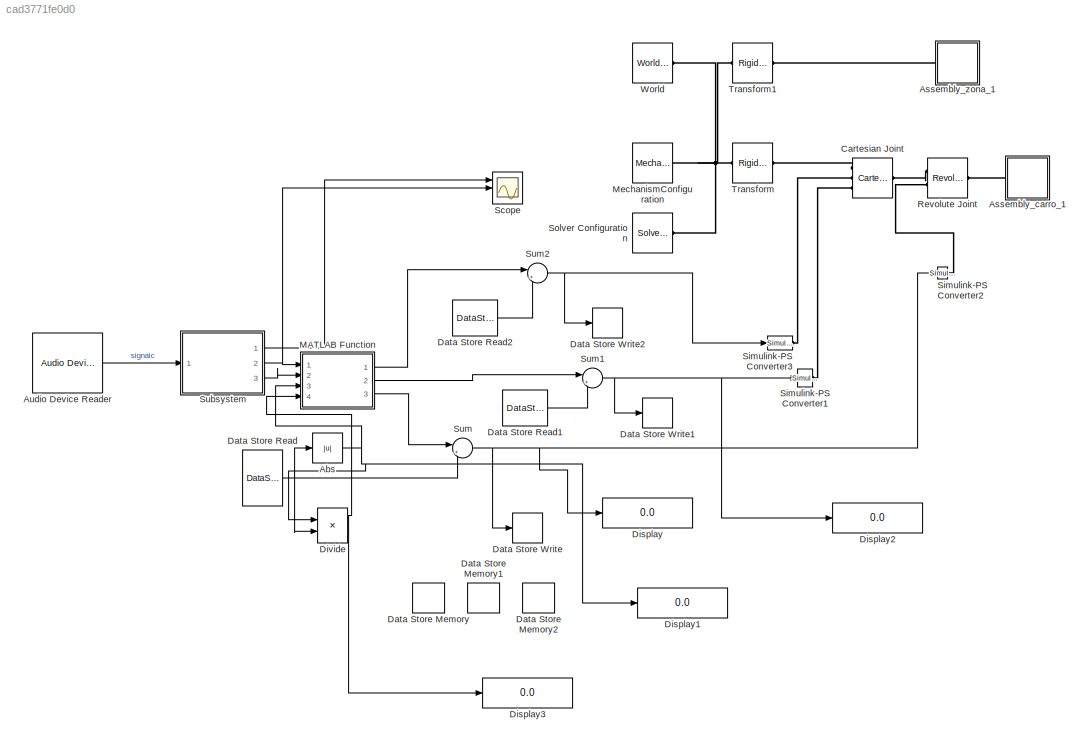
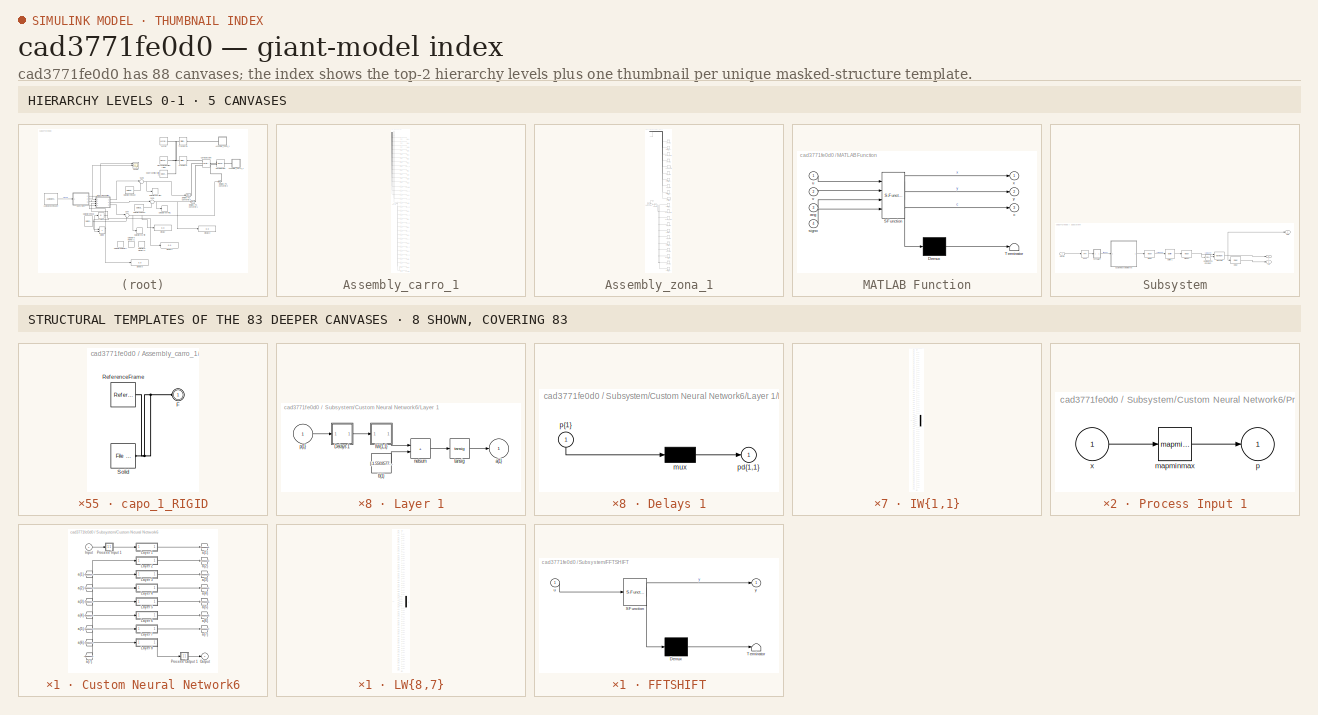
[diagram: thumbnail index - top-2 hierarchy levels (5 canvases) + 8 structural-template representatives of the remaining 83 canvases]
MODEL slx_cad3771fe0d0
KIND model
CONFIG AbsTol = auto
CONFIG EnableMultiTasking = off
CONFIG FixedStep = auto
CONFIG MaxStep = auto
CONFIG MinStep = auto
CONFIG RelTol = 1e-3
CONFIG SampleTimeConstraint = Unconstrained
CONFIG Solver = VariableStepAuto
CONFIG SolverName = VariableStepAuto
CONFIG StartTime = 0.0
CONFIG StopTime = inf
WORKSPACE source: external: MATLAB File  (data not in archive)
BLOCK [Abs] Abs
  SaturateOnIntegerOverflow = off
BLOCK [SubSystem] Assembly_carro_1
  Ports = [0, 0, 0, 0, 0, 1]
  RequestExecContextInheritance = off
BLOCK [PMIOPort] Assembly_carro_1/F
  Side = Left
BLOCK [Reference] Assembly_carro_1/ReferenceFrame  REF=sm_lib/Frames and
Transforms/Reference
Frame
  Ports = [0, 0, 0, 0, 0, 0, 1]
  SourceBlock = sm_lib/Frames and\nTransforms/Reference\nFrame
  SourceProductBaseCode = MS
  SourceType = Reference\nFrame
BLOCK [Reference] Assembly_carro_1/Transform  REF=sm_lib/Frames and
Transforms/Rigid
Transform
  Ports = [0, 0, 0, 0, 0, 1, 1]
  SourceBlock = sm_lib/Frames and\nTransforms/Rigid\nTransform
  SourceProductBaseCode = MS
  SourceType = Rigid\nTransform
BLOCK [Reference] Assembly_carro_1/Transform1  REF=sm_lib/Frames and
Transforms/Rigid
Transform
  Ports = [0, 0, 0, 0, 0, 1, 1]
  SourceBlock = sm_lib/Frames and\nTransforms/Rigid\nTransform
  SourceProductBaseCode = MS
  SourceType = Rigid\nTransform
BLOCK [Reference] Assembly_carro_1/Transform10  REF=sm_lib/Frames and
Transforms/Rigid
Transform
  Ports = [0, 0, 0, 0, 0, 1, 1]
  SourceBlock = sm_lib/Frames and\nTransforms/Rigid\nTransform
  SourceProductBaseCode = MS
  SourceType = Rigid\nTransform
BLOCK [Reference] Assembly_carro_1/Transform11  REF=sm_lib/Frames and
Transforms/Rigid
Transform
  Ports = [0, 0, 0, 0, 0, 1, 1]
  SourceBlock = sm_lib/Frames and\nTransforms/Rigid\nTransform
  SourceProductBaseCode = MS
  SourceType = Rigid\nTransform
BLOCK [Reference] Assembly_carro_1/Transform12  REF=sm_lib/Frames and
Transforms/Rigid
Transform
  Ports = [0, 0, 0, 0, 0, 1, 1]
  SourceBlock = sm_lib/Frames and\nTransforms/Rigid\nTransform
  SourceProductBaseCode = MS
  SourceType = Rigid\nTransform
BLOCK [Reference] Assembly_carro_1/Transform13  REF=sm_lib/Frames and
Transforms/Rigid
Transform
  Ports = [0, 0, 0, 0, 0, 1, 1]
  SourceBlock = sm_lib/Frames and\nTransforms/Rigid\nTransform
  SourceProductBaseCode = MS
  SourceType = Rigid\nTransform
BLOCK [Reference] Assembly_carro_1/Transform14  REF=sm_lib/Frames and
Transforms/Rigid
Transform
  Ports = [0, 0, 0, 0, 0, 1, 1]
  SourceBlock = sm_lib/Frames and\nTransforms/Rigid\nTransform
  SourceProductBaseCode = MS
  SourceType = Rigid\nTransform
BLOCK [Reference] Assembly_carro_1/Transform15  REF=sm_lib/Frames and
Transforms/Rigid
Transform
  Ports = [0, 0, 0, 0, 0, 1, 1]
  SourceBlock = sm_lib/Frames and\nTransforms/Rigid\nTransform
  SourceProductBaseCode = MS
  SourceType = Rigid\nTransform
BLOCK [Reference] Assembly_carro_1/Transform16  REF=sm_lib/Frames and
Transforms/Rigid
Transform
  Ports = [0, 0, 0, 0, 0, 1, 1]
  SourceBlock = sm_lib/Frames and\nTransforms/Rigid\nTransform
  SourceProductBaseCode = MS
  SourceType = Rigid\nTransform
BLOCK [Reference] Assembly_carro_1/Transform17  REF=sm_lib/Frames and
Transforms/Rigid
Transform
  Ports = [0, 0, 0, 0, 0, 1, 1]
  SourceBlock = sm_lib/Frames and\nTransforms/Rigid\nTransform
  SourceProductBaseCode = MS
  SourceType = Rigid\nTransform
BLOCK [Reference] Assembly_carro_1/Transform18  REF=sm_lib/Frames and
Transforms/Rigid
Transform
  Ports = [0, 0, 0, 0, 0, 1, 1]
  SourceBlock = sm_lib/Frames and\nTransforms/Rigid\nTransform
  SourceProductBaseCode = MS
  SourceType = Rigid\nTransform
BLOCK [Reference] Assembly_carro_1/Transform19  REF=sm_lib/Frames and
Transforms/Rigid
Transform
  Ports = [0, 0, 0, 0, 0, 1, 1]
  SourceBlock = sm_lib/Frames and\nTransforms/Rigid\nTransform
  SourceProductBaseCode = MS
  SourceType = Rigid\nTransform
BLOCK [Reference] Assembly_carro_1/Transform2  REF=sm_lib/Frames and
Transforms/Rigid
Transform
  Ports = [0, 0, 0, 0, 0, 1, 1]
  SourceBlock = sm_lib/Frames and\nTransforms/Rigid\nTransform
  SourceProductBaseCode = MS
  SourceType = Rigid\nTransform
BLOCK [Reference] Assembly_carro_1/Transform20  REF=sm_lib/Frames and
Transforms/Rigid
Transform
  Ports = [0, 0, 0, 0, 0, 1, 1]
  SourceBlock = sm_lib/Frames and\nTransforms/Rigid\nTransform
  SourceProductBaseCode = MS
  SourceType = Rigid\nTransform
BLOCK [Reference] Assembly_carro_1/Transform21  REF=sm_lib/Frames and
Transforms/Rigid
Transform
  Ports = [0, 0, 0, 0, 0, 1, 1]
  SourceBlock = sm_lib/Frames and\nTransforms/Rigid\nTransform
  SourceProductBaseCode = MS
  SourceType = Rigid\nTransform
BLOCK [Reference] Assembly_carro_1/Transform22  REF=sm_lib/Frames and
Transforms/Rigid
Transform
  Ports = [0, 0, 0, 0, 0, 1, 1]
  SourceBlock = sm_lib/Frames and\nTransforms/Rigid\nTransform
  SourceProductBaseCode = MS
  SourceType = Rigid\nTransform
BLOCK [Reference] Assembly_carro_1/Transform23  REF=sm_lib/Frames and
Transforms/Rigid
Transform
  Ports = [0, 0, 0, 0, 0, 1, 1]
  SourceBlock = sm_lib/Frames and\nTransforms/Rigid\nTransform
  SourceProductBaseCode = MS
  SourceType = Rigid\nTransform
BLOCK [Reference] Assembly_carro_1/Transform24  REF=sm_lib/Frames and
Transforms/Rigid
Transform
  Ports = [0, 0, 0, 0, 0, 1, 1]
  SourceBlock = sm_lib/Frames and\nTransforms/Rigid\nTransform
  SourceProductBaseCode = MS
  SourceType = Rigid\nTransform
BLOCK [Reference] Assembly_carro_1/Transform25  REF=sm_lib/Frames and
Transforms/Rigid
Transform
  Ports = [0, 0, 0, 0, 0, 1, 1]
  SourceBlock = sm_lib/Frames and\nTransforms/Rigid\nTransform
  SourceProductBaseCode = MS
  SourceType = Rigid\nTransform
BLOCK [Reference] Assembly_carro_1/Transform26  REF=sm_lib/Frames and
Transforms/Rigid
Transform
  Ports = [0, 0, 0, 0, 0, 1, 1]
  SourceBlock = sm_lib/Frames and\nTransforms/Rigid\nTransform
  SourceProductBaseCode = MS
  SourceType = Rigid\nTransform
BLOCK [Reference] Assembly_carro_1/Transform27  REF=sm_lib/Frames and
Transforms/Rigid
Transform
  Ports = [0, 0, 0, 0, 0, 1, 1]
  SourceBlock = sm_lib/Frames and\nTransforms/Rigid\nTransform
  SourceProductBaseCode = MS
  SourceType = Rigid\nTransform
BLOCK [Reference] Assembly_carro_1/Transform28  REF=sm_lib/Frames and
Transforms/Rigid
Transform
  Ports = [0, 0, 0, 0, 0, 1, 1]
  SourceBlock = sm_lib/Frames and\nTransforms/Rigid\nTransform
  SourceProductBaseCode = MS
  SourceType = Rigid\nTransform
BLOCK [Reference] Assembly_carro_1/Transform29  REF=sm_lib/Frames and
Transforms/Rigid
Transform
  Ports = [0, 0, 0, 0, 0, 1, 1]
  SourceBlock = sm_lib/Frames and\nTransforms/Rigid\nTransform
  SourceProductBaseCode = MS
  SourceType = Rigid\nTransform
BLOCK [Reference] Assembly_carro_1/Transform3  REF=sm_lib/Frames and
Transforms/Rigid
Transform
  Ports = [0, 0, 0, 0, 0, 1, 1]
  SourceBlock = sm_lib/Frames and\nTransforms/Rigid\nTransform
  SourceProductBaseCode = MS
  SourceType = Rigid\nTransform
BLOCK [Reference] Assembly_carro_1/Transform30  REF=sm_lib/Frames and
Transforms/Rigid
Transform
  Ports = [0, 0, 0, 0, 0, 1, 1]
  SourceBlock = sm_lib/Frames and\nTransforms/Rigid\nTransform
  SourceProductBaseCode = MS
  SourceType = Rigid\nTransform
BLOCK [Reference] Assembly_carro_1/Transform31  REF=sm_lib/Frames and
Transforms/Rigid
Transform
  Ports = [0, 0, 0, 0, 0, 1, 1]
  SourceBlock = sm_lib/Frames and\nTransforms/Rigid\nTransform
  SourceProductBaseCode = MS
  SourceType = Rigid\nTransform
BLOCK [Reference] Assembly_carro_1/Transform32  REF=sm_lib/Frames and
Transforms/Rigid
Transform
  Ports = [0, 0, 0, 0, 0, 1, 1]
  SourceBlock = sm_lib/Frames and\nTransforms/Rigid\nTransform
  SourceProductBaseCode = MS
  SourceType = Rigid\nTransform
BLOCK [Reference] Assembly_carro_1/Transform33  REF=sm_lib/Frames and
Transforms/Rigid
Transform
  Ports = [0, 0, 0, 0, 0, 1, 1]
  SourceBlock = sm_lib/Frames and\nTransforms/Rigid\nTransform
  SourceProductBaseCode = MS
  SourceType = Rigid\nTransform
BLOCK [Reference] Assembly_carro_1/Transform4  REF=sm_lib/Frames and
Transforms/Rigid
Transform
  Ports = [0, 0, 0, 0, 0, 1, 1]
  SourceBlock = sm_lib/Frames and\nTransforms/Rigid\nTransform
  SourceProductBaseCode = MS
  SourceType = Rigid\nTransform
BLOCK [Reference] Assembly_carro_1/Transform5  REF=sm_lib/Frames and
Transforms/Rigid
Transform
  Ports = [0, 0, 0, 0, 0, 1, 1]
  SourceBlock = sm_lib/Frames and\nTransforms/Rigid\nTransform
  SourceProductBaseCode = MS
  SourceType = Rigid\nTransform
BLOCK [Reference] Assembly_carro_1/Transform6  REF=sm_lib/Frames and
Transforms/Rigid
Transform
  Ports = [0, 0, 0, 0, 0, 1, 1]
  SourceBlock = sm_lib/Frames and\nTransforms/Rigid\nTransform
  SourceProductBaseCode = MS
  SourceType = Rigid\nTransform
BLOCK [Reference] Assembly_carro_1/Transform7  REF=sm_lib/Frames and
Transforms/Rigid
Transform
  Ports = [0, 0, 0, 0, 0, 1, 1]
  SourceBlock = sm_lib/Frames and\nTransforms/Rigid\nTransform
  SourceProductBaseCode = MS
  SourceType = Rigid\nTransform
BLOCK [Reference] Assembly_carro_1/Transform8  REF=sm_lib/Frames and
Transforms/Rigid
Transform
  Ports = [0, 0, 0, 0, 0, 1, 1]
  SourceBlock = sm_lib/Frames and\nTransforms/Rigid\nTransform
  SourceProductBaseCode = MS
  SourceType = Rigid\nTransform
BLOCK [Reference] Assembly_carro_1/Transform9  REF=sm_lib/Frames and
Transforms/Rigid
Transform
  Ports = [0, 0, 0, 0, 0, 1, 1]
  SourceBlock = sm_lib/Frames and\nTransforms/Rigid\nTransform
  SourceProductBaseCode = MS
  SourceType = Rigid\nTransform
BLOCK [SubSystem] Assembly_carro_1/capo_1_RIGID
  Ports = [0, 0, 0, 0, 0, 1]
  RequestExecContextInheritance = off
BLOCK [PMIOPort] Assembly_carro_1/capo_1_RIGID/F
  Side = Left
BLOCK [Reference] Assembly_carro_1/capo_1_RIGID/ReferenceFrame  REF=sm_lib/Frames and
Transforms/Reference
Frame
  Ports = [0, 0, 0, 0, 0, 0, 1]
  SourceBlock = sm_lib/Frames and\nTransforms/Reference\nFrame
  SourceProductBaseCode = MS
  SourceType = Reference\nFrame
BLOCK [Reference] Assembly_carro_1/capo_1_RIGID/Solid  REF=sm_lib/Body Elements/File Solid
  Ports = [0, 0, 0, 0, 0, 0, 1]
  SourceBlock = sm_lib/Body Elements/File Solid
  SourceProductBaseCode = MS
  SourceType = File Solid
BLOCK [SubSystem] Assembly_carro_1/chasis_1_RIGID
  Ports = [0, 0, 0, 0, 0, 1]
  RequestExecContextInheritance = off
BLOCK [PMIOPort] Assembly_carro_1/chasis_1_RIGID/F
  Side = Left
BLOCK [Reference] Assembly_carro_1/chasis_1_RIGID/ReferenceFrame  REF=sm_lib/Frames and
Transforms/Reference
Frame
  Ports = [0, 0, 0, 0, 0, 0, 1]
  SourceBlock = sm_lib/Frames and\nTransforms/Reference\nFrame
  SourceProductBaseCode = MS
  SourceType = Reference\nFrame
BLOCK [Reference] Assembly_carro_1/chasis_1_RIGID/Solid  REF=sm_lib/Body Elements/File Solid
  Ports = [0, 0, 0, 0, 0, 0, 1]
  SourceBlock = sm_lib/Body Elements/File Solid
  SourceProductBaseCode = MS
  SourceType = File Solid
BLOCK [SubSystem] Assembly_carro_1/decodeder_1_RIGID
  Ports = [0, 0, 0, 0, 0, 1]
  RequestExecContextInheritance = off
BLOCK [PMIOPort] Assembly_carro_1/decodeder_1_RIGID/F
  Side = Left
BLOCK [Reference] Assembly_carro_1/decodeder_1_RIGID/ReferenceFrame  REF=sm_lib/Frames and
Transforms/Reference
Frame
  Ports = [0, 0, 0, 0, 0, 0, 1]
  SourceBlock = sm_lib/Frames and\nTransforms/Reference\nFrame
  SourceProductBaseCode = MS
  SourceType = Reference\nFrame
BLOCK [Reference] Assembly_carro_1/decodeder_1_RIGID/Solid  REF=sm_lib/Body Elements/File Solid
  Ports = [0, 0, 0, 0, 0, 0, 1]
  SourceBlock = sm_lib/Body Elements/File Solid
  SourceProductBaseCode = MS
  SourceType = File Solid
BLOCK [SubSystem] Assembly_carro_1/decodeiz_1_RIGID
  Ports = [0, 0, 0, 0, 0, 1]
  RequestExecContextInheritance = off
BLOCK [PMIOPort] Assembly_carro_1/decodeiz_1_RIGID/F
  Side = Left
BLOCK [Reference] Assembly_carro_1/decodeiz_1_RIGID/ReferenceFrame  REF=sm_lib/Frames and
Transforms/Reference
Frame
  Ports = [0, 0, 0, 0, 0, 0, 1]
  SourceBlock = sm_lib/Frames and\nTransforms/Reference\nFrame
  SourceProductBaseCode = MS
  SourceType = Reference\nFrame
BLOCK [Reference] Assembly_carro_1/decodeiz_1_RIGID/Solid  REF=sm_lib/Body Elements/File Solid
  Ports = [0, 0, 0, 0, 0, 0, 1]
  SourceBlock = sm_lib/Body Elements/File Solid
  SourceProductBaseCode = MS
  SourceType = File Solid
BLOCK [SubSystem] Assembly_carro_1/decotrader_1_RIGID
  Ports = [0, 0, 0, 0, 0, 1]
  RequestExecContextInheritance = off
BLOCK [PMIOPort] Assembly_carro_1/decotrader_1_RIGID/F
  Side = Left
BLOCK [Reference] Assembly_carro_1/decotrader_1_RIGID/ReferenceFrame  REF=sm_lib/Frames and
Transforms/Reference
Frame
  Ports = [0, 0, 0, 0, 0, 0, 1]
  SourceBlock = sm_lib/Frames and\nTransforms/Reference\nFrame
  SourceProductBaseCode = MS
  SourceType = Reference\nFrame
BLOCK [Reference] Assembly_carro_1/decotrader_1_RIGID/Solid  REF=sm_lib/Body Elements/File Solid
  Ports = [0, 0, 0, 0, 0, 0, 1]
  SourceBlock = sm_lib/Body Elements/File Solid
  SourceProductBaseCode = MS
  SourceType = File Solid
BLOCK [SubSystem] Assembly_carro_1/decotraiz_1_RIGID
  Ports = [0, 0, 0, 0, 0, 1]
  RequestExecContextInheritance = off
BLOCK [PMIOPort] Assembly_carro_1/decotraiz_1_RIGID/F
  Side = Left
BLOCK [Reference] Assembly_carro_1/decotraiz_1_RIGID/ReferenceFrame  REF=sm_lib/Frames and
Transforms/Reference
Frame
  Ports = [0, 0, 0, 0, 0, 0, 1]
  SourceBlock = sm_lib/Frames and\nTransforms/Reference\nFrame
  SourceProductBaseCode = MS
  SourceType = Reference\nFrame
BLOCK [Reference] Assembly_carro_1/decotraiz_1_RIGID/Solid  REF=sm_lib/Body Elements/File Solid
  Ports = [0, 0, 0, 0, 0, 0, 1]
  SourceBlock = sm_lib/Body Elements/File Solid
  SourceProductBaseCode = MS
  SourceType = File Solid
BLOCK [SubSystem] Assembly_carro_1/ledfrontalder_1_RIGID
  Ports = [0, 0, 0, 0, 0, 1]
  RequestExecContextInheritance = off
BLOCK [PMIOPort] Assembly_carro_1/ledfrontalder_1_RIGID/F
  Side = Left
BLOCK [Reference] Assembly_carro_1/ledfrontalder_1_RIGID/ReferenceFrame  REF=sm_lib/Frames and
Transforms/Reference
Frame
  Ports = [0, 0, 0, 0, 0, 0, 1]
  SourceBlock = sm_lib/Frames and\nTransforms/Reference\nFrame
  SourceProductBaseCode = MS
  SourceType = Reference\nFrame
BLOCK [Reference] Assembly_carro_1/ledfrontalder_1_RIGID/Solid  REF=sm_lib/Body Elements/File Solid
  Ports = [0, 0, 0, 0, 0, 0, 1]
  SourceBlock = sm_lib/Body Elements/File Solid
  SourceProductBaseCode = MS
  SourceType = File Solid
BLOCK [SubSystem] Assembly_carro_1/ledfrontaliz_1_RIGID
  Ports = [0, 0, 0, 0, 0, 1]
  RequestExecContextInheritance = off
BLOCK [PMIOPort] Assembly_carro_1/ledfrontaliz_1_RIGID/F
  Side = Left
BLOCK [Reference] Assembly_carro_1/ledfrontaliz_1_RIGID/ReferenceFrame  REF=sm_lib/Frames and
Transforms/Reference
Frame
  Ports = [0, 0, 0, 0, 0, 0, 1]
  SourceBlock = sm_lib/Frames and\nTransforms/Reference\nFrame
  SourceProductBaseCode = MS
  SourceType = Reference\nFrame
BLOCK [Reference] Assembly_carro_1/ledfrontaliz_1_RIGID/Solid  REF=sm_lib/Body Elements/File Solid
  Ports = [0, 0, 0, 0, 0, 0, 1]
  SourceBlock = sm_lib/Body Elements/File Solid
  SourceProductBaseCode = MS
  SourceType = File Solid
BLOCK [SubSystem] Assembly_carro_1/ledposteriorder_1_RIGID
  Ports = [0, 0, 0, 0, 0, 1]
  RequestExecContextInheritance = off
BLOCK [PMIOPort] Assembly_carro_1/ledposteriorder_1_RIGID/F
  Side = Left
BLOCK [Reference] Assembly_carro_1/ledposteriorder_1_RIGID/ReferenceFrame  REF=sm_lib/Frames and
Transforms/Reference
Frame
  Ports = [0, 0, 0, 0, 0, 0, 1]
  SourceBlock = sm_lib/Frames and\nTransforms/Reference\nFrame
  SourceProductBaseCode = MS
  SourceType = Reference\nFrame
BLOCK [Reference] Assembly_carro_1/ledposteriorder_1_RIGID/Solid  REF=sm_lib/Body Elements/File Solid
  Ports = [0, 0, 0, 0, 0, 0, 1]
  SourceBlock = sm_lib/Body Elements/File Solid
  SourceProductBaseCode = MS
  SourceType = File Solid
BLOCK [SubSystem] Assembly_carro_1/ledposterioriz_1_RIGID
  Ports = [0, 0, 0, 0, 0, 1]
  RequestExecContextInheritance = off
BLOCK [PMIOPort] Assembly_carro_1/ledposterioriz_1_RIGID/F
  Side = Left
BLOCK [Reference] Assembly_carro_1/ledposterioriz_1_RIGID/ReferenceFrame  REF=sm_lib/Frames and
Transforms/Reference
Frame
  Ports = [0, 0, 0, 0, 0, 0, 1]
  SourceBlock = sm_lib/Frames and\nTransforms/Reference\nFrame
  SourceProductBaseCode = MS
  SourceType = Reference\nFrame
BLOCK [Reference] Assembly_carro_1/ledposterioriz_1_RIGID/Solid  REF=sm_lib/Body Elements/File Solid
  Ports = [0, 0, 0, 0, 0, 0, 1]
  SourceBlock = sm_lib/Body Elements/File Solid
  SourceProductBaseCode = MS
  SourceType = File Solid
BLOCK [SubSystem] Assembly_carro_1/llantadeder_1_RIGID
  Ports = [0, 0, 0, 0, 0, 1]
  RequestExecContextInheritance = off
BLOCK [PMIOPort] Assembly_carro_1/llantadeder_1_RIGID/F
  Side = Left
BLOCK [Reference] Assembly_carro_1/llantadeder_1_RIGID/ReferenceFrame  REF=sm_lib/Frames and
Transforms/Reference
Frame
  Ports = [0, 0, 0, 0, 0, 0, 1]
  SourceBlock = sm_lib/Frames and\nTransforms/Reference\nFrame
  SourceProductBaseCode = MS
  SourceType = Reference\nFrame
BLOCK [Reference] Assembly_carro_1/llantadeder_1_RIGID/Solid  REF=sm_lib/Body Elements/File Solid
  Ports = [0, 0, 0, 0, 0, 0, 1]
  SourceBlock = sm_lib/Body Elements/File Solid
  SourceProductBaseCode = MS
  SourceType = File Solid
BLOCK [SubSystem] Assembly_carro_1/llantadeiz_1_RIGID
  Ports = [0, 0, 0, 0, 0, 1]
  RequestExecContextInheritance = off
BLOCK [PMIOPort] Assembly_carro_1/llantadeiz_1_RIGID/F
  Side = Left
BLOCK [Reference] Assembly_carro_1/llantadeiz_1_RIGID/ReferenceFrame  REF=sm_lib/Frames and
Transforms/Reference
Frame
  Ports = [0, 0, 0, 0, 0, 0, 1]
  SourceBlock = sm_lib/Frames and\nTransforms/Reference\nFrame
  SourceProductBaseCode = MS
  SourceType = Reference\nFrame
BLOCK [Reference] Assembly_carro_1/llantadeiz_1_RIGID/Solid  REF=sm_lib/Body Elements/File Solid
  Ports = [0, 0, 0, 0, 0, 0, 1]
  SourceBlock = sm_lib/Body Elements/File Solid
  SourceProductBaseCode = MS
  SourceType = File Solid
BLOCK [SubSystem] Assembly_carro_1/llantatrader_1_RIGID
  Ports = [0, 0, 0, 0, 0, 1]
  RequestExecContextInheritance = off
BLOCK [PMIOPort] Assembly_carro_1/llantatrader_1_RIGID/F
  Side = Left
BLOCK [Reference] Assembly_carro_1/llantatrader_1_RIGID/ReferenceFrame  REF=sm_lib/Frames and
Transforms/Reference
Frame
  Ports = [0, 0, 0, 0, 0, 0, 1]
  SourceBlock = sm_lib/Frames and\nTransforms/Reference\nFrame
  SourceProductBaseCode = MS
  SourceType = Reference\nFrame
BLOCK [Reference] Assembly_carro_1/llantatrader_1_RIGID/Solid  REF=sm_lib/Body Elements/File Solid
  Ports = [0, 0, 0, 0, 0, 0, 1]
  SourceBlock = sm_lib/Body Elements/File Solid
  SourceProductBaseCode = MS
  SourceType = File Solid
BLOCK [SubSystem] Assembly_carro_1/llantatraiz_1_RIGID
  Ports = [0, 0, 0, 0, 0, 1]
  RequestExecContextInheritance = off
BLOCK [PMIOPort] Assembly_carro_1/llantatraiz_1_RIGID/F
  Side = Left
BLOCK [Reference] Assembly_carro_1/llantatraiz_1_RIGID/ReferenceFrame  REF=sm_lib/Frames and
Transforms/Reference
Frame
  Ports = [0, 0, 0, 0, 0, 0, 1]
  SourceBlock = sm_lib/Frames and\nTransforms/Reference\nFrame
  SourceProductBaseCode = MS
  SourceType = Reference\nFrame
BLOCK [Reference] Assembly_carro_1/llantatraiz_1_RIGID/Solid  REF=sm_lib/Body Elements/File Solid
  Ports = [0, 0, 0, 0, 0, 0, 1]
  SourceBlock = sm_lib/Body Elements/File Solid
  SourceProductBaseCode = MS
  SourceType = File Solid
BLOCK [SubSystem] Assembly_carro_1/parachoquedelantero_1_RIGID
  Ports = [0, 0, 0, 0, 0, 1]
  RequestExecContextInheritance = off
BLOCK [PMIOPort] Assembly_carro_1/parachoquedelantero_1_RIGID/F
  Side = Left
BLOCK [Reference] Assembly_carro_1/parachoquedelantero_1_RIGID/ReferenceFrame  REF=sm_lib/Frames and
Transforms/Reference
Frame
  Ports = [0, 0, 0, 0, 0, 0, 1]
  SourceBlock = sm_lib/Frames and\nTransforms/Reference\nFrame
  SourceProductBaseCode = MS
  SourceType = Reference\nFrame
BLOCK [Reference] Assembly_carro_1/parachoquedelantero_1_RIGID/Solid  REF=sm_lib/Body Elements/File Solid
  Ports = [0, 0, 0, 0, 0, 0, 1]
  SourceBlock = sm_lib/Body Elements/File Solid
  SourceProductBaseCode = MS
  SourceType = File Solid
BLOCK [SubSystem] Assembly_carro_1/parachoquetrasero_1_RIGID
  Ports = [0, 0, 0, 0, 0, 1]
  RequestExecContextInheritance = off
BLOCK [PMIOPort] Assembly_carro_1/parachoquetrasero_1_RIGID/F
  Side = Left
BLOCK [Reference] Assembly_carro_1/parachoquetrasero_1_RIGID/ReferenceFrame  REF=sm_lib/Frames and
Transforms/Reference
Frame
  Ports = [0, 0, 0, 0, 0, 0, 1]
  SourceBlock = sm_lib/Frames and\nTransforms/Reference\nFrame
  SourceProductBaseCode = MS
  SourceType = Reference\nFrame
BLOCK [Reference] Assembly_carro_1/parachoquetrasero_1_RIGID/Solid  REF=sm_lib/Body Elements/File Solid
  Ports = [0, 0, 0, 0, 0, 0, 1]
  SourceBlock = sm_lib/Body Elements/File Solid
  SourceProductBaseCode = MS
  SourceType = File Solid
BLOCK [SubSystem] Assembly_carro_1/puertadeder_1_RIGID
  Ports = [0, 0, 0, 0, 0, 1]
  RequestExecContextInheritance = off
BLOCK [PMIOPort] Assembly_carro_1/puertadeder_1_RIGID/F
  Side = Left
BLOCK [Reference] Assembly_carro_1/puertadeder_1_RIGID/ReferenceFrame  REF=sm_lib/Frames and
Transforms/Reference
Frame
  Ports = [0, 0, 0, 0, 0, 0, 1]
  SourceBlock = sm_lib/Frames and\nTransforms/Reference\nFrame
  SourceProductBaseCode = MS
  SourceType = Reference\nFrame
BLOCK [Reference] Assembly_carro_1/puertadeder_1_RIGID/Solid  REF=sm_lib/Body Elements/File Solid
  Ports = [0, 0, 0, 0, 0, 0, 1]
  SourceBlock = sm_lib/Body Elements/File Solid
  SourceProductBaseCode = MS
  SourceType = File Solid
BLOCK [SubSystem] Assembly_carro_1/puertadeiz_1_RIGID
  Ports = [0, 0, 0, 0, 0, 1]
  RequestExecContextInheritance = off
BLOCK [PMIOPort] Assembly_carro_1/puertadeiz_1_RIGID/F
  Side = Left
BLOCK [Reference] Assembly_carro_1/puertadeiz_1_RIGID/ReferenceFrame  REF=sm_lib/Frames and
Transforms/Reference
Frame
  Ports = [0, 0, 0, 0, 0, 0, 1]
  SourceBlock = sm_lib/Frames and\nTransforms/Reference\nFrame
  SourceProductBaseCode = MS
  SourceType = Reference\nFrame
BLOCK [Reference] Assembly_carro_1/puertadeiz_1_RIGID/Solid  REF=sm_lib/Body Elements/File Solid
  Ports = [0, 0, 0, 0, 0, 0, 1]
  SourceBlock = sm_lib/Body Elements/File Solid
  SourceProductBaseCode = MS
  SourceType = File Solid
BLOCK [SubSystem] Assembly_carro_1/puertatrader_1_RIGID
  Ports = [0, 0, 0, 0, 0, 1]
  RequestExecContextInheritance = off
BLOCK [PMIOPort] Assembly_carro_1/puertatrader_1_RIGID/F
  Side = Left
BLOCK [Reference] Assembly_carro_1/puertatrader_1_RIGID/ReferenceFrame  REF=sm_lib/Frames and
Transforms/Reference
Frame
  Ports = [0, 0, 0, 0, 0, 0, 1]
  SourceBlock = sm_lib/Frames and\nTransforms/Reference\nFrame
  SourceProductBaseCode = MS
  SourceType = Reference\nFrame
BLOCK [Reference] Assembly_carro_1/puertatrader_1_RIGID/Solid  REF=sm_lib/Body Elements/File Solid
  Ports = [0, 0, 0, 0, 0, 0, 1]
  SourceBlock = sm_lib/Body Elements/File Solid
  SourceProductBaseCode = MS
  SourceType = File Solid
BLOCK [SubSystem] Assembly_carro_1/puertatraiz_1_RIGID
  Ports = [0, 0, 0, 0, 0, 1]
  RequestExecContextInheritance = off
BLOCK [PMIOPort] Assembly_carro_1/puertatraiz_1_RIGID/F
  Side = Left
BLOCK [Reference] Assembly_carro_1/puertatraiz_1_RIGID/ReferenceFrame  REF=sm_lib/Frames and
Transforms/Reference
Frame
  Ports = [0, 0, 0, 0, 0, 0, 1]
  SourceBlock = sm_lib/Frames and\nTransforms/Reference\nFrame
  SourceProductBaseCode = MS
  SourceType = Reference\nFrame
BLOCK [Reference] Assembly_carro_1/puertatraiz_1_RIGID/Solid  REF=sm_lib/Body Elements/File Solid
  Ports = [0, 0, 0, 0, 0, 0, 1]
  SourceBlock = sm_lib/Body Elements/File Solid
  SourceProductBaseCode = MS
  SourceType = File Solid
BLOCK [SubSystem] Assembly_carro_1/regillacapo_1_RIGID
  Ports = [0, 0, 0, 0, 0, 1]
  RequestExecContextInheritance = off
BLOCK [PMIOPort] Assembly_carro_1/regillacapo_1_RIGID/F
  Side = Left
BLOCK [Reference] Assembly_carro_1/regillacapo_1_RIGID/ReferenceFrame  REF=sm_lib/Frames and
Transforms/Reference
Frame
  Ports = [0, 0, 0, 0, 0, 0, 1]
  SourceBlock = sm_lib/Frames and\nTransforms/Reference\nFrame
  SourceProductBaseCode = MS
  SourceType = Reference\nFrame
BLOCK [Reference] Assembly_carro_1/regillacapo_1_RIGID/Solid  REF=sm_lib/Body Elements/File Solid
  Ports = [0, 0, 0, 0, 0, 0, 1]
  SourceBlock = sm_lib/Body Elements/File Solid
  SourceProductBaseCode = MS
  SourceType = File Solid
BLOCK [SubSystem] Assembly_carro_1/rindeder_1_RIGID
  Ports = [0, 0, 0, 0, 0, 1]
  RequestExecContextInheritance = off
BLOCK [PMIOPort] Assembly_carro_1/rindeder_1_RIGID/F
  Side = Left
BLOCK [Reference] Assembly_carro_1/rindeder_1_RIGID/ReferenceFrame  REF=sm_lib/Frames and
Transforms/Reference
Frame
  Ports = [0, 0, 0, 0, 0, 0, 1]
  SourceBlock = sm_lib/Frames and\nTransforms/Reference\nFrame
  SourceProductBaseCode = MS
  SourceType = Reference\nFrame
BLOCK [Reference] Assembly_carro_1/rindeder_1_RIGID/Solid  REF=sm_lib/Body Elements/File Solid
  Ports = [0, 0, 0, 0, 0, 0, 1]
  SourceBlock = sm_lib/Body Elements/File Solid
  SourceProductBaseCode = MS
  SourceType = File Solid
BLOCK [SubSystem] Assembly_carro_1/rindeiz_1_RIGID
  Ports = [0, 0, 0, 0, 0, 1]
  RequestExecContextInheritance = off
BLOCK [PMIOPort] Assembly_carro_1/rindeiz_1_RIGID/F
  Side = Left
BLOCK [Reference] Assembly_carro_1/rindeiz_1_RIGID/ReferenceFrame  REF=sm_lib/Frames and
Transforms/Reference
Frame
  Ports = [0, 0, 0, 0, 0, 0, 1]
  SourceBlock = sm_lib/Frames and\nTransforms/Reference\nFrame
  SourceProductBaseCode = MS
  SourceType = Reference\nFrame
BLOCK [Reference] Assembly_carro_1/rindeiz_1_RIGID/Solid  REF=sm_lib/Body Elements/File Solid
  Ports = [0, 0, 0, 0, 0, 0, 1]
  SourceBlock = sm_lib/Body Elements/File Solid
  SourceProductBaseCode = MS
  SourceType = File Solid
BLOCK [SubSystem] Assembly_carro_1/rintrader_1_RIGID
  Ports = [0, 0, 0, 0, 0, 1]
  RequestExecContextInheritance = off
BLOCK [PMIOPort] Assembly_carro_1/rintrader_1_RIGID/F
  Side = Left
BLOCK [Reference] Assembly_carro_1/rintrader_1_RIGID/ReferenceFrame  REF=sm_lib/Frames and
Transforms/Reference
Frame
  Ports = [0, 0, 0, 0, 0, 0, 1]
  SourceBlock = sm_lib/Frames and\nTransforms/Reference\nFrame
  SourceProductBaseCode = MS
  SourceType = Reference\nFrame
BLOCK [Reference] Assembly_carro_1/rintrader_1_RIGID/Solid  REF=sm_lib/Body Elements/File Solid
  Ports = [0, 0, 0, 0, 0, 0, 1]
  SourceBlock = sm_lib/Body Elements/File Solid
  SourceProductBaseCode = MS
  SourceType = File Solid
BLOCK [SubSystem] Assembly_carro_1/rintraiz_1_RIGID
  Ports = [0, 0, 0, 0, 0, 1]
  RequestExecContextInheritance = off
BLOCK [PMIOPort] Assembly_carro_1/rintraiz_1_RIGID/F
  Side = Left
BLOCK [Reference] Assembly_carro_1/rintraiz_1_RIGID/ReferenceFrame  REF=sm_lib/Frames and
Transforms/Reference
Frame
  Ports = [0, 0, 0, 0, 0, 0, 1]
  SourceBlock = sm_lib/Frames and\nTransforms/Reference\nFrame
  SourceProductBaseCode = MS
  SourceType = Reference\nFrame
BLOCK [Reference] Assembly_carro_1/rintraiz_1_RIGID/Solid  REF=sm_lib/Body Elements/File Solid
  Ports = [0, 0, 0, 0, 0, 0, 1]
  SourceBlock = sm_lib/Body Elements/File Solid
  SourceProductBaseCode = MS
  SourceType = File Solid
BLOCK [SubSystem] Assembly_carro_1/vantanaiz2_1_RIGID
  Ports = [0, 0, 0, 0, 0, 1]
  RequestExecContextInheritance = off
BLOCK [PMIOPort] Assembly_carro_1/vantanaiz2_1_RIGID/F
  Side = Left
BLOCK [Reference] Assembly_carro_1/vantanaiz2_1_RIGID/ReferenceFrame  REF=sm_lib/Frames and
Transforms/Reference
Frame
  Ports = [0, 0, 0, 0, 0, 0, 1]
  SourceBlock = sm_lib/Frames and\nTransforms/Reference\nFrame
  SourceProductBaseCode = MS
  SourceType = Reference\nFrame
BLOCK [Reference] Assembly_carro_1/vantanaiz2_1_RIGID/Solid  REF=sm_lib/Body Elements/File Solid
  Ports = [0, 0, 0, 0, 0, 0, 1]
  SourceBlock = sm_lib/Body Elements/File Solid
  SourceProductBaseCode = MS
  SourceType = File Solid
BLOCK [SubSystem] Assembly_carro_1/ventadader1_1_RIGID
  Ports = [0, 0, 0, 0, 0, 1]
  RequestExecContextInheritance = off
BLOCK [PMIOPort] Assembly_carro_1/ventadader1_1_RIGID/F
  Side = Left
BLOCK [Reference] Assembly_carro_1/ventadader1_1_RIGID/ReferenceFrame  REF=sm_lib/Frames and
Transforms/Reference
Frame
  Ports = [0, 0, 0, 0, 0, 0, 1]
  SourceBlock = sm_lib/Frames and\nTransforms/Reference\nFrame
  SourceProductBaseCode = MS
  SourceType = Reference\nFrame
BLOCK [Reference] Assembly_carro_1/ventadader1_1_RIGID/Solid  REF=sm_lib/Body Elements/File Solid
  Ports = [0, 0, 0, 0, 0, 0, 1]
  SourceBlock = sm_lib/Body Elements/File Solid
  SourceProductBaseCode = MS
  SourceType = File Solid
BLOCK [SubSystem] Assembly_carro_1/ventanader2_1_RIGID
  Ports = [0, 0, 0, 0, 0, 1]
  RequestExecContextInheritance = off
BLOCK [PMIOPort] Assembly_carro_1/ventanader2_1_RIGID/F
  Side = Left
BLOCK [Reference] Assembly_carro_1/ventanader2_1_RIGID/ReferenceFrame  REF=sm_lib/Frames and
Transforms/Reference
Frame
  Ports = [0, 0, 0, 0, 0, 0, 1]
  SourceBlock = sm_lib/Frames and\nTransforms/Reference\nFrame
  SourceProductBaseCode = MS
  SourceType = Reference\nFrame
BLOCK [Reference] Assembly_carro_1/ventanader2_1_RIGID/Solid  REF=sm_lib/Body Elements/File Solid
  Ports = [0, 0, 0, 0, 0, 0, 1]
  SourceBlock = sm_lib/Body Elements/File Solid
  SourceProductBaseCode = MS
  SourceType = File Solid
BLOCK [SubSystem] Assembly_carro_1/ventanader3_1_RIGID
  Ports = [0, 0, 0, 0, 0, 1]
  RequestExecContextInheritance = off
BLOCK [PMIOPort] Assembly_carro_1/ventanader3_1_RIGID/F
  Side = Left
BLOCK [Reference] Assembly_carro_1/ventanader3_1_RIGID/ReferenceFrame  REF=sm_lib/Frames and
Transforms/Reference
Frame
  Ports = [0, 0, 0, 0, 0, 0, 1]
  SourceBlock = sm_lib/Frames and\nTransforms/Reference\nFrame
  SourceProductBaseCode = MS
  SourceType = Reference\nFrame
BLOCK [Reference] Assembly_carro_1/ventanader3_1_RIGID/Solid  REF=sm_lib/Body Elements/File Solid
  Ports = [0, 0, 0, 0, 0, 0, 1]
  SourceBlock = sm_lib/Body Elements/File Solid
  SourceProductBaseCode = MS
  SourceType = File Solid
BLOCK [SubSystem] Assembly_carro_1/ventanafrontal_1_RIGID
  Ports = [0, 0, 0, 0, 0, 1]
  RequestExecContextInheritance = off
BLOCK [PMIOPort] Assembly_carro_1/ventanafrontal_1_RIGID/F
  Side = Left
BLOCK [Reference] Assembly_carro_1/ventanafrontal_1_RIGID/ReferenceFrame  REF=sm_lib/Frames and
Transforms/Reference
Frame
  Ports = [0, 0, 0, 0, 0, 0, 1]
  SourceBlock = sm_lib/Frames and\nTransforms/Reference\nFrame
  SourceProductBaseCode = MS
  SourceType = Reference\nFrame
BLOCK [Reference] Assembly_carro_1/ventanafrontal_1_RIGID/Solid  REF=sm_lib/Body Elements/File Solid
  Ports = [0, 0, 0, 0, 0, 0, 1]
  SourceBlock = sm_lib/Body Elements/File Solid
  SourceProductBaseCode = MS
  SourceType = File Solid
BLOCK [SubSystem] Assembly_carro_1/ventanaiz1_1_RIGID
  Ports = [0, 0, 0, 0, 0, 1]
  RequestExecContextInheritance = off
BLOCK [PMIOPort] Assembly_carro_1/ventanaiz1_1_RIGID/F
  Side = Left
BLOCK [Reference] Assembly_carro_1/ventanaiz1_1_RIGID/ReferenceFrame  REF=sm_lib/Frames and
Transforms/Reference
Frame
  Ports = [0, 0, 0, 0, 0, 0, 1]
  SourceBlock = sm_lib/Frames and\nTransforms/Reference\nFrame
  SourceProductBaseCode = MS
  SourceType = Reference\nFrame
BLOCK [Reference] Assembly_carro_1/ventanaiz1_1_RIGID/Solid  REF=sm_lib/Body Elements/File Solid
  Ports = [0, 0, 0, 0, 0, 0, 1]
  SourceBlock = sm_lib/Body Elements/File Solid
  SourceProductBaseCode = MS
  SourceType = File Solid
BLOCK [SubSystem] Assembly_carro_1/ventanaiz3_1_RIGID
  Ports = [0, 0, 0, 0, 0, 1]
  RequestExecContextInheritance = off
BLOCK [PMIOPort] Assembly_carro_1/ventanaiz3_1_RIGID/F
  Side = Left
BLOCK [Reference] Assembly_carro_1/ventanaiz3_1_RIGID/ReferenceFrame  REF=sm_lib/Frames and
Transforms/Reference
Frame
  Ports = [0, 0, 0, 0, 0, 0, 1]
  SourceBlock = sm_lib/Frames and\nTransforms/Reference\nFrame
  SourceProductBaseCode = MS
  SourceType = Reference\nFrame
BLOCK [Reference] Assembly_carro_1/ventanaiz3_1_RIGID/Solid  REF=sm_lib/Body Elements/File Solid
  Ports = [0, 0, 0, 0, 0, 0, 1]
  SourceBlock = sm_lib/Body Elements/File Solid
  SourceProductBaseCode = MS
  SourceType = File Solid
BLOCK [SubSystem] Assembly_carro_1/ventanatrader_1_RIGID
  Ports = [0, 0, 0, 0, 0, 1]
  RequestExecContextInheritance = off
BLOCK [PMIOPort] Assembly_carro_1/ventanatrader_1_RIGID/F
  Side = Left
BLOCK [Reference] Assembly_carro_1/ventanatrader_1_RIGID/ReferenceFrame  REF=sm_lib/Frames and
Transforms/Reference
Frame
  Ports = [0, 0, 0, 0, 0, 0, 1]
  SourceBlock = sm_lib/Frames and\nTransforms/Reference\nFrame
  SourceProductBaseCode = MS
  SourceType = Reference\nFrame
BLOCK [Reference] Assembly_carro_1/ventanatrader_1_RIGID/Solid  REF=sm_lib/Body Elements/File Solid
  Ports = [0, 0, 0, 0, 0, 0, 1]
  SourceBlock = sm_lib/Body Elements/File Solid
  SourceProductBaseCode = MS
  SourceType = File Solid
BLOCK [SubSystem] Assembly_carro_1/ventanatraiz_1_RIGID
  Ports = [0, 0, 0, 0, 0, 1]
  RequestExecContextInheritance = off
BLOCK [PMIOPort] Assembly_carro_1/ventanatraiz_1_RIGID/F
  Side = Left
BLOCK [Reference] Assembly_carro_1/ventanatraiz_1_RIGID/ReferenceFrame  REF=sm_lib/Frames and
Transforms/Reference
Frame
  Ports = [0, 0, 0, 0, 0, 0, 1]
  SourceBlock = sm_lib/Frames and\nTransforms/Reference\nFrame
  SourceProductBaseCode = MS
  SourceType = Reference\nFrame
BLOCK [Reference] Assembly_carro_1/ventanatraiz_1_RIGID/Solid  REF=sm_lib/Body Elements/File Solid
  Ports = [0, 0, 0, 0, 0, 0, 1]
  SourceBlock = sm_lib/Body Elements/File Solid
  SourceProductBaseCode = MS
  SourceType = File Solid
BLOCK [SubSystem] Assembly_zona_1
  Ports = [0, 0, 0, 0, 0, 1]
  RequestExecContextInheritance = off
BLOCK [PMIOPort] Assembly_zona_1/F
  Side = Left
BLOCK [Reference] Assembly_zona_1/ReferenceFrame  REF=sm_lib/Frames and
Transforms/Reference
Frame
  Ports = [0, 0, 0, 0, 0, 0, 1]
  SourceBlock = sm_lib/Frames and\nTransforms/Reference\nFrame
  SourceProductBaseCode = MS
  SourceType = Reference\nFrame
BLOCK [Reference] Assembly_zona_1/Transform12  REF=sm_lib/Frames and
Transforms/Rigid
Transform
  Ports = [0, 0, 0, 0, 0, 1, 1]
  SourceBlock = sm_lib/Frames and\nTransforms/Rigid\nTransform
  SourceProductBaseCode = MS
  SourceType = Rigid\nTransform
BLOCK [SubSystem] Assembly_zona_1/carretera11_1_RIGID
  Ports = [0, 0, 0, 0, 0, 1]
  RequestExecContextInheritance = off
BLOCK [PMIOPort] Assembly_zona_1/carretera11_1_RIGID/F
  Side = Left
BLOCK [Reference] Assembly_zona_1/carretera11_1_RIGID/ReferenceFrame  REF=sm_lib/Frames and
Transforms/Reference
Frame
  Ports = [0, 0, 0, 0, 0, 0, 1]
  SourceBlock = sm_lib/Frames and\nTransforms/Reference\nFrame
  SourceProductBaseCode = MS
  SourceType = Reference\nFrame
BLOCK [Reference] Assembly_zona_1/carretera11_1_RIGID/Solid  REF=sm_lib/Body Elements/File Solid
  Ports = [0, 0, 0, 0, 0, 0, 1]
  SourceBlock = sm_lib/Body Elements/File Solid
  SourceProductBaseCode = MS
  SourceType = File Solid
BLOCK [SubSystem] Assembly_zona_1/carretera13_1_RIGID
  Ports = [0, 0, 0, 0, 0, 1]
  RequestExecContextInheritance = off
BLOCK [PMIOPort] Assembly_zona_1/carretera13_1_RIGID/F
  Side = Left
BLOCK [Reference] Assembly_zona_1/carretera13_1_RIGID/ReferenceFrame  REF=sm_lib/Frames and
Transforms/Reference
Frame
  Ports = [0, 0, 0, 0, 0, 0, 1]
  SourceBlock = sm_lib/Frames and\nTransforms/Reference\nFrame
  SourceProductBaseCode = MS
  SourceType = Reference\nFrame
BLOCK [Reference] Assembly_zona_1/carretera13_1_RIGID/Solid  REF=sm_lib/Body Elements/File Solid
  Ports = [0, 0, 0, 0, 0, 0, 1]
  SourceBlock = sm_lib/Body Elements/File Solid
  SourceProductBaseCode = MS
  SourceType = File Solid
BLOCK [SubSystem] Assembly_zona_1/carretera14_1_RIGID
  Ports = [0, 0, 0, 0, 0, 1]
  RequestExecContextInheritance = off
BLOCK [PMIOPort] Assembly_zona_1/carretera14_1_RIGID/F
  Side = Left
BLOCK [Reference] Assembly_zona_1/carretera14_1_RIGID/ReferenceFrame  REF=sm_lib/Frames and
Transforms/Reference
Frame
  Ports = [0, 0, 0, 0, 0, 0, 1]
  SourceBlock = sm_lib/Frames and\nTransforms/Reference\nFrame
  SourceProductBaseCode = MS
  SourceType = Reference\nFrame
BLOCK [Reference] Assembly_zona_1/carretera14_1_RIGID/Solid  REF=sm_lib/Body Elements/File Solid
  Ports = [0, 0, 0, 0, 0, 0, 1]
  SourceBlock = sm_lib/Body Elements/File Solid
  SourceProductBaseCode = MS
  SourceType = File Solid
BLOCK [SubSystem] Assembly_zona_1/carretera15_1_RIGID
  Ports = [0, 0, 0, 0, 0, 1]
  RequestExecContextInheritance = off
BLOCK [PMIOPort] Assembly_zona_1/carretera15_1_RIGID/F
  Side = Left
BLOCK [Reference] Assembly_zona_1/carretera15_1_RIGID/ReferenceFrame  REF=sm_lib/Frames and
Transforms/Reference
Frame
  Ports = [0, 0, 0, 0, 0, 0, 1]
  SourceBlock = sm_lib/Frames and\nTransforms/Reference\nFrame
  SourceProductBaseCode = MS
  SourceType = Reference\nFrame
BLOCK [Reference] Assembly_zona_1/carretera15_1_RIGID/Solid  REF=sm_lib/Body Elements/File Solid
  Ports = [0, 0, 0, 0, 0, 0, 1]
  SourceBlock = sm_lib/Body Elements/File Solid
  SourceProductBaseCode = MS
  SourceType = File Solid
BLOCK [SubSystem] Assembly_zona_1/carretera1_1_RIGID
  Ports = [0, 0, 0, 0, 0, 1]
  RequestExecContextInheritance = off
BLOCK [PMIOPort] Assembly_zona_1/carretera1_1_RIGID/F
  Side = Left
BLOCK [Reference] Assembly_zona_1/carretera1_1_RIGID/ReferenceFrame  REF=sm_lib/Frames and
Transforms/Reference
Frame
  Ports = [0, 0, 0, 0, 0, 0, 1]
  SourceBlock = sm_lib/Frames and\nTransforms/Reference\nFrame
  SourceProductBaseCode = MS
  SourceType = Reference\nFrame
BLOCK [Reference] Assembly_zona_1/carretera1_1_RIGID/Solid  REF=sm_lib/Body Elements/File Solid
  Ports = [0, 0, 0, 0, 0, 0, 1]
  SourceBlock = sm_lib/Body Elements/File Solid
  SourceProductBaseCode = MS
  SourceType = File Solid
BLOCK [SubSystem] Assembly_zona_1/carretera2_1_RIGID
  Ports = [0, 0, 0, 0, 0, 1]
  RequestExecContextInheritance = off
BLOCK [PMIOPort] Assembly_zona_1/carretera2_1_RIGID/F
  Side = Left
BLOCK [Reference] Assembly_zona_1/carretera2_1_RIGID/ReferenceFrame  REF=sm_lib/Frames and
Transforms/Reference
Frame
  Ports = [0, 0, 0, 0, 0, 0, 1]
  SourceBlock = sm_lib/Frames and\nTransforms/Reference\nFrame
  SourceProductBaseCode = MS
  SourceType = Reference\nFrame
BLOCK [Reference] Assembly_zona_1/carretera2_1_RIGID/Solid  REF=sm_lib/Body Elements/File Solid
  Ports = [0, 0, 0, 0, 0, 0, 1]
  SourceBlock = sm_lib/Body Elements/File Solid
  SourceProductBaseCode = MS
  SourceType = File Solid
BLOCK [SubSystem] Assembly_zona_1/carretera3_1_RIGID
  Ports = [0, 0, 0, 0, 0, 1]
  RequestExecContextInheritance = off
BLOCK [PMIOPort] Assembly_zona_1/carretera3_1_RIGID/F
  Side = Left
BLOCK [Reference] Assembly_zona_1/carretera3_1_RIGID/ReferenceFrame  REF=sm_lib/Frames and
Transforms/Reference
Frame
  Ports = [0, 0, 0, 0, 0, 0, 1]
  SourceBlock = sm_lib/Frames and\nTransforms/Reference\nFrame
  SourceProductBaseCode = MS
  SourceType = Reference\nFrame
BLOCK [Reference] Assembly_zona_1/carretera3_1_RIGID/Solid  REF=sm_lib/Body Elements/File Solid
  Ports = [0, 0, 0, 0, 0, 0, 1]
  SourceBlock = sm_lib/Body Elements/File Solid
  SourceProductBaseCode = MS
  SourceType = File Solid
BLOCK [SubSystem] Assembly_zona_1/carretera4_1_RIGID
  Ports = [0, 0, 0, 0, 0, 1]
  RequestExecContextInheritance = off
BLOCK [PMIOPort] Assembly_zona_1/carretera4_1_RIGID/F
  Side = Left
BLOCK [Reference] Assembly_zona_1/carretera4_1_RIGID/ReferenceFrame  REF=sm_lib/Frames and
Transforms/Reference
Frame
  Ports = [0, 0, 0, 0, 0, 0, 1]
  SourceBlock = sm_lib/Frames and\nTransforms/Reference\nFrame
  SourceProductBaseCode = MS
  SourceType = Reference\nFrame
BLOCK [Reference] Assembly_zona_1/carretera4_1_RIGID/Solid  REF=sm_lib/Body Elements/File Solid
  Ports = [0, 0, 0, 0, 0, 0, 1]
  SourceBlock = sm_lib/Body Elements/File Solid
  SourceProductBaseCode = MS
  SourceType = File Solid
BLOCK [SubSystem] Assembly_zona_1/l11_1_RIGID
  Ports = [0, 0, 0, 0, 0, 1]
  RequestExecContextInheritance = off
BLOCK [PMIOPort] Assembly_zona_1/l11_1_RIGID/F
  Side = Left
BLOCK [Reference] Assembly_zona_1/l11_1_RIGID/ReferenceFrame  REF=sm_lib/Frames and
Transforms/Reference
Frame
  Ports = [0, 0, 0, 0, 0, 0, 1]
  SourceBlock = sm_lib/Frames and\nTransforms/Reference\nFrame
  SourceProductBaseCode = MS
  SourceType = Reference\nFrame
BLOCK [Reference] Assembly_zona_1/l11_1_RIGID/Solid  REF=sm_lib/Body Elements/File Solid
  Ports = [0, 0, 0, 0, 0, 0, 1]
  SourceBlock = sm_lib/Body Elements/File Solid
  SourceProductBaseCode = MS
  SourceType = File Solid
BLOCK [SubSystem] Assembly_zona_1/l12_1_RIGID
  Ports = [0, 0, 0, 0, 0, 1]
  RequestExecContextInheritance = off
BLOCK [PMIOPort] Assembly_zona_1/l12_1_RIGID/F
  Side = Left
BLOCK [Reference] Assembly_zona_1/l12_1_RIGID/ReferenceFrame  REF=sm_lib/Frames and
Transforms/Reference
Frame
  Ports = [0, 0, 0, 0, 0, 0, 1]
  SourceBlock = sm_lib/Frames and\nTransforms/Reference\nFrame
  SourceProductBaseCode = MS
  SourceType = Reference\nFrame
BLOCK [Reference] Assembly_zona_1/l12_1_RIGID/Solid  REF=sm_lib/Body Elements/File Solid
  Ports = [0, 0, 0, 0, 0, 0, 1]
  SourceBlock = sm_lib/Body Elements/File Solid
  SourceProductBaseCode = MS
  SourceType = File Solid
BLOCK [SubSystem] Assembly_zona_1/l21_1_RIGID
  Ports = [0, 0, 0, 0, 0, 1]
  RequestExecContextInheritance = off
BLOCK [PMIOPort] Assembly_zona_1/l21_1_RIGID/F
  Side = Left
BLOCK [Reference] Assembly_zona_1/l21_1_RIGID/ReferenceFrame  REF=sm_lib/Frames and
Transforms/Reference
Frame
  Ports = [0, 0, 0, 0, 0, 0, 1]
  SourceBlock = sm_lib/Frames and\nTransforms/Reference\nFrame
  SourceProductBaseCode = MS
  SourceType = Reference\nFrame
BLOCK [Reference] Assembly_zona_1/l21_1_RIGID/Solid  REF=sm_lib/Body Elements/File Solid
  Ports = [0, 0, 0, 0, 0, 0, 1]
  SourceBlock = sm_lib/Body Elements/File Solid
  SourceProductBaseCode = MS
  SourceType = File Solid
BLOCK [SubSystem] Assembly_zona_1/l22_1_RIGID
  Ports = [0, 0, 0, 0, 0, 1]
  RequestExecContextInheritance = off
BLOCK [PMIOPort] Assembly_zona_1/l22_1_RIGID/F
  Side = Left
BLOCK [Reference] Assembly_zona_1/l22_1_RIGID/ReferenceFrame  REF=sm_lib/Frames and
Transforms/Reference
Frame
  Ports = [0, 0, 0, 0, 0, 0, 1]
  SourceBlock = sm_lib/Frames and\nTransforms/Reference\nFrame
  SourceProductBaseCode = MS
  SourceType = Reference\nFrame
BLOCK [Reference] Assembly_zona_1/l22_1_RIGID/Solid  REF=sm_lib/Body Elements/File Solid
  Ports = [0, 0, 0, 0, 0, 0, 1]
  SourceBlock = sm_lib/Body Elements/File Solid
  SourceProductBaseCode = MS
  SourceType = File Solid
BLOCK [SubSystem] Assembly_zona_1/l31_1_RIGID
  Ports = [0, 0, 0, 0, 0, 1]
  RequestExecContextInheritance = off
BLOCK [PMIOPort] Assembly_zona_1/l31_1_RIGID/F
  Side = Left
BLOCK [Reference] Assembly_zona_1/l31_1_RIGID/ReferenceFrame  REF=sm_lib/Frames and
Transforms/Reference
Frame
  Ports = [0, 0, 0, 0, 0, 0, 1]
  SourceBlock = sm_lib/Frames and\nTransforms/Reference\nFrame
  SourceProductBaseCode = MS
  SourceType = Reference\nFrame
BLOCK [Reference] Assembly_zona_1/l31_1_RIGID/Solid  REF=sm_lib/Body Elements/File Solid
  Ports = [0, 0, 0, 0, 0, 0, 1]
  SourceBlock = sm_lib/Body Elements/File Solid
  SourceProductBaseCode = MS
  SourceType = File Solid
BLOCK [SubSystem] Assembly_zona_1/l32_1_RIGID
  Ports = [0, 0, 0, 0, 0, 1]
  RequestExecContextInheritance = off
BLOCK [PMIOPort] Assembly_zona_1/l32_1_RIGID/F
  Side = Left
BLOCK [Reference] Assembly_zona_1/l32_1_RIGID/ReferenceFrame  REF=sm_lib/Frames and
Transforms/Reference
Frame
  Ports = [0, 0, 0, 0, 0, 0, 1]
  SourceBlock = sm_lib/Frames and\nTransforms/Reference\nFrame
  SourceProductBaseCode = MS
  SourceType = Reference\nFrame
BLOCK [Reference] Assembly_zona_1/l32_1_RIGID/Solid  REF=sm_lib/Body Elements/File Solid
  Ports = [0, 0, 0, 0, 0, 0, 1]
  SourceBlock = sm_lib/Body Elements/File Solid
  SourceProductBaseCode = MS
  SourceType = File Solid
BLOCK [SubSystem] Assembly_zona_1/l41_1_RIGID
  Ports = [0, 0, 0, 0, 0, 1]
  RequestExecContextInheritance = off
BLOCK [PMIOPort] Assembly_zona_1/l41_1_RIGID/F
  Side = Left
BLOCK [Reference] Assembly_zona_1/l41_1_RIGID/ReferenceFrame  REF=sm_lib/Frames and
Transforms/Reference
Frame
  Ports = [0, 0, 0, 0, 0, 0, 1]
  SourceBlock = sm_lib/Frames and\nTransforms/Reference\nFrame
  SourceProductBaseCode = MS
  SourceType = Reference\nFrame
BLOCK [Reference] Assembly_zona_1/l41_1_RIGID/Solid  REF=sm_lib/Body Elements/File Solid
  Ports = [0, 0, 0, 0, 0, 0, 1]
  SourceBlock = sm_lib/Body Elements/File Solid
  SourceProductBaseCode = MS
  SourceType = File Solid
BLOCK [SubSystem] Assembly_zona_1/l42_1_RIGID
  Ports = [0, 0, 0, 0, 0, 1]
  RequestExecContextInheritance = off
BLOCK [PMIOPort] Assembly_zona_1/l42_1_RIGID/F
  Side = Left
BLOCK [Reference] Assembly_zona_1/l42_1_RIGID/ReferenceFrame  REF=sm_lib/Frames and
Transforms/Reference
Frame
  Ports = [0, 0, 0, 0, 0, 0, 1]
  SourceBlock = sm_lib/Frames and\nTransforms/Reference\nFrame
  SourceProductBaseCode = MS
  SourceType = Reference\nFrame
BLOCK [Reference] Assembly_zona_1/l42_1_RIGID/Solid  REF=sm_lib/Body Elements/File Solid
  Ports = [0, 0, 0, 0, 0, 0, 1]
  SourceBlock = sm_lib/Body Elements/File Solid
  SourceProductBaseCode = MS
  SourceType = File Solid
BLOCK [SubSystem] Assembly_zona_1/lineacentro_1_RIGID
  Ports = [0, 0, 0, 0, 0, 1]
  RequestExecContextInheritance = off
BLOCK [PMIOPort] Assembly_zona_1/lineacentro_1_RIGID/F
  Side = Left
BLOCK [Reference] Assembly_zona_1/lineacentro_1_RIGID/ReferenceFrame  REF=sm_lib/Frames and
Transforms/Reference
Frame
  Ports = [0, 0, 0, 0, 0, 0, 1]
  SourceBlock = sm_lib/Frames and\nTransforms/Reference\nFrame
  SourceProductBaseCode = MS
  SourceType = Reference\nFrame
BLOCK [Reference] Assembly_zona_1/lineacentro_1_RIGID/Solid  REF=sm_lib/Body Elements/File Solid
  Ports = [0, 0, 0, 0, 0, 0, 1]
  SourceBlock = sm_lib/Body Elements/File Solid
  SourceProductBaseCode = MS
  SourceType = File Solid
BLOCK [SubSystem] Assembly_zona_1/pasto1_1_RIGID
  Ports = [0, 0, 0, 0, 0, 1]
  RequestExecContextInheritance = off
BLOCK [PMIOPort] Assembly_zona_1/pasto1_1_RIGID/F
  Side = Left
BLOCK [Reference] Assembly_zona_1/pasto1_1_RIGID/ReferenceFrame  REF=sm_lib/Frames and
Transforms/Reference
Frame
  Ports = [0, 0, 0, 0, 0, 0, 1]
  SourceBlock = sm_lib/Frames and\nTransforms/Reference\nFrame
  SourceProductBaseCode = MS
  SourceType = Reference\nFrame
BLOCK [Reference] Assembly_zona_1/pasto1_1_RIGID/Solid  REF=sm_lib/Body Elements/File Solid
  Ports = [0, 0, 0, 0, 0, 0, 1]
  SourceBlock = sm_lib/Body Elements/File Solid
  SourceProductBaseCode = MS
  SourceType = File Solid
BLOCK [SubSystem] Assembly_zona_1/pasto2_1_RIGID
  Ports = [0, 0, 0, 0, 0, 1]
  RequestExecContextInheritance = off
BLOCK [PMIOPort] Assembly_zona_1/pasto2_1_RIGID/F
  Side = Left
BLOCK [Reference] Assembly_zona_1/pasto2_1_RIGID/ReferenceFrame  REF=sm_lib/Frames and
Transforms/Reference
Frame
  Ports = [0, 0, 0, 0, 0, 0, 1]
  SourceBlock = sm_lib/Frames and\nTransforms/Reference\nFrame
  SourceProductBaseCode = MS
  SourceType = Reference\nFrame
BLOCK [Reference] Assembly_zona_1/pasto2_1_RIGID/Solid  REF=sm_lib/Body Elements/File Solid
  Ports = [0, 0, 0, 0, 0, 0, 1]
  SourceBlock = sm_lib/Body Elements/File Solid
  SourceProductBaseCode = MS
  SourceType = File Solid
BLOCK [SubSystem] Assembly_zona_1/pasto4_1_RIGID
  Ports = [0, 0, 0, 0, 0, 1]
  RequestExecContextInheritance = off
BLOCK [PMIOPort] Assembly_zona_1/pasto4_1_RIGID/F
  Side = Left
BLOCK [Reference] Assembly_zona_1/pasto4_1_RIGID/ReferenceFrame  REF=sm_lib/Frames and
Transforms/Reference
Frame
  Ports = [0, 0, 0, 0, 0, 0, 1]
  SourceBlock = sm_lib/Frames and\nTransforms/Reference\nFrame
  SourceProductBaseCode = MS
  SourceType = Reference\nFrame
BLOCK [Reference] Assembly_zona_1/pasto4_1_RIGID/Solid  REF=sm_lib/Body Elements/File Solid
  Ports = [0, 0, 0, 0, 0, 0, 1]
  SourceBlock = sm_lib/Body Elements/File Solid
  SourceProductBaseCode = MS
  SourceType = File Solid
BLOCK [SubSystem] Assembly_zona_1/pasto5_1_RIGID
  Ports = [0, 0, 0, 0, 0, 1]
  RequestExecContextInheritance = off
BLOCK [PMIOPort] Assembly_zona_1/pasto5_1_RIGID/F
  Side = Left
BLOCK [Reference] Assembly_zona_1/pasto5_1_RIGID/ReferenceFrame  REF=sm_lib/Frames and
Transforms/Reference
Frame
  Ports = [0, 0, 0, 0, 0, 0, 1]
  SourceBlock = sm_lib/Frames and\nTransforms/Reference\nFrame
  SourceProductBaseCode = MS
  SourceType = Reference\nFrame
BLOCK [Reference] Assembly_zona_1/pasto5_1_RIGID/Solid  REF=sm_lib/Body Elements/File Solid
  Ports = [0, 0, 0, 0, 0, 0, 1]
  SourceBlock = sm_lib/Body Elements/File Solid
  SourceProductBaseCode = MS
  SourceType = File Solid
BLOCK [Reference] Audio Device Reader  REF=audiosources/Audio Device
Reader
  Ports = [0, 1]
  SourceBlock = audiosources/Audio Device\nReader
  SourceProductBaseCode = AU
  SourceType = Audio Device Reader
BLOCK [Reference] Cartesian Joint  REF=sm_lib/Joints/Cartesian
Joint
  Ports = [0, 0, 0, 0, 0, 3, 1]
  SourceBlock = sm_lib/Joints/Cartesian\nJoint
  SourceProductBaseCode = MS
  SourceType = Cartesian\nJoint
BLOCK [DataStoreMemory] Data Store Memory
  ReadBeforeWriteMsg = warning
  ShowAdditionalParam = off
  WriteAfterReadMsg = warning
  WriteAfterWriteMsg = warning
BLOCK [DataStoreMemory] Data Store Memory1
  DataStoreName = B
  ReadBeforeWriteMsg = warning
  ShowAdditionalParam = off
  WriteAfterReadMsg = warning
  WriteAfterWriteMsg = warning
BLOCK [DataStoreMemory] Data Store Memory2
  DataStoreName = C
  ReadBeforeWriteMsg = warning
  ShowAdditionalParam = off
  WriteAfterReadMsg = warning
  WriteAfterWriteMsg = warning
BLOCK [DataStoreRead] Data Store Read
  Ports = [0, 1]
BLOCK [DataStoreRead] Data Store Read1
  DataStoreName = B
  Ports = [0, 1]
BLOCK [DataStoreRead] Data Store Read2
  DataStoreName = C
  Ports = [0, 1]
BLOCK [DataStoreWrite] Data Store Write
  Ports = [1]
BLOCK [DataStoreWrite] Data Store Write1
  DataStoreName = B
  Ports = [1]
BLOCK [DataStoreWrite] Data Store Write2
  DataStoreName = C
  Ports = [1]
BLOCK [Display] Display
  Decimation = 1
  Ports = [1]
BLOCK [Display] Display1
  Decimation = 1
  Ports = [1]
BLOCK [Display] Display2
  Decimation = 1
  Ports = [1]
BLOCK [Display] Display3
  Decimation = 1
  Ports = [1]
BLOCK [Product] Divide
  Inputs = */
  Ports = [2, 1]
BLOCK [SubSystem] MATLAB Function
  ErrorFcn = Stateflow.Translate.translate
  PermitHierarchicalResolution = ExplicitOnly
  Ports = [4, 3]
  RequestExecContextInheritance = off
  SFBlockType = MATLAB Function
  TreatAsAtomicUnit = on
BLOCK [Demux] MATLAB Function/ Demux 
  Outputs = 1
  Ports = [1, 1]
BLOCK [S-Function] MATLAB Function/ SFunction 
  EnableBusSupport = on
  FunctionName = sf_sfun
  PortCounts = [4 4]
  Ports = [4, 4]
  SFcnIsStateOwnerBlock = off
  SFunctionDeploymentMode = off
  Tag = Stateflow S-Function 1
BLOCK [Terminator] MATLAB Function/ Terminator 
BLOCK [Inport] MATLAB Function/ang
  Port = 3
BLOCK [Outport] MATLAB Function/c
  Port = 3
BLOCK [Inport] MATLAB Function/signo
  Port = 4
BLOCK [Inport] MATLAB Function/u
BLOCK [Inport] MATLAB Function/v
  Port = 2
BLOCK [Outport] MATLAB Function/x
BLOCK [Outport] MATLAB Function/y
  Port = 2
BLOCK [Reference] MechanismConfiguration  REF=sm_lib/Utilities/Mechanism
Configuration
  Ports = [0, 0, 0, 0, 0, 0, 1]
  SourceBlock = sm_lib/Utilities/Mechanism\nConfiguration
  SourceProductBaseCode = MS
  SourceType = Mechanism\nConfiguration
BLOCK [Reference] Revolute Joint  REF=sm_lib/Joints/Revolute Joint
  Ports = [0, 0, 0, 0, 0, 2, 1]
  SourceBlock = sm_lib/Joints/Revolute Joint
  SourceProductBaseCode = MS
  SourceType = Revolute Joint
BLOCK [Scope] Scope
  Floating = off
  NumInputPorts = 3
  Ports = [3]
  ScopeSpecificationString = Simulink.scopes.TimeScopeBlockCfg('CurrentConfiguration', extmgr.ConfigurationSet(extmgr.Configuration('Core','General UI',true),extmgr.Configuration('Core','Source UI',true),extmgr.Configuration('Sources','WiredSimulink',true),extmgr.Configuration('Visuals','Time Domain',true,'SerializedDisplays',{struct('MinYLimReal','-1.00000','MaxYLimReal','1.00000','YLabelReal','','MinYLimMag','0.00000','MaxY...<+1357ch>
BLOCK [Reference] Simulink-PS Converter1  REF=nesl_utility/Simulink-PS
Converter
  Ports = [1, 0, 0, 0, 0, 0, 1]
  SourceBlock = nesl_utility/Simulink-PS\nConverter
  SourceProductBaseCode = SS
  SourceType = Simulink-PS\nConverter
BLOCK [Reference] Simulink-PS Converter2  REF=nesl_utility/Simulink-PS
Converter
  Ports = [1, 0, 0, 0, 0, 0, 1]
  SourceBlock = nesl_utility/Simulink-PS\nConverter
  SourceProductBaseCode = SS
  SourceType = Simulink-PS\nConverter
BLOCK [Reference] Simulink-PS Converter3  REF=nesl_utility/Simulink-PS
Converter
  Ports = [1, 0, 0, 0, 0, 0, 1]
  SourceBlock = nesl_utility/Simulink-PS\nConverter
  SourceProductBaseCode = SS
  SourceType = Simulink-PS\nConverter
BLOCK [Reference] Solver Configuration  REF=nesl_utility/Solver
Configuration
  Ports = [0, 0, 0, 0, 0, 0, 1]
  SourceBlock = nesl_utility/Solver\nConfiguration
  SourceProductBaseCode = SS
  SourceType = Solver\nConfiguration
BLOCK [SubSystem] Subsystem
  Ports = [1, 3]
  RequestExecContextInheritance = off
BLOCK [Buffer] Subsystem/Buffer1
  N = 7
  OutputFrames = off
BLOCK [Reference] Subsystem/Compare To Constant  REF=simulink/Logic and Bit
Operations/Compare
To Constant
  Ports = [1, 1]
  SourceBlock = simulink/Logic and Bit\nOperations/Compare\nTo Constant
  SourceProductBaseCode = SL
  SourceType = Compare To Constant
BLOCK [SubSystem] Subsystem/Custom Neural Network6
  Ports = [1, 1]
  RequestExecContextInheritance = off
BLOCK [From] Subsystem/Custom Neural Network6/ a{1} 
  GotoTag = feedback1
BLOCK [From] Subsystem/Custom Neural Network6/ a{2} 
  GotoTag = feedback2
BLOCK [From] Subsystem/Custom Neural Network6/ a{3} 
  GotoTag = feedback3
BLOCK [From] Subsystem/Custom Neural Network6/ a{4} 
  GotoTag = feedback4
BLOCK [From] Subsystem/Custom Neural Network6/ a{5} 
  GotoTag = feedback5
BLOCK [From] Subsystem/Custom Neural Network6/ a{6} 
  GotoTag = feedback6
BLOCK [From] Subsystem/Custom Neural Network6/ a{7} 
  GotoTag = feedback7
BLOCK [Inport] Subsystem/Custom Neural Network6/Input
  PortDimensions = 63
BLOCK [SubSystem] Subsystem/Custom Neural Network6/Layer 1
  Ports = [1, 1]
  RequestExecContextInheritance = off
BLOCK [SubSystem] Subsystem/Custom Neural Network6/Layer 1/Delays 1
  Ports = [1, 1]
  RequestExecContextInheritance = off
BLOCK [Mux] Subsystem/Custom Neural Network6/Layer 1/Delays 1/mux
  Inputs = 1
  Ports = [1, 1]
BLOCK [Outport] Subsystem/Custom Neural Network6/Layer 1/Delays 1/pd{1,1}
BLOCK [Inport] Subsystem/Custom Neural Network6/Layer 1/Delays 1/p{1}
  NameLocation = left
  PortDimensions = 63
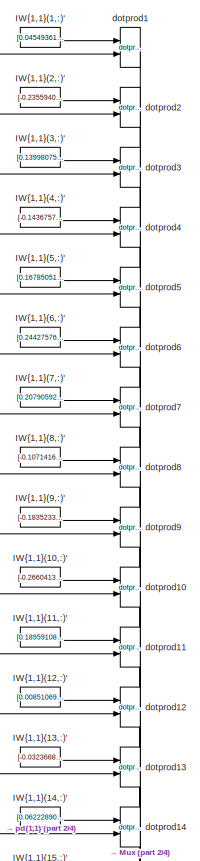
[diagram: Subsystem/Custom Neural Network6/Layer 1/IW{1,1} - part 1/4, top center region]
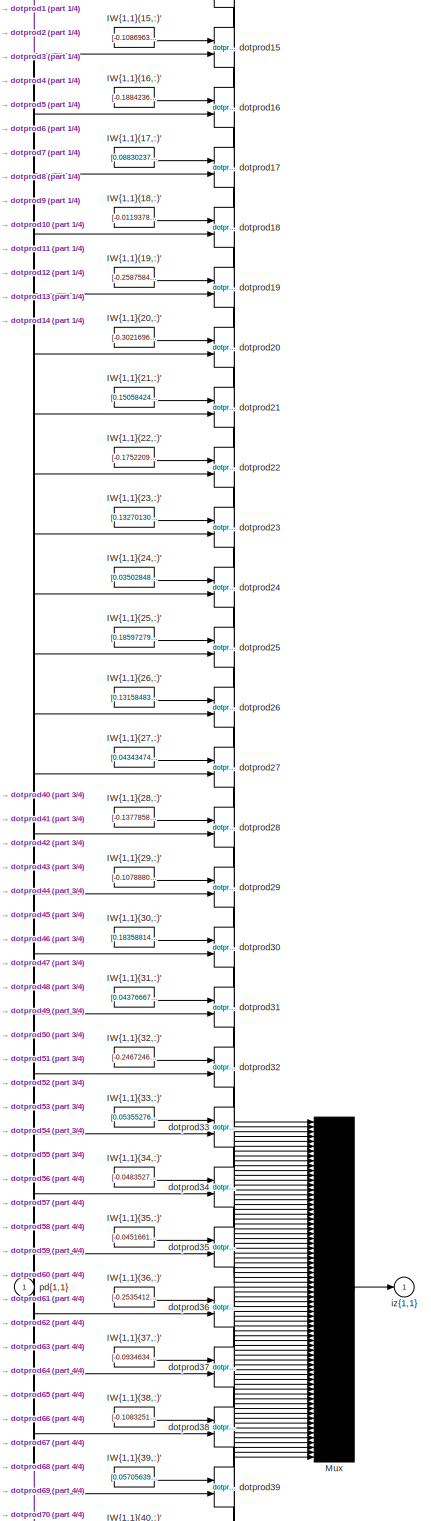
[diagram: Subsystem/Custom Neural Network6/Layer 1/IW{1,1} - part 2/4, full width, middle band]
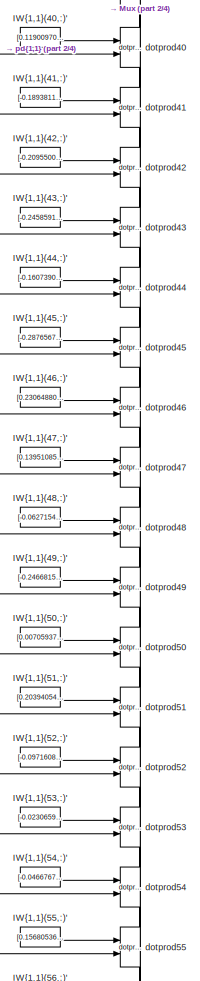
[diagram: Subsystem/Custom Neural Network6/Layer 1/IW{1,1} - part 3/4, bottom center region]
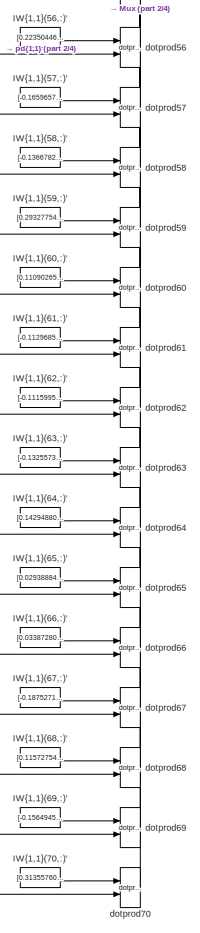
[diagram: Subsystem/Custom Neural Network6/Layer 1/IW{1,1} - part 4/4, bottom center region]
BLOCK [SubSystem] Subsystem/Custom Neural Network6/Layer 1/IW{1,1}
  Ports = [1, 1]
  RequestExecContextInheritance = off
BLOCK [Constant] Subsystem/Custom Neural Network6/Layer 1/IW{1,1}/IW{1,1}(1,:)'
  Value = [0.045493618128470185435485717562187346629798412322998046875;-0.2238011768994918881947597810722072608768939971923828125;-0.23493251690107685991648622803040780127048492431640625;-0.2218053125798678804070362957645556889474391937255859375;0.2442188568362046174886614835486398078501224517822265625;-0.03737789090083742937764554881141521036624908447265625;0.28523480869071399235181729636678937822580337524...<+3266ch>
BLOCK [Constant] Subsystem/Custom Neural Network6/Layer 1/IW{1,1}/IW{1,1}(10,:)'
  Value = [-0.266041386543010904830453000613488256931304931640625;0.274282294139786220199539457098580896854400634765625;-0.2435730218793996926240907896499265916645526885986328125;0.326357994623480529572390196335618384182453155517578125;-0.1034117461695169548629991140842321328818798065185546875;0.036526554126048001169824175349276629276573657989501953125;-0.1286574646953816125627412247922620736062526702880859...<+3264ch>
BLOCK [Constant] Subsystem/Custom Neural Network6/Layer 1/IW{1,1}/IW{1,1}(11,:)'
  Value = [0.18959108054867657155995175344287417829036712646484375;-0.10494970174882230218305068092377041466534137725830078125;-0.2206438153765379606152663427565130405128002166748046875;0.10751736400373558544263374869842664338648319244384765625;-0.08114254588186521621739899501335457898676395416259765625;0.0902472602375524457496425156932673417031764984130859375;0.197023213761917087571973183912632521241903305...<+3209ch>
BLOCK [Constant] Subsystem/Custom Neural Network6/Layer 1/IW{1,1}/IW{1,1}(12,:)'
  Value = [0.0085106904327478631600012448643610696308314800262451171875;0.09155773356251499517366454483635607175529003143310546875;0.246881979913988580666028838095371611416339874267578125;-0.2293549680506696830661894637160003185272216796875;0.01097183524005125761224821445694033172912895679473876953125;0.1700236241175777374134980846065445803105831146240234375;0.23559474864350860023876066406955942511558532714...<+3247ch>
BLOCK [Constant] Subsystem/Custom Neural Network6/Layer 1/IW{1,1}/IW{1,1}(13,:)'
  Value = [-0.032366898254921026845121190262943855486810207366943359375;0.2809641057335043878850910914479754865169525146484375;-0.12170979984206166391036418872317881323397159576416015625;-0.299836717061363444702948299891431815922260284423828125;0.19346711689998918881627787413890473544597625732421875;-0.03141798453212561736958008395959041081368923187255859375;-0.2277314301705208599013730008664424531161785125...<+3276ch>
BLOCK [Constant] Subsystem/Custom Neural Network6/Layer 1/IW{1,1}/IW{1,1}(14,:)'
  Value = [0.06222890734539156254445657623364240862429141998291015625;-0.08200230391579306499227897120363195426762104034423828125;-0.262776059355645907888998635826283134520053863525390625;-0.2294613326721970103516667904841597191989421844482421875;-0.027213868084208607533991397531281108967959880828857421875;-0.384383000348337000584564293603762052953243255615234375;-0.23395194736716282135624567217746516689658...<+3265ch>
BLOCK [Constant] Subsystem/Custom Neural Network6/Layer 1/IW{1,1}/IW{1,1}(15,:)'
  Value = [-0.1086963628095019007702148883254267275333404541015625;0.2664284096715672234267913154326379299163818359375;0.241219627927828528246578798643895424902439117431640625;-0.09254855074342789589270097394546610303223133087158203125;0.3404806191573033213870758117991499602794647216796875;-0.182386562866394930093605353249586187303066253662109375;-0.29567681142540502836624227711581625044345855712890625;-0.2...<+3243ch>
BLOCK [Constant] Subsystem/Custom Neural Network6/Layer 1/IW{1,1}/IW{1,1}(16,:)'
  Value = [-0.1884236131066741870565550698302104137837886810302734375;0.06763818341570780601212931060217670165002346038818359375;-0.0256446502530757562687835360293320263735949993133544921875;0.0307320828849147152650456149558522156439721584320068359375;-0.0883051050656462888088782392514985986053943634033203125;-0.1568915839052602290148996644347789697349071502685546875;-0.1078014061236756554462701274132996331...<+3258ch>
BLOCK [Constant] Subsystem/Custom Neural Network6/Layer 1/IW{1,1}/IW{1,1}(17,:)'
  Value = [0.08830237723910934477533629660683800466358661651611328125;-0.29749676778724332137926467112265527248382568359375;0.023059289597880013034103541258446057327091693878173828125;-0.07495990257384942123675131142590544186532497406005859375;0.2416951675959417566996734194617602042853832244873046875;0.01273599770429812740035746543298955657519400119781494140625;0.12171312696101097006184943438711343333125114...<+3240ch>
BLOCK [Constant] Subsystem/Custom Neural Network6/Layer 1/IW{1,1}/IW{1,1}(18,:)'
  Value = [-0.01193786077896064577730239619768326519988477230072021484375;0.1317729468208999887846033516325405798852443695068359375;0.300287860068035927785246030907728709280490875244140625;-0.284099046591125448113501761326915584504604339599609375;-0.29589243445098123430625491891987621784210205078125;-0.16081289581907742824995466435211710631847381591796875;0.27799510768402957427980481952545233070850372314453...<+3258ch>
BLOCK [Constant] Subsystem/Custom Neural Network6/Layer 1/IW{1,1}/IW{1,1}(19,:)'
  Value = [-0.258758435085012339360588384806760586798191070556640625;-0.2476618811825518073899132787119015119969844818115234375;-0.258495780844674782894543341171811334788799285888671875;-0.0083718555805812992776093750535437720827758312225341796875;0.16756579405767813018002243552473373711109161376953125;0.07561801211036812964128017711118445731699466705322265625;-0.29988035435823123808773971177288331091403961...<+3262ch>
BLOCK [Constant] Subsystem/Custom Neural Network6/Layer 1/IW{1,1}/IW{1,1}(2,:)'
  Value = [-0.235594067496613934764582154457457363605499267578125;0.1596850521356724950106098503965768031775951385498046875;0.09574819460964244244305376696502207778394222259521484375;0.20538706006526485925434144519385881721973419189453125;-0.279830395566306844301607270608656108379364013671875;0.2495677389959038705580240957715432159602642059326171875;-0.1697294279245802062217052252890425734221935272216796875...<+3254ch>
BLOCK [Constant] Subsystem/Custom Neural Network6/Layer 1/IW{1,1}/IW{1,1}(20,:)'
  Value = [-0.302169657380563005943940879660658538341522216796875;0.211560769224639677599242304495419375598430633544921875;0.06967997143629535428122068196898908354341983795166015625;-0.04854252596579762546458169936158810742199420928955078125;-0.11882712428297921569697592758529935963451862335205078125;0.10394216867974416518283220511875697411596775054931640625;0.12055233333011965146663868608811753802001476287...<+3268ch>
BLOCK [Constant] Subsystem/Custom Neural Network6/Layer 1/IW{1,1}/IW{1,1}(21,:)'
  Value = [0.1505842486934490243033479828227427788078784942626953125;-0.2664191417678878348596072100917808711528778076171875;-0.2128255125088894528229133129570982418954372406005859375;-0.10909893267260391269690700255523552186787128448486328125;-0.1406782909813610871196942753158509731292724609375;0.178075899392943270971301217286963947117328643798828125;-0.16274458207494194028619460823392728343605995178222656...<+3258ch>
BLOCK [Constant] Subsystem/Custom Neural Network6/Layer 1/IW{1,1}/IW{1,1}(22,:)'
  Value = [-0.1752209832408719025753640607945271767675876617431640625;-0.09102730341658883672639746009735972620546817779541015625;0.262266977024280423247404314679442904889583587646484375;0.2375189399604961948408998750892351381480693817138671875;0.103762842613843775385618073414661921560764312744140625;-0.1473504786515851261441412134445272386074066162109375;-0.2165023218946560967790304630398168228566646575927...<+3240ch>
BLOCK [Constant] Subsystem/Custom Neural Network6/Layer 1/IW{1,1}/IW{1,1}(23,:)'
  Value = [0.132701305126178781268464490494807250797748565673828125;0.244252754857584408743065296221175231039524078369140625;0.276063340186250061325523574851104058325290679931640625;0.02862046867703911534608351985298213548958301544189453125;0.311704884614489252658842133314465172588825225830078125;-0.19401655615107771257754620819468982517719268798828125;0.1657682416074079956302966820658184587955474853515625;...<+3255ch>
BLOCK [Constant] Subsystem/Custom Neural Network6/Layer 1/IW{1,1}/IW{1,1}(24,:)'
  Value = [0.03502848883743962804526717036424088291823863983154296875;0.0124764860458510852547764358178028487600386142730712890625;0.043048912077271829501601274614586145617067813873291015625;-0.07991170624482453466175257972281542606651782989501953125;0.07221529048548579188260276850996888242661952972412109375;0.240095680451195170324041328058228828012943267822265625;0.31996776794697268098133235980640165507793...<+3256ch>
BLOCK [Constant] Subsystem/Custom Neural Network6/Layer 1/IW{1,1}/IW{1,1}(25,:)'
  Value = [0.18597279769584862396669677764293737709522247314453125;0.0521661980400980607175398517938447184860706329345703125;-0.13011976189938756487407545137102715671062469482421875;-0.3078382256083809220825742158922366797924041748046875;0.25407173039307029416278282951680012047290802001953125;-0.216691461372317706324253094862797297537326812744140625;-0.1047453263788833133229871918956632725894451141357421875...<+3257ch>
BLOCK [Constant] Subsystem/Custom Neural Network6/Layer 1/IW{1,1}/IW{1,1}(26,:)'
  Value = [0.1315848367849115074790233848034404218196868896484375;0.11635408379180166293931364407399087212979793548583984375;0.255838847821267700854974691537790931761264801025390625;-0.06770967578966102795590131790959276258945465087890625;0.007662357239291465831054761537188824149779975414276123046875;0.134861299702629999774927682665293104946613311767578125;0.0907768404387045424464020015875576063990592956542...<+3253ch>
BLOCK [Constant] Subsystem/Custom Neural Network6/Layer 1/IW{1,1}/IW{1,1}(27,:)'
  Value = [0.0434347454061170257233470692881383001804351806640625;0.2468900230911097726238523364372667856514453887939453125;-0.044916981978303911759997646413467009551823139190673828125;-0.02919571835518401659026466177238035015761852264404296875;-0.0669463947280415083707083567787776701152324676513671875;0.059604128520549685965601582893214072100818157196044921875;0.11992906803032721274604455174994654953479766...<+3267ch>
BLOCK [Constant] Subsystem/Custom Neural Network6/Layer 1/IW{1,1}/IW{1,1}(28,:)'
  Value = [-0.1377858354892406433922502628774964250624179840087890625;-0.1785261392134980529267096471812692470848560333251953125;0.18905930226567402296922182358684949576854705810546875;-0.1859280171522229296865447167874663136899471282958984375;0.021197628872927871956921563878495362587273120880126953125;-0.229639020896200862775771156520931981503963470458984375;-0.244426405289264986331332352165190968662500381...<+3259ch>
BLOCK [Constant] Subsystem/Custom Neural Network6/Layer 1/IW{1,1}/IW{1,1}(29,:)'
  Value = [-0.10788808170731478686121818100218661129474639892578125;-0.07736220163719668974078302881025592796504497528076171875;-0.1612447116392371759818757936955080367624759674072265625;-0.2464142645961489297423696598343667574226856231689453125;-0.1194507648508720543123473589730565436184406280517578125;0.046611779415250555180794123089071945287287235260009765625;0.2684200748585688911518332133709918707609176...<+3249ch>
BLOCK [Constant] Subsystem/Custom Neural Network6/Layer 1/IW{1,1}/IW{1,1}(3,:)'
  Value = [0.139980753139315294841793502200744114816188812255859375;-0.0308952922676154588532693168190235155634582042694091796875;0.1909537651108035027913700787394191138446331024169921875;0.211853344253486175485789999584085308015346527099609375;0.2260926079666784327404371879310929216444492340087890625;-0.004179816000584284617358488134186700335703790187835693359375;-0.1837728876419770229766470492904772982001...<+3269ch>
BLOCK [Constant] Subsystem/Custom Neural Network6/Layer 1/IW{1,1}/IW{1,1}(30,:)'
  Value = [0.183588149129966904382627035374753177165985107421875;0.20650747770703803407599252750515006482601165771484375;-0.17249850264996047233267972842440940439701080322265625;0.1492527056401819207653858256890089251101016998291015625;0.11980149905916041841447139404408517293632030487060546875;-0.07143330214974659420068547888149623759090900421142578125;-0.1784438261070158682208841582905733957886695861816406...<+3256ch>
BLOCK [Constant] Subsystem/Custom Neural Network6/Layer 1/IW{1,1}/IW{1,1}(31,:)'
  Value = [0.043766674284906749436974138234290876425802707672119140625;-0.003305862347047217909834504467880833544768393039703369140625;-0.2991884965060427337135706693516112864017486572265625;-0.1962184906265120598600759649343672208487987518310546875;-0.06503824379251264831136580824022530578076839447021484375;-0.113725995698097437358597971979179419577121734619140625;0.0202436354199685593358015722742493380792...<+3268ch>
BLOCK [Constant] Subsystem/Custom Neural Network6/Layer 1/IW{1,1}/IW{1,1}(32,:)'
  Value = [-0.2467246764828903982103014413951314054429531097412109375;-0.258640888318601103179616984562017023563385009765625;0.0221205427575344899804310472291035694070160388946533203125;-0.13028158358798236360343025808106176555156707763671875;-0.2347741996948801423972241764204227365553379058837890625;0.032850868026066064320200865722654270939528942108154296875;0.2137889179654398341678955830502673052251338958...<+3237ch>
BLOCK [Constant] Subsystem/Custom Neural Network6/Layer 1/IW{1,1}/IW{1,1}(33,:)'
  Value = [0.053552760936497460775296275414802948944270610809326171875;-0.08339135222288159010606278798150015063583850860595703125;-0.026276591377654416603615317171716014854609966278076171875;0.03475580011717314954378110769539489410817623138427734375;0.04061353302447458235580057817060151137411594390869140625;0.2250586648329953309843887154784169979393482208251953125;0.1087476500366174742007174813807068858295...<+3256ch>
BLOCK [Constant] Subsystem/Custom Neural Network6/Layer 1/IW{1,1}/IW{1,1}(34,:)'
  Value = [-0.048352774594493490301072569081952678970992565155029296875;0.261355690879592483799598312543821521103382110595703125;0.2033970724224659354373301312080002389848232269287109375;0.178477822810814423792891147968475706875324249267578125;-0.231459497879444364709655701517476700246334075927734375;-0.0210123937026801092808891979757390799932181835174560546875;0.01975889168284380992268722820881521329283714...<+3243ch>
BLOCK [Constant] Subsystem/Custom Neural Network6/Layer 1/IW{1,1}/IW{1,1}(35,:)'
  Value = [-0.04516611988505965513684969891983200795948505401611328125;-0.232035626379331116897475340010714717209339141845703125;0.11101460101285533232928770530634210444986820220947265625;0.2058171878551358080500222058617509901523590087890625;0.287466560267174264797773730606422759592533111572265625;-0.0913831271845534642839226080468506552278995513916015625;-0.056868331967029353557485649162117624655365943908...<+3265ch>
BLOCK [Constant] Subsystem/Custom Neural Network6/Layer 1/IW{1,1}/IW{1,1}(36,:)'
  Value = [-0.253541257709315293045193584475782699882984161376953125;0.1832451050473488385339493333958671428263187408447265625;0.1342606468206005987386930655702599324285984039306640625;-0.0068614668954240058684757030960099655203521251678466796875;-0.115608023561291906045056521179503761231899261474609375;-0.056138337464161948420215964006274589337408542633056640625;-0.23607638205301964551274807035952107980847...<+3273ch>
BLOCK [Constant] Subsystem/Custom Neural Network6/Layer 1/IW{1,1}/IW{1,1}(37,:)'
  Value = [-0.0934634050407143757155381535994820296764373779296875;0.320541931672414903697898580503533594310283660888671875;-0.09755195632059383836764965280963224358856678009033203125;-0.0280492290847076698734330335582853876985609531402587890625;0.1375006036356162530953639588915393687784671783447265625;-0.127700081433611389858384654871770180761814117431640625;-0.178280673594769095702261552105483133345842361...<+3265ch>
BLOCK [Constant] Subsystem/Custom Neural Network6/Layer 1/IW{1,1}/IW{1,1}(38,:)'
  Value = [-0.1083251479515882353954481231994577683508396148681640625;-0.244602854547948778130006530773243866860866546630859375;0.0357526816817904935508209973704651929438114166259765625;0.00308196408684356139284776787690134369768202304840087890625;0.2218514095388595952496046947999275289475917816162109375;0.2774333209237387354306747511145658791065216064453125;0.13436982515205014854231535537110175937414169311...<+3273ch>
BLOCK [Constant] Subsystem/Custom Neural Network6/Layer 1/IW{1,1}/IW{1,1}(39,:)'
  Value = [0.057056392289564696052028835993041866458952426910400390625;0.251487667771130407601276601781137287616729736328125;0.004254443856475525163884920942791723064146935939788818359375;0.1527643951572809910555150736399809829890727996826171875;-0.303718097798796160535772514776908792555332183837890625;0.279369348347973944779454313902533613145351409912109375;-0.0692971682426812424226980624553107190877199172...<+3267ch>
BLOCK [Constant] Subsystem/Custom Neural Network6/Layer 1/IW{1,1}/IW{1,1}(4,:)'
  Value = [-0.1436757204935179832450131698351469822227954864501953125;0.25274808355490174793800406405352987349033355712890625;-0.2572650386570647373929432433214969933032989501953125;0.01097059977865666967333790893235345720313489437103271484375;0.0940843399683765346797059692107723094522953033447265625;0.226909784813138670767074245304684154689311981201171875;0.1914267638210895294825775181379867717623710632324...<+3235ch>
BLOCK [Constant] Subsystem/Custom Neural Network6/Layer 1/IW{1,1}/IW{1,1}(40,:)'
  Value = [0.11900970285002628046289174790217657573521137237548828125;-0.078756038577338982609177264748723246157169342041015625;-0.0539291187939639204973474306825664825737476348876953125;-0.11074162903729177498401980983544490300118923187255859375;-0.148111600624359185385259252143441699445247650146484375;0.15106087920088417941855141179985366761684417724609375;-0.1986898896936099556675969779462320730090141296...<+3264ch>
BLOCK [Constant] Subsystem/Custom Neural Network6/Layer 1/IW{1,1}/IW{1,1}(41,:)'
  Value = [-0.1893811078840330897055110881410655565559864044189453125;0.12440957206635337717326450501786894164979457855224609375;0.1678687593611600525900229285980458371341228485107421875;0.2077529884160207174215173608899931423366069793701171875;0.0689749062915852306776542945954133756458759307861328125;-0.2701231727348030187130234480719082057476043701171875;0.2048522705925930331716244836570695042610168457031...<+3274ch>
BLOCK [Constant] Subsystem/Custom Neural Network6/Layer 1/IW{1,1}/IW{1,1}(42,:)'
  Value = [-0.20955003470998445624928763209027238190174102783203125;-0.25662703680551113283314634827547706663608551025390625;0.10525772305283907781525698510449728928506374359130859375;0.11683629913778446895999962862333632074296474456787109375;0.19302325410243614811633960925973951816558837890625;0.17842638437793001404685355737456120550632476806640625;-0.248440413734068332729520989232696592807769775390625;0.0...<+3228ch>
BLOCK [Constant] Subsystem/Custom Neural Network6/Layer 1/IW{1,1}/IW{1,1}(43,:)'
  Value = [-0.245859133705675414471869544286164455115795135498046875;-0.09335032851516585072904064190879580564796924591064453125;0.059945069747202074650349601370180607773363590240478515625;-0.324536882881511112852734868283732794225215911865234375;0.120489080362006173441358214404317550361156463623046875;-0.1525023152939008752593252893348108045756816864013671875;0.242696297372449382168113629631989169865846633...<+3262ch>
BLOCK [Constant] Subsystem/Custom Neural Network6/Layer 1/IW{1,1}/IW{1,1}(44,:)'
  Value = [-0.1607390958416884119142054032636224292218685150146484375;0.2392375258266847548593858618914964608848094940185546875;-0.284234747769158080377138730909791775047779083251953125;-0.2271540838448962984497114803161821328103542327880859375;-0.298181972992079435957890609643072821199893951416015625;0.12304461699757097969953889560201787389814853668212890625;0.0106248150419649099729380026246872148476541042...<+3282ch>
BLOCK [Constant] Subsystem/Custom Neural Network6/Layer 1/IW{1,1}/IW{1,1}(45,:)'
  Value = [-0.287656748040422183265718558686785399913787841796875;-0.004620028645323533307565089245372291770763695240020751953125;-0.213743584835247524278400987896020524203777313232421875;0.134705736996077352074507871293462812900543212890625;0.1551210947443917020915904458888689987361431121826171875;0.30271901940984979884063932331628166139125823974609375;-0.202991889272935849275469877284194808453321456909179...<+3263ch>
BLOCK [Constant] Subsystem/Custom Neural Network6/Layer 1/IW{1,1}/IW{1,1}(46,:)'
  Value = [0.2306488003202138148406419304592418484389781951904296875;-0.257215525000623224105567032893304713070392608642578125;-0.11296645079006772949270498429541476070880889892578125;0.2353547727115634924377474135326338000595569610595703125;0.259244976786231096088641834285226650536060333251953125;-0.25947853052647873450808901907294057309627532958984375;0.1630795890803027059501317808098974637687206268310546...<+3263ch>
BLOCK [Constant] Subsystem/Custom Neural Network6/Layer 1/IW{1,1}/IW{1,1}(47,:)'
  Value = [0.1395108517186242347296598609318607486784458160400390625;0.009653413627791089524077250416667084209620952606201171875;0.23233617411136464614429542052675969898700714111328125;-0.06731672191707148422690210054497583769261837005615234375;-0.27344713444244017619411124542239122092723846435546875;-0.12387693394963918136486569210319430567324161529541015625;-0.043853405965628991514115853078692452982068061...<+3259ch>
BLOCK [Constant] Subsystem/Custom Neural Network6/Layer 1/IW{1,1}/IW{1,1}(48,:)'
  Value = [-0.0627154624276584637954101708601228892803192138671875;-0.07269938668628793398962528726769960485398769378662109375;0.1619107188411517961323937697670771740376949310302734375;0.095332119117030267307910662566428072750568389892578125;-0.270463498802316071323303958706674166023731231689453125;0.1517402570183665755365609584259800612926483154296875;-0.2297242637133144194105938140637590549886226654052734...<+3255ch>
BLOCK [Constant] Subsystem/Custom Neural Network6/Layer 1/IW{1,1}/IW{1,1}(49,:)'
  Value = [-0.2466815068719051817769383205813937820494174957275390625;0.19120334502896074724276331835426390171051025390625;0.106681858405712925996766671232762746512889862060546875;0.31625920477974511779706290326430462300777435302734375;-0.07746010945223684440730238520700368098914623260498046875;-0.00102339869858203251495876173748911242000758647918701171875;-0.293102175384695684545732774495263583958148956298...<+3246ch>
BLOCK [Constant] Subsystem/Custom Neural Network6/Layer 1/IW{1,1}/IW{1,1}(5,:)'
  Value = [0.1678505184803366911960864626962575130164623260498046875;0.21320835050187370018903720847447402775287628173828125;-0.3110656932804289898086835819412954151630401611328125;0.23065534282127175824683718019514344632625579833984375;-0.279621598338561039298610921832732856273651123046875;0.0087092352924524572832520874499095953069627285003662109375;0.305265504079225757916304928585304878652095794677734375;...<+3238ch>
BLOCK [Constant] Subsystem/Custom Neural Network6/Layer 1/IW{1,1}/IW{1,1}(50,:)'
  Value = [0.0070593739232014153517358323597363778389990329742431640625;0.244737643467567933530659729512990452349185943603515625;-0.06326764862843681225257341793621890246868133544921875;0.251911434445500181933397243483341298997402191162109375;0.2284032147642187648983735925867222249507904052734375;0.0561396139737639077171849066871800459921360015869140625;0.2098199029302256490847611303252051584422588348388671...<+3249ch>
BLOCK [Constant] Subsystem/Custom Neural Network6/Layer 1/IW{1,1}/IW{1,1}(51,:)'
  Value = [0.2039405427341139664942915032952441833913326263427734375;0.11418734576988132101149631125736050307750701904296875;0.3072202530378038698444242982077412307262420654296875;0.02492877100552730318394623054700787179172039031982421875;0.125868148360292309018149126131902448832988739013671875;-0.2362850760945932881984532514252350665628910064697265625;0.20309780744798630602865330274653388187289237976074218...<+3243ch>
BLOCK [Constant] Subsystem/Custom Neural Network6/Layer 1/IW{1,1}/IW{1,1}(52,:)'
  Value = [-0.09716083913868821253512209068503580056130886077880859375;0.05181988867893727590541175231919623911380767822265625;0.2258030570762026012499035232394817285239696502685546875;0.08259168260255454752094550485708168707787990570068359375;0.200999809135053941755444384398288093507289886474609375;0.031465106986649400699906919953718897886574268341064453125;-0.1589903512381457828528397158152074553072452545...<+3275ch>
BLOCK [Constant] Subsystem/Custom Neural Network6/Layer 1/IW{1,1}/IW{1,1}(53,:)'
  Value = [-0.023065943682597019048774455995953758247196674346923828125;0.000899213337318425739476401847838360481546260416507720947265625;-0.07730066326728853021155174474188243038952350616455078125;-0.08135166364777295100463305743687669746577739715576171875;0.235379061464038141782140201030415482819080352783203125;0.2873327086343613334662450142786838114261627197265625;-0.1453619385156708909700995491220965050...<+3269ch>
BLOCK [Constant] Subsystem/Custom Neural Network6/Layer 1/IW{1,1}/IW{1,1}(54,:)'
  Value = [-0.04667671147797110287047672727567260153591632843017578125;0.2415009230153497832294107183770393021404743194580078125;0.1156413692788505753750172289073816500604152679443359375;-0.29462253800426652095012514109839685261249542236328125;0.079795968366466352161836539380601607263088226318359375;0.145795803429935533213068765689968131482601165771484375;0.06392155847722978678770999749758630059659481048583...<+3269ch>
BLOCK [Constant] Subsystem/Custom Neural Network6/Layer 1/IW{1,1}/IW{1,1}(55,:)'
  Value = [0.15680536717841653260308021344826556742191314697265625;-0.069093011954985128486583789708674885332584381103515625;-0.0017020445448890681068576657963831166853196918964385986328125;-0.1521523515218125843784235939892823807895183563232421875;0.06636008174332184983423843505079275928437709808349609375;0.292913480322260000310308214466203935444355010986328125;-0.268480812996038376017082782709621824324131...<+3268ch>
BLOCK [Constant] Subsystem/Custom Neural Network6/Layer 1/IW{1,1}/IW{1,1}(56,:)'
  Value = [0.2235044646156023329108819552857312373816967010498046875;0.06528358160011620003881915863530593924224376678466796875;-0.216886153609357312799232886391109786927700042724609375;-0.2653098423343440703803253200021572411060333251953125;-0.016798659198176919826739350583011400885879993438720703125;-0.280110748549858901146336620513466186821460723876953125;0.23419481599892186252098724708048393949866294860...<+3273ch>
BLOCK [Constant] Subsystem/Custom Neural Network6/Layer 1/IW{1,1}/IW{1,1}(57,:)'
  Value = [-0.165965748990234474025129429719527252018451690673828125;-0.265562551466356155938086658352403901517391204833984375;-0.1477127167611824720694357893080450594425201416015625;0.30966830752244189906008386969915591180324554443359375;-0.029428926768185044438030928404259611852467060089111328125;0.1490013535130980948384404882745002396404743194580078125;0.29706891798414020167129478977585677057504653930664...<+3264ch>
BLOCK [Constant] Subsystem/Custom Neural Network6/Layer 1/IW{1,1}/IW{1,1}(58,:)'
  Value = [-0.136678290907585486824160625474178232252597808837890625;0.1771197561482046045622240626471466384828090667724609375;-0.1930278413725881325735400650955853052437305450439453125;-0.02938520032251899782860249388249940238893032073974609375;-0.295840000626945875961126830588909797370433807373046875;-0.301057240701952777417460538345039822161197662353515625;0.1645811267861770899045836813456844538450241088...<+3281ch>
BLOCK [Constant] Subsystem/Custom Neural Network6/Layer 1/IW{1,1}/IW{1,1}(59,:)'
  Value = [0.293277548968272794294165350947878323495388031005859375;-0.070697292169153713725648913168697617948055267333984375;0.0410465096872695556218246792923309840261936187744140625;0.1521802105696405116308511651368462480604648590087890625;-0.30014230293206345390188971578027121722698211669921875;0.1268737378484716682436328483163379132747650146484375;0.246933873261790726161279962980188429355621337890625;-0...<+3237ch>
BLOCK [Constant] Subsystem/Custom Neural Network6/Layer 1/IW{1,1}/IW{1,1}(6,:)'
  Value = [0.2442757662943406404831847567038494162261486053466796875;0.10322006447069966006413466175217763520777225494384765625;0.267490119302211726282081372119137085974216461181640625;0.1412173351190053327552931250465917401015758514404296875;0.32560394132539627332079135157982818782329559326171875;-0.074303638938857219375933027549763210117816925048828125;0.026588372576926949664155586106062401086091995239257...<+3253ch>
BLOCK [Constant] Subsystem/Custom Neural Network6/Layer 1/IW{1,1}/IW{1,1}(60,:)'
  Value = [0.11090265684219736963544988839203142561018466949462890625;-0.18540409695211435003869837601087056100368499755859375;-0.12021192376665155998605172271709307096898555755615234375;0.1698674107480221129318209705161279998719692230224609375;0.2053767001500909350486523408108041621744632720947265625;-0.31273232947417906046894131577573716640472412109375;-0.25903413574842343303217262473481241613626480102539...<+3242ch>
BLOCK [Constant] Subsystem/Custom Neural Network6/Layer 1/IW{1,1}/IW{1,1}(61,:)'
  Value = [-0.11296850823950486952806926410630694590508937835693359375;-0.2560505886772663775019509557751007378101348876953125;-0.349753799468831838570537229315959848463535308837890625;-0.046951565605637256284321523480684845708310604095458984375;0.096142015481685716427051602295250631868839263916015625;0.035201074457741510226327363852760754525661468505859375;0.239900733482402539475941694036009721457958221435...<+3261ch>
BLOCK [Constant] Subsystem/Custom Neural Network6/Layer 1/IW{1,1}/IW{1,1}(62,:)'
  Value = [-0.11159957162062907054522753469427698291838169097900390625;0.056942182084057151036926569531715358607470989227294921875;0.05813606639038342016601035311396117322146892547607421875;-0.049309322448366228741623018549944390542805194854736328125;-0.1655456314781229565369358169846236705780029296875;-0.152879507952415227833853350603021681308746337890625;0.2109491747738043154747344942734343931078910827636...<+3271ch>
BLOCK [Constant] Subsystem/Custom Neural Network6/Layer 1/IW{1,1}/IW{1,1}(63,:)'
  Value = [-0.1325573073628602271956111735562444664537906646728515625;-0.269612078402965249512845957724493928253650665283203125;0.0304421213813344249121684015335631556808948516845703125;0.22212303568999802738659354872652329504489898681640625;-0.223593964760315289108660863348632119596004486083984375;-0.055553413296926069941950032671229564584791660308837890625;0.10294171648785509221024625503559946082532405853...<+3239ch>
BLOCK [Constant] Subsystem/Custom Neural Network6/Layer 1/IW{1,1}/IW{1,1}(64,:)'
  Value = [0.1429488076161467002833660444593988358974456787109375;-0.281589692659700130406008611316792666912078857421875;0.06322161960415666193124906158118392340838909149169921875;0.059639129829103638968934575359526206739246845245361328125;-0.057121735234989388929616183077087043784558773040771484375;0.26891530748489389512911884594359435141086578369140625;0.296372587451346258813345002636197023093700408935546...<+3241ch>
BLOCK [Constant] Subsystem/Custom Neural Network6/Layer 1/IW{1,1}/IW{1,1}(65,:)'
  Value = [0.0293888412737508368521854862365216831676661968231201171875;0.2255048475576693356448032545813475735485553741455078125;-0.00863454605945973389935499398006868432275950908660888671875;-0.049996201642348199467580371901931357569992542266845703125;0.09236490059230446914018131110424292273819446563720703125;-0.2078248614123782422868913499769405461847782135009765625;-0.19683791956720572691175163981824880...<+3266ch>
BLOCK [Constant] Subsystem/Custom Neural Network6/Layer 1/IW{1,1}/IW{1,1}(66,:)'
  Value = [0.033872807982357415468310790629402617923915386199951171875;-0.18742826033552184572528176431660540401935577392578125;0.3284785556694946873079743454582057893276214599609375;-0.10135480463669015172012421999170328490436077117919921875;-0.1578394376407901145142886889516375958919525146484375;0.005583534479279477456825642178728230646811425685882568359375;0.3321419051471607430947585726244142279028892517...<+3262ch>
BLOCK [Constant] Subsystem/Custom Neural Network6/Layer 1/IW{1,1}/IW{1,1}(67,:)'
  Value = [-0.187527118303562223555758237125701270997524261474609375;-0.228277711582190179218088132984121330082416534423828125;-0.09822942708855268711953812044157530181109905242919921875;-0.10505182716903294082300135414698161184787750244140625;-0.257291312207971578640552934302831999957561492919921875;-0.2281048141362413683719267964988830499351024627685546875;-0.2671634216684106166717072028404800221323966979...<+3240ch>
BLOCK [Constant] Subsystem/Custom Neural Network6/Layer 1/IW{1,1}/IW{1,1}(68,:)'
  Value = [0.1157275415881777458348977916102739982306957244873046875;-0.3024067763177686885001094196923077106475830078125;-0.1738567450057326435608473502725246362388134002685546875;0.1470963407860413629801854540346539579331874847412109375;-0.308631152720716561699276780927903018891811370849609375;0.227447768385900861431991870631463825702667236328125;-0.08764427280445931389696312407977529801428318023681640625...<+3245ch>
BLOCK [Constant] Subsystem/Custom Neural Network6/Layer 1/IW{1,1}/IW{1,1}(69,:)'
  Value = [-0.15649454898859682661083070343011058866977691650390625;0.15817009851869900938226010111975483596324920654296875;-0.2127703093856817273543668989077559672296047210693359375;0.09465459513332037666533125275236670859158039093017578125;-0.144533816949924898143109430748154409229755401611328125;0.06003071070166822453817445648382999934256076812744140625;0.0110073035278245422857734681088004435878247022628...<+3260ch>
BLOCK [Constant] Subsystem/Custom Neural Network6/Layer 1/IW{1,1}/IW{1,1}(7,:)'
  Value = [0.2079059253506941595812662626485689543187618255615234375;0.322749108097489523228063035276136361062526702880859375;-0.01185170791920399195606972142513768631033599376678466796875;0.090288947649625139746376589755527675151824951171875;0.273699587666876242852964651319780386984348297119140625;-0.1990637254797060495814520209023612551391124725341796875;-0.274310733106753523724563592622871510684490203857...<+3268ch>
BLOCK [Constant] Subsystem/Custom Neural Network6/Layer 1/IW{1,1}/IW{1,1}(70,:)'
  Value = [0.313557600655045176640811632751137949526309967041015625;0.300982795568143612907618944518617354333400726318359375;0.259904070208740234360078602549037896096706390380859375;0.05197983186455697179884083425349672324955463409423828125;0.0900759788565514696312419573587249033153057098388671875;-0.313506266500230668103910147692658938467502593994140625;0.070850917656510969955263590236427262425422668457031...<+3263ch>
BLOCK [Constant] Subsystem/Custom Neural Network6/Layer 1/IW{1,1}/IW{1,1}(8,:)'
  Value = [-0.1071416151180013265342694239734555594623088836669921875;0.2257297831580412361685006317202351056039333343505859375;0.1939388761619136314351408145739696919918060302734375;0.07817556178297356550555008425362757407128810882568359375;-0.1301813121053942146065907081720069982111454010009765625;0.135638612749414411151605008853948675096035003662109375;-0.2877850492443174146295348236890276893973350524902...<+3266ch>
BLOCK [Constant] Subsystem/Custom Neural Network6/Layer 1/IW{1,1}/IW{1,1}(9,:)'
  Value = [-0.1835233424490462506017962596160941757261753082275390625;-0.01734798512614003918042016039180452935397624969482421875;0.264332893028584148265025532964500598609447479248046875;0.25852107884344466270931661711074411869049072265625;0.0170497430165088108278137468687418731860816478729248046875;-0.10137195105022721308696276310001849196851253509521484375;-0.1844058311267250394038796912354882806539535522...<+3270ch>
BLOCK [Mux] Subsystem/Custom Neural Network6/Layer 1/IW{1,1}/Mux
  Inputs = 70
  Ports = [70, 1]
BLOCK [Reference] Subsystem/Custom Neural Network6/Layer 1/IW{1,1}/dotprod1  REF=neural/Weight Functions/dotprod
  Ports = [2, 1]
  SourceBlock = neural/Weight Functions/dotprod
  SourceProductBaseCode = NN
  SourceType = DOTPROD
BLOCK [Reference] Subsystem/Custom Neural Network6/Layer 1/IW{1,1}/dotprod10  REF=neural/Weight Functions/dotprod
  Ports = [2, 1]
  SourceBlock = neural/Weight Functions/dotprod
  SourceProductBaseCode = NN
  SourceType = DOTPROD
BLOCK [Reference] Subsystem/Custom Neural Network6/Layer 1/IW{1,1}/dotprod11  REF=neural/Weight Functions/dotprod
  Ports = [2, 1]
  SourceBlock = neural/Weight Functions/dotprod
  SourceProductBaseCode = NN
  SourceType = DOTPROD
BLOCK [Reference] Subsystem/Custom Neural Network6/Layer 1/IW{1,1}/dotprod12  REF=neural/Weight Functions/dotprod
  Ports = [2, 1]
  SourceBlock = neural/Weight Functions/dotprod
  SourceProductBaseCode = NN
  SourceType = DOTPROD
BLOCK [Reference] Subsystem/Custom Neural Network6/Layer 1/IW{1,1}/dotprod13  REF=neural/Weight Functions/dotprod
  Ports = [2, 1]
  SourceBlock = neural/Weight Functions/dotprod
  SourceProductBaseCode = NN
  SourceType = DOTPROD
BLOCK [Reference] Subsystem/Custom Neural Network6/Layer 1/IW{1,1}/dotprod14  REF=neural/Weight Functions/dotprod
  Ports = [2, 1]
  SourceBlock = neural/Weight Functions/dotprod
  SourceProductBaseCode = NN
  SourceType = DOTPROD
BLOCK [Reference] Subsystem/Custom Neural Network6/Layer 1/IW{1,1}/dotprod15  REF=neural/Weight Functions/dotprod
  Ports = [2, 1]
  SourceBlock = neural/Weight Functions/dotprod
  SourceProductBaseCode = NN
  SourceType = DOTPROD
BLOCK [Reference] Subsystem/Custom Neural Network6/Layer 1/IW{1,1}/dotprod16  REF=neural/Weight Functions/dotprod
  Ports = [2, 1]
  SourceBlock = neural/Weight Functions/dotprod
  SourceProductBaseCode = NN
  SourceType = DOTPROD
BLOCK [Reference] Subsystem/Custom Neural Network6/Layer 1/IW{1,1}/dotprod17  REF=neural/Weight Functions/dotprod
  Ports = [2, 1]
  SourceBlock = neural/Weight Functions/dotprod
  SourceProductBaseCode = NN
  SourceType = DOTPROD
BLOCK [Reference] Subsystem/Custom Neural Network6/Layer 1/IW{1,1}/dotprod18  REF=neural/Weight Functions/dotprod
  Ports = [2, 1]
  SourceBlock = neural/Weight Functions/dotprod
  SourceProductBaseCode = NN
  SourceType = DOTPROD
BLOCK [Reference] Subsystem/Custom Neural Network6/Layer 1/IW{1,1}/dotprod19  REF=neural/Weight Functions/dotprod
  Ports = [2, 1]
  SourceBlock = neural/Weight Functions/dotprod
  SourceProductBaseCode = NN
  SourceType = DOTPROD
BLOCK [Reference] Subsystem/Custom Neural Network6/Layer 1/IW{1,1}/dotprod2  REF=neural/Weight Functions/dotprod
  Ports = [2, 1]
  SourceBlock = neural/Weight Functions/dotprod
  SourceProductBaseCode = NN
  SourceType = DOTPROD
BLOCK [Reference] Subsystem/Custom Neural Network6/Layer 1/IW{1,1}/dotprod20  REF=neural/Weight Functions/dotprod
  Ports = [2, 1]
  SourceBlock = neural/Weight Functions/dotprod
  SourceProductBaseCode = NN
  SourceType = DOTPROD
BLOCK [Reference] Subsystem/Custom Neural Network6/Layer 1/IW{1,1}/dotprod21  REF=neural/Weight Functions/dotprod
  Ports = [2, 1]
  SourceBlock = neural/Weight Functions/dotprod
  SourceProductBaseCode = NN
  SourceType = DOTPROD
BLOCK [Reference] Subsystem/Custom Neural Network6/Layer 1/IW{1,1}/dotprod22  REF=neural/Weight Functions/dotprod
  Ports = [2, 1]
  SourceBlock = neural/Weight Functions/dotprod
  SourceProductBaseCode = NN
  SourceType = DOTPROD
BLOCK [Reference] Subsystem/Custom Neural Network6/Layer 1/IW{1,1}/dotprod23  REF=neural/Weight Functions/dotprod
  Ports = [2, 1]
  SourceBlock = neural/Weight Functions/dotprod
  SourceProductBaseCode = NN
  SourceType = DOTPROD
BLOCK [Reference] Subsystem/Custom Neural Network6/Layer 1/IW{1,1}/dotprod24  REF=neural/Weight Functions/dotprod
  Ports = [2, 1]
  SourceBlock = neural/Weight Functions/dotprod
  SourceProductBaseCode = NN
  SourceType = DOTPROD
BLOCK [Reference] Subsystem/Custom Neural Network6/Layer 1/IW{1,1}/dotprod25  REF=neural/Weight Functions/dotprod
  Ports = [2, 1]
  SourceBlock = neural/Weight Functions/dotprod
  SourceProductBaseCode = NN
  SourceType = DOTPROD
BLOCK [Reference] Subsystem/Custom Neural Network6/Layer 1/IW{1,1}/dotprod26  REF=neural/Weight Functions/dotprod
  Ports = [2, 1]
  SourceBlock = neural/Weight Functions/dotprod
  SourceProductBaseCode = NN
  SourceType = DOTPROD
BLOCK [Reference] Subsystem/Custom Neural Network6/Layer 1/IW{1,1}/dotprod27  REF=neural/Weight Functions/dotprod
  Ports = [2, 1]
  SourceBlock = neural/Weight Functions/dotprod
  SourceProductBaseCode = NN
  SourceType = DOTPROD
BLOCK [Reference] Subsystem/Custom Neural Network6/Layer 1/IW{1,1}/dotprod28  REF=neural/Weight Functions/dotprod
  Ports = [2, 1]
  SourceBlock = neural/Weight Functions/dotprod
  SourceProductBaseCode = NN
  SourceType = DOTPROD
BLOCK [Reference] Subsystem/Custom Neural Network6/Layer 1/IW{1,1}/dotprod29  REF=neural/Weight Functions/dotprod
  Ports = [2, 1]
  SourceBlock = neural/Weight Functions/dotprod
  SourceProductBaseCode = NN
  SourceType = DOTPROD
BLOCK [Reference] Subsystem/Custom Neural Network6/Layer 1/IW{1,1}/dotprod3  REF=neural/Weight Functions/dotprod
  Ports = [2, 1]
  SourceBlock = neural/Weight Functions/dotprod
  SourceProductBaseCode = NN
  SourceType = DOTPROD
BLOCK [Reference] Subsystem/Custom Neural Network6/Layer 1/IW{1,1}/dotprod30  REF=neural/Weight Functions/dotprod
  Ports = [2, 1]
  SourceBlock = neural/Weight Functions/dotprod
  SourceProductBaseCode = NN
  SourceType = DOTPROD
BLOCK [Reference] Subsystem/Custom Neural Network6/Layer 1/IW{1,1}/dotprod31  REF=neural/Weight Functions/dotprod
  Ports = [2, 1]
  SourceBlock = neural/Weight Functions/dotprod
  SourceProductBaseCode = NN
  SourceType = DOTPROD
BLOCK [Reference] Subsystem/Custom Neural Network6/Layer 1/IW{1,1}/dotprod32  REF=neural/Weight Functions/dotprod
  Ports = [2, 1]
  SourceBlock = neural/Weight Functions/dotprod
  SourceProductBaseCode = NN
  SourceType = DOTPROD
BLOCK [Reference] Subsystem/Custom Neural Network6/Layer 1/IW{1,1}/dotprod33  REF=neural/Weight Functions/dotprod
  Ports = [2, 1]
  SourceBlock = neural/Weight Functions/dotprod
  SourceProductBaseCode = NN
  SourceType = DOTPROD
BLOCK [Reference] Subsystem/Custom Neural Network6/Layer 1/IW{1,1}/dotprod34  REF=neural/Weight Functions/dotprod
  Ports = [2, 1]
  SourceBlock = neural/Weight Functions/dotprod
  SourceProductBaseCode = NN
  SourceType = DOTPROD
BLOCK [Reference] Subsystem/Custom Neural Network6/Layer 1/IW{1,1}/dotprod35  REF=neural/Weight Functions/dotprod
  Ports = [2, 1]
  SourceBlock = neural/Weight Functions/dotprod
  SourceProductBaseCode = NN
  SourceType = DOTPROD
BLOCK [Reference] Subsystem/Custom Neural Network6/Layer 1/IW{1,1}/dotprod36  REF=neural/Weight Functions/dotprod
  Ports = [2, 1]
  SourceBlock = neural/Weight Functions/dotprod
  SourceProductBaseCode = NN
  SourceType = DOTPROD
BLOCK [Reference] Subsystem/Custom Neural Network6/Layer 1/IW{1,1}/dotprod37  REF=neural/Weight Functions/dotprod
  Ports = [2, 1]
  SourceBlock = neural/Weight Functions/dotprod
  SourceProductBaseCode = NN
  SourceType = DOTPROD
BLOCK [Reference] Subsystem/Custom Neural Network6/Layer 1/IW{1,1}/dotprod38  REF=neural/Weight Functions/dotprod
  Ports = [2, 1]
  SourceBlock = neural/Weight Functions/dotprod
  SourceProductBaseCode = NN
  SourceType = DOTPROD
BLOCK [Reference] Subsystem/Custom Neural Network6/Layer 1/IW{1,1}/dotprod39  REF=neural/Weight Functions/dotprod
  Ports = [2, 1]
  SourceBlock = neural/Weight Functions/dotprod
  SourceProductBaseCode = NN
  SourceType = DOTPROD
BLOCK [Reference] Subsystem/Custom Neural Network6/Layer 1/IW{1,1}/dotprod4  REF=neural/Weight Functions/dotprod
  Ports = [2, 1]
  SourceBlock = neural/Weight Functions/dotprod
  SourceProductBaseCode = NN
  SourceType = DOTPROD
BLOCK [Reference] Subsystem/Custom Neural Network6/Layer 1/IW{1,1}/dotprod40  REF=neural/Weight Functions/dotprod
  Ports = [2, 1]
  SourceBlock = neural/Weight Functions/dotprod
  SourceProductBaseCode = NN
  SourceType = DOTPROD
BLOCK [Reference] Subsystem/Custom Neural Network6/Layer 1/IW{1,1}/dotprod41  REF=neural/Weight Functions/dotprod
  Ports = [2, 1]
  SourceBlock = neural/Weight Functions/dotprod
  SourceProductBaseCode = NN
  SourceType = DOTPROD
BLOCK [Reference] Subsystem/Custom Neural Network6/Layer 1/IW{1,1}/dotprod42  REF=neural/Weight Functions/dotprod
  Ports = [2, 1]
  SourceBlock = neural/Weight Functions/dotprod
  SourceProductBaseCode = NN
  SourceType = DOTPROD
BLOCK [Reference] Subsystem/Custom Neural Network6/Layer 1/IW{1,1}/dotprod43  REF=neural/Weight Functions/dotprod
  Ports = [2, 1]
  SourceBlock = neural/Weight Functions/dotprod
  SourceProductBaseCode = NN
  SourceType = DOTPROD
BLOCK [Reference] Subsystem/Custom Neural Network6/Layer 1/IW{1,1}/dotprod44  REF=neural/Weight Functions/dotprod
  Ports = [2, 1]
  SourceBlock = neural/Weight Functions/dotprod
  SourceProductBaseCode = NN
  SourceType = DOTPROD
BLOCK [Reference] Subsystem/Custom Neural Network6/Layer 1/IW{1,1}/dotprod45  REF=neural/Weight Functions/dotprod
  Ports = [2, 1]
  SourceBlock = neural/Weight Functions/dotprod
  SourceProductBaseCode = NN
  SourceType = DOTPROD
BLOCK [Reference] Subsystem/Custom Neural Network6/Layer 1/IW{1,1}/dotprod46  REF=neural/Weight Functions/dotprod
  Ports = [2, 1]
  SourceBlock = neural/Weight Functions/dotprod
  SourceProductBaseCode = NN
  SourceType = DOTPROD
BLOCK [Reference] Subsystem/Custom Neural Network6/Layer 1/IW{1,1}/dotprod47  REF=neural/Weight Functions/dotprod
  Ports = [2, 1]
  SourceBlock = neural/Weight Functions/dotprod
  SourceProductBaseCode = NN
  SourceType = DOTPROD
BLOCK [Reference] Subsystem/Custom Neural Network6/Layer 1/IW{1,1}/dotprod48  REF=neural/Weight Functions/dotprod
  Ports = [2, 1]
  SourceBlock = neural/Weight Functions/dotprod
  SourceProductBaseCode = NN
  SourceType = DOTPROD
BLOCK [Reference] Subsystem/Custom Neural Network6/Layer 1/IW{1,1}/dotprod49  REF=neural/Weight Functions/dotprod
  Ports = [2, 1]
  SourceBlock = neural/Weight Functions/dotprod
  SourceProductBaseCode = NN
  SourceType = DOTPROD
BLOCK [Reference] Subsystem/Custom Neural Network6/Layer 1/IW{1,1}/dotprod5  REF=neural/Weight Functions/dotprod
  Ports = [2, 1]
  SourceBlock = neural/Weight Functions/dotprod
  SourceProductBaseCode = NN
  SourceType = DOTPROD
BLOCK [Reference] Subsystem/Custom Neural Network6/Layer 1/IW{1,1}/dotprod50  REF=neural/Weight Functions/dotprod
  Ports = [2, 1]
  SourceBlock = neural/Weight Functions/dotprod
  SourceProductBaseCode = NN
  SourceType = DOTPROD
BLOCK [Reference] Subsystem/Custom Neural Network6/Layer 1/IW{1,1}/dotprod51  REF=neural/Weight Functions/dotprod
  Ports = [2, 1]
  SourceBlock = neural/Weight Functions/dotprod
  SourceProductBaseCode = NN
  SourceType = DOTPROD
BLOCK [Reference] Subsystem/Custom Neural Network6/Layer 1/IW{1,1}/dotprod52  REF=neural/Weight Functions/dotprod
  Ports = [2, 1]
  SourceBlock = neural/Weight Functions/dotprod
  SourceProductBaseCode = NN
  SourceType = DOTPROD
BLOCK [Reference] Subsystem/Custom Neural Network6/Layer 1/IW{1,1}/dotprod53  REF=neural/Weight Functions/dotprod
  Ports = [2, 1]
  SourceBlock = neural/Weight Functions/dotprod
  SourceProductBaseCode = NN
  SourceType = DOTPROD
BLOCK [Reference] Subsystem/Custom Neural Network6/Layer 1/IW{1,1}/dotprod54  REF=neural/Weight Functions/dotprod
  Ports = [2, 1]
  SourceBlock = neural/Weight Functions/dotprod
  SourceProductBaseCode = NN
  SourceType = DOTPROD
BLOCK [Reference] Subsystem/Custom Neural Network6/Layer 1/IW{1,1}/dotprod55  REF=neural/Weight Functions/dotprod
  Ports = [2, 1]
  SourceBlock = neural/Weight Functions/dotprod
  SourceProductBaseCode = NN
  SourceType = DOTPROD
BLOCK [Reference] Subsystem/Custom Neural Network6/Layer 1/IW{1,1}/dotprod56  REF=neural/Weight Functions/dotprod
  Ports = [2, 1]
  SourceBlock = neural/Weight Functions/dotprod
  SourceProductBaseCode = NN
  SourceType = DOTPROD
BLOCK [Reference] Subsystem/Custom Neural Network6/Layer 1/IW{1,1}/dotprod57  REF=neural/Weight Functions/dotprod
  Ports = [2, 1]
  SourceBlock = neural/Weight Functions/dotprod
  SourceProductBaseCode = NN
  SourceType = DOTPROD
BLOCK [Reference] Subsystem/Custom Neural Network6/Layer 1/IW{1,1}/dotprod58  REF=neural/Weight Functions/dotprod
  Ports = [2, 1]
  SourceBlock = neural/Weight Functions/dotprod
  SourceProductBaseCode = NN
  SourceType = DOTPROD
BLOCK [Reference] Subsystem/Custom Neural Network6/Layer 1/IW{1,1}/dotprod59  REF=neural/Weight Functions/dotprod
  Ports = [2, 1]
  SourceBlock = neural/Weight Functions/dotprod
  SourceProductBaseCode = NN
  SourceType = DOTPROD
BLOCK [Reference] Subsystem/Custom Neural Network6/Layer 1/IW{1,1}/dotprod6  REF=neural/Weight Functions/dotprod
  Ports = [2, 1]
  SourceBlock = neural/Weight Functions/dotprod
  SourceProductBaseCode = NN
  SourceType = DOTPROD
BLOCK [Reference] Subsystem/Custom Neural Network6/Layer 1/IW{1,1}/dotprod60  REF=neural/Weight Functions/dotprod
  Ports = [2, 1]
  SourceBlock = neural/Weight Functions/dotprod
  SourceProductBaseCode = NN
  SourceType = DOTPROD
BLOCK [Reference] Subsystem/Custom Neural Network6/Layer 1/IW{1,1}/dotprod61  REF=neural/Weight Functions/dotprod
  Ports = [2, 1]
  SourceBlock = neural/Weight Functions/dotprod
  SourceProductBaseCode = NN
  SourceType = DOTPROD
BLOCK [Reference] Subsystem/Custom Neural Network6/Layer 1/IW{1,1}/dotprod62  REF=neural/Weight Functions/dotprod
  Ports = [2, 1]
  SourceBlock = neural/Weight Functions/dotprod
  SourceProductBaseCode = NN
  SourceType = DOTPROD
BLOCK [Reference] Subsystem/Custom Neural Network6/Layer 1/IW{1,1}/dotprod63  REF=neural/Weight Functions/dotprod
  Ports = [2, 1]
  SourceBlock = neural/Weight Functions/dotprod
  SourceProductBaseCode = NN
  SourceType = DOTPROD
BLOCK [Reference] Subsystem/Custom Neural Network6/Layer 1/IW{1,1}/dotprod64  REF=neural/Weight Functions/dotprod
  Ports = [2, 1]
  SourceBlock = neural/Weight Functions/dotprod
  SourceProductBaseCode = NN
  SourceType = DOTPROD
BLOCK [Reference] Subsystem/Custom Neural Network6/Layer 1/IW{1,1}/dotprod65  REF=neural/Weight Functions/dotprod
  Ports = [2, 1]
  SourceBlock = neural/Weight Functions/dotprod
  SourceProductBaseCode = NN
  SourceType = DOTPROD
BLOCK [Reference] Subsystem/Custom Neural Network6/Layer 1/IW{1,1}/dotprod66  REF=neural/Weight Functions/dotprod
  Ports = [2, 1]
  SourceBlock = neural/Weight Functions/dotprod
  SourceProductBaseCode = NN
  SourceType = DOTPROD
BLOCK [Reference] Subsystem/Custom Neural Network6/Layer 1/IW{1,1}/dotprod67  REF=neural/Weight Functions/dotprod
  Ports = [2, 1]
  SourceBlock = neural/Weight Functions/dotprod
  SourceProductBaseCode = NN
  SourceType = DOTPROD
BLOCK [Reference] Subsystem/Custom Neural Network6/Layer 1/IW{1,1}/dotprod68  REF=neural/Weight Functions/dotprod
  Ports = [2, 1]
  SourceBlock = neural/Weight Functions/dotprod
  SourceProductBaseCode = NN
  SourceType = DOTPROD
BLOCK [Reference] Subsystem/Custom Neural Network6/Layer 1/IW{1,1}/dotprod69  REF=neural/Weight Functions/dotprod
  Ports = [2, 1]
  SourceBlock = neural/Weight Functions/dotprod
  SourceProductBaseCode = NN
  SourceType = DOTPROD
BLOCK [Reference] Subsystem/Custom Neural Network6/Layer 1/IW{1,1}/dotprod7  REF=neural/Weight Functions/dotprod
  Ports = [2, 1]
  SourceBlock = neural/Weight Functions/dotprod
  SourceProductBaseCode = NN
  SourceType = DOTPROD
BLOCK [Reference] Subsystem/Custom Neural Network6/Layer 1/IW{1,1}/dotprod70  REF=neural/Weight Functions/dotprod
  Ports = [2, 1]
  SourceBlock = neural/Weight Functions/dotprod
  SourceProductBaseCode = NN
  SourceType = DOTPROD
BLOCK [Reference] Subsystem/Custom Neural Network6/Layer 1/IW{1,1}/dotprod8  REF=neural/Weight Functions/dotprod
  Ports = [2, 1]
  SourceBlock = neural/Weight Functions/dotprod
  SourceProductBaseCode = NN
  SourceType = DOTPROD
BLOCK [Reference] Subsystem/Custom Neural Network6/Layer 1/IW{1,1}/dotprod9  REF=neural/Weight Functions/dotprod
  Ports = [2, 1]
  SourceBlock = neural/Weight Functions/dotprod
  SourceProductBaseCode = NN
  SourceType = DOTPROD
BLOCK [Outport] Subsystem/Custom Neural Network6/Layer 1/IW{1,1}/iz{1,1}
BLOCK [Inport] Subsystem/Custom Neural Network6/Layer 1/IW{1,1}/pd{1,1}
  PortDimensions = 63
BLOCK [Outport] Subsystem/Custom Neural Network6/Layer 1/a{1}
  InitialOutput = [0;0;0;0;0;0;0;0;0;0;0;0;0;0;0;0;0;0;0;0;0;0;0;0;0;0;0;0;0;0;0;0;0;0;0;0;0;0;0;0;0;0;0;0;0;0;0;0;0;0;0;0;0;0;0;0;0;0;0;0;0;0;0;0;0;0;0;0;0;0]
BLOCK [Constant] Subsystem/Custom Neural Network6/Layer 1/b{1}
  Value = [-1.550357727038423671928057956392876803874969482421875;1.4470399743728241670481793335056863725185394287109375;-1.4617342382418410107192130453768186271190643310546875;1.3544264579599758491212924127466976642608642578125;-1.332780594198820001139438318205066025257110595703125;-1.281869263495257538210125858313404023647308349609375;-1.2429855642347249489176874703844077885150909423828125;1.1965614301382...<+3500ch>
BLOCK [Sum] Subsystem/Custom Neural Network6/Layer 1/netsum
  IconShape = rectangular
  InputSameDT = on
  Inputs = 2
  OutDataTypeStr = Inherit: Same as first input
  Ports = [2, 1]
  SaturateOnIntegerOverflow = on
BLOCK [Inport] Subsystem/Custom Neural Network6/Layer 1/p{1}
  PortDimensions = 63
BLOCK [Reference] Subsystem/Custom Neural Network6/Layer 1/tansig  REF=neural/Transfer Functions/tansig
  Ports = [1, 1]
  SourceBlock = neural/Transfer Functions/tansig
  SourceProductBaseCode = NN
  SourceType = TANSIG
BLOCK [SubSystem] Subsystem/Custom Neural Network6/Layer 2
  Ports = [1, 1]
  RequestExecContextInheritance = off
BLOCK [SubSystem] Subsystem/Custom Neural Network6/Layer 2/Delays 1
  Ports = [1, 1]
  RequestExecContextInheritance = off
BLOCK [Mux] Subsystem/Custom Neural Network6/Layer 2/Delays 1/mux
  Inputs = 1
  Ports = [1, 1]
BLOCK [Outport] Subsystem/Custom Neural Network6/Layer 2/Delays 1/pd{2,1}
BLOCK [Inport] Subsystem/Custom Neural Network6/Layer 2/Delays 1/p{2}
  NameLocation = left
  PortDimensions = 70
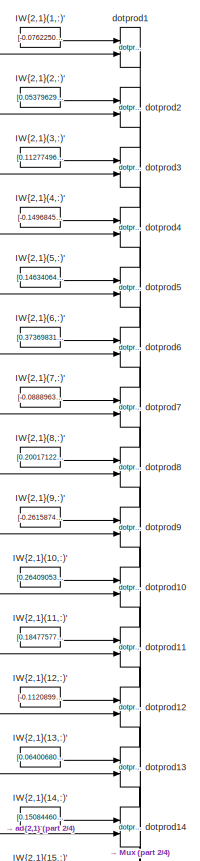
[diagram: Subsystem/Custom Neural Network6/Layer 2/LW{2,1} - part 1/4, top center region]
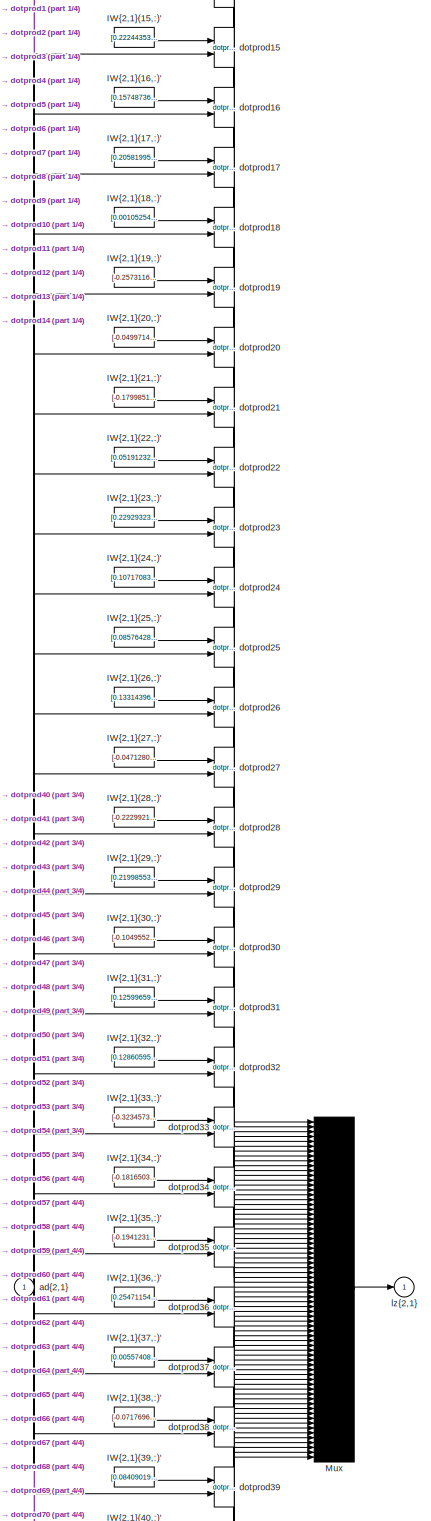
[diagram: Subsystem/Custom Neural Network6/Layer 2/LW{2,1} - part 2/4, full width, middle band]
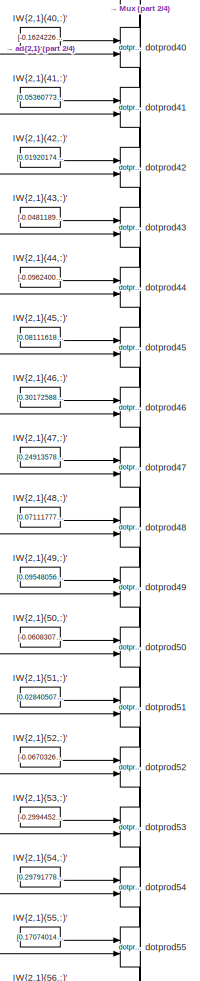
[diagram: Subsystem/Custom Neural Network6/Layer 2/LW{2,1} - part 3/4, bottom center region]
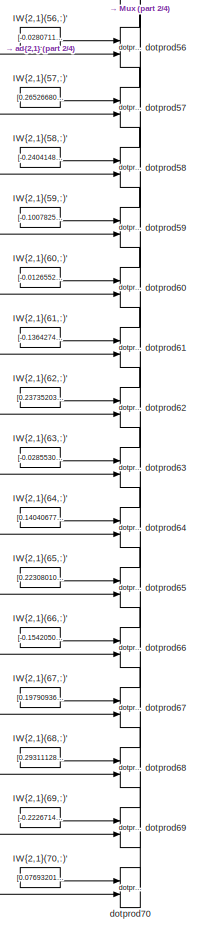
[diagram: Subsystem/Custom Neural Network6/Layer 2/LW{2,1} - part 4/4, bottom center region]
BLOCK [SubSystem] Subsystem/Custom Neural Network6/Layer 2/LW{2,1}
  Ports = [1, 1]
  RequestExecContextInheritance = off
BLOCK [Constant] Subsystem/Custom Neural Network6/Layer 2/LW{2,1}/IW{2,1}(1,:)'
  Value = [-0.07622501674910207858371080646975315175950527191162109375;0.07270033739659542693090088505414314568042755126953125;-0.2547532975613158168215477417106740176677703857421875;-0.11025240735996273688801494472500053234398365020751953125;-0.0269961757782702753416526064711433718912303447723388671875;-0.2413391004338888701230558808674686588346958160400390625;-0.1336047974752324896119404229466454125940799...<+3681ch>
BLOCK [Constant] Subsystem/Custom Neural Network6/Layer 2/LW{2,1}/IW{2,1}(10,:)'
  Value = [0.26409053351927236352736372282379306852817535400390625;-0.016672106728718584511828026961666182614862918853759765625;0.07412688348861297404912562569734291173517704010009765625;-0.318686282173199553202636025162064470350742340087890625;-0.1609243211238513826533136352736619301140308380126953125;-0.095378442833012833101946625902201049029827117919921875;-0.248440374679594205842292353736411314457654953...<+3657ch>
BLOCK [Constant] Subsystem/Custom Neural Network6/Layer 2/LW{2,1}/IW{2,1}(11,:)'
  Value = [0.1847757799393008326660492457449436187744140625;0.1807576925832293512907966714919894002377986907958984375;0.288696483558280314607458194586797617375850677490234375;-0.056616586281518437029358636891629430465400218963623046875;0.258356815715912180309032919467426836490631103515625;-0.1159969189620572438403911519344546832144260406494140625;-0.234395518997309426634245710374671034514904022216796875;0.0...<+3637ch>
BLOCK [Constant] Subsystem/Custom Neural Network6/Layer 2/LW{2,1}/IW{2,1}(12,:)'
  Value = [-0.1120899027949591175712384938378818333148956298828125;-0.08833000743506802532323263221769593656063079833984375;-0.2946451958326787856634609852335415780544281005859375;-0.037681598380833458694638693486922420561313629150390625;0.07609483756883085592281901199385174550116062164306640625;0.148171637127858080162923215539194643497467041015625;0.2132974297994909840259225575209711678326129913330078125;-...<+3669ch>
BLOCK [Constant] Subsystem/Custom Neural Network6/Layer 2/LW{2,1}/IW{2,1}(13,:)'
  Value = [0.06400680002362026110862558425651513971388339996337890625;0.261398172488549407344038399969576857984066009521484375;0.10665396927237502655572143339668400585651397705078125;0.08125429671793478469954408183184568770229816436767578125;-0.289141063484733285005034986170358024537563323974609375;0.30006571812247651021010597105487249791622161865234375;-0.090048972290757367531455201969947665929794311523437...<+3665ch>
BLOCK [Constant] Subsystem/Custom Neural Network6/Layer 2/LW{2,1}/IW{2,1}(14,:)'
  Value = [0.150844606886649523769250436089350841939449310302734375;0.07734188011129321249637058599546435289084911346435546875;0.267434889936136455101944875423214398324489593505859375;0.2315688455679212054416638011389295570552349090576171875;0.1413064823988588181169490098909591324627399444580078125;0.07031855255411063876369581748804193921387195587158203125;0.2146815363100742224400363511449540965259075164794...<+3664ch>
BLOCK [Constant] Subsystem/Custom Neural Network6/Layer 2/LW{2,1}/IW{2,1}(15,:)'
  Value = [0.22244353050717957653859002675744704902172088623046875;0.0433633837494992457894937842866056598722934722900390625;0.0249875120591603640252120754894349374808371067047119140625;0.035454272212979649758768374567807768471539020538330078125;-0.14038024588972397577180117878015153110027313232421875;0.1772373803790504853683529518093564547598361968994140625;-0.2980394872052371524340230735106160864233970642...<+3686ch>
BLOCK [Constant] Subsystem/Custom Neural Network6/Layer 2/LW{2,1}/IW{2,1}(16,:)'
  Value = [0.1574873665218321783232369170946185477077960968017578125;0.137957512031733842139402668180991895496845245361328125;-0.0325526573878472669232309044673456810414791107177734375;-0.158945944026441188245968305636779405176639556884765625;-0.209446311921690553337072060458012856543064117431640625;-0.20135761866806145548025597236119210720062255859375;0.27848438720155715975224097746831830590963363647460937...<+3662ch>
BLOCK [Constant] Subsystem/Custom Neural Network6/Layer 2/LW{2,1}/IW{2,1}(17,:)'
  Value = [0.2058199577539468749787232582093565724790096282958984375;-0.07780769232906614707445669409935362637042999267578125;-0.12838642192040927714202780407504178583621978759765625;0.06925703233279027759561330412907409481704235076904296875;0.06746152114174897018727961039985530078411102294921875;-0.10932043198252204552201050091753131709992885589599609375;-0.2261472627676684166164733369441819377243518829345...<+3664ch>
BLOCK [Constant] Subsystem/Custom Neural Network6/Layer 2/LW{2,1}/IW{2,1}(18,:)'
  Value = [0.0010525490928267535080398165092674389597959816455841064453125;0.2158769943627699972044098331025452353060245513916015625;0.1272191839456524309337481781767564825713634490966796875;0.01788870379843228441973934650377486832439899444580078125;-0.01608830841756404839149041663404204882681369781494140625;-0.174829898312261977633141896149027161300182342529296875;0.1429859669915996833733373705399571917951...<+3685ch>
BLOCK [Constant] Subsystem/Custom Neural Network6/Layer 2/LW{2,1}/IW{2,1}(19,:)'
  Value = [-0.25731167284066536193876117977197282016277313232421875;-0.277603039889141978147080180860939435660839080810546875;0.0653414025862970315738920135117950849235057830810546875;0.16085065616298399593375734184519387781620025634765625;-0.1420103083338418448189344189813709817826747894287109375;0.1505997541943159545585473324535996653139591217041015625;0.292608723336080678301129864848917350172996520996093...<+3653ch>
BLOCK [Constant] Subsystem/Custom Neural Network6/Layer 2/LW{2,1}/IW{2,1}(2,:)'
  Value = [0.053796295557358049521656795377566595561802387237548828125;-0.1679614155650348827908402427055989392101764678955078125;0.088080629554717237983396671552327461540699005126953125;-0.0610785610427223846219391134582110680639743804931640625;0.280066636138278146628266540574259124696254730224609375;0.10060088425237780074272819774705567397177219390869140625;0.1227479476094580218559215722962107975035905838...<+3676ch>
BLOCK [Constant] Subsystem/Custom Neural Network6/Layer 2/LW{2,1}/IW{2,1}(20,:)'
  Value = [-0.049971413648864072831745630764999077655375003814697265625;-0.1899159480481016071262700961597147397696971893310546875;0.034234259087601033588743604241244611330330371856689453125;0.0785876129858812666473255603705183602869510650634765625;0.2322160119378694764780135528781102038919925689697265625;0.1664154501685086440243566130448016338050365447998046875;0.1834667778436579743672751874328241683542728...<+3679ch>
BLOCK [Constant] Subsystem/Custom Neural Network6/Layer 2/LW{2,1}/IW{2,1}(21,:)'
  Value = [-0.179985193907586771278062087731086649000644683837890625;-0.07744999299424344674225295648284372873604297637939453125;-0.251002477012119584731664190258015878498554229736328125;0.002409933877607336148718442103699999279342591762542724609375;-0.0098557606928357487097169808976104832254350185394287109375;-0.0022276654081604990893794582262898984481580555438995361328125;-0.061551256418693030270095079004...<+3705ch>
BLOCK [Constant] Subsystem/Custom Neural Network6/Layer 2/LW{2,1}/IW{2,1}(22,:)'
  Value = [0.05191232422686738179340437682185438461601734161376953125;-0.27188431848021721304320408307830803096294403076171875;-0.2799560977930457550399978572386316955089569091796875;-0.045364940630572926638652830888531752862036228179931640625;-0.0149987652091502950135737393111412529833614826202392578125;0.09825455644251697429059078103819047100841999053955078125;0.1832392869664072332369642026606015861034393...<+3678ch>
BLOCK [Constant] Subsystem/Custom Neural Network6/Layer 2/LW{2,1}/IW{2,1}(23,:)'
  Value = [0.2292932367570370555398540091118775308132171630859375;0.1601192549950017640636446003554738126695156097412109375;-0.22069039214630048473253509655478410422801971435546875;0.2050976980984532682672494274811469949781894683837890625;0.1879925020074424413252245358307845890522003173828125;-0.031474279026767811029419164015052956528961658477783203125;-0.0056183498267868402925584447871187876444309949874877...<+3670ch>
BLOCK [Constant] Subsystem/Custom Neural Network6/Layer 2/LW{2,1}/IW{2,1}(24,:)'
  Value = [0.10717083141943591073630415166917373426258563995361328125;-0.058577198875691405266508127169799990952014923095703125;-0.098179261005988449628745229347259737551212310791015625;0.148635953608017568061683277846896089613437652587890625;-0.0030433167360097508787053488532592382398433983325958251953125;-0.1975585443003724794852615787021932192146778106689453125;-0.1061037157019528442969402703965897671878...<+3665ch>
BLOCK [Constant] Subsystem/Custom Neural Network6/Layer 2/LW{2,1}/IW{2,1}(25,:)'
  Value = [0.0857642897138729820571967366049648262560367584228515625;-0.01541600606883252073953105565351506811566650867462158203125;0.01941970029685380350059631382464431226253509521484375;0.0172214156563481358974687651652857312001287937164306640625;-0.204694397744687728302181994877173565328121185302734375;-0.1188308627279309470647916668895049951970577239990234375;-0.14689369911955355019195224031136604025959...<+3647ch>
BLOCK [Constant] Subsystem/Custom Neural Network6/Layer 2/LW{2,1}/IW{2,1}(26,:)'
  Value = [0.1331439669618766641345786183592281304299831390380859375;-0.0182047583633001795744288386913467547856271266937255859375;-0.25551026872781523735511655104346573352813720703125;-0.17569569658340922213568546794704161584377288818359375;0.14031478315778844745409514871425926685333251953125;0.227191614814499065477804151669261045753955841064453125;-0.2128871796361871682190525234545930288732051849365234375...<+3645ch>
BLOCK [Constant] Subsystem/Custom Neural Network6/Layer 2/LW{2,1}/IW{2,1}(27,:)'
  Value = [-0.047128047951388703229458343457736191339790821075439453125;0.1183151809417013755609815461866674013435840606689453125;-0.02509336577158353953631575450344826094806194305419921875;-0.2363211368500956754967745609974372200667858123779296875;-0.198953842936948899211557773014646954834461212158203125;0.1902208281608081807956267539339023642241954803466796875;-0.226794040350164288755152597332198638468980...<+3695ch>
BLOCK [Constant] Subsystem/Custom Neural Network6/Layer 2/LW{2,1}/IW{2,1}(28,:)'
  Value = [-0.222992198578086775473394709479180164635181427001953125;-0.2005663500246628039302976276303525082767009735107421875;0.1634201491064187494739456951720057986676692962646484375;-0.0337147469916691810976061560722882859408855438232421875;-0.0225037927391057886172820445835895952768623828887939453125;-0.095019682957747375606771811362705193459987640380859375;0.0105624285482978468031500796087129856459796...<+3681ch>
BLOCK [Constant] Subsystem/Custom Neural Network6/Layer 2/LW{2,1}/IW{2,1}(29,:)'
  Value = [0.2199855308257310237962656174204312264919281005859375;0.08566521859203261868298540093746851198375225067138671875;-0.00589295776043297601931580942391519783996045589447021484375;-0.03591704442424281662482599131180904805660247802734375;-0.0083187001421463069306128090829588472843170166015625;0.295355399571345600406857556663453578948974609375;-0.32255509957689298961014401356806047260761260986328125;-...<+3676ch>
BLOCK [Constant] Subsystem/Custom Neural Network6/Layer 2/LW{2,1}/IW{2,1}(3,:)'
  Value = [0.11277496370661188596073998269275762140750885009765625;0.290878108294737813821484451182186603546142578125;0.35686192043239406412880043717450462281703948974609375;-0.02159390848607432855654764125574729405343532562255859375;-0.274983038650772282363021759010734967887401580810546875;0.04652923337309854134868913888567476533353328704833984375;0.1772162792707852319029626642077346332371234893798828125;-...<+3648ch>
BLOCK [Constant] Subsystem/Custom Neural Network6/Layer 2/LW{2,1}/IW{2,1}(30,:)'
  Value = [-0.10495525066711020034659895827644504606723785400390625;0.09875185427258682813178580772728309966623783111572265625;0.215780605675306935697932431139633990824222564697265625;0.225201427778714380334434963515377603471279144287109375;-0.00047395110845784189923524110099606332369148731231689453125;0.1307181818109084681100995339875225909054279327392578125;-0.284530254001650773076903533365111798048019409...<+3663ch>
BLOCK [Constant] Subsystem/Custom Neural Network6/Layer 2/LW{2,1}/IW{2,1}(31,:)'
  Value = [0.125996593381695276558929208476911298930644989013671875;0.2496665466171398006789416967876604758203029632568359375;-0.0264266426866239349802167879488479229621589183807373046875;0.2323479550917688929434490319181350059807300567626953125;0.08019797651127795468095627029470051638782024383544921875;0.21349999948199738231124911180813796818256378173828125;0.21684916975647039460994847104302607476711273193...<+3653ch>
BLOCK [Constant] Subsystem/Custom Neural Network6/Layer 2/LW{2,1}/IW{2,1}(32,:)'
  Value = [0.1286059569442357941593257919521420262753963470458984375;-0.2438388243553358536441777459913282655179500579833984375;0.284766730563396297526423950330354273319244384765625;0.04960680573628357958870793709138524718582630157470703125;0.2389350113914293916028697140063741244375705718994140625;-0.211493631430095252454748333548195660114288330078125;0.046442405860939048323210442958952626213431358337402343...<+3645ch>
BLOCK [Constant] Subsystem/Custom Neural Network6/Layer 2/LW{2,1}/IW{2,1}(33,:)'
  Value = [-0.323457394218847837930042032894561998546123504638671875;0.2537896931721459470310264805448241531848907470703125;-0.25554622234311497042114069699891842901706695556640625;0.1933944250974325707037593247150653041899204254150390625;-0.279392500083947836753139881693641655147075653076171875;-0.1572973991712000307874319560141884721815586090087890625;-0.053910167470301764702789171224139863625168800354003...<+3662ch>
BLOCK [Constant] Subsystem/Custom Neural Network6/Layer 2/LW{2,1}/IW{2,1}(34,:)'
  Value = [-0.181650306746023060266992388278595171868801116943359375;-0.27967319928327416533875293680466711521148681640625;0.1988670544941078255352095993657712824642658233642578125;-0.17943097666354990149528703113901428878307342529296875;0.296468517130051567587400995762436650693416595458984375;-0.06776147989974505569943374894137377850711345672607421875;0.13263783247735622117247089590819086879491806030273437...<+3680ch>
BLOCK [Constant] Subsystem/Custom Neural Network6/Layer 2/LW{2,1}/IW{2,1}(35,:)'
  Value = [-0.19412315323668372091248102151439525187015533447265625;-0.202942771742086247588332525992882438004016876220703125;0.05196523018044522934655304879925097338855266571044921875;0.143283182465291314411359735458972863852977752685546875;-0.1883663137192863323843283751557464711368083953857421875;0.24802762064547956288862451401655562222003936767578125;-0.29446614193814413251715222941129468381404876708984...<+3688ch>
BLOCK [Constant] Subsystem/Custom Neural Network6/Layer 2/LW{2,1}/IW{2,1}(36,:)'
  Value = [0.25471154964977860135633136451360769569873809814453125;0.01367306458358750163861738968762438162229955196380615234375;-0.050390818662547680328867016896765562705695629119873046875;0.10148659623311583055649265361353172920644283294677734375;-0.0855624455835538311188059878986678086221218109130859375;0.098345542695921939202463590845582075417041778564453125;0.0313959202420119806720144595146848587319254...<+3655ch>
BLOCK [Constant] Subsystem/Custom Neural Network6/Layer 2/LW{2,1}/IW{2,1}(37,:)'
  Value = [0.005574088925233905596201555709967578877694904804229736328125;-0.2095133874506962812223065384387155063450336456298828125;-0.197102932799619046111416764688328839838504791259765625;0.1689904859771757805741998481607879512012004852294921875;0.28679166064525463131218430135049857199192047119140625;-0.1743826878731804808086991442905855365097522735595703125;0.00191679654855802790273944236076886227237991...<+3693ch>
BLOCK [Constant] Subsystem/Custom Neural Network6/Layer 2/LW{2,1}/IW{2,1}(38,:)'
  Value = [-0.0717696355435903099451167008737684227526187896728515625;-0.149342967965888029358012545344536192715167999267578125;-0.004500480554158134589848305751047519152052700519561767578125;0.1790048222609068873101278995818574912846088409423828125;-0.010953586512208624004216517278109677135944366455078125;-0.03254257549571602792237712264977744780480861663818359375;-0.264179549365155974527397120255045592784...<+3676ch>
BLOCK [Constant] Subsystem/Custom Neural Network6/Layer 2/LW{2,1}/IW{2,1}(39,:)'
  Value = [0.0840901987440228204651049281892483122646808624267578125;0.213451106324867689867375020185136236250400543212890625;-0.2299014430247361129300287529986235313117504119873046875;0.08878184252322281200253684119161334820091724395751953125;-0.1840097924108087534822431052816682495176792144775390625;-0.191419643632031510893654058236279524862766265869140625;0.28361592135698843186730755405733361840248107910...<+3687ch>
BLOCK [Constant] Subsystem/Custom Neural Network6/Layer 2/LW{2,1}/IW{2,1}(4,:)'
  Value = [-0.149684539774478320151018806427600793540477752685546875;0.1223897653066124691090266196624725125730037689208984375;0.09698302987618399872982166698420769535005092620849609375;0.02518389852351234081684339116691262461245059967041015625;-0.251257230306586143431246682666824199259281158447265625;-0.2809870571610695311193239831482060253620147705078125;0.1289714272882694634514422205029404722154140472412...<+3654ch>
BLOCK [Constant] Subsystem/Custom Neural Network6/Layer 2/LW{2,1}/IW{2,1}(40,:)'
  Value = [-0.1624226554730439087137483511469326913356781005859375;0.13255959287796492684918803206528536975383758544921875;0.3174223650533196661172041785903275012969970703125;-0.26488237066491393534306553192436695098876953125;0.284018050275060274234562029960216023027896881103515625;0.0957430390059672564717629938968457281589508056640625;-0.28161750253306150337806457173428498208522796630859375;0.2891514671003...<+3651ch>
BLOCK [Constant] Subsystem/Custom Neural Network6/Layer 2/LW{2,1}/IW{2,1}(41,:)'
  Value = [0.053607736361287995630053870854681008495390415191650390625;-0.063519544170066666310958680696785449981689453125;-0.06439858134408461831643677442116313613951206207275390625;0.12942968032627544250345863474649377167224884033203125;0.284575440024099790559120037869433872401714324951171875;0.01141291416449159192014750630050912150181829929351806640625;0.10781622382891491163103836470327223651111125946044...<+3674ch>
BLOCK [Constant] Subsystem/Custom Neural Network6/Layer 2/LW{2,1}/IW{2,1}(42,:)'
  Value = [0.019201746379526429819861732539720833301544189453125;-0.319472525133907059302629249941674061119556427001953125;-0.06587751003280993555843991771325818262994289398193359375;-0.06826089289364585532826623648361419327557086944580078125;-0.1349962054567985791919682014849968254566192626953125;0.1679851746981022853066889410911244340240955352783203125;-0.07173579408474944907325721032975707203149795532226...<+3658ch>
BLOCK [Constant] Subsystem/Custom Neural Network6/Layer 2/LW{2,1}/IW{2,1}(43,:)'
  Value = [-0.048118996490209543781535472817267873324453830718994140625;0.302032000213152851397779841136070899665355682373046875;-0.271582217868370945357270329623133875429630279541015625;-0.1687824564259221837847491087813978083431720733642578125;0.10772225088638255618977979111150489188730716705322265625;-0.2155123737108423365160803086837404407560825347900390625;-0.0907438485083249812834793601723504252731800...<+3676ch>
BLOCK [Constant] Subsystem/Custom Neural Network6/Layer 2/LW{2,1}/IW{2,1}(44,:)'
  Value = [-0.09624007804155888801123097664458327926695346832275390625;0.11056627372439098433432036472368054091930389404296875;0.061559183869156652857412836965522728860378265380859375;0.1247813487278719712936236874156747944653034210205078125;-0.1973953211617240077746515680701122619211673736572265625;0.1904164422459649619323585056918091140687465667724609375;-0.146994960050618156399693248204130213707685470581...<+3655ch>
BLOCK [Constant] Subsystem/Custom Neural Network6/Layer 2/LW{2,1}/IW{2,1}(45,:)'
  Value = [0.08111618754640369244324205055818310938775539398193359375;-0.0254948114757424550147479891393231810070574283599853515625;-0.05723527157029738299254262301474227569997310638427734375;-0.021544408924275997019304185187138500623404979705810546875;-0.06252780490223219800327569828368723392486572265625;-0.281761068419150439989806500307167880237102508544921875;-0.147012351319155909479263755201827734708786...<+3685ch>
BLOCK [Constant] Subsystem/Custom Neural Network6/Layer 2/LW{2,1}/IW{2,1}(46,:)'
  Value = [0.301725880314803684978386399961891584098339080810546875;0.191546028119557565361219531041570007801055908203125;-0.141773933708094157513102118173264898359775543212890625;0.1306274405346477818223860367652378045022487640380859375;0.029442719700869146581823088126839138567447662353515625;-0.1694116398485219499026044331912999041378498077392578125;-0.13685959213294646152903055735805537551641464233398437...<+3676ch>
BLOCK [Constant] Subsystem/Custom Neural Network6/Layer 2/LW{2,1}/IW{2,1}(47,:)'
  Value = [0.2491357884419316548463285698744584806263446807861328125;0.267530561040710435083411766754579730331897735595703125;0.249189566259380546053847638177103362977504730224609375;0.303697813829710450139742761166417039930820465087890625;-0.1840111068849074327236081671799183823168277740478515625;-0.313360062434525687979913755043526180088520050048828125;-0.16733122692740409753753283439436927437782287597656...<+3679ch>
BLOCK [Constant] Subsystem/Custom Neural Network6/Layer 2/LW{2,1}/IW{2,1}(48,:)'
  Value = [0.071117779492602506419274277504882775247097015380859375;-0.169030802952588155019242321941419504582881927490234375;-0.344773541561306962055510894060716964304447174072265625;0.2427956525776208407396694610724807716906070709228515625;0.2645565798534679213815934417652897536754608154296875;0.1333450183187002979767754595741280354559421539306640625;-0.1315596770614539667842990411372738890349864959716796...<+3643ch>
BLOCK [Constant] Subsystem/Custom Neural Network6/Layer 2/LW{2,1}/IW{2,1}(49,:)'
  Value = [0.09548056193579269879112558783162967301905155181884765625;0.06901228648104973384391769286594353616237640380859375;0.2221878881544752937227116262874915264546871185302734375;-0.166413532684178855358680948484106920659542083740234375;-0.0289164810428042019785355165595319704152643680572509765625;-0.03670182915109097832040419007171294651925563812255859375;0.17231517255235068164509470989287365227937698...<+3667ch>
BLOCK [Constant] Subsystem/Custom Neural Network6/Layer 2/LW{2,1}/IW{2,1}(5,:)'
  Value = [0.1463406466019578633375175513720023445785045623779296875;0.07807287051797288934817942163135739974677562713623046875;0.0267984188787160938771680918080164701677858829498291015625;0.267569636914092356949623763284762389957904815673828125;0.2201600320812222566502214249339886009693145751953125;0.2313206504470467217426943307145847938954830169677734375;0.1825668541693573898587743542520911432802677154541...<+3665ch>
BLOCK [Constant] Subsystem/Custom Neural Network6/Layer 2/LW{2,1}/IW{2,1}(50,:)'
  Value = [-0.06083072931249834669475973214503028430044651031494140625;0.269348933981729043996011796480161137878894805908203125;0.19760787873436369554980274187983013689517974853515625;0.274208347925230133679264099555439315736293792724609375;-0.007517334962412282328703128086999640800058841705322265625;-0.07277432916427910292167524630713160149753093719482421875;-0.158771555401710368071732659700501244515180587...<+3687ch>
BLOCK [Constant] Subsystem/Custom Neural Network6/Layer 2/LW{2,1}/IW{2,1}(51,:)'
  Value = [0.028405074354803792890944436067002243362367153167724609375;-0.135832416380898823859979529515840113162994384765625;0.042074791275083088526454133670995361171662807464599609375;0.283856811166862288420276172473677434027194976806640625;-0.2538984181078520752095073476084508001804351806640625;0.2065833229219585509550682900226092897355556488037109375;0.007097114539406938239773925403142129653133451938629...<+3665ch>
BLOCK [Constant] Subsystem/Custom Neural Network6/Layer 2/LW{2,1}/IW{2,1}(52,:)'
  Value = [-0.0670326068752261361449740206808201037347316741943359375;-0.08061297596430160028457834187065600417554378509521484375;0.06502569911646290112816615192059543915092945098876953125;-0.0286461529914595336432370231705135665833950042724609375;-0.1343637473186410080661090660214540548622608184814453125;-0.274024716496247100483429903761134482920169830322265625;0.0672560978486007599030926940031349658966064...<+3668ch>
BLOCK [Constant] Subsystem/Custom Neural Network6/Layer 2/LW{2,1}/IW{2,1}(53,:)'
  Value = [-0.2994452575716248787784934393130242824554443359375;0.283435371101169064633751304427278228104114532470703125;-0.11779675880451524749847891371246078051626682281494140625;0.2084639849161838698332616104380576871335506439208984375;0.18721022604248782617020196994417347013950347900390625;0.0441738959472158521091245120260282419621944427490234375;-0.160029758039460789920127581353881396353244781494140625...<+3637ch>
BLOCK [Constant] Subsystem/Custom Neural Network6/Layer 2/LW{2,1}/IW{2,1}(54,:)'
  Value = [0.2979177883287256189959180119330994784832000732421875;0.04328183711362924845911237525797332637012004852294921875;-0.2783367033507044840945354735595174133777618408203125;-0.03841620714010428316864675934994011186063289642333984375;0.05927045700252368820581949648840236477553844451904296875;-0.1532383189975768666979405452366336248815059661865234375;0.2569466605113861490394810971338301897048950195312...<+3646ch>
BLOCK [Constant] Subsystem/Custom Neural Network6/Layer 2/LW{2,1}/IW{2,1}(55,:)'
  Value = [0.17074014097446565951798902460723184049129486083984375;0.077027678465213800240718455825117416679859161376953125;0.0927852653204498112327058834125637076795101165771484375;0.0203780892193716166305161863192552118562161922454833984375;-0.12228312721983412847404082413049763999879360198974609375;-0.11227367168452244416965157824961352162063121795654296875;-0.25785115568622890558359017632028553634881973...<+3642ch>
BLOCK [Constant] Subsystem/Custom Neural Network6/Layer 2/LW{2,1}/IW{2,1}(56,:)'
  Value = [-0.0280711818769330996581334858319678460247814655303955078125;0.1800900215461554709772684645940898917615413665771484375;-0.2075109654948827098142061231555999256670475006103515625;0.1183658791064325643827004341801512055099010467529296875;-0.1939931165869302198689894112249021418392658233642578125;-0.059637287251797115039675389880358125083148479461669921875;0.0208633890860082174545375721663731383159...<+3654ch>
BLOCK [Constant] Subsystem/Custom Neural Network6/Layer 2/LW{2,1}/IW{2,1}(57,:)'
  Value = [0.265266808278245225238833882031030952930450439453125;0.2281479205438840252018195542405010201036930084228515625;0.341150051125800934936904695859993807971477508544921875;-0.000119498230705859039176008895566383216646499931812286376953125;-0.060228955463537618697511533127908478491008281707763671875;0.2252648035425201811232653881234000436961650848388671875;-0.26501043826040515671849107093294151127338...<+3687ch>
BLOCK [Constant] Subsystem/Custom Neural Network6/Layer 2/LW{2,1}/IW{2,1}(58,:)'
  Value = [-0.2404148403816008527922321036385255865752696990966796875;-0.031897336132907072592246322528808377683162689208984375;-0.2116420206614619548002309556977706961333751678466796875;-0.246542351930414127547663838413427583873271942138671875;-0.10485364667352758960561232015606947243213653564453125;-0.07270959443840839531159048192421323619782924652099609375;-0.006807940628814982894634333376870927168056368...<+3669ch>
BLOCK [Constant] Subsystem/Custom Neural Network6/Layer 2/LW{2,1}/IW{2,1}(59,:)'
  Value = [-0.1007825498929431906613984892828739248216152191162109375;-0.0296220091463361874517534744200020213611423969268798828125;0.09861632439077756828726961657594074495136737823486328125;-0.1652327990745314501008778051982517354190349578857421875;0.297241546994322425323531433605239726603031158447265625;-0.114821937427604214843057661710190586745738983154296875;-0.081432019698597729595590521967096719890832...<+3705ch>
BLOCK [Constant] Subsystem/Custom Neural Network6/Layer 2/LW{2,1}/IW{2,1}(6,:)'
  Value = [0.3736983171238963397087218254455365240573883056640625;-0.032974988911078362274764685935224406421184539794921875;0.1491285238095050591500267955780145712196826934814453125;0.263995304517790574383440116434940136969089508056640625;0.21736009246305687536704454032587818801403045654296875;0.303827917779341538651038945317850448191165924072265625;0.235020464934790285216337224483140744268894195556640625;-...<+3635ch>
BLOCK [Constant] Subsystem/Custom Neural Network6/Layer 2/LW{2,1}/IW{2,1}(60,:)'
  Value = [-0.01265528919119329742670743144117295742034912109375;-0.01386488968312716250907978832174194394610822200775146484375;-0.1963754047638962829669395659948349930346012115478515625;0.086548732611729628505514710923307575285434722900390625;0.2349668859297201761737738934243679977953433990478515625;0.1259085455751087490039452632117900066077709197998046875;-0.19678777793405222151790212592459283769130706787...<+3687ch>
BLOCK [Constant] Subsystem/Custom Neural Network6/Layer 2/LW{2,1}/IW{2,1}(61,:)'
  Value = [-0.1364274449450714465914558104486786760389804840087890625;-0.07054293653216052450982687105351942591369152069091796875;-0.10774011374963927967218779713221010752022266387939453125;-0.2114913830656825199927340008798637427389621734619140625;-0.1776125985606371859848451322250184603035449981689453125;0.033416789344882145973425480178775615058839321136474609375;-0.149179165084316694978028294826799537986...<+3669ch>
BLOCK [Constant] Subsystem/Custom Neural Network6/Layer 2/LW{2,1}/IW{2,1}(62,:)'
  Value = [0.237352032538778956460845392939518205821514129638671875;0.2100778704573716126891014255306799896061420440673828125;0.034827782438030883971347151373265660367906093597412109375;0.2091123806714616506496895453892648220062255859375;-0.253583222893906057304747037051129154860973358154296875;-0.218924763918780185267820570516050793230533599853515625;0.044047623053655608760248441058138268999755382537841796...<+3697ch>
BLOCK [Constant] Subsystem/Custom Neural Network6/Layer 2/LW{2,1}/IW{2,1}(63,:)'
  Value = [-0.028553083918619291681206817656857310794293880462646484375;-0.09742861598927406163728193178030778653919696807861328125;-0.10558518570992046770040673209223314188420772552490234375;-0.05257702571654043754989515946363098919391632080078125;-0.040672019947823830066102601676902850158512592315673828125;0.16079265220380734024985258656670339405536651611328125;-0.26879444653738682191601583326701074838638...<+3672ch>
BLOCK [Constant] Subsystem/Custom Neural Network6/Layer 2/LW{2,1}/IW{2,1}(64,:)'
  Value = [0.140406778463241455057186612975783646106719970703125;-0.034892153723897416373045388127138721756637096405029296875;-0.243758227039533703628393368489923886954784393310546875;0.270574528394339430814596880736644379794597625732421875;-0.218881553880693469071871959386044181883335113525390625;-0.058849042804161512398852806882132426835596561431884765625;-0.17304513413378055930458288003137568011879920959...<+3683ch>
BLOCK [Constant] Subsystem/Custom Neural Network6/Layer 2/LW{2,1}/IW{2,1}(65,:)'
  Value = [0.223080102222478149354145671168225817382335662841796875;0.0018809269113555216433597561120905083953402936458587646484375;0.150029960649394167315762160797021351754665374755859375;0.0640802519850283414104552548451465554535388946533203125;0.1760164218170684191644426164202741347253322601318359375;0.1491413228923378631041174458005116321146488189697265625;0.194139122188799695400973632786190137267112731...<+3683ch>
BLOCK [Constant] Subsystem/Custom Neural Network6/Layer 2/LW{2,1}/IW{2,1}(66,:)'
  Value = [-0.1542050044182892987176813903715810738503932952880859375;-0.09048413136508594301066210618955665268003940582275390625;0.202159830737734302896768667778815142810344696044921875;0.0774964056643077103814221118227578699588775634765625;-0.201290141118756482629947868190356530249118804931640625;-0.1975365590103085600137688970789895392954349517822265625;0.1315346675296310829939017139622592367231845855712...<+3655ch>
BLOCK [Constant] Subsystem/Custom Neural Network6/Layer 2/LW{2,1}/IW{2,1}(67,:)'
  Value = [0.19790936241603496181795662778313271701335906982421875;0.32590996979724551341206506549497134983539581298828125;-0.16501467093305610678299899518606252968311309814453125;0.248333474027600809019844518843456171452999114990234375;-0.18129382419329032050114847152144648134708404541015625;0.11044617533253932306624989223564625717699527740478515625;0.1764242454430902384832080542764742858707904815673828125...<+3648ch>
BLOCK [Constant] Subsystem/Custom Neural Network6/Layer 2/LW{2,1}/IW{2,1}(68,:)'
  Value = [0.2931112807823073040935923927463591098785400390625;0.115630431460174099012050419332808814942836761474609375;0.1326690132033216951157328367116861045360565185546875;0.2661778443405804495114352903328835964202880859375;0.1293059869812005491240824994747526943683624267578125;-0.258250691330922654831425688826129771769046783447265625;-0.11498326538674068231227209935241262428462505340576171875;0.10696852...<+3652ch>
BLOCK [Constant] Subsystem/Custom Neural Network6/Layer 2/LW{2,1}/IW{2,1}(69,:)'
  Value = [-0.2226714706483006456227968783423420973122119903564453125;-0.2051035310528472599411742294250871054828166961669921875;-0.02835303502402468367460386389211635105311870574951171875;0.034551214121019226122033529691179865039885044097900390625;0.1843052243363077769000568650881177745759487152099609375;0.1792622585135388024735192402658867649734020233154296875;0.1444718419688713062498663930455222725868225...<+3699ch>
BLOCK [Constant] Subsystem/Custom Neural Network6/Layer 2/LW{2,1}/IW{2,1}(7,:)'
  Value = [-0.0888963641067370968773531103579443879425525665283203125;0.2214244159523438837400277634515077807009220123291015625;0.137515790852942354494103938122862018644809722900390625;0.19627106781618841591097179843927733600139617919921875;-0.0627627087258543492342965919306152500212192535400390625;-0.242846864520705640888564857959863729774951934814453125;-0.1038360910252455471258770103304414078593254089355...<+3655ch>
BLOCK [Constant] Subsystem/Custom Neural Network6/Layer 2/LW{2,1}/IW{2,1}(70,:)'
  Value = [0.076932017559054710620358719097566790878772735595703125;-0.166183618267189803230365896524745039641857147216796875;-0.005951476289529723795457272217390709556639194488525390625;0.208057835843578897705441477228305302560329437255859375;0.12936468577575321869943536512437276542186737060546875;-0.297856008773613234463795151896192692220211029052734375;-0.1592320762921344279305913005373440682888031005859...<+3695ch>
BLOCK [Constant] Subsystem/Custom Neural Network6/Layer 2/LW{2,1}/IW{2,1}(8,:)'
  Value = [0.2001712239419724814748491326099610887467861175537109375;0.25619181112268074596016731447889469563961029052734375;-0.274032843129377645663424800659413449466228485107421875;-0.15120952882855187571209398811333812773227691650390625;-0.09580675051422105070741963572800159454345703125;-0.07370361163488399480758772597255301661789417266845703125;-0.00341018439599772953119138918509634095244109630584716796...<+3672ch>
BLOCK [Constant] Subsystem/Custom Neural Network6/Layer 2/LW{2,1}/IW{2,1}(9,:)'
  Value = [-0.26158742439647131305946459178812801837921142578125;0.28326067441138846891846014841576106846332550048828125;-0.252061465185026534197021419458906166255474090576171875;0.27737868855527081368705921704531647264957427978515625;-0.165116679925855269761569843467441387474536895751953125;0.06521267866861986395310424313720432110130786895751953125;0.1087134229636025073428839959888136945664882659912109375;...<+3667ch>
BLOCK [Mux] Subsystem/Custom Neural Network6/Layer 2/LW{2,1}/Mux
  Inputs = 70
  Ports = [70, 1]
BLOCK [Inport] Subsystem/Custom Neural Network6/Layer 2/LW{2,1}/ad{2,1}
  PortDimensions = 70
BLOCK [Reference] Subsystem/Custom Neural Network6/Layer 2/LW{2,1}/dotprod1  REF=neural/Weight Functions/dotprod
  Ports = [2, 1]
  SourceBlock = neural/Weight Functions/dotprod
  SourceProductBaseCode = NN
  SourceType = DOTPROD
BLOCK [Reference] Subsystem/Custom Neural Network6/Layer 2/LW{2,1}/dotprod10  REF=neural/Weight Functions/dotprod
  Ports = [2, 1]
  SourceBlock = neural/Weight Functions/dotprod
  SourceProductBaseCode = NN
  SourceType = DOTPROD
BLOCK [Reference] Subsystem/Custom Neural Network6/Layer 2/LW{2,1}/dotprod11  REF=neural/Weight Functions/dotprod
  Ports = [2, 1]
  SourceBlock = neural/Weight Functions/dotprod
  SourceProductBaseCode = NN
  SourceType = DOTPROD
BLOCK [Reference] Subsystem/Custom Neural Network6/Layer 2/LW{2,1}/dotprod12  REF=neural/Weight Functions/dotprod
  Ports = [2, 1]
  SourceBlock = neural/Weight Functions/dotprod
  SourceProductBaseCode = NN
  SourceType = DOTPROD
BLOCK [Reference] Subsystem/Custom Neural Network6/Layer 2/LW{2,1}/dotprod13  REF=neural/Weight Functions/dotprod
  Ports = [2, 1]
  SourceBlock = neural/Weight Functions/dotprod
  SourceProductBaseCode = NN
  SourceType = DOTPROD
BLOCK [Reference] Subsystem/Custom Neural Network6/Layer 2/LW{2,1}/dotprod14  REF=neural/Weight Functions/dotprod
  Ports = [2, 1]
  SourceBlock = neural/Weight Functions/dotprod
  SourceProductBaseCode = NN
  SourceType = DOTPROD
BLOCK [Reference] Subsystem/Custom Neural Network6/Layer 2/LW{2,1}/dotprod15  REF=neural/Weight Functions/dotprod
  Ports = [2, 1]
  SourceBlock = neural/Weight Functions/dotprod
  SourceProductBaseCode = NN
  SourceType = DOTPROD
BLOCK [Reference] Subsystem/Custom Neural Network6/Layer 2/LW{2,1}/dotprod16  REF=neural/Weight Functions/dotprod
  Ports = [2, 1]
  SourceBlock = neural/Weight Functions/dotprod
  SourceProductBaseCode = NN
  SourceType = DOTPROD
BLOCK [Reference] Subsystem/Custom Neural Network6/Layer 2/LW{2,1}/dotprod17  REF=neural/Weight Functions/dotprod
  Ports = [2, 1]
  SourceBlock = neural/Weight Functions/dotprod
  SourceProductBaseCode = NN
  SourceType = DOTPROD
BLOCK [Reference] Subsystem/Custom Neural Network6/Layer 2/LW{2,1}/dotprod18  REF=neural/Weight Functions/dotprod
  Ports = [2, 1]
  SourceBlock = neural/Weight Functions/dotprod
  SourceProductBaseCode = NN
  SourceType = DOTPROD
BLOCK [Reference] Subsystem/Custom Neural Network6/Layer 2/LW{2,1}/dotprod19  REF=neural/Weight Functions/dotprod
  Ports = [2, 1]
  SourceBlock = neural/Weight Functions/dotprod
  SourceProductBaseCode = NN
  SourceType = DOTPROD
BLOCK [Reference] Subsystem/Custom Neural Network6/Layer 2/LW{2,1}/dotprod2  REF=neural/Weight Functions/dotprod
  Ports = [2, 1]
  SourceBlock = neural/Weight Functions/dotprod
  SourceProductBaseCode = NN
  SourceType = DOTPROD
BLOCK [Reference] Subsystem/Custom Neural Network6/Layer 2/LW{2,1}/dotprod20  REF=neural/Weight Functions/dotprod
  Ports = [2, 1]
  SourceBlock = neural/Weight Functions/dotprod
  SourceProductBaseCode = NN
  SourceType = DOTPROD
BLOCK [Reference] Subsystem/Custom Neural Network6/Layer 2/LW{2,1}/dotprod21  REF=neural/Weight Functions/dotprod
  Ports = [2, 1]
  SourceBlock = neural/Weight Functions/dotprod
  SourceProductBaseCode = NN
  SourceType = DOTPROD
BLOCK [Reference] Subsystem/Custom Neural Network6/Layer 2/LW{2,1}/dotprod22  REF=neural/Weight Functions/dotprod
  Ports = [2, 1]
  SourceBlock = neural/Weight Functions/dotprod
  SourceProductBaseCode = NN
  SourceType = DOTPROD
BLOCK [Reference] Subsystem/Custom Neural Network6/Layer 2/LW{2,1}/dotprod23  REF=neural/Weight Functions/dotprod
  Ports = [2, 1]
  SourceBlock = neural/Weight Functions/dotprod
  SourceProductBaseCode = NN
  SourceType = DOTPROD
BLOCK [Reference] Subsystem/Custom Neural Network6/Layer 2/LW{2,1}/dotprod24  REF=neural/Weight Functions/dotprod
  Ports = [2, 1]
  SourceBlock = neural/Weight Functions/dotprod
  SourceProductBaseCode = NN
  SourceType = DOTPROD
BLOCK [Reference] Subsystem/Custom Neural Network6/Layer 2/LW{2,1}/dotprod25  REF=neural/Weight Functions/dotprod
  Ports = [2, 1]
  SourceBlock = neural/Weight Functions/dotprod
  SourceProductBaseCode = NN
  SourceType = DOTPROD
BLOCK [Reference] Subsystem/Custom Neural Network6/Layer 2/LW{2,1}/dotprod26  REF=neural/Weight Functions/dotprod
  Ports = [2, 1]
  SourceBlock = neural/Weight Functions/dotprod
  SourceProductBaseCode = NN
  SourceType = DOTPROD
BLOCK [Reference] Subsystem/Custom Neural Network6/Layer 2/LW{2,1}/dotprod27  REF=neural/Weight Functions/dotprod
  Ports = [2, 1]
  SourceBlock = neural/Weight Functions/dotprod
  SourceProductBaseCode = NN
  SourceType = DOTPROD
BLOCK [Reference] Subsystem/Custom Neural Network6/Layer 2/LW{2,1}/dotprod28  REF=neural/Weight Functions/dotprod
  Ports = [2, 1]
  SourceBlock = neural/Weight Functions/dotprod
  SourceProductBaseCode = NN
  SourceType = DOTPROD
BLOCK [Reference] Subsystem/Custom Neural Network6/Layer 2/LW{2,1}/dotprod29  REF=neural/Weight Functions/dotprod
  Ports = [2, 1]
  SourceBlock = neural/Weight Functions/dotprod
  SourceProductBaseCode = NN
  SourceType = DOTPROD
BLOCK [Reference] Subsystem/Custom Neural Network6/Layer 2/LW{2,1}/dotprod3  REF=neural/Weight Functions/dotprod
  Ports = [2, 1]
  SourceBlock = neural/Weight Functions/dotprod
  SourceProductBaseCode = NN
  SourceType = DOTPROD
BLOCK [Reference] Subsystem/Custom Neural Network6/Layer 2/LW{2,1}/dotprod30  REF=neural/Weight Functions/dotprod
  Ports = [2, 1]
  SourceBlock = neural/Weight Functions/dotprod
  SourceProductBaseCode = NN
  SourceType = DOTPROD
BLOCK [Reference] Subsystem/Custom Neural Network6/Layer 2/LW{2,1}/dotprod31  REF=neural/Weight Functions/dotprod
  Ports = [2, 1]
  SourceBlock = neural/Weight Functions/dotprod
  SourceProductBaseCode = NN
  SourceType = DOTPROD
BLOCK [Reference] Subsystem/Custom Neural Network6/Layer 2/LW{2,1}/dotprod32  REF=neural/Weight Functions/dotprod
  Ports = [2, 1]
  SourceBlock = neural/Weight Functions/dotprod
  SourceProductBaseCode = NN
  SourceType = DOTPROD
BLOCK [Reference] Subsystem/Custom Neural Network6/Layer 2/LW{2,1}/dotprod33  REF=neural/Weight Functions/dotprod
  Ports = [2, 1]
  SourceBlock = neural/Weight Functions/dotprod
  SourceProductBaseCode = NN
  SourceType = DOTPROD
BLOCK [Reference] Subsystem/Custom Neural Network6/Layer 2/LW{2,1}/dotprod34  REF=neural/Weight Functions/dotprod
  Ports = [2, 1]
  SourceBlock = neural/Weight Functions/dotprod
  SourceProductBaseCode = NN
  SourceType = DOTPROD
BLOCK [Reference] Subsystem/Custom Neural Network6/Layer 2/LW{2,1}/dotprod35  REF=neural/Weight Functions/dotprod
  Ports = [2, 1]
  SourceBlock = neural/Weight Functions/dotprod
  SourceProductBaseCode = NN
  SourceType = DOTPROD
BLOCK [Reference] Subsystem/Custom Neural Network6/Layer 2/LW{2,1}/dotprod36  REF=neural/Weight Functions/dotprod
  Ports = [2, 1]
  SourceBlock = neural/Weight Functions/dotprod
  SourceProductBaseCode = NN
  SourceType = DOTPROD
BLOCK [Reference] Subsystem/Custom Neural Network6/Layer 2/LW{2,1}/dotprod37  REF=neural/Weight Functions/dotprod
  Ports = [2, 1]
  SourceBlock = neural/Weight Functions/dotprod
  SourceProductBaseCode = NN
  SourceType = DOTPROD
BLOCK [Reference] Subsystem/Custom Neural Network6/Layer 2/LW{2,1}/dotprod38  REF=neural/Weight Functions/dotprod
  Ports = [2, 1]
  SourceBlock = neural/Weight Functions/dotprod
  SourceProductBaseCode = NN
  SourceType = DOTPROD
BLOCK [Reference] Subsystem/Custom Neural Network6/Layer 2/LW{2,1}/dotprod39  REF=neural/Weight Functions/dotprod
  Ports = [2, 1]
  SourceBlock = neural/Weight Functions/dotprod
  SourceProductBaseCode = NN
  SourceType = DOTPROD
BLOCK [Reference] Subsystem/Custom Neural Network6/Layer 2/LW{2,1}/dotprod4  REF=neural/Weight Functions/dotprod
  Ports = [2, 1]
  SourceBlock = neural/Weight Functions/dotprod
  SourceProductBaseCode = NN
  SourceType = DOTPROD
BLOCK [Reference] Subsystem/Custom Neural Network6/Layer 2/LW{2,1}/dotprod40  REF=neural/Weight Functions/dotprod
  Ports = [2, 1]
  SourceBlock = neural/Weight Functions/dotprod
  SourceProductBaseCode = NN
  SourceType = DOTPROD
BLOCK [Reference] Subsystem/Custom Neural Network6/Layer 2/LW{2,1}/dotprod41  REF=neural/Weight Functions/dotprod
  Ports = [2, 1]
  SourceBlock = neural/Weight Functions/dotprod
  SourceProductBaseCode = NN
  SourceType = DOTPROD
BLOCK [Reference] Subsystem/Custom Neural Network6/Layer 2/LW{2,1}/dotprod42  REF=neural/Weight Functions/dotprod
  Ports = [2, 1]
  SourceBlock = neural/Weight Functions/dotprod
  SourceProductBaseCode = NN
  SourceType = DOTPROD
BLOCK [Reference] Subsystem/Custom Neural Network6/Layer 2/LW{2,1}/dotprod43  REF=neural/Weight Functions/dotprod
  Ports = [2, 1]
  SourceBlock = neural/Weight Functions/dotprod
  SourceProductBaseCode = NN
  SourceType = DOTPROD
BLOCK [Reference] Subsystem/Custom Neural Network6/Layer 2/LW{2,1}/dotprod44  REF=neural/Weight Functions/dotprod
  Ports = [2, 1]
  SourceBlock = neural/Weight Functions/dotprod
  SourceProductBaseCode = NN
  SourceType = DOTPROD
BLOCK [Reference] Subsystem/Custom Neural Network6/Layer 2/LW{2,1}/dotprod45  REF=neural/Weight Functions/dotprod
  Ports = [2, 1]
  SourceBlock = neural/Weight Functions/dotprod
  SourceProductBaseCode = NN
  SourceType = DOTPROD
BLOCK [Reference] Subsystem/Custom Neural Network6/Layer 2/LW{2,1}/dotprod46  REF=neural/Weight Functions/dotprod
  Ports = [2, 1]
  SourceBlock = neural/Weight Functions/dotprod
  SourceProductBaseCode = NN
  SourceType = DOTPROD
BLOCK [Reference] Subsystem/Custom Neural Network6/Layer 2/LW{2,1}/dotprod47  REF=neural/Weight Functions/dotprod
  Ports = [2, 1]
  SourceBlock = neural/Weight Functions/dotprod
  SourceProductBaseCode = NN
  SourceType = DOTPROD
BLOCK [Reference] Subsystem/Custom Neural Network6/Layer 2/LW{2,1}/dotprod48  REF=neural/Weight Functions/dotprod
  Ports = [2, 1]
  SourceBlock = neural/Weight Functions/dotprod
  SourceProductBaseCode = NN
  SourceType = DOTPROD
BLOCK [Reference] Subsystem/Custom Neural Network6/Layer 2/LW{2,1}/dotprod49  REF=neural/Weight Functions/dotprod
  Ports = [2, 1]
  SourceBlock = neural/Weight Functions/dotprod
  SourceProductBaseCode = NN
  SourceType = DOTPROD
BLOCK [Reference] Subsystem/Custom Neural Network6/Layer 2/LW{2,1}/dotprod5  REF=neural/Weight Functions/dotprod
  Ports = [2, 1]
  SourceBlock = neural/Weight Functions/dotprod
  SourceProductBaseCode = NN
  SourceType = DOTPROD
BLOCK [Reference] Subsystem/Custom Neural Network6/Layer 2/LW{2,1}/dotprod50  REF=neural/Weight Functions/dotprod
  Ports = [2, 1]
  SourceBlock = neural/Weight Functions/dotprod
  SourceProductBaseCode = NN
  SourceType = DOTPROD
BLOCK [Reference] Subsystem/Custom Neural Network6/Layer 2/LW{2,1}/dotprod51  REF=neural/Weight Functions/dotprod
  Ports = [2, 1]
  SourceBlock = neural/Weight Functions/dotprod
  SourceProductBaseCode = NN
  SourceType = DOTPROD
BLOCK [Reference] Subsystem/Custom Neural Network6/Layer 2/LW{2,1}/dotprod52  REF=neural/Weight Functions/dotprod
  Ports = [2, 1]
  SourceBlock = neural/Weight Functions/dotprod
  SourceProductBaseCode = NN
  SourceType = DOTPROD
BLOCK [Reference] Subsystem/Custom Neural Network6/Layer 2/LW{2,1}/dotprod53  REF=neural/Weight Functions/dotprod
  Ports = [2, 1]
  SourceBlock = neural/Weight Functions/dotprod
  SourceProductBaseCode = NN
  SourceType = DOTPROD
BLOCK [Reference] Subsystem/Custom Neural Network6/Layer 2/LW{2,1}/dotprod54  REF=neural/Weight Functions/dotprod
  Ports = [2, 1]
  SourceBlock = neural/Weight Functions/dotprod
  SourceProductBaseCode = NN
  SourceType = DOTPROD
BLOCK [Reference] Subsystem/Custom Neural Network6/Layer 2/LW{2,1}/dotprod55  REF=neural/Weight Functions/dotprod
  Ports = [2, 1]
  SourceBlock = neural/Weight Functions/dotprod
  SourceProductBaseCode = NN
  SourceType = DOTPROD
BLOCK [Reference] Subsystem/Custom Neural Network6/Layer 2/LW{2,1}/dotprod56  REF=neural/Weight Functions/dotprod
  Ports = [2, 1]
  SourceBlock = neural/Weight Functions/dotprod
  SourceProductBaseCode = NN
  SourceType = DOTPROD
BLOCK [Reference] Subsystem/Custom Neural Network6/Layer 2/LW{2,1}/dotprod57  REF=neural/Weight Functions/dotprod
  Ports = [2, 1]
  SourceBlock = neural/Weight Functions/dotprod
  SourceProductBaseCode = NN
  SourceType = DOTPROD
BLOCK [Reference] Subsystem/Custom Neural Network6/Layer 2/LW{2,1}/dotprod58  REF=neural/Weight Functions/dotprod
  Ports = [2, 1]
  SourceBlock = neural/Weight Functions/dotprod
  SourceProductBaseCode = NN
  SourceType = DOTPROD
BLOCK [Reference] Subsystem/Custom Neural Network6/Layer 2/LW{2,1}/dotprod59  REF=neural/Weight Functions/dotprod
  Ports = [2, 1]
  SourceBlock = neural/Weight Functions/dotprod
  SourceProductBaseCode = NN
  SourceType = DOTPROD
BLOCK [Reference] Subsystem/Custom Neural Network6/Layer 2/LW{2,1}/dotprod6  REF=neural/Weight Functions/dotprod
  Ports = [2, 1]
  SourceBlock = neural/Weight Functions/dotprod
  SourceProductBaseCode = NN
  SourceType = DOTPROD
BLOCK [Reference] Subsystem/Custom Neural Network6/Layer 2/LW{2,1}/dotprod60  REF=neural/Weight Functions/dotprod
  Ports = [2, 1]
  SourceBlock = neural/Weight Functions/dotprod
  SourceProductBaseCode = NN
  SourceType = DOTPROD
BLOCK [Reference] Subsystem/Custom Neural Network6/Layer 2/LW{2,1}/dotprod61  REF=neural/Weight Functions/dotprod
  Ports = [2, 1]
  SourceBlock = neural/Weight Functions/dotprod
  SourceProductBaseCode = NN
  SourceType = DOTPROD
BLOCK [Reference] Subsystem/Custom Neural Network6/Layer 2/LW{2,1}/dotprod62  REF=neural/Weight Functions/dotprod
  Ports = [2, 1]
  SourceBlock = neural/Weight Functions/dotprod
  SourceProductBaseCode = NN
  SourceType = DOTPROD
BLOCK [Reference] Subsystem/Custom Neural Network6/Layer 2/LW{2,1}/dotprod63  REF=neural/Weight Functions/dotprod
  Ports = [2, 1]
  SourceBlock = neural/Weight Functions/dotprod
  SourceProductBaseCode = NN
  SourceType = DOTPROD
BLOCK [Reference] Subsystem/Custom Neural Network6/Layer 2/LW{2,1}/dotprod64  REF=neural/Weight Functions/dotprod
  Ports = [2, 1]
  SourceBlock = neural/Weight Functions/dotprod
  SourceProductBaseCode = NN
  SourceType = DOTPROD
BLOCK [Reference] Subsystem/Custom Neural Network6/Layer 2/LW{2,1}/dotprod65  REF=neural/Weight Functions/dotprod
  Ports = [2, 1]
  SourceBlock = neural/Weight Functions/dotprod
  SourceProductBaseCode = NN
  SourceType = DOTPROD
BLOCK [Reference] Subsystem/Custom Neural Network6/Layer 2/LW{2,1}/dotprod66  REF=neural/Weight Functions/dotprod
  Ports = [2, 1]
  SourceBlock = neural/Weight Functions/dotprod
  SourceProductBaseCode = NN
  SourceType = DOTPROD
BLOCK [Reference] Subsystem/Custom Neural Network6/Layer 2/LW{2,1}/dotprod67  REF=neural/Weight Functions/dotprod
  Ports = [2, 1]
  SourceBlock = neural/Weight Functions/dotprod
  SourceProductBaseCode = NN
  SourceType = DOTPROD
BLOCK [Reference] Subsystem/Custom Neural Network6/Layer 2/LW{2,1}/dotprod68  REF=neural/Weight Functions/dotprod
  Ports = [2, 1]
  SourceBlock = neural/Weight Functions/dotprod
  SourceProductBaseCode = NN
  SourceType = DOTPROD
BLOCK [Reference] Subsystem/Custom Neural Network6/Layer 2/LW{2,1}/dotprod69  REF=neural/Weight Functions/dotprod
  Ports = [2, 1]
  SourceBlock = neural/Weight Functions/dotprod
  SourceProductBaseCode = NN
  SourceType = DOTPROD
BLOCK [Reference] Subsystem/Custom Neural Network6/Layer 2/LW{2,1}/dotprod7  REF=neural/Weight Functions/dotprod
  Ports = [2, 1]
  SourceBlock = neural/Weight Functions/dotprod
  SourceProductBaseCode = NN
  SourceType = DOTPROD
BLOCK [Reference] Subsystem/Custom Neural Network6/Layer 2/LW{2,1}/dotprod70  REF=neural/Weight Functions/dotprod
  Ports = [2, 1]
  SourceBlock = neural/Weight Functions/dotprod
  SourceProductBaseCode = NN
  SourceType = DOTPROD
BLOCK [Reference] Subsystem/Custom Neural Network6/Layer 2/LW{2,1}/dotprod8  REF=neural/Weight Functions/dotprod
  Ports = [2, 1]
  SourceBlock = neural/Weight Functions/dotprod
  SourceProductBaseCode = NN
  SourceType = DOTPROD
BLOCK [Reference] Subsystem/Custom Neural Network6/Layer 2/LW{2,1}/dotprod9  REF=neural/Weight Functions/dotprod
  Ports = [2, 1]
  SourceBlock = neural/Weight Functions/dotprod
  SourceProductBaseCode = NN
  SourceType = DOTPROD
BLOCK [Outport] Subsystem/Custom Neural Network6/Layer 2/LW{2,1}/lz{2,1}
BLOCK [Inport] Subsystem/Custom Neural Network6/Layer 2/a{1} 
  PortDimensions = 70
BLOCK [Outport] Subsystem/Custom Neural Network6/Layer 2/a{2}
  InitialOutput = [0;0;0;0;0;0;0;0;0;0;0;0;0;0;0;0;0;0;0;0;0;0;0;0;0;0;0;0;0;0;0;0;0;0;0;0;0;0;0;0;0;0;0;0;0;0;0;0;0;0;0;0;0;0;0;0;0;0;0;0;0;0;0;0;0;0;0;0;0;0]
BLOCK [Constant] Subsystem/Custom Neural Network6/Layer 2/b{2}
  Value = [1.486726141153912994496977262315340340137481689453125;-1.4442907853435773546380005427636206150054931640625;-1.3994382199420620782603918996755965054035186767578125;1.3639489940170228532423379874671809375286102294921875;-1.313064173078837715280542397522367537021636962890625;-1.253979722265409879611297583323903381824493408203125;1.2320309107327209741100659812218509614467620849609375;-1.1994843709907...<+3515ch>
BLOCK [Sum] Subsystem/Custom Neural Network6/Layer 2/netsum
  IconShape = rectangular
  InputSameDT = on
  Inputs = 2
  OutDataTypeStr = Inherit: Same as first input
  Ports = [2, 1]
  SaturateOnIntegerOverflow = on
BLOCK [Reference] Subsystem/Custom Neural Network6/Layer 2/tansig  REF=neural/Transfer Functions/tansig
  Ports = [1, 1]
  SourceBlock = neural/Transfer Functions/tansig
  SourceProductBaseCode = NN
  SourceType = TANSIG
BLOCK [SubSystem] Subsystem/Custom Neural Network6/Layer 3
  Ports = [1, 1]
  RequestExecContextInheritance = off
BLOCK [SubSystem] Subsystem/Custom Neural Network6/Layer 3/Delays 1
  Ports = [1, 1]
  RequestExecContextInheritance = off
BLOCK [Mux] Subsystem/Custom Neural Network6/Layer 3/Delays 1/mux
  Inputs = 1
  Ports = [1, 1]
BLOCK [Outport] Subsystem/Custom Neural Network6/Layer 3/Delays 1/pd{3,2}
BLOCK [Inport] Subsystem/Custom Neural Network6/Layer 3/Delays 1/p{3}
  NameLocation = left
  PortDimensions = 70
BLOCK [SubSystem] Subsystem/Custom Neural Network6/Layer 3/LW{3,2}
  Ports = [1, 1]
  RequestExecContextInheritance = off
BLOCK [Constant] Subsystem/Custom Neural Network6/Layer 3/LW{3,2}/IW{3,2}(1,:)'
  Value = [0.1552282024705501639605387254050583578646183013916015625;0.065688691758611472693019095459021627902984619140625;0.2272465575752189714808793041811441071331501007080078125;-0.032424964367330590120364064432578743435442447662353515625;-0.027364580137048989671999521533507504500448703765869140625;0.412238589509749397965521211517625488340854644775390625;0.015818643910727788609582589174351596739143133163...<+3662ch>
BLOCK [Constant] Subsystem/Custom Neural Network6/Layer 3/LW{3,2}/IW{3,2}(10,:)'
  Value = [0.16428351576092870001133405821747146546840667724609375;-0.276548564359264503753621511350502260029315948486328125;-0.328279018604863137564819908220670185983180999755859375;-0.14363331358469111354025926630129106342792510986328125;0.1403537364166733691916988391312770545482635498046875;-0.2157504095950890654620479836012236773967742919921875;0.033200215730188532836653081403710530139505863189697265625...<+3652ch>
BLOCK [Constant] Subsystem/Custom Neural Network6/Layer 3/LW{3,2}/IW{3,2}(11,:)'
  Value = [-0.241930332531614167290712202884606085717678070068359375;0.172195062264298426324415913768461905419826507568359375;-0.11784735343446188504668015184506657533347606658935546875;-0.298063981308086756172315290314145386219024658203125;-0.1685739468532423124269570280375774018466472625732421875;0.0273802693647094697038113508824608288705348968505859375;0.14748698441077068288507234683493152260780334472656...<+3683ch>
BLOCK [Constant] Subsystem/Custom Neural Network6/Layer 3/LW{3,2}/IW{3,2}(12,:)'
  Value = [0.281289621682919432910097157218842767179012298583984375;-0.17450676575636758780518675848725251853466033935546875;-0.031842773805247685803276880278644966892898082733154296875;-0.03344221583058148983269575182930566370487213134765625;0.20409561805744369511472768863313831388950347900390625;0.10435985853333774875384420965929166413843631744384765625;0.15428618863678747463730189792840974405407905578613...<+3648ch>
BLOCK [Constant] Subsystem/Custom Neural Network6/Layer 3/LW{3,2}/IW{3,2}(13,:)'
  Value = [-0.1518827912865658713581495931066456250846385955810546875;0.2291257711305918487454391652136109769344329833984375;0.276044439066133795446233989423490129411220550537109375;-0.26051221639455912626459621606045402586460113525390625;-0.139464878606646414116454479881213046610355377197265625;0.261965332555976593287283549216226674616336822509765625;0.234597033181243003197025132067210506647825241088867187...<+3665ch>
BLOCK [Constant] Subsystem/Custom Neural Network6/Layer 3/LW{3,2}/IW{3,2}(14,:)'
  Value = [-0.1621235223078269782615024041660944931209087371826171875;-0.1792097757202246455232597099893609993159770965576171875;0.05947035111441099919371566784320748411118984222412109375;0.026635686079726654529320484243726241402328014373779296875;-0.1376045130276856431894572097007767297327518463134765625;0.08137509312316638931950052437969134189188480377197265625;-0.18021940769511157753868246800266206264495...<+3692ch>
BLOCK [Constant] Subsystem/Custom Neural Network6/Layer 3/LW{3,2}/IW{3,2}(15,:)'
  Value = [0.123249498872698814988524418367887847125530242919921875;0.0259042512494705827463814529210139880888164043426513671875;0.1251136652431832085863305792372557334601879119873046875;0.057759706811806900417227694788380176760256290435791015625;-0.2333614774428148519458403598036966286599636077880859375;0.00386753167909511565147884226689711795188486576080322265625;-0.065729973732850555112605661634006537497...<+3672ch>
BLOCK [Constant] Subsystem/Custom Neural Network6/Layer 3/LW{3,2}/IW{3,2}(16,:)'
  Value = [0.1950642906787490027387121926949475891888141632080078125;-0.106979551100131409224758272102917544543743133544921875;0.156028671535795637748122999255429022014141082763671875;-0.08218384646061642484493603433293174020946025848388671875;0.05111116184532717154898051603595376946032047271728515625;-0.26344297896095192346166413699393160641193389892578125;-0.24752191250876243167056145466631278395652770996...<+3683ch>
BLOCK [Constant] Subsystem/Custom Neural Network6/Layer 3/LW{3,2}/IW{3,2}(17,:)'
  Value = [-0.2565679744365414460816054997849278151988983154296875;0.00762642443620356429156981192818420822732150554656982421875;0.17432239387122783202954678927198983728885650634765625;0.1858861773680721973800444857261027209460735321044921875;-0.1367848755058618526181390961937722750008106231689453125;-0.196361672392453778801524322261684574186801910400390625;-0.16089670595575003564370319963927613571286201477...<+3665ch>
BLOCK [Constant] Subsystem/Custom Neural Network6/Layer 3/LW{3,2}/IW{3,2}(18,:)'
  Value = [0.282185916008679316124840852353372611105442047119140625;-0.1343078142842018818381433220565668307244777679443359375;-0.1336045221345592282080616541861672885715961456298828125;0.145085261354922945287171387462876737117767333984375;0.2278459159758332297496252749624545685946941375732421875;-0.270604522818716886067846871810615994036197662353515625;-0.077311384182546086241138993955246405676007270812988...<+3659ch>
BLOCK [Constant] Subsystem/Custom Neural Network6/Layer 3/LW{3,2}/IW{3,2}(19,:)'
  Value = [0.0191004886156353574644395365567106637172400951385498046875;-0.22545199355429501597569696969003416597843170166015625;0.32772609851300504857363193877972662448883056640625;0.040999929546420121884153786595561541616916656494140625;0.274406644737342275686131642942200414836406707763671875;0.26584337637169352941413080770871601998805999755859375;-0.1634304448176876201070939487181021831929683685302734375...<+3683ch>
BLOCK [Constant] Subsystem/Custom Neural Network6/Layer 3/LW{3,2}/IW{3,2}(2,:)'
  Value = [0.0245073731176710350732061982625964446924626827239990234375;-0.1735845198160045621538216664703213609755039215087890625;-0.294718505964036425748275860314606688916683197021484375;0.128852212084579476059076341698528267443180084228515625;0.0169242807063418147783817602203271235339343547821044921875;-0.0770013530448128147298803014564327895641326904296875;-0.03160066060031998386170570825015602167695760...<+3676ch>
BLOCK [Constant] Subsystem/Custom Neural Network6/Layer 3/LW{3,2}/IW{3,2}(20,:)'
  Value = [0.2273536813156213087783186210799613036215305328369140625;-0.12342062587924751415613400240545161068439483642578125;0.198300495224470851862719200653373263776302337646484375;-0.1470301039658155339839851194483344443142414093017578125;0.1256223221471185758080224559307680465281009674072265625;0.06713032703713527060696009129969752393662929534912109375;0.0479272191823985338476887818615068681538105010986...<+3661ch>
BLOCK [Constant] Subsystem/Custom Neural Network6/Layer 3/LW{3,2}/IW{3,2}(21,:)'
  Value = [-0.00780478620241551769576293651198284351266920566558837890625;-0.256127537311359676497346526957699097692966461181640625;0.2479953009891554815968817138127633370459079742431640625;-0.214171782680523781206005651256418786942958831787109375;0.053188733928801947004050276746056624688208103179931640625;0.01129788145948813250785125461561619886197149753570556640625;0.01945564890021119971996732544994301861...<+3671ch>
BLOCK [Constant] Subsystem/Custom Neural Network6/Layer 3/LW{3,2}/IW{3,2}(22,:)'
  Value = [0.277289120226114016443119680843665264546871185302734375;0.048138012073291568115873673150417744182050228118896484375;-0.04566829849829019682960762338552740402519702911376953125;-0.304748500272113809206331325185601599514484405517578125;0.06295656234885804725109892387990839779376983642578125;0.07417575432415200731295357172712101601064205169677734375;-0.1181992741741000191302291000283730681985616683...<+3680ch>
BLOCK [Constant] Subsystem/Custom Neural Network6/Layer 3/LW{3,2}/IW{3,2}(23,:)'
  Value = [-0.1036228536864436389208776745363138616085052490234375;0.0118169647442678445170560763699540984816849231719970703125;-0.1302109718415601358199040760155185125768184661865234375;-0.1259394678882720663981586994850658811628818511962890625;0.014426299689335959908209616742169600911438465118408203125;-0.2152856501889527651716349510024883784353733062744140625;-0.165865180444243559554351463702914770692586...<+3699ch>
BLOCK [Constant] Subsystem/Custom Neural Network6/Layer 3/LW{3,2}/IW{3,2}(24,:)'
  Value = [-0.227531801808930567165845104682375676929950714111328125;-0.301821334421865261621320541962631978094577789306640625;0.1788161090185299284538444908321253024041652679443359375;-0.07883826729747232808787060776012367568910121917724609375;-0.0230691212192719874440882676935871131718158721923828125;0.331973223298268005354572096621268428862094879150390625;-0.0569518330019144689013721460923989070579409599...<+3667ch>
BLOCK [Constant] Subsystem/Custom Neural Network6/Layer 3/LW{3,2}/IW{3,2}(25,:)'
  Value = [0.20889911085872980844868607164244167506694793701171875;0.22607066696470756728132300850120373070240020751953125;0.13176299033314287090234984134440310299396514892578125;0.0288320690196014715878103373825069866143167018890380859375;-0.017505580852880363307289002250399789772927761077880859375;0.06297974491727061085999395118051324971020221710205078125;-0.26719316433054574044803075594245456159114837646...<+3672ch>
BLOCK [Constant] Subsystem/Custom Neural Network6/Layer 3/LW{3,2}/IW{3,2}(26,:)'
  Value = [-0.034480407528365862590558066358426003716886043548583984375;-0.0559345033972874217109705341499648056924343109130859375;-0.228430651698933839810479184961877763271331787109375;0.313527110656346474915068256450467742979526519775390625;0.1473410365092650831098097796711954288184642791748046875;0.009459619448776122874189553613177849911153316497802734375;-0.0336930438056261202794949838335014646872878074...<+3663ch>
BLOCK [Constant] Subsystem/Custom Neural Network6/Layer 3/LW{3,2}/IW{3,2}(27,:)'
  Value = [0.21210965991722818824172236418235115706920623779296875;-0.1631447390808698216790872947967727668583393096923828125;0.286881515283852472908421304964576847851276397705078125;-0.1398377237827277408399595515220426023006439208984375;-0.206547177999826470085054097580723464488983154296875;-0.2453330974583222967577711415287922136485576629638671875;0.0705227640610543160537559970180154778063297271728515625...<+3663ch>
BLOCK [Constant] Subsystem/Custom Neural Network6/Layer 3/LW{3,2}/IW{3,2}(28,:)'
  Value = [-0.2203208389683619927712499020344694145023822784423828125;-0.0313081023969456195832350431373924948275089263916015625;0.327381501173332034593244088682695291936397552490234375;0.29904109026015135430753844048012979328632354736328125;-0.1775646081419878508089738033959292806684970855712890625;0.280539540886058869073593768916907720267772674560546875;-0.2008839597878261662433629908264265395700931549072...<+3693ch>
BLOCK [Constant] Subsystem/Custom Neural Network6/Layer 3/LW{3,2}/IW{3,2}(29,:)'
  Value = [-0.272948257723925336026837840108782984316349029541015625;-0.2279287408322723529341402581849251873791217803955078125;0.1683704144404301328297179907167446799576282501220703125;0.06610498159849394206322159561750595457851886749267578125;-0.30692137762038651516149911913089454174041748046875;-0.256062770748352097616162836857256479561328887939453125;0.292718135979665949886197040541446767747402191162109...<+3683ch>
BLOCK [Constant] Subsystem/Custom Neural Network6/Layer 3/LW{3,2}/IW{3,2}(3,:)'
  Value = [0.294123785275929472415867849122150801122188568115234375;0.2850633321752613635879924913751892745494842529296875;-0.052192000085972738154804773103023762814700603485107421875;-0.271664165780726551968626836242037825286388397216796875;-0.1856416701671236013648780271978466771543025970458984375;-0.288215571908040757431734846250037662684917449951171875;-0.233332680138045894802090174380282405763864517211...<+3682ch>
BLOCK [Constant] Subsystem/Custom Neural Network6/Layer 3/LW{3,2}/IW{3,2}(30,:)'
  Value = [-0.1095521243656359666740485181435360573232173919677734375;0.06238254377897585467582786122875404544174671173095703125;-0.10355569659091777567905268142567365430295467376708984375;-0.02033071834108833575438524121636874042451381683349609375;0.255758216657244463743126061672228388488292694091796875;-0.196976223836861252802776789394556544721126556396484375;-0.0514033528438800763060712029073329176753759...<+3657ch>
BLOCK [Constant] Subsystem/Custom Neural Network6/Layer 3/LW{3,2}/IW{3,2}(31,:)'
  Value = [-0.08792504271456465236855848388586309738457202911376953125;0.29097449912188821929959203771431930363178253173828125;0.11992602997756672544849010364487185142934322357177734375;0.286962813664225324661316562924184836447238922119140625;-0.1476418660849476427454618487900006584823131561279296875;0.055953559700143339072919701493447064422070980072021484375;0.2372458452567530184929012193606467917561531066...<+3666ch>
BLOCK [Constant] Subsystem/Custom Neural Network6/Layer 3/LW{3,2}/IW{3,2}(32,:)'
  Value = [-0.281366318593352870980339730522246100008487701416015625;-0.245099523913694328225432172985165379941463470458984375;0.1859749008651589707863394096420961432158946990966796875;0.2717421118155287640405504134832881391048431396484375;-0.18225318002254964344643894946784712374210357666015625;-0.2325947729235125216451507412784849293529987335205078125;0.1269662715056791568724037233550916425883769989013671...<+3665ch>
BLOCK [Constant] Subsystem/Custom Neural Network6/Layer 3/LW{3,2}/IW{3,2}(33,:)'
  Value = [-0.148572332264543527369227149392827413976192474365234375;0.052437088554841561338637490052860812284052371978759765625;0.2008326196113515982322184072472737170755863189697265625;-0.035508561438512518948495966242262511514127254486083984375;0.1963545508789759919121564735178253613412380218505859375;-0.1836400969883397460424845348825328983366489410400390625;0.2939303190466240889300308936071814969182014...<+3672ch>
BLOCK [Constant] Subsystem/Custom Neural Network6/Layer 3/LW{3,2}/IW{3,2}(34,:)'
  Value = [0.23891454483383223195147593287401832640171051025390625;0.292945368908282099962292477357550524175167083740234375;0.031753642744474959436207228691273485310375690460205078125;-0.11362017850870341495461701697422540746629238128662109375;-0.1933617314328526237687810862553305923938751220703125;-0.2462514883446272617728567411177209578454494476318359375;0.2088153343496747249563583181952708400785923004150...<+3684ch>
BLOCK [Constant] Subsystem/Custom Neural Network6/Layer 3/LW{3,2}/IW{3,2}(35,:)'
  Value = [-0.2593170318431570198214330957853235304355621337890625;0.244041144980928381702511842377134598791599273681640625;-0.198332405916916976185149223965709097683429718017578125;0.00443385065662992017276877732001594267785549163818359375;0.1076917467922123006207613116202992387115955352783203125;0.2206687056594693052691269485876546241343021392822265625;-0.14108276737895622532370509816246340051293373107910...<+3686ch>
BLOCK [Constant] Subsystem/Custom Neural Network6/Layer 3/LW{3,2}/IW{3,2}(36,:)'
  Value = [0.0269617397589967978943636950361906201578676700592041015625;-0.12097793888493797720418143626375240273773670196533203125;-0.130930485172417176986670028782100416719913482666015625;0.0309404097186303343736124560336975264362990856170654296875;0.303365314235617022919910823475220240652561187744140625;0.2175758490146018908628633425905718468129634857177734375;-0.14013830305646290952381605166010558605194...<+3660ch>
BLOCK [Constant] Subsystem/Custom Neural Network6/Layer 3/LW{3,2}/IW{3,2}(37,:)'
  Value = [-0.0085089050606797465847730421728556393645703792572021484375;0.07708206079238270891362816428227233700454235076904296875;0.04287512826209587124548505698840017430484294891357421875;0.28788810167056444466737730181193910539150238037109375;-0.294818995397511829370529312654980458319187164306640625;0.1759657964636438254313333118261652998626232147216796875;0.172576899911253939245980859595874790102243423...<+3662ch>
BLOCK [Constant] Subsystem/Custom Neural Network6/Layer 3/LW{3,2}/IW{3,2}(38,:)'
  Value = [-0.257185899159980857486829108893289230763912200927734375;-0.21730045937579844927967087642173282802104949951171875;0.035099797807448589181955611593366484157741069793701171875;0.27112356088518740904191872687079012393951416015625;0.0249389805295137344243183719072476378642022609710693359375;-0.06290792264409734990682210309387301094830036163330078125;0.116226480051154601458307524808333255350589752197...<+3669ch>
BLOCK [Constant] Subsystem/Custom Neural Network6/Layer 3/LW{3,2}/IW{3,2}(39,:)'
  Value = [-0.2225280622231070870586933097001747228205204010009765625;0.12473244894119207837324125875966274179518222808837890625;-0.0049678935454297266927081722087677917443215847015380859375;0.292471421189709646082377503262250684201717376708984375;0.0792575214912614456341799495930899865925312042236328125;0.062584215529359610297177596294204704463481903076171875;-0.19960974457986149777077855560492025688290596...<+3671ch>
BLOCK [Constant] Subsystem/Custom Neural Network6/Layer 3/LW{3,2}/IW{3,2}(4,:)'
  Value = [-0.185436372891008061092321668184013105928897857666015625;0.09010102928498653351851999104837886989116668701171875;0.0781692897086763982539281414574361406266689300537109375;-0.2021718288747653413661709009829792194068431854248046875;0.302246890934515677340499451020150445401668548583984375;-0.01990651527136731713252260078661493025720119476318359375;0.2134053457436181633344318697709240950644016265869...<+3658ch>
BLOCK [Constant] Subsystem/Custom Neural Network6/Layer 3/LW{3,2}/IW{3,2}(40,:)'
  Value = [-0.26247741250437905957682005464448593556880950927734375;-0.055945024146249404395359050568004022352397441864013671875;0.1490875230923852934328266428565257228910923004150390625;-0.0256775767506576095555725913754940847866237163543701171875;0.1449236446841552783393325398719753138720989227294921875;-0.15806537492897643204514679382555186748504638671875;-0.1259941018828219794212230908669880591332912445...<+3672ch>
BLOCK [Constant] Subsystem/Custom Neural Network6/Layer 3/LW{3,2}/IW{3,2}(41,:)'
  Value = [-0.08918715926330884891104489042845671065151691436767578125;0.033712632105567276463720105539323412813246250152587890625;0.1900081449851247217264216260446119122207164764404296875;0.1983496410166555035115010241497657261788845062255859375;0.06431143761125145130730373921323916874825954437255859375;0.1213234217217050991965976436404162086546421051025390625;-0.3147724218066478285571463402447989210486412...<+3689ch>
BLOCK [Constant] Subsystem/Custom Neural Network6/Layer 3/LW{3,2}/IW{3,2}(42,:)'
  Value = [0.080324903809257663933607318540452979505062103271484375;-0.2253964100232637435272664561125566251575946807861328125;0.059041298451670616576070216297011938877403736114501953125;0.00180766089018842752468574364144160426803864538669586181640625;0.25749401222302126246432862899382598698139190673828125;0.261508030298417570858049430171377025544643402099609375;-0.181086184177084413837732768115529324859380...<+3704ch>
BLOCK [Constant] Subsystem/Custom Neural Network6/Layer 3/LW{3,2}/IW{3,2}(43,:)'
  Value = [0.11443373247254622071533702865053783170878887176513671875;-0.1406942182655593065465637891975347883999347686767578125;0.371804793654927634438678296646685339510440826416015625;0.0741287162373137353821306305690086446702480316162109375;0.247259945259956481766749902817537076771259307861328125;0.10687889584725851488400394373456947505474090576171875;-0.14411231632694798676652681024279445409774780273437...<+3682ch>
BLOCK [Constant] Subsystem/Custom Neural Network6/Layer 3/LW{3,2}/IW{3,2}(44,:)'
  Value = [0.126520649810716701022528241082909516990184783935546875;0.0106707407040556624677751784702195436693727970123291015625;-0.1795454781647376762965251373316277749836444854736328125;-0.02436943449463359334661305410918430425226688385009765625;0.0760545788744829420746640380457392893731594085693359375;-0.057916143299197343774498136781403445638716220855712890625;0.28043241765329002257445267787261400371789...<+3684ch>
BLOCK [Constant] Subsystem/Custom Neural Network6/Layer 3/LW{3,2}/IW{3,2}(45,:)'
  Value = [0.3287432571205197717745249974541366100311279296875;0.000411661087412306466067068999592493128147907555103302001953125;0.21665103327703205682297493694932200014591217041015625;-0.00494094948630966791791596648408813052810728549957275390625;0.2407688297103617036665212935986346565186977386474609375;-0.05111370862788623681272071053172112442553043365478515625;-0.26901654044037554003310219741251785308122...<+3674ch>
BLOCK [Constant] Subsystem/Custom Neural Network6/Layer 3/LW{3,2}/IW{3,2}(46,:)'
  Value = [-0.250116852284419766139222929268726147711277008056640625;0.0279543175696888336612122571978034102357923984527587890625;-0.0182501321327365011171206532480937312357127666473388671875;-0.2247665902291412221014610395286581479012966156005859375;0.1108929792157243021666346294296090491116046905517578125;-0.259634669978117071931222881175926886498928070068359375;0.19842485074864571470421026333497138693928...<+3712ch>
BLOCK [Constant] Subsystem/Custom Neural Network6/Layer 3/LW{3,2}/IW{3,2}(47,:)'
  Value = [-0.0102942722854877342919532878795507713221013545989990234375;-0.12355243356185470482433430561286513693630695343017578125;-0.06520029819341936760945799278488266281783580780029296875;-0.05674773477678234090415543278140830807387828826904296875;-0.28750791810692055694431701340363360941410064697265625;-0.270221805723342700655820181054878048598766326904296875;0.1868847602780482897166791644849581643939...<+3646ch>
BLOCK [Constant] Subsystem/Custom Neural Network6/Layer 3/LW{3,2}/IW{3,2}(48,:)'
  Value = [-0.26873501490814011294361307591316290199756622314453125;-0.023306906939255751798345528413847205229103565216064453125;-0.07468710210461639020795843180167139507830142974853515625;-0.031198040901245387146456522486914764158427715301513671875;-0.210706608515585369634237622449290938675403594970703125;-0.2652341270738129974660068910452537238597869873046875;-0.1042314738927637846055418435753381345421075...<+3702ch>
BLOCK [Constant] Subsystem/Custom Neural Network6/Layer 3/LW{3,2}/IW{3,2}(49,:)'
  Value = [0.10834844173374220954730873245352995581924915313720703125;0.18597229865755571243113308810279704630374908447265625;0.1029496523197225010815003543029888533055782318115234375;-0.16460542565932756442492745918571017682552337646484375;-0.043875416844327809473558232866707840003073215484619140625;0.1182609693978478038189905419130809605121612548828125;-0.08538258359403483321869998690090142190456390380859...<+3672ch>
BLOCK [Constant] Subsystem/Custom Neural Network6/Layer 3/LW{3,2}/IW{3,2}(5,:)'
  Value = [-0.10429204733821510753255523695770534686744213104248046875;-0.19161244225411666608493987951078452169895172119140625;-0.03410805753157976349942970273332321085035800933837890625;0.2495027140626527584199578768675564788281917572021484375;0.03470825040599571920107990763426641933619976043701171875;0.0713124319904141490411575432517565786838531494140625;-0.04891040523540526874235467857943149283528327941...<+3660ch>
BLOCK [Constant] Subsystem/Custom Neural Network6/Layer 3/LW{3,2}/IW{3,2}(50,:)'
  Value = [0.127250343919004749171364210269530303776264190673828125;0.019531897184058018279717572340814513154327869415283203125;-0.0280107531217594386829805586103248060680925846099853515625;-0.1013883816990117647804936495958827435970306396484375;-0.304682408092955381295752204096061177551746368408203125;0.170554887607224869849886772499303333461284637451171875;-0.0586573632195096714148085936813004082068800926...<+3677ch>
BLOCK [Constant] Subsystem/Custom Neural Network6/Layer 3/LW{3,2}/IW{3,2}(51,:)'
  Value = [-0.1795976552161946682151238974256557412445545196533203125;0.144352849975502517398950885763042606413364410400390625;-0.316253538851307525181510982292820699512958526611328125;-0.048398371801256091784271262667971313931047916412353515625;-0.242426478077941542910167527224984951317310333251953125;-0.2475566565279907482732824064441956579685211181640625;0.231099357852658032763670803433342371135950088500...<+3656ch>
BLOCK [Constant] Subsystem/Custom Neural Network6/Layer 3/LW{3,2}/IW{3,2}(52,:)'
  Value = [0.06427612314603824150704980411319411359727382659912109375;-0.2636831455129831081052316221757791936397552490234375;0.09298694043061188352350399100032518617808818817138671875;0.26868560545091491054137122773681767284870147705078125;0.1052344573808899619304924044627114199101924896240234375;-0.285258453415773327588311758518102578818798065185546875;0.108431918680548355915504998847609385848045349121093...<+3640ch>
BLOCK [Constant] Subsystem/Custom Neural Network6/Layer 3/LW{3,2}/IW{3,2}(53,:)'
  Value = [0.258481719687981337241211576838395558297634124755859375;-0.1686468466940132804321450521456426940858364105224609375;-0.02474816948789630710603404395442339591681957244873046875;0.09377067864744330349946466185429017059504985809326171875;0.058129130392067636379227479892506380565464496612548828125;0.039950766392578461461138061849851510487496852874755859375;-0.20871137682938858959325045816513011232018...<+3688ch>
BLOCK [Constant] Subsystem/Custom Neural Network6/Layer 3/LW{3,2}/IW{3,2}(54,:)'
  Value = [0.254363465233666430354020349113852716982364654541015625;0.1605869653450464895616534022337873466312885284423828125;-0.1359610501146803762662074177569593302905559539794921875;-0.257787579964052382397454721285612322390079498291015625;0.000560838062897882458530951499398042869870550930500030517578125;0.051672159571755367502010614089158480055630207061767578125;0.193927551076213039449314123885415028780...<+3668ch>
BLOCK [Constant] Subsystem/Custom Neural Network6/Layer 3/LW{3,2}/IW{3,2}(55,:)'
  Value = [-0.0249732728645658923205541412926322664134204387664794921875;-0.24200597268805579265205096817226149141788482666015625;0.267456215529035923328393664633040316402912139892578125;-0.273048572023701974220699639772647060453891754150390625;0.1291461249188194937431717335130088031291961669921875;0.2491496460570543636237061946303583681583404541015625;0.20458518712196221978061316804087255150079727172851562...<+3657ch>
BLOCK [Constant] Subsystem/Custom Neural Network6/Layer 3/LW{3,2}/IW{3,2}(56,:)'
  Value = [0.28603693228566573480975421261973679065704345703125;0.1035596363245608608760761626399471424520015716552734375;-0.28565622614861663208785103051923215389251708984375;0.257602942224913034063860095557174645364284515380859375;-0.1185583958337164123264528825529851019382476806640625;-0.2412720410276072702249194890100625343620777130126953125;-0.2142012972732086073524016001101699657738208770751953125;-0....<+3644ch>
BLOCK [Constant] Subsystem/Custom Neural Network6/Layer 3/LW{3,2}/IW{3,2}(57,:)'
  Value = [0.185076302310330564893092741840519011020660400390625;0.211706451049623656235354474119958467781543731689453125;-0.1914898838693794846932405562256462872028350830078125;0.2295763589200150445179815505980513989925384521484375;-0.082457244089372550011063367492170073091983795166015625;-0.1497748104764661525312163803391740657389163970947265625;-0.22161048266707528142660521552897989749908447265625;0.0460...<+3645ch>
BLOCK [Constant] Subsystem/Custom Neural Network6/Layer 3/LW{3,2}/IW{3,2}(58,:)'
  Value = [-0.0676447202111649659173053805716335773468017578125;-0.07705113097682310396852045641935546882450580596923828125;0.01793500051899866998272869977881782688200473785400390625;-0.264724172485634678952948206642759032547473907470703125;0.1133699750627951974291107717363047413527965545654296875;0.243377516666145599089077222743071615695953369140625;0.1128367493838447060960916701333189848810434341430664062...<+3679ch>
BLOCK [Constant] Subsystem/Custom Neural Network6/Layer 3/LW{3,2}/IW{3,2}(59,:)'
  Value = [0.2023286585449957930560316299306578002870082855224609375;-0.251703766424485497754659490965423174202442169189453125;0.194662093845171357830992064918973483145236968994140625;-0.031866769380822189405844113707644282840192317962646484375;-0.249781071124468956323738666469580493867397308349609375;0.268214656878572543785566040241974405944347381591796875;-0.24611375636618218476492359059193404391407966613...<+3673ch>
BLOCK [Constant] Subsystem/Custom Neural Network6/Layer 3/LW{3,2}/IW{3,2}(6,:)'
  Value = [0.051769277462895856023461504946681088767945766448974609375;0.1173022912607313006372322661263751797378063201904296875;0.08420148650456686645338066909971530549228191375732421875;0.03454043041892455867536426694641704671084880828857421875;0.313551624967443931524258005083538591861724853515625;-0.25366911875737974124689344534999690949916839599609375;-0.2883588560342801865310491393756819888949394226074...<+3679ch>
BLOCK [Constant] Subsystem/Custom Neural Network6/Layer 3/LW{3,2}/IW{3,2}(60,:)'
  Value = [0.07729455751658166617890088900821865536272525787353515625;-0.11450431243104831902090978701380663551390171051025390625;-0.29282941032364806499543874451774172484874725341796875;-0.02630424712853639268583805232992745004594326019287109375;-0.04403488472390955366098097556459833867847919464111328125;0.031544261290120660656821627298995736055076122283935546875;-0.0602022460094891256887628117056010523810...<+3688ch>
BLOCK [Constant] Subsystem/Custom Neural Network6/Layer 3/LW{3,2}/IW{3,2}(61,:)'
  Value = [-0.2773307134135725160462015992379747331142425537109375;0.02284203388349871632900800477727898396551609039306640625;-0.256911275639002900650353922173962928354740142822265625;0.07415531546475891133685109934958745725452899932861328125;-0.07004609668566959268520832893045735545456409454345703125;-0.046450080845899681392108249156081001274287700653076171875;-0.1341767138893971422763939926880993880331516...<+3663ch>
BLOCK [Constant] Subsystem/Custom Neural Network6/Layer 3/LW{3,2}/IW{3,2}(62,:)'
  Value = [-0.0626673303070617304655343104968778789043426513671875;-0.045441827897397209234942039302040939219295978546142578125;-0.1956370403911152078268997911436599679291248321533203125;-0.2023406146819755890842174039789824746549129486083984375;0.1429829112383037836853105773116112686693668365478515625;0.2497851121486196201981755393717321567237377166748046875;-0.022222683329577747057825831689115148037672042...<+3681ch>
BLOCK [Constant] Subsystem/Custom Neural Network6/Layer 3/LW{3,2}/IW{3,2}(63,:)'
  Value = [0.2031594146392819155710895984157104976475238800048828125;0.1546299921934452814564764366878080181777477264404296875;-0.1807404942384792378984315064371912740170955657958984375;0.2051306782855322474734549587083165533840656280517578125;-0.036070751824010836850131767050697817467153072357177734375;-0.0788911815744677002992801817526924423873424530029296875;0.28554557511415806780874504511302802711725234...<+3653ch>
BLOCK [Constant] Subsystem/Custom Neural Network6/Layer 3/LW{3,2}/IW{3,2}(64,:)'
  Value = [-0.11039567887474799334768249536864459514617919921875;-0.1205297173051494696860430622109561227262020111083984375;-0.06980724577891812832053375359464553184807300567626953125;0.038409834071985650416625190928243682719767093658447265625;-0.06006004963141753361099972607917152345180511474609375;-0.131717216209967291629112651207833550870418548583984375;-0.006087431097955986990244436896091428934596478939...<+3681ch>
BLOCK [Constant] Subsystem/Custom Neural Network6/Layer 3/LW{3,2}/IW{3,2}(65,:)'
  Value = [-0.0307861062419363014364126485133965616114437580108642578125;0.2959897895932714906308547142543829977512359619140625;0.018126525323787660848307012884106370620429515838623046875;0.058319845449566330708446315611581667326390743255615234375;0.08567189937472162453158119888030341826379299163818359375;-0.2287373363660150371590162876600516028702259063720703125;0.117334511649550651823936675555160036310553...<+3685ch>
BLOCK [Constant] Subsystem/Custom Neural Network6/Layer 3/LW{3,2}/IW{3,2}(66,:)'
  Value = [0.264774540760811250006412365110008977353572845458984375;0.27341941376717204814639217147487215697765350341796875;-0.2249100223450320734652763121630414389073848724365234375;-0.229100436633864312785391348370467312633991241455078125;-0.272447064724039289540513664178433828055858612060546875;0.334192588947761770601374564648722298443317413330078125;0.1607979493686542971087050091227865777909755706787109...<+3676ch>
BLOCK [Constant] Subsystem/Custom Neural Network6/Layer 3/LW{3,2}/IW{3,2}(67,:)'
  Value = [-0.2121849052658849876795699174181208945810794830322265625;0.268066323968883246653405194592778570950031280517578125;0.1739916975715929126078407307431916706264019012451171875;-0.042411972339610519433517055176707799546420574188232421875;-0.0828032439662033936667029365708003751933574676513671875;-0.10348313958984199645296797598348348401486873626708984375;-0.215858300146659742857480068778386339545249...<+3664ch>
BLOCK [Constant] Subsystem/Custom Neural Network6/Layer 3/LW{3,2}/IW{3,2}(68,:)'
  Value = [-0.31775966952249834474031331410515122115612030029296875;0.08618521462071981886765570379793643951416015625;-0.00168406286249013644427952041127127813524566590785980224609375;-0.11285703849774218754387078433865099214017391204833984375;-0.032427972818236998342467103384478832595050334930419921875;0.0753767212723617519021246380361844785511493682861328125;-0.11952990000993783670235615090859937481582164...<+3662ch>
BLOCK [Constant] Subsystem/Custom Neural Network6/Layer 3/LW{3,2}/IW{3,2}(69,:)'
  Value = [0.07428511395212046564129337866688729263842105865478515625;-0.175840335624750154774886823361157439649105072021484375;-0.0793215214625621889421580590351368300616741180419921875;0.1183592689877655257379984732324373908340930938720703125;0.1737068030042705490956223002285696566104888916015625;-0.11304127932033443404424843947708723135292530059814453125;0.258525612372247193260221820310107432305812835693...<+3665ch>
BLOCK [Constant] Subsystem/Custom Neural Network6/Layer 3/LW{3,2}/IW{3,2}(7,:)'
  Value = [0.2020775557359682783609144962611026130616664886474609375;-0.25027392218206301333083274585078470408916473388671875;-0.1680367461192343314646535645806579850614070892333984375;-0.1655888160606935610719148144198697991669178009033203125;-0.08980295446538821835247290437109768390655517578125;-0.2134484973666344320708532222852227278053760528564453125;0.064634598149632058183833294151554582640528678894042...<+3689ch>
BLOCK [Constant] Subsystem/Custom Neural Network6/Layer 3/LW{3,2}/IW{3,2}(70,:)'
  Value = [0.24498198280237348800625341027625836431980133056640625;0.2212114411806856695275058655170141719281673431396484375;0.09668251474580900894917334653655416332185268402099609375;0.302906408556265827058950890204869210720062255859375;-0.1290219384704048566359091410049586556851863861083984375;0.06334752697778399388450765172819956205785274505615234375;0.1620219775317718602369865266155102290213108062744140...<+3663ch>
BLOCK [Constant] Subsystem/Custom Neural Network6/Layer 3/LW{3,2}/IW{3,2}(8,:)'
  Value = [0.2316197549628096208351735185715369880199432373046875;-0.251063602422866460894823603666736744344234466552734375;-0.2255075057592501319714273222416522912681102752685546875;0.02807534024861035870657133273198269307613372802734375;-0.302296551788099943092191779214772395789623260498046875;0.24294659173357480153043752579833380877971649169921875;-0.25998452455196829902206445694901049137115478515625;0.1...<+3649ch>
BLOCK [Constant] Subsystem/Custom Neural Network6/Layer 3/LW{3,2}/IW{3,2}(9,:)'
  Value = [-0.11765132399726087319979939138647750951349735260009765625;-0.043902765035818226702080124823623918928205966949462890625;-0.34269158773359242875500285663292743265628814697265625;0.253728058067963113675347130993031896650791168212890625;-0.01854950528537742393542231411629472859203815460205078125;-0.07966303180890325907892446366531657986342906951904296875;-0.21922789759560229461143876505957450717687...<+3671ch>
BLOCK [Mux] Subsystem/Custom Neural Network6/Layer 3/LW{3,2}/Mux
  Inputs = 70
  Ports = [70, 1]
BLOCK [Inport] Subsystem/Custom Neural Network6/Layer 3/LW{3,2}/ad{3,2}
  PortDimensions = 70
BLOCK [Reference] Subsystem/Custom Neural Network6/Layer 3/LW{3,2}/dotprod1  REF=neural/Weight Functions/dotprod
  Ports = [2, 1]
  SourceBlock = neural/Weight Functions/dotprod
  SourceProductBaseCode = NN
  SourceType = DOTPROD
BLOCK [Reference] Subsystem/Custom Neural Network6/Layer 3/LW{3,2}/dotprod10  REF=neural/Weight Functions/dotprod
  Ports = [2, 1]
  SourceBlock = neural/Weight Functions/dotprod
  SourceProductBaseCode = NN
  SourceType = DOTPROD
BLOCK [Reference] Subsystem/Custom Neural Network6/Layer 3/LW{3,2}/dotprod11  REF=neural/Weight Functions/dotprod
  Ports = [2, 1]
  SourceBlock = neural/Weight Functions/dotprod
  SourceProductBaseCode = NN
  SourceType = DOTPROD
BLOCK [Reference] Subsystem/Custom Neural Network6/Layer 3/LW{3,2}/dotprod12  REF=neural/Weight Functions/dotprod
  Ports = [2, 1]
  SourceBlock = neural/Weight Functions/dotprod
  SourceProductBaseCode = NN
  SourceType = DOTPROD
BLOCK [Reference] Subsystem/Custom Neural Network6/Layer 3/LW{3,2}/dotprod13  REF=neural/Weight Functions/dotprod
  Ports = [2, 1]
  SourceBlock = neural/Weight Functions/dotprod
  SourceProductBaseCode = NN
  SourceType = DOTPROD
BLOCK [Reference] Subsystem/Custom Neural Network6/Layer 3/LW{3,2}/dotprod14  REF=neural/Weight Functions/dotprod
  Ports = [2, 1]
  SourceBlock = neural/Weight Functions/dotprod
  SourceProductBaseCode = NN
  SourceType = DOTPROD
BLOCK [Reference] Subsystem/Custom Neural Network6/Layer 3/LW{3,2}/dotprod15  REF=neural/Weight Functions/dotprod
  Ports = [2, 1]
  SourceBlock = neural/Weight Functions/dotprod
  SourceProductBaseCode = NN
  SourceType = DOTPROD
BLOCK [Reference] Subsystem/Custom Neural Network6/Layer 3/LW{3,2}/dotprod16  REF=neural/Weight Functions/dotprod
  Ports = [2, 1]
  SourceBlock = neural/Weight Functions/dotprod
  SourceProductBaseCode = NN
  SourceType = DOTPROD
BLOCK [Reference] Subsystem/Custom Neural Network6/Layer 3/LW{3,2}/dotprod17  REF=neural/Weight Functions/dotprod
  Ports = [2, 1]
  SourceBlock = neural/Weight Functions/dotprod
  SourceProductBaseCode = NN
  SourceType = DOTPROD
BLOCK [Reference] Subsystem/Custom Neural Network6/Layer 3/LW{3,2}/dotprod18  REF=neural/Weight Functions/dotprod
  Ports = [2, 1]
  SourceBlock = neural/Weight Functions/dotprod
  SourceProductBaseCode = NN
  SourceType = DOTPROD
BLOCK [Reference] Subsystem/Custom Neural Network6/Layer 3/LW{3,2}/dotprod19  REF=neural/Weight Functions/dotprod
  Ports = [2, 1]
  SourceBlock = neural/Weight Functions/dotprod
  SourceProductBaseCode = NN
  SourceType = DOTPROD
BLOCK [Reference] Subsystem/Custom Neural Network6/Layer 3/LW{3,2}/dotprod2  REF=neural/Weight Functions/dotprod
  Ports = [2, 1]
  SourceBlock = neural/Weight Functions/dotprod
  SourceProductBaseCode = NN
  SourceType = DOTPROD
BLOCK [Reference] Subsystem/Custom Neural Network6/Layer 3/LW{3,2}/dotprod20  REF=neural/Weight Functions/dotprod
  Ports = [2, 1]
  SourceBlock = neural/Weight Functions/dotprod
  SourceProductBaseCode = NN
  SourceType = DOTPROD
BLOCK [Reference] Subsystem/Custom Neural Network6/Layer 3/LW{3,2}/dotprod21  REF=neural/Weight Functions/dotprod
  Ports = [2, 1]
  SourceBlock = neural/Weight Functions/dotprod
  SourceProductBaseCode = NN
  SourceType = DOTPROD
BLOCK [Reference] Subsystem/Custom Neural Network6/Layer 3/LW{3,2}/dotprod22  REF=neural/Weight Functions/dotprod
  Ports = [2, 1]
  SourceBlock = neural/Weight Functions/dotprod
  SourceProductBaseCode = NN
  SourceType = DOTPROD
BLOCK [Reference] Subsystem/Custom Neural Network6/Layer 3/LW{3,2}/dotprod23  REF=neural/Weight Functions/dotprod
  Ports = [2, 1]
  SourceBlock = neural/Weight Functions/dotprod
  SourceProductBaseCode = NN
  SourceType = DOTPROD
BLOCK [Reference] Subsystem/Custom Neural Network6/Layer 3/LW{3,2}/dotprod24  REF=neural/Weight Functions/dotprod
  Ports = [2, 1]
  SourceBlock = neural/Weight Functions/dotprod
  SourceProductBaseCode = NN
  SourceType = DOTPROD
BLOCK [Reference] Subsystem/Custom Neural Network6/Layer 3/LW{3,2}/dotprod25  REF=neural/Weight Functions/dotprod
  Ports = [2, 1]
  SourceBlock = neural/Weight Functions/dotprod
  SourceProductBaseCode = NN
  SourceType = DOTPROD
BLOCK [Reference] Subsystem/Custom Neural Network6/Layer 3/LW{3,2}/dotprod26  REF=neural/Weight Functions/dotprod
  Ports = [2, 1]
  SourceBlock = neural/Weight Functions/dotprod
  SourceProductBaseCode = NN
  SourceType = DOTPROD
BLOCK [Reference] Subsystem/Custom Neural Network6/Layer 3/LW{3,2}/dotprod27  REF=neural/Weight Functions/dotprod
  Ports = [2, 1]
  SourceBlock = neural/Weight Functions/dotprod
  SourceProductBaseCode = NN
  SourceType = DOTPROD
BLOCK [Reference] Subsystem/Custom Neural Network6/Layer 3/LW{3,2}/dotprod28  REF=neural/Weight Functions/dotprod
  Ports = [2, 1]
  SourceBlock = neural/Weight Functions/dotprod
  SourceProductBaseCode = NN
  SourceType = DOTPROD
BLOCK [Reference] Subsystem/Custom Neural Network6/Layer 3/LW{3,2}/dotprod29  REF=neural/Weight Functions/dotprod
  Ports = [2, 1]
  SourceBlock = neural/Weight Functions/dotprod
  SourceProductBaseCode = NN
  SourceType = DOTPROD
BLOCK [Reference] Subsystem/Custom Neural Network6/Layer 3/LW{3,2}/dotprod3  REF=neural/Weight Functions/dotprod
  Ports = [2, 1]
  SourceBlock = neural/Weight Functions/dotprod
  SourceProductBaseCode = NN
  SourceType = DOTPROD
BLOCK [Reference] Subsystem/Custom Neural Network6/Layer 3/LW{3,2}/dotprod30  REF=neural/Weight Functions/dotprod
  Ports = [2, 1]
  SourceBlock = neural/Weight Functions/dotprod
  SourceProductBaseCode = NN
  SourceType = DOTPROD
BLOCK [Reference] Subsystem/Custom Neural Network6/Layer 3/LW{3,2}/dotprod31  REF=neural/Weight Functions/dotprod
  Ports = [2, 1]
  SourceBlock = neural/Weight Functions/dotprod
  SourceProductBaseCode = NN
  SourceType = DOTPROD
BLOCK [Reference] Subsystem/Custom Neural Network6/Layer 3/LW{3,2}/dotprod32  REF=neural/Weight Functions/dotprod
  Ports = [2, 1]
  SourceBlock = neural/Weight Functions/dotprod
  SourceProductBaseCode = NN
  SourceType = DOTPROD
BLOCK [Reference] Subsystem/Custom Neural Network6/Layer 3/LW{3,2}/dotprod33  REF=neural/Weight Functions/dotprod
  Ports = [2, 1]
  SourceBlock = neural/Weight Functions/dotprod
  SourceProductBaseCode = NN
  SourceType = DOTPROD
BLOCK [Reference] Subsystem/Custom Neural Network6/Layer 3/LW{3,2}/dotprod34  REF=neural/Weight Functions/dotprod
  Ports = [2, 1]
  SourceBlock = neural/Weight Functions/dotprod
  SourceProductBaseCode = NN
  SourceType = DOTPROD
BLOCK [Reference] Subsystem/Custom Neural Network6/Layer 3/LW{3,2}/dotprod35  REF=neural/Weight Functions/dotprod
  Ports = [2, 1]
  SourceBlock = neural/Weight Functions/dotprod
  SourceProductBaseCode = NN
  SourceType = DOTPROD
BLOCK [Reference] Subsystem/Custom Neural Network6/Layer 3/LW{3,2}/dotprod36  REF=neural/Weight Functions/dotprod
  Ports = [2, 1]
  SourceBlock = neural/Weight Functions/dotprod
  SourceProductBaseCode = NN
  SourceType = DOTPROD
BLOCK [Reference] Subsystem/Custom Neural Network6/Layer 3/LW{3,2}/dotprod37  REF=neural/Weight Functions/dotprod
  Ports = [2, 1]
  SourceBlock = neural/Weight Functions/dotprod
  SourceProductBaseCode = NN
  SourceType = DOTPROD
BLOCK [Reference] Subsystem/Custom Neural Network6/Layer 3/LW{3,2}/dotprod38  REF=neural/Weight Functions/dotprod
  Ports = [2, 1]
  SourceBlock = neural/Weight Functions/dotprod
  SourceProductBaseCode = NN
  SourceType = DOTPROD
BLOCK [Reference] Subsystem/Custom Neural Network6/Layer 3/LW{3,2}/dotprod39  REF=neural/Weight Functions/dotprod
  Ports = [2, 1]
  SourceBlock = neural/Weight Functions/dotprod
  SourceProductBaseCode = NN
  SourceType = DOTPROD
BLOCK [Reference] Subsystem/Custom Neural Network6/Layer 3/LW{3,2}/dotprod4  REF=neural/Weight Functions/dotprod
  Ports = [2, 1]
  SourceBlock = neural/Weight Functions/dotprod
  SourceProductBaseCode = NN
  SourceType = DOTPROD
BLOCK [Reference] Subsystem/Custom Neural Network6/Layer 3/LW{3,2}/dotprod40  REF=neural/Weight Functions/dotprod
  Ports = [2, 1]
  SourceBlock = neural/Weight Functions/dotprod
  SourceProductBaseCode = NN
  SourceType = DOTPROD
BLOCK [Reference] Subsystem/Custom Neural Network6/Layer 3/LW{3,2}/dotprod41  REF=neural/Weight Functions/dotprod
  Ports = [2, 1]
  SourceBlock = neural/Weight Functions/dotprod
  SourceProductBaseCode = NN
  SourceType = DOTPROD
BLOCK [Reference] Subsystem/Custom Neural Network6/Layer 3/LW{3,2}/dotprod42  REF=neural/Weight Functions/dotprod
  Ports = [2, 1]
  SourceBlock = neural/Weight Functions/dotprod
  SourceProductBaseCode = NN
  SourceType = DOTPROD
BLOCK [Reference] Subsystem/Custom Neural Network6/Layer 3/LW{3,2}/dotprod43  REF=neural/Weight Functions/dotprod
  Ports = [2, 1]
  SourceBlock = neural/Weight Functions/dotprod
  SourceProductBaseCode = NN
  SourceType = DOTPROD
BLOCK [Reference] Subsystem/Custom Neural Network6/Layer 3/LW{3,2}/dotprod44  REF=neural/Weight Functions/dotprod
  Ports = [2, 1]
  SourceBlock = neural/Weight Functions/dotprod
  SourceProductBaseCode = NN
  SourceType = DOTPROD
BLOCK [Reference] Subsystem/Custom Neural Network6/Layer 3/LW{3,2}/dotprod45  REF=neural/Weight Functions/dotprod
  Ports = [2, 1]
  SourceBlock = neural/Weight Functions/dotprod
  SourceProductBaseCode = NN
  SourceType = DOTPROD
BLOCK [Reference] Subsystem/Custom Neural Network6/Layer 3/LW{3,2}/dotprod46  REF=neural/Weight Functions/dotprod
  Ports = [2, 1]
  SourceBlock = neural/Weight Functions/dotprod
  SourceProductBaseCode = NN
  SourceType = DOTPROD
BLOCK [Reference] Subsystem/Custom Neural Network6/Layer 3/LW{3,2}/dotprod47  REF=neural/Weight Functions/dotprod
  Ports = [2, 1]
  SourceBlock = neural/Weight Functions/dotprod
  SourceProductBaseCode = NN
  SourceType = DOTPROD
BLOCK [Reference] Subsystem/Custom Neural Network6/Layer 3/LW{3,2}/dotprod48  REF=neural/Weight Functions/dotprod
  Ports = [2, 1]
  SourceBlock = neural/Weight Functions/dotprod
  SourceProductBaseCode = NN
  SourceType = DOTPROD
BLOCK [Reference] Subsystem/Custom Neural Network6/Layer 3/LW{3,2}/dotprod49  REF=neural/Weight Functions/dotprod
  Ports = [2, 1]
  SourceBlock = neural/Weight Functions/dotprod
  SourceProductBaseCode = NN
  SourceType = DOTPROD
BLOCK [Reference] Subsystem/Custom Neural Network6/Layer 3/LW{3,2}/dotprod5  REF=neural/Weight Functions/dotprod
  Ports = [2, 1]
  SourceBlock = neural/Weight Functions/dotprod
  SourceProductBaseCode = NN
  SourceType = DOTPROD
BLOCK [Reference] Subsystem/Custom Neural Network6/Layer 3/LW{3,2}/dotprod50  REF=neural/Weight Functions/dotprod
  Ports = [2, 1]
  SourceBlock = neural/Weight Functions/dotprod
  SourceProductBaseCode = NN
  SourceType = DOTPROD
BLOCK [Reference] Subsystem/Custom Neural Network6/Layer 3/LW{3,2}/dotprod51  REF=neural/Weight Functions/dotprod
  Ports = [2, 1]
  SourceBlock = neural/Weight Functions/dotprod
  SourceProductBaseCode = NN
  SourceType = DOTPROD
BLOCK [Reference] Subsystem/Custom Neural Network6/Layer 3/LW{3,2}/dotprod52  REF=neural/Weight Functions/dotprod
  Ports = [2, 1]
  SourceBlock = neural/Weight Functions/dotprod
  SourceProductBaseCode = NN
  SourceType = DOTPROD
BLOCK [Reference] Subsystem/Custom Neural Network6/Layer 3/LW{3,2}/dotprod53  REF=neural/Weight Functions/dotprod
  Ports = [2, 1]
  SourceBlock = neural/Weight Functions/dotprod
  SourceProductBaseCode = NN
  SourceType = DOTPROD
BLOCK [Reference] Subsystem/Custom Neural Network6/Layer 3/LW{3,2}/dotprod54  REF=neural/Weight Functions/dotprod
  Ports = [2, 1]
  SourceBlock = neural/Weight Functions/dotprod
  SourceProductBaseCode = NN
  SourceType = DOTPROD
BLOCK [Reference] Subsystem/Custom Neural Network6/Layer 3/LW{3,2}/dotprod55  REF=neural/Weight Functions/dotprod
  Ports = [2, 1]
  SourceBlock = neural/Weight Functions/dotprod
  SourceProductBaseCode = NN
  SourceType = DOTPROD
BLOCK [Reference] Subsystem/Custom Neural Network6/Layer 3/LW{3,2}/dotprod56  REF=neural/Weight Functions/dotprod
  Ports = [2, 1]
  SourceBlock = neural/Weight Functions/dotprod
  SourceProductBaseCode = NN
  SourceType = DOTPROD
BLOCK [Reference] Subsystem/Custom Neural Network6/Layer 3/LW{3,2}/dotprod57  REF=neural/Weight Functions/dotprod
  Ports = [2, 1]
  SourceBlock = neural/Weight Functions/dotprod
  SourceProductBaseCode = NN
  SourceType = DOTPROD
BLOCK [Reference] Subsystem/Custom Neural Network6/Layer 3/LW{3,2}/dotprod58  REF=neural/Weight Functions/dotprod
  Ports = [2, 1]
  SourceBlock = neural/Weight Functions/dotprod
  SourceProductBaseCode = NN
  SourceType = DOTPROD
BLOCK [Reference] Subsystem/Custom Neural Network6/Layer 3/LW{3,2}/dotprod59  REF=neural/Weight Functions/dotprod
  Ports = [2, 1]
  SourceBlock = neural/Weight Functions/dotprod
  SourceProductBaseCode = NN
  SourceType = DOTPROD
BLOCK [Reference] Subsystem/Custom Neural Network6/Layer 3/LW{3,2}/dotprod6  REF=neural/Weight Functions/dotprod
  Ports = [2, 1]
  SourceBlock = neural/Weight Functions/dotprod
  SourceProductBaseCode = NN
  SourceType = DOTPROD
BLOCK [Reference] Subsystem/Custom Neural Network6/Layer 3/LW{3,2}/dotprod60  REF=neural/Weight Functions/dotprod
  Ports = [2, 1]
  SourceBlock = neural/Weight Functions/dotprod
  SourceProductBaseCode = NN
  SourceType = DOTPROD
BLOCK [Reference] Subsystem/Custom Neural Network6/Layer 3/LW{3,2}/dotprod61  REF=neural/Weight Functions/dotprod
  Ports = [2, 1]
  SourceBlock = neural/Weight Functions/dotprod
  SourceProductBaseCode = NN
  SourceType = DOTPROD
BLOCK [Reference] Subsystem/Custom Neural Network6/Layer 3/LW{3,2}/dotprod62  REF=neural/Weight Functions/dotprod
  Ports = [2, 1]
  SourceBlock = neural/Weight Functions/dotprod
  SourceProductBaseCode = NN
  SourceType = DOTPROD
BLOCK [Reference] Subsystem/Custom Neural Network6/Layer 3/LW{3,2}/dotprod63  REF=neural/Weight Functions/dotprod
  Ports = [2, 1]
  SourceBlock = neural/Weight Functions/dotprod
  SourceProductBaseCode = NN
  SourceType = DOTPROD
BLOCK [Reference] Subsystem/Custom Neural Network6/Layer 3/LW{3,2}/dotprod64  REF=neural/Weight Functions/dotprod
  Ports = [2, 1]
  SourceBlock = neural/Weight Functions/dotprod
  SourceProductBaseCode = NN
  SourceType = DOTPROD
BLOCK [Reference] Subsystem/Custom Neural Network6/Layer 3/LW{3,2}/dotprod65  REF=neural/Weight Functions/dotprod
  Ports = [2, 1]
  SourceBlock = neural/Weight Functions/dotprod
  SourceProductBaseCode = NN
  SourceType = DOTPROD
BLOCK [Reference] Subsystem/Custom Neural Network6/Layer 3/LW{3,2}/dotprod66  REF=neural/Weight Functions/dotprod
  Ports = [2, 1]
  SourceBlock = neural/Weight Functions/dotprod
  SourceProductBaseCode = NN
  SourceType = DOTPROD
BLOCK [Reference] Subsystem/Custom Neural Network6/Layer 3/LW{3,2}/dotprod67  REF=neural/Weight Functions/dotprod
  Ports = [2, 1]
  SourceBlock = neural/Weight Functions/dotprod
  SourceProductBaseCode = NN
  SourceType = DOTPROD
BLOCK [Reference] Subsystem/Custom Neural Network6/Layer 3/LW{3,2}/dotprod68  REF=neural/Weight Functions/dotprod
  Ports = [2, 1]
  SourceBlock = neural/Weight Functions/dotprod
  SourceProductBaseCode = NN
  SourceType = DOTPROD
BLOCK [Reference] Subsystem/Custom Neural Network6/Layer 3/LW{3,2}/dotprod69  REF=neural/Weight Functions/dotprod
  Ports = [2, 1]
  SourceBlock = neural/Weight Functions/dotprod
  SourceProductBaseCode = NN
  SourceType = DOTPROD
BLOCK [Reference] Subsystem/Custom Neural Network6/Layer 3/LW{3,2}/dotprod7  REF=neural/Weight Functions/dotprod
  Ports = [2, 1]
  SourceBlock = neural/Weight Functions/dotprod
  SourceProductBaseCode = NN
  SourceType = DOTPROD
BLOCK [Reference] Subsystem/Custom Neural Network6/Layer 3/LW{3,2}/dotprod70  REF=neural/Weight Functions/dotprod
  Ports = [2, 1]
  SourceBlock = neural/Weight Functions/dotprod
  SourceProductBaseCode = NN
  SourceType = DOTPROD
BLOCK [Reference] Subsystem/Custom Neural Network6/Layer 3/LW{3,2}/dotprod8  REF=neural/Weight Functions/dotprod
  Ports = [2, 1]
  SourceBlock = neural/Weight Functions/dotprod
  SourceProductBaseCode = NN
  SourceType = DOTPROD
BLOCK [Reference] Subsystem/Custom Neural Network6/Layer 3/LW{3,2}/dotprod9  REF=neural/Weight Functions/dotprod
  Ports = [2, 1]
  SourceBlock = neural/Weight Functions/dotprod
  SourceProductBaseCode = NN
  SourceType = DOTPROD
BLOCK [Outport] Subsystem/Custom Neural Network6/Layer 3/LW{3,2}/lz{3,2}
BLOCK [Inport] Subsystem/Custom Neural Network6/Layer 3/a{2} 
  PortDimensions = 70
BLOCK [Outport] Subsystem/Custom Neural Network6/Layer 3/a{3}
  InitialOutput = [0;0;0;0;0;0;0;0;0;0;0;0;0;0;0;0;0;0;0;0;0;0;0;0;0;0;0;0;0;0;0;0;0;0;0;0;0;0;0;0;0;0;0;0;0;0;0;0;0;0;0;0;0;0;0;0;0;0;0;0;0;0;0;0;0;0;0;0;0;0]
BLOCK [Constant] Subsystem/Custom Neural Network6/Layer 3/b{3}
  Value = [-1.478712157836084895023986973683349788188934326171875;-1.44204025517263811906332193757407367229461669921875;-1.406160436295465832046147625078447163105010986328125;1.349848375515560139348281154525466263294219970703125;1.3156653068339687617793742901994846761226654052734375;-1.2762747774459175520433973360923118889331817626953125;-1.216296923068817203983371655340306460857391357421875;-1.193690719451...<+3533ch>
BLOCK [Sum] Subsystem/Custom Neural Network6/Layer 3/netsum
  IconShape = rectangular
  InputSameDT = on
  Inputs = 2
  OutDataTypeStr = Inherit: Same as first input
  Ports = [2, 1]
  SaturateOnIntegerOverflow = on
BLOCK [Reference] Subsystem/Custom Neural Network6/Layer 3/tansig  REF=neural/Transfer Functions/tansig
  Ports = [1, 1]
  SourceBlock = neural/Transfer Functions/tansig
  SourceProductBaseCode = NN
  SourceType = TANSIG
BLOCK [SubSystem] Subsystem/Custom Neural Network6/Layer 4
  Ports = [1, 1]
  RequestExecContextInheritance = off
BLOCK [SubSystem] Subsystem/Custom Neural Network6/Layer 4/Delays 1
  Ports = [1, 1]
  RequestExecContextInheritance = off
BLOCK [Mux] Subsystem/Custom Neural Network6/Layer 4/Delays 1/mux
  Inputs = 1
  Ports = [1, 1]
BLOCK [Outport] Subsystem/Custom Neural Network6/Layer 4/Delays 1/pd{4,3}
BLOCK [Inport] Subsystem/Custom Neural Network6/Layer 4/Delays 1/p{4}
  NameLocation = left
  PortDimensions = 70
BLOCK [SubSystem] Subsystem/Custom Neural Network6/Layer 4/LW{4,3}
  Ports = [1, 1]
  RequestExecContextInheritance = off
BLOCK [Constant] Subsystem/Custom Neural Network6/Layer 4/LW{4,3}/IW{4,3}(1,:)'
  Value = [-0.2265913705609608197466542378606391139328479766845703125;0.1949890017104645434375953527705860324203968048095703125;0.1422392124524935186347107674009748734533786773681640625;-0.2111433474472884930239757750314311124384403228759765625;0.34141208193807515147710773817379958927631378173828125;-0.100476478272968072769089076246018521487712860107421875;-0.244097114960860783750007385606295429170131683349...<+3658ch>
BLOCK [Constant] Subsystem/Custom Neural Network6/Layer 4/LW{4,3}/IW{4,3}(10,:)'
  Value = [0.0149157034005835305301435056435366277582943439483642578125;-0.136153902949973149016926754484302364289760589599609375;-0.11981536894936846426862331327356514520943164825439453125;0.21584268812956197702845884123235009610652923583984375;-0.27900689645595611043660255745635367929935455322265625;-0.265227623648120636179470466231578029692173004150390625;-0.1806866431404352268952351323605398647487163543...<+3639ch>
BLOCK [Constant] Subsystem/Custom Neural Network6/Layer 4/LW{4,3}/IW{4,3}(11,:)'
  Value = [-0.296495400093170824451505040997290052473545074462890625;-0.1178709892993212715595063855289481580257415771484375;-0.186344259627622521602319238809286616742610931396484375;-0.0850608533219937290592582712633884511888027191162109375;-0.2017487380885323589030377888775547035038471221923828125;0.242567226616787590121049333902192302048206329345703125;-0.0783767309901038794484051663857826497405767440795...<+3676ch>
BLOCK [Constant] Subsystem/Custom Neural Network6/Layer 4/LW{4,3}/IW{4,3}(12,:)'
  Value = [-0.1521328234660992706483995107191731221973896026611328125;0.07903807345212533752576433698777691461145877838134765625;-0.0255574513853045436062583206648923805914819240570068359375;-0.2489228014382083575828374932825681753456592559814453125;0.29558209787658962230949555305414833128452301025390625;-0.1640845755020572116489319114407408051192760467529296875;-0.206696459730683734790090966271236538887023...<+3690ch>
BLOCK [Constant] Subsystem/Custom Neural Network6/Layer 4/LW{4,3}/IW{4,3}(13,:)'
  Value = [0.1411568485518707449788422536585130728781223297119140625;0.22234557216300177007184402100392617285251617431640625;0.056847656873180552050683900233707390725612640380859375;0.1237826547593376125266928511337027885019779205322265625;0.202847985950125708765057197524583898484706878662109375;-0.30320799659832731176578590748249553143978118896484375;-0.03451448848089470194944183845109364483505487442016601...<+3673ch>
BLOCK [Constant] Subsystem/Custom Neural Network6/Layer 4/LW{4,3}/IW{4,3}(14,:)'
  Value = [-0.276443220367765862821585187703021802008152008056640625;0.00568495968112572337693766399979722336865961551666259765625;-0.270203111632613346415610067197121679782867431640625;0.259619191693559903111321318647242151200771331787109375;-0.189563321939980433672445769843761809170246124267578125;-0.192749084610741638901032501962617971003055572509765625;0.1250425946808989274838808114509447477757930755615...<+3668ch>
BLOCK [Constant] Subsystem/Custom Neural Network6/Layer 4/LW{4,3}/IW{4,3}(15,:)'
  Value = [0.027805803871473057375940385327339754439890384674072265625;-0.18324344934169911613963677154970355331897735595703125;0.23571656163158782870681307031190954148769378662109375;-0.008728836146408895657611282103971461765468120574951171875;0.20004718256520692687416840271907858550548553466796875;-0.079924632249345151091546313182334415614604949951171875;-0.243607447738610760623600981489289551973342895507...<+3671ch>
BLOCK [Constant] Subsystem/Custom Neural Network6/Layer 4/LW{4,3}/IW{4,3}(16,:)'
  Value = [0.28753953712741997517099434844567440450191497802734375;0.142797738921282613144825290873995982110500335693359375;-0.262103826672807793674024878782802261412143707275390625;-0.2191955876475507880574156160946586169302463531494140625;0.291772585274725049231392404180951416492462158203125;0.1342653221366914284562454895421979017555713653564453125;-0.103412785315804084396162920711503829807043075561523437...<+3677ch>
BLOCK [Constant] Subsystem/Custom Neural Network6/Layer 4/LW{4,3}/IW{4,3}(17,:)'
  Value = [0.3023357082314344079776446960750035941600799560546875;0.00940537705113885132146567258359937113709747791290283203125;-0.04537982074097950124791367443322087638080120086669921875;0.1808122849079549510076247997858445160090923309326171875;-0.219402612285365561373140508294454775750637054443359375;0.1797521234357444541718251684869755990803241729736328125;-0.207105113547148056429847429171786643564701080...<+3665ch>
BLOCK [Constant] Subsystem/Custom Neural Network6/Layer 4/LW{4,3}/IW{4,3}(18,:)'
  Value = [-0.0857797232140461718419288672521361149847507476806640625;-0.02811854896866626540852251991964294575154781341552734375;-0.1990729404446601458200660772490664385259151458740234375;-0.097039513498543839009613520829589106142520904541015625;-0.2172922599892531947407547932016314007341861724853515625;0.1044663762245424953878369933590875007212162017822265625;0.23382038982847089259031747587869176641106605...<+3634ch>
BLOCK [Constant] Subsystem/Custom Neural Network6/Layer 4/LW{4,3}/IW{4,3}(19,:)'
  Value = [-0.1477319190520530456378622830015956424176692962646484375;-0.27289506366611926413412447800510562956333160400390625;0.2064243807539166419839915533884777687489986419677734375;-0.0764015396092905529901173622420174069702625274658203125;0.033542471976249925436075471907315659336745738983154296875;0.12237411388895809427612704212151584215462207794189453125;-0.00074918252664468297941785523974544958036858...<+3669ch>
BLOCK [Constant] Subsystem/Custom Neural Network6/Layer 4/LW{4,3}/IW{4,3}(2,:)'
  Value = [0.01042714993821296405596132927939834189601242542266845703125;0.2084572107173699173632286374413524754345417022705078125;-0.22583331506488935058740707972901873290538787841796875;0.04945918572914188848788086261265561915934085845947265625;-0.08685455130456672112604366020605084486305713653564453125;0.128446065345378002131582206857274286448955535888671875;0.04033891846285832943896920710358244832605123...<+3688ch>
BLOCK [Constant] Subsystem/Custom Neural Network6/Layer 4/LW{4,3}/IW{4,3}(20,:)'
  Value = [-0.271309214488279992760766390347271226346492767333984375;0.0600974073284471776990045555066899396479129791259765625;0.0668449556858407845094660615359316579997539520263671875;-0.2033528551636380743428134110217797569930553436279296875;0.2195608433512372392737432846843148581683635711669921875;-0.133247658080094033561380229002679698169231414794921875;0.257464973676654940160091200596070848405361175537...<+3670ch>
BLOCK [Constant] Subsystem/Custom Neural Network6/Layer 4/LW{4,3}/IW{4,3}(21,:)'
  Value = [0.187160269706050208515790700403158552944660186767578125;0.104311373268804796765607534325681626796722412109375;-0.09632815129650897090218819585061282850801944732666015625;-0.2192689008457739119339890976334572769701480865478515625;-0.0196481528278991228464445129020532476715743541717529296875;0.0255013038704390744559891146536756423301994800567626953125;-0.0869457015212311834506664354194072075188159...<+3693ch>
BLOCK [Constant] Subsystem/Custom Neural Network6/Layer 4/LW{4,3}/IW{4,3}(22,:)'
  Value = [0.060407771805042899393445310352035448886454105377197265625;0.1509949774385128673515055197640322148799896240234375;-0.140151581043137796189768096155603416264057159423828125;-0.0185975534870520924080050662041685427539050579071044921875;0.0168338481145155170748406447955858311615884304046630859375;0.11602180250171052755536749145903741009533405303955078125;0.313388579061343763854097232979256659746170...<+3649ch>
BLOCK [Constant] Subsystem/Custom Neural Network6/Layer 4/LW{4,3}/IW{4,3}(23,:)'
  Value = [-0.01398576553344962371261406275380068109370768070220947265625;0.2268531791735290681355508013439248315989971160888671875;0.022896022621836591148802853012966807000339031219482421875;0.25231799537073362760253303349600173532962799072265625;0.30238894718793185578675775104784406721591949462890625;0.29163750958347878228238414521911181509494781494140625;0.208037870449868572686469292420952115207910537719...<+3682ch>
BLOCK [Constant] Subsystem/Custom Neural Network6/Layer 4/LW{4,3}/IW{4,3}(24,:)'
  Value = [0.11442517614953449933690166062660864554345607757568359375;-0.0292467669802752572305593048440641723573207855224609375;-0.03728471751944541223711127031492651440203189849853515625;-0.047054731910598883437568673571149702183902263641357421875;-0.1593193184088607938786452677959459833800792694091796875;0.03323655599671719584886631082554231397807598114013671875;0.2128941304166041270651277272918378002941...<+3702ch>
BLOCK [Constant] Subsystem/Custom Neural Network6/Layer 4/LW{4,3}/IW{4,3}(25,:)'
  Value = [0.35582372596177347379153843576204963028430938720703125;-0.107352565754631645855710075920796953141689300537109375;0.228132743501365309324313557226560078561305999755859375;0.267593470636563746101188598913722671568393707275390625;-0.14908771516948882140951582186971791088581085205078125;-0.04178048649774500356013362534213229082524776458740234375;-0.241304328726263894733250481294817291200160980224609...<+3648ch>
BLOCK [Constant] Subsystem/Custom Neural Network6/Layer 4/LW{4,3}/IW{4,3}(26,:)'
  Value = [0.25183057133741082456168669523322023451328277587890625;0.1407192720158094711990770520060323178768157958984375;-0.1294760565657298301278643748446484096348285675048828125;0.28827407391418613524791680902126245200634002685546875;-0.06813893624339710519688395606863196007907390594482421875;-0.286049908478197945083110198538633994758129119873046875;-0.1243043102503728347674183396520675159990787506103515...<+3655ch>
BLOCK [Constant] Subsystem/Custom Neural Network6/Layer 4/LW{4,3}/IW{4,3}(27,:)'
  Value = [-0.2307946927598254760471974122992833144962787628173828125;-0.2312543907212585569954654829416540451347827911376953125;0.2794570762604682290231039587524719536304473876953125;0.2790006615542692802733881762833334505558013916015625;-0.262600011077650297153240899206139147281646728515625;0.262336542768300429173677912331186234951019287109375;0.1493225955502825164078473108020261861383914947509765625;0.09...<+3663ch>
BLOCK [Constant] Subsystem/Custom Neural Network6/Layer 4/LW{4,3}/IW{4,3}(28,:)'
  Value = [-0.246730828117566469703803022639476694166660308837890625;-0.1844253015914436300004553004328045062720775604248046875;0.01043194148598395633309454666459714644588530063629150390625;0.00825946565053646379606089311664618435315787792205810546875;-0.2229091873436007398279201652258052490651607513427734375;-0.0912076463341488785641075764942797832190990447998046875;0.21594924309992813427072633203351870179...<+3680ch>
BLOCK [Constant] Subsystem/Custom Neural Network6/Layer 4/LW{4,3}/IW{4,3}(29,:)'
  Value = [-0.1657186807328941136052691263103042729198932647705078125;0.251289993151072754695718458606279455125331878662109375;-0.0189378465423493506925023410758512909524142742156982421875;-0.28510247462611781887886763797723688185214996337890625;0.0109145387737914767445346342356060631573200225830078125;-0.250448334282202755840529562192386947572231292724609375;0.3068969200687858278620012697501806542277336120...<+3679ch>
BLOCK [Constant] Subsystem/Custom Neural Network6/Layer 4/LW{4,3}/IW{4,3}(3,:)'
  Value = [0.255123903381444805393840624674339778721332550048828125;-0.0632204920907766254600801403285004198551177978515625;-0.2257311746807906527312326261380803771317005157470703125;0.002938165494726022695937128759169354452751576900482177734375;-0.10396536854859074472390290111434296704828739166259765625;0.02604745243869277526727046279120258986949920654296875;-0.210223899991565793543557560951740015298128128...<+3671ch>
BLOCK [Constant] Subsystem/Custom Neural Network6/Layer 4/LW{4,3}/IW{4,3}(30,:)'
  Value = [0.000741294819883002507714120365989174388232640922069549560546875;0.02044729290733050819373062267914065159857273101806640625;0.161572287662221203419221637886948883533477783203125;0.2224685909471725564490185433896840550005435943603515625;-0.1403355997880890992934865835195523686707019805908203125;0.12392772554180471467066837476522778160870075225830078125;-0.22332759223300766016073737318947678431868...<+3691ch>
BLOCK [Constant] Subsystem/Custom Neural Network6/Layer 4/LW{4,3}/IW{4,3}(31,:)'
  Value = [-0.09874826710884125613443274005476268939673900604248046875;-0.151990527827928156856529540164046920835971832275390625;-0.19180670845645908517695943373837508261203765869140625;-0.28845350172615713546520055388100445270538330078125;-0.164552301182442295424124267810839228332042694091796875;-0.1834158739461018428062999419125844724476337432861328125;0.228445069350542734332165650812385138124227523803710...<+3663ch>
BLOCK [Constant] Subsystem/Custom Neural Network6/Layer 4/LW{4,3}/IW{4,3}(32,:)'
  Value = [0.11825835470171515428905451017271843738853931427001953125;-0.051900548000436412532376806439060601405799388885498046875;0.263319215449522914251900829185615293681621551513671875;0.1610944926250123254707347086878144182264804840087890625;-0.317681518547455243872690289208549074828624725341796875;-0.1517461076687920684680221938833710737526416778564453125;0.166767436851974815148480502102756872773170471...<+3684ch>
BLOCK [Constant] Subsystem/Custom Neural Network6/Layer 4/LW{4,3}/IW{4,3}(33,:)'
  Value = [0.1606137821359061579329363667056895792484283447265625;-0.058845345570897579501323804151979857124388217926025390625;0.09372244778773762552415149684748030267655849456787109375;-0.12674281886623928183865928076556883752346038818359375;-0.26633339704084679766538101830519735813140869140625;-0.09157089046154827383094954029729706235229969024658203125;0.139714102519608251995464343053754419088363647460937...<+3671ch>
BLOCK [Constant] Subsystem/Custom Neural Network6/Layer 4/LW{4,3}/IW{4,3}(34,:)'
  Value = [-0.360987214916638932127312955344677902758121490478515625;-0.1928926400498474913458579749203636310994625091552734375;-0.26614176526891875074198878792230971157550811767578125;0.26267756837670785952099095084122382104396820068359375;-0.125543166706515940678201559421722777187824249267578125;-0.0804948671657683689772966317832469940185546875;-0.0320087056913023471071966241652262397110462188720703125;0....<+3680ch>
BLOCK [Constant] Subsystem/Custom Neural Network6/Layer 4/LW{4,3}/IW{4,3}(35,:)'
  Value = [0.295472513694446881071797861295635811984539031982421875;0.0888423602416443802809453700319863855838775634765625;0.106392859056868738232282112221582792699337005615234375;-0.02890019454055785252943877594589139334857463836669921875;-0.00500111597977838558126695289729468640871345996856689453125;-0.005022404482815451091937131167242114315740764141082763671875;-0.1725797160117996109640614577074302360415...<+3688ch>
BLOCK [Constant] Subsystem/Custom Neural Network6/Layer 4/LW{4,3}/IW{4,3}(36,:)'
  Value = [0.2127904325900756565825844290884560905396938323974609375;-0.1426910585728480562739406423133914358913898468017578125;0.187895687055626259276408518417156301438808441162109375;-0.09034380575281432401713033186751999892294406890869140625;0.1783231336664294064409119755509891547262668609619140625;0.1339842856437567508720576370251365005970001220703125;0.12579534725097865632825744341971585527062416076660...<+3667ch>
BLOCK [Constant] Subsystem/Custom Neural Network6/Layer 4/LW{4,3}/IW{4,3}(37,:)'
  Value = [-0.25678804364628771139678065082989633083343505859375;0.11945231615978481320983206614982918836176395416259765625;0.044452383481498318473779107762311468832194805145263671875;0.1225581382466203461678588837457937188446521759033203125;-0.09945745639442347962866364241563132964074611663818359375;0.2203730840845679883610586102804518304765224456787109375;-0.23032461719275990064126347078854450955986976623...<+3672ch>
BLOCK [Constant] Subsystem/Custom Neural Network6/Layer 4/LW{4,3}/IW{4,3}(38,:)'
  Value = [0.2405454091734526567147867126550409011542797088623046875;-0.1280528302384763839061321277768001891672611236572265625;0.03993755446221218530222785147998365573585033416748046875;0.237039093937392253419460530494689010083675384521484375;0.1970022849853652335827547403823700733482837677001953125;0.005492386734797813883923733868641647859476506710052490234375;-0.139858090235112392241134671166946645826101...<+3660ch>
BLOCK [Constant] Subsystem/Custom Neural Network6/Layer 4/LW{4,3}/IW{4,3}(39,:)'
  Value = [0.033524402712925775726926502784408512525260448455810546875;0.1862561917346675366413677465970977209508419036865234375;-0.14771246072897292744841024614288471639156341552734375;0.106537649672170775527746400257456116378307342529296875;0.2352152407386775279096724489136249758303165435791015625;0.286289198132254230078075352139421738684177398681640625;-0.0287799536543187350901007448555901646614074707031...<+3682ch>
BLOCK [Constant] Subsystem/Custom Neural Network6/Layer 4/LW{4,3}/IW{4,3}(4,:)'
  Value = [0.1958164818209172375329529813825502060353755950927734375;-0.016712013677724658899936827083365642465651035308837890625;0.265372351039848519693720163559191860258579254150390625;-0.2097005179461054746870019016569131053984165191650390625;0.2351630869877487650665415230832877568900585174560546875;0.276258699405511121138800945118418894708156585693359375;0.14716997907215403906810990974918240681290626525...<+3673ch>
BLOCK [Constant] Subsystem/Custom Neural Network6/Layer 4/LW{4,3}/IW{4,3}(40,:)'
  Value = [0.3262224428510080986853836293448694050312042236328125;0.1935527897371409900006966608998482115566730499267578125;0.2332214155446824810358208424077020026743412017822265625;0.07409957381334371373515779168883454985916614532470703125;-0.1164469939258123976077996530875680036842823028564453125;0.12605776367808030347106296176207251846790313720703125;-0.270492406502599924689178578773862682282924652099609...<+3684ch>
BLOCK [Constant] Subsystem/Custom Neural Network6/Layer 4/LW{4,3}/IW{4,3}(41,:)'
  Value = [-0.1869399666718476182847297195621649734675884246826171875;-0.053488499293478396212631054140729247592389583587646484375;0.178769037967655475274142418129486031830310821533203125;-0.035023174116828766078146628615286317653954029083251953125;0.11363737455106796836457050403623725287616252899169921875;0.00093527395292143287140740337548550087376497685909271240234375;-0.1169738847172674817143089853743731...<+3672ch>
BLOCK [Constant] Subsystem/Custom Neural Network6/Layer 4/LW{4,3}/IW{4,3}(42,:)'
  Value = [0.1510858275172013709397589309446630068123340606689453125;0.07847014270696965609896977866810630075633525848388671875;-0.15511781451243022988961683950037695467472076416015625;-0.261949206842361836944377273539430461823940277099609375;0.265434674648022894682952710354584269225597381591796875;-0.08436454722639685765983585952199064195156097412109375;-0.02007379756964228212368084314221050590276718139648...<+3646ch>
BLOCK [Constant] Subsystem/Custom Neural Network6/Layer 4/LW{4,3}/IW{4,3}(43,:)'
  Value = [0.08633493995660769526612199342707754112780094146728515625;-0.17481978324401958868605788666172884404659271240234375;-0.2192096144812439029170292315029655583202838897705078125;0.113422567358667958359319527517072856426239013671875;0.245810796819261156986868854801286943256855010986328125;0.0639591173389517653191660429001785814762115478515625;-0.14699368247984379021175982416025362908840179443359375;0...<+3643ch>
BLOCK [Constant] Subsystem/Custom Neural Network6/Layer 4/LW{4,3}/IW{4,3}(44,:)'
  Value = [0.1312992978899148732718771270810975693166255950927734375;-0.1533802213987408291639980006948462687432765960693359375;0.0209875359827853859295831995268599712289869785308837890625;-0.1914766794966901997110397815049509517848491668701171875;0.0646299312033271622368602038477547466754913330078125;0.07035083473397189812725827096073771826922893524169921875;-0.213200360945388356359586623511859215795993804...<+3645ch>
BLOCK [Constant] Subsystem/Custom Neural Network6/Layer 4/LW{4,3}/IW{4,3}(45,:)'
  Value = [-0.2748093607237571678325593893532641232013702392578125;0.0685283921354904179690237242539296858012676239013671875;0.2087966091426844139622431839597993530333042144775390625;0.19817858328722426364265629672445356845855712890625;-0.24138323001109507348616034505539573729038238525390625;0.2486650785526498264044192865185323171317577362060546875;0.0788057722158286566571661069247056730091571807861328125;-...<+3652ch>
BLOCK [Constant] Subsystem/Custom Neural Network6/Layer 4/LW{4,3}/IW{4,3}(46,:)'
  Value = [0.1859198763118146413564346630664658732712268829345703125;0.0203255794369583304981308202741274726577103137969970703125;-0.167763574925455627440129546812386251986026763916015625;0.0250485113037861306661824301045271568000316619873046875;-0.2191798647257368337637473132417653687298297882080078125;0.13371516915106329559392861483502201735973358154296875;0.30721807260157618646445598642458207905292510986...<+3675ch>
BLOCK [Constant] Subsystem/Custom Neural Network6/Layer 4/LW{4,3}/IW{4,3}(47,:)'
  Value = [-0.07608302049717342863122127027963870204985141754150390625;0.0216973761052576229191313217370407073758542537689208984375;-0.259692653940159001724197196381282992660999298095703125;0.1273493408304022522781195903007755987346172332763671875;-0.07250022552892916583022753229670342989265918731689453125;-0.11498674277007707444919759609547327272593975067138671875;0.1922493949332736984381142519850982353091...<+3677ch>
BLOCK [Constant] Subsystem/Custom Neural Network6/Layer 4/LW{4,3}/IW{4,3}(48,:)'
  Value = [-0.280700346772321973620734070209437049925327301025390625;-0.1708751220826394412455329074873588979244232177734375;-0.1693836932315771759416378472451469860970973968505859375;0.15004832410115731544664186003501527011394500732421875;-0.266299887911074562030222523389966227114200592041015625;0.21463585335693646793941979922237806022167205810546875;0.060777379287725225021077335441077593713998794555664062...<+3670ch>
BLOCK [Constant] Subsystem/Custom Neural Network6/Layer 4/LW{4,3}/IW{4,3}(49,:)'
  Value = [-0.2398435404664580328226719529993715696036815643310546875;-0.1669818173442083331092788966998341493308544158935546875;0.283944737723433149323426505361567251384258270263671875;0.0263970889727161948934419655188321485184133052825927734375;-0.010181709244609073172771473991815582849085330963134765625;0.0137827613037772751802823023581368033774197101593017578125;-0.16327746780821544847484005913429427891...<+3668ch>
BLOCK [Constant] Subsystem/Custom Neural Network6/Layer 4/LW{4,3}/IW{4,3}(5,:)'
  Value = [0.1158624647358628967364069239920354448258876800537109375;-0.02176032759898928470310153215905302204191684722900390625;0.09545478628647731389467168128248886205255985260009765625;-0.1993935139841392645276840767110115848481655120849609375;0.21265567902149540291389939739019609987735748291015625;0.280221966677513700805235430379980243742465972900390625;0.278171390407738639005685854499461129307746887207...<+3668ch>
BLOCK [Constant] Subsystem/Custom Neural Network6/Layer 4/LW{4,3}/IW{4,3}(50,:)'
  Value = [0.04760964122922224650569233972419169731438159942626953125;0.018466338896500449073823091339363600127398967742919921875;-0.282939425921851839262899375171400606632232666015625;0.048232502334078879158152375339341233484447002410888671875;-0.280075652231233374056529328299802727997303009033203125;0.1882750967736520342210582157349563203752040863037109375;-0.1416956101538713874710140316892648115754127502...<+3657ch>
BLOCK [Constant] Subsystem/Custom Neural Network6/Layer 4/LW{4,3}/IW{4,3}(51,:)'
  Value = [-0.04158111103120419593803802627007826231420040130615234375;-0.173561358607682680865735846964525990188121795654296875;0.308195588148422461305386832464137114584445953369140625;-0.05936661314152201496252558854394010268151760101318359375;0.1541998536699000776906132159638218581676483154296875;-0.06732368528316280686940586974742473103106021881103515625;0.03361839261258144778699019639134348835796117782...<+3670ch>
BLOCK [Constant] Subsystem/Custom Neural Network6/Layer 4/LW{4,3}/IW{4,3}(52,:)'
  Value = [0.27881910513168495224789467101800255477428436279296875;0.0674162881359059162900138062468613497912883758544921875;-0.049914352167674029547850267363173770718276500701904296875;-0.09487470207585695092245003934294800274074077606201171875;0.1364680808839820735922643279991461895406246185302734375;0.223895561622723893169251141443965025246143341064453125;-0.2710640494442435044497585749923018738627433776...<+3673ch>
BLOCK [Constant] Subsystem/Custom Neural Network6/Layer 4/LW{4,3}/IW{4,3}(53,:)'
  Value = [0.312899384217212139791541858357959426939487457275390625;-0.259045333673817601560784851244534365832805633544921875;-0.055433889126208897579761725182834197767078876495361328125;-0.1807744974394953907381733415604685433208942413330078125;-0.04561209043330884116418388884994783438742160797119140625;0.10928622417054356663612679767538793385028839111328125;0.2840903905653066052749977643543388694524765014...<+3683ch>
BLOCK [Constant] Subsystem/Custom Neural Network6/Layer 4/LW{4,3}/IW{4,3}(54,:)'
  Value = [-0.19219740870932200405007961308001540601253509521484375;0.09234775477362201778763761694790446199476718902587890625;0.1507825667018644899552981542001361958682537078857421875;0.1618152980729900825007661069321329705417156219482421875;-0.03573794817468757545331214942052611149847507476806640625;0.002718999663670139399496150645063607953488826751708984375;-0.14086158754143932037017350467067444697022438...<+3662ch>
BLOCK [Constant] Subsystem/Custom Neural Network6/Layer 4/LW{4,3}/IW{4,3}(55,:)'
  Value = [-0.314502435862920093345707073240191675722599029541015625;-0.213442067164219151376158833954832516610622406005859375;-0.150131426437442205834571495870477519929409027099609375;0.09221850211225719740060213780452613718807697296142578125;0.05689433107442080916893445419191266410052776336669921875;0.1456872008739935886456606795036350376904010772705078125;0.01653299890029465146756848525910754688084125518...<+3655ch>
BLOCK [Constant] Subsystem/Custom Neural Network6/Layer 4/LW{4,3}/IW{4,3}(56,:)'
  Value = [0.174967568782336879706917898147366940975189208984375;-0.0432278567628644749820665538209141232073307037353515625;-0.1771918611177192015571080219160648994147777557373046875;-0.001855332402562275516400003283479236415587365627288818359375;-0.12139305972291490609560327129656798206269741058349609375;-0.276504093451331367514711701005580835044384002685546875;0.1384280132419359876649878060561604797840118...<+3637ch>
BLOCK [Constant] Subsystem/Custom Neural Network6/Layer 4/LW{4,3}/IW{4,3}(57,:)'
  Value = [-0.063122978709887866965999592139269225299358367919921875;-0.1586726722033404979317339211775106377899646759033203125;0.0954065329008653151277030701749026775360107421875;0.091742193397705673607589460516464896500110626220703125;0.11150368216163909773630535937627428211271762847900390625;-0.258073518560827663836931833429844118654727935791015625;-0.06219762247063268661984025698075129184871912002563476...<+3665ch>
BLOCK [Constant] Subsystem/Custom Neural Network6/Layer 4/LW{4,3}/IW{4,3}(58,:)'
  Value = [-0.309851033824703858687854562958818860352039337158203125;-0.1542183218694368196377553204001742415130138397216796875;0.238164090451309540252822216643835417926311492919921875;-0.308809878089071843110247073127538897097110748291015625;-0.2422311815560954928461256940863677300512790679931640625;0.12007552720325061212935935373025131411850452423095703125;-0.1488376831621751050782620495738228783011436462...<+3675ch>
BLOCK [Constant] Subsystem/Custom Neural Network6/Layer 4/LW{4,3}/IW{4,3}(59,:)'
  Value = [0.271869951232832252063786881990381516516208648681640625;0.2222276440342245973358359378835302777588367462158203125;-0.14613012664753000091621970568667165935039520263671875;0.1938990072343285409051105716571328230202198028564453125;-0.25030095716543854234004129466484300792217254638671875;0.140754618425092126177133877718006260693073272705078125;-0.1712352320062180965898335216479608789086341857910156...<+3665ch>
BLOCK [Constant] Subsystem/Custom Neural Network6/Layer 4/LW{4,3}/IW{4,3}(6,:)'
  Value = [0.184515579288873021734929125159396789968013763427734375;-0.246962759127718756158031965242116712033748626708984375;0.247158967630259185366270457961945794522762298583984375;-0.2045302833986934187837647414198727346956729888916015625;0.073360205585526472304991330020129680633544921875;0.1086118682432185289510329084805562160909175872802734375;-0.1821091648618746450249972212986904196441173553466796875;...<+3649ch>
BLOCK [Constant] Subsystem/Custom Neural Network6/Layer 4/LW{4,3}/IW{4,3}(60,:)'
  Value = [-0.128813589967963937343853331185528077185153961181640625;0.05756810298525005809011645396822132170200347900390625;-0.1027029259585982845504048555085319094359874725341796875;0.0445464391833239325979576506142620928585529327392578125;-0.1615216594499291613562519387414795346558094024658203125;0.2279083360188476348184849484823644161224365234375;-0.116161241392927883087082818747148849070072174072265625...<+3670ch>
BLOCK [Constant] Subsystem/Custom Neural Network6/Layer 4/LW{4,3}/IW{4,3}(61,:)'
  Value = [-0.0727217322503340424244555606492212973535060882568359375;0.0166253218601171981472219840725301764905452728271484375;0.040094183451043256816159754407635773532092571258544921875;0.26842915695452507218732307592290453612804412841796875;-0.059860388977971988599957597898537642322480678558349609375;-0.11304662641441072523651456549487193115055561065673828125;0.2872042468428304129446360093425028026103973...<+3655ch>
BLOCK [Constant] Subsystem/Custom Neural Network6/Layer 4/LW{4,3}/IW{4,3}(62,:)'
  Value = [-0.1974152189821377356704346084370627067983150482177734375;-0.1670173216768816859545410125065245665609836578369140625;-0.244386227931998323281703733300673775374889373779296875;0.270130479754676244841249399541993625462055206298828125;-0.2358564523163757253865213669996592216193675994873046875;0.002742266348279022956935246924103921628557145595550537109375;0.046014243289099032718780790673918090760707...<+3656ch>
BLOCK [Constant] Subsystem/Custom Neural Network6/Layer 4/LW{4,3}/IW{4,3}(63,:)'
  Value = [-0.202993167358467785366116231671185232698917388916015625;0.2046905515161812905144955720970756374299526214599609375;0.130270546669264408734534299583174288272857666015625;0.1185510985705542641444054652311024256050586700439453125;-0.19296926616363985207414089018129743635654449462890625;0.09857069990865789665956953058412182144820690155029296875;-0.1940148703913947558774566459760535508394241333007812...<+3669ch>
BLOCK [Constant] Subsystem/Custom Neural Network6/Layer 4/LW{4,3}/IW{4,3}(64,:)'
  Value = [0.057272642837320038300408242548655834980309009552001953125;0.0549052055541883188283236449933610856533050537109375;-0.0859706574940043155574898037230013869702816009521484375;0.1801404194790757473665365751003264449536800384521484375;-0.13487611793788356617795898273470811545848846435546875;-0.25957301809416744031722146246465854346752166748046875;-0.29836795848072711345722041187400463968515396118164...<+3650ch>
BLOCK [Constant] Subsystem/Custom Neural Network6/Layer 4/LW{4,3}/IW{4,3}(65,:)'
  Value = [0.0238146574159516406787862052851778571493923664093017578125;0.16142611446968568866822124618920497596263885498046875;0.2482785143709663466804471454452141188085079193115234375;0.0165518980575667107313364567744429223239421844482421875;0.256001199144074875757581821744679473340511322021484375;0.1566913814461117215870444852043874561786651611328125;-0.098594983095556310015439294147654436528682708740234...<+3677ch>
BLOCK [Constant] Subsystem/Custom Neural Network6/Layer 4/LW{4,3}/IW{4,3}(66,:)'
  Value = [-0.186463929505433056998953134097973816096782684326171875;-0.19340500820512962487640606923378072679042816162109375;0.0749040713380676737020991140525438822805881500244140625;0.254608343753719157387394034230965189635753631591796875;0.138289405462463987905863405103445984423160552978515625;0.1799282814680917830241213550834800116717815399169921875;-0.098086315046550867635666293153917649760842323303222...<+3659ch>
BLOCK [Constant] Subsystem/Custom Neural Network6/Layer 4/LW{4,3}/IW{4,3}(67,:)'
  Value = [0.1297491466706224005900338624996948055922985076904296875;-0.260770698903286912706533939854125492274761199951171875;0.0029036674569737331262631041539634679793380200862884521484375;0.128012565726653093634013202972710132598876953125;-0.00845853173913811533235485029535993817262351512908935546875;-0.0159794741811967698497110035305013298057019710540771484375;-0.0228830726744298044994518903649804997257...<+3694ch>
BLOCK [Constant] Subsystem/Custom Neural Network6/Layer 4/LW{4,3}/IW{4,3}(68,:)'
  Value = [-0.1742573362430332173378388915807590819895267486572265625;0.0178252191052002718907321110464181401766836643218994140625;0.10238468012961950137640343427847255952656269073486328125;0.13695316800690371383808496830170042812824249267578125;0.06300845093536498742192719646482146345078945159912109375;-0.0857008831726831787900522385825752280652523040771484375;0.03760817180035978118946005110956321004778146...<+3664ch>
BLOCK [Constant] Subsystem/Custom Neural Network6/Layer 4/LW{4,3}/IW{4,3}(69,:)'
  Value = [-0.15453482641001492492449642668361775577068328857421875;0.197541171774771984193108664840110577642917633056640625;-0.253597259581620992907602385457721538841724395751953125;-0.1823453821528776275240346649297862313687801361083984375;-0.29158984588181002806095420964993536472320556640625;0.263640736289162680439090991058037616312503814697265625;0.2191616293777005342047203839683788828551769256591796875...<+3679ch>
BLOCK [Constant] Subsystem/Custom Neural Network6/Layer 4/LW{4,3}/IW{4,3}(7,:)'
  Value = [0.158789849278682282385233293098281137645244598388671875;0.142257021047190235218948828332941047847270965576171875;0.0139558016736695440773718956961602088995277881622314453125;-0.07336560945081256612798625837967847473919391632080078125;-0.023731437857443860028894278002553619444370269775390625;0.01006213384247773949542459348549527931027114391326904296875;-0.13912834580577868037742916840215912088751...<+3651ch>
BLOCK [Constant] Subsystem/Custom Neural Network6/Layer 4/LW{4,3}/IW{4,3}(70,:)'
  Value = [-0.0642487078398210897933751084565301425755023956298828125;0.0112256146085005746593221687135155661962926387786865234375;-0.29212726746073702788208947822568006813526153564453125;-0.035807997918987109764454856986048980616033077239990234375;-0.1744488631889644647543491373653523623943328857421875;-0.1983842423326624138102403094308101572096347808837890625;-0.1567190992814583294645558453339617699384689...<+3673ch>
BLOCK [Constant] Subsystem/Custom Neural Network6/Layer 4/LW{4,3}/IW{4,3}(8,:)'
  Value = [0.122698726782911438082379618208506144583225250244140625;-0.0027838510385155578776006368713069605291821062564849853515625;-0.07201524144340122612906185395331704057753086090087890625;-0.0971163396970718684197976244831806980073451995849609375;-0.155297545158241956375633208153885789215564727783203125;-0.208786741963542354927341193615575321018695831298828125;-0.158549312202797249016228420259722042828...<+3644ch>
BLOCK [Constant] Subsystem/Custom Neural Network6/Layer 4/LW{4,3}/IW{4,3}(9,:)'
  Value = [-0.10042281424632405750774211128373281098902225494384765625;0.132149780077337075656629394870833493769168853759765625;0.187908182899429565537730013602413237094879150390625;-0.034816576719957491314882958022280945442616939544677734375;0.25565808177201054807170521598891355097293853759765625;-0.278496085722286235153433153755031526088714599609375;-0.00967757250390431471298580134998701396398246288299560...<+3669ch>
BLOCK [Mux] Subsystem/Custom Neural Network6/Layer 4/LW{4,3}/Mux
  Inputs = 70
  Ports = [70, 1]
BLOCK [Inport] Subsystem/Custom Neural Network6/Layer 4/LW{4,3}/ad{4,3}
  PortDimensions = 70
BLOCK [Reference] Subsystem/Custom Neural Network6/Layer 4/LW{4,3}/dotprod1  REF=neural/Weight Functions/dotprod
  Ports = [2, 1]
  SourceBlock = neural/Weight Functions/dotprod
  SourceProductBaseCode = NN
  SourceType = DOTPROD
BLOCK [Reference] Subsystem/Custom Neural Network6/Layer 4/LW{4,3}/dotprod10  REF=neural/Weight Functions/dotprod
  Ports = [2, 1]
  SourceBlock = neural/Weight Functions/dotprod
  SourceProductBaseCode = NN
  SourceType = DOTPROD
BLOCK [Reference] Subsystem/Custom Neural Network6/Layer 4/LW{4,3}/dotprod11  REF=neural/Weight Functions/dotprod
  Ports = [2, 1]
  SourceBlock = neural/Weight Functions/dotprod
  SourceProductBaseCode = NN
  SourceType = DOTPROD
BLOCK [Reference] Subsystem/Custom Neural Network6/Layer 4/LW{4,3}/dotprod12  REF=neural/Weight Functions/dotprod
  Ports = [2, 1]
  SourceBlock = neural/Weight Functions/dotprod
  SourceProductBaseCode = NN
  SourceType = DOTPROD
BLOCK [Reference] Subsystem/Custom Neural Network6/Layer 4/LW{4,3}/dotprod13  REF=neural/Weight Functions/dotprod
  Ports = [2, 1]
  SourceBlock = neural/Weight Functions/dotprod
  SourceProductBaseCode = NN
  SourceType = DOTPROD
BLOCK [Reference] Subsystem/Custom Neural Network6/Layer 4/LW{4,3}/dotprod14  REF=neural/Weight Functions/dotprod
  Ports = [2, 1]
  SourceBlock = neural/Weight Functions/dotprod
  SourceProductBaseCode = NN
  SourceType = DOTPROD
BLOCK [Reference] Subsystem/Custom Neural Network6/Layer 4/LW{4,3}/dotprod15  REF=neural/Weight Functions/dotprod
  Ports = [2, 1]
  SourceBlock = neural/Weight Functions/dotprod
  SourceProductBaseCode = NN
  SourceType = DOTPROD
BLOCK [Reference] Subsystem/Custom Neural Network6/Layer 4/LW{4,3}/dotprod16  REF=neural/Weight Functions/dotprod
  Ports = [2, 1]
  SourceBlock = neural/Weight Functions/dotprod
  SourceProductBaseCode = NN
  SourceType = DOTPROD
BLOCK [Reference] Subsystem/Custom Neural Network6/Layer 4/LW{4,3}/dotprod17  REF=neural/Weight Functions/dotprod
  Ports = [2, 1]
  SourceBlock = neural/Weight Functions/dotprod
  SourceProductBaseCode = NN
  SourceType = DOTPROD
BLOCK [Reference] Subsystem/Custom Neural Network6/Layer 4/LW{4,3}/dotprod18  REF=neural/Weight Functions/dotprod
  Ports = [2, 1]
  SourceBlock = neural/Weight Functions/dotprod
  SourceProductBaseCode = NN
  SourceType = DOTPROD
BLOCK [Reference] Subsystem/Custom Neural Network6/Layer 4/LW{4,3}/dotprod19  REF=neural/Weight Functions/dotprod
  Ports = [2, 1]
  SourceBlock = neural/Weight Functions/dotprod
  SourceProductBaseCode = NN
  SourceType = DOTPROD
BLOCK [Reference] Subsystem/Custom Neural Network6/Layer 4/LW{4,3}/dotprod2  REF=neural/Weight Functions/dotprod
  Ports = [2, 1]
  SourceBlock = neural/Weight Functions/dotprod
  SourceProductBaseCode = NN
  SourceType = DOTPROD
BLOCK [Reference] Subsystem/Custom Neural Network6/Layer 4/LW{4,3}/dotprod20  REF=neural/Weight Functions/dotprod
  Ports = [2, 1]
  SourceBlock = neural/Weight Functions/dotprod
  SourceProductBaseCode = NN
  SourceType = DOTPROD
BLOCK [Reference] Subsystem/Custom Neural Network6/Layer 4/LW{4,3}/dotprod21  REF=neural/Weight Functions/dotprod
  Ports = [2, 1]
  SourceBlock = neural/Weight Functions/dotprod
  SourceProductBaseCode = NN
  SourceType = DOTPROD
BLOCK [Reference] Subsystem/Custom Neural Network6/Layer 4/LW{4,3}/dotprod22  REF=neural/Weight Functions/dotprod
  Ports = [2, 1]
  SourceBlock = neural/Weight Functions/dotprod
  SourceProductBaseCode = NN
  SourceType = DOTPROD
BLOCK [Reference] Subsystem/Custom Neural Network6/Layer 4/LW{4,3}/dotprod23  REF=neural/Weight Functions/dotprod
  Ports = [2, 1]
  SourceBlock = neural/Weight Functions/dotprod
  SourceProductBaseCode = NN
  SourceType = DOTPROD
BLOCK [Reference] Subsystem/Custom Neural Network6/Layer 4/LW{4,3}/dotprod24  REF=neural/Weight Functions/dotprod
  Ports = [2, 1]
  SourceBlock = neural/Weight Functions/dotprod
  SourceProductBaseCode = NN
  SourceType = DOTPROD
BLOCK [Reference] Subsystem/Custom Neural Network6/Layer 4/LW{4,3}/dotprod25  REF=neural/Weight Functions/dotprod
  Ports = [2, 1]
  SourceBlock = neural/Weight Functions/dotprod
  SourceProductBaseCode = NN
  SourceType = DOTPROD
BLOCK [Reference] Subsystem/Custom Neural Network6/Layer 4/LW{4,3}/dotprod26  REF=neural/Weight Functions/dotprod
  Ports = [2, 1]
  SourceBlock = neural/Weight Functions/dotprod
  SourceProductBaseCode = NN
  SourceType = DOTPROD
BLOCK [Reference] Subsystem/Custom Neural Network6/Layer 4/LW{4,3}/dotprod27  REF=neural/Weight Functions/dotprod
  Ports = [2, 1]
  SourceBlock = neural/Weight Functions/dotprod
  SourceProductBaseCode = NN
  SourceType = DOTPROD
BLOCK [Reference] Subsystem/Custom Neural Network6/Layer 4/LW{4,3}/dotprod28  REF=neural/Weight Functions/dotprod
  Ports = [2, 1]
  SourceBlock = neural/Weight Functions/dotprod
  SourceProductBaseCode = NN
  SourceType = DOTPROD
BLOCK [Reference] Subsystem/Custom Neural Network6/Layer 4/LW{4,3}/dotprod29  REF=neural/Weight Functions/dotprod
  Ports = [2, 1]
  SourceBlock = neural/Weight Functions/dotprod
  SourceProductBaseCode = NN
  SourceType = DOTPROD
BLOCK [Reference] Subsystem/Custom Neural Network6/Layer 4/LW{4,3}/dotprod3  REF=neural/Weight Functions/dotprod
  Ports = [2, 1]
  SourceBlock = neural/Weight Functions/dotprod
  SourceProductBaseCode = NN
  SourceType = DOTPROD
BLOCK [Reference] Subsystem/Custom Neural Network6/Layer 4/LW{4,3}/dotprod30  REF=neural/Weight Functions/dotprod
  Ports = [2, 1]
  SourceBlock = neural/Weight Functions/dotprod
  SourceProductBaseCode = NN
  SourceType = DOTPROD
BLOCK [Reference] Subsystem/Custom Neural Network6/Layer 4/LW{4,3}/dotprod31  REF=neural/Weight Functions/dotprod
  Ports = [2, 1]
  SourceBlock = neural/Weight Functions/dotprod
  SourceProductBaseCode = NN
  SourceType = DOTPROD
BLOCK [Reference] Subsystem/Custom Neural Network6/Layer 4/LW{4,3}/dotprod32  REF=neural/Weight Functions/dotprod
  Ports = [2, 1]
  SourceBlock = neural/Weight Functions/dotprod
  SourceProductBaseCode = NN
  SourceType = DOTPROD
BLOCK [Reference] Subsystem/Custom Neural Network6/Layer 4/LW{4,3}/dotprod33  REF=neural/Weight Functions/dotprod
  Ports = [2, 1]
  SourceBlock = neural/Weight Functions/dotprod
  SourceProductBaseCode = NN
  SourceType = DOTPROD
BLOCK [Reference] Subsystem/Custom Neural Network6/Layer 4/LW{4,3}/dotprod34  REF=neural/Weight Functions/dotprod
  Ports = [2, 1]
  SourceBlock = neural/Weight Functions/dotprod
  SourceProductBaseCode = NN
  SourceType = DOTPROD
BLOCK [Reference] Subsystem/Custom Neural Network6/Layer 4/LW{4,3}/dotprod35  REF=neural/Weight Functions/dotprod
  Ports = [2, 1]
  SourceBlock = neural/Weight Functions/dotprod
  SourceProductBaseCode = NN
  SourceType = DOTPROD
BLOCK [Reference] Subsystem/Custom Neural Network6/Layer 4/LW{4,3}/dotprod36  REF=neural/Weight Functions/dotprod
  Ports = [2, 1]
  SourceBlock = neural/Weight Functions/dotprod
  SourceProductBaseCode = NN
  SourceType = DOTPROD
BLOCK [Reference] Subsystem/Custom Neural Network6/Layer 4/LW{4,3}/dotprod37  REF=neural/Weight Functions/dotprod
  Ports = [2, 1]
  SourceBlock = neural/Weight Functions/dotprod
  SourceProductBaseCode = NN
  SourceType = DOTPROD
BLOCK [Reference] Subsystem/Custom Neural Network6/Layer 4/LW{4,3}/dotprod38  REF=neural/Weight Functions/dotprod
  Ports = [2, 1]
  SourceBlock = neural/Weight Functions/dotprod
  SourceProductBaseCode = NN
  SourceType = DOTPROD
BLOCK [Reference] Subsystem/Custom Neural Network6/Layer 4/LW{4,3}/dotprod39  REF=neural/Weight Functions/dotprod
  Ports = [2, 1]
  SourceBlock = neural/Weight Functions/dotprod
  SourceProductBaseCode = NN
  SourceType = DOTPROD
BLOCK [Reference] Subsystem/Custom Neural Network6/Layer 4/LW{4,3}/dotprod4  REF=neural/Weight Functions/dotprod
  Ports = [2, 1]
  SourceBlock = neural/Weight Functions/dotprod
  SourceProductBaseCode = NN
  SourceType = DOTPROD
BLOCK [Reference] Subsystem/Custom Neural Network6/Layer 4/LW{4,3}/dotprod40  REF=neural/Weight Functions/dotprod
  Ports = [2, 1]
  SourceBlock = neural/Weight Functions/dotprod
  SourceProductBaseCode = NN
  SourceType = DOTPROD
BLOCK [Reference] Subsystem/Custom Neural Network6/Layer 4/LW{4,3}/dotprod41  REF=neural/Weight Functions/dotprod
  Ports = [2, 1]
  SourceBlock = neural/Weight Functions/dotprod
  SourceProductBaseCode = NN
  SourceType = DOTPROD
BLOCK [Reference] Subsystem/Custom Neural Network6/Layer 4/LW{4,3}/dotprod42  REF=neural/Weight Functions/dotprod
  Ports = [2, 1]
  SourceBlock = neural/Weight Functions/dotprod
  SourceProductBaseCode = NN
  SourceType = DOTPROD
BLOCK [Reference] Subsystem/Custom Neural Network6/Layer 4/LW{4,3}/dotprod43  REF=neural/Weight Functions/dotprod
  Ports = [2, 1]
  SourceBlock = neural/Weight Functions/dotprod
  SourceProductBaseCode = NN
  SourceType = DOTPROD
BLOCK [Reference] Subsystem/Custom Neural Network6/Layer 4/LW{4,3}/dotprod44  REF=neural/Weight Functions/dotprod
  Ports = [2, 1]
  SourceBlock = neural/Weight Functions/dotprod
  SourceProductBaseCode = NN
  SourceType = DOTPROD
BLOCK [Reference] Subsystem/Custom Neural Network6/Layer 4/LW{4,3}/dotprod45  REF=neural/Weight Functions/dotprod
  Ports = [2, 1]
  SourceBlock = neural/Weight Functions/dotprod
  SourceProductBaseCode = NN
  SourceType = DOTPROD
BLOCK [Reference] Subsystem/Custom Neural Network6/Layer 4/LW{4,3}/dotprod46  REF=neural/Weight Functions/dotprod
  Ports = [2, 1]
  SourceBlock = neural/Weight Functions/dotprod
  SourceProductBaseCode = NN
  SourceType = DOTPROD
BLOCK [Reference] Subsystem/Custom Neural Network6/Layer 4/LW{4,3}/dotprod47  REF=neural/Weight Functions/dotprod
  Ports = [2, 1]
  SourceBlock = neural/Weight Functions/dotprod
  SourceProductBaseCode = NN
  SourceType = DOTPROD
BLOCK [Reference] Subsystem/Custom Neural Network6/Layer 4/LW{4,3}/dotprod48  REF=neural/Weight Functions/dotprod
  Ports = [2, 1]
  SourceBlock = neural/Weight Functions/dotprod
  SourceProductBaseCode = NN
  SourceType = DOTPROD
BLOCK [Reference] Subsystem/Custom Neural Network6/Layer 4/LW{4,3}/dotprod49  REF=neural/Weight Functions/dotprod
  Ports = [2, 1]
  SourceBlock = neural/Weight Functions/dotprod
  SourceProductBaseCode = NN
  SourceType = DOTPROD
BLOCK [Reference] Subsystem/Custom Neural Network6/Layer 4/LW{4,3}/dotprod5  REF=neural/Weight Functions/dotprod
  Ports = [2, 1]
  SourceBlock = neural/Weight Functions/dotprod
  SourceProductBaseCode = NN
  SourceType = DOTPROD
BLOCK [Reference] Subsystem/Custom Neural Network6/Layer 4/LW{4,3}/dotprod50  REF=neural/Weight Functions/dotprod
  Ports = [2, 1]
  SourceBlock = neural/Weight Functions/dotprod
  SourceProductBaseCode = NN
  SourceType = DOTPROD
BLOCK [Reference] Subsystem/Custom Neural Network6/Layer 4/LW{4,3}/dotprod51  REF=neural/Weight Functions/dotprod
  Ports = [2, 1]
  SourceBlock = neural/Weight Functions/dotprod
  SourceProductBaseCode = NN
  SourceType = DOTPROD
BLOCK [Reference] Subsystem/Custom Neural Network6/Layer 4/LW{4,3}/dotprod52  REF=neural/Weight Functions/dotprod
  Ports = [2, 1]
  SourceBlock = neural/Weight Functions/dotprod
  SourceProductBaseCode = NN
  SourceType = DOTPROD
BLOCK [Reference] Subsystem/Custom Neural Network6/Layer 4/LW{4,3}/dotprod53  REF=neural/Weight Functions/dotprod
  Ports = [2, 1]
  SourceBlock = neural/Weight Functions/dotprod
  SourceProductBaseCode = NN
  SourceType = DOTPROD
BLOCK [Reference] Subsystem/Custom Neural Network6/Layer 4/LW{4,3}/dotprod54  REF=neural/Weight Functions/dotprod
  Ports = [2, 1]
  SourceBlock = neural/Weight Functions/dotprod
  SourceProductBaseCode = NN
  SourceType = DOTPROD
BLOCK [Reference] Subsystem/Custom Neural Network6/Layer 4/LW{4,3}/dotprod55  REF=neural/Weight Functions/dotprod
  Ports = [2, 1]
  SourceBlock = neural/Weight Functions/dotprod
  SourceProductBaseCode = NN
  SourceType = DOTPROD
BLOCK [Reference] Subsystem/Custom Neural Network6/Layer 4/LW{4,3}/dotprod56  REF=neural/Weight Functions/dotprod
  Ports = [2, 1]
  SourceBlock = neural/Weight Functions/dotprod
  SourceProductBaseCode = NN
  SourceType = DOTPROD
BLOCK [Reference] Subsystem/Custom Neural Network6/Layer 4/LW{4,3}/dotprod57  REF=neural/Weight Functions/dotprod
  Ports = [2, 1]
  SourceBlock = neural/Weight Functions/dotprod
  SourceProductBaseCode = NN
  SourceType = DOTPROD
BLOCK [Reference] Subsystem/Custom Neural Network6/Layer 4/LW{4,3}/dotprod58  REF=neural/Weight Functions/dotprod
  Ports = [2, 1]
  SourceBlock = neural/Weight Functions/dotprod
  SourceProductBaseCode = NN
  SourceType = DOTPROD
BLOCK [Reference] Subsystem/Custom Neural Network6/Layer 4/LW{4,3}/dotprod59  REF=neural/Weight Functions/dotprod
  Ports = [2, 1]
  SourceBlock = neural/Weight Functions/dotprod
  SourceProductBaseCode = NN
  SourceType = DOTPROD
BLOCK [Reference] Subsystem/Custom Neural Network6/Layer 4/LW{4,3}/dotprod6  REF=neural/Weight Functions/dotprod
  Ports = [2, 1]
  SourceBlock = neural/Weight Functions/dotprod
  SourceProductBaseCode = NN
  SourceType = DOTPROD
BLOCK [Reference] Subsystem/Custom Neural Network6/Layer 4/LW{4,3}/dotprod60  REF=neural/Weight Functions/dotprod
  Ports = [2, 1]
  SourceBlock = neural/Weight Functions/dotprod
  SourceProductBaseCode = NN
  SourceType = DOTPROD
BLOCK [Reference] Subsystem/Custom Neural Network6/Layer 4/LW{4,3}/dotprod61  REF=neural/Weight Functions/dotprod
  Ports = [2, 1]
  SourceBlock = neural/Weight Functions/dotprod
  SourceProductBaseCode = NN
  SourceType = DOTPROD
BLOCK [Reference] Subsystem/Custom Neural Network6/Layer 4/LW{4,3}/dotprod62  REF=neural/Weight Functions/dotprod
  Ports = [2, 1]
  SourceBlock = neural/Weight Functions/dotprod
  SourceProductBaseCode = NN
  SourceType = DOTPROD
BLOCK [Reference] Subsystem/Custom Neural Network6/Layer 4/LW{4,3}/dotprod63  REF=neural/Weight Functions/dotprod
  Ports = [2, 1]
  SourceBlock = neural/Weight Functions/dotprod
  SourceProductBaseCode = NN
  SourceType = DOTPROD
BLOCK [Reference] Subsystem/Custom Neural Network6/Layer 4/LW{4,3}/dotprod64  REF=neural/Weight Functions/dotprod
  Ports = [2, 1]
  SourceBlock = neural/Weight Functions/dotprod
  SourceProductBaseCode = NN
  SourceType = DOTPROD
BLOCK [Reference] Subsystem/Custom Neural Network6/Layer 4/LW{4,3}/dotprod65  REF=neural/Weight Functions/dotprod
  Ports = [2, 1]
  SourceBlock = neural/Weight Functions/dotprod
  SourceProductBaseCode = NN
  SourceType = DOTPROD
BLOCK [Reference] Subsystem/Custom Neural Network6/Layer 4/LW{4,3}/dotprod66  REF=neural/Weight Functions/dotprod
  Ports = [2, 1]
  SourceBlock = neural/Weight Functions/dotprod
  SourceProductBaseCode = NN
  SourceType = DOTPROD
BLOCK [Reference] Subsystem/Custom Neural Network6/Layer 4/LW{4,3}/dotprod67  REF=neural/Weight Functions/dotprod
  Ports = [2, 1]
  SourceBlock = neural/Weight Functions/dotprod
  SourceProductBaseCode = NN
  SourceType = DOTPROD
BLOCK [Reference] Subsystem/Custom Neural Network6/Layer 4/LW{4,3}/dotprod68  REF=neural/Weight Functions/dotprod
  Ports = [2, 1]
  SourceBlock = neural/Weight Functions/dotprod
  SourceProductBaseCode = NN
  SourceType = DOTPROD
BLOCK [Reference] Subsystem/Custom Neural Network6/Layer 4/LW{4,3}/dotprod69  REF=neural/Weight Functions/dotprod
  Ports = [2, 1]
  SourceBlock = neural/Weight Functions/dotprod
  SourceProductBaseCode = NN
  SourceType = DOTPROD
BLOCK [Reference] Subsystem/Custom Neural Network6/Layer 4/LW{4,3}/dotprod7  REF=neural/Weight Functions/dotprod
  Ports = [2, 1]
  SourceBlock = neural/Weight Functions/dotprod
  SourceProductBaseCode = NN
  SourceType = DOTPROD
BLOCK [Reference] Subsystem/Custom Neural Network6/Layer 4/LW{4,3}/dotprod70  REF=neural/Weight Functions/dotprod
  Ports = [2, 1]
  SourceBlock = neural/Weight Functions/dotprod
  SourceProductBaseCode = NN
  SourceType = DOTPROD
BLOCK [Reference] Subsystem/Custom Neural Network6/Layer 4/LW{4,3}/dotprod8  REF=neural/Weight Functions/dotprod
  Ports = [2, 1]
  SourceBlock = neural/Weight Functions/dotprod
  SourceProductBaseCode = NN
  SourceType = DOTPROD
BLOCK [Reference] Subsystem/Custom Neural Network6/Layer 4/LW{4,3}/dotprod9  REF=neural/Weight Functions/dotprod
  Ports = [2, 1]
  SourceBlock = neural/Weight Functions/dotprod
  SourceProductBaseCode = NN
  SourceType = DOTPROD
BLOCK [Outport] Subsystem/Custom Neural Network6/Layer 4/LW{4,3}/lz{4,3}
BLOCK [Inport] Subsystem/Custom Neural Network6/Layer 4/a{3} 
  PortDimensions = 70
BLOCK [Outport] Subsystem/Custom Neural Network6/Layer 4/a{4}
  InitialOutput = [0;0;0;0;0;0;0;0;0;0;0;0;0;0;0;0;0;0;0;0;0;0;0;0;0;0;0;0;0;0;0;0;0;0;0;0;0;0;0;0;0;0;0;0;0;0;0;0;0;0;0;0;0;0;0;0;0;0;0;0;0;0;0;0;0;0;0;0;0;0]
BLOCK [Constant] Subsystem/Custom Neural Network6/Layer 4/b{4}
  Value = [1.5076205391287189616633668265421874821186065673828125;-1.4454400764673935864124132422148250043392181396484375;-1.397161785664160493780627803062088787555694580078125;-1.3583220349444637964353432835196144878864288330078125;-1.3171629955426222835512817255221307277679443359375;-1.2654189831773283714255740051157772541046142578125;-1.225895245279738698940263930126093327999114990234375;-1.1683403909609...<+3514ch>
BLOCK [Sum] Subsystem/Custom Neural Network6/Layer 4/netsum
  IconShape = rectangular
  InputSameDT = on
  Inputs = 2
  OutDataTypeStr = Inherit: Same as first input
  Ports = [2, 1]
  SaturateOnIntegerOverflow = on
BLOCK [Reference] Subsystem/Custom Neural Network6/Layer 4/tansig  REF=neural/Transfer Functions/tansig
  Ports = [1, 1]
  SourceBlock = neural/Transfer Functions/tansig
  SourceProductBaseCode = NN
  SourceType = TANSIG
BLOCK [SubSystem] Subsystem/Custom Neural Network6/Layer 5
  Ports = [1, 1]
  RequestExecContextInheritance = off
BLOCK [SubSystem] Subsystem/Custom Neural Network6/Layer 5/Delays 1
  Ports = [1, 1]
  RequestExecContextInheritance = off
BLOCK [Mux] Subsystem/Custom Neural Network6/Layer 5/Delays 1/mux
  Inputs = 1
  Ports = [1, 1]
BLOCK [Outport] Subsystem/Custom Neural Network6/Layer 5/Delays 1/pd{5,4}
BLOCK [Inport] Subsystem/Custom Neural Network6/Layer 5/Delays 1/p{5}
  NameLocation = left
  PortDimensions = 70
BLOCK [SubSystem] Subsystem/Custom Neural Network6/Layer 5/LW{5,4}
  Ports = [1, 1]
  RequestExecContextInheritance = off
BLOCK [Constant] Subsystem/Custom Neural Network6/Layer 5/LW{5,4}/IW{5,4}(1,:)'
  Value = [-0.023575942509243323630396815815402078442275524139404296875;-0.282433460961487747820086724459542892873287200927734375;-0.26453469033360510476171612026519142091274261474609375;-0.194241632176075984528296203279751352965831756591796875;0.2201756163611756356157656000505085103213787078857421875;-0.283941857727385615906001703478978015482425689697265625;-0.1161557795130201964362015587539644911885261535...<+3659ch>
BLOCK [Constant] Subsystem/Custom Neural Network6/Layer 5/LW{5,4}/IW{5,4}(10,:)'
  Value = [-0.08366367090171782094909502802693168632686138153076171875;-0.164775510288139359627024305154918693006038665771484375;0.257011905635609438913746771504520438611507415771484375;0.197716211440984779290630513060023076832294464111328125;0.297428241845180296731854241443215869367122650146484375;-0.10745106661778576484511660282805678434669971466064453125;-0.12949692462971126860615811438037781044840812683...<+3690ch>
BLOCK [Constant] Subsystem/Custom Neural Network6/Layer 5/LW{5,4}/IW{5,4}(11,:)'
  Value = [0.04467522140382411410808316531984019093215465545654296875;-0.16289574781818816351375289741554297506809234619140625;0.035106279830475782544052520961486152373254299163818359375;-0.179694314339957639248268606024794280529022216796875;0.1408395935204266036233633485608152113854885101318359375;-0.11702192414962631072938847864861600100994110107421875;-0.09570781591307961355674649439606582745909690856933...<+3680ch>
BLOCK [Constant] Subsystem/Custom Neural Network6/Layer 5/LW{5,4}/IW{5,4}(12,:)'
  Value = [-0.004916181704365808237400248259518775739707052707672119140625;0.25603621750022520497935829553171060979366302490234375;-0.032409949720667859118794495998372440226376056671142578125;-0.115090433311868578503123217160464264452457427978515625;0.12123786847405056132931377987915766425430774688720703125;0.110992897808182444663316346122883260250091552734375;0.257662082734860686805689056200208142399787902...<+3679ch>
BLOCK [Constant] Subsystem/Custom Neural Network6/Layer 5/LW{5,4}/IW{5,4}(13,:)'
  Value = [0.1407812299737377925712422666038037277758121490478515625;0.286621777745319550323443991146632470190525054931640625;0.1444579909004551077078559728761320002377033233642578125;-0.0474501767666186680116879870183765888214111328125;0.2070580546566083424142590274641406722366809844970703125;0.1596362381457128443162929443133180029690265655517578125;-0.157500131430849649172287740839237812906503677368164062...<+3683ch>
BLOCK [Constant] Subsystem/Custom Neural Network6/Layer 5/LW{5,4}/IW{5,4}(14,:)'
  Value = [-0.312610758567054336509727363591082394123077392578125;0.31038878936996783242108222111710347235202789306640625;0.273061586321582783210004663487779907882213592529296875;0.257142572653311030084211097346269525587558746337890625;0.198371235407552359841787392724654637277126312255859375;-0.06613704295556373236042446706051123328506946563720703125;-0.13074307229358250737050184397958219051361083984375;-0....<+3663ch>
BLOCK [Constant] Subsystem/Custom Neural Network6/Layer 5/LW{5,4}/IW{5,4}(15,:)'
  Value = [0.0193322996203597607944857372785918414592742919921875;0.09874790461318373735455367068425402976572513580322265625;-0.2232982133834532090244096025344333611428737640380859375;0.277071231830105346727322057631681673228740692138671875;0.08769094778304313553274340620191651396453380584716796875;0.1081181002863127182944680271248216740787029266357421875;-0.0857607356170900503311571583253680728375911712646...<+3678ch>
BLOCK [Constant] Subsystem/Custom Neural Network6/Layer 5/LW{5,4}/IW{5,4}(16,:)'
  Value = [0.0164549216217573755771663712721419869922101497650146484375;0.048686929975406488535494275993187329731881618499755859375;0.290645138122879842512702452950179576873779296875;0.04425306431969856790775708077489980496466159820556640625;-0.21980973868905595569600563976564444601535797119140625;0.28744361525771766618930769254802726209163665771484375;-0.1603545223477398085076828238015878014266490936279296...<+3683ch>
BLOCK [Constant] Subsystem/Custom Neural Network6/Layer 5/LW{5,4}/IW{5,4}(17,:)'
  Value = [0.1400682200679976563417739043870824389159679412841796875;0.208859383648083152262842077107052318751811981201171875;-0.0013930601268740288624370382564165993244387209415435791015625;-0.090345999899011986133956497724284417927265167236328125;0.018648391283887254255002829950171872042119503021240234375;-0.1282734254183995614706503829438588581979274749755859375;0.2057248810928576365775199974450515583157...<+3664ch>
BLOCK [Constant] Subsystem/Custom Neural Network6/Layer 5/LW{5,4}/IW{5,4}(18,:)'
  Value = [0.225804598434747372248665442384663037955760955810546875;0.1362810001218462130356812167519819922745227813720703125;-0.1779916499692669462628913379376172088086605072021484375;0.2280988440522036808655315098803839646279811859130859375;-0.127974597389736766128720546475960873067378997802734375;0.26609640073426243933596424540155567228794097900390625;0.217442980414087549956292377828503958880901336669921...<+3681ch>
BLOCK [Constant] Subsystem/Custom Neural Network6/Layer 5/LW{5,4}/IW{5,4}(19,:)'
  Value = [-0.16046394163189969805927148627233691513538360595703125;-0.1712587480291176411650866384661640040576457977294921875;0.060041615887212150537433075214721611700952053070068359375;0.129584652812330947124763724787044338881969451904296875;0.13824820977829455070917674675001762807369232177734375;-0.025221005395396144110886638145530014298856258392333984375;0.03550854662812045342556999116823135409504175186...<+3677ch>
BLOCK [Constant] Subsystem/Custom Neural Network6/Layer 5/LW{5,4}/IW{5,4}(2,:)'
  Value = [0.12425886513187832382865138924898928962647914886474609375;-0.259276962567771718237708000742713920772075653076171875;0.06277008488648816442179168006987310945987701416015625;0.016461094606901184589364817156820208765566349029541015625;-0.312987189405257437702090328457416035234928131103515625;0.1018199048950746699038205633769393898546695709228515625;-0.10687343436035806609751830364984925836324691772...<+3657ch>
BLOCK [Constant] Subsystem/Custom Neural Network6/Layer 5/LW{5,4}/IW{5,4}(20,:)'
  Value = [0.1434462695163788714669550472535775043070316314697265625;0.1561979549111777998415817592103849165141582489013671875;0.18464895088940791456622037003398872911930084228515625;0.30798887071691805061846025637350976467132568359375;-0.1366495606765887049771635020078974775969982147216796875;-0.00642393320996321841309661948571374523453414440155029296875;0.22510826078481938061770506465109065175056457519531...<+3651ch>
BLOCK [Constant] Subsystem/Custom Neural Network6/Layer 5/LW{5,4}/IW{5,4}(21,:)'
  Value = [-0.2241772216580044940759108840211411006748676300048828125;-0.1617624374244444884762827996382839046418666839599609375;0.0261369669948467060749397461449916590936481952667236328125;0.271035526156690853571973320867982693016529083251953125;-0.22523495288978601092111375692184083163738250732421875;-0.18508470947973620912563319507171399891376495361328125;0.01727571571799860900009448982928006444126367568...<+3678ch>
BLOCK [Constant] Subsystem/Custom Neural Network6/Layer 5/LW{5,4}/IW{5,4}(22,:)'
  Value = [-0.284869642235102527028089980376535095274448394775390625;-0.169881655900500805334019105430343188345432281494140625;-0.188492859397748013794426924505387432873249053955078125;0.19852674563963124132470738913980312645435333251953125;-0.1357275884032050072836028675737907178699970245361328125;0.161228030657046217388739250964135862886905670166015625;-0.00325754081916056247372748266855069232406094670295...<+3677ch>
BLOCK [Constant] Subsystem/Custom Neural Network6/Layer 5/LW{5,4}/IW{5,4}(23,:)'
  Value = [-0.048737818742835080365605193719602539204061031341552734375;-0.0334727353511354852599879450281150639057159423828125;0.1741970270549588473141255917653325013816356658935546875;-0.0243873485714946984515005823368483106605708599090576171875;-0.1856081318023861392862983166196499951183795928955078125;0.2066812188064416633270781176179298199713230133056640625;0.0749782873396112464758900273409381043165922...<+3645ch>
BLOCK [Constant] Subsystem/Custom Neural Network6/Layer 5/LW{5,4}/IW{5,4}(24,:)'
  Value = [-0.2180424673548208847062568338515120558440685272216796875;-0.018134496932082334874625217935317778028547763824462890625;-0.272982183037555337090651619291747920215129852294921875;0.06689499385026213829075203420870820991694927215576171875;0.033537679628261873876482468403992243111133575439453125;-0.0324302738307258586747394701887969858944416046142578125;0.20100145926221094083707896515988977625966072...<+3695ch>
BLOCK [Constant] Subsystem/Custom Neural Network6/Layer 5/LW{5,4}/IW{5,4}(25,:)'
  Value = [0.2048104782331809647910603189302491955459117889404296875;-0.03957023390722134992270042630480020307004451751708984375;0.21292954373835304426876291472581215202808380126953125;-0.1842732785321019861601854472610284574329853057861328125;0.07075824454029966403822982101701200008392333984375;-0.051853344802754143538781050892794155515730381011962890625;0.17399468536148129937934925237641436979174613952636...<+3646ch>
BLOCK [Constant] Subsystem/Custom Neural Network6/Layer 5/LW{5,4}/IW{5,4}(26,:)'
  Value = [0.006146351704027351592340977504136390052735805511474609375;-0.035580257264821758822481712059015990234911441802978515625;0.017200500874821771091216504601106862537562847137451171875;-0.045373950392956018118351124712717137299478054046630859375;0.035443777389313944892190733071402064524590969085693359375;0.08385101054891370975230557860413682647049427032470703125;-0.05659524129697496297453085389861371...<+3694ch>
BLOCK [Constant] Subsystem/Custom Neural Network6/Layer 5/LW{5,4}/IW{5,4}(27,:)'
  Value = [-0.049982731154060815181860988332118722610175609588623046875;0.08686638007344467393711084923779708333313465118408203125;-0.247949266396209011542595135324518196284770965576171875;0.0197111530030554711612200691206453484483063220977783203125;0.2476201713653940483794713145471177995204925537109375;0.11471596276163399663605702016866416670382022857666015625;0.09660720410823056547577891706168884411454200...<+3664ch>
BLOCK [Constant] Subsystem/Custom Neural Network6/Layer 5/LW{5,4}/IW{5,4}(28,:)'
  Value = [0.26167842954894615647987166084931232035160064697265625;-0.1768688811483143386027450105757452547550201416015625;-0.184946661469030881885799999508890323340892791748046875;0.07392928862871227246866823179516359232366085052490234375;0.159033598198005499124718653547461144626140594482421875;0.2281868540357981645083640387383638881146907806396484375;-0.1279314020990725830895229364614351652562618255615234...<+3690ch>
BLOCK [Constant] Subsystem/Custom Neural Network6/Layer 5/LW{5,4}/IW{5,4}(29,:)'
  Value = [0.1823684272044967802361981057401862926781177520751953125;-0.0114530602098773248709306926684803329408168792724609375;0.09090440559987471302871853140459279529750347137451171875;0.012440842183752000293939232733464450575411319732666015625;-0.280363648244707663881314374521025456488132476806640625;-0.319468285206962132605212900671176612377166748046875;-0.31804474709991986669521679687022697180509567260...<+3681ch>
BLOCK [Constant] Subsystem/Custom Neural Network6/Layer 5/LW{5,4}/IW{5,4}(3,:)'
  Value = [-0.273729858875710607701847720818477682769298553466796875;-0.255027415095522236310188191055203787982463836669921875;0.27519732298307963969108413948561064898967742919921875;-0.08481141346260638591569858135699178092181682586669921875;-0.28864610821136060803127065810258500277996063232421875;0.131441689663866212445242354078800417482852935791015625;-0.25772193601739862289790039540093857795000076293945...<+3680ch>
BLOCK [Constant] Subsystem/Custom Neural Network6/Layer 5/LW{5,4}/IW{5,4}(30,:)'
  Value = [0.087013644154806335517804427581722848117351531982421875;0.22567039425879664715779426842345856130123138427734375;-0.16283886309473272202552607268444262444972991943359375;0.0302061232329236158122842681450492818839848041534423828125;0.06842939378410328732371681326185353100299835205078125;0.006586995543371853591152476070647026062943041324615478515625;-0.2932287869890438658515563474793452769517898559...<+3672ch>
BLOCK [Constant] Subsystem/Custom Neural Network6/Layer 5/LW{5,4}/IW{5,4}(31,:)'
  Value = [0.2471848193511533009480984901529154740273952484130859375;-0.021235580172758013184353131919124280102550983428955078125;0.11653287703668423203051673908703378401696681976318359375;0.03851689935030842837360154362613684497773647308349609375;-0.1892410437732340022787269617765559814870357513427734375;0.30842712995218557470167297651642002165317535400390625;0.309181275483164819117831711992039345204830169...<+3672ch>
BLOCK [Constant] Subsystem/Custom Neural Network6/Layer 5/LW{5,4}/IW{5,4}(32,:)'
  Value = [0.08977453210692447338470145723476889543235301971435546875;0.033416720294623454556859343256292049773037433624267578125;-0.2306431716832604561506769869083655066788196563720703125;-0.1448054193639304043639270958010456524789333343505859375;-0.004720948428548925497605370793507972848601639270782470703125;-0.0260591628333734955103029307110773515887558460235595703125;-0.231030982696954351185425480252888...<+3688ch>
BLOCK [Constant] Subsystem/Custom Neural Network6/Layer 5/LW{5,4}/IW{5,4}(33,:)'
  Value = [-0.0531110832518677244973304141240078024566173553466796875;-0.2786669445191785055015998295857571065425872802734375;-0.2279378182630701632493952502045431174337863922119140625;-0.194996405240942805026094220011145807802677154541015625;-0.14657863009440152968210213657584972679615020751953125;0.275783208107322208579859079691232182085514068603515625;-0.14430598844878492204024666989425895735621452331542...<+3648ch>
BLOCK [Constant] Subsystem/Custom Neural Network6/Layer 5/LW{5,4}/IW{5,4}(34,:)'
  Value = [-0.1454663039868166196644239107627072371542453765869140625;0.044276048921202897090676486868687788955867290496826171875;0.2468205525791752619202412688537151552736759185791015625;0.1533753782348153682502100991769111715257167816162109375;-0.0427705193306042730228000436909496784210205078125;0.1465879473858861248292129175752052105963230133056640625;0.244247365087007950457120841747382655739784240722656...<+3653ch>
BLOCK [Constant] Subsystem/Custom Neural Network6/Layer 5/LW{5,4}/IW{5,4}(35,:)'
  Value = [-0.29504936791443536758805521458270959556102752685546875;-0.11237138714186499510727657025199732743203639984130859375;-0.112293074841000095620557885922607965767383575439453125;0.085770647191585336344132883823476731777191162109375;0.00102239245483548720459798797577377627021633088588714599609375;0.139783246399378224822385163861326873302459716796875;-0.051375970765557547881297040248682606033980846405...<+3662ch>
BLOCK [Constant] Subsystem/Custom Neural Network6/Layer 5/LW{5,4}/IW{5,4}(36,:)'
  Value = [-0.1919057363930694037890134495683014392852783203125;0.00835728292974839866158465184753367793746292591094970703125;0.32468174389446868843833726714365184307098388671875;0.200968627272829547525390125883859582245349884033203125;-0.261044715778097125014056700820219703018665313720703125;-0.06698168929727492393322307862035813741385936737060546875;0.185397530939718946374483721228898502886295318603515625...<+3677ch>
BLOCK [Constant] Subsystem/Custom Neural Network6/Layer 5/LW{5,4}/IW{5,4}(37,:)'
  Value = [-0.0203711738885356159756145899564216961152851581573486328125;0.26559699240453327195865540488739497959613800048828125;0.2761638052628041517522206049761734902858734130859375;-0.1929565063696927484926391116459853947162628173828125;-0.2021099579239054033763522966182790696620941162109375;0.1716064052934172246001054418229614384472370147705078125;-0.14391254770903777471247053654224146157503128051757812...<+3636ch>
BLOCK [Constant] Subsystem/Custom Neural Network6/Layer 5/LW{5,4}/IW{5,4}(38,:)'
  Value = [0.1639157952600714118762681437146966345608234405517578125;-0.236049893480276440360654532923945225775241851806640625;-0.057957560136909537507055034666336723603308200836181640625;-0.0617110084061326669147007351057254709303379058837890625;-0.0358190612501957106328376312376349233090877532958984375;-0.233359665915979952455217016904498450458049774169921875;-0.1972269117092267098900748578671482391655445...<+3674ch>
BLOCK [Constant] Subsystem/Custom Neural Network6/Layer 5/LW{5,4}/IW{5,4}(39,:)'
  Value = [-0.2396680613091053402285979245789349079132080078125;0.274097964316731168565866028075106441974639892578125;0.290659058167649086978912009726627729833126068115234375;-0.1513662809486226723532098503710585646331310272216796875;-0.07199450902675326446900072596690733917057514190673828125;-0.193045956317274891578250617385492660105228424072265625;-0.1166216035906429832058606166356184985488653182983398437...<+3658ch>
BLOCK [Constant] Subsystem/Custom Neural Network6/Layer 5/LW{5,4}/IW{5,4}(4,:)'
  Value = [0.12377209136768811681417190584397758357226848602294921875;-0.0962773108460800719488048571292893029749393463134765625;0.2227715916077257773952879915668745525181293487548828125;-0.172246244530359859936652355827391147613525390625;-0.2114252645605530223082979546234128065407276153564453125;-0.12208254963655472413730507241780287586152553558349609375;0.10072222642423458993654605819756397977471351623535...<+3693ch>
BLOCK [Constant] Subsystem/Custom Neural Network6/Layer 5/LW{5,4}/IW{5,4}(40,:)'
  Value = [0.087455693926365818402501872697030194103717803955078125;0.166803412091254710247767434339039027690887451171875;-0.2152982407093233241379692799455369822680950164794921875;0.27639016815851302766304797842167317867279052734375;0.125511701567928957157249669762677513062953948974609375;-0.29446384701402206207632161749643273651599884033203125;-0.148111632281705596358989396321703679859638214111328125;0.24...<+3634ch>
BLOCK [Constant] Subsystem/Custom Neural Network6/Layer 5/LW{5,4}/IW{5,4}(41,:)'
  Value = [-0.2041063461494258268746904150248155929148197174072265625;-0.0640764244328504151138048428038018755614757537841796875;-0.1136371955796477151157120033531100489199161529541015625;0.29007580797487630963615856671822257339954376220703125;0.196558619440223292240688124365988187491893768310546875;0.053524410878801824409389809034109930507838726043701171875;-0.2461649244470068276235963367071235552430152893...<+3684ch>
BLOCK [Constant] Subsystem/Custom Neural Network6/Layer 5/LW{5,4}/IW{5,4}(42,:)'
  Value = [0.00981808641424563970090400033541300217621028423309326171875;-0.305596496841836817726090202995692379772663116455078125;0.27167651894235422815881975111551582813262939453125;0.26919868572414851204399610651307739317417144775390625;0.17544708959664756520169248688034713268280029296875;-0.15154086572440750302348533296026289463043212890625;-0.1422508136853576632407936131130554713308811187744140625;0.02...<+3658ch>
BLOCK [Constant] Subsystem/Custom Neural Network6/Layer 5/LW{5,4}/IW{5,4}(43,:)'
  Value = [-0.27157340147520070416931048384867608547210693359375;-0.193701512398145980764496698611765168607234954833984375;0.10026000063503674730736037190581555478274822235107421875;0.0878294811798202845753991141464211978018283843994140625;0.1632701191985714561649700726775336079299449920654296875;0.1463719354153938112528265946821193210780620574951171875;-0.064242088857429796577847014305007178336381912231445...<+3644ch>
BLOCK [Constant] Subsystem/Custom Neural Network6/Layer 5/LW{5,4}/IW{5,4}(44,:)'
  Value = [0.06863115741910463807329279006808064877986907958984375;0.2749683478909765721454050435568206012248992919921875;-0.04002727701431048334956841472376254387199878692626953125;0.1950903179998810521578178622803534381091594696044921875;0.232636199378462638076570101475226692855358123779296875;-0.1880361047369760452152576135631534270942211151123046875;0.1363873708696017872377126423089066520333290100097656...<+3654ch>
BLOCK [Constant] Subsystem/Custom Neural Network6/Layer 5/LW{5,4}/IW{5,4}(45,:)'
  Value = [-0.1771017985234114855419562672977917827665805816650390625;0.09696442956235030996570145589430467225611209869384765625;-0.1851329769492202625968957363511435687541961669921875;-0.299996361432660563206553661075304262340068817138671875;0.2253203353651066775942268805010826326906681060791015625;0.1509295652100798579287044276497908867895603179931640625;-0.153646152151855758249965333561704028397798538208...<+3670ch>
BLOCK [Constant] Subsystem/Custom Neural Network6/Layer 5/LW{5,4}/IW{5,4}(46,:)'
  Value = [-0.161588671778568337966675017014495097100734710693359375;-0.0896936119242484064528753151535056531429290771484375;0.261702243447884008720194515262846834957599639892578125;-0.12341004475033877374468005427843309007585048675537109375;0.2039104850311598549073011099608265794813632965087890625;0.170208062719880481861167709212168119847774505615234375;0.272411851268706428630395066647906787693500518798828...<+3677ch>
BLOCK [Constant] Subsystem/Custom Neural Network6/Layer 5/LW{5,4}/IW{5,4}(47,:)'
  Value = [0.034998330052926220068432172638495103456079959869384765625;-0.131795549006922085855109116891981102526187896728515625;-0.01136465557602476215970366268948055221699178218841552734375;-0.267019615512807673152195775401196442544460296630859375;-0.1960257992632768175855773051807773299515247344970703125;0.1269353933728221972554450758252642117440700531005859375;-0.0438264691461036706709997190500871511176...<+3670ch>
BLOCK [Constant] Subsystem/Custom Neural Network6/Layer 5/LW{5,4}/IW{5,4}(48,:)'
  Value = [-0.264680274435655338294282046263106167316436767578125;-0.266594105471434195120394861078239046037197113037109375;0.263440508710303833428412190187373198568820953369140625;0.07105144367116443537835124288903898559510707855224609375;0.2169008899630349151976815846865065395832061767578125;-0.09091314645841712394069844549449044279754161834716796875;-0.0482027066350722566134834323747782036662101745605468...<+3706ch>
BLOCK [Constant] Subsystem/Custom Neural Network6/Layer 5/LW{5,4}/IW{5,4}(49,:)'
  Value = [-0.0217834440477874917430067824852812918834388256072998046875;0.21476326574746906761248510520090349018573760986328125;-0.0225611034479522264140083365191458142362534999847412109375;-0.04332636962530024560269481526120216585695743560791015625;-0.287775288981825416723125954376882873475551605224609375;0.2168563370681955149166242335923016071319580078125;-0.0725728326703408144204843210900435224175453186...<+3685ch>
BLOCK [Constant] Subsystem/Custom Neural Network6/Layer 5/LW{5,4}/IW{5,4}(5,:)'
  Value = [0.1476435185536327521216293234829208813607692718505859375;-0.2374296269699751882331639762924169190227985382080078125;0.0033062412469905297189576298677593513275496661663055419921875;0.1326226481614629915117831160387140698730945587158203125;-0.08326241151951573049583288366193301044404506683349609375;0.09001304415656907753628956925240345299243927001953125;0.131433508901363432785913687439460773020982...<+3666ch>
BLOCK [Constant] Subsystem/Custom Neural Network6/Layer 5/LW{5,4}/IW{5,4}(50,:)'
  Value = [-0.285412418995471706129052336109452880918979644775390625;0.007171614375000687387207154444013212923891842365264892578125;-0.254627947265035958768208956826128996908664703369140625;0.11147445482606739564079845195010420866310596466064453125;-0.278437340307959912966140336720854975283145904541015625;-0.046435630457065481258016603760552243329584598541259765625;-0.232554460792010475600477548141498118638...<+3674ch>
BLOCK [Constant] Subsystem/Custom Neural Network6/Layer 5/LW{5,4}/IW{5,4}(51,:)'
  Value = [0.25869822814093546003988421944086439907550811767578125;0.11966350878945809788067577983383671380579471588134765625;-0.181571733802819157421737372715142555534839630126953125;-0.0996485068922850769634891321402392350137233734130859375;0.03223025763356972273054878996845218352973461151123046875;-0.00185422465967205918509208562028334199567325413227081298828125;-0.071059651901215145630708036605938104912...<+3688ch>
BLOCK [Constant] Subsystem/Custom Neural Network6/Layer 5/LW{5,4}/IW{5,4}(52,:)'
  Value = [0.2207247207593405480263726303746807388961315155029296875;0.308609751336765547602425385775859467685222625732421875;0.179609816152197510064070229418575763702392578125;-0.25135327945305718788659987694700248539447784423828125;0.026325394654012658490760401264196843840181827545166015625;-0.182899991064132516616069779047393240034580230712890625;0.222277593510630311346432108621229417622089385986328125;0...<+3659ch>
BLOCK [Constant] Subsystem/Custom Neural Network6/Layer 5/LW{5,4}/IW{5,4}(53,:)'
  Value = [-0.276483527337972490034445627316017635166645050048828125;0.25461243648521791893557519870228134095668792724609375;-0.037273647677264397370944237763978890143334865570068359375;0.29995465132034182520470722010941244661808013916015625;-0.0805219064612471557840223113089450635015964508056640625;0.254363847613083227106045569598791189491748809814453125;0.26995337671437880100455686260829679667949676513671...<+3663ch>
BLOCK [Constant] Subsystem/Custom Neural Network6/Layer 5/LW{5,4}/IW{5,4}(54,:)'
  Value = [0.244203905668251841643012767235632054507732391357421875;-0.214062998171932805657746712313382886350154876708984375;0.031721661876413197178603553538778214715421199798583984375;0.2432058214168539844735050792223773896694183349609375;-0.144555769023984759247269948900793679058551788330078125;-0.0374320266258641731749179371036007069051265716552734375;0.02376383391719570983835474464740400435402989387512...<+3675ch>
BLOCK [Constant] Subsystem/Custom Neural Network6/Layer 5/LW{5,4}/IW{5,4}(55,:)'
  Value = [0.08545601841777254736864932738171773962676525115966796875;-0.11247942892890983035414365076576359570026397705078125;0.0129632007661106517237836754929958260618150234222412109375;0.0388679607614972610907244643385638482868671417236328125;-0.07896990149763670474580834479638724587857723236083984375;-0.164013282990757069956799796273116953670978546142578125;0.11129068805846834000483625004562782123684883...<+3666ch>
BLOCK [Constant] Subsystem/Custom Neural Network6/Layer 5/LW{5,4}/IW{5,4}(56,:)'
  Value = [0.205862344825751775179156766171217896044254302978515625;-0.1341061810783981400607700606997241266071796417236328125;0.147021193025639040907748267272836528718471527099609375;-0.1005506806125337215807036272963159717619419097900390625;-0.20229120026116509389879638547427020967006683349609375;0.2065596381776934886698171567331883125007152557373046875;-0.1934819222952919026692342185924644581973552703857...<+3676ch>
BLOCK [Constant] Subsystem/Custom Neural Network6/Layer 5/LW{5,4}/IW{5,4}(57,:)'
  Value = [-0.0214064958510582041550929233153510722331702709197998046875;0.1562199257368759586217521473372471518814563751220703125;0.0262739517682444682911135913627731497399508953094482421875;-0.062405250863425333618383916700622648932039737701416015625;0.090917735629503615424340523532009683549404144287109375;-0.26742100428636639275481456934357993304729461669921875;0.27107737592108627211473503848537802696228...<+3665ch>
BLOCK [Constant] Subsystem/Custom Neural Network6/Layer 5/LW{5,4}/IW{5,4}(58,:)'
  Value = [0.28198414191939857875723873803508467972278594970703125;-0.1892512809910035509464165670578950084745883941650390625;0.1421067876830281184741266997662023641169071197509765625;0.0259418904003058357898847674505304894410073757171630859375;-0.2138532405365190236512518140443717129528522491455078125;-0.212666222434574614386093571738456375896930694580078125;-0.146030053633539685931097551474522333592176437...<+3671ch>
BLOCK [Constant] Subsystem/Custom Neural Network6/Layer 5/LW{5,4}/IW{5,4}(59,:)'
  Value = [0.1583929703063941818452775578407454304397106170654296875;-0.12897831403787074489031283519580028951168060302734375;0.2637127786631519033022641451680101454257965087890625;0.272853660703947398236124399772961623966693878173828125;-0.10926655485604967743551441117233480326831340789794921875;0.10179629321078133286082589847865165211260318756103515625;-0.01370035649075520244044579243336556828580796718597...<+3672ch>
BLOCK [Constant] Subsystem/Custom Neural Network6/Layer 5/LW{5,4}/IW{5,4}(6,:)'
  Value = [-0.235467645998181096533841127893538214266300201416015625;-0.271202006269988971087769868972827680408954620361328125;-0.186192445906633807783947531788726337254047393798828125;0.163784218715323337534073289134539663791656494140625;-0.207144878883608163366858434528694488108158111572265625;0.302442986788098611139474769515800289809703826904296875;-0.05909609230482630592984349959806422702968120574951171...<+3679ch>
BLOCK [Constant] Subsystem/Custom Neural Network6/Layer 5/LW{5,4}/IW{5,4}(60,:)'
  Value = [0.0938409534435912517924549547387869097292423248291015625;-0.22591276848712260605367418975220061838626861572265625;0.039241784707073797122678371351867099292576313018798828125;0.08007013870390920773356668860287754796445369720458984375;0.2186580750198302836029284890173585154116153717041015625;0.0278122472851875350563499722511551226489245891571044921875;0.00445928292203704498136707101707543188240379...<+3685ch>
BLOCK [Constant] Subsystem/Custom Neural Network6/Layer 5/LW{5,4}/IW{5,4}(61,:)'
  Value = [0.257936678267587371493618775275535881519317626953125;0.09768569967784086760520523284867522306740283966064453125;-0.04990343590866286316298783276579342782497406005859375;0.17495382970371853303959142067469656467437744140625;0.2464603403660623748283597933550481684505939483642578125;0.2148314865644226079322010036776191554963588714599609375;-0.10745427326361979558644321741667226888239383697509765625;...<+3682ch>
BLOCK [Constant] Subsystem/Custom Neural Network6/Layer 5/LW{5,4}/IW{5,4}(62,:)'
  Value = [0.0306337105234631146277735069816117174923419952392578125;-0.165784255300555016798824681245605461299419403076171875;-0.2377199716072764257290828027180396020412445068359375;0.279660563502663717105889418235165067017078399658203125;0.312638882834311016001294092347961850464344024658203125;-0.1755308355924775909340240787059883587062358856201171875;-0.008234700343406986186578500053201423725113272666931...<+3653ch>
BLOCK [Constant] Subsystem/Custom Neural Network6/Layer 5/LW{5,4}/IW{5,4}(63,:)'
  Value = [0.11635432691264731286384659370014560408890247344970703125;-0.1650505270539187330225416872053756378591060638427734375;0.1365161411151732118174351171546732075512409210205078125;-0.2303997883027214810258698207690031267702579498291015625;-0.1070243310612636611356407456696615554392337799072265625;-0.2315589207583139685908690807991661131381988525390625;-0.3094363084036425570744199831096921116113662719...<+3679ch>
BLOCK [Constant] Subsystem/Custom Neural Network6/Layer 5/LW{5,4}/IW{5,4}(64,:)'
  Value = [0.276936712104596527428412855442729778587818145751953125;-0.206404283538790533913953595401835627853870391845703125;-0.212907635266470551815842782161780633032321929931640625;0.0905759744055407711726957131759263575077056884765625;-0.267668777846882977033970973934629000723361968994140625;0.1304939475885265043331173728802241384983062744140625;-0.0354146041359899438338842969642428215593099594116210937...<+3683ch>
BLOCK [Constant] Subsystem/Custom Neural Network6/Layer 5/LW{5,4}/IW{5,4}(65,:)'
  Value = [-0.12415638085060688722283117613187641836702823638916015625;0.32698183589143903216012176926597021520137786865234375;-0.1546759084426777286491727636530413292348384857177734375;0.173244997455929750085346086052595637738704681396484375;-0.296799300244780794866272799481521360576152801513671875;-0.142704556392930725916556866650353185832500457763671875;-0.239712178157292565838787368193152360618114471435...<+3679ch>
BLOCK [Constant] Subsystem/Custom Neural Network6/Layer 5/LW{5,4}/IW{5,4}(66,:)'
  Value = [0.1596636004924219809364416278185672126710414886474609375;0.129275434172170411439850568058318458497524261474609375;0.12163982276920469460801399463889538310468196868896484375;0.16700095860590102869736028878833167254924774169921875;-0.090668880287358033509548249639919959008693695068359375;0.1143822414363596384756505131008452735841274261474609375;0.287738968942990558375072396302130073308944702148437...<+3645ch>
BLOCK [Constant] Subsystem/Custom Neural Network6/Layer 5/LW{5,4}/IW{5,4}(67,:)'
  Value = [0.0845510297230523677480817923424183391034603118896484375;-0.06616145824783901951970932486801757477223873138427734375;0.061229405054115858264562888280124752782285213470458984375;-0.267778518951171218276385843637399375438690185546875;-0.20250994463994020922115169014432467520236968994140625;-0.207550844668961786965155624784529209136962890625;-0.046102379522212154350224722065831883810460567474365234...<+3652ch>
BLOCK [Constant] Subsystem/Custom Neural Network6/Layer 5/LW{5,4}/IW{5,4}(68,:)'
  Value = [-0.28011127804318547429573982299189083278179168701171875;-0.25052598109384616176242843721411190927028656005859375;0.2142915345448761776925294952889089472591876983642578125;-0.10314131709682740345446205765256308950483798980712890625;0.234292888244098496119960373107460327446460723876953125;0.06194214754010575474385547067868174053728580474853515625;-0.063704615223725155614964421602053334936499595642...<+3678ch>
BLOCK [Constant] Subsystem/Custom Neural Network6/Layer 5/LW{5,4}/IW{5,4}(69,:)'
  Value = [-0.247679623373631974114772447137511335313320159912109375;-0.245383021488781605246032313516479916870594024658203125;-0.108041933290571823267356421638396568596363067626953125;0.01247580263963713777253250469811973744072020053863525390625;0.037767645649233648474929481153594679199159145355224609375;0.128979592568314094247483581057167612016201019287109375;0.04286805664029164769646129684588231611996889...<+3684ch>
BLOCK [Constant] Subsystem/Custom Neural Network6/Layer 5/LW{5,4}/IW{5,4}(7,:)'
  Value = [-0.06332103973455248391299932109177461825311183929443359375;0.0792019561546443429111974410261609591543674468994140625;-0.006035004548160420763391886822546439361758530139923095703125;0.08161759473604880688046847581063047982752323150634765625;-0.1944233103973455889512678140818024985492229461669921875;-0.28249896636350591005992782811517827212810516357421875;0.0235887926160417774057442841240117559209...<+3683ch>
BLOCK [Constant] Subsystem/Custom Neural Network6/Layer 5/LW{5,4}/IW{5,4}(70,:)'
  Value = [0.1885211435814821978596000917605124413967132568359375;0.15185922048511557580496855734963901340961456298828125;0.188347604566642401469067635844112373888492584228515625;0.048076072954162218930918015757924877107143402099609375;-0.183930629383223298578542426184867508709430694580078125;0.01409720469444098768507789287696141400374472141265869140625;-0.280028798650795773816923883714480325579643249511718...<+3647ch>
BLOCK [Constant] Subsystem/Custom Neural Network6/Layer 5/LW{5,4}/IW{5,4}(8,:)'
  Value = [0.122674622985052883539225376807735301554203033447265625;0.298825376706598422327232356110471300780773162841796875;-0.30272391098756179506068519913242198526859283447265625;-0.04008602847135010749379802064140676520764827728271484375;-0.29160052533340519165250270816613920032978057861328125;-0.142204729803399765319937841923092491924762725830078125;-0.01693741851871236742121951124318002257496118545532...<+3672ch>
BLOCK [Constant] Subsystem/Custom Neural Network6/Layer 5/LW{5,4}/IW{5,4}(9,:)'
  Value = [-0.026431742488315791705932866761941113509237766265869140625;0.255250679065507857234962330039707012474536895751953125;0.032316696904238877141590791097769397310912609100341796875;0.27913885135083382760257109111989848315715789794921875;-0.0837054455733719782184465429963893257081508636474609375;0.00023169552230744571721075819592527977874851785600185394287109375;-0.27572481843111040777927200906560756...<+3666ch>
BLOCK [Mux] Subsystem/Custom Neural Network6/Layer 5/LW{5,4}/Mux
  Inputs = 70
  Ports = [70, 1]
BLOCK [Inport] Subsystem/Custom Neural Network6/Layer 5/LW{5,4}/ad{5,4}
  PortDimensions = 70
BLOCK [Reference] Subsystem/Custom Neural Network6/Layer 5/LW{5,4}/dotprod1  REF=neural/Weight Functions/dotprod
  Ports = [2, 1]
  SourceBlock = neural/Weight Functions/dotprod
  SourceProductBaseCode = NN
  SourceType = DOTPROD
BLOCK [Reference] Subsystem/Custom Neural Network6/Layer 5/LW{5,4}/dotprod10  REF=neural/Weight Functions/dotprod
  Ports = [2, 1]
  SourceBlock = neural/Weight Functions/dotprod
  SourceProductBaseCode = NN
  SourceType = DOTPROD
BLOCK [Reference] Subsystem/Custom Neural Network6/Layer 5/LW{5,4}/dotprod11  REF=neural/Weight Functions/dotprod
  Ports = [2, 1]
  SourceBlock = neural/Weight Functions/dotprod
  SourceProductBaseCode = NN
  SourceType = DOTPROD
BLOCK [Reference] Subsystem/Custom Neural Network6/Layer 5/LW{5,4}/dotprod12  REF=neural/Weight Functions/dotprod
  Ports = [2, 1]
  SourceBlock = neural/Weight Functions/dotprod
  SourceProductBaseCode = NN
  SourceType = DOTPROD
BLOCK [Reference] Subsystem/Custom Neural Network6/Layer 5/LW{5,4}/dotprod13  REF=neural/Weight Functions/dotprod
  Ports = [2, 1]
  SourceBlock = neural/Weight Functions/dotprod
  SourceProductBaseCode = NN
  SourceType = DOTPROD
BLOCK [Reference] Subsystem/Custom Neural Network6/Layer 5/LW{5,4}/dotprod14  REF=neural/Weight Functions/dotprod
  Ports = [2, 1]
  SourceBlock = neural/Weight Functions/dotprod
  SourceProductBaseCode = NN
  SourceType = DOTPROD
BLOCK [Reference] Subsystem/Custom Neural Network6/Layer 5/LW{5,4}/dotprod15  REF=neural/Weight Functions/dotprod
  Ports = [2, 1]
  SourceBlock = neural/Weight Functions/dotprod
  SourceProductBaseCode = NN
  SourceType = DOTPROD
BLOCK [Reference] Subsystem/Custom Neural Network6/Layer 5/LW{5,4}/dotprod16  REF=neural/Weight Functions/dotprod
  Ports = [2, 1]
  SourceBlock = neural/Weight Functions/dotprod
  SourceProductBaseCode = NN
  SourceType = DOTPROD
BLOCK [Reference] Subsystem/Custom Neural Network6/Layer 5/LW{5,4}/dotprod17  REF=neural/Weight Functions/dotprod
  Ports = [2, 1]
  SourceBlock = neural/Weight Functions/dotprod
  SourceProductBaseCode = NN
  SourceType = DOTPROD
BLOCK [Reference] Subsystem/Custom Neural Network6/Layer 5/LW{5,4}/dotprod18  REF=neural/Weight Functions/dotprod
  Ports = [2, 1]
  SourceBlock = neural/Weight Functions/dotprod
  SourceProductBaseCode = NN
  SourceType = DOTPROD
BLOCK [Reference] Subsystem/Custom Neural Network6/Layer 5/LW{5,4}/dotprod19  REF=neural/Weight Functions/dotprod
  Ports = [2, 1]
  SourceBlock = neural/Weight Functions/dotprod
  SourceProductBaseCode = NN
  SourceType = DOTPROD
BLOCK [Reference] Subsystem/Custom Neural Network6/Layer 5/LW{5,4}/dotprod2  REF=neural/Weight Functions/dotprod
  Ports = [2, 1]
  SourceBlock = neural/Weight Functions/dotprod
  SourceProductBaseCode = NN
  SourceType = DOTPROD
BLOCK [Reference] Subsystem/Custom Neural Network6/Layer 5/LW{5,4}/dotprod20  REF=neural/Weight Functions/dotprod
  Ports = [2, 1]
  SourceBlock = neural/Weight Functions/dotprod
  SourceProductBaseCode = NN
  SourceType = DOTPROD
BLOCK [Reference] Subsystem/Custom Neural Network6/Layer 5/LW{5,4}/dotprod21  REF=neural/Weight Functions/dotprod
  Ports = [2, 1]
  SourceBlock = neural/Weight Functions/dotprod
  SourceProductBaseCode = NN
  SourceType = DOTPROD
BLOCK [Reference] Subsystem/Custom Neural Network6/Layer 5/LW{5,4}/dotprod22  REF=neural/Weight Functions/dotprod
  Ports = [2, 1]
  SourceBlock = neural/Weight Functions/dotprod
  SourceProductBaseCode = NN
  SourceType = DOTPROD
BLOCK [Reference] Subsystem/Custom Neural Network6/Layer 5/LW{5,4}/dotprod23  REF=neural/Weight Functions/dotprod
  Ports = [2, 1]
  SourceBlock = neural/Weight Functions/dotprod
  SourceProductBaseCode = NN
  SourceType = DOTPROD
BLOCK [Reference] Subsystem/Custom Neural Network6/Layer 5/LW{5,4}/dotprod24  REF=neural/Weight Functions/dotprod
  Ports = [2, 1]
  SourceBlock = neural/Weight Functions/dotprod
  SourceProductBaseCode = NN
  SourceType = DOTPROD
BLOCK [Reference] Subsystem/Custom Neural Network6/Layer 5/LW{5,4}/dotprod25  REF=neural/Weight Functions/dotprod
  Ports = [2, 1]
  SourceBlock = neural/Weight Functions/dotprod
  SourceProductBaseCode = NN
  SourceType = DOTPROD
BLOCK [Reference] Subsystem/Custom Neural Network6/Layer 5/LW{5,4}/dotprod26  REF=neural/Weight Functions/dotprod
  Ports = [2, 1]
  SourceBlock = neural/Weight Functions/dotprod
  SourceProductBaseCode = NN
  SourceType = DOTPROD
BLOCK [Reference] Subsystem/Custom Neural Network6/Layer 5/LW{5,4}/dotprod27  REF=neural/Weight Functions/dotprod
  Ports = [2, 1]
  SourceBlock = neural/Weight Functions/dotprod
  SourceProductBaseCode = NN
  SourceType = DOTPROD
BLOCK [Reference] Subsystem/Custom Neural Network6/Layer 5/LW{5,4}/dotprod28  REF=neural/Weight Functions/dotprod
  Ports = [2, 1]
  SourceBlock = neural/Weight Functions/dotprod
  SourceProductBaseCode = NN
  SourceType = DOTPROD
BLOCK [Reference] Subsystem/Custom Neural Network6/Layer 5/LW{5,4}/dotprod29  REF=neural/Weight Functions/dotprod
  Ports = [2, 1]
  SourceBlock = neural/Weight Functions/dotprod
  SourceProductBaseCode = NN
  SourceType = DOTPROD
BLOCK [Reference] Subsystem/Custom Neural Network6/Layer 5/LW{5,4}/dotprod3  REF=neural/Weight Functions/dotprod
  Ports = [2, 1]
  SourceBlock = neural/Weight Functions/dotprod
  SourceProductBaseCode = NN
  SourceType = DOTPROD
BLOCK [Reference] Subsystem/Custom Neural Network6/Layer 5/LW{5,4}/dotprod30  REF=neural/Weight Functions/dotprod
  Ports = [2, 1]
  SourceBlock = neural/Weight Functions/dotprod
  SourceProductBaseCode = NN
  SourceType = DOTPROD
BLOCK [Reference] Subsystem/Custom Neural Network6/Layer 5/LW{5,4}/dotprod31  REF=neural/Weight Functions/dotprod
  Ports = [2, 1]
  SourceBlock = neural/Weight Functions/dotprod
  SourceProductBaseCode = NN
  SourceType = DOTPROD
BLOCK [Reference] Subsystem/Custom Neural Network6/Layer 5/LW{5,4}/dotprod32  REF=neural/Weight Functions/dotprod
  Ports = [2, 1]
  SourceBlock = neural/Weight Functions/dotprod
  SourceProductBaseCode = NN
  SourceType = DOTPROD
BLOCK [Reference] Subsystem/Custom Neural Network6/Layer 5/LW{5,4}/dotprod33  REF=neural/Weight Functions/dotprod
  Ports = [2, 1]
  SourceBlock = neural/Weight Functions/dotprod
  SourceProductBaseCode = NN
  SourceType = DOTPROD
BLOCK [Reference] Subsystem/Custom Neural Network6/Layer 5/LW{5,4}/dotprod34  REF=neural/Weight Functions/dotprod
  Ports = [2, 1]
  SourceBlock = neural/Weight Functions/dotprod
  SourceProductBaseCode = NN
  SourceType = DOTPROD
BLOCK [Reference] Subsystem/Custom Neural Network6/Layer 5/LW{5,4}/dotprod35  REF=neural/Weight Functions/dotprod
  Ports = [2, 1]
  SourceBlock = neural/Weight Functions/dotprod
  SourceProductBaseCode = NN
  SourceType = DOTPROD
BLOCK [Reference] Subsystem/Custom Neural Network6/Layer 5/LW{5,4}/dotprod36  REF=neural/Weight Functions/dotprod
  Ports = [2, 1]
  SourceBlock = neural/Weight Functions/dotprod
  SourceProductBaseCode = NN
  SourceType = DOTPROD
BLOCK [Reference] Subsystem/Custom Neural Network6/Layer 5/LW{5,4}/dotprod37  REF=neural/Weight Functions/dotprod
  Ports = [2, 1]
  SourceBlock = neural/Weight Functions/dotprod
  SourceProductBaseCode = NN
  SourceType = DOTPROD
BLOCK [Reference] Subsystem/Custom Neural Network6/Layer 5/LW{5,4}/dotprod38  REF=neural/Weight Functions/dotprod
  Ports = [2, 1]
  SourceBlock = neural/Weight Functions/dotprod
  SourceProductBaseCode = NN
  SourceType = DOTPROD
BLOCK [Reference] Subsystem/Custom Neural Network6/Layer 5/LW{5,4}/dotprod39  REF=neural/Weight Functions/dotprod
  Ports = [2, 1]
  SourceBlock = neural/Weight Functions/dotprod
  SourceProductBaseCode = NN
  SourceType = DOTPROD
BLOCK [Reference] Subsystem/Custom Neural Network6/Layer 5/LW{5,4}/dotprod4  REF=neural/Weight Functions/dotprod
  Ports = [2, 1]
  SourceBlock = neural/Weight Functions/dotprod
  SourceProductBaseCode = NN
  SourceType = DOTPROD
BLOCK [Reference] Subsystem/Custom Neural Network6/Layer 5/LW{5,4}/dotprod40  REF=neural/Weight Functions/dotprod
  Ports = [2, 1]
  SourceBlock = neural/Weight Functions/dotprod
  SourceProductBaseCode = NN
  SourceType = DOTPROD
BLOCK [Reference] Subsystem/Custom Neural Network6/Layer 5/LW{5,4}/dotprod41  REF=neural/Weight Functions/dotprod
  Ports = [2, 1]
  SourceBlock = neural/Weight Functions/dotprod
  SourceProductBaseCode = NN
  SourceType = DOTPROD
BLOCK [Reference] Subsystem/Custom Neural Network6/Layer 5/LW{5,4}/dotprod42  REF=neural/Weight Functions/dotprod
  Ports = [2, 1]
  SourceBlock = neural/Weight Functions/dotprod
  SourceProductBaseCode = NN
  SourceType = DOTPROD
BLOCK [Reference] Subsystem/Custom Neural Network6/Layer 5/LW{5,4}/dotprod43  REF=neural/Weight Functions/dotprod
  Ports = [2, 1]
  SourceBlock = neural/Weight Functions/dotprod
  SourceProductBaseCode = NN
  SourceType = DOTPROD
BLOCK [Reference] Subsystem/Custom Neural Network6/Layer 5/LW{5,4}/dotprod44  REF=neural/Weight Functions/dotprod
  Ports = [2, 1]
  SourceBlock = neural/Weight Functions/dotprod
  SourceProductBaseCode = NN
  SourceType = DOTPROD
BLOCK [Reference] Subsystem/Custom Neural Network6/Layer 5/LW{5,4}/dotprod45  REF=neural/Weight Functions/dotprod
  Ports = [2, 1]
  SourceBlock = neural/Weight Functions/dotprod
  SourceProductBaseCode = NN
  SourceType = DOTPROD
BLOCK [Reference] Subsystem/Custom Neural Network6/Layer 5/LW{5,4}/dotprod46  REF=neural/Weight Functions/dotprod
  Ports = [2, 1]
  SourceBlock = neural/Weight Functions/dotprod
  SourceProductBaseCode = NN
  SourceType = DOTPROD
BLOCK [Reference] Subsystem/Custom Neural Network6/Layer 5/LW{5,4}/dotprod47  REF=neural/Weight Functions/dotprod
  Ports = [2, 1]
  SourceBlock = neural/Weight Functions/dotprod
  SourceProductBaseCode = NN
  SourceType = DOTPROD
BLOCK [Reference] Subsystem/Custom Neural Network6/Layer 5/LW{5,4}/dotprod48  REF=neural/Weight Functions/dotprod
  Ports = [2, 1]
  SourceBlock = neural/Weight Functions/dotprod
  SourceProductBaseCode = NN
  SourceType = DOTPROD
BLOCK [Reference] Subsystem/Custom Neural Network6/Layer 5/LW{5,4}/dotprod49  REF=neural/Weight Functions/dotprod
  Ports = [2, 1]
  SourceBlock = neural/Weight Functions/dotprod
  SourceProductBaseCode = NN
  SourceType = DOTPROD
BLOCK [Reference] Subsystem/Custom Neural Network6/Layer 5/LW{5,4}/dotprod5  REF=neural/Weight Functions/dotprod
  Ports = [2, 1]
  SourceBlock = neural/Weight Functions/dotprod
  SourceProductBaseCode = NN
  SourceType = DOTPROD
BLOCK [Reference] Subsystem/Custom Neural Network6/Layer 5/LW{5,4}/dotprod50  REF=neural/Weight Functions/dotprod
  Ports = [2, 1]
  SourceBlock = neural/Weight Functions/dotprod
  SourceProductBaseCode = NN
  SourceType = DOTPROD
BLOCK [Reference] Subsystem/Custom Neural Network6/Layer 5/LW{5,4}/dotprod51  REF=neural/Weight Functions/dotprod
  Ports = [2, 1]
  SourceBlock = neural/Weight Functions/dotprod
  SourceProductBaseCode = NN
  SourceType = DOTPROD
BLOCK [Reference] Subsystem/Custom Neural Network6/Layer 5/LW{5,4}/dotprod52  REF=neural/Weight Functions/dotprod
  Ports = [2, 1]
  SourceBlock = neural/Weight Functions/dotprod
  SourceProductBaseCode = NN
  SourceType = DOTPROD
BLOCK [Reference] Subsystem/Custom Neural Network6/Layer 5/LW{5,4}/dotprod53  REF=neural/Weight Functions/dotprod
  Ports = [2, 1]
  SourceBlock = neural/Weight Functions/dotprod
  SourceProductBaseCode = NN
  SourceType = DOTPROD
BLOCK [Reference] Subsystem/Custom Neural Network6/Layer 5/LW{5,4}/dotprod54  REF=neural/Weight Functions/dotprod
  Ports = [2, 1]
  SourceBlock = neural/Weight Functions/dotprod
  SourceProductBaseCode = NN
  SourceType = DOTPROD
BLOCK [Reference] Subsystem/Custom Neural Network6/Layer 5/LW{5,4}/dotprod55  REF=neural/Weight Functions/dotprod
  Ports = [2, 1]
  SourceBlock = neural/Weight Functions/dotprod
  SourceProductBaseCode = NN
  SourceType = DOTPROD
BLOCK [Reference] Subsystem/Custom Neural Network6/Layer 5/LW{5,4}/dotprod56  REF=neural/Weight Functions/dotprod
  Ports = [2, 1]
  SourceBlock = neural/Weight Functions/dotprod
  SourceProductBaseCode = NN
  SourceType = DOTPROD
BLOCK [Reference] Subsystem/Custom Neural Network6/Layer 5/LW{5,4}/dotprod57  REF=neural/Weight Functions/dotprod
  Ports = [2, 1]
  SourceBlock = neural/Weight Functions/dotprod
  SourceProductBaseCode = NN
  SourceType = DOTPROD
BLOCK [Reference] Subsystem/Custom Neural Network6/Layer 5/LW{5,4}/dotprod58  REF=neural/Weight Functions/dotprod
  Ports = [2, 1]
  SourceBlock = neural/Weight Functions/dotprod
  SourceProductBaseCode = NN
  SourceType = DOTPROD
BLOCK [Reference] Subsystem/Custom Neural Network6/Layer 5/LW{5,4}/dotprod59  REF=neural/Weight Functions/dotprod
  Ports = [2, 1]
  SourceBlock = neural/Weight Functions/dotprod
  SourceProductBaseCode = NN
  SourceType = DOTPROD
BLOCK [Reference] Subsystem/Custom Neural Network6/Layer 5/LW{5,4}/dotprod6  REF=neural/Weight Functions/dotprod
  Ports = [2, 1]
  SourceBlock = neural/Weight Functions/dotprod
  SourceProductBaseCode = NN
  SourceType = DOTPROD
BLOCK [Reference] Subsystem/Custom Neural Network6/Layer 5/LW{5,4}/dotprod60  REF=neural/Weight Functions/dotprod
  Ports = [2, 1]
  SourceBlock = neural/Weight Functions/dotprod
  SourceProductBaseCode = NN
  SourceType = DOTPROD
BLOCK [Reference] Subsystem/Custom Neural Network6/Layer 5/LW{5,4}/dotprod61  REF=neural/Weight Functions/dotprod
  Ports = [2, 1]
  SourceBlock = neural/Weight Functions/dotprod
  SourceProductBaseCode = NN
  SourceType = DOTPROD
BLOCK [Reference] Subsystem/Custom Neural Network6/Layer 5/LW{5,4}/dotprod62  REF=neural/Weight Functions/dotprod
  Ports = [2, 1]
  SourceBlock = neural/Weight Functions/dotprod
  SourceProductBaseCode = NN
  SourceType = DOTPROD
BLOCK [Reference] Subsystem/Custom Neural Network6/Layer 5/LW{5,4}/dotprod63  REF=neural/Weight Functions/dotprod
  Ports = [2, 1]
  SourceBlock = neural/Weight Functions/dotprod
  SourceProductBaseCode = NN
  SourceType = DOTPROD
BLOCK [Reference] Subsystem/Custom Neural Network6/Layer 5/LW{5,4}/dotprod64  REF=neural/Weight Functions/dotprod
  Ports = [2, 1]
  SourceBlock = neural/Weight Functions/dotprod
  SourceProductBaseCode = NN
  SourceType = DOTPROD
BLOCK [Reference] Subsystem/Custom Neural Network6/Layer 5/LW{5,4}/dotprod65  REF=neural/Weight Functions/dotprod
  Ports = [2, 1]
  SourceBlock = neural/Weight Functions/dotprod
  SourceProductBaseCode = NN
  SourceType = DOTPROD
BLOCK [Reference] Subsystem/Custom Neural Network6/Layer 5/LW{5,4}/dotprod66  REF=neural/Weight Functions/dotprod
  Ports = [2, 1]
  SourceBlock = neural/Weight Functions/dotprod
  SourceProductBaseCode = NN
  SourceType = DOTPROD
BLOCK [Reference] Subsystem/Custom Neural Network6/Layer 5/LW{5,4}/dotprod67  REF=neural/Weight Functions/dotprod
  Ports = [2, 1]
  SourceBlock = neural/Weight Functions/dotprod
  SourceProductBaseCode = NN
  SourceType = DOTPROD
BLOCK [Reference] Subsystem/Custom Neural Network6/Layer 5/LW{5,4}/dotprod68  REF=neural/Weight Functions/dotprod
  Ports = [2, 1]
  SourceBlock = neural/Weight Functions/dotprod
  SourceProductBaseCode = NN
  SourceType = DOTPROD
BLOCK [Reference] Subsystem/Custom Neural Network6/Layer 5/LW{5,4}/dotprod69  REF=neural/Weight Functions/dotprod
  Ports = [2, 1]
  SourceBlock = neural/Weight Functions/dotprod
  SourceProductBaseCode = NN
  SourceType = DOTPROD
BLOCK [Reference] Subsystem/Custom Neural Network6/Layer 5/LW{5,4}/dotprod7  REF=neural/Weight Functions/dotprod
  Ports = [2, 1]
  SourceBlock = neural/Weight Functions/dotprod
  SourceProductBaseCode = NN
  SourceType = DOTPROD
BLOCK [Reference] Subsystem/Custom Neural Network6/Layer 5/LW{5,4}/dotprod70  REF=neural/Weight Functions/dotprod
  Ports = [2, 1]
  SourceBlock = neural/Weight Functions/dotprod
  SourceProductBaseCode = NN
  SourceType = DOTPROD
BLOCK [Reference] Subsystem/Custom Neural Network6/Layer 5/LW{5,4}/dotprod8  REF=neural/Weight Functions/dotprod
  Ports = [2, 1]
  SourceBlock = neural/Weight Functions/dotprod
  SourceProductBaseCode = NN
  SourceType = DOTPROD
BLOCK [Reference] Subsystem/Custom Neural Network6/Layer 5/LW{5,4}/dotprod9  REF=neural/Weight Functions/dotprod
  Ports = [2, 1]
  SourceBlock = neural/Weight Functions/dotprod
  SourceProductBaseCode = NN
  SourceType = DOTPROD
BLOCK [Outport] Subsystem/Custom Neural Network6/Layer 5/LW{5,4}/lz{5,4}
BLOCK [Inport] Subsystem/Custom Neural Network6/Layer 5/a{4} 
  PortDimensions = 70
BLOCK [Outport] Subsystem/Custom Neural Network6/Layer 5/a{5}
  InitialOutput = [0;0;0;0;0;0;0;0;0;0;0;0;0;0;0;0;0;0;0;0;0;0;0;0;0;0;0;0;0;0;0;0;0;0;0;0;0;0;0;0;0;0;0;0;0;0;0;0;0;0;0;0;0;0;0;0;0;0;0;0;0;0;0;0;0;0;0;0;0;0]
BLOCK [Constant] Subsystem/Custom Neural Network6/Layer 5/b{5}
  Value = [1.4913534708448501486799386839265935122966766357421875;-1.4422974195684796772098934525274671614170074462890625;1.4017552719206129996365461920504458248615264892578125;-1.3457837262271115097433948903926648199558258056640625;-1.3178190209418598755064522265456616878509521484375;1.2677171267943923016474627729621715843677520751953125;1.2073010126882717241159070908906869590282440185546875;-1.17521895560...<+3498ch>
BLOCK [Sum] Subsystem/Custom Neural Network6/Layer 5/netsum
  IconShape = rectangular
  InputSameDT = on
  Inputs = 2
  OutDataTypeStr = Inherit: Same as first input
  Ports = [2, 1]
  SaturateOnIntegerOverflow = on
BLOCK [Reference] Subsystem/Custom Neural Network6/Layer 5/tansig  REF=neural/Transfer Functions/tansig
  Ports = [1, 1]
  SourceBlock = neural/Transfer Functions/tansig
  SourceProductBaseCode = NN
  SourceType = TANSIG
BLOCK [SubSystem] Subsystem/Custom Neural Network6/Layer 6
  Ports = [1, 1]
  RequestExecContextInheritance = off
BLOCK [SubSystem] Subsystem/Custom Neural Network6/Layer 6/Delays 1
  Ports = [1, 1]
  RequestExecContextInheritance = off
BLOCK [Mux] Subsystem/Custom Neural Network6/Layer 6/Delays 1/mux
  Inputs = 1
  Ports = [1, 1]
BLOCK [Outport] Subsystem/Custom Neural Network6/Layer 6/Delays 1/pd{6,5}
BLOCK [Inport] Subsystem/Custom Neural Network6/Layer 6/Delays 1/p{6}
  NameLocation = left
  PortDimensions = 70
BLOCK [SubSystem] Subsystem/Custom Neural Network6/Layer 6/LW{6,5}
  Ports = [1, 1]
  RequestExecContextInheritance = off
BLOCK [Constant] Subsystem/Custom Neural Network6/Layer 6/LW{6,5}/IW{6,5}(1,:)'
  Value = [0.08861537499624737301839871861375286243855953216552734375;0.19150451467816231865270992784644477069377899169921875;-0.1703720218572068734186331084856647066771984100341796875;-0.191092830104478250685673401676467619836330413818359375;-0.264929528359742316734326550431433133780956268310546875;-0.12282927491053198532089396621813648380339145660400390625;0.16035961413803589969973018014570698142051696777...<+3641ch>
BLOCK [Constant] Subsystem/Custom Neural Network6/Layer 6/LW{6,5}/IW{6,5}(10,:)'
  Value = [0.195492670922716715864453362883068621158599853515625;-0.186275349356486319418735320141422562301158905029296875;0.1811219491738737252806146216244087554514408111572265625;0.216036732655739693864660466715577058494091033935546875;-0.175837833391910891567277985814143903553485870361328125;0.197535105959118550966735483598313294351100921630859375;-0.088668583263820474615890532277262536808848381042480468...<+3650ch>
BLOCK [Constant] Subsystem/Custom Neural Network6/Layer 6/LW{6,5}/IW{6,5}(11,:)'
  Value = [-0.27698744773945005448467782116495072841644287109375;-0.1372963098326695219331128328121849335730075836181640625;-0.053919582375616392777573082639719359576702117919921875;-0.1858002163829973463204936479087336920201778411865234375;-0.054704292328693636393577293119960813783109188079833984375;-0.277847985353141868625215238353121094405651092529296875;-0.15035811558436987245279681246756808832287788391...<+3656ch>
BLOCK [Constant] Subsystem/Custom Neural Network6/Layer 6/LW{6,5}/IW{6,5}(12,:)'
  Value = [-0.16634562543588649052850314546958543360233306884765625;0.068674355919877638765314031843445263803005218505859375;0.0271742951996788821567019311942203785292804241180419921875;0.250243654254808267634047069805092178285121917724609375;0.2341265437209816557828645500194397754967212677001953125;0.2137875726689180411188573316394467838108539581298828125;-0.265953322300792049937001593207241967320442199707...<+3664ch>
BLOCK [Constant] Subsystem/Custom Neural Network6/Layer 6/LW{6,5}/IW{6,5}(13,:)'
  Value = [0.0839789103588135799061120678743463940918445587158203125;-0.143688225475504249839531212273868732154369354248046875;-0.1492798284733023728154677201018785126507282257080078125;-0.0568977321172716710151462393696419894695281982421875;0.251486557677756572548588565041427500545978546142578125;-0.1352797081700565506867661724754725582897663116455078125;-0.1698724516930489036870000063572661019861698150634...<+3666ch>
BLOCK [Constant] Subsystem/Custom Neural Network6/Layer 6/LW{6,5}/IW{6,5}(14,:)'
  Value = [0.27941019601999761423627433032379485666751861572265625;0.205745183671083464727047385167679749429225921630859375;0.08624598308641207022873231835546903312206268310546875;-0.163676586279176750071684409704175777733325958251953125;-0.05964301927694316829420273506912053562700748443603515625;-0.0283696697016148947911862165938146063126623630523681640625;-0.07036894530014536908169020534842275083065032958...<+3677ch>
BLOCK [Constant] Subsystem/Custom Neural Network6/Layer 6/LW{6,5}/IW{6,5}(15,:)'
  Value = [0.296535261778033631951956294869887642562389373779296875;-0.251924906315009133894733395209186710417270660400390625;-0.2415491667412733300945859582498087547719478607177734375;-0.004355428033419077131493946097862135502509772777557373046875;-0.2715972576011937977824572953977622091770172119140625;-0.2281515777043376658195228401382337324321269989013671875;-0.0677495739769624905068923226281185634434223...<+3661ch>
BLOCK [Constant] Subsystem/Custom Neural Network6/Layer 6/LW{6,5}/IW{6,5}(16,:)'
  Value = [0.06287096016172712131808708591051981784403324127197265625;0.27102066375249400653757447798852808773517608642578125;0.10872780579240683140884726753938593901693820953369140625;0.0098618916255144191407300269247571122832596302032470703125;0.2654871819004924748952589652617461979389190673828125;0.12047468091891644359492374860565178096294403076171875;-0.30798094702317679871583777639898471534252166748046...<+3652ch>
BLOCK [Constant] Subsystem/Custom Neural Network6/Layer 6/LW{6,5}/IW{6,5}(17,:)'
  Value = [0.1522731210354227593395393114406033419072628021240234375;0.148262942055721269607460044426261447370052337646484375;-0.116681237972502349631298557142145000398159027099609375;-0.1560756586091666398008470650893286801874637603759765625;0.2051017273635506177331677690744982101023197174072265625;-0.1805739895650309290164869935324531979858875274658203125;0.263378901984595792384880041936412453651428222656...<+3670ch>
BLOCK [Constant] Subsystem/Custom Neural Network6/Layer 6/LW{6,5}/IW{6,5}(18,:)'
  Value = [-0.10589537300068281588938390314069692976772785186767578125;-0.178753124973295152155827736351056955754756927490234375;0.003220895678008977615347507850174224586226046085357666015625;0.08810972221939571136228863679207279346883296966552734375;0.126609818253579031743782934427144937217235565185546875;-0.215321799292335247510976614648825488984584808349609375;0.262043767066651112074282536923419684171676...<+3656ch>
BLOCK [Constant] Subsystem/Custom Neural Network6/Layer 6/LW{6,5}/IW{6,5}(19,:)'
  Value = [-0.056418874434114328619838119038831791840493679046630859375;0.10351476926944036538458249196992255747318267822265625;0.1104564657356094936613288837179425172507762908935546875;-0.286464659626629813971021576435305178165435791015625;0.310692522198316389836492135145817883312702178955078125;-0.306911866679408340541357347319717518985271453857421875;-0.112922445445443914158190068519616033881902694702148...<+3657ch>
BLOCK [Constant] Subsystem/Custom Neural Network6/Layer 6/LW{6,5}/IW{6,5}(2,:)'
  Value = [-0.039504758354533320297008458510390482842922210693359375;0.052727451341115554039884472103949519805610179901123046875;-0.25498725325127724605778212207951582968235015869140625;-0.1906752073818000770000224974864977411925792694091796875;0.0261472827237956804979912561748278676532208919525146484375;-0.206901782076182094716187975791399367153644561767578125;-0.0902496551717421741090063846968405414372682...<+3674ch>
BLOCK [Constant] Subsystem/Custom Neural Network6/Layer 6/LW{6,5}/IW{6,5}(20,:)'
  Value = [0.044855426490997947486238928149759885855019092559814453125;0.01028413780357829467038133230971652665175497531890869140625;0.0257848924623391463628596653734348365105688571929931640625;-0.052122823478532191721068755896340007893741130828857421875;0.1744675022719228973944183280764264054596424102783203125;-0.1641588003314315979963566860533319413661956787109375;-0.00288927852433733646855817944754107884...<+3675ch>
BLOCK [Constant] Subsystem/Custom Neural Network6/Layer 6/LW{6,5}/IW{6,5}(21,:)'
  Value = [0.2750428785394400943431492123636417090892791748046875;-0.2177205414169773589616596609630505554378032684326171875;-0.09991869913268956737706361082018702290952205657958984375;0.1797376803651394572280963757293648086488246917724609375;0.230920574610679107951938249243539758026599884033203125;0.0249792057564778603728772310432759695686399936676025390625;-0.2419003734906755020972468628315255045890808105...<+3677ch>
BLOCK [Constant] Subsystem/Custom Neural Network6/Layer 6/LW{6,5}/IW{6,5}(22,:)'
  Value = [-0.169607220184729345913154929803567938506603240966796875;-0.054109693653148931147267575170189957134425640106201171875;0.028001202016627695090544847289493191055953502655029296875;-0.085092270036738637539741603177390061318874359130859375;-0.30573738363687141816882331113447435200214385986328125;0.1321789071692351935638498616754077374935150146484375;-0.26288490957406157599862694951298180967569351196...<+3664ch>
BLOCK [Constant] Subsystem/Custom Neural Network6/Layer 6/LW{6,5}/IW{6,5}(23,:)'
  Value = [0.07879871967639873187039256663410924375057220458984375;0.2584782200979252042571943093207664787769317626953125;0.0855141790731546447279498579518985934555530548095703125;0.1508690834151539539309538895395235158503055572509765625;-0.255797148131213736288458449052996002137660980224609375;-0.150415900639560062845845322954119183123111724853515625;-0.24608698544596274704332472538226284086704254150390625...<+3661ch>
BLOCK [Constant] Subsystem/Custom Neural Network6/Layer 6/LW{6,5}/IW{6,5}(24,:)'
  Value = [0.10948094987790861487564342269251937977969646453857421875;-0.1733767858449577758950255201852996833622455596923828125;0.1119753245875610148107881514079053886234760284423828125;-0.27040905290378824954444780814810656011104583740234375;-0.1560205718290324783392719609764753840863704681396484375;-0.190935500807099867159877248923294246196746826171875;0.22356307178612780384163727376289898529648780822753...<+3677ch>
BLOCK [Constant] Subsystem/Custom Neural Network6/Layer 6/LW{6,5}/IW{6,5}(25,:)'
  Value = [-0.318577619104910170211297781861503608524799346923828125;-0.1946829131114556077353228147330810315907001495361328125;-0.2224670247749621354582671983735053800046443939208984375;-0.303803570608148054699171325410134159028530120849609375;-0.1953145298464643853098010595203959383070468902587890625;0.07263593953463361174716084178726305253803730010986328125;0.153566804298145842544442984944907948374748229...<+3678ch>
BLOCK [Constant] Subsystem/Custom Neural Network6/Layer 6/LW{6,5}/IW{6,5}(26,:)'
  Value = [0.052427681847978302442925269133411347866058349609375;0.0597429798036828441087919827623409219086170196533203125;-0.256572749790388854318479161520372144877910614013671875;-0.05395087653822684681248489368954324163496494293212890625;0.138686299011910263434543821858824230730533599853515625;-0.1007725592819131155142287070702877826988697052001953125;-0.03244604294718640008499122018292837310582399368286...<+3639ch>
BLOCK [Constant] Subsystem/Custom Neural Network6/Layer 6/LW{6,5}/IW{6,5}(27,:)'
  Value = [0.049466988084259914948415115532043273560702800750732421875;-0.11246148588408368118596314388923929072916507720947265625;0.1674299657789614370617670147112221457064151763916015625;0.190477288396489419231016881894902326166629791259765625;0.17784850040779331958873399344156496226787567138671875;0.28640454995688691131050518379197455942630767822265625;0.04535328780721360752981041741804801858961582183837...<+3679ch>
BLOCK [Constant] Subsystem/Custom Neural Network6/Layer 6/LW{6,5}/IW{6,5}(28,:)'
  Value = [-0.203918901792456475074999389107688330113887786865234375;0.1805758430297392802543754442012868821620941162109375;-0.13500908868743255464295316414791159331798553466796875;-0.03968687992799081742933964278563507832586765289306640625;-0.25342075464041646792878736960119567811489105224609375;-0.00287630661638364239218734752512318664230406284332275390625;-0.2882909427505763177990161238994915038347244262...<+3674ch>
BLOCK [Constant] Subsystem/Custom Neural Network6/Layer 6/LW{6,5}/IW{6,5}(29,:)'
  Value = [0.01315132563256135762863596738725391332991421222686767578125;-0.1615827181916585641996420008581480942666530609130859375;0.07244191553072941436308695983825600706040859222412109375;0.24309345879736088402722771206754259765148162841796875;0.01173902541669395900580941116686517489142715930938720703125;0.2226681905672488748226811594577156938612461090087890625;-0.2645056781175708082720632319251308217644...<+3681ch>
BLOCK [Constant] Subsystem/Custom Neural Network6/Layer 6/LW{6,5}/IW{6,5}(3,:)'
  Value = [0.18526052966060657656299781592679210007190704345703125;0.00967200173545229059668404403282693237997591495513916015625;0.07957407004949305917573809665555018000304698944091796875;-0.09353246164253765926321904089490999467670917510986328125;0.2154198746011541099054653614075505174696445465087890625;0.206177799171623543639242370772990398108959197998046875;-0.18749599153388007977127927006222307682037353...<+3674ch>
BLOCK [Constant] Subsystem/Custom Neural Network6/Layer 6/LW{6,5}/IW{6,5}(30,:)'
  Value = [-0.1516330387468503848591439009396708570420742034912109375;-0.2220878916531156266334079418811597861349582672119140625;-0.2643958783856217298335877785575576126575469970703125;-0.2183250080860090758250180442701093852519989013671875;0.169906699117967574519383333608857356011867523193359375;0.1778714998835994320902642584769637323915958404541015625;-0.050612318547088051834403898965319967828691005706787...<+3694ch>
BLOCK [Constant] Subsystem/Custom Neural Network6/Layer 6/LW{6,5}/IW{6,5}(31,:)'
  Value = [-0.284613151336181313677542448203894309699535369873046875;0.1808941749590130820823929980178945697844028472900390625;0.01455241156869767349402167155858478508889675140380859375;-0.0050433874263364243673013476154665113426744937896728515625;-0.07233933295438144117639467367553152143955230712890625;-0.1563117355850761891478128973176353611052036285400390625;0.12831522536965261904740032150584738701581954...<+3647ch>
BLOCK [Constant] Subsystem/Custom Neural Network6/Layer 6/LW{6,5}/IW{6,5}(32,:)'
  Value = [0.05390038746749716003225927352104918099939823150634765625;-0.26978472744667525429207444176427088677883148193359375;0.22809178003302610360236712949699722230434417724609375;-0.256694288697865979909096267874701879918575286865234375;-0.111920618012281758435477740931673906743526458740234375;0.19583273554512192760057587292976677417755126953125;-0.0567600941023839039578646747941093053668737411499023437...<+3651ch>
BLOCK [Constant] Subsystem/Custom Neural Network6/Layer 6/LW{6,5}/IW{6,5}(33,:)'
  Value = [0.1991409042744828605808748989147716201841831207275390625;0.23621627652065646518764197026030160486698150634765625;-0.05072013169317553249459962216860731132328510284423828125;0.055801601359946086111651908368003205396234989166259765625;-0.271317409530781983306724214344285428524017333984375;-0.0302804427237608787815137389998199068941175937652587890625;-0.040752222465007634233380429122917121276259422...<+3674ch>
BLOCK [Constant] Subsystem/Custom Neural Network6/Layer 6/LW{6,5}/IW{6,5}(34,:)'
  Value = [-0.123964250922724728010138051104149781167507171630859375;-0.2429180236372355528029487459207302890717983245849609375;-0.064325319891011700779159809826523996889591217041015625;0.2890274707678515131448193642427213490009307861328125;0.07847427110817760398386866427244967781007289886474609375;-0.05882833414403175475992924248203053139150142669677734375;-0.12036000350312420215104225462710019201040267944...<+3665ch>
BLOCK [Constant] Subsystem/Custom Neural Network6/Layer 6/LW{6,5}/IW{6,5}(35,:)'
  Value = [-0.1752393286536477745585216325707733631134033203125;-0.309950017329245763875178454327397048473358154296875;0.1473114248255903147022394250598154030740261077880859375;-0.2234713845720442126907556712467339821159839630126953125;0.146025539839699958211127750473679043352603912353515625;-0.07328249173774581404217087765573523938655853271484375;-0.2372587331947861866154880772228352725505828857421875;0.00...<+3654ch>
BLOCK [Constant] Subsystem/Custom Neural Network6/Layer 6/LW{6,5}/IW{6,5}(36,:)'
  Value = [-0.266753338635517867061253127758391201496124267578125;0.16465548916473105034441459793015383183956146240234375;0.2194304096989685148866300323788891546428203582763671875;0.1970666133106886153125714145062374882400035858154296875;-0.324753489177491416750598318685661070048809051513671875;0.254873834482029548720305456299684010446071624755859375;0.0880203999568306694190056305160396732389926910400390625...<+3652ch>
BLOCK [Constant] Subsystem/Custom Neural Network6/Layer 6/LW{6,5}/IW{6,5}(37,:)'
  Value = [-0.192720987678657973418694382417015731334686279296875;-0.0254952226411902828362432416042793192900717258453369140625;0.03191836085339842810082444657382438890635967254638671875;0.262664827125610289559887178256758488714694976806640625;-0.2169759210896739787255427245327155105769634246826171875;-0.005429276278095568515624780303596708108671009540557861328125;0.13764283391254591992769462649448541924357...<+3697ch>
BLOCK [Constant] Subsystem/Custom Neural Network6/Layer 6/LW{6,5}/IW{6,5}(38,:)'
  Value = [0.164549392465100308147185614870977587997913360595703125;0.00673610663928757118223966671166635933332145214080810546875;0.1867007760776433211713509763285401277244091033935546875;0.0904570127454109307318930177643778733909130096435546875;0.08591608077401950704921063106667133979499340057373046875;0.2075539947422664066589703679710510186851024627685546875;0.069821007779094529377417188698018435388803482...<+3683ch>
BLOCK [Constant] Subsystem/Custom Neural Network6/Layer 6/LW{6,5}/IW{6,5}(39,:)'
  Value = [0.130412642470268014260881273003178648650646209716796875;-0.27272430387842894194960763343260623514652252197265625;0.289055973930588849807321594198583625257015228271484375;-0.04088192890583010330463054060601280070841312408447265625;-0.0185102750313726992226204259850419475696980953216552734375;0.0243732377977959220605175261198382941074669361114501953125;-0.281355784233658867687921656397520564496517...<+3684ch>
BLOCK [Constant] Subsystem/Custom Neural Network6/Layer 6/LW{6,5}/IW{6,5}(4,:)'
  Value = [-0.239438077367494006608694689930416643619537353515625;0.2363636922456640032663699457771144807338714599609375;0.12145046394921078791728774604052887298166751861572265625;-0.1723351242761859136720659080310724675655364990234375;-0.185168458094038534955672048454289324581623077392578125;0.10869668493470736880812665958728757686913013458251953125;0.0449347873447822551695729487164499005302786827087402343...<+3679ch>
BLOCK [Constant] Subsystem/Custom Neural Network6/Layer 6/LW{6,5}/IW{6,5}(40,:)'
  Value = [-0.04835142908989283061504949046138790436089038848876953125;0.183721085794017080505824424108141101896762847900390625;0.288162688247474763070243852780549786984920501708984375;0.25110777897758629340074776337132789194583892822265625;-0.017070724106189393010080124213345698080956935882568359375;0.1710899161987383398919604360344237647950649261474609375;-0.05063289202610012085248314406271674670279026031...<+3666ch>
BLOCK [Constant] Subsystem/Custom Neural Network6/Layer 6/LW{6,5}/IW{6,5}(41,:)'
  Value = [-0.2286633520846273748272636794354184530675411224365234375;-0.0296874790248344948284664468474147724919021129608154296875;-0.008199324255107554026977823014021851122379302978515625;-0.08277275775035149163461056787127745337784290313720703125;0.2329929936705845971989248255340498872101306915283203125;-0.2107856779796994095566020632759318687021732330322265625;0.29221321869001520843411867645045276731252...<+3675ch>
BLOCK [Constant] Subsystem/Custom Neural Network6/Layer 6/LW{6,5}/IW{6,5}(42,:)'
  Value = [-0.05940675249664491286427647764867288060486316680908203125;0.13292716531571413529633218786329962313175201416015625;-0.2314770130814730320079064540550461970269680023193359375;0.22557231883990314091903428561636246740818023681640625;-0.10668612182259142040496868730770074762403964996337890625;0.047159175088896561345297442358059925027191638946533203125;-0.104930882586507553955179616878012893721461296...<+3680ch>
BLOCK [Constant] Subsystem/Custom Neural Network6/Layer 6/LW{6,5}/IW{6,5}(43,:)'
  Value = [-0.0218541591682787327000081489813965163193643093109130859375;-0.21720838385972351947117431336664594709873199462890625;-0.06407080726233953249515451489060069434344768524169921875;-0.1778140145994532572704116546447039581835269927978515625;0.07230718256301142676800708386508631519973278045654296875;0.28991726005341045269148025909089483320713043212890625;-0.0242842515282568061074641718732891604304313...<+3691ch>
BLOCK [Constant] Subsystem/Custom Neural Network6/Layer 6/LW{6,5}/IW{6,5}(44,:)'
  Value = [0.007178889568356667215398569936724015860818326473236083984375;0.30038811600124926126653690516832284629344940185546875;0.101791077750361946829826820248854346573352813720703125;-0.1519806567397215812942334878243855200707912445068359375;-0.06095332510892255417633833758372929878532886505126953125;0.11366081568229190190688626671544625423848628997802734375;-0.249237492738655086466081911567016504704952...<+3642ch>
BLOCK [Constant] Subsystem/Custom Neural Network6/Layer 6/LW{6,5}/IW{6,5}(45,:)'
  Value = [-0.12133372815538556732661845671827904880046844482421875;-0.166700329213945674933228247027727775275707244873046875;0.0245804367010330031273479534092984977178275585174560546875;-0.05852308046819000575400337993414723314344882965087890625;0.04175013023711866833043160340821486897766590118408203125;0.135479851708668885823527716638636775314807891845703125;-0.29881960353543135511245054658502340316772460...<+3645ch>
BLOCK [Constant] Subsystem/Custom Neural Network6/Layer 6/LW{6,5}/IW{6,5}(46,:)'
  Value = [-0.1871786072067016248876569761705468408763408660888671875;0.02036627023527350088816234574551344849169254302978515625;0.004696638576752675507675061084000844857655465602874755859375;0.189846720247379863177883407843182794749736785888671875;0.0788835116010655479357183139654807746410369873046875;0.046103034614810599334244756164480349980294704437255859375;0.28639452837082268743529311905149370431900024...<+3654ch>
BLOCK [Constant] Subsystem/Custom Neural Network6/Layer 6/LW{6,5}/IW{6,5}(47,:)'
  Value = [0.27177339296269520385607165735564194619655609130859375;-0.21936540407741722535917006098316051065921783447265625;-0.04130814869334022143565476881121867336332798004150390625;-0.0028726919585494417770654695942766920779831707477569580078125;0.06831248857612852443121909118417534045875072479248046875;0.269634350152052115756617922670557163655757904052734375;0.0621380946312699508626842259673139778897166...<+3647ch>
BLOCK [Constant] Subsystem/Custom Neural Network6/Layer 6/LW{6,5}/IW{6,5}(48,:)'
  Value = [0.047414185707159696436807649888578453101217746734619140625;-0.33861509201738460017594434248167090117931365966796875;0.08844327921622262278500414822701714001595973968505859375;-0.051412133420723031551613502188047277741134166717529296875;0.18069051462083673964542640533181838691234588623046875;-0.1830955506293950041385443228136864490807056427001953125;-0.06128957786501142146473597449585213325917720...<+3651ch>
BLOCK [Constant] Subsystem/Custom Neural Network6/Layer 6/LW{6,5}/IW{6,5}(49,:)'
  Value = [0.1503608525589953670564824506072909571230411529541015625;0.259117360916320149666347560923895798623561859130859375;-0.061181665547730031129436412129507516510784626007080078125;0.037000243997297725673245594180116313509643077850341796875;-0.286659987609057365087750213206163607537746429443359375;0.02693394867203356690676940843331976793706417083740234375;0.17346208359456793957065201539080590009689331...<+3677ch>
BLOCK [Constant] Subsystem/Custom Neural Network6/Layer 6/LW{6,5}/IW{6,5}(5,:)'
  Value = [0.267601885976159081792502547614276409149169921875;0.1809789821425110412089765077325864695012569427490234375;-0.1212512454137698314493576390304951928555965423583984375;0.19726152897193827140398525443742983043193817138671875;-0.1638103657597685669511378137030988000333309173583984375;-0.1875622199784519050780318139004521071910858154296875;-0.274982033985085916327761879074387252330780029296875;0.242...<+3669ch>
BLOCK [Constant] Subsystem/Custom Neural Network6/Layer 6/LW{6,5}/IW{6,5}(50,:)'
  Value = [0.00638600919899961864956150492389497230760753154754638671875;0.01248257981521657365708843911988878971897065639495849609375;-0.269934482661007446591128200452658347785472869873046875;-0.267329586791166529113894512192928232252597808837890625;0.1862724295915333672102320861085900105535984039306640625;0.177718834355919452772099020876339636743068695068359375;-0.07081401107787904658508182365039829164743...<+3650ch>
BLOCK [Constant] Subsystem/Custom Neural Network6/Layer 6/LW{6,5}/IW{6,5}(51,:)'
  Value = [0.2311770932581229676117118287947960197925567626953125;-0.207096114737726655352645366292563267052173614501953125;-0.030098422119191836632268177709192968904972076416015625;-0.028373897572829730184817975668920553289353847503662109375;0.28893444701607340352467190314200706779956817626953125;0.1824997719247277994103484388688229955732822418212890625;0.046142705542580840505362260728361434303224086761474...<+3654ch>
BLOCK [Constant] Subsystem/Custom Neural Network6/Layer 6/LW{6,5}/IW{6,5}(52,:)'
  Value = [0.05791137948099579768612699126606457866728305816650390625;-0.030946716432968590648755480287945829331874847412109375;-0.2299836744637165641957921025095856748521327972412109375;0.146686206533553631370381253873347304761409759521484375;0.034594023348423687258534897637218818999826908111572265625;0.176292755435107084682755385074415244162082672119140625;0.30666770245861901811323946276388596743345260620...<+3679ch>
BLOCK [Constant] Subsystem/Custom Neural Network6/Layer 6/LW{6,5}/IW{6,5}(53,:)'
  Value = [0.046715644855053799211486165177120710723102092742919921875;-0.0670833365375595735979885603228467516601085662841796875;0.125601482012562382095666180248372256755828857421875;0.2415784253881290977172824341323575936257839202880859375;-0.2290852544790124289963983983398065902292728424072265625;-0.257817577132169961640073552189278416335582733154296875;0.0555351322109274084248831115928624058142304420471...<+3697ch>
BLOCK [Constant] Subsystem/Custom Neural Network6/Layer 6/LW{6,5}/IW{6,5}(54,:)'
  Value = [0.335772998987959814254367074681795202195644378662109375;0.038311996267246538339090733416014700196683406829833984375;-0.1209089719657176764666672852399642579257488250732421875;-0.00985620545634845711402416412738602957688271999359130859375;0.176128954218368660722404683838249184191226959228515625;0.2356456091417908071949938175748684443533420562744140625;-0.294778866040422027339218402630649507045745...<+3668ch>
BLOCK [Constant] Subsystem/Custom Neural Network6/Layer 6/LW{6,5}/IW{6,5}(55,:)'
  Value = [-0.1850670358749358090921788289051619358360767364501953125;-0.233994294949182946030674656867631711065769195556640625;-0.295100963795540349732249296721420250833034515380859375;-0.0873203430435243455054461492181872017681598663330078125;0.287702281833632611540707557651330716907978057861328125;0.035621351803869050201001300592906773090362548828125;-0.202374908410035553307793065869191195815801620483398...<+3665ch>
BLOCK [Constant] Subsystem/Custom Neural Network6/Layer 6/LW{6,5}/IW{6,5}(56,:)'
  Value = [-0.01484059663653603845789863413529019453562796115875244140625;-0.1003222923154155343805626898756599985063076019287109375;-0.242389875277780386664261413898202590644359588623046875;0.1487683056657884972384664479250204749405384063720703125;0.057252852111213857477789446193128242157399654388427734375;-0.1670495293161440297780018227058462798595428466796875;0.1684201767025549356660008015751373022794723...<+3652ch>
BLOCK [Constant] Subsystem/Custom Neural Network6/Layer 6/LW{6,5}/IW{6,5}(57,:)'
  Value = [-0.2531644335704428261379916875739581882953643798828125;-0.1977059019450186083677323267693282105028629302978515625;0.0246865198525147121200173927491050562821328639984130859375;0.08000523425931831134061411603397573344409465789794921875;0.173212927904085045582860402646474540233612060546875;0.293942164942540495875533679281943477690219879150390625;-0.28920508832527386244848344176716636866331100463867...<+3676ch>
BLOCK [Constant] Subsystem/Custom Neural Network6/Layer 6/LW{6,5}/IW{6,5}(58,:)'
  Value = [-0.07173583958591554787798116876729181967675685882568359375;-0.1761950188010964202245389742529368959367275238037109375;0.28319234186688657661790102793020196259021759033203125;0.28419375626779685983791523540276102721691131591796875;-0.169969509721890232878394044746528379619121551513671875;0.06735015429252753926814278884194209240376949310302734375;0.1629081633412687024620169040645123459398746490478...<+3666ch>
BLOCK [Constant] Subsystem/Custom Neural Network6/Layer 6/LW{6,5}/IW{6,5}(59,:)'
  Value = [-0.11956759028025289171015543843168416060507297515869140625;-0.15061056533606642648948081841808743774890899658203125;0.15670758138747109544652857948676683008670806884765625;-0.08278622747944307247447426334474585019052028656005859375;-0.315412742526418876654048517593764699995517730712890625;0.1310630633606961470416507609115797095000743865966796875;-0.28771572710139142747820528711599763482809066772...<+3676ch>
BLOCK [Constant] Subsystem/Custom Neural Network6/Layer 6/LW{6,5}/IW{6,5}(6,:)'
  Value = [-0.1732615518239430940639067557640373706817626953125;0.1837314236840949799312028289932641200721263885498046875;-0.052014270401028871171345002721864148043096065521240234375;0.2107032291945556135015493737228098325431346893310546875;0.0237533196581818477344238971227241563610732555389404296875;-0.267977490802411455472764600926893763244152069091796875;-0.09460248112143472554169676413948764093220233917...<+3663ch>
BLOCK [Constant] Subsystem/Custom Neural Network6/Layer 6/LW{6,5}/IW{6,5}(60,:)'
  Value = [0.0908584414742739931991621915585710667073726654052734375;-0.0155744267518925956494957318909655441530048847198486328125;0.06295438478138772053771532455357373692095279693603515625;0.2167972176317836396908234064540010876953601837158203125;0.27545519663020268108510890670004300773143768310546875;0.2171055241915824940424073474787292070686817169189453125;-0.194539934197770075785527410516806412488222122...<+3644ch>
BLOCK [Constant] Subsystem/Custom Neural Network6/Layer 6/LW{6,5}/IW{6,5}(61,:)'
  Value = [-0.0648769143599735864658129003146314062178134918212890625;0.2830181371749740382171012242906726896762847900390625;0.125668518406629681205544102340354584157466888427734375;0.009836855173883295166969986667027114890515804290771484375;-0.0667733213986927143235305948110180906951427459716796875;-0.278478158353902383037592471737298183143138885498046875;0.2523173106280646171839521230140235275030136108398...<+3671ch>
BLOCK [Constant] Subsystem/Custom Neural Network6/Layer 6/LW{6,5}/IW{6,5}(62,:)'
  Value = [0.10976081551949457004724308717413805425167083740234375;-0.292843392016199965954825756853097118437290191650390625;0.26972233274201873332032164398697204887866973876953125;0.2207406224346145362513738064080826006829738616943359375;0.05409243970353015684704445220631896518170833587646484375;-0.250368591733653833575345970530179329216480255126953125;-0.284986716957884855805360757585731334984302520751953...<+3654ch>
BLOCK [Constant] Subsystem/Custom Neural Network6/Layer 6/LW{6,5}/IW{6,5}(63,:)'
  Value = [-0.0819811182624845813382563619597931392490863800048828125;0.12073734559374472985471271613278076983988285064697265625;0.293079485044987320119247442562482319772243499755859375;0.0010944423747033006633078144886894733645021915435791015625;-0.045497687769583523842431560524346423335373401641845703125;0.210426415673904243508474110058159567415714263916015625;0.1332409529327134578569058476205100305378437...<+3682ch>
BLOCK [Constant] Subsystem/Custom Neural Network6/Layer 6/LW{6,5}/IW{6,5}(64,:)'
  Value = [-0.225282297441056822417948524162056855857372283935546875;0.231521237808835100846494015058851800858974456787109375;-0.12218366762598768804348736694009858183562755584716796875;-0.0921492412850334063900703540639369748532772064208984375;-0.1680179466041531732845015767452423460781574249267578125;0.096875969610606571524868968481314368546009063720703125;0.28476075532658917666140041546896100044250488281...<+3670ch>
BLOCK [Constant] Subsystem/Custom Neural Network6/Layer 6/LW{6,5}/IW{6,5}(65,:)'
  Value = [0.2250038002691898686435933996108360588550567626953125;-0.251082721871171477001638550063944421708583831787109375;-0.1627040952209612978407449190854094922542572021484375;-0.258209598070453960616532640415243804454803466796875;0.111326545172020952012559291688376106321811676025390625;0.07551006656457527610459834477296681143343448638916015625;-0.2431794864983120862955701113605755381286144256591796875;...<+3647ch>
BLOCK [Constant] Subsystem/Custom Neural Network6/Layer 6/LW{6,5}/IW{6,5}(66,:)'
  Value = [0.274523784380237445557071396251558326184749603271484375;0.09100642029839967062088135207886807620525360107421875;-0.0134419507753317755971433911099666147492825984954833984375;-0.234863842878147988102455201442353427410125732421875;0.1504580331002246251781429009497514925897121429443359375;-0.12189729625324181860879235728134517557919025421142578125;0.2034444998226352108172676480535301379859447479248...<+3665ch>
BLOCK [Constant] Subsystem/Custom Neural Network6/Layer 6/LW{6,5}/IW{6,5}(67,:)'
  Value = [0.159695892913116477274115823092870414257049560546875;-0.0280045963426405648821759797328923013992607593536376953125;-0.199838331245461187091194688036921434104442596435546875;0.1878991524741280283450350907514803111553192138671875;-0.0816713840137749114145293560795835219323635101318359375;0.1969247096489525061802083882867009378969669342041015625;0.269901382236860665209121634688926860690116882324218...<+3657ch>
BLOCK [Constant] Subsystem/Custom Neural Network6/Layer 6/LW{6,5}/IW{6,5}(68,:)'
  Value = [0.2770378193162079671907349620596505701541900634765625;-0.311098389437463207496392669781926088035106658935546875;0.140959068216574723297895843643345870077610015869140625;0.06944828654059685690835834748213528655469417572021484375;0.08568958078009104861738620684263878501951694488525390625;0.041094969232567217509721757551233167760074138641357421875;-0.177123665781225042570312666612153407186269760131...<+3673ch>
BLOCK [Constant] Subsystem/Custom Neural Network6/Layer 6/LW{6,5}/IW{6,5}(69,:)'
  Value = [0.2720078248116790664568043212057091295719146728515625;0.0600714209815251809487790524144656956195831298828125;-0.076129122539040194883597223451943136751651763916015625;0.2451522918997401934149138469365425407886505126953125;0.07168145765186285933712184714750037528574466705322265625;0.272600888054953249817202731719589792191982269287109375;-0.261629630363913900925609823389095254242420196533203125;-0...<+3642ch>
BLOCK [Constant] Subsystem/Custom Neural Network6/Layer 6/LW{6,5}/IW{6,5}(7,:)'
  Value = [0.288632015347837944663211828810744918882846832275390625;-0.2581398238879752948804480183753184974193572998046875;-0.298471565939732119687732847523875534534454345703125;0.1998533476129618069450089024030603468418121337890625;-0.2365537103381409045343986008447245694696903228759765625;0.2326790075867131990516867290352820418775081634521484375;0.1187795221165244552441464520597946830093860626220703125;-...<+3677ch>
BLOCK [Constant] Subsystem/Custom Neural Network6/Layer 6/LW{6,5}/IW{6,5}(70,:)'
  Value = [-0.1150708879436050657840695521372254006564617156982421875;-0.1727517101444308311730679861284443177282810211181640625;-0.07389344014709027519405282191655714996159076690673828125;0.10224919241665018920794949508490390144288539886474609375;-0.251349708449798592280188813674612902104854583740234375;-0.0193129129165003528278976574483749573118984699249267578125;0.0035783106835393903646935775952897529350...<+3667ch>
BLOCK [Constant] Subsystem/Custom Neural Network6/Layer 6/LW{6,5}/IW{6,5}(8,:)'
  Value = [-0.01647520651538346425635239711482427082955837249755859375;0.0944322797448740036685421728179790079593658447265625;-0.01001063698347311355096866947178568807430565357208251953125;0.16825044188208793105587801619549281895160675048828125;0.12489284041755273346741006434967857785522937774658203125;-0.286464845850551264039296484043006785213947296142578125;-0.287188034394454061448698212188901379704475402...<+3676ch>
BLOCK [Constant] Subsystem/Custom Neural Network6/Layer 6/LW{6,5}/IW{6,5}(9,:)'
  Value = [0.02423716110649244692698545122766518034040927886962890625;-0.2369015150216324527843170244523207657039165496826171875;0.1042453298756428059501644156625843606889247894287109375;0.1688530279913127707391851117790793068706989288330078125;-0.2104609504592964974722946180918370373547077178955078125;-0.09869081967339400629501966477619134820997714996337890625;0.13649403778822702393291876887815305963158607...<+3667ch>
BLOCK [Mux] Subsystem/Custom Neural Network6/Layer 6/LW{6,5}/Mux
  Inputs = 70
  Ports = [70, 1]
BLOCK [Inport] Subsystem/Custom Neural Network6/Layer 6/LW{6,5}/ad{6,5}
  PortDimensions = 70
BLOCK [Reference] Subsystem/Custom Neural Network6/Layer 6/LW{6,5}/dotprod1  REF=neural/Weight Functions/dotprod
  Ports = [2, 1]
  SourceBlock = neural/Weight Functions/dotprod
  SourceProductBaseCode = NN
  SourceType = DOTPROD
BLOCK [Reference] Subsystem/Custom Neural Network6/Layer 6/LW{6,5}/dotprod10  REF=neural/Weight Functions/dotprod
  Ports = [2, 1]
  SourceBlock = neural/Weight Functions/dotprod
  SourceProductBaseCode = NN
  SourceType = DOTPROD
BLOCK [Reference] Subsystem/Custom Neural Network6/Layer 6/LW{6,5}/dotprod11  REF=neural/Weight Functions/dotprod
  Ports = [2, 1]
  SourceBlock = neural/Weight Functions/dotprod
  SourceProductBaseCode = NN
  SourceType = DOTPROD
BLOCK [Reference] Subsystem/Custom Neural Network6/Layer 6/LW{6,5}/dotprod12  REF=neural/Weight Functions/dotprod
  Ports = [2, 1]
  SourceBlock = neural/Weight Functions/dotprod
  SourceProductBaseCode = NN
  SourceType = DOTPROD
BLOCK [Reference] Subsystem/Custom Neural Network6/Layer 6/LW{6,5}/dotprod13  REF=neural/Weight Functions/dotprod
  Ports = [2, 1]
  SourceBlock = neural/Weight Functions/dotprod
  SourceProductBaseCode = NN
  SourceType = DOTPROD
BLOCK [Reference] Subsystem/Custom Neural Network6/Layer 6/LW{6,5}/dotprod14  REF=neural/Weight Functions/dotprod
  Ports = [2, 1]
  SourceBlock = neural/Weight Functions/dotprod
  SourceProductBaseCode = NN
  SourceType = DOTPROD
BLOCK [Reference] Subsystem/Custom Neural Network6/Layer 6/LW{6,5}/dotprod15  REF=neural/Weight Functions/dotprod
  Ports = [2, 1]
  SourceBlock = neural/Weight Functions/dotprod
  SourceProductBaseCode = NN
  SourceType = DOTPROD
BLOCK [Reference] Subsystem/Custom Neural Network6/Layer 6/LW{6,5}/dotprod16  REF=neural/Weight Functions/dotprod
  Ports = [2, 1]
  SourceBlock = neural/Weight Functions/dotprod
  SourceProductBaseCode = NN
  SourceType = DOTPROD
BLOCK [Reference] Subsystem/Custom Neural Network6/Layer 6/LW{6,5}/dotprod17  REF=neural/Weight Functions/dotprod
  Ports = [2, 1]
  SourceBlock = neural/Weight Functions/dotprod
  SourceProductBaseCode = NN
  SourceType = DOTPROD
BLOCK [Reference] Subsystem/Custom Neural Network6/Layer 6/LW{6,5}/dotprod18  REF=neural/Weight Functions/dotprod
  Ports = [2, 1]
  SourceBlock = neural/Weight Functions/dotprod
  SourceProductBaseCode = NN
  SourceType = DOTPROD
BLOCK [Reference] Subsystem/Custom Neural Network6/Layer 6/LW{6,5}/dotprod19  REF=neural/Weight Functions/dotprod
  Ports = [2, 1]
  SourceBlock = neural/Weight Functions/dotprod
  SourceProductBaseCode = NN
  SourceType = DOTPROD
BLOCK [Reference] Subsystem/Custom Neural Network6/Layer 6/LW{6,5}/dotprod2  REF=neural/Weight Functions/dotprod
  Ports = [2, 1]
  SourceBlock = neural/Weight Functions/dotprod
  SourceProductBaseCode = NN
  SourceType = DOTPROD
BLOCK [Reference] Subsystem/Custom Neural Network6/Layer 6/LW{6,5}/dotprod20  REF=neural/Weight Functions/dotprod
  Ports = [2, 1]
  SourceBlock = neural/Weight Functions/dotprod
  SourceProductBaseCode = NN
  SourceType = DOTPROD
BLOCK [Reference] Subsystem/Custom Neural Network6/Layer 6/LW{6,5}/dotprod21  REF=neural/Weight Functions/dotprod
  Ports = [2, 1]
  SourceBlock = neural/Weight Functions/dotprod
  SourceProductBaseCode = NN
  SourceType = DOTPROD
BLOCK [Reference] Subsystem/Custom Neural Network6/Layer 6/LW{6,5}/dotprod22  REF=neural/Weight Functions/dotprod
  Ports = [2, 1]
  SourceBlock = neural/Weight Functions/dotprod
  SourceProductBaseCode = NN
  SourceType = DOTPROD
BLOCK [Reference] Subsystem/Custom Neural Network6/Layer 6/LW{6,5}/dotprod23  REF=neural/Weight Functions/dotprod
  Ports = [2, 1]
  SourceBlock = neural/Weight Functions/dotprod
  SourceProductBaseCode = NN
  SourceType = DOTPROD
BLOCK [Reference] Subsystem/Custom Neural Network6/Layer 6/LW{6,5}/dotprod24  REF=neural/Weight Functions/dotprod
  Ports = [2, 1]
  SourceBlock = neural/Weight Functions/dotprod
  SourceProductBaseCode = NN
  SourceType = DOTPROD
BLOCK [Reference] Subsystem/Custom Neural Network6/Layer 6/LW{6,5}/dotprod25  REF=neural/Weight Functions/dotprod
  Ports = [2, 1]
  SourceBlock = neural/Weight Functions/dotprod
  SourceProductBaseCode = NN
  SourceType = DOTPROD
BLOCK [Reference] Subsystem/Custom Neural Network6/Layer 6/LW{6,5}/dotprod26  REF=neural/Weight Functions/dotprod
  Ports = [2, 1]
  SourceBlock = neural/Weight Functions/dotprod
  SourceProductBaseCode = NN
  SourceType = DOTPROD
BLOCK [Reference] Subsystem/Custom Neural Network6/Layer 6/LW{6,5}/dotprod27  REF=neural/Weight Functions/dotprod
  Ports = [2, 1]
  SourceBlock = neural/Weight Functions/dotprod
  SourceProductBaseCode = NN
  SourceType = DOTPROD
BLOCK [Reference] Subsystem/Custom Neural Network6/Layer 6/LW{6,5}/dotprod28  REF=neural/Weight Functions/dotprod
  Ports = [2, 1]
  SourceBlock = neural/Weight Functions/dotprod
  SourceProductBaseCode = NN
  SourceType = DOTPROD
BLOCK [Reference] Subsystem/Custom Neural Network6/Layer 6/LW{6,5}/dotprod29  REF=neural/Weight Functions/dotprod
  Ports = [2, 1]
  SourceBlock = neural/Weight Functions/dotprod
  SourceProductBaseCode = NN
  SourceType = DOTPROD
BLOCK [Reference] Subsystem/Custom Neural Network6/Layer 6/LW{6,5}/dotprod3  REF=neural/Weight Functions/dotprod
  Ports = [2, 1]
  SourceBlock = neural/Weight Functions/dotprod
  SourceProductBaseCode = NN
  SourceType = DOTPROD
BLOCK [Reference] Subsystem/Custom Neural Network6/Layer 6/LW{6,5}/dotprod30  REF=neural/Weight Functions/dotprod
  Ports = [2, 1]
  SourceBlock = neural/Weight Functions/dotprod
  SourceProductBaseCode = NN
  SourceType = DOTPROD
BLOCK [Reference] Subsystem/Custom Neural Network6/Layer 6/LW{6,5}/dotprod31  REF=neural/Weight Functions/dotprod
  Ports = [2, 1]
  SourceBlock = neural/Weight Functions/dotprod
  SourceProductBaseCode = NN
  SourceType = DOTPROD
BLOCK [Reference] Subsystem/Custom Neural Network6/Layer 6/LW{6,5}/dotprod32  REF=neural/Weight Functions/dotprod
  Ports = [2, 1]
  SourceBlock = neural/Weight Functions/dotprod
  SourceProductBaseCode = NN
  SourceType = DOTPROD
BLOCK [Reference] Subsystem/Custom Neural Network6/Layer 6/LW{6,5}/dotprod33  REF=neural/Weight Functions/dotprod
  Ports = [2, 1]
  SourceBlock = neural/Weight Functions/dotprod
  SourceProductBaseCode = NN
  SourceType = DOTPROD
BLOCK [Reference] Subsystem/Custom Neural Network6/Layer 6/LW{6,5}/dotprod34  REF=neural/Weight Functions/dotprod
  Ports = [2, 1]
  SourceBlock = neural/Weight Functions/dotprod
  SourceProductBaseCode = NN
  SourceType = DOTPROD
BLOCK [Reference] Subsystem/Custom Neural Network6/Layer 6/LW{6,5}/dotprod35  REF=neural/Weight Functions/dotprod
  Ports = [2, 1]
  SourceBlock = neural/Weight Functions/dotprod
  SourceProductBaseCode = NN
  SourceType = DOTPROD
BLOCK [Reference] Subsystem/Custom Neural Network6/Layer 6/LW{6,5}/dotprod36  REF=neural/Weight Functions/dotprod
  Ports = [2, 1]
  SourceBlock = neural/Weight Functions/dotprod
  SourceProductBaseCode = NN
  SourceType = DOTPROD
BLOCK [Reference] Subsystem/Custom Neural Network6/Layer 6/LW{6,5}/dotprod37  REF=neural/Weight Functions/dotprod
  Ports = [2, 1]
  SourceBlock = neural/Weight Functions/dotprod
  SourceProductBaseCode = NN
  SourceType = DOTPROD
BLOCK [Reference] Subsystem/Custom Neural Network6/Layer 6/LW{6,5}/dotprod38  REF=neural/Weight Functions/dotprod
  Ports = [2, 1]
  SourceBlock = neural/Weight Functions/dotprod
  SourceProductBaseCode = NN
  SourceType = DOTPROD
BLOCK [Reference] Subsystem/Custom Neural Network6/Layer 6/LW{6,5}/dotprod39  REF=neural/Weight Functions/dotprod
  Ports = [2, 1]
  SourceBlock = neural/Weight Functions/dotprod
  SourceProductBaseCode = NN
  SourceType = DOTPROD
BLOCK [Reference] Subsystem/Custom Neural Network6/Layer 6/LW{6,5}/dotprod4  REF=neural/Weight Functions/dotprod
  Ports = [2, 1]
  SourceBlock = neural/Weight Functions/dotprod
  SourceProductBaseCode = NN
  SourceType = DOTPROD
BLOCK [Reference] Subsystem/Custom Neural Network6/Layer 6/LW{6,5}/dotprod40  REF=neural/Weight Functions/dotprod
  Ports = [2, 1]
  SourceBlock = neural/Weight Functions/dotprod
  SourceProductBaseCode = NN
  SourceType = DOTPROD
BLOCK [Reference] Subsystem/Custom Neural Network6/Layer 6/LW{6,5}/dotprod41  REF=neural/Weight Functions/dotprod
  Ports = [2, 1]
  SourceBlock = neural/Weight Functions/dotprod
  SourceProductBaseCode = NN
  SourceType = DOTPROD
BLOCK [Reference] Subsystem/Custom Neural Network6/Layer 6/LW{6,5}/dotprod42  REF=neural/Weight Functions/dotprod
  Ports = [2, 1]
  SourceBlock = neural/Weight Functions/dotprod
  SourceProductBaseCode = NN
  SourceType = DOTPROD
BLOCK [Reference] Subsystem/Custom Neural Network6/Layer 6/LW{6,5}/dotprod43  REF=neural/Weight Functions/dotprod
  Ports = [2, 1]
  SourceBlock = neural/Weight Functions/dotprod
  SourceProductBaseCode = NN
  SourceType = DOTPROD
BLOCK [Reference] Subsystem/Custom Neural Network6/Layer 6/LW{6,5}/dotprod44  REF=neural/Weight Functions/dotprod
  Ports = [2, 1]
  SourceBlock = neural/Weight Functions/dotprod
  SourceProductBaseCode = NN
  SourceType = DOTPROD
BLOCK [Reference] Subsystem/Custom Neural Network6/Layer 6/LW{6,5}/dotprod45  REF=neural/Weight Functions/dotprod
  Ports = [2, 1]
  SourceBlock = neural/Weight Functions/dotprod
  SourceProductBaseCode = NN
  SourceType = DOTPROD
BLOCK [Reference] Subsystem/Custom Neural Network6/Layer 6/LW{6,5}/dotprod46  REF=neural/Weight Functions/dotprod
  Ports = [2, 1]
  SourceBlock = neural/Weight Functions/dotprod
  SourceProductBaseCode = NN
  SourceType = DOTPROD
BLOCK [Reference] Subsystem/Custom Neural Network6/Layer 6/LW{6,5}/dotprod47  REF=neural/Weight Functions/dotprod
  Ports = [2, 1]
  SourceBlock = neural/Weight Functions/dotprod
  SourceProductBaseCode = NN
  SourceType = DOTPROD
BLOCK [Reference] Subsystem/Custom Neural Network6/Layer 6/LW{6,5}/dotprod48  REF=neural/Weight Functions/dotprod
  Ports = [2, 1]
  SourceBlock = neural/Weight Functions/dotprod
  SourceProductBaseCode = NN
  SourceType = DOTPROD
BLOCK [Reference] Subsystem/Custom Neural Network6/Layer 6/LW{6,5}/dotprod49  REF=neural/Weight Functions/dotprod
  Ports = [2, 1]
  SourceBlock = neural/Weight Functions/dotprod
  SourceProductBaseCode = NN
  SourceType = DOTPROD
BLOCK [Reference] Subsystem/Custom Neural Network6/Layer 6/LW{6,5}/dotprod5  REF=neural/Weight Functions/dotprod
  Ports = [2, 1]
  SourceBlock = neural/Weight Functions/dotprod
  SourceProductBaseCode = NN
  SourceType = DOTPROD
BLOCK [Reference] Subsystem/Custom Neural Network6/Layer 6/LW{6,5}/dotprod50  REF=neural/Weight Functions/dotprod
  Ports = [2, 1]
  SourceBlock = neural/Weight Functions/dotprod
  SourceProductBaseCode = NN
  SourceType = DOTPROD
BLOCK [Reference] Subsystem/Custom Neural Network6/Layer 6/LW{6,5}/dotprod51  REF=neural/Weight Functions/dotprod
  Ports = [2, 1]
  SourceBlock = neural/Weight Functions/dotprod
  SourceProductBaseCode = NN
  SourceType = DOTPROD
BLOCK [Reference] Subsystem/Custom Neural Network6/Layer 6/LW{6,5}/dotprod52  REF=neural/Weight Functions/dotprod
  Ports = [2, 1]
  SourceBlock = neural/Weight Functions/dotprod
  SourceProductBaseCode = NN
  SourceType = DOTPROD
BLOCK [Reference] Subsystem/Custom Neural Network6/Layer 6/LW{6,5}/dotprod53  REF=neural/Weight Functions/dotprod
  Ports = [2, 1]
  SourceBlock = neural/Weight Functions/dotprod
  SourceProductBaseCode = NN
  SourceType = DOTPROD
BLOCK [Reference] Subsystem/Custom Neural Network6/Layer 6/LW{6,5}/dotprod54  REF=neural/Weight Functions/dotprod
  Ports = [2, 1]
  SourceBlock = neural/Weight Functions/dotprod
  SourceProductBaseCode = NN
  SourceType = DOTPROD
BLOCK [Reference] Subsystem/Custom Neural Network6/Layer 6/LW{6,5}/dotprod55  REF=neural/Weight Functions/dotprod
  Ports = [2, 1]
  SourceBlock = neural/Weight Functions/dotprod
  SourceProductBaseCode = NN
  SourceType = DOTPROD
BLOCK [Reference] Subsystem/Custom Neural Network6/Layer 6/LW{6,5}/dotprod56  REF=neural/Weight Functions/dotprod
  Ports = [2, 1]
  SourceBlock = neural/Weight Functions/dotprod
  SourceProductBaseCode = NN
  SourceType = DOTPROD
BLOCK [Reference] Subsystem/Custom Neural Network6/Layer 6/LW{6,5}/dotprod57  REF=neural/Weight Functions/dotprod
  Ports = [2, 1]
  SourceBlock = neural/Weight Functions/dotprod
  SourceProductBaseCode = NN
  SourceType = DOTPROD
BLOCK [Reference] Subsystem/Custom Neural Network6/Layer 6/LW{6,5}/dotprod58  REF=neural/Weight Functions/dotprod
  Ports = [2, 1]
  SourceBlock = neural/Weight Functions/dotprod
  SourceProductBaseCode = NN
  SourceType = DOTPROD
BLOCK [Reference] Subsystem/Custom Neural Network6/Layer 6/LW{6,5}/dotprod59  REF=neural/Weight Functions/dotprod
  Ports = [2, 1]
  SourceBlock = neural/Weight Functions/dotprod
  SourceProductBaseCode = NN
  SourceType = DOTPROD
BLOCK [Reference] Subsystem/Custom Neural Network6/Layer 6/LW{6,5}/dotprod6  REF=neural/Weight Functions/dotprod
  Ports = [2, 1]
  SourceBlock = neural/Weight Functions/dotprod
  SourceProductBaseCode = NN
  SourceType = DOTPROD
BLOCK [Reference] Subsystem/Custom Neural Network6/Layer 6/LW{6,5}/dotprod60  REF=neural/Weight Functions/dotprod
  Ports = [2, 1]
  SourceBlock = neural/Weight Functions/dotprod
  SourceProductBaseCode = NN
  SourceType = DOTPROD
BLOCK [Reference] Subsystem/Custom Neural Network6/Layer 6/LW{6,5}/dotprod61  REF=neural/Weight Functions/dotprod
  Ports = [2, 1]
  SourceBlock = neural/Weight Functions/dotprod
  SourceProductBaseCode = NN
  SourceType = DOTPROD
BLOCK [Reference] Subsystem/Custom Neural Network6/Layer 6/LW{6,5}/dotprod62  REF=neural/Weight Functions/dotprod
  Ports = [2, 1]
  SourceBlock = neural/Weight Functions/dotprod
  SourceProductBaseCode = NN
  SourceType = DOTPROD
BLOCK [Reference] Subsystem/Custom Neural Network6/Layer 6/LW{6,5}/dotprod63  REF=neural/Weight Functions/dotprod
  Ports = [2, 1]
  SourceBlock = neural/Weight Functions/dotprod
  SourceProductBaseCode = NN
  SourceType = DOTPROD
BLOCK [Reference] Subsystem/Custom Neural Network6/Layer 6/LW{6,5}/dotprod64  REF=neural/Weight Functions/dotprod
  Ports = [2, 1]
  SourceBlock = neural/Weight Functions/dotprod
  SourceProductBaseCode = NN
  SourceType = DOTPROD
BLOCK [Reference] Subsystem/Custom Neural Network6/Layer 6/LW{6,5}/dotprod65  REF=neural/Weight Functions/dotprod
  Ports = [2, 1]
  SourceBlock = neural/Weight Functions/dotprod
  SourceProductBaseCode = NN
  SourceType = DOTPROD
BLOCK [Reference] Subsystem/Custom Neural Network6/Layer 6/LW{6,5}/dotprod66  REF=neural/Weight Functions/dotprod
  Ports = [2, 1]
  SourceBlock = neural/Weight Functions/dotprod
  SourceProductBaseCode = NN
  SourceType = DOTPROD
BLOCK [Reference] Subsystem/Custom Neural Network6/Layer 6/LW{6,5}/dotprod67  REF=neural/Weight Functions/dotprod
  Ports = [2, 1]
  SourceBlock = neural/Weight Functions/dotprod
  SourceProductBaseCode = NN
  SourceType = DOTPROD
BLOCK [Reference] Subsystem/Custom Neural Network6/Layer 6/LW{6,5}/dotprod68  REF=neural/Weight Functions/dotprod
  Ports = [2, 1]
  SourceBlock = neural/Weight Functions/dotprod
  SourceProductBaseCode = NN
  SourceType = DOTPROD
BLOCK [Reference] Subsystem/Custom Neural Network6/Layer 6/LW{6,5}/dotprod69  REF=neural/Weight Functions/dotprod
  Ports = [2, 1]
  SourceBlock = neural/Weight Functions/dotprod
  SourceProductBaseCode = NN
  SourceType = DOTPROD
BLOCK [Reference] Subsystem/Custom Neural Network6/Layer 6/LW{6,5}/dotprod7  REF=neural/Weight Functions/dotprod
  Ports = [2, 1]
  SourceBlock = neural/Weight Functions/dotprod
  SourceProductBaseCode = NN
  SourceType = DOTPROD
BLOCK [Reference] Subsystem/Custom Neural Network6/Layer 6/LW{6,5}/dotprod70  REF=neural/Weight Functions/dotprod
  Ports = [2, 1]
  SourceBlock = neural/Weight Functions/dotprod
  SourceProductBaseCode = NN
  SourceType = DOTPROD
BLOCK [Reference] Subsystem/Custom Neural Network6/Layer 6/LW{6,5}/dotprod8  REF=neural/Weight Functions/dotprod
  Ports = [2, 1]
  SourceBlock = neural/Weight Functions/dotprod
  SourceProductBaseCode = NN
  SourceType = DOTPROD
BLOCK [Reference] Subsystem/Custom Neural Network6/Layer 6/LW{6,5}/dotprod9  REF=neural/Weight Functions/dotprod
  Ports = [2, 1]
  SourceBlock = neural/Weight Functions/dotprod
  SourceProductBaseCode = NN
  SourceType = DOTPROD
BLOCK [Outport] Subsystem/Custom Neural Network6/Layer 6/LW{6,5}/lz{6,5}
BLOCK [Inport] Subsystem/Custom Neural Network6/Layer 6/a{5} 
  PortDimensions = 70
BLOCK [Outport] Subsystem/Custom Neural Network6/Layer 6/a{6}
  InitialOutput = [0;0;0;0;0;0;0;0;0;0;0;0;0;0;0;0;0;0;0;0;0;0;0;0;0;0;0;0;0;0;0;0;0;0;0;0;0;0;0;0;0;0;0;0;0;0;0;0;0;0;0;0;0;0;0;0;0;0;0;0;0;0;0;0;0;0;0;0;0;0]
BLOCK [Constant] Subsystem/Custom Neural Network6/Layer 6/b{6}
  Value = [-1.485003387606178559821046292199753224849700927734375;1.4578215715256430673463228231412358582019805908203125;-1.3893651088165828166864912418532185256481170654296875;1.360850145432328961447865367517806589603424072265625;-1.3163944869522321567956169019453227519989013671875;1.2790831565414564341409686676342971622943878173828125;-1.2301069748957143001888425715151242911815643310546875;-1.205318631180...<+3518ch>
BLOCK [Sum] Subsystem/Custom Neural Network6/Layer 6/netsum
  IconShape = rectangular
  InputSameDT = on
  Inputs = 2
  OutDataTypeStr = Inherit: Same as first input
  Ports = [2, 1]
  SaturateOnIntegerOverflow = on
BLOCK [Reference] Subsystem/Custom Neural Network6/Layer 6/tansig  REF=neural/Transfer Functions/tansig
  Ports = [1, 1]
  SourceBlock = neural/Transfer Functions/tansig
  SourceProductBaseCode = NN
  SourceType = TANSIG
BLOCK [SubSystem] Subsystem/Custom Neural Network6/Layer 7
  Ports = [1, 1]
  RequestExecContextInheritance = off
BLOCK [SubSystem] Subsystem/Custom Neural Network6/Layer 7/Delays 1
  Ports = [1, 1]
  RequestExecContextInheritance = off
BLOCK [Mux] Subsystem/Custom Neural Network6/Layer 7/Delays 1/mux
  Inputs = 1
  Ports = [1, 1]
BLOCK [Outport] Subsystem/Custom Neural Network6/Layer 7/Delays 1/pd{7,6}
BLOCK [Inport] Subsystem/Custom Neural Network6/Layer 7/Delays 1/p{7}
  NameLocation = left
  PortDimensions = 70
BLOCK [SubSystem] Subsystem/Custom Neural Network6/Layer 7/LW{7,6}
  Ports = [1, 1]
  RequestExecContextInheritance = off
BLOCK [Constant] Subsystem/Custom Neural Network6/Layer 7/LW{7,6}/IW{7,6}(1,:)'
  Value = [0.2359546577025748437250740607851184904575347900390625;-0.0218403065799786626210998718988776090554893016815185546875;0.24512076889938672064062075151014141738414764404296875;-0.09966885488082284638711172419789363630115985870361328125;-0.0658024971546129211485975929463165812194347381591796875;-0.248386052284757907759882300524623133242130279541015625;-0.0357650017278640028339786738342809258028864860...<+3675ch>
BLOCK [Constant] Subsystem/Custom Neural Network6/Layer 7/LW{7,6}/IW{7,6}(10,:)'
  Value = [-0.2058039020508928007568982820885139517486095428466796875;0.1849853651183262781554361708913347683846950531005859375;-0.06968144806868652174625111683781142346560955047607421875;-0.11295903440288319885542733800321002490818500518798828125;0.0248540921691177106589432099781333818100392818450927734375;0.187528121576433448591814112660358659923076629638671875;0.028502112949231456912047022456135891843587...<+3696ch>
BLOCK [Constant] Subsystem/Custom Neural Network6/Layer 7/LW{7,6}/IW{7,6}(11,:)'
  Value = [0.1833320136256456900358813300044857896864414215087890625;-0.21129213245832845213811879148124717175960540771484375;0.2422636768690884789823059008995187468826770782470703125;-0.032939919597399926198821873413180583156645298004150390625;-0.292887806208117329465068223726120777428150177001953125;-0.0107354925147796591289317547079917858354747295379638671875;0.0018536124232090157165631083557855163235217...<+3688ch>
BLOCK [Constant] Subsystem/Custom Neural Network6/Layer 7/LW{7,6}/IW{7,6}(12,:)'
  Value = [-0.1391106872196325727752963530292618088424205780029296875;-0.0177477714879163243899551360982513870112597942352294921875;0.207503993987387336250804992232588119804859161376953125;0.310858172104034047311671429270063526928424835205078125;-0.125281718124205576625485036856844089925289154052734375;0.042637113985516117420360160394920967519283294677734375;0.21722607598920265492559167341823922470211982727...<+3691ch>
BLOCK [Constant] Subsystem/Custom Neural Network6/Layer 7/LW{7,6}/IW{7,6}(13,:)'
  Value = [-0.281014507304729932446463180895079858601093292236328125;-0.129435524995276107773634066688828170299530029296875;0.157959454281227429373046788896317593753337860107421875;-0.170621853028049164091584088964737020432949066162109375;-0.2910901156175016435412317150621674954891204833984375;-0.0547404995905734492733785145901492796838283538818359375;-0.16653680537137713346673706382716773077845573425292968...<+3679ch>
BLOCK [Constant] Subsystem/Custom Neural Network6/Layer 7/LW{7,6}/IW{7,6}(14,:)'
  Value = [0.126268236047276716238485505527933128178119659423828125;0.2081335995057280452424919303666683845221996307373046875;-0.214061156732783308687118051238940097391605377197265625;0.3365835659397966583838979204301722347736358642578125;0.04040776565402730280407439522605272941291332244873046875;-0.08756323885030194154044380638879374600946903228759765625;0.17561281576728196562875439212803030386567115783691...<+3698ch>
BLOCK [Constant] Subsystem/Custom Neural Network6/Layer 7/LW{7,6}/IW{7,6}(15,:)'
  Value = [0.08835024231045733589251511830298113636672496795654296875;0.2394261667028197704265579659477225504815578460693359375;0.0845045047138408278453169941712985746562480926513671875;0.051844330428306321933984435190723161213099956512451171875;-0.27300210574689132148051839976687915623188018798828125;-0.1519745304510003724995925722396350465714931488037109375;0.0212582824044143491037939242005450068973004817...<+3657ch>
BLOCK [Constant] Subsystem/Custom Neural Network6/Layer 7/LW{7,6}/IW{7,6}(16,:)'
  Value = [0.004278828825688986946251812781838452792726457118988037109375;-0.239687491003287067581339897515135817229747772216796875;-0.1951734013991716920610741681230138055980205535888671875;-0.28351015123237066628547609070665203034877777099609375;-0.183764809969415410240145547504653222858905792236328125;0.03686559673188623265094321368451346643269062042236328125;0.0661183934049896643303512178135861176997423...<+3674ch>
BLOCK [Constant] Subsystem/Custom Neural Network6/Layer 7/LW{7,6}/IW{7,6}(17,:)'
  Value = [0.25177383991549395769737884620553813874721527099609375;-0.038901542013702085365256522209165268577635288238525390625;0.2430094787507530440517911074493895284831523895263671875;0.18452199294576043797633246867917478084564208984375;-0.2163789873695869114822443179946276359260082244873046875;0.10778886177858128248008284799652756191790103912353515625;0.034391897141102453772099067919043591246008872985839...<+3679ch>
BLOCK [Constant] Subsystem/Custom Neural Network6/Layer 7/LW{7,6}/IW{7,6}(18,:)'
  Value = [-0.08404426239088758077144802882685326039791107177734375;-0.18299901436329679693670868800836615264415740966796875;-0.214140698640852333856088307584286667406558990478515625;-0.33078483043520268136461481844889931380748748779296875;-0.0187370179972733939821605275710680871270596981048583984375;0.117246841977457882943980393974925391376018524169921875;0.2806464947396826725700691440579248592257499694824...<+3651ch>
BLOCK [Constant] Subsystem/Custom Neural Network6/Layer 7/LW{7,6}/IW{7,6}(19,:)'
  Value = [0.053745791232877961063341132330606342293322086334228515625;0.2595685682405683980533694921177811920642852783203125;-0.0003468288806148991780010926166966100936406292021274566650390625;0.1797819335986961253315286057841149158775806427001953125;0.00822430231323457994196957088206545449793338775634765625;-0.09476189468452933528652692984906025230884552001953125;-0.119068882010385110326033952787838643416...<+3688ch>
BLOCK [Constant] Subsystem/Custom Neural Network6/Layer 7/LW{7,6}/IW{7,6}(2,:)'
  Value = [-0.0720346957443080970762139259022660553455352783203125;0.30168331753120136706769471857114695012569427490234375;0.1593470271971273444222561010974459350109100341796875;-0.20918830226180562537052765037515200674533843994140625;-0.1780230410997745982282225440940237604081630706787109375;-0.06913388483592507183228548228726140223443508148193359375;0.154248871192761011217342570489563513547182083129882812...<+3658ch>
BLOCK [Constant] Subsystem/Custom Neural Network6/Layer 7/LW{7,6}/IW{7,6}(20,:)'
  Value = [0.223209550120470279210849184892140328884124755859375;0.257688760572376940327643524142331443727016448974609375;0.08488919315813935051462379988151951692998409271240234375;-0.0732375520884664954479603693471290171146392822265625;0.1147159903388361990028698755850200541317462921142578125;0.1864545383277116663567340992813115008175373077392578125;-0.320099075066549276780136779052554629743099212646484375...<+3659ch>
BLOCK [Constant] Subsystem/Custom Neural Network6/Layer 7/LW{7,6}/IW{7,6}(21,:)'
  Value = [0.2144272461890895098424181242080521769821643829345703125;-0.220916139643846320961273477223585359752178192138671875;0.20921954167222189813202248842571862041950225830078125;0.113178732459671749221996606138418428599834442138671875;-0.3104332261084594701827654716908000409603118896484375;-0.262308517824693609998831789198447950184345245361328125;-0.146049060916631834317058746819384396076202392578125;0...<+3677ch>
BLOCK [Constant] Subsystem/Custom Neural Network6/Layer 7/LW{7,6}/IW{7,6}(22,:)'
  Value = [-0.30437333045067671566386025006067939102649688720703125;0.261663023374504699614107039451482705771923065185546875;0.1807057228207723242885407444191514514386653900146484375;-0.274366484318114556284484706338844262063503265380859375;0.1264147656141053899236936786110163666307926177978515625;0.017531155124629486941056910609404440037906169891357421875;-0.062754897174135473858491707233042689040303230285...<+3678ch>
BLOCK [Constant] Subsystem/Custom Neural Network6/Layer 7/LW{7,6}/IW{7,6}(23,:)'
  Value = [-0.1385420032632859455024032513392739929258823394775390625;-0.25515416353999587073531074565835297107696533203125;-0.295127180684483902961545709331403486430644989013671875;0.011072529605486831905114541996226762421429157257080078125;0.1419195790185462102694913255618303082883358001708984375;-0.2345573248917122433088167099413112737238407135009765625;0.2740102260582550353085196093161357566714286804199...<+3656ch>
BLOCK [Constant] Subsystem/Custom Neural Network6/Layer 7/LW{7,6}/IW{7,6}(24,:)'
  Value = [0.1442830837306805502606721347547136247158050537109375;0.091095392202836855677361427297000773251056671142578125;-0.1868216315327815013613843575512873940169811248779296875;0.06838920454070025745085814605772611685097217559814453125;-0.1235684164720203537246590030918014235794544219970703125;-0.2056409745708034086941751183985616080462932586669921875;-0.231744881412302344836362522073613945394754409790...<+3643ch>
BLOCK [Constant] Subsystem/Custom Neural Network6/Layer 7/LW{7,6}/IW{7,6}(25,:)'
  Value = [-0.25134611456169120291548324530594982206821441650390625;0.04268150469771303523458527706679888069629669189453125;-0.314102853094629430596995689484174363315105438232421875;0.00600650500729832219348747202047889004461467266082763671875;0.257519599902670648372549067062209360301494598388671875;0.10644513036741239109250756200708565302193164825439453125;0.122187636746055539038735560097848065197467803955...<+3664ch>
BLOCK [Constant] Subsystem/Custom Neural Network6/Layer 7/LW{7,6}/IW{7,6}(26,:)'
  Value = [-0.13061928547866907823760129758738912642002105712890625;-0.01452019895365139375009722044751470093615353107452392578125;0.294957600296687105778659088173299096524715423583984375;0.1562130684059407081942794093265547417104244232177734375;0.041576091376396361043443761218441068194806575775146484375;0.2282845317405965690493729880472528748214244842529296875;0.28306403124379175828551069571403786540031433...<+3683ch>
BLOCK [Constant] Subsystem/Custom Neural Network6/Layer 7/LW{7,6}/IW{7,6}(27,:)'
  Value = [0.1860731108545007617127708954285481013357639312744140625;-0.231813962071788337571121019209385849535465240478515625;-0.25277437256977008939173856560955755412578582763671875;0.1304616532025607844591519324239925481379032135009765625;-0.240278530744817364617205157628632150590419769287109375;0.1299332569787205182709755035830312408506870269775390625;0.08857254300111680467288977069983957335352897644042...<+3661ch>
BLOCK [Constant] Subsystem/Custom Neural Network6/Layer 7/LW{7,6}/IW{7,6}(28,:)'
  Value = [0.2462361339380620128824972425718442536890506744384765625;-0.0183926498211809154315066194840255775488913059234619140625;-0.248370383714264064689558608733932487666606903076171875;-0.1728871885275794217928790885707712732255458831787109375;-0.09777476103293476772382319950338569469749927520751953125;-0.21427056698502500164948969541001133620738983154296875;-0.190888004182239140460453086234338115900754...<+3670ch>
BLOCK [Constant] Subsystem/Custom Neural Network6/Layer 7/LW{7,6}/IW{7,6}(29,:)'
  Value = [-0.167167420493722129748448423924855887889862060546875;-0.1576346238998797832930875983947771601378917694091796875;0.00741858283149528056898969197163751232437789440155029296875;-0.002196321088481258121394290583339170552790164947509765625;-0.017678312022214710819145722098255646415054798126220703125;0.28938282471039666887691055308096110820770263671875;-0.041123334722251929373992851424191030673682689...<+3689ch>
BLOCK [Constant] Subsystem/Custom Neural Network6/Layer 7/LW{7,6}/IW{7,6}(3,:)'
  Value = [0.09414298354124621404093176124661113135516643524169921875;-0.06911613440124775298301074144546873867511749267578125;-0.09784847559224953139622726894231163896620273590087890625;-0.248629690754881949033006094396114349365234375;-0.20107953563666869367665412937640212476253509521484375;-0.238191381354993347851944918147637508809566497802734375;0.2483653027358163623006248599267564713954925537109375;0.11...<+3647ch>
BLOCK [Constant] Subsystem/Custom Neural Network6/Layer 7/LW{7,6}/IW{7,6}(30,:)'
  Value = [-0.1354490736968287922792342214961536228656768798828125;0.2252753973692296074471386191362398676574230194091796875;-0.0999577405594465062677045352756977081298828125;-0.2461122087889077436617668581675388850271701812744140625;0.2501294732918892815831668485770933330059051513671875;-0.01405022605462358763206420775304650305770337581634521484375;-0.2563834331807786082180200537550263106822967529296875;0....<+3660ch>
BLOCK [Constant] Subsystem/Custom Neural Network6/Layer 7/LW{7,6}/IW{7,6}(31,:)'
  Value = [0.1618764668455436039895545263789244927465915679931640625;0.08827104433147799078529516236812924034893512725830078125;0.21401101067812178246896337441285140812397003173828125;-0.129195455136584314015379959528218023478984832763671875;-0.184642143801824809568046248386963270604610443115234375;0.2285509777186260083059465841870405711233615875244140625;0.07092485429146469511074712954723509028553962707519...<+3667ch>
BLOCK [Constant] Subsystem/Custom Neural Network6/Layer 7/LW{7,6}/IW{7,6}(32,:)'
  Value = [0.1882702904035458146836390369571745395660400390625;-0.20465125261249139665409302324405871331691741943359375;-0.1544414516922062718951025317437597550451755523681640625;0.261772934439816917784327188201132230460643768310546875;0.013949274052801587109318148804959491826593875885009765625;-0.1201952780207239113163808497120044194161891937255859375;0.14085893798993470715785747415793593972921371459960937...<+3646ch>
BLOCK [Constant] Subsystem/Custom Neural Network6/Layer 7/LW{7,6}/IW{7,6}(33,:)'
  Value = [-0.268269030674899544575140453162021003663539886474609375;0.0158444535971351170566823185481553082354366779327392578125;-0.1317512063562771007507734566388535313308238983154296875;0.30285303588340883873541997672873549163341522216796875;-0.1742016718931063967712447038138634525239467620849609375;0.1797268088720110623679460104540339671075344085693359375;0.2989691826205569946672824244160437956452369689...<+3679ch>
BLOCK [Constant] Subsystem/Custom Neural Network6/Layer 7/LW{7,6}/IW{7,6}(34,:)'
  Value = [0.054082958288353542852799904494531801901757717132568359375;0.0238768585616305172025786163203520118258893489837646484375;0.0154538296672014387189708628511652932502329349517822265625;-0.28371059107718255010155417039641179144382476806640625;-0.1668141705227203230865740124500007368624210357666015625;0.180039931146491472002679756769794039428234100341796875;0.154888783683619996045521816085965838283300...<+3664ch>
BLOCK [Constant] Subsystem/Custom Neural Network6/Layer 7/LW{7,6}/IW{7,6}(35,:)'
  Value = [-0.06565654951498468838710920181256369687616825103759765625;0.1941889057950313690614763117991969920694828033447265625;-0.22560796791087278645449032410397194325923919677734375;0.0265456222663611636491953760241813142783939838409423828125;0.074772598909679743872658264081110246479511260986328125;0.23719432153326958090389098288142122328281402587890625;0.167801450987179190388332017391803674399852752685...<+3663ch>
BLOCK [Constant] Subsystem/Custom Neural Network6/Layer 7/LW{7,6}/IW{7,6}(36,:)'
  Value = [0.1534355813879307028901877174575929529964923858642578125;-0.10820486467091298965481627192275482229888439178466796875;0.0292085178408593437726636921070166863501071929931640625;0.29251802276512661737939424710930325090885162353515625;0.044267779174142964093707774964059353806078433990478515625;-0.154310967099692442072722542434348724782466888427734375;0.11410302868110108742705222084623528644442558288...<+3670ch>
BLOCK [Constant] Subsystem/Custom Neural Network6/Layer 7/LW{7,6}/IW{7,6}(37,:)'
  Value = [0.2342782567934822701705144254447077400982379913330078125;-0.338315325211510586900232055995729751884937286376953125;-0.04360918886519389581213346218646620400249958038330078125;0.0870564235168829470001838899406720884144306182861328125;0.12427388356809322689233709979816921986639499664306640625;0.08061431663172645423198758862781687639653682708740234375;0.166912303815200252499195698874245863407850265...<+3659ch>
BLOCK [Constant] Subsystem/Custom Neural Network6/Layer 7/LW{7,6}/IW{7,6}(38,:)'
  Value = [0.13315919096467199178590590236126445233821868896484375;0.314624643072036913604705432589980773627758026123046875;-0.252466394194774623738197760758339427411556243896484375;0.1719781423824754684748228328317054547369480133056640625;0.333065238177275235731400471195229329168796539306640625;0.15293303327236917876774668911821208894252777099609375;-0.247283690217420554224858619818405713886022567749023437...<+3651ch>
BLOCK [Constant] Subsystem/Custom Neural Network6/Layer 7/LW{7,6}/IW{7,6}(39,:)'
  Value = [0.1725184099235861634458188973439973779022693634033203125;-0.030600619661750039224301644935621879994869232177734375;0.08929106911542301905360119462784496136009693145751953125;-0.26122379956382324461827693085069768130779266357421875;0.06674637300193976552353802844663732685148715972900390625;0.1854311686583236806757923886834760196506977081298828125;-0.27674964274557395382814206641342025250196456909...<+3677ch>
BLOCK [Constant] Subsystem/Custom Neural Network6/Layer 7/LW{7,6}/IW{7,6}(4,:)'
  Value = [-0.08119233306115396231472658428174327127635478973388671875;-0.278828944215214591384466302770306356251239776611328125;-0.2272496684798947785832723411658662371337413787841796875;0.0323800831596314508953327049312065355479717254638671875;0.04512793809854574733630983018883853219449520111083984375;0.1426415057010859410713266015591216273605823516845703125;0.083993724201258890271759582901722751557826995...<+3688ch>
BLOCK [Constant] Subsystem/Custom Neural Network6/Layer 7/LW{7,6}/IW{7,6}(40,:)'
  Value = [-0.05865461675004253472298643146132235415279865264892578125;-0.31688273263683386371525330105214379727840423583984375;-0.1922968454985413966351615044914069585502147674560546875;0.1792536206392540132359414428719901479780673980712890625;-0.1690621621084437420368118409896851517260074615478515625;-0.00431985143293502245331882960499569890089333057403564453125;-0.0935954733559960228017615690987440757453...<+3680ch>
BLOCK [Constant] Subsystem/Custom Neural Network6/Layer 7/LW{7,6}/IW{7,6}(41,:)'
  Value = [0.1490129798136175798273228565449244342744350433349609375;0.27618823830982697220548516270355321466922760009765625;0.09296775656335933002427651672405772842466831207275390625;-0.0706476047563700249032336841992218978703022003173828125;-0.1181844708004748667473648993109236471354961395263671875;0.1656907954809425931319566416277666576206684112548828125;0.050908400982933761647064585531552438624203205108...<+3648ch>
BLOCK [Constant] Subsystem/Custom Neural Network6/Layer 7/LW{7,6}/IW{7,6}(42,:)'
  Value = [-0.004466902967643367368399953676316727069206535816192626953125;0.27675222002055033243550496990792453289031982421875;-0.0917748271458904973929548987143789418041706085205078125;-0.265830963656759788893424456546199508011341094970703125;-0.065125171111809876389742157698492519557476043701171875;0.29203798639438327544581852635019458830356597900390625;0.0466946060904395027213453772674256470054388046264...<+3657ch>
BLOCK [Constant] Subsystem/Custom Neural Network6/Layer 7/LW{7,6}/IW{7,6}(43,:)'
  Value = [0.2149912365685922865932155900736688636243343353271484375;0.267817120263322105966352637551608495414257049560546875;-0.11603956820540360650451106039326987229287624359130859375;0.1691331318060587396434613083329168148338794708251953125;-0.267819958609903208124336515538743697106838226318359375;-0.1985198189318241046574797792345634661614894866943359375;-0.2076703909004412595962207888078410178422927856...<+3667ch>
BLOCK [Constant] Subsystem/Custom Neural Network6/Layer 7/LW{7,6}/IW{7,6}(44,:)'
  Value = [-0.2279210348409212716358496209068107418715953826904296875;-0.123549146119391328735304114161408506333827972412109375;-0.1550858969573256362917135220413911156356334686279296875;-0.2134703565016432824652525823694304563105106353759765625;-0.2162327893580631987813234218265279196202754974365234375;0.244403664187018254683181339714792557060718536376953125;-0.021536332742711303961380409077719377819448709...<+3683ch>
BLOCK [Constant] Subsystem/Custom Neural Network6/Layer 7/LW{7,6}/IW{7,6}(45,:)'
  Value = [0.2165025455953424049493349912154371850192546844482421875;0.004729858617722093074020595082629370153881609439849853515625;-0.07720073063719502803881056252066628076136112213134765625;0.12342933992855352476336605604956275783479213714599609375;-0.25912587640420003953778405048069544136524200439453125;0.28451661056950283690269998260191641747951507568359375;-0.0831043851078900053241937939674244262278079...<+3704ch>
BLOCK [Constant] Subsystem/Custom Neural Network6/Layer 7/LW{7,6}/IW{7,6}(46,:)'
  Value = [0.05370132984153584698727712520849308930337429046630859375;0.2106831515971624713134957573856809176504611968994140625;0.00101880666304428172709573008347661016159690916538238525390625;0.244564430258640441717687963318894617259502410888671875;0.2471654514488463849630761615117080509662628173828125;-0.007423201244868149993594297342269783257506787776947021484375;0.282847708951606435778813875003834255039...<+3668ch>
BLOCK [Constant] Subsystem/Custom Neural Network6/Layer 7/LW{7,6}/IW{7,6}(47,:)'
  Value = [-0.230189101132877826927369824261404573917388916015625;-0.1443538269616687352847606007344438694417476654052734375;0.2480582831034955637594663357958779670298099517822265625;0.02072848300607467442180364969317452050745487213134765625;-0.21087352590598806845179069568985141813755035400390625;0.144926411894219564491237406400614418089389801025390625;-0.203551128112271884074147010323940776288509368896484...<+3652ch>
BLOCK [Constant] Subsystem/Custom Neural Network6/Layer 7/LW{7,6}/IW{7,6}(48,:)'
  Value = [0.01067728515463640080740415072568794130347669124603271484375;-0.209447944124187213077448177500627934932708740234375;-0.278962488979699829716452086358913220465183258056640625;0.00804633039398065276481819552145680063404142856597900390625;-0.0676858375663220435125566609713132493197917938232421875;0.047321755832062432911566673965353402309119701385498046875;0.01438504605419385282139010939772560959681...<+3678ch>
BLOCK [Constant] Subsystem/Custom Neural Network6/Layer 7/LW{7,6}/IW{7,6}(49,:)'
  Value = [0.308542731483280763260523826829739846289157867431640625;-0.049942477168984138191643040727285551838576793670654296875;0.2452319990958555517845951499111833982169628143310546875;0.187901052802911916472794473520480096340179443359375;0.249326582169309418635094743876834399998188018798828125;0.1463396837997950339360642146857571788132190704345703125;-0.192063782484954148621625336090801283717155456542968...<+3664ch>
BLOCK [Constant] Subsystem/Custom Neural Network6/Layer 7/LW{7,6}/IW{7,6}(5,:)'
  Value = [-0.278161471765166978808991871119360439479351043701171875;0.084510628189351233441328758999588899314403533935546875;-0.10700553509760150905361086870470899157226085662841796875;-0.096737447931067865880550016299821436405181884765625;-0.2173995514303865006500160461655468679964542388916015625;-0.294600705145731056600055808303295634686946868896484375;-0.2774868895349095199165390113194007426500320434570...<+3667ch>
BLOCK [Constant] Subsystem/Custom Neural Network6/Layer 7/LW{7,6}/IW{7,6}(50,:)'
  Value = [-0.299931060508132674158332520164549350738525390625;-0.1304706295826254247582909329139511100947856903076171875;0.1703024283328701538042793117710971273481845855712890625;0.251172811918418947829678700145450420677661895751953125;0.07955275390078116182213108231735532172024250030517578125;-0.249337628030178504179303899945807643234729766845703125;-0.03859165545687575499256283251270360779017210006713867...<+3675ch>
BLOCK [Constant] Subsystem/Custom Neural Network6/Layer 7/LW{7,6}/IW{7,6}(51,:)'
  Value = [0.2132909787907464604916896178110619075596332550048828125;0.30413296936996048192014541200478561222553253173828125;-0.213415727429569102024942139905760996043682098388671875;-0.08377329183487906838490033578636939637362957000732421875;0.07793876446254388579149008364765904843807220458984375;0.1273205105328242547901851366987102665007114410400390625;0.297778946633066643467913081622100435197353363037109...<+3697ch>
BLOCK [Constant] Subsystem/Custom Neural Network6/Layer 7/LW{7,6}/IW{7,6}(52,:)'
  Value = [0.1290673355360937579749958104002871550619602203369140625;-0.07029958738364973369616706122542382217943668365478515625;-0.0759357914628877583851362942368723452091217041015625;-0.2012020741087832964577586380983120761811733245849609375;0.2207550528577123249984737185513949953019618988037109375;0.2267693262468209181026423948424053378403186798095703125;0.229608536930720946722672692885680589824914932250...<+3672ch>
BLOCK [Constant] Subsystem/Custom Neural Network6/Layer 7/LW{7,6}/IW{7,6}(53,:)'
  Value = [-0.10892705869952705455272479184714029543101787567138671875;0.27213523008687889870316212181933224201202392578125;0.3217037171567778131020531873218715190887451171875;-0.288453656335949493172421398412552662193775177001953125;0.0256700255692964597609151411461425595916807651519775390625;0.2292439837899892529637924099006340838968753814697265625;-0.074304549183343879259489028754614992067217826843261718...<+3642ch>
BLOCK [Constant] Subsystem/Custom Neural Network6/Layer 7/LW{7,6}/IW{7,6}(54,:)'
  Value = [0.164682837632568801478072373356553725898265838623046875;0.0931406053366501118784270829564775340259075164794921875;0.0735828374276309149504271545083611272275447845458984375;-0.0298453876687610301920994260171937639825046062469482421875;-0.099069907404533530392853890589321963489055633544921875;0.159708891516000317523094054195098578929901123046875;0.12961056430017317553371469784906366840004920959472...<+3686ch>
BLOCK [Constant] Subsystem/Custom Neural Network6/Layer 7/LW{7,6}/IW{7,6}(55,:)'
  Value = [0.195239190391809869229433616055757738649845123291015625;0.222002820672712430916106995937298052012920379638671875;-0.252662889614418573192011763239861465990543365478515625;-0.2546731554631305183278300319216214120388031005859375;-0.1889691464292368727750925927466596476733684539794921875;-0.235446412602940358116399011123576201498508453369140625;-0.112121748873996271433917115700751310214400291442871...<+3654ch>
BLOCK [Constant] Subsystem/Custom Neural Network6/Layer 7/LW{7,6}/IW{7,6}(56,:)'
  Value = [0.0417586300225632756077942531192093156278133392333984375;-0.2135775154936086772661241184323444031178951263427734375;-0.26195342455838355189001731559983454644680023193359375;0.2405650094463480659356946489424444735050201416015625;0.267932640099862118265860999599681235849857330322265625;0.131463986058693416136833320706500671803951263427734375;-0.19085776512371169233439616164105245843529701232910156...<+3659ch>
BLOCK [Constant] Subsystem/Custom Neural Network6/Layer 7/LW{7,6}/IW{7,6}(57,:)'
  Value = [0.08240072232187863054964083175946143455803394317626953125;-0.12306093733299526549185287649379461072385311126708984375;0.0292365551741032014820831363977049477398395538330078125;-0.0132923286759868038153786784505427931435406208038330078125;0.09883934567041852137236901398864574730396270751953125;-0.1123405925310728414867611490990384481847286224365234375;-0.163239457597140508182675944226502906531095...<+3645ch>
BLOCK [Constant] Subsystem/Custom Neural Network6/Layer 7/LW{7,6}/IW{7,6}(58,:)'
  Value = [-0.232320030777574348945790916332043707370758056640625;0.164018258565187868835977269554859958589076995849609375;0.08139268078878615642057781087714829482138156890869140625;-0.0320233980871045265104157806490547955036163330078125;0.00540576919565451292915003733696721610613167285919189453125;-0.005577926787652644040338412168011927860789000988006591796875;0.08620052114959556033291221410763682797551155...<+3699ch>
BLOCK [Constant] Subsystem/Custom Neural Network6/Layer 7/LW{7,6}/IW{7,6}(59,:)'
  Value = [0.043911456318660314901425323341754847206175327301025390625;0.2374214876218314895783834117537480778992176055908203125;-0.09902059096658140380231571953117963857948780059814453125;0.14937094815553153548393083838163875043392181396484375;0.060787970315793936337822600535218953154981136322021484375;-0.17815296700300631282942731559160165488719940185546875;0.1633842656083598354754826686985325068235397338...<+3660ch>
BLOCK [Constant] Subsystem/Custom Neural Network6/Layer 7/LW{7,6}/IW{7,6}(6,:)'
  Value = [-0.286704129796917783767895571145345456898212432861328125;0.07566182567791739088658431455769459716975688934326171875;-0.175437208168401526098278964127530343830585479736328125;0.09725970729741918729960303835468948818743228912353515625;-0.213806862582649304105331111713894642889499664306640625;0.0993444830951991375567189379580668173730373382568359375;-0.0349978805194394865241136471922800410538911819...<+3646ch>
BLOCK [Constant] Subsystem/Custom Neural Network6/Layer 7/LW{7,6}/IW{7,6}(60,:)'
  Value = [-0.2542284287498082218093031769967637956142425537109375;0.0762378489755872468247588358281063847243785858154296875;-0.03299581809286035449790830398342222906649112701416015625;0.0187787290912615582871847408341636764816939830780029296875;0.277285308511716788171241887539508752524852752685546875;-0.2390206617623661655702704820214421488344669342041015625;0.2271299284892495662369071851571789011359214782...<+3670ch>
BLOCK [Constant] Subsystem/Custom Neural Network6/Layer 7/LW{7,6}/IW{7,6}(61,:)'
  Value = [0.2405584953621040522619978219154290854930877685546875;-0.217332210957633886749817975214682519435882568359375;0.0044730593818432355657233046031251433305442333221435546875;0.2392833562080010079142766699078492820262908935546875;-0.2082472995167992391163380716534447856247425079345703125;-0.043134831877010192113797160118338069878518581390380859375;-0.26747962159643012824972174712456762790679931640625...<+3656ch>
BLOCK [Constant] Subsystem/Custom Neural Network6/Layer 7/LW{7,6}/IW{7,6}(62,:)'
  Value = [-0.1642201126738600525101219318457879126071929931640625;-0.04347339618806371486225970102168503217399120330810546875;0.2249131702197774418383602323956438340246677398681640625;-0.293898343204383516447109059299691580235958099365234375;-0.2086699177538093585848599786913837306201457977294921875;0.185995993776845891520821396625251509249210357666015625;-0.231852860121742582188986148139520082622766494750...<+3690ch>
BLOCK [Constant] Subsystem/Custom Neural Network6/Layer 7/LW{7,6}/IW{7,6}(63,:)'
  Value = [-0.2097410382874906609185217121194000355899333953857421875;0.217976082684261107669243529016966931521892547607421875;-0.15551294239963764365342058226815424859523773193359375;0.2119633862390018774757294295341125689446926116943359375;-0.1244992687390968633120991171381319873034954071044921875;0.270330733217218066588571900865645147860050201416015625;-0.3053772072801317349899363762233406305313110351562...<+3671ch>
BLOCK [Constant] Subsystem/Custom Neural Network6/Layer 7/LW{7,6}/IW{7,6}(64,:)'
  Value = [-0.06235951633242502178955390945702674798667430877685546875;0.236629895990537075789461596286855638027191162109375;0.0959621607147337074561477265888242982327938079833984375;-0.2924947033131151119533797100302763283252716064453125;-0.0307085656538526215186823975500374217517673969268798828125;-0.125686837938277895521110849585966207087039947509765625;-0.258248035070766102094808047695551067590713500976...<+3668ch>
BLOCK [Constant] Subsystem/Custom Neural Network6/Layer 7/LW{7,6}/IW{7,6}(65,:)'
  Value = [0.033521542169585971659984124926268123090267181396484375;0.10696967656194104889788576429054955951869487762451171875;0.010596825606539746200684959376303595490753650665283203125;-0.1733774986006452467623972779620089568197727203369140625;0.2587486730208310437006957727135159075260162353515625;-0.1306292074337686293095117662232951261103153228759765625;0.251898844738619787086975065903970971703529357910...<+3682ch>
BLOCK [Constant] Subsystem/Custom Neural Network6/Layer 7/LW{7,6}/IW{7,6}(66,:)'
  Value = [0.2007009653637717161434039780942839570343494415283203125;-0.01296811548782792096468075015991416876204311847686767578125;-0.09692757246098648860055391196510754525661468505859375;-0.25095461619072290115894929840578697621822357177734375;-0.2927445433090880566595615164260379970073699951171875;0.1399338660811648982207344715789076872169971466064453125;-0.23038113616994851384767173385625937953591346740...<+3659ch>
BLOCK [Constant] Subsystem/Custom Neural Network6/Layer 7/LW{7,6}/IW{7,6}(67,:)'
  Value = [-0.043510322766947738537535173009018762968480587005615234375;-0.261434996321613766223634911511908285319805145263671875;-0.264550535108732887135118971855263225734233856201171875;-0.1308348509469766385304723144145100377500057220458984375;0.29985067365139894679515464304131455719470977783203125;0.05335246313386922401011958072558627463877201080322265625;0.0807316905846278964897777541409595869481563568...<+3656ch>
BLOCK [Constant] Subsystem/Custom Neural Network6/Layer 7/LW{7,6}/IW{7,6}(68,:)'
  Value = [-0.2208502478089066911604021470338921062648296356201171875;0.08976050073685913621712728627244359813630580902099609375;0.23279644671884647255666322962497361004352569580078125;0.1862605378701116254358538526503252796828746795654296875;-0.05417858060595491520583522060405812226235866546630859375;-0.2491559386223884120514782125610508956015110015869140625;0.0891417157969099510639310324222606141120195388...<+3654ch>
BLOCK [Constant] Subsystem/Custom Neural Network6/Layer 7/LW{7,6}/IW{7,6}(69,:)'
  Value = [0.033422541105884669143666343416043673641979694366455078125;0.00014202685519451065110363430221696035005152225494384765625;0.1881626021485143518408023055599187500774860382080078125;0.12339573868007445989203318958971067331731319427490234375;0.1933747928315816821953632143049617297947406768798828125;-0.028723838733908803322325553608607151545584201812744140625;-0.16485994450638224995131508876511361449...<+3666ch>
BLOCK [Constant] Subsystem/Custom Neural Network6/Layer 7/LW{7,6}/IW{7,6}(7,:)'
  Value = [0.1868188272957257145545639787087566219270229339599609375;0.290191380440216362135430472335428930819034576416015625;-0.038469267427498253508755254870266071520745754241943359375;-0.2390915317782656146494701943083782680332660675048828125;-0.0450692671583478310370907138349139131605625152587890625;0.00012263471726366097333711657757504553956096060574054718017578125;-0.0715227442226256115986871009226888...<+3683ch>
BLOCK [Constant] Subsystem/Custom Neural Network6/Layer 7/LW{7,6}/IW{7,6}(70,:)'
  Value = [0.14446967309331693041229982554796151816844940185546875;-0.1993224085817321966640491837097215466201305389404296875;0.1905233095340586324528686645862762816250324249267578125;-0.027525206645968240681821015414243447594344615936279296875;0.2463548853828742835059273375009070150554180145263671875;0.1346307239705033520493770993198268115520477294921875;0.16793972194522360785740033861657138913869857788085...<+3667ch>
BLOCK [Constant] Subsystem/Custom Neural Network6/Layer 7/LW{7,6}/IW{7,6}(8,:)'
  Value = [-0.153706402029253286212195916959899477660655975341796875;-0.252261220651076367715859305462799966335296630859375;-0.1511208321028746082159699426483712159097194671630859375;-0.16822618218228779785050619466346688568592071533203125;-0.048176861209615895464963841732242144644260406494140625;0.051839333087463336513511791281416662968695163726806640625;0.04247141135693426050590204567924956791102886199951...<+3676ch>
BLOCK [Constant] Subsystem/Custom Neural Network6/Layer 7/LW{7,6}/IW{7,6}(9,:)'
  Value = [0.11154845337434825258693393834619200788438320159912109375;-0.039441428472169214047848839754806249402463436126708984375;-0.1751005300681806875484625152239459566771984100341796875;0.08290836799600155571088322403738857246935367584228515625;-0.1298267467830241661541634812238044105470180511474609375;-0.175393900429463400758578472959925420582294464111328125;0.164126385369198102281984574801754206418991...<+3660ch>
BLOCK [Mux] Subsystem/Custom Neural Network6/Layer 7/LW{7,6}/Mux
  Inputs = 70
  Ports = [70, 1]
BLOCK [Inport] Subsystem/Custom Neural Network6/Layer 7/LW{7,6}/ad{7,6}
  PortDimensions = 70
BLOCK [Reference] Subsystem/Custom Neural Network6/Layer 7/LW{7,6}/dotprod1  REF=neural/Weight Functions/dotprod
  Ports = [2, 1]
  SourceBlock = neural/Weight Functions/dotprod
  SourceProductBaseCode = NN
  SourceType = DOTPROD
BLOCK [Reference] Subsystem/Custom Neural Network6/Layer 7/LW{7,6}/dotprod10  REF=neural/Weight Functions/dotprod
  Ports = [2, 1]
  SourceBlock = neural/Weight Functions/dotprod
  SourceProductBaseCode = NN
  SourceType = DOTPROD
BLOCK [Reference] Subsystem/Custom Neural Network6/Layer 7/LW{7,6}/dotprod11  REF=neural/Weight Functions/dotprod
  Ports = [2, 1]
  SourceBlock = neural/Weight Functions/dotprod
  SourceProductBaseCode = NN
  SourceType = DOTPROD
BLOCK [Reference] Subsystem/Custom Neural Network6/Layer 7/LW{7,6}/dotprod12  REF=neural/Weight Functions/dotprod
  Ports = [2, 1]
  SourceBlock = neural/Weight Functions/dotprod
  SourceProductBaseCode = NN
  SourceType = DOTPROD
BLOCK [Reference] Subsystem/Custom Neural Network6/Layer 7/LW{7,6}/dotprod13  REF=neural/Weight Functions/dotprod
  Ports = [2, 1]
  SourceBlock = neural/Weight Functions/dotprod
  SourceProductBaseCode = NN
  SourceType = DOTPROD
BLOCK [Reference] Subsystem/Custom Neural Network6/Layer 7/LW{7,6}/dotprod14  REF=neural/Weight Functions/dotprod
  Ports = [2, 1]
  SourceBlock = neural/Weight Functions/dotprod
  SourceProductBaseCode = NN
  SourceType = DOTPROD
BLOCK [Reference] Subsystem/Custom Neural Network6/Layer 7/LW{7,6}/dotprod15  REF=neural/Weight Functions/dotprod
  Ports = [2, 1]
  SourceBlock = neural/Weight Functions/dotprod
  SourceProductBaseCode = NN
  SourceType = DOTPROD
BLOCK [Reference] Subsystem/Custom Neural Network6/Layer 7/LW{7,6}/dotprod16  REF=neural/Weight Functions/dotprod
  Ports = [2, 1]
  SourceBlock = neural/Weight Functions/dotprod
  SourceProductBaseCode = NN
  SourceType = DOTPROD
BLOCK [Reference] Subsystem/Custom Neural Network6/Layer 7/LW{7,6}/dotprod17  REF=neural/Weight Functions/dotprod
  Ports = [2, 1]
  SourceBlock = neural/Weight Functions/dotprod
  SourceProductBaseCode = NN
  SourceType = DOTPROD
BLOCK [Reference] Subsystem/Custom Neural Network6/Layer 7/LW{7,6}/dotprod18  REF=neural/Weight Functions/dotprod
  Ports = [2, 1]
  SourceBlock = neural/Weight Functions/dotprod
  SourceProductBaseCode = NN
  SourceType = DOTPROD
BLOCK [Reference] Subsystem/Custom Neural Network6/Layer 7/LW{7,6}/dotprod19  REF=neural/Weight Functions/dotprod
  Ports = [2, 1]
  SourceBlock = neural/Weight Functions/dotprod
  SourceProductBaseCode = NN
  SourceType = DOTPROD
BLOCK [Reference] Subsystem/Custom Neural Network6/Layer 7/LW{7,6}/dotprod2  REF=neural/Weight Functions/dotprod
  Ports = [2, 1]
  SourceBlock = neural/Weight Functions/dotprod
  SourceProductBaseCode = NN
  SourceType = DOTPROD
BLOCK [Reference] Subsystem/Custom Neural Network6/Layer 7/LW{7,6}/dotprod20  REF=neural/Weight Functions/dotprod
  Ports = [2, 1]
  SourceBlock = neural/Weight Functions/dotprod
  SourceProductBaseCode = NN
  SourceType = DOTPROD
BLOCK [Reference] Subsystem/Custom Neural Network6/Layer 7/LW{7,6}/dotprod21  REF=neural/Weight Functions/dotprod
  Ports = [2, 1]
  SourceBlock = neural/Weight Functions/dotprod
  SourceProductBaseCode = NN
  SourceType = DOTPROD
BLOCK [Reference] Subsystem/Custom Neural Network6/Layer 7/LW{7,6}/dotprod22  REF=neural/Weight Functions/dotprod
  Ports = [2, 1]
  SourceBlock = neural/Weight Functions/dotprod
  SourceProductBaseCode = NN
  SourceType = DOTPROD
BLOCK [Reference] Subsystem/Custom Neural Network6/Layer 7/LW{7,6}/dotprod23  REF=neural/Weight Functions/dotprod
  Ports = [2, 1]
  SourceBlock = neural/Weight Functions/dotprod
  SourceProductBaseCode = NN
  SourceType = DOTPROD
BLOCK [Reference] Subsystem/Custom Neural Network6/Layer 7/LW{7,6}/dotprod24  REF=neural/Weight Functions/dotprod
  Ports = [2, 1]
  SourceBlock = neural/Weight Functions/dotprod
  SourceProductBaseCode = NN
  SourceType = DOTPROD
BLOCK [Reference] Subsystem/Custom Neural Network6/Layer 7/LW{7,6}/dotprod25  REF=neural/Weight Functions/dotprod
  Ports = [2, 1]
  SourceBlock = neural/Weight Functions/dotprod
  SourceProductBaseCode = NN
  SourceType = DOTPROD
BLOCK [Reference] Subsystem/Custom Neural Network6/Layer 7/LW{7,6}/dotprod26  REF=neural/Weight Functions/dotprod
  Ports = [2, 1]
  SourceBlock = neural/Weight Functions/dotprod
  SourceProductBaseCode = NN
  SourceType = DOTPROD
BLOCK [Reference] Subsystem/Custom Neural Network6/Layer 7/LW{7,6}/dotprod27  REF=neural/Weight Functions/dotprod
  Ports = [2, 1]
  SourceBlock = neural/Weight Functions/dotprod
  SourceProductBaseCode = NN
  SourceType = DOTPROD
BLOCK [Reference] Subsystem/Custom Neural Network6/Layer 7/LW{7,6}/dotprod28  REF=neural/Weight Functions/dotprod
  Ports = [2, 1]
  SourceBlock = neural/Weight Functions/dotprod
  SourceProductBaseCode = NN
  SourceType = DOTPROD
BLOCK [Reference] Subsystem/Custom Neural Network6/Layer 7/LW{7,6}/dotprod29  REF=neural/Weight Functions/dotprod
  Ports = [2, 1]
  SourceBlock = neural/Weight Functions/dotprod
  SourceProductBaseCode = NN
  SourceType = DOTPROD
BLOCK [Reference] Subsystem/Custom Neural Network6/Layer 7/LW{7,6}/dotprod3  REF=neural/Weight Functions/dotprod
  Ports = [2, 1]
  SourceBlock = neural/Weight Functions/dotprod
  SourceProductBaseCode = NN
  SourceType = DOTPROD
BLOCK [Reference] Subsystem/Custom Neural Network6/Layer 7/LW{7,6}/dotprod30  REF=neural/Weight Functions/dotprod
  Ports = [2, 1]
  SourceBlock = neural/Weight Functions/dotprod
  SourceProductBaseCode = NN
  SourceType = DOTPROD
BLOCK [Reference] Subsystem/Custom Neural Network6/Layer 7/LW{7,6}/dotprod31  REF=neural/Weight Functions/dotprod
  Ports = [2, 1]
  SourceBlock = neural/Weight Functions/dotprod
  SourceProductBaseCode = NN
  SourceType = DOTPROD
BLOCK [Reference] Subsystem/Custom Neural Network6/Layer 7/LW{7,6}/dotprod32  REF=neural/Weight Functions/dotprod
  Ports = [2, 1]
  SourceBlock = neural/Weight Functions/dotprod
  SourceProductBaseCode = NN
  SourceType = DOTPROD
BLOCK [Reference] Subsystem/Custom Neural Network6/Layer 7/LW{7,6}/dotprod33  REF=neural/Weight Functions/dotprod
  Ports = [2, 1]
  SourceBlock = neural/Weight Functions/dotprod
  SourceProductBaseCode = NN
  SourceType = DOTPROD
BLOCK [Reference] Subsystem/Custom Neural Network6/Layer 7/LW{7,6}/dotprod34  REF=neural/Weight Functions/dotprod
  Ports = [2, 1]
  SourceBlock = neural/Weight Functions/dotprod
  SourceProductBaseCode = NN
  SourceType = DOTPROD
BLOCK [Reference] Subsystem/Custom Neural Network6/Layer 7/LW{7,6}/dotprod35  REF=neural/Weight Functions/dotprod
  Ports = [2, 1]
  SourceBlock = neural/Weight Functions/dotprod
  SourceProductBaseCode = NN
  SourceType = DOTPROD
BLOCK [Reference] Subsystem/Custom Neural Network6/Layer 7/LW{7,6}/dotprod36  REF=neural/Weight Functions/dotprod
  Ports = [2, 1]
  SourceBlock = neural/Weight Functions/dotprod
  SourceProductBaseCode = NN
  SourceType = DOTPROD
BLOCK [Reference] Subsystem/Custom Neural Network6/Layer 7/LW{7,6}/dotprod37  REF=neural/Weight Functions/dotprod
  Ports = [2, 1]
  SourceBlock = neural/Weight Functions/dotprod
  SourceProductBaseCode = NN
  SourceType = DOTPROD
BLOCK [Reference] Subsystem/Custom Neural Network6/Layer 7/LW{7,6}/dotprod38  REF=neural/Weight Functions/dotprod
  Ports = [2, 1]
  SourceBlock = neural/Weight Functions/dotprod
  SourceProductBaseCode = NN
  SourceType = DOTPROD
BLOCK [Reference] Subsystem/Custom Neural Network6/Layer 7/LW{7,6}/dotprod39  REF=neural/Weight Functions/dotprod
  Ports = [2, 1]
  SourceBlock = neural/Weight Functions/dotprod
  SourceProductBaseCode = NN
  SourceType = DOTPROD
BLOCK [Reference] Subsystem/Custom Neural Network6/Layer 7/LW{7,6}/dotprod4  REF=neural/Weight Functions/dotprod
  Ports = [2, 1]
  SourceBlock = neural/Weight Functions/dotprod
  SourceProductBaseCode = NN
  SourceType = DOTPROD
BLOCK [Reference] Subsystem/Custom Neural Network6/Layer 7/LW{7,6}/dotprod40  REF=neural/Weight Functions/dotprod
  Ports = [2, 1]
  SourceBlock = neural/Weight Functions/dotprod
  SourceProductBaseCode = NN
  SourceType = DOTPROD
BLOCK [Reference] Subsystem/Custom Neural Network6/Layer 7/LW{7,6}/dotprod41  REF=neural/Weight Functions/dotprod
  Ports = [2, 1]
  SourceBlock = neural/Weight Functions/dotprod
  SourceProductBaseCode = NN
  SourceType = DOTPROD
BLOCK [Reference] Subsystem/Custom Neural Network6/Layer 7/LW{7,6}/dotprod42  REF=neural/Weight Functions/dotprod
  Ports = [2, 1]
  SourceBlock = neural/Weight Functions/dotprod
  SourceProductBaseCode = NN
  SourceType = DOTPROD
BLOCK [Reference] Subsystem/Custom Neural Network6/Layer 7/LW{7,6}/dotprod43  REF=neural/Weight Functions/dotprod
  Ports = [2, 1]
  SourceBlock = neural/Weight Functions/dotprod
  SourceProductBaseCode = NN
  SourceType = DOTPROD
BLOCK [Reference] Subsystem/Custom Neural Network6/Layer 7/LW{7,6}/dotprod44  REF=neural/Weight Functions/dotprod
  Ports = [2, 1]
  SourceBlock = neural/Weight Functions/dotprod
  SourceProductBaseCode = NN
  SourceType = DOTPROD
BLOCK [Reference] Subsystem/Custom Neural Network6/Layer 7/LW{7,6}/dotprod45  REF=neural/Weight Functions/dotprod
  Ports = [2, 1]
  SourceBlock = neural/Weight Functions/dotprod
  SourceProductBaseCode = NN
  SourceType = DOTPROD
BLOCK [Reference] Subsystem/Custom Neural Network6/Layer 7/LW{7,6}/dotprod46  REF=neural/Weight Functions/dotprod
  Ports = [2, 1]
  SourceBlock = neural/Weight Functions/dotprod
  SourceProductBaseCode = NN
  SourceType = DOTPROD
BLOCK [Reference] Subsystem/Custom Neural Network6/Layer 7/LW{7,6}/dotprod47  REF=neural/Weight Functions/dotprod
  Ports = [2, 1]
  SourceBlock = neural/Weight Functions/dotprod
  SourceProductBaseCode = NN
  SourceType = DOTPROD
BLOCK [Reference] Subsystem/Custom Neural Network6/Layer 7/LW{7,6}/dotprod48  REF=neural/Weight Functions/dotprod
  Ports = [2, 1]
  SourceBlock = neural/Weight Functions/dotprod
  SourceProductBaseCode = NN
  SourceType = DOTPROD
BLOCK [Reference] Subsystem/Custom Neural Network6/Layer 7/LW{7,6}/dotprod49  REF=neural/Weight Functions/dotprod
  Ports = [2, 1]
  SourceBlock = neural/Weight Functions/dotprod
  SourceProductBaseCode = NN
  SourceType = DOTPROD
BLOCK [Reference] Subsystem/Custom Neural Network6/Layer 7/LW{7,6}/dotprod5  REF=neural/Weight Functions/dotprod
  Ports = [2, 1]
  SourceBlock = neural/Weight Functions/dotprod
  SourceProductBaseCode = NN
  SourceType = DOTPROD
BLOCK [Reference] Subsystem/Custom Neural Network6/Layer 7/LW{7,6}/dotprod50  REF=neural/Weight Functions/dotprod
  Ports = [2, 1]
  SourceBlock = neural/Weight Functions/dotprod
  SourceProductBaseCode = NN
  SourceType = DOTPROD
BLOCK [Reference] Subsystem/Custom Neural Network6/Layer 7/LW{7,6}/dotprod51  REF=neural/Weight Functions/dotprod
  Ports = [2, 1]
  SourceBlock = neural/Weight Functions/dotprod
  SourceProductBaseCode = NN
  SourceType = DOTPROD
BLOCK [Reference] Subsystem/Custom Neural Network6/Layer 7/LW{7,6}/dotprod52  REF=neural/Weight Functions/dotprod
  Ports = [2, 1]
  SourceBlock = neural/Weight Functions/dotprod
  SourceProductBaseCode = NN
  SourceType = DOTPROD
BLOCK [Reference] Subsystem/Custom Neural Network6/Layer 7/LW{7,6}/dotprod53  REF=neural/Weight Functions/dotprod
  Ports = [2, 1]
  SourceBlock = neural/Weight Functions/dotprod
  SourceProductBaseCode = NN
  SourceType = DOTPROD
BLOCK [Reference] Subsystem/Custom Neural Network6/Layer 7/LW{7,6}/dotprod54  REF=neural/Weight Functions/dotprod
  Ports = [2, 1]
  SourceBlock = neural/Weight Functions/dotprod
  SourceProductBaseCode = NN
  SourceType = DOTPROD
BLOCK [Reference] Subsystem/Custom Neural Network6/Layer 7/LW{7,6}/dotprod55  REF=neural/Weight Functions/dotprod
  Ports = [2, 1]
  SourceBlock = neural/Weight Functions/dotprod
  SourceProductBaseCode = NN
  SourceType = DOTPROD
BLOCK [Reference] Subsystem/Custom Neural Network6/Layer 7/LW{7,6}/dotprod56  REF=neural/Weight Functions/dotprod
  Ports = [2, 1]
  SourceBlock = neural/Weight Functions/dotprod
  SourceProductBaseCode = NN
  SourceType = DOTPROD
BLOCK [Reference] Subsystem/Custom Neural Network6/Layer 7/LW{7,6}/dotprod57  REF=neural/Weight Functions/dotprod
  Ports = [2, 1]
  SourceBlock = neural/Weight Functions/dotprod
  SourceProductBaseCode = NN
  SourceType = DOTPROD
BLOCK [Reference] Subsystem/Custom Neural Network6/Layer 7/LW{7,6}/dotprod58  REF=neural/Weight Functions/dotprod
  Ports = [2, 1]
  SourceBlock = neural/Weight Functions/dotprod
  SourceProductBaseCode = NN
  SourceType = DOTPROD
BLOCK [Reference] Subsystem/Custom Neural Network6/Layer 7/LW{7,6}/dotprod59  REF=neural/Weight Functions/dotprod
  Ports = [2, 1]
  SourceBlock = neural/Weight Functions/dotprod
  SourceProductBaseCode = NN
  SourceType = DOTPROD
BLOCK [Reference] Subsystem/Custom Neural Network6/Layer 7/LW{7,6}/dotprod6  REF=neural/Weight Functions/dotprod
  Ports = [2, 1]
  SourceBlock = neural/Weight Functions/dotprod
  SourceProductBaseCode = NN
  SourceType = DOTPROD
BLOCK [Reference] Subsystem/Custom Neural Network6/Layer 7/LW{7,6}/dotprod60  REF=neural/Weight Functions/dotprod
  Ports = [2, 1]
  SourceBlock = neural/Weight Functions/dotprod
  SourceProductBaseCode = NN
  SourceType = DOTPROD
BLOCK [Reference] Subsystem/Custom Neural Network6/Layer 7/LW{7,6}/dotprod61  REF=neural/Weight Functions/dotprod
  Ports = [2, 1]
  SourceBlock = neural/Weight Functions/dotprod
  SourceProductBaseCode = NN
  SourceType = DOTPROD
BLOCK [Reference] Subsystem/Custom Neural Network6/Layer 7/LW{7,6}/dotprod62  REF=neural/Weight Functions/dotprod
  Ports = [2, 1]
  SourceBlock = neural/Weight Functions/dotprod
  SourceProductBaseCode = NN
  SourceType = DOTPROD
BLOCK [Reference] Subsystem/Custom Neural Network6/Layer 7/LW{7,6}/dotprod63  REF=neural/Weight Functions/dotprod
  Ports = [2, 1]
  SourceBlock = neural/Weight Functions/dotprod
  SourceProductBaseCode = NN
  SourceType = DOTPROD
BLOCK [Reference] Subsystem/Custom Neural Network6/Layer 7/LW{7,6}/dotprod64  REF=neural/Weight Functions/dotprod
  Ports = [2, 1]
  SourceBlock = neural/Weight Functions/dotprod
  SourceProductBaseCode = NN
  SourceType = DOTPROD
BLOCK [Reference] Subsystem/Custom Neural Network6/Layer 7/LW{7,6}/dotprod65  REF=neural/Weight Functions/dotprod
  Ports = [2, 1]
  SourceBlock = neural/Weight Functions/dotprod
  SourceProductBaseCode = NN
  SourceType = DOTPROD
BLOCK [Reference] Subsystem/Custom Neural Network6/Layer 7/LW{7,6}/dotprod66  REF=neural/Weight Functions/dotprod
  Ports = [2, 1]
  SourceBlock = neural/Weight Functions/dotprod
  SourceProductBaseCode = NN
  SourceType = DOTPROD
BLOCK [Reference] Subsystem/Custom Neural Network6/Layer 7/LW{7,6}/dotprod67  REF=neural/Weight Functions/dotprod
  Ports = [2, 1]
  SourceBlock = neural/Weight Functions/dotprod
  SourceProductBaseCode = NN
  SourceType = DOTPROD
BLOCK [Reference] Subsystem/Custom Neural Network6/Layer 7/LW{7,6}/dotprod68  REF=neural/Weight Functions/dotprod
  Ports = [2, 1]
  SourceBlock = neural/Weight Functions/dotprod
  SourceProductBaseCode = NN
  SourceType = DOTPROD
BLOCK [Reference] Subsystem/Custom Neural Network6/Layer 7/LW{7,6}/dotprod69  REF=neural/Weight Functions/dotprod
  Ports = [2, 1]
  SourceBlock = neural/Weight Functions/dotprod
  SourceProductBaseCode = NN
  SourceType = DOTPROD
BLOCK [Reference] Subsystem/Custom Neural Network6/Layer 7/LW{7,6}/dotprod7  REF=neural/Weight Functions/dotprod
  Ports = [2, 1]
  SourceBlock = neural/Weight Functions/dotprod
  SourceProductBaseCode = NN
  SourceType = DOTPROD
BLOCK [Reference] Subsystem/Custom Neural Network6/Layer 7/LW{7,6}/dotprod70  REF=neural/Weight Functions/dotprod
  Ports = [2, 1]
  SourceBlock = neural/Weight Functions/dotprod
  SourceProductBaseCode = NN
  SourceType = DOTPROD
BLOCK [Reference] Subsystem/Custom Neural Network6/Layer 7/LW{7,6}/dotprod8  REF=neural/Weight Functions/dotprod
  Ports = [2, 1]
  SourceBlock = neural/Weight Functions/dotprod
  SourceProductBaseCode = NN
  SourceType = DOTPROD
BLOCK [Reference] Subsystem/Custom Neural Network6/Layer 7/LW{7,6}/dotprod9  REF=neural/Weight Functions/dotprod
  Ports = [2, 1]
  SourceBlock = neural/Weight Functions/dotprod
  SourceProductBaseCode = NN
  SourceType = DOTPROD
BLOCK [Outport] Subsystem/Custom Neural Network6/Layer 7/LW{7,6}/lz{7,6}
BLOCK [Inport] Subsystem/Custom Neural Network6/Layer 7/a{6} 
  PortDimensions = 70
BLOCK [Outport] Subsystem/Custom Neural Network6/Layer 7/a{7}
  InitialOutput = [0;0;0;0;0;0;0;0;0;0;0;0;0;0;0;0;0;0;0;0;0;0;0;0;0;0;0;0;0;0;0;0;0;0;0;0;0;0;0;0;0;0;0;0;0;0;0;0;0;0;0;0;0;0;0;0;0;0;0;0;0;0;0;0;0;0;0;0;0;0]
BLOCK [Constant] Subsystem/Custom Neural Network6/Layer 7/b{7}
  Value = [-1.4767621523240166414581153730978257954120635986328125;1.444049296004457527686781759257428348064422607421875;-1.4013145988464714708499059270252473652362823486328125;1.3335134565628778968715550945489667356014251708984375;1.3236197336460235884914027337799780070781707763671875;1.27579077866800094653854102944023907184600830078125;-1.21593386784343948647801880724728107452392578125;1.17812032120755683...<+3514ch>
BLOCK [Sum] Subsystem/Custom Neural Network6/Layer 7/netsum
  IconShape = rectangular
  InputSameDT = on
  Inputs = 2
  OutDataTypeStr = Inherit: Same as first input
  Ports = [2, 1]
  SaturateOnIntegerOverflow = on
BLOCK [Reference] Subsystem/Custom Neural Network6/Layer 7/tansig  REF=neural/Transfer Functions/tansig
  Ports = [1, 1]
  SourceBlock = neural/Transfer Functions/tansig
  SourceProductBaseCode = NN
  SourceType = TANSIG
BLOCK [SubSystem] Subsystem/Custom Neural Network6/Layer 8
  Ports = [1, 1]
  RequestExecContextInheritance = off
BLOCK [SubSystem] Subsystem/Custom Neural Network6/Layer 8/Delays 1
  Ports = [1, 1]
  RequestExecContextInheritance = off
BLOCK [Mux] Subsystem/Custom Neural Network6/Layer 8/Delays 1/mux
  Inputs = 1
  Ports = [1, 1]
BLOCK [Outport] Subsystem/Custom Neural Network6/Layer 8/Delays 1/pd{8,7}
BLOCK [Inport] Subsystem/Custom Neural Network6/Layer 8/Delays 1/p{8}
  NameLocation = left
  PortDimensions = 70
BLOCK [SubSystem] Subsystem/Custom Neural Network6/Layer 8/LW{8,7}
  Ports = [1, 1]
  RequestExecContextInheritance = off
BLOCK [Constant] Subsystem/Custom Neural Network6/Layer 8/LW{8,7}/IW{8,7}(1,:)'
  Value = [-0.08063342699768406840465928553385310806334018707275390625;-0.261752029737912617068928966546081937849521636962890625;-0.10697582429419394411951316214981488883495330810546875;-0.28170603615534772767858839870314113795757293701171875;0.111559608669740739639308912956039421260356903076171875;-0.2298983113254391141833110623338143341243267059326171875;0.1221520254794173088175313068859395571053028106689...<+3673ch>
BLOCK [Constant] Subsystem/Custom Neural Network6/Layer 8/LW{8,7}/IW{8,7}(10,:)'
  Value = [0.185545736643600633897221996448934078216552734375;0.24323336257157157636044075843528844416141510009765625;0.2330634689239577672648096040575182996690273284912109375;-0.19961155558652421415644084845553152263164520263671875;0.08953652437017441123590089091521804220974445343017578125;-0.093177000466804271727738750996650196611881256103515625;0.256071660082538621328041017477517016232013702392578125;-0....<+3675ch>
BLOCK [Constant] Subsystem/Custom Neural Network6/Layer 8/LW{8,7}/IW{8,7}(11,:)'
  Value = [-0.04374500054127096471123792298385524190962314605712890625;-0.2426801289089020041700450747157447040081024169921875;0.09533446625706019916801636782111017964780330657958984375;0.0376966316339375218102958342569763772189617156982421875;0.2249500214487988036804466673856950365006923675537109375;-0.11303339603032956650618956473408616147935390472412109375;0.1829398009933822510930667704087682068347930908...<+3673ch>
BLOCK [Constant] Subsystem/Custom Neural Network6/Layer 8/LW{8,7}/IW{8,7}(12,:)'
  Value = [0.02692776167220824190540184872588724829256534576416015625;0.1178439625276520852370509828688227571547031402587890625;0.242023113176414506053646391592337749898433685302734375;0.0928837690850349562143861703589209355413913726806640625;-0.02724711833257285886755738602005294524133205413818359375;-0.2312647260345393751546083649373031221330165863037109375;-0.046310476689757511248313193163994583301246166...<+3668ch>
BLOCK [Constant] Subsystem/Custom Neural Network6/Layer 8/LW{8,7}/IW{8,7}(13,:)'
  Value = [0.0694095992957004248591346140528912656009197235107421875;0.203584162785368893988646732395864091813564300537109375;0.1690414984499419015495647045099758543074131011962890625;0.2331497979734915293459351914862054400146007537841796875;0.09411852137317670841110128776563215069472789764404296875;-0.1214213019650025315865349284649710170924663543701171875;0.218716364348741532097619710839353501796722412109...<+3652ch>
BLOCK [Constant] Subsystem/Custom Neural Network6/Layer 8/LW{8,7}/IW{8,7}(14,:)'
  Value = [-0.249098066644964699634101634728722274303436279296875;-0.0179091865211633873011809470199295901693403720855712890625;-0.10793194105653892977958463461618521250784397125244140625;0.1345329922437521197320364763072575442492961883544921875;0.2093112708809870825543697492321371100842952728271484375;-0.247716592957161363397489139970275573432445526123046875;0.1829019887296207402815895193270989693701267242...<+3689ch>
BLOCK [Constant] Subsystem/Custom Neural Network6/Layer 8/LW{8,7}/IW{8,7}(15,:)'
  Value = [-0.2293755249093561709994304464999004267156124114990234375;-0.230678876868867288596476328166318126022815704345703125;-0.037747919185083557425119948902647593058645725250244140625;-0.328523965318800126311771236942149698734283447265625;-0.2421717413345514102740452244688640348613262176513671875;0.11991601775529459050773084527463652193546295166015625;-0.175502565593961767920205829796032048761844635009...<+3669ch>
BLOCK [Constant] Subsystem/Custom Neural Network6/Layer 8/LW{8,7}/IW{8,7}(16,:)'
  Value = [0.1495635740468687913118372989629278890788555145263671875;-0.279158871035709965635618345913826487958431243896484375;-0.24180401462804301804254691887763328850269317626953125;-0.1610081093871788826543678396774339489638805389404296875;0.270413716972510098646154119705897755920886993408203125;0.0233867237924314484709409356355536147020757198333740234375;0.21386634494309689213942249352840008214116096496...<+3676ch>
BLOCK [Constant] Subsystem/Custom Neural Network6/Layer 8/LW{8,7}/IW{8,7}(17,:)'
  Value = [0.06173695793328635994523523322641267441213130950927734375;-0.0197217518713253374407212703545155818574130535125732421875;0.1793565285691273436530224216767237521708011627197265625;0.1846585900388712786490685857643256895244121551513671875;0.0757496171363716275237720765289850533008575439453125;-0.24283789259360644141594320899457670748233795166015625;-0.26463134700259355325258070479321759194135665893...<+3673ch>
BLOCK [Constant] Subsystem/Custom Neural Network6/Layer 8/LW{8,7}/IW{8,7}(18,:)'
  Value = [-0.1695351708074433749739995391792035661637783050537109375;-0.1712484413543575445526556677577900700271129608154296875;0.316608332646107493157927592619671486318111419677734375;-0.10155840359967992225787014604065916500985622406005859375;0.013394714955269011735783379890563082881271839141845703125;0.00508331002615023362645185756036880775354802608489990234375;-0.200950849841174034038360218801244627684...<+3667ch>
BLOCK [Constant] Subsystem/Custom Neural Network6/Layer 8/LW{8,7}/IW{8,7}(19,:)'
  Value = [0.269314525872835108799563386128284037113189697265625;-0.138837672869471295822307865819311700761318206787109375;0.01956646901858920262196050998682039789855480194091796875;-0.26504773786113389189011968483100645244121551513671875;0.10136257940868921567645344339325674809515476226806640625;0.06705378213773871554082006696262396872043609619140625;0.125460599873999906206378796014178078621625900268554687...<+3672ch>
BLOCK [Constant] Subsystem/Custom Neural Network6/Layer 8/LW{8,7}/IW{8,7}(2,:)'
  Value = [0.151074269658071747013394769965088926255702972412109375;-0.023657608276846937844783980153806624002754688262939453125;0.10484989307994750651342741321059293113648891448974609375;-0.285372540390125550846533997173537500202655792236328125;0.27055571714992032728019921705708838999271392822265625;0.224796747458781698281171657072263769805431365966796875;-0.170633714575003536673136750323465093970298767089...<+3672ch>
BLOCK [Constant] Subsystem/Custom Neural Network6/Layer 8/LW{8,7}/IW{8,7}(20,:)'
  Value = [-0.080310598880349193251504402724094688892364501953125;-0.047540695758738114873320768083431175909936428070068359375;-0.270459051110336579082371599724865518510341644287109375;-0.1093665942667581825187284039202495478093624114990234375;0.2255989389155448054946617730820435099303722381591796875;0.2495618926985863905709805976584902964532375335693359375;0.113675483483906880621816526399925351142883300781...<+3633ch>
BLOCK [Constant] Subsystem/Custom Neural Network6/Layer 8/LW{8,7}/IW{8,7}(21,:)'
  Value = [0.253786726180641297734297268107184208929538726806640625;-0.1068329424480369826966352775343693792819976806640625;0.2139532571913667913232615092056221328675746917724609375;0.161701081204472629782031845024903304874897003173828125;0.255179485439494424525719296070747077465057373046875;-0.2303218224125267443724851545994170010089874267578125;0.018986093237238869935179508274813997559249401092529296875;-...<+3648ch>
BLOCK [Constant] Subsystem/Custom Neural Network6/Layer 8/LW{8,7}/IW{8,7}(22,:)'
  Value = [-0.29131552398440396789425221868441440165042877197265625;0.12367590134773188970118695806377218104898929595947265625;0.312439012073979560657477350105182267725467681884765625;0.08847395286803051706048250935054966248571872711181640625;-0.2463325626812611079952120007874327711760997772216796875;0.03364473563217652840595661700717755593359470367431640625;0.15879698257539193173570879480394069105386734008...<+3672ch>
BLOCK [Constant] Subsystem/Custom Neural Network6/Layer 8/LW{8,7}/IW{8,7}(23,:)'
  Value = [-0.2030252371765456642638270068346173502504825592041015625;0.26877013899476842606617310593719594180583953857421875;0.0773454644089178466881406848187907598912715911865234375;-0.288637721366940269707157540324260480701923370361328125;-0.156152170411240465153213108351337723433971405029296875;0.259051672380958220021085480766487307846546173095703125;0.153238707460767592527517422240634914487600326538085...<+3668ch>
BLOCK [Constant] Subsystem/Custom Neural Network6/Layer 8/LW{8,7}/IW{8,7}(24,:)'
  Value = [-0.251984672818728883125771744744270108640193939208984375;0.0932387404317761847583057033261866308748722076416015625;0.0124818484658785443242035029243197641335427761077880859375;-0.2380624104133867990906736622491735033690929412841796875;-0.11806063050994834717766224230217630974948406219482421875;-0.316838955655762977148270920224604196846485137939453125;-0.210348203802257022188015866959176491945981...<+3690ch>
BLOCK [Constant] Subsystem/Custom Neural Network6/Layer 8/LW{8,7}/IW{8,7}(25,:)'
  Value = [0.136979363164196232816038900637067854404449462890625;-0.26740402829932141681723578585661016404628753662109375;0.053966336471908578353851027031851117499172687530517578125;0.0912100763168758599253038710230612196028232574462890625;-0.12903137566972555649869036642485298216342926025390625;0.1502175142694640308516085269729956053197383880615234375;0.12288392710009198027787391538367955945432186126708984...<+3656ch>
BLOCK [Constant] Subsystem/Custom Neural Network6/Layer 8/LW{8,7}/IW{8,7}(26,:)'
  Value = [-0.01263117435801689412977477644517421140335500240325927734375;-0.0022533814601289193883804085061228761333040893077850341796875;-0.09065549763712076047905696896123117767274379730224609375;-0.11780076203990923200404239423733088187873363494873046875;0.2259015353986017216048054478960693813860416412353515625;0.28750159850153111928960925069986842572689056396484375;-0.2302954658750572813907808722433401...<+3703ch>
BLOCK [Constant] Subsystem/Custom Neural Network6/Layer 8/LW{8,7}/IW{8,7}(27,:)'
  Value = [0.1556363423728406580881511445113574154675006866455078125;0.06239271315221538161122083465670584701001644134521484375;0.2121931007355779552625563155743293464183807373046875;-0.0827557371730756330396872044730116613209247589111328125;0.1317035590485665375037882540709688328206539154052734375;0.1983229619226787032726377901781233958899974822998046875;0.11838673572473677741978548283441341482102870941162...<+3639ch>
BLOCK [Constant] Subsystem/Custom Neural Network6/Layer 8/LW{8,7}/IW{8,7}(28,:)'
  Value = [0.25400526327003325466336036697612144052982330322265625;0.054846403301492062387634263131985790096223354339599609375;0.246440715371812946177243475176510401070117950439453125;0.1255602885424839942896113598180818371474742889404296875;0.1264081918607724286385263212650897912681102752685546875;0.251792849807020824304260031567537225782871246337890625;-0.15477094396849699897700247674947604537010192871093...<+3658ch>
BLOCK [Constant] Subsystem/Custom Neural Network6/Layer 8/LW{8,7}/IW{8,7}(29,:)'
  Value = [0.1314632468806507248348935945614357478916645050048828125;-0.2422836973130691740063724637366249226033687591552734375;0.191725484721271210997173284340533427894115447998046875;-0.06289926592781959480138453955078148283064365386962890625;0.049115984113847564740407136696376255713403224945068359375;-0.277512225036164128511018134304322302341461181640625;0.175222244334801491305597664904780685901641845703...<+3652ch>
BLOCK [Constant] Subsystem/Custom Neural Network6/Layer 8/LW{8,7}/IW{8,7}(3,:)'
  Value = [0.000477509186919052486426651160655865169246681034564971923828125;0.174003395846860919871090800370438955724239349365234375;0.0754183047832866770843196491114213131368160247802734375;0.30222731387328971575101377311511896550655364990234375;-0.1554430046846147772665602815322927199304103851318359375;0.07153032464369035725582079976447857916355133056640625;-0.11465548812792854260766972629426163621246814...<+3664ch>
BLOCK [Constant] Subsystem/Custom Neural Network6/Layer 8/LW{8,7}/IW{8,7}(30,:)'
  Value = [0.137071944402293366405132246654829941689968109130859375;0.052309840106450157526385424944237456656992435455322265625;0.2075127309653365947905712118881638161838054656982421875;0.14026783802121867150702883009216748178005218505859375;0.2108767058146220618741750740809948183596134185791015625;-0.065548096849383397088928404627949930727481842041015625;0.15919069135618368893148044662666507065296173095703...<+3700ch>
BLOCK [Constant] Subsystem/Custom Neural Network6/Layer 8/LW{8,7}/IW{8,7}(31,:)'
  Value = [-0.3074104942182021016350290665286593139171600341796875;0.038191438535121642605663083713807282038033008575439453125;0.06698189243082812438512263497614185325801372528076171875;-0.2095244262278100622065579727859585545957088470458984375;-0.246540836383020656175091289696865715086460113525390625;0.10386078931265131652939004425206803716719150543212890625;0.1074882557498239854520960534500773064792156219...<+3660ch>
BLOCK [Constant] Subsystem/Custom Neural Network6/Layer 8/LW{8,7}/IW{8,7}(32,:)'
  Value = [0.253365107752243801098046560582588426768779754638671875;0.1402039107453156574489838703811983577907085418701171875;-0.15410853147299319321206212407560087740421295166015625;-0.1270767141902287844512642323024920187890529632568359375;-0.0399858473456959628844487042442779056727886199951171875;-0.204114665655379667885682692940463311970233917236328125;0.2333712995919311750103730673799873329699039459228...<+3697ch>
BLOCK [Constant] Subsystem/Custom Neural Network6/Layer 8/LW{8,7}/IW{8,7}(33,:)'
  Value = [0.0222299748980401036535514691649950691498816013336181640625;-0.2284855501019453505318068664564634673297405242919921875;-0.1995182325847128235185579114840948022902011871337890625;-0.216653732152040257030733982901438139379024505615234375;-0.19865695661506788116668076327187009155750274658203125;0.30678363619095494474464658196666277945041656494140625;0.11869582054470290133352250450116116553544998168...<+3700ch>
BLOCK [Constant] Subsystem/Custom Neural Network6/Layer 8/LW{8,7}/IW{8,7}(34,:)'
  Value = [0.24765019339349769733615858058328740298748016357421875;-0.05367230384015352073756588424657820723950862884521484375;-0.1486592194945693667929020875817514024674892425537109375;0.0573275384108250796177941310816095210611820220947265625;-0.2032135556358702910273450470413081347942352294921875;0.2139112722311279080056323209646507166326045989990234375;0.07621282153465913644652118819067254662513732910156...<+3637ch>
BLOCK [Constant] Subsystem/Custom Neural Network6/Layer 8/LW{8,7}/IW{8,7}(35,:)'
  Value = [-0.21888099413349515476312490136479027569293975830078125;-0.246992236034910439546052884907112456858158111572265625;0.1322951325810721445730422374253976158797740936279296875;0.020563902452344691440533352988495607860386371612548828125;-0.046816653905776668687099828503050957806408405303955078125;-0.033868611432788638115898294245198485441505908966064453125;-0.05513421565919095906904701109851885121315...<+3710ch>
BLOCK [Constant] Subsystem/Custom Neural Network6/Layer 8/LW{8,7}/IW{8,7}(36,:)'
  Value = [0.2230370906551975007658938920940272510051727294921875;0.269911135605246099711251872577122412621974945068359375;-0.057834214479346550408234151063879835419356822967529296875;-0.1335245868715330963549803300338680855929851531982421875;-0.04419797642970992035404975695200846530497074127197265625;-0.0386375311731086412692093290388584136962890625;0.126945937268083397508888765514711849391460418701171875;...<+3648ch>
BLOCK [Constant] Subsystem/Custom Neural Network6/Layer 8/LW{8,7}/IW{8,7}(37,:)'
  Value = [-0.0097126606747172140876589452318512485362589359283447265625;-0.1994510860268174923248807317577302455902099609375;-0.169825629342600981086519595919526182115077972412109375;-0.08618087798004607502644347505338373593986034393310546875;-0.072790130245942996634056498805875889956951141357421875;-0.09064068174701279956284594163662404753267765045166015625;-0.094594399604407311543674552467564353719353675...<+3670ch>
BLOCK [Constant] Subsystem/Custom Neural Network6/Layer 8/LW{8,7}/IW{8,7}(38,:)'
  Value = [0.234339330649434740561076750964275561273097991943359375;0.221760173667740312364315968807204626500606536865234375;-0.10021639345708062418527362069653463549911975860595703125;-0.05778618507459369613155075739996391348540782928466796875;0.15653160529326004546391004623728804290294647216796875;-0.1406883461775102206470222654388635419309139251708984375;-0.20677800423687758835100680698815267533063888549...<+3669ch>
BLOCK [Constant] Subsystem/Custom Neural Network6/Layer 8/LW{8,7}/IW{8,7}(39,:)'
  Value = [0.164442236976631128708703499796683900058269500732421875;-0.12017615218256273712515991292093531228601932525634765625;-0.144625976297519220903353698304272256791591644287109375;0.1286850273838366642831232411481323651969432830810546875;-0.1242307264682722955928539931846898980438709259033203125;0.06192281075580495508514644598108134232461452484130859375;-0.041386526894024180944775537227542372420430183...<+3696ch>
BLOCK [Constant] Subsystem/Custom Neural Network6/Layer 8/LW{8,7}/IW{8,7}(4,:)'
  Value = [-0.1910568295181969966645141312255873344838619232177734375;-0.10607013853102002787220925483779865317046642303466796875;0.09146405275052747751995951830394915305078029632568359375;0.1570755646205348465827000836725346744060516357421875;0.15007079606066486832105510984547436237335205078125;-0.1172694474389406604775132336726528592407703399658203125;0.0718924172507299508172451396603719331324100494384765...<+3673ch>
BLOCK [Constant] Subsystem/Custom Neural Network6/Layer 8/LW{8,7}/IW{8,7}(40,:)'
  Value = [-0.29447838753695965152701319311745464801788330078125;-0.0135942339307086428046300596861328813247382640838623046875;-0.1812647419312360674847894870254094712436199188232421875;-0.05965831586827778643122854873581673018634319305419921875;-0.101823240691215677333758549139020033180713653564453125;-0.2426353680540984658620118352700956165790557861328125;0.126567833430398929417393105723022017627954483032...<+3642ch>
BLOCK [Constant] Subsystem/Custom Neural Network6/Layer 8/LW{8,7}/IW{8,7}(41,:)'
  Value = [-0.07136293268425342173344461116357706487178802490234375;0.11914254297182795550025247166558983735740184783935546875;-0.29001784707505340321631592814810574054718017578125;0.2291790998429865944263639221389894373714923858642578125;-0.29631324951823956315166697095264680683612823486328125;0.18229945065440122942135303674149326980113983154296875;0.310826103272129838916981725560617633163928985595703125;0...<+3654ch>
BLOCK [Constant] Subsystem/Custom Neural Network6/Layer 8/LW{8,7}/IW{8,7}(42,:)'
  Value = [-0.2352553227067850916132130123514798469841480255126953125;0.197915027813563793035456228608381934463977813720703125;0.1143583152303329908416884563848725520074367523193359375;-0.03600542053929094155062529125643777661025524139404296875;-0.21621133492820454602423296819324605166912078857421875;0.054911564059082991484661562253677402622997760772705078125;-0.128831418924086754662639009438862558454275131...<+3677ch>
BLOCK [Constant] Subsystem/Custom Neural Network6/Layer 8/LW{8,7}/IW{8,7}(43,:)'
  Value = [-0.26892613594315417646640753446263261139392852783203125;-0.0951033567048183148262552322194096632301807403564453125;0.2005039086001095538502880799569538794457912445068359375;0.233154106301239227860833125305362045764923095703125;0.227330109528056656387207112857140600681304931640625;0.254481323011383431254017750688944943249225616455078125;0.1555571317923819252282413572174846194684505462646484375;-0...<+3664ch>
BLOCK [Constant] Subsystem/Custom Neural Network6/Layer 8/LW{8,7}/IW{8,7}(44,:)'
  Value = [-0.296281220779063769743544298762571997940540313720703125;-0.12528671750786646299502535839565098285675048828125;0.119266965151044346260533757231314666569232940673828125;-0.274858596368585506031223530953866429626941680908203125;0.306488455416894567395758031125296838581562042236328125;0.262516392714261692642452317159040831029415130615234375;0.04672270339165244396051335229458345565944910049438476562...<+3672ch>
BLOCK [Constant] Subsystem/Custom Neural Network6/Layer 8/LW{8,7}/IW{8,7}(45,:)'
  Value = [0.0251540637619154759663242515443926095031201839447021484375;0.029694283453545640416582074294638005085289478302001953125;0.2474264141842470454690783299156464636325836181640625;-0.193407861374855383207460590710979886353015899658203125;-0.07265914252172234188975608049076981842517852783203125;0.1110022441463440479036961505698855035006999969482421875;-0.29522958529569048868879121982899960130453109741...<+3666ch>
BLOCK [Constant] Subsystem/Custom Neural Network6/Layer 8/LW{8,7}/IW{8,7}(46,:)'
  Value = [-0.270593143244336642450065255616209469735622406005859375;-0.059858994188338447706154710203918511979281902313232421875;0.287028149993627079705760252181789837777614593505859375;0.159854606407517252364414162002503871917724609375;0.1854396745729380568956656816226313821971416473388671875;-0.0266266435787954336422700407638330943882465362548828125;0.22840133355691716321445028370362706482410430908203125...<+3679ch>
BLOCK [Constant] Subsystem/Custom Neural Network6/Layer 8/LW{8,7}/IW{8,7}(47,:)'
  Value = [-0.267157733153337295650686655790195800364017486572265625;-0.21521942733163224037440386382513679563999176025390625;-0.123999872045545245224928976313094608485698699951171875;-0.0639434280694035905856509316436131484806537628173828125;0.2246011696701757376359864792902953922748565673828125;-0.0271601327146303340998034769881996908225119113922119140625;0.069248967496097699192425523051497293636202812194...<+3655ch>
BLOCK [Constant] Subsystem/Custom Neural Network6/Layer 8/LW{8,7}/IW{8,7}(48,:)'
  Value = [-0.059168514940722415074159101777695468626916408538818359375;0.2192895722710415939982198096913634799420833587646484375;-0.205805121814600255891747337955166585743427276611328125;-0.259563622957645623312572524810093455016613006591796875;-0.301783052338995216867800763793638907372951507568359375;-0.0263806927492996785844514562313634087331593036651611328125;-0.11835448960553388020322529428085545077919...<+3695ch>
BLOCK [Constant] Subsystem/Custom Neural Network6/Layer 8/LW{8,7}/IW{8,7}(49,:)'
  Value = [-0.0403705946428036810402772971428930759429931640625;-0.032808383026236183355184294896389474160969257354736328125;-0.271325501982321470872960844644694589078426361083984375;-0.1313347431247347263383318249907460995018482208251953125;0.154255215161908376675370391239994205534458160400390625;-0.032932967730400830586034999214462004601955413818359375;0.163076867924262264297752267339092213660478591918945...<+3644ch>
BLOCK [Constant] Subsystem/Custom Neural Network6/Layer 8/LW{8,7}/IW{8,7}(5,:)'
  Value = [-0.2374382751466937724327266323598450981080532073974609375;0.1333043714851822603151276780408807098865509033203125;-0.0983523833046235917976218843250535428524017333984375;-0.058827400000500761068078503512879251502454280853271484375;0.007324699997143282494127536352834795252420008182525634765625;-0.1638060728959924439163131637542392127215862274169921875;0.23320487704615205926117482704285066574811935...<+3669ch>
BLOCK [Constant] Subsystem/Custom Neural Network6/Layer 8/LW{8,7}/IW{8,7}(50,:)'
  Value = [-0.219406385327440889287942127339192666113376617431640625;-0.1625986119911807803450898290975601412355899810791015625;-0.039566622274265168812679149823452462442219257354736328125;-0.102495136655227747635166224426939152181148529052734375;0.1437511217170732991110781995303113944828510284423828125;-0.07054292791925252659179790271082310937345027923583984375;0.0561485901753722496665410801597317913547158...<+3663ch>
BLOCK [Constant] Subsystem/Custom Neural Network6/Layer 8/LW{8,7}/IW{8,7}(51,:)'
  Value = [-0.253654002665540279082279084832407534122467041015625;-0.00256286176374186970561286358361030579544603824615478515625;0.1913729260475981186484517593271448276937007904052734375;-0.30127788645855113625060539561673067510128021240234375;0.08987452408536890369195049288464360870420932769775390625;0.2426074645542666274877774412743747234344482421875;-0.0560522241032041373953731522306043189018964767456054...<+3682ch>
BLOCK [Constant] Subsystem/Custom Neural Network6/Layer 8/LW{8,7}/IW{8,7}(52,:)'
  Value = [0.207620631017303935994533503617276437580585479736328125;-0.069856534436401662713223004175233654677867889404296875;-0.28602975974579181173140796090592630207538604736328125;-0.06477480017967988945581936377493548206984996795654296875;0.05238085415840014469335272906391764990985393524169921875;-0.353252040154922786197033701682812534272670745849609375;0.351570806225619314488994859857484698295593261718...<+3667ch>
BLOCK [Constant] Subsystem/Custom Neural Network6/Layer 8/LW{8,7}/IW{8,7}(53,:)'
  Value = [0.0507659967339301465560907899998710490763187408447265625;-0.1922763918498684720947977666583028621971607208251953125;0.057959291481593420980455988456014893017709255218505859375;-0.10131183384518195611523339039194979704916477203369140625;0.2488463402081335373861037396636675111949443817138671875;0.237292754885974677137028265860863029956817626953125;0.143381101566169344430079490848584100604057312011...<+3704ch>
BLOCK [Constant] Subsystem/Custom Neural Network6/Layer 8/LW{8,7}/IW{8,7}(54,:)'
  Value = [0.265649114574211198114284115945338271558284759521484375;-0.290691930989465940893268225408974103629589080810546875;-0.021476166388032409682029566511118900962173938751220703125;0.1328808363385124702293893506066524423658847808837890625;0.15361163412660416849320199617068283259868621826171875;-0.07025392045885796299398151631976361386477947235107421875;-0.2009327807180714409174271395386313088238239288...<+3700ch>
BLOCK [Constant] Subsystem/Custom Neural Network6/Layer 8/LW{8,7}/IW{8,7}(55,:)'
  Value = [0.09667300637561705711764403758934349752962589263916015625;0.278849568973445538500044449392589740455150604248046875;0.30119068985182428921376640573726035654544830322265625;-0.137155470595919426468611845848499797284603118896484375;0.13268245408554479869422948468127287924289703369140625;-0.22291150624291222737127782238530926406383514404296875;0.2853697189575201687006256179301999509334564208984375;0...<+3652ch>
BLOCK [Constant] Subsystem/Custom Neural Network6/Layer 8/LW{8,7}/IW{8,7}(56,:)'
  Value = [-0.08378975496673458922547439442496397532522678375244140625;0.1776455087331088034119375151931308209896087646484375;-0.10177485123712830261677453336233156733214855194091796875;-0.08759345118608354019418271718677715398371219635009765625;-0.2351676034129071002354294250835664570331573486328125;0.05245318299033431552746975512491189874708652496337890625;-0.0307963402887811918406946176673955051228404045...<+3670ch>
BLOCK [Constant] Subsystem/Custom Neural Network6/Layer 8/LW{8,7}/IW{8,7}(57,:)'
  Value = [-0.094704922991990347913571213211980648338794708251953125;0.043397276630778795769582956154408748261630535125732421875;-0.320194200805062667569700352032668888568878173828125;-0.258338354792757074473996681263088248670101165771484375;0.32038179118916965126828699794714339077472686767578125;-0.1851809669376048572697612826232216320931911468505859375;0.299043722997520688977601821534335613250732421875;0....<+3637ch>
BLOCK [Constant] Subsystem/Custom Neural Network6/Layer 8/LW{8,7}/IW{8,7}(58,:)'
  Value = [0.306633155123249345752611816351418383419513702392578125;0.25438471234290005451583738249610178172588348388671875;-0.006574170493853213372015265036907294415868818759918212890625;0.175964810475789601440510523389093577861785888671875;-0.207120190969135808956025357474572956562042236328125;0.07029214238734148023635128765818080864846706390380859375;0.0053894127725553344840370151302977319573983550071716...<+3668ch>
BLOCK [Constant] Subsystem/Custom Neural Network6/Layer 8/LW{8,7}/IW{8,7}(59,:)'
  Value = [0.328707829712731880444920307127176783978939056396484375;-0.22444853174357681790951346556539647281169891357421875;0.1451055711233510681079650339597719721496105194091796875;-0.03990469997464542173393198254416347481310367584228515625;0.150270302129129007528973716034670360386371612548828125;-0.13751733558322631889581089126295410096645355224609375;-0.05818471492109966031192058721899229567497968673706...<+3658ch>
BLOCK [Constant] Subsystem/Custom Neural Network6/Layer 8/LW{8,7}/IW{8,7}(6,:)'
  Value = [-0.21359954968179029055619366772589273750782012939453125;-0.09349823056861851500176641138750710524618625640869140625;0.01012090005582354755586660388644304475747048854827880859375;0.2459213473226884716371642980448086746037006378173828125;0.12469956261374741390834941512366640381515026092529296875;0.0061482811154525522645553081702018971554934978485107421875;-0.210305077455196942626258760355995036661...<+3675ch>
BLOCK [Constant] Subsystem/Custom Neural Network6/Layer 8/LW{8,7}/IW{8,7}(60,:)'
  Value = [-0.21056229075831123243034426195663399994373321533203125;-0.034001036950509259948471907364364597015082836151123046875;-0.30631718845887634383728936882107518613338470458984375;-0.26395681489046418644051072988077066838741302490234375;0.3175824491900203216943054940202273428440093994140625;0.266988507501023597523470698433811776340007781982421875;-0.0357180317629643279131457234143454115837812423706054...<+3682ch>
BLOCK [Constant] Subsystem/Custom Neural Network6/Layer 8/LW{8,7}/IW{8,7}(61,:)'
  Value = [0.314106553047523606725377476323046721518039703369140625;-0.1915439830104591900639121604399406351149082183837890625;-0.2373441175947219872188753697628271766006946563720703125;0.10517972623854975056101324071278213523328304290771484375;-0.2307092247382729055527050832097302190959453582763671875;-0.09873058090207829928797167440279736183583736419677734375;-0.2093270665378444417292769230698468163609504...<+3693ch>
BLOCK [Constant] Subsystem/Custom Neural Network6/Layer 8/LW{8,7}/IW{8,7}(62,:)'
  Value = [0.3050338678535575720474071204080246388912200927734375;0.1266677600518310853328074472301523201167583465576171875;-0.07067458959275431384927657063599326647818088531494140625;0.1781919375908176395029158811667002737522125244140625;-0.257460969002734241239949142254772596061229705810546875;0.1572806121578040061681491579292924143373966217041015625;0.16825456667019106360427826984960120171308517456054687...<+3680ch>
BLOCK [Constant] Subsystem/Custom Neural Network6/Layer 8/LW{8,7}/IW{8,7}(63,:)'
  Value = [-0.2243179222719981213973738931599655188620090484619140625;-0.0199145629747676695953106928982379031367599964141845703125;0.1005720101608706673612658732963609509170055389404296875;-0.00897673103682457285135143365550902672111988067626953125;-0.052032876212132546378530406627760385163128376007080078125;0.10588539342204165982774810572664136998355388641357421875;0.09357951217108960439983178503098315559...<+3672ch>
BLOCK [Constant] Subsystem/Custom Neural Network6/Layer 8/LW{8,7}/IW{8,7}(7,:)'
  Value = [0.222810887797426915302168026755680330097675323486328125;0.09676619355810510414439562509869574569165706634521484375;-0.2130173881774786448506375791112077422440052032470703125;-0.1064223711126382199143591833490063436329364776611328125;0.33494369625481212882078807524521835148334503173828125;0.109513086715647134372630944199045188724994659423828125;0.23362512461269860364332373592333169654011726379394...<+3663ch>
BLOCK [Constant] Subsystem/Custom Neural Network6/Layer 8/LW{8,7}/IW{8,7}(8,:)'
  Value = [-0.09310320264706463400106173367021256126463413238525390625;-0.1444039103572908044892386669744155369699001312255859375;-0.09773579353766982669160512386952177621424198150634765625;-0.1750514947071670490696959632259677164256572723388671875;-0.2640009129641247564990180762833915650844573974609375;-0.22205745543712296363736413695733062922954559326171875;-0.162044071270688622155020652826351579278707504...<+3671ch>
BLOCK [Constant] Subsystem/Custom Neural Network6/Layer 8/LW{8,7}/IW{8,7}(9,:)'
  Value = [0.000434664733577357791961814914571959889144636690616607666015625;0.045556347475400903179743039572713314555585384368896484375;-0.08255063917253424587983090532361529767513275146484375;-0.1829786858408128102926326619126484729349613189697265625;-0.211050851458800148297001442188047803938388824462890625;0.2098187094850106071408646357667748816311359405517578125;0.241498469857383823988783433378557674586...<+3673ch>
BLOCK [Mux] Subsystem/Custom Neural Network6/Layer 8/LW{8,7}/Mux
  Inputs = 63
  Ports = [63, 1]
BLOCK [Inport] Subsystem/Custom Neural Network6/Layer 8/LW{8,7}/ad{8,7}
  PortDimensions = 70
BLOCK [Reference] Subsystem/Custom Neural Network6/Layer 8/LW{8,7}/dotprod1  REF=neural/Weight Functions/dotprod
  Ports = [2, 1]
  SourceBlock = neural/Weight Functions/dotprod
  SourceProductBaseCode = NN
  SourceType = DOTPROD
BLOCK [Reference] Subsystem/Custom Neural Network6/Layer 8/LW{8,7}/dotprod10  REF=neural/Weight Functions/dotprod
  Ports = [2, 1]
  SourceBlock = neural/Weight Functions/dotprod
  SourceProductBaseCode = NN
  SourceType = DOTPROD
BLOCK [Reference] Subsystem/Custom Neural Network6/Layer 8/LW{8,7}/dotprod11  REF=neural/Weight Functions/dotprod
  Ports = [2, 1]
  SourceBlock = neural/Weight Functions/dotprod
  SourceProductBaseCode = NN
  SourceType = DOTPROD
BLOCK [Reference] Subsystem/Custom Neural Network6/Layer 8/LW{8,7}/dotprod12  REF=neural/Weight Functions/dotprod
  Ports = [2, 1]
  SourceBlock = neural/Weight Functions/dotprod
  SourceProductBaseCode = NN
  SourceType = DOTPROD
BLOCK [Reference] Subsystem/Custom Neural Network6/Layer 8/LW{8,7}/dotprod13  REF=neural/Weight Functions/dotprod
  Ports = [2, 1]
  SourceBlock = neural/Weight Functions/dotprod
  SourceProductBaseCode = NN
  SourceType = DOTPROD
BLOCK [Reference] Subsystem/Custom Neural Network6/Layer 8/LW{8,7}/dotprod14  REF=neural/Weight Functions/dotprod
  Ports = [2, 1]
  SourceBlock = neural/Weight Functions/dotprod
  SourceProductBaseCode = NN
  SourceType = DOTPROD
BLOCK [Reference] Subsystem/Custom Neural Network6/Layer 8/LW{8,7}/dotprod15  REF=neural/Weight Functions/dotprod
  Ports = [2, 1]
  SourceBlock = neural/Weight Functions/dotprod
  SourceProductBaseCode = NN
  SourceType = DOTPROD
BLOCK [Reference] Subsystem/Custom Neural Network6/Layer 8/LW{8,7}/dotprod16  REF=neural/Weight Functions/dotprod
  Ports = [2, 1]
  SourceBlock = neural/Weight Functions/dotprod
  SourceProductBaseCode = NN
  SourceType = DOTPROD
BLOCK [Reference] Subsystem/Custom Neural Network6/Layer 8/LW{8,7}/dotprod17  REF=neural/Weight Functions/dotprod
  Ports = [2, 1]
  SourceBlock = neural/Weight Functions/dotprod
  SourceProductBaseCode = NN
  SourceType = DOTPROD
BLOCK [Reference] Subsystem/Custom Neural Network6/Layer 8/LW{8,7}/dotprod18  REF=neural/Weight Functions/dotprod
  Ports = [2, 1]
  SourceBlock = neural/Weight Functions/dotprod
  SourceProductBaseCode = NN
  SourceType = DOTPROD
BLOCK [Reference] Subsystem/Custom Neural Network6/Layer 8/LW{8,7}/dotprod19  REF=neural/Weight Functions/dotprod
  Ports = [2, 1]
  SourceBlock = neural/Weight Functions/dotprod
  SourceProductBaseCode = NN
  SourceType = DOTPROD
BLOCK [Reference] Subsystem/Custom Neural Network6/Layer 8/LW{8,7}/dotprod2  REF=neural/Weight Functions/dotprod
  Ports = [2, 1]
  SourceBlock = neural/Weight Functions/dotprod
  SourceProductBaseCode = NN
  SourceType = DOTPROD
BLOCK [Reference] Subsystem/Custom Neural Network6/Layer 8/LW{8,7}/dotprod20  REF=neural/Weight Functions/dotprod
  Ports = [2, 1]
  SourceBlock = neural/Weight Functions/dotprod
  SourceProductBaseCode = NN
  SourceType = DOTPROD
BLOCK [Reference] Subsystem/Custom Neural Network6/Layer 8/LW{8,7}/dotprod21  REF=neural/Weight Functions/dotprod
  Ports = [2, 1]
  SourceBlock = neural/Weight Functions/dotprod
  SourceProductBaseCode = NN
  SourceType = DOTPROD
BLOCK [Reference] Subsystem/Custom Neural Network6/Layer 8/LW{8,7}/dotprod22  REF=neural/Weight Functions/dotprod
  Ports = [2, 1]
  SourceBlock = neural/Weight Functions/dotprod
  SourceProductBaseCode = NN
  SourceType = DOTPROD
BLOCK [Reference] Subsystem/Custom Neural Network6/Layer 8/LW{8,7}/dotprod23  REF=neural/Weight Functions/dotprod
  Ports = [2, 1]
  SourceBlock = neural/Weight Functions/dotprod
  SourceProductBaseCode = NN
  SourceType = DOTPROD
BLOCK [Reference] Subsystem/Custom Neural Network6/Layer 8/LW{8,7}/dotprod24  REF=neural/Weight Functions/dotprod
  Ports = [2, 1]
  SourceBlock = neural/Weight Functions/dotprod
  SourceProductBaseCode = NN
  SourceType = DOTPROD
BLOCK [Reference] Subsystem/Custom Neural Network6/Layer 8/LW{8,7}/dotprod25  REF=neural/Weight Functions/dotprod
  Ports = [2, 1]
  SourceBlock = neural/Weight Functions/dotprod
  SourceProductBaseCode = NN
  SourceType = DOTPROD
BLOCK [Reference] Subsystem/Custom Neural Network6/Layer 8/LW{8,7}/dotprod26  REF=neural/Weight Functions/dotprod
  Ports = [2, 1]
  SourceBlock = neural/Weight Functions/dotprod
  SourceProductBaseCode = NN
  SourceType = DOTPROD
BLOCK [Reference] Subsystem/Custom Neural Network6/Layer 8/LW{8,7}/dotprod27  REF=neural/Weight Functions/dotprod
  Ports = [2, 1]
  SourceBlock = neural/Weight Functions/dotprod
  SourceProductBaseCode = NN
  SourceType = DOTPROD
BLOCK [Reference] Subsystem/Custom Neural Network6/Layer 8/LW{8,7}/dotprod28  REF=neural/Weight Functions/dotprod
  Ports = [2, 1]
  SourceBlock = neural/Weight Functions/dotprod
  SourceProductBaseCode = NN
  SourceType = DOTPROD
BLOCK [Reference] Subsystem/Custom Neural Network6/Layer 8/LW{8,7}/dotprod29  REF=neural/Weight Functions/dotprod
  Ports = [2, 1]
  SourceBlock = neural/Weight Functions/dotprod
  SourceProductBaseCode = NN
  SourceType = DOTPROD
BLOCK [Reference] Subsystem/Custom Neural Network6/Layer 8/LW{8,7}/dotprod3  REF=neural/Weight Functions/dotprod
  Ports = [2, 1]
  SourceBlock = neural/Weight Functions/dotprod
  SourceProductBaseCode = NN
  SourceType = DOTPROD
BLOCK [Reference] Subsystem/Custom Neural Network6/Layer 8/LW{8,7}/dotprod30  REF=neural/Weight Functions/dotprod
  Ports = [2, 1]
  SourceBlock = neural/Weight Functions/dotprod
  SourceProductBaseCode = NN
  SourceType = DOTPROD
BLOCK [Reference] Subsystem/Custom Neural Network6/Layer 8/LW{8,7}/dotprod31  REF=neural/Weight Functions/dotprod
  Ports = [2, 1]
  SourceBlock = neural/Weight Functions/dotprod
  SourceProductBaseCode = NN
  SourceType = DOTPROD
BLOCK [Reference] Subsystem/Custom Neural Network6/Layer 8/LW{8,7}/dotprod32  REF=neural/Weight Functions/dotprod
  Ports = [2, 1]
  SourceBlock = neural/Weight Functions/dotprod
  SourceProductBaseCode = NN
  SourceType = DOTPROD
BLOCK [Reference] Subsystem/Custom Neural Network6/Layer 8/LW{8,7}/dotprod33  REF=neural/Weight Functions/dotprod
  Ports = [2, 1]
  SourceBlock = neural/Weight Functions/dotprod
  SourceProductBaseCode = NN
  SourceType = DOTPROD
BLOCK [Reference] Subsystem/Custom Neural Network6/Layer 8/LW{8,7}/dotprod34  REF=neural/Weight Functions/dotprod
  Ports = [2, 1]
  SourceBlock = neural/Weight Functions/dotprod
  SourceProductBaseCode = NN
  SourceType = DOTPROD
BLOCK [Reference] Subsystem/Custom Neural Network6/Layer 8/LW{8,7}/dotprod35  REF=neural/Weight Functions/dotprod
  Ports = [2, 1]
  SourceBlock = neural/Weight Functions/dotprod
  SourceProductBaseCode = NN
  SourceType = DOTPROD
BLOCK [Reference] Subsystem/Custom Neural Network6/Layer 8/LW{8,7}/dotprod36  REF=neural/Weight Functions/dotprod
  Ports = [2, 1]
  SourceBlock = neural/Weight Functions/dotprod
  SourceProductBaseCode = NN
  SourceType = DOTPROD
BLOCK [Reference] Subsystem/Custom Neural Network6/Layer 8/LW{8,7}/dotprod37  REF=neural/Weight Functions/dotprod
  Ports = [2, 1]
  SourceBlock = neural/Weight Functions/dotprod
  SourceProductBaseCode = NN
  SourceType = DOTPROD
BLOCK [Reference] Subsystem/Custom Neural Network6/Layer 8/LW{8,7}/dotprod38  REF=neural/Weight Functions/dotprod
  Ports = [2, 1]
  SourceBlock = neural/Weight Functions/dotprod
  SourceProductBaseCode = NN
  SourceType = DOTPROD
BLOCK [Reference] Subsystem/Custom Neural Network6/Layer 8/LW{8,7}/dotprod39  REF=neural/Weight Functions/dotprod
  Ports = [2, 1]
  SourceBlock = neural/Weight Functions/dotprod
  SourceProductBaseCode = NN
  SourceType = DOTPROD
BLOCK [Reference] Subsystem/Custom Neural Network6/Layer 8/LW{8,7}/dotprod4  REF=neural/Weight Functions/dotprod
  Ports = [2, 1]
  SourceBlock = neural/Weight Functions/dotprod
  SourceProductBaseCode = NN
  SourceType = DOTPROD
BLOCK [Reference] Subsystem/Custom Neural Network6/Layer 8/LW{8,7}/dotprod40  REF=neural/Weight Functions/dotprod
  Ports = [2, 1]
  SourceBlock = neural/Weight Functions/dotprod
  SourceProductBaseCode = NN
  SourceType = DOTPROD
BLOCK [Reference] Subsystem/Custom Neural Network6/Layer 8/LW{8,7}/dotprod41  REF=neural/Weight Functions/dotprod
  Ports = [2, 1]
  SourceBlock = neural/Weight Functions/dotprod
  SourceProductBaseCode = NN
  SourceType = DOTPROD
BLOCK [Reference] Subsystem/Custom Neural Network6/Layer 8/LW{8,7}/dotprod42  REF=neural/Weight Functions/dotprod
  Ports = [2, 1]
  SourceBlock = neural/Weight Functions/dotprod
  SourceProductBaseCode = NN
  SourceType = DOTPROD
BLOCK [Reference] Subsystem/Custom Neural Network6/Layer 8/LW{8,7}/dotprod43  REF=neural/Weight Functions/dotprod
  Ports = [2, 1]
  SourceBlock = neural/Weight Functions/dotprod
  SourceProductBaseCode = NN
  SourceType = DOTPROD
BLOCK [Reference] Subsystem/Custom Neural Network6/Layer 8/LW{8,7}/dotprod44  REF=neural/Weight Functions/dotprod
  Ports = [2, 1]
  SourceBlock = neural/Weight Functions/dotprod
  SourceProductBaseCode = NN
  SourceType = DOTPROD
BLOCK [Reference] Subsystem/Custom Neural Network6/Layer 8/LW{8,7}/dotprod45  REF=neural/Weight Functions/dotprod
  Ports = [2, 1]
  SourceBlock = neural/Weight Functions/dotprod
  SourceProductBaseCode = NN
  SourceType = DOTPROD
BLOCK [Reference] Subsystem/Custom Neural Network6/Layer 8/LW{8,7}/dotprod46  REF=neural/Weight Functions/dotprod
  Ports = [2, 1]
  SourceBlock = neural/Weight Functions/dotprod
  SourceProductBaseCode = NN
  SourceType = DOTPROD
BLOCK [Reference] Subsystem/Custom Neural Network6/Layer 8/LW{8,7}/dotprod47  REF=neural/Weight Functions/dotprod
  Ports = [2, 1]
  SourceBlock = neural/Weight Functions/dotprod
  SourceProductBaseCode = NN
  SourceType = DOTPROD
BLOCK [Reference] Subsystem/Custom Neural Network6/Layer 8/LW{8,7}/dotprod48  REF=neural/Weight Functions/dotprod
  Ports = [2, 1]
  SourceBlock = neural/Weight Functions/dotprod
  SourceProductBaseCode = NN
  SourceType = DOTPROD
BLOCK [Reference] Subsystem/Custom Neural Network6/Layer 8/LW{8,7}/dotprod49  REF=neural/Weight Functions/dotprod
  Ports = [2, 1]
  SourceBlock = neural/Weight Functions/dotprod
  SourceProductBaseCode = NN
  SourceType = DOTPROD
BLOCK [Reference] Subsystem/Custom Neural Network6/Layer 8/LW{8,7}/dotprod5  REF=neural/Weight Functions/dotprod
  Ports = [2, 1]
  SourceBlock = neural/Weight Functions/dotprod
  SourceProductBaseCode = NN
  SourceType = DOTPROD
BLOCK [Reference] Subsystem/Custom Neural Network6/Layer 8/LW{8,7}/dotprod50  REF=neural/Weight Functions/dotprod
  Ports = [2, 1]
  SourceBlock = neural/Weight Functions/dotprod
  SourceProductBaseCode = NN
  SourceType = DOTPROD
BLOCK [Reference] Subsystem/Custom Neural Network6/Layer 8/LW{8,7}/dotprod51  REF=neural/Weight Functions/dotprod
  Ports = [2, 1]
  SourceBlock = neural/Weight Functions/dotprod
  SourceProductBaseCode = NN
  SourceType = DOTPROD
BLOCK [Reference] Subsystem/Custom Neural Network6/Layer 8/LW{8,7}/dotprod52  REF=neural/Weight Functions/dotprod
  Ports = [2, 1]
  SourceBlock = neural/Weight Functions/dotprod
  SourceProductBaseCode = NN
  SourceType = DOTPROD
BLOCK [Reference] Subsystem/Custom Neural Network6/Layer 8/LW{8,7}/dotprod53  REF=neural/Weight Functions/dotprod
  Ports = [2, 1]
  SourceBlock = neural/Weight Functions/dotprod
  SourceProductBaseCode = NN
  SourceType = DOTPROD
BLOCK [Reference] Subsystem/Custom Neural Network6/Layer 8/LW{8,7}/dotprod54  REF=neural/Weight Functions/dotprod
  Ports = [2, 1]
  SourceBlock = neural/Weight Functions/dotprod
  SourceProductBaseCode = NN
  SourceType = DOTPROD
BLOCK [Reference] Subsystem/Custom Neural Network6/Layer 8/LW{8,7}/dotprod55  REF=neural/Weight Functions/dotprod
  Ports = [2, 1]
  SourceBlock = neural/Weight Functions/dotprod
  SourceProductBaseCode = NN
  SourceType = DOTPROD
BLOCK [Reference] Subsystem/Custom Neural Network6/Layer 8/LW{8,7}/dotprod56  REF=neural/Weight Functions/dotprod
  Ports = [2, 1]
  SourceBlock = neural/Weight Functions/dotprod
  SourceProductBaseCode = NN
  SourceType = DOTPROD
BLOCK [Reference] Subsystem/Custom Neural Network6/Layer 8/LW{8,7}/dotprod57  REF=neural/Weight Functions/dotprod
  Ports = [2, 1]
  SourceBlock = neural/Weight Functions/dotprod
  SourceProductBaseCode = NN
  SourceType = DOTPROD
BLOCK [Reference] Subsystem/Custom Neural Network6/Layer 8/LW{8,7}/dotprod58  REF=neural/Weight Functions/dotprod
  Ports = [2, 1]
  SourceBlock = neural/Weight Functions/dotprod
  SourceProductBaseCode = NN
  SourceType = DOTPROD
BLOCK [Reference] Subsystem/Custom Neural Network6/Layer 8/LW{8,7}/dotprod59  REF=neural/Weight Functions/dotprod
  Ports = [2, 1]
  SourceBlock = neural/Weight Functions/dotprod
  SourceProductBaseCode = NN
  SourceType = DOTPROD
BLOCK [Reference] Subsystem/Custom Neural Network6/Layer 8/LW{8,7}/dotprod6  REF=neural/Weight Functions/dotprod
  Ports = [2, 1]
  SourceBlock = neural/Weight Functions/dotprod
  SourceProductBaseCode = NN
  SourceType = DOTPROD
BLOCK [Reference] Subsystem/Custom Neural Network6/Layer 8/LW{8,7}/dotprod60  REF=neural/Weight Functions/dotprod
  Ports = [2, 1]
  SourceBlock = neural/Weight Functions/dotprod
  SourceProductBaseCode = NN
  SourceType = DOTPROD
BLOCK [Reference] Subsystem/Custom Neural Network6/Layer 8/LW{8,7}/dotprod61  REF=neural/Weight Functions/dotprod
  Ports = [2, 1]
  SourceBlock = neural/Weight Functions/dotprod
  SourceProductBaseCode = NN
  SourceType = DOTPROD
BLOCK [Reference] Subsystem/Custom Neural Network6/Layer 8/LW{8,7}/dotprod62  REF=neural/Weight Functions/dotprod
  Ports = [2, 1]
  SourceBlock = neural/Weight Functions/dotprod
  SourceProductBaseCode = NN
  SourceType = DOTPROD
BLOCK [Reference] Subsystem/Custom Neural Network6/Layer 8/LW{8,7}/dotprod63  REF=neural/Weight Functions/dotprod
  Ports = [2, 1]
  SourceBlock = neural/Weight Functions/dotprod
  SourceProductBaseCode = NN
  SourceType = DOTPROD
BLOCK [Reference] Subsystem/Custom Neural Network6/Layer 8/LW{8,7}/dotprod7  REF=neural/Weight Functions/dotprod
  Ports = [2, 1]
  SourceBlock = neural/Weight Functions/dotprod
  SourceProductBaseCode = NN
  SourceType = DOTPROD
BLOCK [Reference] Subsystem/Custom Neural Network6/Layer 8/LW{8,7}/dotprod8  REF=neural/Weight Functions/dotprod
  Ports = [2, 1]
  SourceBlock = neural/Weight Functions/dotprod
  SourceProductBaseCode = NN
  SourceType = DOTPROD
BLOCK [Reference] Subsystem/Custom Neural Network6/Layer 8/LW{8,7}/dotprod9  REF=neural/Weight Functions/dotprod
  Ports = [2, 1]
  SourceBlock = neural/Weight Functions/dotprod
  SourceProductBaseCode = NN
  SourceType = DOTPROD
BLOCK [Outport] Subsystem/Custom Neural Network6/Layer 8/LW{8,7}/lz{8,7}
BLOCK [Inport] Subsystem/Custom Neural Network6/Layer 8/a{7} 
  PortDimensions = 70
BLOCK [Outport] Subsystem/Custom Neural Network6/Layer 8/a{8}
  InitialOutput = [0;0;0;0;0;0;0;0;0;0;0;0;0;0;0;0;0;0;0;0;0;0;0;0;0;0;0;0;0;0;0;0;0;0;0;0;0;0;0;0;0;0;0;0;0;0;0;0;0;0;0;0;0;0;0;0;0;0;0;0;0;0;0]
BLOCK [Constant] Subsystem/Custom Neural Network6/Layer 8/b{8}
  Value = [1.4870503804997989849567829878651537001132965087890625;-1.3951167688820780288239120636717416346073150634765625;-1.327618360170772948691819692612625658512115478515625;1.306601799763808191556790916365571320056915283203125;1.2663434339955046414871731030871160328388214111328125;1.190710745246216450965448530041612684726715087890625;-1.146077751003579781041707974509336054325103759765625;1.1207008038467...<+3141ch>
BLOCK [Sum] Subsystem/Custom Neural Network6/Layer 8/netsum
  IconShape = rectangular
  InputSameDT = on
  Inputs = 2
  OutDataTypeStr = Inherit: Same as first input
  Ports = [2, 1]
  SaturateOnIntegerOverflow = on
BLOCK [Reference] Subsystem/Custom Neural Network6/Layer 8/tansig  REF=neural/Transfer Functions/tansig
  Ports = [1, 1]
  SourceBlock = neural/Transfer Functions/tansig
  SourceProductBaseCode = NN
  SourceType = TANSIG
BLOCK [Outport] Subsystem/Custom Neural Network6/Output
  InitialOutput = [0;0;0;0;0;0;0;0;0;0;0;0;0;0;0;0;0;0;0;0;0;0;0;0;0;0;0;0;0;0;0;0;0;0;0;0;0;0;0;0;0;0;0;0;0;0;0;0;0;0;0;0;0;0;0;0;0;0;0;0;0;0;0]
BLOCK [SubSystem] Subsystem/Custom Neural Network6/Process Input 1
  Ports = [1, 1]
  RequestExecContextInheritance = off
BLOCK [Reference] Subsystem/Custom Neural Network6/Process Input 1/mapminmax  REF=neural/Processing Functions/mapminmax
  Ports = [1, 1]
  SourceBlock = neural/Processing Functions/mapminmax
  SourceProductBaseCode = NN
  SourceType = MAPMINMAX Preprocess
BLOCK [Outport] Subsystem/Custom Neural Network6/Process Input 1/p
  PortDimensions = 63
BLOCK [Inport] Subsystem/Custom Neural Network6/Process Input 1/x
  PortDimensions = 63
BLOCK [SubSystem] Subsystem/Custom Neural Network6/Process Output 1
  Ports = [1, 1]
  RequestExecContextInheritance = off
BLOCK [Inport] Subsystem/Custom Neural Network6/Process Output 1/a
  PortDimensions = 63
BLOCK [Reference] Subsystem/Custom Neural Network6/Process Output 1/mapminmax_reverse  REF=neural/Processing Functions/mapminmax_reverse
  Ports = [1, 1]
  SourceBlock = neural/Processing Functions/mapminmax_reverse
  SourceProductBaseCode = NN
  SourceType = MAPMINMAX Reverse Process
BLOCK [Outport] Subsystem/Custom Neural Network6/Process Output 1/y
  PortDimensions = 63
BLOCK [Goto] Subsystem/Custom Neural Network6/a{1}
  GotoTag = feedback1
BLOCK [Goto] Subsystem/Custom Neural Network6/a{2}
  GotoTag = feedback2
BLOCK [Goto] Subsystem/Custom Neural Network6/a{3}
  GotoTag = feedback3
BLOCK [Goto] Subsystem/Custom Neural Network6/a{4}
  GotoTag = feedback4
BLOCK [Goto] Subsystem/Custom Neural Network6/a{5}
  GotoTag = feedback5
BLOCK [Goto] Subsystem/Custom Neural Network6/a{6}
  GotoTag = feedback6
BLOCK [Goto] Subsystem/Custom Neural Network6/a{7}
  GotoTag = feedback7
BLOCK [Delay] Subsystem/Delay
  DelayLength = 1
  InputPortMap = u0
  InputProcessing = Columns as channels (frame based)
  Ports = [1, 1]
BLOCK [Reference] Subsystem/FFT1  REF=dspxfrm3/FFT
  NameLocation = right
  Ports = [1, 1]
  SourceBlock = dspxfrm3/FFT
  SourceProductBaseCode = DS
  SourceType = FFT
BLOCK [SubSystem] Subsystem/FFTSHIFT
  ErrorFcn = Stateflow.Translate.translate
  PermitHierarchicalResolution = ExplicitOnly
  Ports = [1, 1]
  RequestExecContextInheritance = off
  SFBlockType = MATLAB Function
  TreatAsAtomicUnit = on
BLOCK [Demux] Subsystem/FFTSHIFT/ Demux 
  Outputs = 1
  Ports = [1, 1]
BLOCK [S-Function] Subsystem/FFTSHIFT/ SFunction 
  EnableBusSupport = on
  FunctionName = sf_sfun
  PortCounts = [1 2]
  Ports = [1, 2]
  SFcnIsStateOwnerBlock = off
  SFunctionDeploymentMode = off
  Tag = Stateflow S-Function 2
BLOCK [Terminator] Subsystem/FFTSHIFT/ Terminator 
BLOCK [Inport] Subsystem/FFTSHIFT/u
BLOCK [Outport] Subsystem/FFTSHIFT/y
  VectorParamsAs1DForOutWhenUnconnected = off
BLOCK [Reference] Subsystem/Mean  REF=dspstat3/Mean
  Ports = [1, 1]
  SourceBlock = dspstat3/Mean
  SourceProductBaseCode = DS
  SourceType = Mean
  UserDataPersistent = on
BLOCK [Reference] Subsystem/Mean1  REF=dspstat3/Mean
  Ports = [1, 1]
  SourceBlock = dspstat3/Mean
  SourceProductBaseCode = DS
  SourceType = Mean
  UserDataPersistent = on
BLOCK [Outport] Subsystem/Out1
BLOCK [Reference] Subsystem/maxnota  REF=dspstat3/Maximum
  Ports = [2, 1]
  SourceBlock = dspstat3/Maximum
  SourceProductBaseCode = DS
  SourceType = Maximum
  UserDataPersistent = on
BLOCK [Inport] Subsystem/signalc
BLOCK [Outport] Subsystem/y
  Port = 2
BLOCK [Outport] Subsystem/y1
  Port = 3
BLOCK [Sum] Sum
  Inputs = |++
  Ports = [2, 1]
BLOCK [Sum] Sum1
  Inputs = |++
  Ports = [2, 1]
BLOCK [Sum] Sum2
  Inputs = |++
  Ports = [2, 1]
BLOCK [Reference] Transform  REF=sm_lib/Frames and
Transforms/Rigid
Transform
  Ports = [0, 0, 0, 0, 0, 1, 1]
  SourceBlock = sm_lib/Frames and\nTransforms/Rigid\nTransform
  SourceProductBaseCode = MS
  SourceType = Rigid\nTransform
BLOCK [Reference] Transform1  REF=sm_lib/Frames and
Transforms/Rigid
Transform
  Ports = [0, 0, 0, 0, 0, 1, 1]
  SourceBlock = sm_lib/Frames and\nTransforms/Rigid\nTransform
  SourceProductBaseCode = MS
  SourceType = Rigid\nTransform
BLOCK [Reference] World  REF=sm_lib/Frames and
Transforms/World Frame
  Ports = [0, 0, 0, 0, 0, 0, 1]
  SourceBlock = sm_lib/Frames and\nTransforms/World Frame
  SourceProductBaseCode = MS
  SourceType = World Frame
NET Abs:1 -> Display1:1, Divide:1, MATLAB Function:3
LINE Audio Device Reader:1 -> Subsystem:1
LINE Data Store Read1:1 -> Sum1:2
LINE Data Store Read2:1 -> Sum2:2
NET Data Store Read:1 -> Abs:1, Divide:2, Sum:2
NET Divide:1 -> Display3:1, MATLAB Function:4
LINE MATLAB Function:1 -> Sum2:1
LINE MATLAB Function:2 -> Sum1:1
LINE MATLAB Function:3 -> Sum:1
LINE Subsystem/Buffer1:1 -> Subsystem/Mean1:1
LINE Subsystem/Compare To Constant:1 -> Subsystem/maxnota:2
LINE Subsystem/Custom Neural Network6/ a{1} :1 -> Subsystem/Custom Neural Network6/Layer 2:1
LINE Subsystem/Custom Neural Network6/ a{2} :1 -> Subsystem/Custom Neural Network6/Layer 3:1
LINE Subsystem/Custom Neural Network6/ a{3} :1 -> Subsystem/Custom Neural Network6/Layer 4:1
LINE Subsystem/Custom Neural Network6/ a{4} :1 -> Subsystem/Custom Neural Network6/Layer 5:1
LINE Subsystem/Custom Neural Network6/ a{5} :1 -> Subsystem/Custom Neural Network6/Layer 6:1
LINE Subsystem/Custom Neural Network6/ a{6} :1 -> Subsystem/Custom Neural Network6/Layer 7:1
LINE Subsystem/Custom Neural Network6/ a{7} :1 -> Subsystem/Custom Neural Network6/Layer 8:1
LINE Subsystem/Custom Neural Network6/Input:1 -> Subsystem/Custom Neural Network6/Process Input 1:1
LINE Subsystem/Custom Neural Network6/Layer 1/Delays 1/mux:1 -> Subsystem/Custom Neural Network6/Layer 1/Delays 1/pd{1,1}:1
LINE Subsystem/Custom Neural Network6/Layer 1/Delays 1/p{1}:1 -> Subsystem/Custom Neural Network6/Layer 1/Delays 1/mux:1
LINE Subsystem/Custom Neural Network6/Layer 1/Delays 1:1 -> Subsystem/Custom Neural Network6/Layer 1/IW{1,1}:1
LINE Subsystem/Custom Neural Network6/Layer 1/IW{1,1}/IW{1,1}(1,:)':1 -> Subsystem/Custom Neural Network6/Layer 1/IW{1,1}/dotprod1:1
LINE Subsystem/Custom Neural Network6/Layer 1/IW{1,1}/IW{1,1}(10,:)':1 -> Subsystem/Custom Neural Network6/Layer 1/IW{1,1}/dotprod10:1
LINE Subsystem/Custom Neural Network6/Layer 1/IW{1,1}/IW{1,1}(11,:)':1 -> Subsystem/Custom Neural Network6/Layer 1/IW{1,1}/dotprod11:1
LINE Subsystem/Custom Neural Network6/Layer 1/IW{1,1}/IW{1,1}(12,:)':1 -> Subsystem/Custom Neural Network6/Layer 1/IW{1,1}/dotprod12:1
LINE Subsystem/Custom Neural Network6/Layer 1/IW{1,1}/IW{1,1}(13,:)':1 -> Subsystem/Custom Neural Network6/Layer 1/IW{1,1}/dotprod13:1
LINE Subsystem/Custom Neural Network6/Layer 1/IW{1,1}/IW{1,1}(14,:)':1 -> Subsystem/Custom Neural Network6/Layer 1/IW{1,1}/dotprod14:1
LINE Subsystem/Custom Neural Network6/Layer 1/IW{1,1}/IW{1,1}(15,:)':1 -> Subsystem/Custom Neural Network6/Layer 1/IW{1,1}/dotprod15:1
LINE Subsystem/Custom Neural Network6/Layer 1/IW{1,1}/IW{1,1}(16,:)':1 -> Subsystem/Custom Neural Network6/Layer 1/IW{1,1}/dotprod16:1
LINE Subsystem/Custom Neural Network6/Layer 1/IW{1,1}/IW{1,1}(17,:)':1 -> Subsystem/Custom Neural Network6/Layer 1/IW{1,1}/dotprod17:1
LINE Subsystem/Custom Neural Network6/Layer 1/IW{1,1}/IW{1,1}(18,:)':1 -> Subsystem/Custom Neural Network6/Layer 1/IW{1,1}/dotprod18:1
LINE Subsystem/Custom Neural Network6/Layer 1/IW{1,1}/IW{1,1}(19,:)':1 -> Subsystem/Custom Neural Network6/Layer 1/IW{1,1}/dotprod19:1
LINE Subsystem/Custom Neural Network6/Layer 1/IW{1,1}/IW{1,1}(2,:)':1 -> Subsystem/Custom Neural Network6/Layer 1/IW{1,1}/dotprod2:1
LINE Subsystem/Custom Neural Network6/Layer 1/IW{1,1}/IW{1,1}(20,:)':1 -> Subsystem/Custom Neural Network6/Layer 1/IW{1,1}/dotprod20:1
LINE Subsystem/Custom Neural Network6/Layer 1/IW{1,1}/IW{1,1}(21,:)':1 -> Subsystem/Custom Neural Network6/Layer 1/IW{1,1}/dotprod21:1
LINE Subsystem/Custom Neural Network6/Layer 1/IW{1,1}/IW{1,1}(22,:)':1 -> Subsystem/Custom Neural Network6/Layer 1/IW{1,1}/dotprod22:1
LINE Subsystem/Custom Neural Network6/Layer 1/IW{1,1}/IW{1,1}(23,:)':1 -> Subsystem/Custom Neural Network6/Layer 1/IW{1,1}/dotprod23:1
LINE Subsystem/Custom Neural Network6/Layer 1/IW{1,1}/IW{1,1}(24,:)':1 -> Subsystem/Custom Neural Network6/Layer 1/IW{1,1}/dotprod24:1
LINE Subsystem/Custom Neural Network6/Layer 1/IW{1,1}/IW{1,1}(25,:)':1 -> Subsystem/Custom Neural Network6/Layer 1/IW{1,1}/dotprod25:1
LINE Subsystem/Custom Neural Network6/Layer 1/IW{1,1}/IW{1,1}(26,:)':1 -> Subsystem/Custom Neural Network6/Layer 1/IW{1,1}/dotprod26:1
LINE Subsystem/Custom Neural Network6/Layer 1/IW{1,1}/IW{1,1}(27,:)':1 -> Subsystem/Custom Neural Network6/Layer 1/IW{1,1}/dotprod27:1
LINE Subsystem/Custom Neural Network6/Layer 1/IW{1,1}/IW{1,1}(28,:)':1 -> Subsystem/Custom Neural Network6/Layer 1/IW{1,1}/dotprod28:1
LINE Subsystem/Custom Neural Network6/Layer 1/IW{1,1}/IW{1,1}(29,:)':1 -> Subsystem/Custom Neural Network6/Layer 1/IW{1,1}/dotprod29:1
LINE Subsystem/Custom Neural Network6/Layer 1/IW{1,1}/IW{1,1}(3,:)':1 -> Subsystem/Custom Neural Network6/Layer 1/IW{1,1}/dotprod3:1
LINE Subsystem/Custom Neural Network6/Layer 1/IW{1,1}/IW{1,1}(30,:)':1 -> Subsystem/Custom Neural Network6/Layer 1/IW{1,1}/dotprod30:1
LINE Subsystem/Custom Neural Network6/Layer 1/IW{1,1}/IW{1,1}(31,:)':1 -> Subsystem/Custom Neural Network6/Layer 1/IW{1,1}/dotprod31:1
LINE Subsystem/Custom Neural Network6/Layer 1/IW{1,1}/IW{1,1}(32,:)':1 -> Subsystem/Custom Neural Network6/Layer 1/IW{1,1}/dotprod32:1
LINE Subsystem/Custom Neural Network6/Layer 1/IW{1,1}/IW{1,1}(33,:)':1 -> Subsystem/Custom Neural Network6/Layer 1/IW{1,1}/dotprod33:1
LINE Subsystem/Custom Neural Network6/Layer 1/IW{1,1}/IW{1,1}(34,:)':1 -> Subsystem/Custom Neural Network6/Layer 1/IW{1,1}/dotprod34:1
LINE Subsystem/Custom Neural Network6/Layer 1/IW{1,1}/IW{1,1}(35,:)':1 -> Subsystem/Custom Neural Network6/Layer 1/IW{1,1}/dotprod35:1
LINE Subsystem/Custom Neural Network6/Layer 1/IW{1,1}/IW{1,1}(36,:)':1 -> Subsystem/Custom Neural Network6/Layer 1/IW{1,1}/dotprod36:1
LINE Subsystem/Custom Neural Network6/Layer 1/IW{1,1}/IW{1,1}(37,:)':1 -> Subsystem/Custom Neural Network6/Layer 1/IW{1,1}/dotprod37:1
LINE Subsystem/Custom Neural Network6/Layer 1/IW{1,1}/IW{1,1}(38,:)':1 -> Subsystem/Custom Neural Network6/Layer 1/IW{1,1}/dotprod38:1
LINE Subsystem/Custom Neural Network6/Layer 1/IW{1,1}/IW{1,1}(39,:)':1 -> Subsystem/Custom Neural Network6/Layer 1/IW{1,1}/dotprod39:1
LINE Subsystem/Custom Neural Network6/Layer 1/IW{1,1}/IW{1,1}(4,:)':1 -> Subsystem/Custom Neural Network6/Layer 1/IW{1,1}/dotprod4:1
LINE Subsystem/Custom Neural Network6/Layer 1/IW{1,1}/IW{1,1}(40,:)':1 -> Subsystem/Custom Neural Network6/Layer 1/IW{1,1}/dotprod40:1
LINE Subsystem/Custom Neural Network6/Layer 1/IW{1,1}/IW{1,1}(41,:)':1 -> Subsystem/Custom Neural Network6/Layer 1/IW{1,1}/dotprod41:1
LINE Subsystem/Custom Neural Network6/Layer 1/IW{1,1}/IW{1,1}(42,:)':1 -> Subsystem/Custom Neural Network6/Layer 1/IW{1,1}/dotprod42:1
LINE Subsystem/Custom Neural Network6/Layer 1/IW{1,1}/IW{1,1}(43,:)':1 -> Subsystem/Custom Neural Network6/Layer 1/IW{1,1}/dotprod43:1
LINE Subsystem/Custom Neural Network6/Layer 1/IW{1,1}/IW{1,1}(44,:)':1 -> Subsystem/Custom Neural Network6/Layer 1/IW{1,1}/dotprod44:1
LINE Subsystem/Custom Neural Network6/Layer 1/IW{1,1}/IW{1,1}(45,:)':1 -> Subsystem/Custom Neural Network6/Layer 1/IW{1,1}/dotprod45:1
LINE Subsystem/Custom Neural Network6/Layer 1/IW{1,1}/IW{1,1}(46,:)':1 -> Subsystem/Custom Neural Network6/Layer 1/IW{1,1}/dotprod46:1
LINE Subsystem/Custom Neural Network6/Layer 1/IW{1,1}/IW{1,1}(47,:)':1 -> Subsystem/Custom Neural Network6/Layer 1/IW{1,1}/dotprod47:1
LINE Subsystem/Custom Neural Network6/Layer 1/IW{1,1}/IW{1,1}(48,:)':1 -> Subsystem/Custom Neural Network6/Layer 1/IW{1,1}/dotprod48:1
LINE Subsystem/Custom Neural Network6/Layer 1/IW{1,1}/IW{1,1}(49,:)':1 -> Subsystem/Custom Neural Network6/Layer 1/IW{1,1}/dotprod49:1
LINE Subsystem/Custom Neural Network6/Layer 1/IW{1,1}/IW{1,1}(5,:)':1 -> Subsystem/Custom Neural Network6/Layer 1/IW{1,1}/dotprod5:1
LINE Subsystem/Custom Neural Network6/Layer 1/IW{1,1}/IW{1,1}(50,:)':1 -> Subsystem/Custom Neural Network6/Layer 1/IW{1,1}/dotprod50:1
LINE Subsystem/Custom Neural Network6/Layer 1/IW{1,1}/IW{1,1}(51,:)':1 -> Subsystem/Custom Neural Network6/Layer 1/IW{1,1}/dotprod51:1
LINE Subsystem/Custom Neural Network6/Layer 1/IW{1,1}/IW{1,1}(52,:)':1 -> Subsystem/Custom Neural Network6/Layer 1/IW{1,1}/dotprod52:1
LINE Subsystem/Custom Neural Network6/Layer 1/IW{1,1}/IW{1,1}(53,:)':1 -> Subsystem/Custom Neural Network6/Layer 1/IW{1,1}/dotprod53:1
LINE Subsystem/Custom Neural Network6/Layer 1/IW{1,1}/IW{1,1}(54,:)':1 -> Subsystem/Custom Neural Network6/Layer 1/IW{1,1}/dotprod54:1
LINE Subsystem/Custom Neural Network6/Layer 1/IW{1,1}/IW{1,1}(55,:)':1 -> Subsystem/Custom Neural Network6/Layer 1/IW{1,1}/dotprod55:1
LINE Subsystem/Custom Neural Network6/Layer 1/IW{1,1}/IW{1,1}(56,:)':1 -> Subsystem/Custom Neural Network6/Layer 1/IW{1,1}/dotprod56:1
LINE Subsystem/Custom Neural Network6/Layer 1/IW{1,1}/IW{1,1}(57,:)':1 -> Subsystem/Custom Neural Network6/Layer 1/IW{1,1}/dotprod57:1
LINE Subsystem/Custom Neural Network6/Layer 1/IW{1,1}/IW{1,1}(58,:)':1 -> Subsystem/Custom Neural Network6/Layer 1/IW{1,1}/dotprod58:1
LINE Subsystem/Custom Neural Network6/Layer 1/IW{1,1}/IW{1,1}(59,:)':1 -> Subsystem/Custom Neural Network6/Layer 1/IW{1,1}/dotprod59:1
LINE Subsystem/Custom Neural Network6/Layer 1/IW{1,1}/IW{1,1}(6,:)':1 -> Subsystem/Custom Neural Network6/Layer 1/IW{1,1}/dotprod6:1
LINE Subsystem/Custom Neural Network6/Layer 1/IW{1,1}/IW{1,1}(60,:)':1 -> Subsystem/Custom Neural Network6/Layer 1/IW{1,1}/dotprod60:1
LINE Subsystem/Custom Neural Network6/Layer 1/IW{1,1}/IW{1,1}(61,:)':1 -> Subsystem/Custom Neural Network6/Layer 1/IW{1,1}/dotprod61:1
LINE Subsystem/Custom Neural Network6/Layer 1/IW{1,1}/IW{1,1}(62,:)':1 -> Subsystem/Custom Neural Network6/Layer 1/IW{1,1}/dotprod62:1
LINE Subsystem/Custom Neural Network6/Layer 1/IW{1,1}/IW{1,1}(63,:)':1 -> Subsystem/Custom Neural Network6/Layer 1/IW{1,1}/dotprod63:1
LINE Subsystem/Custom Neural Network6/Layer 1/IW{1,1}/IW{1,1}(64,:)':1 -> Subsystem/Custom Neural Network6/Layer 1/IW{1,1}/dotprod64:1
LINE Subsystem/Custom Neural Network6/Layer 1/IW{1,1}/IW{1,1}(65,:)':1 -> Subsystem/Custom Neural Network6/Layer 1/IW{1,1}/dotprod65:1
LINE Subsystem/Custom Neural Network6/Layer 1/IW{1,1}/IW{1,1}(66,:)':1 -> Subsystem/Custom Neural Network6/Layer 1/IW{1,1}/dotprod66:1
LINE Subsystem/Custom Neural Network6/Layer 1/IW{1,1}/IW{1,1}(67,:)':1 -> Subsystem/Custom Neural Network6/Layer 1/IW{1,1}/dotprod67:1
LINE Subsystem/Custom Neural Network6/Layer 1/IW{1,1}/IW{1,1}(68,:)':1 -> Subsystem/Custom Neural Network6/Layer 1/IW{1,1}/dotprod68:1
LINE Subsystem/Custom Neural Network6/Layer 1/IW{1,1}/IW{1,1}(69,:)':1 -> Subsystem/Custom Neural Network6/Layer 1/IW{1,1}/dotprod69:1
LINE Subsystem/Custom Neural Network6/Layer 1/IW{1,1}/IW{1,1}(7,:)':1 -> Subsystem/Custom Neural Network6/Layer 1/IW{1,1}/dotprod7:1
LINE Subsystem/Custom Neural Network6/Layer 1/IW{1,1}/IW{1,1}(70,:)':1 -> Subsystem/Custom Neural Network6/Layer 1/IW{1,1}/dotprod70:1
LINE Subsystem/Custom Neural Network6/Layer 1/IW{1,1}/IW{1,1}(8,:)':1 -> Subsystem/Custom Neural Network6/Layer 1/IW{1,1}/dotprod8:1
LINE Subsystem/Custom Neural Network6/Layer 1/IW{1,1}/IW{1,1}(9,:)':1 -> Subsystem/Custom Neural Network6/Layer 1/IW{1,1}/dotprod9:1
LINE Subsystem/Custom Neural Network6/Layer 1/IW{1,1}/Mux:1 -> Subsystem/Custom Neural Network6/Layer 1/IW{1,1}/iz{1,1}:1
LINE Subsystem/Custom Neural Network6/Layer 1/IW{1,1}/dotprod10:1 -> Subsystem/Custom Neural Network6/Layer 1/IW{1,1}/Mux:10
LINE Subsystem/Custom Neural Network6/Layer 1/IW{1,1}/dotprod11:1 -> Subsystem/Custom Neural Network6/Layer 1/IW{1,1}/Mux:11
LINE Subsystem/Custom Neural Network6/Layer 1/IW{1,1}/dotprod12:1 -> Subsystem/Custom Neural Network6/Layer 1/IW{1,1}/Mux:12
LINE Subsystem/Custom Neural Network6/Layer 1/IW{1,1}/dotprod13:1 -> Subsystem/Custom Neural Network6/Layer 1/IW{1,1}/Mux:13
LINE Subsystem/Custom Neural Network6/Layer 1/IW{1,1}/dotprod14:1 -> Subsystem/Custom Neural Network6/Layer 1/IW{1,1}/Mux:14
LINE Subsystem/Custom Neural Network6/Layer 1/IW{1,1}/dotprod15:1 -> Subsystem/Custom Neural Network6/Layer 1/IW{1,1}/Mux:15
LINE Subsystem/Custom Neural Network6/Layer 1/IW{1,1}/dotprod16:1 -> Subsystem/Custom Neural Network6/Layer 1/IW{1,1}/Mux:16
LINE Subsystem/Custom Neural Network6/Layer 1/IW{1,1}/dotprod17:1 -> Subsystem/Custom Neural Network6/Layer 1/IW{1,1}/Mux:17
LINE Subsystem/Custom Neural Network6/Layer 1/IW{1,1}/dotprod18:1 -> Subsystem/Custom Neural Network6/Layer 1/IW{1,1}/Mux:18
LINE Subsystem/Custom Neural Network6/Layer 1/IW{1,1}/dotprod19:1 -> Subsystem/Custom Neural Network6/Layer 1/IW{1,1}/Mux:19
LINE Subsystem/Custom Neural Network6/Layer 1/IW{1,1}/dotprod1:1 -> Subsystem/Custom Neural Network6/Layer 1/IW{1,1}/Mux:1
LINE Subsystem/Custom Neural Network6/Layer 1/IW{1,1}/dotprod20:1 -> Subsystem/Custom Neural Network6/Layer 1/IW{1,1}/Mux:20
LINE Subsystem/Custom Neural Network6/Layer 1/IW{1,1}/dotprod21:1 -> Subsystem/Custom Neural Network6/Layer 1/IW{1,1}/Mux:21
LINE Subsystem/Custom Neural Network6/Layer 1/IW{1,1}/dotprod22:1 -> Subsystem/Custom Neural Network6/Layer 1/IW{1,1}/Mux:22
LINE Subsystem/Custom Neural Network6/Layer 1/IW{1,1}/dotprod23:1 -> Subsystem/Custom Neural Network6/Layer 1/IW{1,1}/Mux:23
LINE Subsystem/Custom Neural Network6/Layer 1/IW{1,1}/dotprod24:1 -> Subsystem/Custom Neural Network6/Layer 1/IW{1,1}/Mux:24
LINE Subsystem/Custom Neural Network6/Layer 1/IW{1,1}/dotprod25:1 -> Subsystem/Custom Neural Network6/Layer 1/IW{1,1}/Mux:25
LINE Subsystem/Custom Neural Network6/Layer 1/IW{1,1}/dotprod26:1 -> Subsystem/Custom Neural Network6/Layer 1/IW{1,1}/Mux:26
LINE Subsystem/Custom Neural Network6/Layer 1/IW{1,1}/dotprod27:1 -> Subsystem/Custom Neural Network6/Layer 1/IW{1,1}/Mux:27
LINE Subsystem/Custom Neural Network6/Layer 1/IW{1,1}/dotprod28:1 -> Subsystem/Custom Neural Network6/Layer 1/IW{1,1}/Mux:28
LINE Subsystem/Custom Neural Network6/Layer 1/IW{1,1}/dotprod29:1 -> Subsystem/Custom Neural Network6/Layer 1/IW{1,1}/Mux:29
LINE Subsystem/Custom Neural Network6/Layer 1/IW{1,1}/dotprod2:1 -> Subsystem/Custom Neural Network6/Layer 1/IW{1,1}/Mux:2
LINE Subsystem/Custom Neural Network6/Layer 1/IW{1,1}/dotprod30:1 -> Subsystem/Custom Neural Network6/Layer 1/IW{1,1}/Mux:30
LINE Subsystem/Custom Neural Network6/Layer 1/IW{1,1}/dotprod31:1 -> Subsystem/Custom Neural Network6/Layer 1/IW{1,1}/Mux:31
LINE Subsystem/Custom Neural Network6/Layer 1/IW{1,1}/dotprod32:1 -> Subsystem/Custom Neural Network6/Layer 1/IW{1,1}/Mux:32
LINE Subsystem/Custom Neural Network6/Layer 1/IW{1,1}/dotprod33:1 -> Subsystem/Custom Neural Network6/Layer 1/IW{1,1}/Mux:33
LINE Subsystem/Custom Neural Network6/Layer 1/IW{1,1}/dotprod34:1 -> Subsystem/Custom Neural Network6/Layer 1/IW{1,1}/Mux:34
LINE Subsystem/Custom Neural Network6/Layer 1/IW{1,1}/dotprod35:1 -> Subsystem/Custom Neural Network6/Layer 1/IW{1,1}/Mux:35
LINE Subsystem/Custom Neural Network6/Layer 1/IW{1,1}/dotprod36:1 -> Subsystem/Custom Neural Network6/Layer 1/IW{1,1}/Mux:36
LINE Subsystem/Custom Neural Network6/Layer 1/IW{1,1}/dotprod37:1 -> Subsystem/Custom Neural Network6/Layer 1/IW{1,1}/Mux:37
LINE Subsystem/Custom Neural Network6/Layer 1/IW{1,1}/dotprod38:1 -> Subsystem/Custom Neural Network6/Layer 1/IW{1,1}/Mux:38
LINE Subsystem/Custom Neural Network6/Layer 1/IW{1,1}/dotprod39:1 -> Subsystem/Custom Neural Network6/Layer 1/IW{1,1}/Mux:39
LINE Subsystem/Custom Neural Network6/Layer 1/IW{1,1}/dotprod3:1 -> Subsystem/Custom Neural Network6/Layer 1/IW{1,1}/Mux:3
LINE Subsystem/Custom Neural Network6/Layer 1/IW{1,1}/dotprod40:1 -> Subsystem/Custom Neural Network6/Layer 1/IW{1,1}/Mux:40
LINE Subsystem/Custom Neural Network6/Layer 1/IW{1,1}/dotprod41:1 -> Subsystem/Custom Neural Network6/Layer 1/IW{1,1}/Mux:41
LINE Subsystem/Custom Neural Network6/Layer 1/IW{1,1}/dotprod42:1 -> Subsystem/Custom Neural Network6/Layer 1/IW{1,1}/Mux:42
LINE Subsystem/Custom Neural Network6/Layer 1/IW{1,1}/dotprod43:1 -> Subsystem/Custom Neural Network6/Layer 1/IW{1,1}/Mux:43
LINE Subsystem/Custom Neural Network6/Layer 1/IW{1,1}/dotprod44:1 -> Subsystem/Custom Neural Network6/Layer 1/IW{1,1}/Mux:44
LINE Subsystem/Custom Neural Network6/Layer 1/IW{1,1}/dotprod45:1 -> Subsystem/Custom Neural Network6/Layer 1/IW{1,1}/Mux:45
LINE Subsystem/Custom Neural Network6/Layer 1/IW{1,1}/dotprod46:1 -> Subsystem/Custom Neural Network6/Layer 1/IW{1,1}/Mux:46
LINE Subsystem/Custom Neural Network6/Layer 1/IW{1,1}/dotprod47:1 -> Subsystem/Custom Neural Network6/Layer 1/IW{1,1}/Mux:47
LINE Subsystem/Custom Neural Network6/Layer 1/IW{1,1}/dotprod48:1 -> Subsystem/Custom Neural Network6/Layer 1/IW{1,1}/Mux:48
LINE Subsystem/Custom Neural Network6/Layer 1/IW{1,1}/dotprod49:1 -> Subsystem/Custom Neural Network6/Layer 1/IW{1,1}/Mux:49
LINE Subsystem/Custom Neural Network6/Layer 1/IW{1,1}/dotprod4:1 -> Subsystem/Custom Neural Network6/Layer 1/IW{1,1}/Mux:4
LINE Subsystem/Custom Neural Network6/Layer 1/IW{1,1}/dotprod50:1 -> Subsystem/Custom Neural Network6/Layer 1/IW{1,1}/Mux:50
LINE Subsystem/Custom Neural Network6/Layer 1/IW{1,1}/dotprod51:1 -> Subsystem/Custom Neural Network6/Layer 1/IW{1,1}/Mux:51
LINE Subsystem/Custom Neural Network6/Layer 1/IW{1,1}/dotprod52:1 -> Subsystem/Custom Neural Network6/Layer 1/IW{1,1}/Mux:52
LINE Subsystem/Custom Neural Network6/Layer 1/IW{1,1}/dotprod53:1 -> Subsystem/Custom Neural Network6/Layer 1/IW{1,1}/Mux:53
LINE Subsystem/Custom Neural Network6/Layer 1/IW{1,1}/dotprod54:1 -> Subsystem/Custom Neural Network6/Layer 1/IW{1,1}/Mux:54
LINE Subsystem/Custom Neural Network6/Layer 1/IW{1,1}/dotprod55:1 -> Subsystem/Custom Neural Network6/Layer 1/IW{1,1}/Mux:55
LINE Subsystem/Custom Neural Network6/Layer 1/IW{1,1}/dotprod56:1 -> Subsystem/Custom Neural Network6/Layer 1/IW{1,1}/Mux:56
LINE Subsystem/Custom Neural Network6/Layer 1/IW{1,1}/dotprod57:1 -> Subsystem/Custom Neural Network6/Layer 1/IW{1,1}/Mux:57
LINE Subsystem/Custom Neural Network6/Layer 1/IW{1,1}/dotprod58:1 -> Subsystem/Custom Neural Network6/Layer 1/IW{1,1}/Mux:58
LINE Subsystem/Custom Neural Network6/Layer 1/IW{1,1}/dotprod59:1 -> Subsystem/Custom Neural Network6/Layer 1/IW{1,1}/Mux:59
LINE Subsystem/Custom Neural Network6/Layer 1/IW{1,1}/dotprod5:1 -> Subsystem/Custom Neural Network6/Layer 1/IW{1,1}/Mux:5
LINE Subsystem/Custom Neural Network6/Layer 1/IW{1,1}/dotprod60:1 -> Subsystem/Custom Neural Network6/Layer 1/IW{1,1}/Mux:60
LINE Subsystem/Custom Neural Network6/Layer 1/IW{1,1}/dotprod61:1 -> Subsystem/Custom Neural Network6/Layer 1/IW{1,1}/Mux:61
LINE Subsystem/Custom Neural Network6/Layer 1/IW{1,1}/dotprod62:1 -> Subsystem/Custom Neural Network6/Layer 1/IW{1,1}/Mux:62
LINE Subsystem/Custom Neural Network6/Layer 1/IW{1,1}/dotprod63:1 -> Subsystem/Custom Neural Network6/Layer 1/IW{1,1}/Mux:63
LINE Subsystem/Custom Neural Network6/Layer 1/IW{1,1}/dotprod64:1 -> Subsystem/Custom Neural Network6/Layer 1/IW{1,1}/Mux:64
LINE Subsystem/Custom Neural Network6/Layer 1/IW{1,1}/dotprod65:1 -> Subsystem/Custom Neural Network6/Layer 1/IW{1,1}/Mux:65
LINE Subsystem/Custom Neural Network6/Layer 1/IW{1,1}/dotprod66:1 -> Subsystem/Custom Neural Network6/Layer 1/IW{1,1}/Mux:66
LINE Subsystem/Custom Neural Network6/Layer 1/IW{1,1}/dotprod67:1 -> Subsystem/Custom Neural Network6/Layer 1/IW{1,1}/Mux:67
LINE Subsystem/Custom Neural Network6/Layer 1/IW{1,1}/dotprod68:1 -> Subsystem/Custom Neural Network6/Layer 1/IW{1,1}/Mux:68
LINE Subsystem/Custom Neural Network6/Layer 1/IW{1,1}/dotprod69:1 -> Subsystem/Custom Neural Network6/Layer 1/IW{1,1}/Mux:69
LINE Subsystem/Custom Neural Network6/Layer 1/IW{1,1}/dotprod6:1 -> Subsystem/Custom Neural Network6/Layer 1/IW{1,1}/Mux:6
LINE Subsystem/Custom Neural Network6/Layer 1/IW{1,1}/dotprod70:1 -> Subsystem/Custom Neural Network6/Layer 1/IW{1,1}/Mux:70
LINE Subsystem/Custom Neural Network6/Layer 1/IW{1,1}/dotprod7:1 -> Subsystem/Custom Neural Network6/Layer 1/IW{1,1}/Mux:7
LINE Subsystem/Custom Neural Network6/Layer 1/IW{1,1}/dotprod8:1 -> Subsystem/Custom Neural Network6/Layer 1/IW{1,1}/Mux:8
LINE Subsystem/Custom Neural Network6/Layer 1/IW{1,1}/dotprod9:1 -> Subsystem/Custom Neural Network6/Layer 1/IW{1,1}/Mux:9
NET Subsystem/Custom Neural Network6/Layer 1/IW{1,1}/pd{1,1}:1 -> Subsystem/Custom Neural Network6/Layer 1/IW{1,1}/dotprod10:2, Subsystem/Custom Neural Network6/Layer 1/IW{1,1}/dotprod11:2, Subsystem/Custom Neural Network6/Layer 1/IW{1,1}/dotprod12:2, Subsystem/Custom Neural Network6/Layer 1/IW{1,1}/dotprod13:2, Subsystem/Custom Neural Network6/Layer 1/IW{1,1}/dotprod14:2, Subsystem/Custom Neural Network6/Layer 1/IW{1,1}/dotprod15:2, Subsystem/Custom Neural Network6/Layer 1/IW{1,1}/dotprod16:2, Subsystem/Custom Neural Network6/Layer 1/IW{1,1}/dotprod17:2, Subsystem/Custom Neural Network6/Layer 1/IW{1,1}/dotprod18:2, Subsystem/Custom Neural Network6/Layer 1/IW{1,1}/dotprod19:2, Subsystem/Custom Neural Network6/Layer 1/IW{1,1}/dotprod1:2, Subsystem/Custom Neural Network6/Layer 1/IW{1,1}/dotprod20:2, Subsystem/Custom Neural Network6/Layer 1/IW{1,1}/dotprod21:2, Subsystem/Custom Neural Network6/Layer 1/IW{1,1}/dotprod22:2, Subsystem/Custom Neural Network6/Layer 1/IW{1,1}/dotprod23:2, Subsystem/Custom Neural Network6/Layer 1/IW{1,1}/dotprod24:2, Subsystem/Custom Neural Network6/Layer 1/IW{1,1}/dotprod25:2, Subsystem/Custom Neural Network6/Layer 1/IW{1,1}/dotprod26:2, Subsystem/Custom Neural Network6/Layer 1/IW{1,1}/dotprod27:2, Subsystem/Custom Neural Network6/Layer 1/IW{1,1}/dotprod28:2, Subsystem/Custom Neural Network6/Layer 1/IW{1,1}/dotprod29:2, Subsystem/Custom Neural Network6/Layer 1/IW{1,1}/dotprod2:2, Subsystem/Custom Neural Network6/Layer 1/IW{1,1}/dotprod30:2, Subsystem/Custom Neural Network6/Layer 1/IW{1,1}/dotprod31:2, Subsystem/Custom Neural Network6/Layer 1/IW{1,1}/dotprod32:2, Subsystem/Custom Neural Network6/Layer 1/IW{1,1}/dotprod33:2, Subsystem/Custom Neural Network6/Layer 1/IW{1,1}/dotprod34:2, Subsystem/Custom Neural Network6/Layer 1/IW{1,1}/dotprod35:2, Subsystem/Custom Neural Network6/Layer 1/IW{1,1}/dotprod36:2, Subsystem/Custom Neural Network6/Layer 1/IW{1,1}/dotprod37:2, Subsystem/Custom Neural Network6/Layer 1/IW{1,1}/dotprod38:2, Subsystem/Custom Neural Network6/Layer 1/IW{1,1}/dotprod39:2, Subsystem/Custom Neural Network6/Layer 1/IW{1,1}/dotprod3:2, Subsystem/Custom Neural Network6/Layer 1/IW{1,1}/dotprod40:2, Subsystem/Custom Neural Network6/Layer 1/IW{1,1}/dotprod41:2, Subsystem/Custom Neural Network6/Layer 1/IW{1,1}/dotprod42:2, Subsystem/Custom Neural Network6/Layer 1/IW{1,1}/dotprod43:2, Subsystem/Custom Neural Network6/Layer 1/IW{1,1}/dotprod44:2, Subsystem/Custom Neural Network6/Layer 1/IW{1,1}/dotprod45:2, Subsystem/Custom Neural Network6/Layer 1/IW{1,1}/dotprod46:2, Subsystem/Custom Neural Network6/Layer 1/IW{1,1}/dotprod47:2, Subsystem/Custom Neural Network6/Layer 1/IW{1,1}/dotprod48:2, Subsystem/Custom Neural Network6/Layer 1/IW{1,1}/dotprod49:2, Subsystem/Custom Neural Network6/Layer 1/IW{1,1}/dotprod4:2, Subsystem/Custom Neural Network6/Layer 1/IW{1,1}/dotprod50:2, Subsystem/Custom Neural Network6/Layer 1/IW{1,1}/dotprod51:2, Subsystem/Custom Neural Network6/Layer 1/IW{1,1}/dotprod52:2, Subsystem/Custom Neural Network6/Layer 1/IW{1,1}/dotprod53:2, Subsystem/Custom Neural Network6/Layer 1/IW{1,1}/dotprod54:2, Subsystem/Custom Neural Network6/Layer 1/IW{1,1}/dotprod55:2, Subsystem/Custom Neural Network6/Layer 1/IW{1,1}/dotprod56:2, Subsystem/Custom Neural Network6/Layer 1/IW{1,1}/dotprod57:2, Subsystem/Custom Neural Network6/Layer 1/IW{1,1}/dotprod58:2, Subsystem/Custom Neural Network6/Layer 1/IW{1,1}/dotprod59:2, Subsystem/Custom Neural Network6/Layer 1/IW{1,1}/dotprod5:2, Subsystem/Custom Neural Network6/Layer 1/IW{1,1}/dotprod60:2, Subsystem/Custom Neural Network6/Layer 1/IW{1,1}/dotprod61:2, Subsystem/Custom Neural Network6/Layer 1/IW{1,1}/dotprod62:2, Subsystem/Custom Neural Network6/Layer 1/IW{1,1}/dotprod63:2, Subsystem/Custom Neural Network6/Layer 1/IW{1,1}/dotprod64:2, Subsystem/Custom Neural Network6/Layer 1/IW{1,1}/dotprod65:2, Subsystem/Custom Neural Network6/Layer 1/IW{1,1}/dotprod66:2, Subsystem/Custom Neural Network6/Layer 1/IW{1,1}/dotprod67:2, Subsystem/Custom Neural Network6/Layer 1/IW{1,1}/dotprod68:2, Subsystem/Custom Neural Network6/Layer 1/IW{1,1}/dotprod69:2, Subsystem/Custom Neural Network6/Layer 1/IW{1,1}/dotprod6:2, Subsystem/Custom Neural Network6/Layer 1/IW{1,1}/dotprod70:2, Subsystem/Custom Neural Network6/Layer 1/IW{1,1}/dotprod7:2, Subsystem/Custom Neural Network6/Layer 1/IW{1,1}/dotprod8:2, Subsystem/Custom Neural Network6/Layer 1/IW{1,1}/dotprod9:2
LINE Subsystem/Custom Neural Network6/Layer 1/IW{1,1}:1 -> Subsystem/Custom Neural Network6/Layer 1/netsum:1
LINE Subsystem/Custom Neural Network6/Layer 1/b{1}:1 -> Subsystem/Custom Neural Network6/Layer 1/netsum:2
LINE Subsystem/Custom Neural Network6/Layer 1/netsum:1 -> Subsystem/Custom Neural Network6/Layer 1/tansig:1
LINE Subsystem/Custom Neural Network6/Layer 1/p{1}:1 -> Subsystem/Custom Neural Network6/Layer 1/Delays 1:1
LINE Subsystem/Custom Neural Network6/Layer 1/tansig:1 -> Subsystem/Custom Neural Network6/Layer 1/a{1}:1
LINE Subsystem/Custom Neural Network6/Layer 1:1 -> Subsystem/Custom Neural Network6/a{1}:1
LINE Subsystem/Custom Neural Network6/Layer 2/Delays 1/mux:1 -> Subsystem/Custom Neural Network6/Layer 2/Delays 1/pd{2,1}:1
LINE Subsystem/Custom Neural Network6/Layer 2/Delays 1/p{2}:1 -> Subsystem/Custom Neural Network6/Layer 2/Delays 1/mux:1
LINE Subsystem/Custom Neural Network6/Layer 2/Delays 1:1 -> Subsystem/Custom Neural Network6/Layer 2/LW{2,1}:1
LINE Subsystem/Custom Neural Network6/Layer 2/LW{2,1}/IW{2,1}(1,:)':1 -> Subsystem/Custom Neural Network6/Layer 2/LW{2,1}/dotprod1:1
LINE Subsystem/Custom Neural Network6/Layer 2/LW{2,1}/IW{2,1}(10,:)':1 -> Subsystem/Custom Neural Network6/Layer 2/LW{2,1}/dotprod10:1
LINE Subsystem/Custom Neural Network6/Layer 2/LW{2,1}/IW{2,1}(11,:)':1 -> Subsystem/Custom Neural Network6/Layer 2/LW{2,1}/dotprod11:1
LINE Subsystem/Custom Neural Network6/Layer 2/LW{2,1}/IW{2,1}(12,:)':1 -> Subsystem/Custom Neural Network6/Layer 2/LW{2,1}/dotprod12:1
LINE Subsystem/Custom Neural Network6/Layer 2/LW{2,1}/IW{2,1}(13,:)':1 -> Subsystem/Custom Neural Network6/Layer 2/LW{2,1}/dotprod13:1
LINE Subsystem/Custom Neural Network6/Layer 2/LW{2,1}/IW{2,1}(14,:)':1 -> Subsystem/Custom Neural Network6/Layer 2/LW{2,1}/dotprod14:1
LINE Subsystem/Custom Neural Network6/Layer 2/LW{2,1}/IW{2,1}(15,:)':1 -> Subsystem/Custom Neural Network6/Layer 2/LW{2,1}/dotprod15:1
LINE Subsystem/Custom Neural Network6/Layer 2/LW{2,1}/IW{2,1}(16,:)':1 -> Subsystem/Custom Neural Network6/Layer 2/LW{2,1}/dotprod16:1
LINE Subsystem/Custom Neural Network6/Layer 2/LW{2,1}/IW{2,1}(17,:)':1 -> Subsystem/Custom Neural Network6/Layer 2/LW{2,1}/dotprod17:1
LINE Subsystem/Custom Neural Network6/Layer 2/LW{2,1}/IW{2,1}(18,:)':1 -> Subsystem/Custom Neural Network6/Layer 2/LW{2,1}/dotprod18:1
LINE Subsystem/Custom Neural Network6/Layer 2/LW{2,1}/IW{2,1}(19,:)':1 -> Subsystem/Custom Neural Network6/Layer 2/LW{2,1}/dotprod19:1
LINE Subsystem/Custom Neural Network6/Layer 2/LW{2,1}/IW{2,1}(2,:)':1 -> Subsystem/Custom Neural Network6/Layer 2/LW{2,1}/dotprod2:1
LINE Subsystem/Custom Neural Network6/Layer 2/LW{2,1}/IW{2,1}(20,:)':1 -> Subsystem/Custom Neural Network6/Layer 2/LW{2,1}/dotprod20:1
LINE Subsystem/Custom Neural Network6/Layer 2/LW{2,1}/IW{2,1}(21,:)':1 -> Subsystem/Custom Neural Network6/Layer 2/LW{2,1}/dotprod21:1
LINE Subsystem/Custom Neural Network6/Layer 2/LW{2,1}/IW{2,1}(22,:)':1 -> Subsystem/Custom Neural Network6/Layer 2/LW{2,1}/dotprod22:1
LINE Subsystem/Custom Neural Network6/Layer 2/LW{2,1}/IW{2,1}(23,:)':1 -> Subsystem/Custom Neural Network6/Layer 2/LW{2,1}/dotprod23:1
LINE Subsystem/Custom Neural Network6/Layer 2/LW{2,1}/IW{2,1}(24,:)':1 -> Subsystem/Custom Neural Network6/Layer 2/LW{2,1}/dotprod24:1
LINE Subsystem/Custom Neural Network6/Layer 2/LW{2,1}/IW{2,1}(25,:)':1 -> Subsystem/Custom Neural Network6/Layer 2/LW{2,1}/dotprod25:1
LINE Subsystem/Custom Neural Network6/Layer 2/LW{2,1}/IW{2,1}(26,:)':1 -> Subsystem/Custom Neural Network6/Layer 2/LW{2,1}/dotprod26:1
LINE Subsystem/Custom Neural Network6/Layer 2/LW{2,1}/IW{2,1}(27,:)':1 -> Subsystem/Custom Neural Network6/Layer 2/LW{2,1}/dotprod27:1
LINE Subsystem/Custom Neural Network6/Layer 2/LW{2,1}/IW{2,1}(28,:)':1 -> Subsystem/Custom Neural Network6/Layer 2/LW{2,1}/dotprod28:1
LINE Subsystem/Custom Neural Network6/Layer 2/LW{2,1}/IW{2,1}(29,:)':1 -> Subsystem/Custom Neural Network6/Layer 2/LW{2,1}/dotprod29:1
LINE Subsystem/Custom Neural Network6/Layer 2/LW{2,1}/IW{2,1}(3,:)':1 -> Subsystem/Custom Neural Network6/Layer 2/LW{2,1}/dotprod3:1
LINE Subsystem/Custom Neural Network6/Layer 2/LW{2,1}/IW{2,1}(30,:)':1 -> Subsystem/Custom Neural Network6/Layer 2/LW{2,1}/dotprod30:1
LINE Subsystem/Custom Neural Network6/Layer 2/LW{2,1}/IW{2,1}(31,:)':1 -> Subsystem/Custom Neural Network6/Layer 2/LW{2,1}/dotprod31:1
LINE Subsystem/Custom Neural Network6/Layer 2/LW{2,1}/IW{2,1}(32,:)':1 -> Subsystem/Custom Neural Network6/Layer 2/LW{2,1}/dotprod32:1
LINE Subsystem/Custom Neural Network6/Layer 2/LW{2,1}/IW{2,1}(33,:)':1 -> Subsystem/Custom Neural Network6/Layer 2/LW{2,1}/dotprod33:1
LINE Subsystem/Custom Neural Network6/Layer 2/LW{2,1}/IW{2,1}(34,:)':1 -> Subsystem/Custom Neural Network6/Layer 2/LW{2,1}/dotprod34:1
LINE Subsystem/Custom Neural Network6/Layer 2/LW{2,1}/IW{2,1}(35,:)':1 -> Subsystem/Custom Neural Network6/Layer 2/LW{2,1}/dotprod35:1
LINE Subsystem/Custom Neural Network6/Layer 2/LW{2,1}/IW{2,1}(36,:)':1 -> Subsystem/Custom Neural Network6/Layer 2/LW{2,1}/dotprod36:1
LINE Subsystem/Custom Neural Network6/Layer 2/LW{2,1}/IW{2,1}(37,:)':1 -> Subsystem/Custom Neural Network6/Layer 2/LW{2,1}/dotprod37:1
LINE Subsystem/Custom Neural Network6/Layer 2/LW{2,1}/IW{2,1}(38,:)':1 -> Subsystem/Custom Neural Network6/Layer 2/LW{2,1}/dotprod38:1
LINE Subsystem/Custom Neural Network6/Layer 2/LW{2,1}/IW{2,1}(39,:)':1 -> Subsystem/Custom Neural Network6/Layer 2/LW{2,1}/dotprod39:1
LINE Subsystem/Custom Neural Network6/Layer 2/LW{2,1}/IW{2,1}(4,:)':1 -> Subsystem/Custom Neural Network6/Layer 2/LW{2,1}/dotprod4:1
LINE Subsystem/Custom Neural Network6/Layer 2/LW{2,1}/IW{2,1}(40,:)':1 -> Subsystem/Custom Neural Network6/Layer 2/LW{2,1}/dotprod40:1
LINE Subsystem/Custom Neural Network6/Layer 2/LW{2,1}/IW{2,1}(41,:)':1 -> Subsystem/Custom Neural Network6/Layer 2/LW{2,1}/dotprod41:1
LINE Subsystem/Custom Neural Network6/Layer 2/LW{2,1}/IW{2,1}(42,:)':1 -> Subsystem/Custom Neural Network6/Layer 2/LW{2,1}/dotprod42:1
LINE Subsystem/Custom Neural Network6/Layer 2/LW{2,1}/IW{2,1}(43,:)':1 -> Subsystem/Custom Neural Network6/Layer 2/LW{2,1}/dotprod43:1
LINE Subsystem/Custom Neural Network6/Layer 2/LW{2,1}/IW{2,1}(44,:)':1 -> Subsystem/Custom Neural Network6/Layer 2/LW{2,1}/dotprod44:1
LINE Subsystem/Custom Neural Network6/Layer 2/LW{2,1}/IW{2,1}(45,:)':1 -> Subsystem/Custom Neural Network6/Layer 2/LW{2,1}/dotprod45:1
LINE Subsystem/Custom Neural Network6/Layer 2/LW{2,1}/IW{2,1}(46,:)':1 -> Subsystem/Custom Neural Network6/Layer 2/LW{2,1}/dotprod46:1
LINE Subsystem/Custom Neural Network6/Layer 2/LW{2,1}/IW{2,1}(47,:)':1 -> Subsystem/Custom Neural Network6/Layer 2/LW{2,1}/dotprod47:1
LINE Subsystem/Custom Neural Network6/Layer 2/LW{2,1}/IW{2,1}(48,:)':1 -> Subsystem/Custom Neural Network6/Layer 2/LW{2,1}/dotprod48:1
LINE Subsystem/Custom Neural Network6/Layer 2/LW{2,1}/IW{2,1}(49,:)':1 -> Subsystem/Custom Neural Network6/Layer 2/LW{2,1}/dotprod49:1
LINE Subsystem/Custom Neural Network6/Layer 2/LW{2,1}/IW{2,1}(5,:)':1 -> Subsystem/Custom Neural Network6/Layer 2/LW{2,1}/dotprod5:1
LINE Subsystem/Custom Neural Network6/Layer 2/LW{2,1}/IW{2,1}(50,:)':1 -> Subsystem/Custom Neural Network6/Layer 2/LW{2,1}/dotprod50:1
LINE Subsystem/Custom Neural Network6/Layer 2/LW{2,1}/IW{2,1}(51,:)':1 -> Subsystem/Custom Neural Network6/Layer 2/LW{2,1}/dotprod51:1
LINE Subsystem/Custom Neural Network6/Layer 2/LW{2,1}/IW{2,1}(52,:)':1 -> Subsystem/Custom Neural Network6/Layer 2/LW{2,1}/dotprod52:1
LINE Subsystem/Custom Neural Network6/Layer 2/LW{2,1}/IW{2,1}(53,:)':1 -> Subsystem/Custom Neural Network6/Layer 2/LW{2,1}/dotprod53:1
LINE Subsystem/Custom Neural Network6/Layer 2/LW{2,1}/IW{2,1}(54,:)':1 -> Subsystem/Custom Neural Network6/Layer 2/LW{2,1}/dotprod54:1
LINE Subsystem/Custom Neural Network6/Layer 2/LW{2,1}/IW{2,1}(55,:)':1 -> Subsystem/Custom Neural Network6/Layer 2/LW{2,1}/dotprod55:1
LINE Subsystem/Custom Neural Network6/Layer 2/LW{2,1}/IW{2,1}(56,:)':1 -> Subsystem/Custom Neural Network6/Layer 2/LW{2,1}/dotprod56:1
LINE Subsystem/Custom Neural Network6/Layer 2/LW{2,1}/IW{2,1}(57,:)':1 -> Subsystem/Custom Neural Network6/Layer 2/LW{2,1}/dotprod57:1
LINE Subsystem/Custom Neural Network6/Layer 2/LW{2,1}/IW{2,1}(58,:)':1 -> Subsystem/Custom Neural Network6/Layer 2/LW{2,1}/dotprod58:1
LINE Subsystem/Custom Neural Network6/Layer 2/LW{2,1}/IW{2,1}(59,:)':1 -> Subsystem/Custom Neural Network6/Layer 2/LW{2,1}/dotprod59:1
LINE Subsystem/Custom Neural Network6/Layer 2/LW{2,1}/IW{2,1}(6,:)':1 -> Subsystem/Custom Neural Network6/Layer 2/LW{2,1}/dotprod6:1
LINE Subsystem/Custom Neural Network6/Layer 2/LW{2,1}/IW{2,1}(60,:)':1 -> Subsystem/Custom Neural Network6/Layer 2/LW{2,1}/dotprod60:1
LINE Subsystem/Custom Neural Network6/Layer 2/LW{2,1}/IW{2,1}(61,:)':1 -> Subsystem/Custom Neural Network6/Layer 2/LW{2,1}/dotprod61:1
LINE Subsystem/Custom Neural Network6/Layer 2/LW{2,1}/IW{2,1}(62,:)':1 -> Subsystem/Custom Neural Network6/Layer 2/LW{2,1}/dotprod62:1
LINE Subsystem/Custom Neural Network6/Layer 2/LW{2,1}/IW{2,1}(63,:)':1 -> Subsystem/Custom Neural Network6/Layer 2/LW{2,1}/dotprod63:1
LINE Subsystem/Custom Neural Network6/Layer 2/LW{2,1}/IW{2,1}(64,:)':1 -> Subsystem/Custom Neural Network6/Layer 2/LW{2,1}/dotprod64:1
LINE Subsystem/Custom Neural Network6/Layer 2/LW{2,1}/IW{2,1}(65,:)':1 -> Subsystem/Custom Neural Network6/Layer 2/LW{2,1}/dotprod65:1
LINE Subsystem/Custom Neural Network6/Layer 2/LW{2,1}/IW{2,1}(66,:)':1 -> Subsystem/Custom Neural Network6/Layer 2/LW{2,1}/dotprod66:1
LINE Subsystem/Custom Neural Network6/Layer 2/LW{2,1}/IW{2,1}(67,:)':1 -> Subsystem/Custom Neural Network6/Layer 2/LW{2,1}/dotprod67:1
LINE Subsystem/Custom Neural Network6/Layer 2/LW{2,1}/IW{2,1}(68,:)':1 -> Subsystem/Custom Neural Network6/Layer 2/LW{2,1}/dotprod68:1
LINE Subsystem/Custom Neural Network6/Layer 2/LW{2,1}/IW{2,1}(69,:)':1 -> Subsystem/Custom Neural Network6/Layer 2/LW{2,1}/dotprod69:1
LINE Subsystem/Custom Neural Network6/Layer 2/LW{2,1}/IW{2,1}(7,:)':1 -> Subsystem/Custom Neural Network6/Layer 2/LW{2,1}/dotprod7:1
LINE Subsystem/Custom Neural Network6/Layer 2/LW{2,1}/IW{2,1}(70,:)':1 -> Subsystem/Custom Neural Network6/Layer 2/LW{2,1}/dotprod70:1
LINE Subsystem/Custom Neural Network6/Layer 2/LW{2,1}/IW{2,1}(8,:)':1 -> Subsystem/Custom Neural Network6/Layer 2/LW{2,1}/dotprod8:1
LINE Subsystem/Custom Neural Network6/Layer 2/LW{2,1}/IW{2,1}(9,:)':1 -> Subsystem/Custom Neural Network6/Layer 2/LW{2,1}/dotprod9:1
LINE Subsystem/Custom Neural Network6/Layer 2/LW{2,1}/Mux:1 -> Subsystem/Custom Neural Network6/Layer 2/LW{2,1}/lz{2,1}:1
NET Subsystem/Custom Neural Network6/Layer 2/LW{2,1}/ad{2,1}:1 -> Subsystem/Custom Neural Network6/Layer 2/LW{2,1}/dotprod10:2, Subsystem/Custom Neural Network6/Layer 2/LW{2,1}/dotprod11:2, Subsystem/Custom Neural Network6/Layer 2/LW{2,1}/dotprod12:2, Subsystem/Custom Neural Network6/Layer 2/LW{2,1}/dotprod13:2, Subsystem/Custom Neural Network6/Layer 2/LW{2,1}/dotprod14:2, Subsystem/Custom Neural Network6/Layer 2/LW{2,1}/dotprod15:2, Subsystem/Custom Neural Network6/Layer 2/LW{2,1}/dotprod16:2, Subsystem/Custom Neural Network6/Layer 2/LW{2,1}/dotprod17:2, Subsystem/Custom Neural Network6/Layer 2/LW{2,1}/dotprod18:2, Subsystem/Custom Neural Network6/Layer 2/LW{2,1}/dotprod19:2, Subsystem/Custom Neural Network6/Layer 2/LW{2,1}/dotprod1:2, Subsystem/Custom Neural Network6/Layer 2/LW{2,1}/dotprod20:2, Subsystem/Custom Neural Network6/Layer 2/LW{2,1}/dotprod21:2, Subsystem/Custom Neural Network6/Layer 2/LW{2,1}/dotprod22:2, Subsystem/Custom Neural Network6/Layer 2/LW{2,1}/dotprod23:2, Subsystem/Custom Neural Network6/Layer 2/LW{2,1}/dotprod24:2, Subsystem/Custom Neural Network6/Layer 2/LW{2,1}/dotprod25:2, Subsystem/Custom Neural Network6/Layer 2/LW{2,1}/dotprod26:2, Subsystem/Custom Neural Network6/Layer 2/LW{2,1}/dotprod27:2, Subsystem/Custom Neural Network6/Layer 2/LW{2,1}/dotprod28:2, Subsystem/Custom Neural Network6/Layer 2/LW{2,1}/dotprod29:2, Subsystem/Custom Neural Network6/Layer 2/LW{2,1}/dotprod2:2, Subsystem/Custom Neural Network6/Layer 2/LW{2,1}/dotprod30:2, Subsystem/Custom Neural Network6/Layer 2/LW{2,1}/dotprod31:2, Subsystem/Custom Neural Network6/Layer 2/LW{2,1}/dotprod32:2, Subsystem/Custom Neural Network6/Layer 2/LW{2,1}/dotprod33:2, Subsystem/Custom Neural Network6/Layer 2/LW{2,1}/dotprod34:2, Subsystem/Custom Neural Network6/Layer 2/LW{2,1}/dotprod35:2, Subsystem/Custom Neural Network6/Layer 2/LW{2,1}/dotprod36:2, Subsystem/Custom Neural Network6/Layer 2/LW{2,1}/dotprod37:2, Subsystem/Custom Neural Network6/Layer 2/LW{2,1}/dotprod38:2, Subsystem/Custom Neural Network6/Layer 2/LW{2,1}/dotprod39:2, Subsystem/Custom Neural Network6/Layer 2/LW{2,1}/dotprod3:2, Subsystem/Custom Neural Network6/Layer 2/LW{2,1}/dotprod40:2, Subsystem/Custom Neural Network6/Layer 2/LW{2,1}/dotprod41:2, Subsystem/Custom Neural Network6/Layer 2/LW{2,1}/dotprod42:2, Subsystem/Custom Neural Network6/Layer 2/LW{2,1}/dotprod43:2, Subsystem/Custom Neural Network6/Layer 2/LW{2,1}/dotprod44:2, Subsystem/Custom Neural Network6/Layer 2/LW{2,1}/dotprod45:2, Subsystem/Custom Neural Network6/Layer 2/LW{2,1}/dotprod46:2, Subsystem/Custom Neural Network6/Layer 2/LW{2,1}/dotprod47:2, Subsystem/Custom Neural Network6/Layer 2/LW{2,1}/dotprod48:2, Subsystem/Custom Neural Network6/Layer 2/LW{2,1}/dotprod49:2, Subsystem/Custom Neural Network6/Layer 2/LW{2,1}/dotprod4:2, Subsystem/Custom Neural Network6/Layer 2/LW{2,1}/dotprod50:2, Subsystem/Custom Neural Network6/Layer 2/LW{2,1}/dotprod51:2, Subsystem/Custom Neural Network6/Layer 2/LW{2,1}/dotprod52:2, Subsystem/Custom Neural Network6/Layer 2/LW{2,1}/dotprod53:2, Subsystem/Custom Neural Network6/Layer 2/LW{2,1}/dotprod54:2, Subsystem/Custom Neural Network6/Layer 2/LW{2,1}/dotprod55:2, Subsystem/Custom Neural Network6/Layer 2/LW{2,1}/dotprod56:2, Subsystem/Custom Neural Network6/Layer 2/LW{2,1}/dotprod57:2, Subsystem/Custom Neural Network6/Layer 2/LW{2,1}/dotprod58:2, Subsystem/Custom Neural Network6/Layer 2/LW{2,1}/dotprod59:2, Subsystem/Custom Neural Network6/Layer 2/LW{2,1}/dotprod5:2, Subsystem/Custom Neural Network6/Layer 2/LW{2,1}/dotprod60:2, Subsystem/Custom Neural Network6/Layer 2/LW{2,1}/dotprod61:2, Subsystem/Custom Neural Network6/Layer 2/LW{2,1}/dotprod62:2, Subsystem/Custom Neural Network6/Layer 2/LW{2,1}/dotprod63:2, Subsystem/Custom Neural Network6/Layer 2/LW{2,1}/dotprod64:2, Subsystem/Custom Neural Network6/Layer 2/LW{2,1}/dotprod65:2, Subsystem/Custom Neural Network6/Layer 2/LW{2,1}/dotprod66:2, Subsystem/Custom Neural Network6/Layer 2/LW{2,1}/dotprod67:2, Subsystem/Custom Neural Network6/Layer 2/LW{2,1}/dotprod68:2, Subsystem/Custom Neural Network6/Layer 2/LW{2,1}/dotprod69:2, Subsystem/Custom Neural Network6/Layer 2/LW{2,1}/dotprod6:2, Subsystem/Custom Neural Network6/Layer 2/LW{2,1}/dotprod70:2, Subsystem/Custom Neural Network6/Layer 2/LW{2,1}/dotprod7:2, Subsystem/Custom Neural Network6/Layer 2/LW{2,1}/dotprod8:2, Subsystem/Custom Neural Network6/Layer 2/LW{2,1}/dotprod9:2
LINE Subsystem/Custom Neural Network6/Layer 2/LW{2,1}/dotprod10:1 -> Subsystem/Custom Neural Network6/Layer 2/LW{2,1}/Mux:10
LINE Subsystem/Custom Neural Network6/Layer 2/LW{2,1}/dotprod11:1 -> Subsystem/Custom Neural Network6/Layer 2/LW{2,1}/Mux:11
LINE Subsystem/Custom Neural Network6/Layer 2/LW{2,1}/dotprod12:1 -> Subsystem/Custom Neural Network6/Layer 2/LW{2,1}/Mux:12
LINE Subsystem/Custom Neural Network6/Layer 2/LW{2,1}/dotprod13:1 -> Subsystem/Custom Neural Network6/Layer 2/LW{2,1}/Mux:13
LINE Subsystem/Custom Neural Network6/Layer 2/LW{2,1}/dotprod14:1 -> Subsystem/Custom Neural Network6/Layer 2/LW{2,1}/Mux:14
LINE Subsystem/Custom Neural Network6/Layer 2/LW{2,1}/dotprod15:1 -> Subsystem/Custom Neural Network6/Layer 2/LW{2,1}/Mux:15
LINE Subsystem/Custom Neural Network6/Layer 2/LW{2,1}/dotprod16:1 -> Subsystem/Custom Neural Network6/Layer 2/LW{2,1}/Mux:16
LINE Subsystem/Custom Neural Network6/Layer 2/LW{2,1}/dotprod17:1 -> Subsystem/Custom Neural Network6/Layer 2/LW{2,1}/Mux:17
LINE Subsystem/Custom Neural Network6/Layer 2/LW{2,1}/dotprod18:1 -> Subsystem/Custom Neural Network6/Layer 2/LW{2,1}/Mux:18
LINE Subsystem/Custom Neural Network6/Layer 2/LW{2,1}/dotprod19:1 -> Subsystem/Custom Neural Network6/Layer 2/LW{2,1}/Mux:19
LINE Subsystem/Custom Neural Network6/Layer 2/LW{2,1}/dotprod1:1 -> Subsystem/Custom Neural Network6/Layer 2/LW{2,1}/Mux:1
LINE Subsystem/Custom Neural Network6/Layer 2/LW{2,1}/dotprod20:1 -> Subsystem/Custom Neural Network6/Layer 2/LW{2,1}/Mux:20
LINE Subsystem/Custom Neural Network6/Layer 2/LW{2,1}/dotprod21:1 -> Subsystem/Custom Neural Network6/Layer 2/LW{2,1}/Mux:21
LINE Subsystem/Custom Neural Network6/Layer 2/LW{2,1}/dotprod22:1 -> Subsystem/Custom Neural Network6/Layer 2/LW{2,1}/Mux:22
LINE Subsystem/Custom Neural Network6/Layer 2/LW{2,1}/dotprod23:1 -> Subsystem/Custom Neural Network6/Layer 2/LW{2,1}/Mux:23
LINE Subsystem/Custom Neural Network6/Layer 2/LW{2,1}/dotprod24:1 -> Subsystem/Custom Neural Network6/Layer 2/LW{2,1}/Mux:24
LINE Subsystem/Custom Neural Network6/Layer 2/LW{2,1}/dotprod25:1 -> Subsystem/Custom Neural Network6/Layer 2/LW{2,1}/Mux:25
LINE Subsystem/Custom Neural Network6/Layer 2/LW{2,1}/dotprod26:1 -> Subsystem/Custom Neural Network6/Layer 2/LW{2,1}/Mux:26
LINE Subsystem/Custom Neural Network6/Layer 2/LW{2,1}/dotprod27:1 -> Subsystem/Custom Neural Network6/Layer 2/LW{2,1}/Mux:27
LINE Subsystem/Custom Neural Network6/Layer 2/LW{2,1}/dotprod28:1 -> Subsystem/Custom Neural Network6/Layer 2/LW{2,1}/Mux:28
LINE Subsystem/Custom Neural Network6/Layer 2/LW{2,1}/dotprod29:1 -> Subsystem/Custom Neural Network6/Layer 2/LW{2,1}/Mux:29
LINE Subsystem/Custom Neural Network6/Layer 2/LW{2,1}/dotprod2:1 -> Subsystem/Custom Neural Network6/Layer 2/LW{2,1}/Mux:2
LINE Subsystem/Custom Neural Network6/Layer 2/LW{2,1}/dotprod30:1 -> Subsystem/Custom Neural Network6/Layer 2/LW{2,1}/Mux:30
LINE Subsystem/Custom Neural Network6/Layer 2/LW{2,1}/dotprod31:1 -> Subsystem/Custom Neural Network6/Layer 2/LW{2,1}/Mux:31
LINE Subsystem/Custom Neural Network6/Layer 2/LW{2,1}/dotprod32:1 -> Subsystem/Custom Neural Network6/Layer 2/LW{2,1}/Mux:32
LINE Subsystem/Custom Neural Network6/Layer 2/LW{2,1}/dotprod33:1 -> Subsystem/Custom Neural Network6/Layer 2/LW{2,1}/Mux:33
LINE Subsystem/Custom Neural Network6/Layer 2/LW{2,1}/dotprod34:1 -> Subsystem/Custom Neural Network6/Layer 2/LW{2,1}/Mux:34
LINE Subsystem/Custom Neural Network6/Layer 2/LW{2,1}/dotprod35:1 -> Subsystem/Custom Neural Network6/Layer 2/LW{2,1}/Mux:35
LINE Subsystem/Custom Neural Network6/Layer 2/LW{2,1}/dotprod36:1 -> Subsystem/Custom Neural Network6/Layer 2/LW{2,1}/Mux:36
LINE Subsystem/Custom Neural Network6/Layer 2/LW{2,1}/dotprod37:1 -> Subsystem/Custom Neural Network6/Layer 2/LW{2,1}/Mux:37
LINE Subsystem/Custom Neural Network6/Layer 2/LW{2,1}/dotprod38:1 -> Subsystem/Custom Neural Network6/Layer 2/LW{2,1}/Mux:38
LINE Subsystem/Custom Neural Network6/Layer 2/LW{2,1}/dotprod39:1 -> Subsystem/Custom Neural Network6/Layer 2/LW{2,1}/Mux:39
LINE Subsystem/Custom Neural Network6/Layer 2/LW{2,1}/dotprod3:1 -> Subsystem/Custom Neural Network6/Layer 2/LW{2,1}/Mux:3
LINE Subsystem/Custom Neural Network6/Layer 2/LW{2,1}/dotprod40:1 -> Subsystem/Custom Neural Network6/Layer 2/LW{2,1}/Mux:40
LINE Subsystem/Custom Neural Network6/Layer 2/LW{2,1}/dotprod41:1 -> Subsystem/Custom Neural Network6/Layer 2/LW{2,1}/Mux:41
LINE Subsystem/Custom Neural Network6/Layer 2/LW{2,1}/dotprod42:1 -> Subsystem/Custom Neural Network6/Layer 2/LW{2,1}/Mux:42
LINE Subsystem/Custom Neural Network6/Layer 2/LW{2,1}/dotprod43:1 -> Subsystem/Custom Neural Network6/Layer 2/LW{2,1}/Mux:43
LINE Subsystem/Custom Neural Network6/Layer 2/LW{2,1}/dotprod44:1 -> Subsystem/Custom Neural Network6/Layer 2/LW{2,1}/Mux:44
LINE Subsystem/Custom Neural Network6/Layer 2/LW{2,1}/dotprod45:1 -> Subsystem/Custom Neural Network6/Layer 2/LW{2,1}/Mux:45
LINE Subsystem/Custom Neural Network6/Layer 2/LW{2,1}/dotprod46:1 -> Subsystem/Custom Neural Network6/Layer 2/LW{2,1}/Mux:46
LINE Subsystem/Custom Neural Network6/Layer 2/LW{2,1}/dotprod47:1 -> Subsystem/Custom Neural Network6/Layer 2/LW{2,1}/Mux:47
LINE Subsystem/Custom Neural Network6/Layer 2/LW{2,1}/dotprod48:1 -> Subsystem/Custom Neural Network6/Layer 2/LW{2,1}/Mux:48
LINE Subsystem/Custom Neural Network6/Layer 2/LW{2,1}/dotprod49:1 -> Subsystem/Custom Neural Network6/Layer 2/LW{2,1}/Mux:49
LINE Subsystem/Custom Neural Network6/Layer 2/LW{2,1}/dotprod4:1 -> Subsystem/Custom Neural Network6/Layer 2/LW{2,1}/Mux:4
LINE Subsystem/Custom Neural Network6/Layer 2/LW{2,1}/dotprod50:1 -> Subsystem/Custom Neural Network6/Layer 2/LW{2,1}/Mux:50
LINE Subsystem/Custom Neural Network6/Layer 2/LW{2,1}/dotprod51:1 -> Subsystem/Custom Neural Network6/Layer 2/LW{2,1}/Mux:51
LINE Subsystem/Custom Neural Network6/Layer 2/LW{2,1}/dotprod52:1 -> Subsystem/Custom Neural Network6/Layer 2/LW{2,1}/Mux:52
LINE Subsystem/Custom Neural Network6/Layer 2/LW{2,1}/dotprod53:1 -> Subsystem/Custom Neural Network6/Layer 2/LW{2,1}/Mux:53
LINE Subsystem/Custom Neural Network6/Layer 2/LW{2,1}/dotprod54:1 -> Subsystem/Custom Neural Network6/Layer 2/LW{2,1}/Mux:54
LINE Subsystem/Custom Neural Network6/Layer 2/LW{2,1}/dotprod55:1 -> Subsystem/Custom Neural Network6/Layer 2/LW{2,1}/Mux:55
LINE Subsystem/Custom Neural Network6/Layer 2/LW{2,1}/dotprod56:1 -> Subsystem/Custom Neural Network6/Layer 2/LW{2,1}/Mux:56
LINE Subsystem/Custom Neural Network6/Layer 2/LW{2,1}/dotprod57:1 -> Subsystem/Custom Neural Network6/Layer 2/LW{2,1}/Mux:57
LINE Subsystem/Custom Neural Network6/Layer 2/LW{2,1}/dotprod58:1 -> Subsystem/Custom Neural Network6/Layer 2/LW{2,1}/Mux:58
LINE Subsystem/Custom Neural Network6/Layer 2/LW{2,1}/dotprod59:1 -> Subsystem/Custom Neural Network6/Layer 2/LW{2,1}/Mux:59
LINE Subsystem/Custom Neural Network6/Layer 2/LW{2,1}/dotprod5:1 -> Subsystem/Custom Neural Network6/Layer 2/LW{2,1}/Mux:5
LINE Subsystem/Custom Neural Network6/Layer 2/LW{2,1}/dotprod60:1 -> Subsystem/Custom Neural Network6/Layer 2/LW{2,1}/Mux:60
LINE Subsystem/Custom Neural Network6/Layer 2/LW{2,1}/dotprod61:1 -> Subsystem/Custom Neural Network6/Layer 2/LW{2,1}/Mux:61
LINE Subsystem/Custom Neural Network6/Layer 2/LW{2,1}/dotprod62:1 -> Subsystem/Custom Neural Network6/Layer 2/LW{2,1}/Mux:62
LINE Subsystem/Custom Neural Network6/Layer 2/LW{2,1}/dotprod63:1 -> Subsystem/Custom Neural Network6/Layer 2/LW{2,1}/Mux:63
LINE Subsystem/Custom Neural Network6/Layer 2/LW{2,1}/dotprod64:1 -> Subsystem/Custom Neural Network6/Layer 2/LW{2,1}/Mux:64
LINE Subsystem/Custom Neural Network6/Layer 2/LW{2,1}/dotprod65:1 -> Subsystem/Custom Neural Network6/Layer 2/LW{2,1}/Mux:65
LINE Subsystem/Custom Neural Network6/Layer 2/LW{2,1}/dotprod66:1 -> Subsystem/Custom Neural Network6/Layer 2/LW{2,1}/Mux:66
LINE Subsystem/Custom Neural Network6/Layer 2/LW{2,1}/dotprod67:1 -> Subsystem/Custom Neural Network6/Layer 2/LW{2,1}/Mux:67
LINE Subsystem/Custom Neural Network6/Layer 2/LW{2,1}/dotprod68:1 -> Subsystem/Custom Neural Network6/Layer 2/LW{2,1}/Mux:68
LINE Subsystem/Custom Neural Network6/Layer 2/LW{2,1}/dotprod69:1 -> Subsystem/Custom Neural Network6/Layer 2/LW{2,1}/Mux:69
LINE Subsystem/Custom Neural Network6/Layer 2/LW{2,1}/dotprod6:1 -> Subsystem/Custom Neural Network6/Layer 2/LW{2,1}/Mux:6
LINE Subsystem/Custom Neural Network6/Layer 2/LW{2,1}/dotprod70:1 -> Subsystem/Custom Neural Network6/Layer 2/LW{2,1}/Mux:70
LINE Subsystem/Custom Neural Network6/Layer 2/LW{2,1}/dotprod7:1 -> Subsystem/Custom Neural Network6/Layer 2/LW{2,1}/Mux:7
LINE Subsystem/Custom Neural Network6/Layer 2/LW{2,1}/dotprod8:1 -> Subsystem/Custom Neural Network6/Layer 2/LW{2,1}/Mux:8
LINE Subsystem/Custom Neural Network6/Layer 2/LW{2,1}/dotprod9:1 -> Subsystem/Custom Neural Network6/Layer 2/LW{2,1}/Mux:9
LINE Subsystem/Custom Neural Network6/Layer 2/LW{2,1}:1 -> Subsystem/Custom Neural Network6/Layer 2/netsum:1
LINE Subsystem/Custom Neural Network6/Layer 2/a{1} :1 -> Subsystem/Custom Neural Network6/Layer 2/Delays 1:1
LINE Subsystem/Custom Neural Network6/Layer 2/b{2}:1 -> Subsystem/Custom Neural Network6/Layer 2/netsum:2
LINE Subsystem/Custom Neural Network6/Layer 2/netsum:1 -> Subsystem/Custom Neural Network6/Layer 2/tansig:1
LINE Subsystem/Custom Neural Network6/Layer 2/tansig:1 -> Subsystem/Custom Neural Network6/Layer 2/a{2}:1
LINE Subsystem/Custom Neural Network6/Layer 2:1 -> Subsystem/Custom Neural Network6/a{2}:1
LINE Subsystem/Custom Neural Network6/Layer 3/Delays 1/mux:1 -> Subsystem/Custom Neural Network6/Layer 3/Delays 1/pd{3,2}:1
LINE Subsystem/Custom Neural Network6/Layer 3/Delays 1/p{3}:1 -> Subsystem/Custom Neural Network6/Layer 3/Delays 1/mux:1
LINE Subsystem/Custom Neural Network6/Layer 3/Delays 1:1 -> Subsystem/Custom Neural Network6/Layer 3/LW{3,2}:1
LINE Subsystem/Custom Neural Network6/Layer 3/LW{3,2}/IW{3,2}(1,:)':1 -> Subsystem/Custom Neural Network6/Layer 3/LW{3,2}/dotprod1:1
LINE Subsystem/Custom Neural Network6/Layer 3/LW{3,2}/IW{3,2}(10,:)':1 -> Subsystem/Custom Neural Network6/Layer 3/LW{3,2}/dotprod10:1
LINE Subsystem/Custom Neural Network6/Layer 3/LW{3,2}/IW{3,2}(11,:)':1 -> Subsystem/Custom Neural Network6/Layer 3/LW{3,2}/dotprod11:1
LINE Subsystem/Custom Neural Network6/Layer 3/LW{3,2}/IW{3,2}(12,:)':1 -> Subsystem/Custom Neural Network6/Layer 3/LW{3,2}/dotprod12:1
LINE Subsystem/Custom Neural Network6/Layer 3/LW{3,2}/IW{3,2}(13,:)':1 -> Subsystem/Custom Neural Network6/Layer 3/LW{3,2}/dotprod13:1
LINE Subsystem/Custom Neural Network6/Layer 3/LW{3,2}/IW{3,2}(14,:)':1 -> Subsystem/Custom Neural Network6/Layer 3/LW{3,2}/dotprod14:1
LINE Subsystem/Custom Neural Network6/Layer 3/LW{3,2}/IW{3,2}(15,:)':1 -> Subsystem/Custom Neural Network6/Layer 3/LW{3,2}/dotprod15:1
LINE Subsystem/Custom Neural Network6/Layer 3/LW{3,2}/IW{3,2}(16,:)':1 -> Subsystem/Custom Neural Network6/Layer 3/LW{3,2}/dotprod16:1
LINE Subsystem/Custom Neural Network6/Layer 3/LW{3,2}/IW{3,2}(17,:)':1 -> Subsystem/Custom Neural Network6/Layer 3/LW{3,2}/dotprod17:1
LINE Subsystem/Custom Neural Network6/Layer 3/LW{3,2}/IW{3,2}(18,:)':1 -> Subsystem/Custom Neural Network6/Layer 3/LW{3,2}/dotprod18:1
LINE Subsystem/Custom Neural Network6/Layer 3/LW{3,2}/IW{3,2}(19,:)':1 -> Subsystem/Custom Neural Network6/Layer 3/LW{3,2}/dotprod19:1
LINE Subsystem/Custom Neural Network6/Layer 3/LW{3,2}/IW{3,2}(2,:)':1 -> Subsystem/Custom Neural Network6/Layer 3/LW{3,2}/dotprod2:1
LINE Subsystem/Custom Neural Network6/Layer 3/LW{3,2}/IW{3,2}(20,:)':1 -> Subsystem/Custom Neural Network6/Layer 3/LW{3,2}/dotprod20:1
LINE Subsystem/Custom Neural Network6/Layer 3/LW{3,2}/IW{3,2}(21,:)':1 -> Subsystem/Custom Neural Network6/Layer 3/LW{3,2}/dotprod21:1
LINE Subsystem/Custom Neural Network6/Layer 3/LW{3,2}/IW{3,2}(22,:)':1 -> Subsystem/Custom Neural Network6/Layer 3/LW{3,2}/dotprod22:1
LINE Subsystem/Custom Neural Network6/Layer 3/LW{3,2}/IW{3,2}(23,:)':1 -> Subsystem/Custom Neural Network6/Layer 3/LW{3,2}/dotprod23:1
LINE Subsystem/Custom Neural Network6/Layer 3/LW{3,2}/IW{3,2}(24,:)':1 -> Subsystem/Custom Neural Network6/Layer 3/LW{3,2}/dotprod24:1
LINE Subsystem/Custom Neural Network6/Layer 3/LW{3,2}/IW{3,2}(25,:)':1 -> Subsystem/Custom Neural Network6/Layer 3/LW{3,2}/dotprod25:1
LINE Subsystem/Custom Neural Network6/Layer 3/LW{3,2}/IW{3,2}(26,:)':1 -> Subsystem/Custom Neural Network6/Layer 3/LW{3,2}/dotprod26:1
LINE Subsystem/Custom Neural Network6/Layer 3/LW{3,2}/IW{3,2}(27,:)':1 -> Subsystem/Custom Neural Network6/Layer 3/LW{3,2}/dotprod27:1
LINE Subsystem/Custom Neural Network6/Layer 3/LW{3,2}/IW{3,2}(28,:)':1 -> Subsystem/Custom Neural Network6/Layer 3/LW{3,2}/dotprod28:1
LINE Subsystem/Custom Neural Network6/Layer 3/LW{3,2}/IW{3,2}(29,:)':1 -> Subsystem/Custom Neural Network6/Layer 3/LW{3,2}/dotprod29:1
LINE Subsystem/Custom Neural Network6/Layer 3/LW{3,2}/IW{3,2}(3,:)':1 -> Subsystem/Custom Neural Network6/Layer 3/LW{3,2}/dotprod3:1
LINE Subsystem/Custom Neural Network6/Layer 3/LW{3,2}/IW{3,2}(30,:)':1 -> Subsystem/Custom Neural Network6/Layer 3/LW{3,2}/dotprod30:1
LINE Subsystem/Custom Neural Network6/Layer 3/LW{3,2}/IW{3,2}(31,:)':1 -> Subsystem/Custom Neural Network6/Layer 3/LW{3,2}/dotprod31:1
LINE Subsystem/Custom Neural Network6/Layer 3/LW{3,2}/IW{3,2}(32,:)':1 -> Subsystem/Custom Neural Network6/Layer 3/LW{3,2}/dotprod32:1
LINE Subsystem/Custom Neural Network6/Layer 3/LW{3,2}/IW{3,2}(33,:)':1 -> Subsystem/Custom Neural Network6/Layer 3/LW{3,2}/dotprod33:1
LINE Subsystem/Custom Neural Network6/Layer 3/LW{3,2}/IW{3,2}(34,:)':1 -> Subsystem/Custom Neural Network6/Layer 3/LW{3,2}/dotprod34:1
LINE Subsystem/Custom Neural Network6/Layer 3/LW{3,2}/IW{3,2}(35,:)':1 -> Subsystem/Custom Neural Network6/Layer 3/LW{3,2}/dotprod35:1
LINE Subsystem/Custom Neural Network6/Layer 3/LW{3,2}/IW{3,2}(36,:)':1 -> Subsystem/Custom Neural Network6/Layer 3/LW{3,2}/dotprod36:1
LINE Subsystem/Custom Neural Network6/Layer 3/LW{3,2}/IW{3,2}(37,:)':1 -> Subsystem/Custom Neural Network6/Layer 3/LW{3,2}/dotprod37:1
LINE Subsystem/Custom Neural Network6/Layer 3/LW{3,2}/IW{3,2}(38,:)':1 -> Subsystem/Custom Neural Network6/Layer 3/LW{3,2}/dotprod38:1
LINE Subsystem/Custom Neural Network6/Layer 3/LW{3,2}/IW{3,2}(39,:)':1 -> Subsystem/Custom Neural Network6/Layer 3/LW{3,2}/dotprod39:1
LINE Subsystem/Custom Neural Network6/Layer 3/LW{3,2}/IW{3,2}(4,:)':1 -> Subsystem/Custom Neural Network6/Layer 3/LW{3,2}/dotprod4:1
LINE Subsystem/Custom Neural Network6/Layer 3/LW{3,2}/IW{3,2}(40,:)':1 -> Subsystem/Custom Neural Network6/Layer 3/LW{3,2}/dotprod40:1
LINE Subsystem/Custom Neural Network6/Layer 3/LW{3,2}/IW{3,2}(41,:)':1 -> Subsystem/Custom Neural Network6/Layer 3/LW{3,2}/dotprod41:1
LINE Subsystem/Custom Neural Network6/Layer 3/LW{3,2}/IW{3,2}(42,:)':1 -> Subsystem/Custom Neural Network6/Layer 3/LW{3,2}/dotprod42:1
LINE Subsystem/Custom Neural Network6/Layer 3/LW{3,2}/IW{3,2}(43,:)':1 -> Subsystem/Custom Neural Network6/Layer 3/LW{3,2}/dotprod43:1
LINE Subsystem/Custom Neural Network6/Layer 3/LW{3,2}/IW{3,2}(44,:)':1 -> Subsystem/Custom Neural Network6/Layer 3/LW{3,2}/dotprod44:1
LINE Subsystem/Custom Neural Network6/Layer 3/LW{3,2}/IW{3,2}(45,:)':1 -> Subsystem/Custom Neural Network6/Layer 3/LW{3,2}/dotprod45:1
LINE Subsystem/Custom Neural Network6/Layer 3/LW{3,2}/IW{3,2}(46,:)':1 -> Subsystem/Custom Neural Network6/Layer 3/LW{3,2}/dotprod46:1
LINE Subsystem/Custom Neural Network6/Layer 3/LW{3,2}/IW{3,2}(47,:)':1 -> Subsystem/Custom Neural Network6/Layer 3/LW{3,2}/dotprod47:1
LINE Subsystem/Custom Neural Network6/Layer 3/LW{3,2}/IW{3,2}(48,:)':1 -> Subsystem/Custom Neural Network6/Layer 3/LW{3,2}/dotprod48:1
LINE Subsystem/Custom Neural Network6/Layer 3/LW{3,2}/IW{3,2}(49,:)':1 -> Subsystem/Custom Neural Network6/Layer 3/LW{3,2}/dotprod49:1
LINE Subsystem/Custom Neural Network6/Layer 3/LW{3,2}/IW{3,2}(5,:)':1 -> Subsystem/Custom Neural Network6/Layer 3/LW{3,2}/dotprod5:1
LINE Subsystem/Custom Neural Network6/Layer 3/LW{3,2}/IW{3,2}(50,:)':1 -> Subsystem/Custom Neural Network6/Layer 3/LW{3,2}/dotprod50:1
LINE Subsystem/Custom Neural Network6/Layer 3/LW{3,2}/IW{3,2}(51,:)':1 -> Subsystem/Custom Neural Network6/Layer 3/LW{3,2}/dotprod51:1
LINE Subsystem/Custom Neural Network6/Layer 3/LW{3,2}/IW{3,2}(52,:)':1 -> Subsystem/Custom Neural Network6/Layer 3/LW{3,2}/dotprod52:1
LINE Subsystem/Custom Neural Network6/Layer 3/LW{3,2}/IW{3,2}(53,:)':1 -> Subsystem/Custom Neural Network6/Layer 3/LW{3,2}/dotprod53:1
LINE Subsystem/Custom Neural Network6/Layer 3/LW{3,2}/IW{3,2}(54,:)':1 -> Subsystem/Custom Neural Network6/Layer 3/LW{3,2}/dotprod54:1
LINE Subsystem/Custom Neural Network6/Layer 3/LW{3,2}/IW{3,2}(55,:)':1 -> Subsystem/Custom Neural Network6/Layer 3/LW{3,2}/dotprod55:1
LINE Subsystem/Custom Neural Network6/Layer 3/LW{3,2}/IW{3,2}(56,:)':1 -> Subsystem/Custom Neural Network6/Layer 3/LW{3,2}/dotprod56:1
LINE Subsystem/Custom Neural Network6/Layer 3/LW{3,2}/IW{3,2}(57,:)':1 -> Subsystem/Custom Neural Network6/Layer 3/LW{3,2}/dotprod57:1
LINE Subsystem/Custom Neural Network6/Layer 3/LW{3,2}/IW{3,2}(58,:)':1 -> Subsystem/Custom Neural Network6/Layer 3/LW{3,2}/dotprod58:1
LINE Subsystem/Custom Neural Network6/Layer 3/LW{3,2}/IW{3,2}(59,:)':1 -> Subsystem/Custom Neural Network6/Layer 3/LW{3,2}/dotprod59:1
LINE Subsystem/Custom Neural Network6/Layer 3/LW{3,2}/IW{3,2}(6,:)':1 -> Subsystem/Custom Neural Network6/Layer 3/LW{3,2}/dotprod6:1
LINE Subsystem/Custom Neural Network6/Layer 3/LW{3,2}/IW{3,2}(60,:)':1 -> Subsystem/Custom Neural Network6/Layer 3/LW{3,2}/dotprod60:1
LINE Subsystem/Custom Neural Network6/Layer 3/LW{3,2}/IW{3,2}(61,:)':1 -> Subsystem/Custom Neural Network6/Layer 3/LW{3,2}/dotprod61:1
LINE Subsystem/Custom Neural Network6/Layer 3/LW{3,2}/IW{3,2}(62,:)':1 -> Subsystem/Custom Neural Network6/Layer 3/LW{3,2}/dotprod62:1
LINE Subsystem/Custom Neural Network6/Layer 3/LW{3,2}/IW{3,2}(63,:)':1 -> Subsystem/Custom Neural Network6/Layer 3/LW{3,2}/dotprod63:1
LINE Subsystem/Custom Neural Network6/Layer 3/LW{3,2}/IW{3,2}(64,:)':1 -> Subsystem/Custom Neural Network6/Layer 3/LW{3,2}/dotprod64:1
LINE Subsystem/Custom Neural Network6/Layer 3/LW{3,2}/IW{3,2}(65,:)':1 -> Subsystem/Custom Neural Network6/Layer 3/LW{3,2}/dotprod65:1
LINE Subsystem/Custom Neural Network6/Layer 3/LW{3,2}/IW{3,2}(66,:)':1 -> Subsystem/Custom Neural Network6/Layer 3/LW{3,2}/dotprod66:1
LINE Subsystem/Custom Neural Network6/Layer 3/LW{3,2}/IW{3,2}(67,:)':1 -> Subsystem/Custom Neural Network6/Layer 3/LW{3,2}/dotprod67:1
LINE Subsystem/Custom Neural Network6/Layer 3/LW{3,2}/IW{3,2}(68,:)':1 -> Subsystem/Custom Neural Network6/Layer 3/LW{3,2}/dotprod68:1
LINE Subsystem/Custom Neural Network6/Layer 3/LW{3,2}/IW{3,2}(69,:)':1 -> Subsystem/Custom Neural Network6/Layer 3/LW{3,2}/dotprod69:1
LINE Subsystem/Custom Neural Network6/Layer 3/LW{3,2}/IW{3,2}(7,:)':1 -> Subsystem/Custom Neural Network6/Layer 3/LW{3,2}/dotprod7:1
LINE Subsystem/Custom Neural Network6/Layer 3/LW{3,2}/IW{3,2}(70,:)':1 -> Subsystem/Custom Neural Network6/Layer 3/LW{3,2}/dotprod70:1
LINE Subsystem/Custom Neural Network6/Layer 3/LW{3,2}/IW{3,2}(8,:)':1 -> Subsystem/Custom Neural Network6/Layer 3/LW{3,2}/dotprod8:1
LINE Subsystem/Custom Neural Network6/Layer 3/LW{3,2}/IW{3,2}(9,:)':1 -> Subsystem/Custom Neural Network6/Layer 3/LW{3,2}/dotprod9:1
LINE Subsystem/Custom Neural Network6/Layer 3/LW{3,2}/Mux:1 -> Subsystem/Custom Neural Network6/Layer 3/LW{3,2}/lz{3,2}:1
NET Subsystem/Custom Neural Network6/Layer 3/LW{3,2}/ad{3,2}:1 -> Subsystem/Custom Neural Network6/Layer 3/LW{3,2}/dotprod10:2, Subsystem/Custom Neural Network6/Layer 3/LW{3,2}/dotprod11:2, Subsystem/Custom Neural Network6/Layer 3/LW{3,2}/dotprod12:2, Subsystem/Custom Neural Network6/Layer 3/LW{3,2}/dotprod13:2, Subsystem/Custom Neural Network6/Layer 3/LW{3,2}/dotprod14:2, Subsystem/Custom Neural Network6/Layer 3/LW{3,2}/dotprod15:2, Subsystem/Custom Neural Network6/Layer 3/LW{3,2}/dotprod16:2, Subsystem/Custom Neural Network6/Layer 3/LW{3,2}/dotprod17:2, Subsystem/Custom Neural Network6/Layer 3/LW{3,2}/dotprod18:2, Subsystem/Custom Neural Network6/Layer 3/LW{3,2}/dotprod19:2, Subsystem/Custom Neural Network6/Layer 3/LW{3,2}/dotprod1:2, Subsystem/Custom Neural Network6/Layer 3/LW{3,2}/dotprod20:2, Subsystem/Custom Neural Network6/Layer 3/LW{3,2}/dotprod21:2, Subsystem/Custom Neural Network6/Layer 3/LW{3,2}/dotprod22:2, Subsystem/Custom Neural Network6/Layer 3/LW{3,2}/dotprod23:2, Subsystem/Custom Neural Network6/Layer 3/LW{3,2}/dotprod24:2, Subsystem/Custom Neural Network6/Layer 3/LW{3,2}/dotprod25:2, Subsystem/Custom Neural Network6/Layer 3/LW{3,2}/dotprod26:2, Subsystem/Custom Neural Network6/Layer 3/LW{3,2}/dotprod27:2, Subsystem/Custom Neural Network6/Layer 3/LW{3,2}/dotprod28:2, Subsystem/Custom Neural Network6/Layer 3/LW{3,2}/dotprod29:2, Subsystem/Custom Neural Network6/Layer 3/LW{3,2}/dotprod2:2, Subsystem/Custom Neural Network6/Layer 3/LW{3,2}/dotprod30:2, Subsystem/Custom Neural Network6/Layer 3/LW{3,2}/dotprod31:2, Subsystem/Custom Neural Network6/Layer 3/LW{3,2}/dotprod32:2, Subsystem/Custom Neural Network6/Layer 3/LW{3,2}/dotprod33:2, Subsystem/Custom Neural Network6/Layer 3/LW{3,2}/dotprod34:2, Subsystem/Custom Neural Network6/Layer 3/LW{3,2}/dotprod35:2, Subsystem/Custom Neural Network6/Layer 3/LW{3,2}/dotprod36:2, Subsystem/Custom Neural Network6/Layer 3/LW{3,2}/dotprod37:2, Subsystem/Custom Neural Network6/Layer 3/LW{3,2}/dotprod38:2, Subsystem/Custom Neural Network6/Layer 3/LW{3,2}/dotprod39:2, Subsystem/Custom Neural Network6/Layer 3/LW{3,2}/dotprod3:2, Subsystem/Custom Neural Network6/Layer 3/LW{3,2}/dotprod40:2, Subsystem/Custom Neural Network6/Layer 3/LW{3,2}/dotprod41:2, Subsystem/Custom Neural Network6/Layer 3/LW{3,2}/dotprod42:2, Subsystem/Custom Neural Network6/Layer 3/LW{3,2}/dotprod43:2, Subsystem/Custom Neural Network6/Layer 3/LW{3,2}/dotprod44:2, Subsystem/Custom Neural Network6/Layer 3/LW{3,2}/dotprod45:2, Subsystem/Custom Neural Network6/Layer 3/LW{3,2}/dotprod46:2, Subsystem/Custom Neural Network6/Layer 3/LW{3,2}/dotprod47:2, Subsystem/Custom Neural Network6/Layer 3/LW{3,2}/dotprod48:2, Subsystem/Custom Neural Network6/Layer 3/LW{3,2}/dotprod49:2, Subsystem/Custom Neural Network6/Layer 3/LW{3,2}/dotprod4:2, Subsystem/Custom Neural Network6/Layer 3/LW{3,2}/dotprod50:2, Subsystem/Custom Neural Network6/Layer 3/LW{3,2}/dotprod51:2, Subsystem/Custom Neural Network6/Layer 3/LW{3,2}/dotprod52:2, Subsystem/Custom Neural Network6/Layer 3/LW{3,2}/dotprod53:2, Subsystem/Custom Neural Network6/Layer 3/LW{3,2}/dotprod54:2, Subsystem/Custom Neural Network6/Layer 3/LW{3,2}/dotprod55:2, Subsystem/Custom Neural Network6/Layer 3/LW{3,2}/dotprod56:2, Subsystem/Custom Neural Network6/Layer 3/LW{3,2}/dotprod57:2, Subsystem/Custom Neural Network6/Layer 3/LW{3,2}/dotprod58:2, Subsystem/Custom Neural Network6/Layer 3/LW{3,2}/dotprod59:2, Subsystem/Custom Neural Network6/Layer 3/LW{3,2}/dotprod5:2, Subsystem/Custom Neural Network6/Layer 3/LW{3,2}/dotprod60:2, Subsystem/Custom Neural Network6/Layer 3/LW{3,2}/dotprod61:2, Subsystem/Custom Neural Network6/Layer 3/LW{3,2}/dotprod62:2, Subsystem/Custom Neural Network6/Layer 3/LW{3,2}/dotprod63:2, Subsystem/Custom Neural Network6/Layer 3/LW{3,2}/dotprod64:2, Subsystem/Custom Neural Network6/Layer 3/LW{3,2}/dotprod65:2, Subsystem/Custom Neural Network6/Layer 3/LW{3,2}/dotprod66:2, Subsystem/Custom Neural Network6/Layer 3/LW{3,2}/dotprod67:2, Subsystem/Custom Neural Network6/Layer 3/LW{3,2}/dotprod68:2, Subsystem/Custom Neural Network6/Layer 3/LW{3,2}/dotprod69:2, Subsystem/Custom Neural Network6/Layer 3/LW{3,2}/dotprod6:2, Subsystem/Custom Neural Network6/Layer 3/LW{3,2}/dotprod70:2, Subsystem/Custom Neural Network6/Layer 3/LW{3,2}/dotprod7:2, Subsystem/Custom Neural Network6/Layer 3/LW{3,2}/dotprod8:2, Subsystem/Custom Neural Network6/Layer 3/LW{3,2}/dotprod9:2
LINE Subsystem/Custom Neural Network6/Layer 3/LW{3,2}/dotprod10:1 -> Subsystem/Custom Neural Network6/Layer 3/LW{3,2}/Mux:10
LINE Subsystem/Custom Neural Network6/Layer 3/LW{3,2}/dotprod11:1 -> Subsystem/Custom Neural Network6/Layer 3/LW{3,2}/Mux:11
LINE Subsystem/Custom Neural Network6/Layer 3/LW{3,2}/dotprod12:1 -> Subsystem/Custom Neural Network6/Layer 3/LW{3,2}/Mux:12
LINE Subsystem/Custom Neural Network6/Layer 3/LW{3,2}/dotprod13:1 -> Subsystem/Custom Neural Network6/Layer 3/LW{3,2}/Mux:13
LINE Subsystem/Custom Neural Network6/Layer 3/LW{3,2}/dotprod14:1 -> Subsystem/Custom Neural Network6/Layer 3/LW{3,2}/Mux:14
LINE Subsystem/Custom Neural Network6/Layer 3/LW{3,2}/dotprod15:1 -> Subsystem/Custom Neural Network6/Layer 3/LW{3,2}/Mux:15
LINE Subsystem/Custom Neural Network6/Layer 3/LW{3,2}/dotprod16:1 -> Subsystem/Custom Neural Network6/Layer 3/LW{3,2}/Mux:16
LINE Subsystem/Custom Neural Network6/Layer 3/LW{3,2}/dotprod17:1 -> Subsystem/Custom Neural Network6/Layer 3/LW{3,2}/Mux:17
LINE Subsystem/Custom Neural Network6/Layer 3/LW{3,2}/dotprod18:1 -> Subsystem/Custom Neural Network6/Layer 3/LW{3,2}/Mux:18
LINE Subsystem/Custom Neural Network6/Layer 3/LW{3,2}/dotprod19:1 -> Subsystem/Custom Neural Network6/Layer 3/LW{3,2}/Mux:19
LINE Subsystem/Custom Neural Network6/Layer 3/LW{3,2}/dotprod1:1 -> Subsystem/Custom Neural Network6/Layer 3/LW{3,2}/Mux:1
LINE Subsystem/Custom Neural Network6/Layer 3/LW{3,2}/dotprod20:1 -> Subsystem/Custom Neural Network6/Layer 3/LW{3,2}/Mux:20
LINE Subsystem/Custom Neural Network6/Layer 3/LW{3,2}/dotprod21:1 -> Subsystem/Custom Neural Network6/Layer 3/LW{3,2}/Mux:21
LINE Subsystem/Custom Neural Network6/Layer 3/LW{3,2}/dotprod22:1 -> Subsystem/Custom Neural Network6/Layer 3/LW{3,2}/Mux:22
LINE Subsystem/Custom Neural Network6/Layer 3/LW{3,2}/dotprod23:1 -> Subsystem/Custom Neural Network6/Layer 3/LW{3,2}/Mux:23
LINE Subsystem/Custom Neural Network6/Layer 3/LW{3,2}/dotprod24:1 -> Subsystem/Custom Neural Network6/Layer 3/LW{3,2}/Mux:24
LINE Subsystem/Custom Neural Network6/Layer 3/LW{3,2}/dotprod25:1 -> Subsystem/Custom Neural Network6/Layer 3/LW{3,2}/Mux:25
LINE Subsystem/Custom Neural Network6/Layer 3/LW{3,2}/dotprod26:1 -> Subsystem/Custom Neural Network6/Layer 3/LW{3,2}/Mux:26
LINE Subsystem/Custom Neural Network6/Layer 3/LW{3,2}/dotprod27:1 -> Subsystem/Custom Neural Network6/Layer 3/LW{3,2}/Mux:27
LINE Subsystem/Custom Neural Network6/Layer 3/LW{3,2}/dotprod28:1 -> Subsystem/Custom Neural Network6/Layer 3/LW{3,2}/Mux:28
LINE Subsystem/Custom Neural Network6/Layer 3/LW{3,2}/dotprod29:1 -> Subsystem/Custom Neural Network6/Layer 3/LW{3,2}/Mux:29
LINE Subsystem/Custom Neural Network6/Layer 3/LW{3,2}/dotprod2:1 -> Subsystem/Custom Neural Network6/Layer 3/LW{3,2}/Mux:2
LINE Subsystem/Custom Neural Network6/Layer 3/LW{3,2}/dotprod30:1 -> Subsystem/Custom Neural Network6/Layer 3/LW{3,2}/Mux:30
LINE Subsystem/Custom Neural Network6/Layer 3/LW{3,2}/dotprod31:1 -> Subsystem/Custom Neural Network6/Layer 3/LW{3,2}/Mux:31
LINE Subsystem/Custom Neural Network6/Layer 3/LW{3,2}/dotprod32:1 -> Subsystem/Custom Neural Network6/Layer 3/LW{3,2}/Mux:32
LINE Subsystem/Custom Neural Network6/Layer 3/LW{3,2}/dotprod33:1 -> Subsystem/Custom Neural Network6/Layer 3/LW{3,2}/Mux:33
LINE Subsystem/Custom Neural Network6/Layer 3/LW{3,2}/dotprod34:1 -> Subsystem/Custom Neural Network6/Layer 3/LW{3,2}/Mux:34
LINE Subsystem/Custom Neural Network6/Layer 3/LW{3,2}/dotprod35:1 -> Subsystem/Custom Neural Network6/Layer 3/LW{3,2}/Mux:35
LINE Subsystem/Custom Neural Network6/Layer 3/LW{3,2}/dotprod36:1 -> Subsystem/Custom Neural Network6/Layer 3/LW{3,2}/Mux:36
LINE Subsystem/Custom Neural Network6/Layer 3/LW{3,2}/dotprod37:1 -> Subsystem/Custom Neural Network6/Layer 3/LW{3,2}/Mux:37
LINE Subsystem/Custom Neural Network6/Layer 3/LW{3,2}/dotprod38:1 -> Subsystem/Custom Neural Network6/Layer 3/LW{3,2}/Mux:38
LINE Subsystem/Custom Neural Network6/Layer 3/LW{3,2}/dotprod39:1 -> Subsystem/Custom Neural Network6/Layer 3/LW{3,2}/Mux:39
LINE Subsystem/Custom Neural Network6/Layer 3/LW{3,2}/dotprod3:1 -> Subsystem/Custom Neural Network6/Layer 3/LW{3,2}/Mux:3
LINE Subsystem/Custom Neural Network6/Layer 3/LW{3,2}/dotprod40:1 -> Subsystem/Custom Neural Network6/Layer 3/LW{3,2}/Mux:40
LINE Subsystem/Custom Neural Network6/Layer 3/LW{3,2}/dotprod41:1 -> Subsystem/Custom Neural Network6/Layer 3/LW{3,2}/Mux:41
LINE Subsystem/Custom Neural Network6/Layer 3/LW{3,2}/dotprod42:1 -> Subsystem/Custom Neural Network6/Layer 3/LW{3,2}/Mux:42
LINE Subsystem/Custom Neural Network6/Layer 3/LW{3,2}/dotprod43:1 -> Subsystem/Custom Neural Network6/Layer 3/LW{3,2}/Mux:43
LINE Subsystem/Custom Neural Network6/Layer 3/LW{3,2}/dotprod44:1 -> Subsystem/Custom Neural Network6/Layer 3/LW{3,2}/Mux:44
LINE Subsystem/Custom Neural Network6/Layer 3/LW{3,2}/dotprod45:1 -> Subsystem/Custom Neural Network6/Layer 3/LW{3,2}/Mux:45
LINE Subsystem/Custom Neural Network6/Layer 3/LW{3,2}/dotprod46:1 -> Subsystem/Custom Neural Network6/Layer 3/LW{3,2}/Mux:46
LINE Subsystem/Custom Neural Network6/Layer 3/LW{3,2}/dotprod47:1 -> Subsystem/Custom Neural Network6/Layer 3/LW{3,2}/Mux:47
LINE Subsystem/Custom Neural Network6/Layer 3/LW{3,2}/dotprod48:1 -> Subsystem/Custom Neural Network6/Layer 3/LW{3,2}/Mux:48
LINE Subsystem/Custom Neural Network6/Layer 3/LW{3,2}/dotprod49:1 -> Subsystem/Custom Neural Network6/Layer 3/LW{3,2}/Mux:49
LINE Subsystem/Custom Neural Network6/Layer 3/LW{3,2}/dotprod4:1 -> Subsystem/Custom Neural Network6/Layer 3/LW{3,2}/Mux:4
LINE Subsystem/Custom Neural Network6/Layer 3/LW{3,2}/dotprod50:1 -> Subsystem/Custom Neural Network6/Layer 3/LW{3,2}/Mux:50
LINE Subsystem/Custom Neural Network6/Layer 3/LW{3,2}/dotprod51:1 -> Subsystem/Custom Neural Network6/Layer 3/LW{3,2}/Mux:51
LINE Subsystem/Custom Neural Network6/Layer 3/LW{3,2}/dotprod52:1 -> Subsystem/Custom Neural Network6/Layer 3/LW{3,2}/Mux:52
LINE Subsystem/Custom Neural Network6/Layer 3/LW{3,2}/dotprod53:1 -> Subsystem/Custom Neural Network6/Layer 3/LW{3,2}/Mux:53
LINE Subsystem/Custom Neural Network6/Layer 3/LW{3,2}/dotprod54:1 -> Subsystem/Custom Neural Network6/Layer 3/LW{3,2}/Mux:54
LINE Subsystem/Custom Neural Network6/Layer 3/LW{3,2}/dotprod55:1 -> Subsystem/Custom Neural Network6/Layer 3/LW{3,2}/Mux:55
LINE Subsystem/Custom Neural Network6/Layer 3/LW{3,2}/dotprod56:1 -> Subsystem/Custom Neural Network6/Layer 3/LW{3,2}/Mux:56
LINE Subsystem/Custom Neural Network6/Layer 3/LW{3,2}/dotprod57:1 -> Subsystem/Custom Neural Network6/Layer 3/LW{3,2}/Mux:57
LINE Subsystem/Custom Neural Network6/Layer 3/LW{3,2}/dotprod58:1 -> Subsystem/Custom Neural Network6/Layer 3/LW{3,2}/Mux:58
LINE Subsystem/Custom Neural Network6/Layer 3/LW{3,2}/dotprod59:1 -> Subsystem/Custom Neural Network6/Layer 3/LW{3,2}/Mux:59
LINE Subsystem/Custom Neural Network6/Layer 3/LW{3,2}/dotprod5:1 -> Subsystem/Custom Neural Network6/Layer 3/LW{3,2}/Mux:5
LINE Subsystem/Custom Neural Network6/Layer 3/LW{3,2}/dotprod60:1 -> Subsystem/Custom Neural Network6/Layer 3/LW{3,2}/Mux:60
LINE Subsystem/Custom Neural Network6/Layer 3/LW{3,2}/dotprod61:1 -> Subsystem/Custom Neural Network6/Layer 3/LW{3,2}/Mux:61
LINE Subsystem/Custom Neural Network6/Layer 3/LW{3,2}/dotprod62:1 -> Subsystem/Custom Neural Network6/Layer 3/LW{3,2}/Mux:62
LINE Subsystem/Custom Neural Network6/Layer 3/LW{3,2}/dotprod63:1 -> Subsystem/Custom Neural Network6/Layer 3/LW{3,2}/Mux:63
LINE Subsystem/Custom Neural Network6/Layer 3/LW{3,2}/dotprod64:1 -> Subsystem/Custom Neural Network6/Layer 3/LW{3,2}/Mux:64
LINE Subsystem/Custom Neural Network6/Layer 3/LW{3,2}/dotprod65:1 -> Subsystem/Custom Neural Network6/Layer 3/LW{3,2}/Mux:65
LINE Subsystem/Custom Neural Network6/Layer 3/LW{3,2}/dotprod66:1 -> Subsystem/Custom Neural Network6/Layer 3/LW{3,2}/Mux:66
LINE Subsystem/Custom Neural Network6/Layer 3/LW{3,2}/dotprod67:1 -> Subsystem/Custom Neural Network6/Layer 3/LW{3,2}/Mux:67
LINE Subsystem/Custom Neural Network6/Layer 3/LW{3,2}/dotprod68:1 -> Subsystem/Custom Neural Network6/Layer 3/LW{3,2}/Mux:68
LINE Subsystem/Custom Neural Network6/Layer 3/LW{3,2}/dotprod69:1 -> Subsystem/Custom Neural Network6/Layer 3/LW{3,2}/Mux:69
LINE Subsystem/Custom Neural Network6/Layer 3/LW{3,2}/dotprod6:1 -> Subsystem/Custom Neural Network6/Layer 3/LW{3,2}/Mux:6
LINE Subsystem/Custom Neural Network6/Layer 3/LW{3,2}/dotprod70:1 -> Subsystem/Custom Neural Network6/Layer 3/LW{3,2}/Mux:70
LINE Subsystem/Custom Neural Network6/Layer 3/LW{3,2}/dotprod7:1 -> Subsystem/Custom Neural Network6/Layer 3/LW{3,2}/Mux:7
LINE Subsystem/Custom Neural Network6/Layer 3/LW{3,2}/dotprod8:1 -> Subsystem/Custom Neural Network6/Layer 3/LW{3,2}/Mux:8
LINE Subsystem/Custom Neural Network6/Layer 3/LW{3,2}/dotprod9:1 -> Subsystem/Custom Neural Network6/Layer 3/LW{3,2}/Mux:9
LINE Subsystem/Custom Neural Network6/Layer 3/LW{3,2}:1 -> Subsystem/Custom Neural Network6/Layer 3/netsum:1
LINE Subsystem/Custom Neural Network6/Layer 3/a{2} :1 -> Subsystem/Custom Neural Network6/Layer 3/Delays 1:1
LINE Subsystem/Custom Neural Network6/Layer 3/b{3}:1 -> Subsystem/Custom Neural Network6/Layer 3/netsum:2
LINE Subsystem/Custom Neural Network6/Layer 3/netsum:1 -> Subsystem/Custom Neural Network6/Layer 3/tansig:1
LINE Subsystem/Custom Neural Network6/Layer 3/tansig:1 -> Subsystem/Custom Neural Network6/Layer 3/a{3}:1
LINE Subsystem/Custom Neural Network6/Layer 3:1 -> Subsystem/Custom Neural Network6/a{3}:1
LINE Subsystem/Custom Neural Network6/Layer 4/Delays 1/mux:1 -> Subsystem/Custom Neural Network6/Layer 4/Delays 1/pd{4,3}:1
LINE Subsystem/Custom Neural Network6/Layer 4/Delays 1/p{4}:1 -> Subsystem/Custom Neural Network6/Layer 4/Delays 1/mux:1
LINE Subsystem/Custom Neural Network6/Layer 4/Delays 1:1 -> Subsystem/Custom Neural Network6/Layer 4/LW{4,3}:1
LINE Subsystem/Custom Neural Network6/Layer 4/LW{4,3}/IW{4,3}(1,:)':1 -> Subsystem/Custom Neural Network6/Layer 4/LW{4,3}/dotprod1:1
LINE Subsystem/Custom Neural Network6/Layer 4/LW{4,3}/IW{4,3}(10,:)':1 -> Subsystem/Custom Neural Network6/Layer 4/LW{4,3}/dotprod10:1
LINE Subsystem/Custom Neural Network6/Layer 4/LW{4,3}/IW{4,3}(11,:)':1 -> Subsystem/Custom Neural Network6/Layer 4/LW{4,3}/dotprod11:1
LINE Subsystem/Custom Neural Network6/Layer 4/LW{4,3}/IW{4,3}(12,:)':1 -> Subsystem/Custom Neural Network6/Layer 4/LW{4,3}/dotprod12:1
LINE Subsystem/Custom Neural Network6/Layer 4/LW{4,3}/IW{4,3}(13,:)':1 -> Subsystem/Custom Neural Network6/Layer 4/LW{4,3}/dotprod13:1
LINE Subsystem/Custom Neural Network6/Layer 4/LW{4,3}/IW{4,3}(14,:)':1 -> Subsystem/Custom Neural Network6/Layer 4/LW{4,3}/dotprod14:1
LINE Subsystem/Custom Neural Network6/Layer 4/LW{4,3}/IW{4,3}(15,:)':1 -> Subsystem/Custom Neural Network6/Layer 4/LW{4,3}/dotprod15:1
LINE Subsystem/Custom Neural Network6/Layer 4/LW{4,3}/IW{4,3}(16,:)':1 -> Subsystem/Custom Neural Network6/Layer 4/LW{4,3}/dotprod16:1
LINE Subsystem/Custom Neural Network6/Layer 4/LW{4,3}/IW{4,3}(17,:)':1 -> Subsystem/Custom Neural Network6/Layer 4/LW{4,3}/dotprod17:1
LINE Subsystem/Custom Neural Network6/Layer 4/LW{4,3}/IW{4,3}(18,:)':1 -> Subsystem/Custom Neural Network6/Layer 4/LW{4,3}/dotprod18:1
LINE Subsystem/Custom Neural Network6/Layer 4/LW{4,3}/IW{4,3}(19,:)':1 -> Subsystem/Custom Neural Network6/Layer 4/LW{4,3}/dotprod19:1
LINE Subsystem/Custom Neural Network6/Layer 4/LW{4,3}/IW{4,3}(2,:)':1 -> Subsystem/Custom Neural Network6/Layer 4/LW{4,3}/dotprod2:1
LINE Subsystem/Custom Neural Network6/Layer 4/LW{4,3}/IW{4,3}(20,:)':1 -> Subsystem/Custom Neural Network6/Layer 4/LW{4,3}/dotprod20:1
LINE Subsystem/Custom Neural Network6/Layer 4/LW{4,3}/IW{4,3}(21,:)':1 -> Subsystem/Custom Neural Network6/Layer 4/LW{4,3}/dotprod21:1
LINE Subsystem/Custom Neural Network6/Layer 4/LW{4,3}/IW{4,3}(22,:)':1 -> Subsystem/Custom Neural Network6/Layer 4/LW{4,3}/dotprod22:1
LINE Subsystem/Custom Neural Network6/Layer 4/LW{4,3}/IW{4,3}(23,:)':1 -> Subsystem/Custom Neural Network6/Layer 4/LW{4,3}/dotprod23:1
LINE Subsystem/Custom Neural Network6/Layer 4/LW{4,3}/IW{4,3}(24,:)':1 -> Subsystem/Custom Neural Network6/Layer 4/LW{4,3}/dotprod24:1
LINE Subsystem/Custom Neural Network6/Layer 4/LW{4,3}/IW{4,3}(25,:)':1 -> Subsystem/Custom Neural Network6/Layer 4/LW{4,3}/dotprod25:1
LINE Subsystem/Custom Neural Network6/Layer 4/LW{4,3}/IW{4,3}(26,:)':1 -> Subsystem/Custom Neural Network6/Layer 4/LW{4,3}/dotprod26:1
LINE Subsystem/Custom Neural Network6/Layer 4/LW{4,3}/IW{4,3}(27,:)':1 -> Subsystem/Custom Neural Network6/Layer 4/LW{4,3}/dotprod27:1
LINE Subsystem/Custom Neural Network6/Layer 4/LW{4,3}/IW{4,3}(28,:)':1 -> Subsystem/Custom Neural Network6/Layer 4/LW{4,3}/dotprod28:1
LINE Subsystem/Custom Neural Network6/Layer 4/LW{4,3}/IW{4,3}(29,:)':1 -> Subsystem/Custom Neural Network6/Layer 4/LW{4,3}/dotprod29:1
LINE Subsystem/Custom Neural Network6/Layer 4/LW{4,3}/IW{4,3}(3,:)':1 -> Subsystem/Custom Neural Network6/Layer 4/LW{4,3}/dotprod3:1
LINE Subsystem/Custom Neural Network6/Layer 4/LW{4,3}/IW{4,3}(30,:)':1 -> Subsystem/Custom Neural Network6/Layer 4/LW{4,3}/dotprod30:1
LINE Subsystem/Custom Neural Network6/Layer 4/LW{4,3}/IW{4,3}(31,:)':1 -> Subsystem/Custom Neural Network6/Layer 4/LW{4,3}/dotprod31:1
LINE Subsystem/Custom Neural Network6/Layer 4/LW{4,3}/IW{4,3}(32,:)':1 -> Subsystem/Custom Neural Network6/Layer 4/LW{4,3}/dotprod32:1
LINE Subsystem/Custom Neural Network6/Layer 4/LW{4,3}/IW{4,3}(33,:)':1 -> Subsystem/Custom Neural Network6/Layer 4/LW{4,3}/dotprod33:1
LINE Subsystem/Custom Neural Network6/Layer 4/LW{4,3}/IW{4,3}(34,:)':1 -> Subsystem/Custom Neural Network6/Layer 4/LW{4,3}/dotprod34:1
LINE Subsystem/Custom Neural Network6/Layer 4/LW{4,3}/IW{4,3}(35,:)':1 -> Subsystem/Custom Neural Network6/Layer 4/LW{4,3}/dotprod35:1
LINE Subsystem/Custom Neural Network6/Layer 4/LW{4,3}/IW{4,3}(36,:)':1 -> Subsystem/Custom Neural Network6/Layer 4/LW{4,3}/dotprod36:1
LINE Subsystem/Custom Neural Network6/Layer 4/LW{4,3}/IW{4,3}(37,:)':1 -> Subsystem/Custom Neural Network6/Layer 4/LW{4,3}/dotprod37:1
LINE Subsystem/Custom Neural Network6/Layer 4/LW{4,3}/IW{4,3}(38,:)':1 -> Subsystem/Custom Neural Network6/Layer 4/LW{4,3}/dotprod38:1
LINE Subsystem/Custom Neural Network6/Layer 4/LW{4,3}/IW{4,3}(39,:)':1 -> Subsystem/Custom Neural Network6/Layer 4/LW{4,3}/dotprod39:1
LINE Subsystem/Custom Neural Network6/Layer 4/LW{4,3}/IW{4,3}(4,:)':1 -> Subsystem/Custom Neural Network6/Layer 4/LW{4,3}/dotprod4:1
LINE Subsystem/Custom Neural Network6/Layer 4/LW{4,3}/IW{4,3}(40,:)':1 -> Subsystem/Custom Neural Network6/Layer 4/LW{4,3}/dotprod40:1
LINE Subsystem/Custom Neural Network6/Layer 4/LW{4,3}/IW{4,3}(41,:)':1 -> Subsystem/Custom Neural Network6/Layer 4/LW{4,3}/dotprod41:1
LINE Subsystem/Custom Neural Network6/Layer 4/LW{4,3}/IW{4,3}(42,:)':1 -> Subsystem/Custom Neural Network6/Layer 4/LW{4,3}/dotprod42:1
LINE Subsystem/Custom Neural Network6/Layer 4/LW{4,3}/IW{4,3}(43,:)':1 -> Subsystem/Custom Neural Network6/Layer 4/LW{4,3}/dotprod43:1
LINE Subsystem/Custom Neural Network6/Layer 4/LW{4,3}/IW{4,3}(44,:)':1 -> Subsystem/Custom Neural Network6/Layer 4/LW{4,3}/dotprod44:1
LINE Subsystem/Custom Neural Network6/Layer 4/LW{4,3}/IW{4,3}(45,:)':1 -> Subsystem/Custom Neural Network6/Layer 4/LW{4,3}/dotprod45:1
LINE Subsystem/Custom Neural Network6/Layer 4/LW{4,3}/IW{4,3}(46,:)':1 -> Subsystem/Custom Neural Network6/Layer 4/LW{4,3}/dotprod46:1
LINE Subsystem/Custom Neural Network6/Layer 4/LW{4,3}/IW{4,3}(47,:)':1 -> Subsystem/Custom Neural Network6/Layer 4/LW{4,3}/dotprod47:1
LINE Subsystem/Custom Neural Network6/Layer 4/LW{4,3}/IW{4,3}(48,:)':1 -> Subsystem/Custom Neural Network6/Layer 4/LW{4,3}/dotprod48:1
LINE Subsystem/Custom Neural Network6/Layer 4/LW{4,3}/IW{4,3}(49,:)':1 -> Subsystem/Custom Neural Network6/Layer 4/LW{4,3}/dotprod49:1
LINE Subsystem/Custom Neural Network6/Layer 4/LW{4,3}/IW{4,3}(5,:)':1 -> Subsystem/Custom Neural Network6/Layer 4/LW{4,3}/dotprod5:1
LINE Subsystem/Custom Neural Network6/Layer 4/LW{4,3}/IW{4,3}(50,:)':1 -> Subsystem/Custom Neural Network6/Layer 4/LW{4,3}/dotprod50:1
LINE Subsystem/Custom Neural Network6/Layer 4/LW{4,3}/IW{4,3}(51,:)':1 -> Subsystem/Custom Neural Network6/Layer 4/LW{4,3}/dotprod51:1
LINE Subsystem/Custom Neural Network6/Layer 4/LW{4,3}/IW{4,3}(52,:)':1 -> Subsystem/Custom Neural Network6/Layer 4/LW{4,3}/dotprod52:1
LINE Subsystem/Custom Neural Network6/Layer 4/LW{4,3}/IW{4,3}(53,:)':1 -> Subsystem/Custom Neural Network6/Layer 4/LW{4,3}/dotprod53:1
LINE Subsystem/Custom Neural Network6/Layer 4/LW{4,3}/IW{4,3}(54,:)':1 -> Subsystem/Custom Neural Network6/Layer 4/LW{4,3}/dotprod54:1
LINE Subsystem/Custom Neural Network6/Layer 4/LW{4,3}/IW{4,3}(55,:)':1 -> Subsystem/Custom Neural Network6/Layer 4/LW{4,3}/dotprod55:1
LINE Subsystem/Custom Neural Network6/Layer 4/LW{4,3}/IW{4,3}(56,:)':1 -> Subsystem/Custom Neural Network6/Layer 4/LW{4,3}/dotprod56:1
LINE Subsystem/Custom Neural Network6/Layer 4/LW{4,3}/IW{4,3}(57,:)':1 -> Subsystem/Custom Neural Network6/Layer 4/LW{4,3}/dotprod57:1
LINE Subsystem/Custom Neural Network6/Layer 4/LW{4,3}/IW{4,3}(58,:)':1 -> Subsystem/Custom Neural Network6/Layer 4/LW{4,3}/dotprod58:1
LINE Subsystem/Custom Neural Network6/Layer 4/LW{4,3}/IW{4,3}(59,:)':1 -> Subsystem/Custom Neural Network6/Layer 4/LW{4,3}/dotprod59:1
LINE Subsystem/Custom Neural Network6/Layer 4/LW{4,3}/IW{4,3}(6,:)':1 -> Subsystem/Custom Neural Network6/Layer 4/LW{4,3}/dotprod6:1
LINE Subsystem/Custom Neural Network6/Layer 4/LW{4,3}/IW{4,3}(60,:)':1 -> Subsystem/Custom Neural Network6/Layer 4/LW{4,3}/dotprod60:1
LINE Subsystem/Custom Neural Network6/Layer 4/LW{4,3}/IW{4,3}(61,:)':1 -> Subsystem/Custom Neural Network6/Layer 4/LW{4,3}/dotprod61:1
LINE Subsystem/Custom Neural Network6/Layer 4/LW{4,3}/IW{4,3}(62,:)':1 -> Subsystem/Custom Neural Network6/Layer 4/LW{4,3}/dotprod62:1
LINE Subsystem/Custom Neural Network6/Layer 4/LW{4,3}/IW{4,3}(63,:)':1 -> Subsystem/Custom Neural Network6/Layer 4/LW{4,3}/dotprod63:1
LINE Subsystem/Custom Neural Network6/Layer 4/LW{4,3}/IW{4,3}(64,:)':1 -> Subsystem/Custom Neural Network6/Layer 4/LW{4,3}/dotprod64:1
LINE Subsystem/Custom Neural Network6/Layer 4/LW{4,3}/IW{4,3}(65,:)':1 -> Subsystem/Custom Neural Network6/Layer 4/LW{4,3}/dotprod65:1
LINE Subsystem/Custom Neural Network6/Layer 4/LW{4,3}/IW{4,3}(66,:)':1 -> Subsystem/Custom Neural Network6/Layer 4/LW{4,3}/dotprod66:1
LINE Subsystem/Custom Neural Network6/Layer 4/LW{4,3}/IW{4,3}(67,:)':1 -> Subsystem/Custom Neural Network6/Layer 4/LW{4,3}/dotprod67:1
LINE Subsystem/Custom Neural Network6/Layer 4/LW{4,3}/IW{4,3}(68,:)':1 -> Subsystem/Custom Neural Network6/Layer 4/LW{4,3}/dotprod68:1
LINE Subsystem/Custom Neural Network6/Layer 4/LW{4,3}/IW{4,3}(69,:)':1 -> Subsystem/Custom Neural Network6/Layer 4/LW{4,3}/dotprod69:1
LINE Subsystem/Custom Neural Network6/Layer 4/LW{4,3}/IW{4,3}(7,:)':1 -> Subsystem/Custom Neural Network6/Layer 4/LW{4,3}/dotprod7:1
LINE Subsystem/Custom Neural Network6/Layer 4/LW{4,3}/IW{4,3}(70,:)':1 -> Subsystem/Custom Neural Network6/Layer 4/LW{4,3}/dotprod70:1
LINE Subsystem/Custom Neural Network6/Layer 4/LW{4,3}/IW{4,3}(8,:)':1 -> Subsystem/Custom Neural Network6/Layer 4/LW{4,3}/dotprod8:1
LINE Subsystem/Custom Neural Network6/Layer 4/LW{4,3}/IW{4,3}(9,:)':1 -> Subsystem/Custom Neural Network6/Layer 4/LW{4,3}/dotprod9:1
LINE Subsystem/Custom Neural Network6/Layer 4/LW{4,3}/Mux:1 -> Subsystem/Custom Neural Network6/Layer 4/LW{4,3}/lz{4,3}:1
NET Subsystem/Custom Neural Network6/Layer 4/LW{4,3}/ad{4,3}:1 -> Subsystem/Custom Neural Network6/Layer 4/LW{4,3}/dotprod10:2, Subsystem/Custom Neural Network6/Layer 4/LW{4,3}/dotprod11:2, Subsystem/Custom Neural Network6/Layer 4/LW{4,3}/dotprod12:2, Subsystem/Custom Neural Network6/Layer 4/LW{4,3}/dotprod13:2, Subsystem/Custom Neural Network6/Layer 4/LW{4,3}/dotprod14:2, Subsystem/Custom Neural Network6/Layer 4/LW{4,3}/dotprod15:2, Subsystem/Custom Neural Network6/Layer 4/LW{4,3}/dotprod16:2, Subsystem/Custom Neural Network6/Layer 4/LW{4,3}/dotprod17:2, Subsystem/Custom Neural Network6/Layer 4/LW{4,3}/dotprod18:2, Subsystem/Custom Neural Network6/Layer 4/LW{4,3}/dotprod19:2, Subsystem/Custom Neural Network6/Layer 4/LW{4,3}/dotprod1:2, Subsystem/Custom Neural Network6/Layer 4/LW{4,3}/dotprod20:2, Subsystem/Custom Neural Network6/Layer 4/LW{4,3}/dotprod21:2, Subsystem/Custom Neural Network6/Layer 4/LW{4,3}/dotprod22:2, Subsystem/Custom Neural Network6/Layer 4/LW{4,3}/dotprod23:2, Subsystem/Custom Neural Network6/Layer 4/LW{4,3}/dotprod24:2, Subsystem/Custom Neural Network6/Layer 4/LW{4,3}/dotprod25:2, Subsystem/Custom Neural Network6/Layer 4/LW{4,3}/dotprod26:2, Subsystem/Custom Neural Network6/Layer 4/LW{4,3}/dotprod27:2, Subsystem/Custom Neural Network6/Layer 4/LW{4,3}/dotprod28:2, Subsystem/Custom Neural Network6/Layer 4/LW{4,3}/dotprod29:2, Subsystem/Custom Neural Network6/Layer 4/LW{4,3}/dotprod2:2, Subsystem/Custom Neural Network6/Layer 4/LW{4,3}/dotprod30:2, Subsystem/Custom Neural Network6/Layer 4/LW{4,3}/dotprod31:2, Subsystem/Custom Neural Network6/Layer 4/LW{4,3}/dotprod32:2, Subsystem/Custom Neural Network6/Layer 4/LW{4,3}/dotprod33:2, Subsystem/Custom Neural Network6/Layer 4/LW{4,3}/dotprod34:2, Subsystem/Custom Neural Network6/Layer 4/LW{4,3}/dotprod35:2, Subsystem/Custom Neural Network6/Layer 4/LW{4,3}/dotprod36:2, Subsystem/Custom Neural Network6/Layer 4/LW{4,3}/dotprod37:2, Subsystem/Custom Neural Network6/Layer 4/LW{4,3}/dotprod38:2, Subsystem/Custom Neural Network6/Layer 4/LW{4,3}/dotprod39:2, Subsystem/Custom Neural Network6/Layer 4/LW{4,3}/dotprod3:2, Subsystem/Custom Neural Network6/Layer 4/LW{4,3}/dotprod40:2, Subsystem/Custom Neural Network6/Layer 4/LW{4,3}/dotprod41:2, Subsystem/Custom Neural Network6/Layer 4/LW{4,3}/dotprod42:2, Subsystem/Custom Neural Network6/Layer 4/LW{4,3}/dotprod43:2, Subsystem/Custom Neural Network6/Layer 4/LW{4,3}/dotprod44:2, Subsystem/Custom Neural Network6/Layer 4/LW{4,3}/dotprod45:2, Subsystem/Custom Neural Network6/Layer 4/LW{4,3}/dotprod46:2, Subsystem/Custom Neural Network6/Layer 4/LW{4,3}/dotprod47:2, Subsystem/Custom Neural Network6/Layer 4/LW{4,3}/dotprod48:2, Subsystem/Custom Neural Network6/Layer 4/LW{4,3}/dotprod49:2, Subsystem/Custom Neural Network6/Layer 4/LW{4,3}/dotprod4:2, Subsystem/Custom Neural Network6/Layer 4/LW{4,3}/dotprod50:2, Subsystem/Custom Neural Network6/Layer 4/LW{4,3}/dotprod51:2, Subsystem/Custom Neural Network6/Layer 4/LW{4,3}/dotprod52:2, Subsystem/Custom Neural Network6/Layer 4/LW{4,3}/dotprod53:2, Subsystem/Custom Neural Network6/Layer 4/LW{4,3}/dotprod54:2, Subsystem/Custom Neural Network6/Layer 4/LW{4,3}/dotprod55:2, Subsystem/Custom Neural Network6/Layer 4/LW{4,3}/dotprod56:2, Subsystem/Custom Neural Network6/Layer 4/LW{4,3}/dotprod57:2, Subsystem/Custom Neural Network6/Layer 4/LW{4,3}/dotprod58:2, Subsystem/Custom Neural Network6/Layer 4/LW{4,3}/dotprod59:2, Subsystem/Custom Neural Network6/Layer 4/LW{4,3}/dotprod5:2, Subsystem/Custom Neural Network6/Layer 4/LW{4,3}/dotprod60:2, Subsystem/Custom Neural Network6/Layer 4/LW{4,3}/dotprod61:2, Subsystem/Custom Neural Network6/Layer 4/LW{4,3}/dotprod62:2, Subsystem/Custom Neural Network6/Layer 4/LW{4,3}/dotprod63:2, Subsystem/Custom Neural Network6/Layer 4/LW{4,3}/dotprod64:2, Subsystem/Custom Neural Network6/Layer 4/LW{4,3}/dotprod65:2, Subsystem/Custom Neural Network6/Layer 4/LW{4,3}/dotprod66:2, Subsystem/Custom Neural Network6/Layer 4/LW{4,3}/dotprod67:2, Subsystem/Custom Neural Network6/Layer 4/LW{4,3}/dotprod68:2, Subsystem/Custom Neural Network6/Layer 4/LW{4,3}/dotprod69:2, Subsystem/Custom Neural Network6/Layer 4/LW{4,3}/dotprod6:2, Subsystem/Custom Neural Network6/Layer 4/LW{4,3}/dotprod70:2, Subsystem/Custom Neural Network6/Layer 4/LW{4,3}/dotprod7:2, Subsystem/Custom Neural Network6/Layer 4/LW{4,3}/dotprod8:2, Subsystem/Custom Neural Network6/Layer 4/LW{4,3}/dotprod9:2
LINE Subsystem/Custom Neural Network6/Layer 4/LW{4,3}/dotprod10:1 -> Subsystem/Custom Neural Network6/Layer 4/LW{4,3}/Mux:10
LINE Subsystem/Custom Neural Network6/Layer 4/LW{4,3}/dotprod11:1 -> Subsystem/Custom Neural Network6/Layer 4/LW{4,3}/Mux:11
LINE Subsystem/Custom Neural Network6/Layer 4/LW{4,3}/dotprod12:1 -> Subsystem/Custom Neural Network6/Layer 4/LW{4,3}/Mux:12
LINE Subsystem/Custom Neural Network6/Layer 4/LW{4,3}/dotprod13:1 -> Subsystem/Custom Neural Network6/Layer 4/LW{4,3}/Mux:13
LINE Subsystem/Custom Neural Network6/Layer 4/LW{4,3}/dotprod14:1 -> Subsystem/Custom Neural Network6/Layer 4/LW{4,3}/Mux:14
LINE Subsystem/Custom Neural Network6/Layer 4/LW{4,3}/dotprod15:1 -> Subsystem/Custom Neural Network6/Layer 4/LW{4,3}/Mux:15
LINE Subsystem/Custom Neural Network6/Layer 4/LW{4,3}/dotprod16:1 -> Subsystem/Custom Neural Network6/Layer 4/LW{4,3}/Mux:16
LINE Subsystem/Custom Neural Network6/Layer 4/LW{4,3}/dotprod17:1 -> Subsystem/Custom Neural Network6/Layer 4/LW{4,3}/Mux:17
LINE Subsystem/Custom Neural Network6/Layer 4/LW{4,3}/dotprod18:1 -> Subsystem/Custom Neural Network6/Layer 4/LW{4,3}/Mux:18
LINE Subsystem/Custom Neural Network6/Layer 4/LW{4,3}/dotprod19:1 -> Subsystem/Custom Neural Network6/Layer 4/LW{4,3}/Mux:19
LINE Subsystem/Custom Neural Network6/Layer 4/LW{4,3}/dotprod1:1 -> Subsystem/Custom Neural Network6/Layer 4/LW{4,3}/Mux:1
LINE Subsystem/Custom Neural Network6/Layer 4/LW{4,3}/dotprod20:1 -> Subsystem/Custom Neural Network6/Layer 4/LW{4,3}/Mux:20
LINE Subsystem/Custom Neural Network6/Layer 4/LW{4,3}/dotprod21:1 -> Subsystem/Custom Neural Network6/Layer 4/LW{4,3}/Mux:21
LINE Subsystem/Custom Neural Network6/Layer 4/LW{4,3}/dotprod22:1 -> Subsystem/Custom Neural Network6/Layer 4/LW{4,3}/Mux:22
LINE Subsystem/Custom Neural Network6/Layer 4/LW{4,3}/dotprod23:1 -> Subsystem/Custom Neural Network6/Layer 4/LW{4,3}/Mux:23
LINE Subsystem/Custom Neural Network6/Layer 4/LW{4,3}/dotprod24:1 -> Subsystem/Custom Neural Network6/Layer 4/LW{4,3}/Mux:24
LINE Subsystem/Custom Neural Network6/Layer 4/LW{4,3}/dotprod25:1 -> Subsystem/Custom Neural Network6/Layer 4/LW{4,3}/Mux:25
LINE Subsystem/Custom Neural Network6/Layer 4/LW{4,3}/dotprod26:1 -> Subsystem/Custom Neural Network6/Layer 4/LW{4,3}/Mux:26
LINE Subsystem/Custom Neural Network6/Layer 4/LW{4,3}/dotprod27:1 -> Subsystem/Custom Neural Network6/Layer 4/LW{4,3}/Mux:27
LINE Subsystem/Custom Neural Network6/Layer 4/LW{4,3}/dotprod28:1 -> Subsystem/Custom Neural Network6/Layer 4/LW{4,3}/Mux:28
LINE Subsystem/Custom Neural Network6/Layer 4/LW{4,3}/dotprod29:1 -> Subsystem/Custom Neural Network6/Layer 4/LW{4,3}/Mux:29
LINE Subsystem/Custom Neural Network6/Layer 4/LW{4,3}/dotprod2:1 -> Subsystem/Custom Neural Network6/Layer 4/LW{4,3}/Mux:2
LINE Subsystem/Custom Neural Network6/Layer 4/LW{4,3}/dotprod30:1 -> Subsystem/Custom Neural Network6/Layer 4/LW{4,3}/Mux:30
LINE Subsystem/Custom Neural Network6/Layer 4/LW{4,3}/dotprod31:1 -> Subsystem/Custom Neural Network6/Layer 4/LW{4,3}/Mux:31
LINE Subsystem/Custom Neural Network6/Layer 4/LW{4,3}/dotprod32:1 -> Subsystem/Custom Neural Network6/Layer 4/LW{4,3}/Mux:32
LINE Subsystem/Custom Neural Network6/Layer 4/LW{4,3}/dotprod33:1 -> Subsystem/Custom Neural Network6/Layer 4/LW{4,3}/Mux:33
LINE Subsystem/Custom Neural Network6/Layer 4/LW{4,3}/dotprod34:1 -> Subsystem/Custom Neural Network6/Layer 4/LW{4,3}/Mux:34
LINE Subsystem/Custom Neural Network6/Layer 4/LW{4,3}/dotprod35:1 -> Subsystem/Custom Neural Network6/Layer 4/LW{4,3}/Mux:35
LINE Subsystem/Custom Neural Network6/Layer 4/LW{4,3}/dotprod36:1 -> Subsystem/Custom Neural Network6/Layer 4/LW{4,3}/Mux:36
LINE Subsystem/Custom Neural Network6/Layer 4/LW{4,3}/dotprod37:1 -> Subsystem/Custom Neural Network6/Layer 4/LW{4,3}/Mux:37
LINE Subsystem/Custom Neural Network6/Layer 4/LW{4,3}/dotprod38:1 -> Subsystem/Custom Neural Network6/Layer 4/LW{4,3}/Mux:38
LINE Subsystem/Custom Neural Network6/Layer 4/LW{4,3}/dotprod39:1 -> Subsystem/Custom Neural Network6/Layer 4/LW{4,3}/Mux:39
LINE Subsystem/Custom Neural Network6/Layer 4/LW{4,3}/dotprod3:1 -> Subsystem/Custom Neural Network6/Layer 4/LW{4,3}/Mux:3
LINE Subsystem/Custom Neural Network6/Layer 4/LW{4,3}/dotprod40:1 -> Subsystem/Custom Neural Network6/Layer 4/LW{4,3}/Mux:40
LINE Subsystem/Custom Neural Network6/Layer 4/LW{4,3}/dotprod41:1 -> Subsystem/Custom Neural Network6/Layer 4/LW{4,3}/Mux:41
LINE Subsystem/Custom Neural Network6/Layer 4/LW{4,3}/dotprod42:1 -> Subsystem/Custom Neural Network6/Layer 4/LW{4,3}/Mux:42
LINE Subsystem/Custom Neural Network6/Layer 4/LW{4,3}/dotprod43:1 -> Subsystem/Custom Neural Network6/Layer 4/LW{4,3}/Mux:43
LINE Subsystem/Custom Neural Network6/Layer 4/LW{4,3}/dotprod44:1 -> Subsystem/Custom Neural Network6/Layer 4/LW{4,3}/Mux:44
LINE Subsystem/Custom Neural Network6/Layer 4/LW{4,3}/dotprod45:1 -> Subsystem/Custom Neural Network6/Layer 4/LW{4,3}/Mux:45
LINE Subsystem/Custom Neural Network6/Layer 4/LW{4,3}/dotprod46:1 -> Subsystem/Custom Neural Network6/Layer 4/LW{4,3}/Mux:46
LINE Subsystem/Custom Neural Network6/Layer 4/LW{4,3}/dotprod47:1 -> Subsystem/Custom Neural Network6/Layer 4/LW{4,3}/Mux:47
LINE Subsystem/Custom Neural Network6/Layer 4/LW{4,3}/dotprod48:1 -> Subsystem/Custom Neural Network6/Layer 4/LW{4,3}/Mux:48
LINE Subsystem/Custom Neural Network6/Layer 4/LW{4,3}/dotprod49:1 -> Subsystem/Custom Neural Network6/Layer 4/LW{4,3}/Mux:49
LINE Subsystem/Custom Neural Network6/Layer 4/LW{4,3}/dotprod4:1 -> Subsystem/Custom Neural Network6/Layer 4/LW{4,3}/Mux:4
LINE Subsystem/Custom Neural Network6/Layer 4/LW{4,3}/dotprod50:1 -> Subsystem/Custom Neural Network6/Layer 4/LW{4,3}/Mux:50
LINE Subsystem/Custom Neural Network6/Layer 4/LW{4,3}/dotprod51:1 -> Subsystem/Custom Neural Network6/Layer 4/LW{4,3}/Mux:51
LINE Subsystem/Custom Neural Network6/Layer 4/LW{4,3}/dotprod52:1 -> Subsystem/Custom Neural Network6/Layer 4/LW{4,3}/Mux:52
LINE Subsystem/Custom Neural Network6/Layer 4/LW{4,3}/dotprod53:1 -> Subsystem/Custom Neural Network6/Layer 4/LW{4,3}/Mux:53
LINE Subsystem/Custom Neural Network6/Layer 4/LW{4,3}/dotprod54:1 -> Subsystem/Custom Neural Network6/Layer 4/LW{4,3}/Mux:54
LINE Subsystem/Custom Neural Network6/Layer 4/LW{4,3}/dotprod55:1 -> Subsystem/Custom Neural Network6/Layer 4/LW{4,3}/Mux:55
LINE Subsystem/Custom Neural Network6/Layer 4/LW{4,3}/dotprod56:1 -> Subsystem/Custom Neural Network6/Layer 4/LW{4,3}/Mux:56
LINE Subsystem/Custom Neural Network6/Layer 4/LW{4,3}/dotprod57:1 -> Subsystem/Custom Neural Network6/Layer 4/LW{4,3}/Mux:57
LINE Subsystem/Custom Neural Network6/Layer 4/LW{4,3}/dotprod58:1 -> Subsystem/Custom Neural Network6/Layer 4/LW{4,3}/Mux:58
LINE Subsystem/Custom Neural Network6/Layer 4/LW{4,3}/dotprod59:1 -> Subsystem/Custom Neural Network6/Layer 4/LW{4,3}/Mux:59
LINE Subsystem/Custom Neural Network6/Layer 4/LW{4,3}/dotprod5:1 -> Subsystem/Custom Neural Network6/Layer 4/LW{4,3}/Mux:5
LINE Subsystem/Custom Neural Network6/Layer 4/LW{4,3}/dotprod60:1 -> Subsystem/Custom Neural Network6/Layer 4/LW{4,3}/Mux:60
LINE Subsystem/Custom Neural Network6/Layer 4/LW{4,3}/dotprod61:1 -> Subsystem/Custom Neural Network6/Layer 4/LW{4,3}/Mux:61
LINE Subsystem/Custom Neural Network6/Layer 4/LW{4,3}/dotprod62:1 -> Subsystem/Custom Neural Network6/Layer 4/LW{4,3}/Mux:62
LINE Subsystem/Custom Neural Network6/Layer 4/LW{4,3}/dotprod63:1 -> Subsystem/Custom Neural Network6/Layer 4/LW{4,3}/Mux:63
LINE Subsystem/Custom Neural Network6/Layer 4/LW{4,3}/dotprod64:1 -> Subsystem/Custom Neural Network6/Layer 4/LW{4,3}/Mux:64
LINE Subsystem/Custom Neural Network6/Layer 4/LW{4,3}/dotprod65:1 -> Subsystem/Custom Neural Network6/Layer 4/LW{4,3}/Mux:65
LINE Subsystem/Custom Neural Network6/Layer 4/LW{4,3}/dotprod66:1 -> Subsystem/Custom Neural Network6/Layer 4/LW{4,3}/Mux:66
LINE Subsystem/Custom Neural Network6/Layer 4/LW{4,3}/dotprod67:1 -> Subsystem/Custom Neural Network6/Layer 4/LW{4,3}/Mux:67
LINE Subsystem/Custom Neural Network6/Layer 4/LW{4,3}/dotprod68:1 -> Subsystem/Custom Neural Network6/Layer 4/LW{4,3}/Mux:68
LINE Subsystem/Custom Neural Network6/Layer 4/LW{4,3}/dotprod69:1 -> Subsystem/Custom Neural Network6/Layer 4/LW{4,3}/Mux:69
LINE Subsystem/Custom Neural Network6/Layer 4/LW{4,3}/dotprod6:1 -> Subsystem/Custom Neural Network6/Layer 4/LW{4,3}/Mux:6
LINE Subsystem/Custom Neural Network6/Layer 4/LW{4,3}/dotprod70:1 -> Subsystem/Custom Neural Network6/Layer 4/LW{4,3}/Mux:70
LINE Subsystem/Custom Neural Network6/Layer 4/LW{4,3}/dotprod7:1 -> Subsystem/Custom Neural Network6/Layer 4/LW{4,3}/Mux:7
LINE Subsystem/Custom Neural Network6/Layer 4/LW{4,3}/dotprod8:1 -> Subsystem/Custom Neural Network6/Layer 4/LW{4,3}/Mux:8
LINE Subsystem/Custom Neural Network6/Layer 4/LW{4,3}/dotprod9:1 -> Subsystem/Custom Neural Network6/Layer 4/LW{4,3}/Mux:9
LINE Subsystem/Custom Neural Network6/Layer 4/LW{4,3}:1 -> Subsystem/Custom Neural Network6/Layer 4/netsum:1
LINE Subsystem/Custom Neural Network6/Layer 4/a{3} :1 -> Subsystem/Custom Neural Network6/Layer 4/Delays 1:1
LINE Subsystem/Custom Neural Network6/Layer 4/b{4}:1 -> Subsystem/Custom Neural Network6/Layer 4/netsum:2
LINE Subsystem/Custom Neural Network6/Layer 4/netsum:1 -> Subsystem/Custom Neural Network6/Layer 4/tansig:1
LINE Subsystem/Custom Neural Network6/Layer 4/tansig:1 -> Subsystem/Custom Neural Network6/Layer 4/a{4}:1
LINE Subsystem/Custom Neural Network6/Layer 4:1 -> Subsystem/Custom Neural Network6/a{4}:1
LINE Subsystem/Custom Neural Network6/Layer 5/Delays 1/mux:1 -> Subsystem/Custom Neural Network6/Layer 5/Delays 1/pd{5,4}:1
LINE Subsystem/Custom Neural Network6/Layer 5/Delays 1/p{5}:1 -> Subsystem/Custom Neural Network6/Layer 5/Delays 1/mux:1
LINE Subsystem/Custom Neural Network6/Layer 5/Delays 1:1 -> Subsystem/Custom Neural Network6/Layer 5/LW{5,4}:1
LINE Subsystem/Custom Neural Network6/Layer 5/LW{5,4}/IW{5,4}(1,:)':1 -> Subsystem/Custom Neural Network6/Layer 5/LW{5,4}/dotprod1:1
LINE Subsystem/Custom Neural Network6/Layer 5/LW{5,4}/IW{5,4}(10,:)':1 -> Subsystem/Custom Neural Network6/Layer 5/LW{5,4}/dotprod10:1
LINE Subsystem/Custom Neural Network6/Layer 5/LW{5,4}/IW{5,4}(11,:)':1 -> Subsystem/Custom Neural Network6/Layer 5/LW{5,4}/dotprod11:1
LINE Subsystem/Custom Neural Network6/Layer 5/LW{5,4}/IW{5,4}(12,:)':1 -> Subsystem/Custom Neural Network6/Layer 5/LW{5,4}/dotprod12:1
LINE Subsystem/Custom Neural Network6/Layer 5/LW{5,4}/IW{5,4}(13,:)':1 -> Subsystem/Custom Neural Network6/Layer 5/LW{5,4}/dotprod13:1
LINE Subsystem/Custom Neural Network6/Layer 5/LW{5,4}/IW{5,4}(14,:)':1 -> Subsystem/Custom Neural Network6/Layer 5/LW{5,4}/dotprod14:1
LINE Subsystem/Custom Neural Network6/Layer 5/LW{5,4}/IW{5,4}(15,:)':1 -> Subsystem/Custom Neural Network6/Layer 5/LW{5,4}/dotprod15:1
LINE Subsystem/Custom Neural Network6/Layer 5/LW{5,4}/IW{5,4}(16,:)':1 -> Subsystem/Custom Neural Network6/Layer 5/LW{5,4}/dotprod16:1
LINE Subsystem/Custom Neural Network6/Layer 5/LW{5,4}/IW{5,4}(17,:)':1 -> Subsystem/Custom Neural Network6/Layer 5/LW{5,4}/dotprod17:1
LINE Subsystem/Custom Neural Network6/Layer 5/LW{5,4}/IW{5,4}(18,:)':1 -> Subsystem/Custom Neural Network6/Layer 5/LW{5,4}/dotprod18:1
LINE Subsystem/Custom Neural Network6/Layer 5/LW{5,4}/IW{5,4}(19,:)':1 -> Subsystem/Custom Neural Network6/Layer 5/LW{5,4}/dotprod19:1
LINE Subsystem/Custom Neural Network6/Layer 5/LW{5,4}/IW{5,4}(2,:)':1 -> Subsystem/Custom Neural Network6/Layer 5/LW{5,4}/dotprod2:1
LINE Subsystem/Custom Neural Network6/Layer 5/LW{5,4}/IW{5,4}(20,:)':1 -> Subsystem/Custom Neural Network6/Layer 5/LW{5,4}/dotprod20:1
LINE Subsystem/Custom Neural Network6/Layer 5/LW{5,4}/IW{5,4}(21,:)':1 -> Subsystem/Custom Neural Network6/Layer 5/LW{5,4}/dotprod21:1
LINE Subsystem/Custom Neural Network6/Layer 5/LW{5,4}/IW{5,4}(22,:)':1 -> Subsystem/Custom Neural Network6/Layer 5/LW{5,4}/dotprod22:1
LINE Subsystem/Custom Neural Network6/Layer 5/LW{5,4}/IW{5,4}(23,:)':1 -> Subsystem/Custom Neural Network6/Layer 5/LW{5,4}/dotprod23:1
LINE Subsystem/Custom Neural Network6/Layer 5/LW{5,4}/IW{5,4}(24,:)':1 -> Subsystem/Custom Neural Network6/Layer 5/LW{5,4}/dotprod24:1
LINE Subsystem/Custom Neural Network6/Layer 5/LW{5,4}/IW{5,4}(25,:)':1 -> Subsystem/Custom Neural Network6/Layer 5/LW{5,4}/dotprod25:1
LINE Subsystem/Custom Neural Network6/Layer 5/LW{5,4}/IW{5,4}(26,:)':1 -> Subsystem/Custom Neural Network6/Layer 5/LW{5,4}/dotprod26:1
LINE Subsystem/Custom Neural Network6/Layer 5/LW{5,4}/IW{5,4}(27,:)':1 -> Subsystem/Custom Neural Network6/Layer 5/LW{5,4}/dotprod27:1
LINE Subsystem/Custom Neural Network6/Layer 5/LW{5,4}/IW{5,4}(28,:)':1 -> Subsystem/Custom Neural Network6/Layer 5/LW{5,4}/dotprod28:1
LINE Subsystem/Custom Neural Network6/Layer 5/LW{5,4}/IW{5,4}(29,:)':1 -> Subsystem/Custom Neural Network6/Layer 5/LW{5,4}/dotprod29:1
LINE Subsystem/Custom Neural Network6/Layer 5/LW{5,4}/IW{5,4}(3,:)':1 -> Subsystem/Custom Neural Network6/Layer 5/LW{5,4}/dotprod3:1
LINE Subsystem/Custom Neural Network6/Layer 5/LW{5,4}/IW{5,4}(30,:)':1 -> Subsystem/Custom Neural Network6/Layer 5/LW{5,4}/dotprod30:1
LINE Subsystem/Custom Neural Network6/Layer 5/LW{5,4}/IW{5,4}(31,:)':1 -> Subsystem/Custom Neural Network6/Layer 5/LW{5,4}/dotprod31:1
LINE Subsystem/Custom Neural Network6/Layer 5/LW{5,4}/IW{5,4}(32,:)':1 -> Subsystem/Custom Neural Network6/Layer 5/LW{5,4}/dotprod32:1
LINE Subsystem/Custom Neural Network6/Layer 5/LW{5,4}/IW{5,4}(33,:)':1 -> Subsystem/Custom Neural Network6/Layer 5/LW{5,4}/dotprod33:1
LINE Subsystem/Custom Neural Network6/Layer 5/LW{5,4}/IW{5,4}(34,:)':1 -> Subsystem/Custom Neural Network6/Layer 5/LW{5,4}/dotprod34:1
LINE Subsystem/Custom Neural Network6/Layer 5/LW{5,4}/IW{5,4}(35,:)':1 -> Subsystem/Custom Neural Network6/Layer 5/LW{5,4}/dotprod35:1
LINE Subsystem/Custom Neural Network6/Layer 5/LW{5,4}/IW{5,4}(36,:)':1 -> Subsystem/Custom Neural Network6/Layer 5/LW{5,4}/dotprod36:1
LINE Subsystem/Custom Neural Network6/Layer 5/LW{5,4}/IW{5,4}(37,:)':1 -> Subsystem/Custom Neural Network6/Layer 5/LW{5,4}/dotprod37:1
LINE Subsystem/Custom Neural Network6/Layer 5/LW{5,4}/IW{5,4}(38,:)':1 -> Subsystem/Custom Neural Network6/Layer 5/LW{5,4}/dotprod38:1
LINE Subsystem/Custom Neural Network6/Layer 5/LW{5,4}/IW{5,4}(39,:)':1 -> Subsystem/Custom Neural Network6/Layer 5/LW{5,4}/dotprod39:1
LINE Subsystem/Custom Neural Network6/Layer 5/LW{5,4}/IW{5,4}(4,:)':1 -> Subsystem/Custom Neural Network6/Layer 5/LW{5,4}/dotprod4:1
LINE Subsystem/Custom Neural Network6/Layer 5/LW{5,4}/IW{5,4}(40,:)':1 -> Subsystem/Custom Neural Network6/Layer 5/LW{5,4}/dotprod40:1
LINE Subsystem/Custom Neural Network6/Layer 5/LW{5,4}/IW{5,4}(41,:)':1 -> Subsystem/Custom Neural Network6/Layer 5/LW{5,4}/dotprod41:1
LINE Subsystem/Custom Neural Network6/Layer 5/LW{5,4}/IW{5,4}(42,:)':1 -> Subsystem/Custom Neural Network6/Layer 5/LW{5,4}/dotprod42:1
LINE Subsystem/Custom Neural Network6/Layer 5/LW{5,4}/IW{5,4}(43,:)':1 -> Subsystem/Custom Neural Network6/Layer 5/LW{5,4}/dotprod43:1
LINE Subsystem/Custom Neural Network6/Layer 5/LW{5,4}/IW{5,4}(44,:)':1 -> Subsystem/Custom Neural Network6/Layer 5/LW{5,4}/dotprod44:1
LINE Subsystem/Custom Neural Network6/Layer 5/LW{5,4}/IW{5,4}(45,:)':1 -> Subsystem/Custom Neural Network6/Layer 5/LW{5,4}/dotprod45:1
LINE Subsystem/Custom Neural Network6/Layer 5/LW{5,4}/IW{5,4}(46,:)':1 -> Subsystem/Custom Neural Network6/Layer 5/LW{5,4}/dotprod46:1
LINE Subsystem/Custom Neural Network6/Layer 5/LW{5,4}/IW{5,4}(47,:)':1 -> Subsystem/Custom Neural Network6/Layer 5/LW{5,4}/dotprod47:1
LINE Subsystem/Custom Neural Network6/Layer 5/LW{5,4}/IW{5,4}(48,:)':1 -> Subsystem/Custom Neural Network6/Layer 5/LW{5,4}/dotprod48:1
LINE Subsystem/Custom Neural Network6/Layer 5/LW{5,4}/IW{5,4}(49,:)':1 -> Subsystem/Custom Neural Network6/Layer 5/LW{5,4}/dotprod49:1
LINE Subsystem/Custom Neural Network6/Layer 5/LW{5,4}/IW{5,4}(5,:)':1 -> Subsystem/Custom Neural Network6/Layer 5/LW{5,4}/dotprod5:1
LINE Subsystem/Custom Neural Network6/Layer 5/LW{5,4}/IW{5,4}(50,:)':1 -> Subsystem/Custom Neural Network6/Layer 5/LW{5,4}/dotprod50:1
LINE Subsystem/Custom Neural Network6/Layer 5/LW{5,4}/IW{5,4}(51,:)':1 -> Subsystem/Custom Neural Network6/Layer 5/LW{5,4}/dotprod51:1
LINE Subsystem/Custom Neural Network6/Layer 5/LW{5,4}/IW{5,4}(52,:)':1 -> Subsystem/Custom Neural Network6/Layer 5/LW{5,4}/dotprod52:1
LINE Subsystem/Custom Neural Network6/Layer 5/LW{5,4}/IW{5,4}(53,:)':1 -> Subsystem/Custom Neural Network6/Layer 5/LW{5,4}/dotprod53:1
LINE Subsystem/Custom Neural Network6/Layer 5/LW{5,4}/IW{5,4}(54,:)':1 -> Subsystem/Custom Neural Network6/Layer 5/LW{5,4}/dotprod54:1
LINE Subsystem/Custom Neural Network6/Layer 5/LW{5,4}/IW{5,4}(55,:)':1 -> Subsystem/Custom Neural Network6/Layer 5/LW{5,4}/dotprod55:1
LINE Subsystem/Custom Neural Network6/Layer 5/LW{5,4}/IW{5,4}(56,:)':1 -> Subsystem/Custom Neural Network6/Layer 5/LW{5,4}/dotprod56:1
LINE Subsystem/Custom Neural Network6/Layer 5/LW{5,4}/IW{5,4}(57,:)':1 -> Subsystem/Custom Neural Network6/Layer 5/LW{5,4}/dotprod57:1
LINE Subsystem/Custom Neural Network6/Layer 5/LW{5,4}/IW{5,4}(58,:)':1 -> Subsystem/Custom Neural Network6/Layer 5/LW{5,4}/dotprod58:1
LINE Subsystem/Custom Neural Network6/Layer 5/LW{5,4}/IW{5,4}(59,:)':1 -> Subsystem/Custom Neural Network6/Layer 5/LW{5,4}/dotprod59:1
LINE Subsystem/Custom Neural Network6/Layer 5/LW{5,4}/IW{5,4}(6,:)':1 -> Subsystem/Custom Neural Network6/Layer 5/LW{5,4}/dotprod6:1
LINE Subsystem/Custom Neural Network6/Layer 5/LW{5,4}/IW{5,4}(60,:)':1 -> Subsystem/Custom Neural Network6/Layer 5/LW{5,4}/dotprod60:1
LINE Subsystem/Custom Neural Network6/Layer 5/LW{5,4}/IW{5,4}(61,:)':1 -> Subsystem/Custom Neural Network6/Layer 5/LW{5,4}/dotprod61:1
LINE Subsystem/Custom Neural Network6/Layer 5/LW{5,4}/IW{5,4}(62,:)':1 -> Subsystem/Custom Neural Network6/Layer 5/LW{5,4}/dotprod62:1
LINE Subsystem/Custom Neural Network6/Layer 5/LW{5,4}/IW{5,4}(63,:)':1 -> Subsystem/Custom Neural Network6/Layer 5/LW{5,4}/dotprod63:1
LINE Subsystem/Custom Neural Network6/Layer 5/LW{5,4}/IW{5,4}(64,:)':1 -> Subsystem/Custom Neural Network6/Layer 5/LW{5,4}/dotprod64:1
LINE Subsystem/Custom Neural Network6/Layer 5/LW{5,4}/IW{5,4}(65,:)':1 -> Subsystem/Custom Neural Network6/Layer 5/LW{5,4}/dotprod65:1
LINE Subsystem/Custom Neural Network6/Layer 5/LW{5,4}/IW{5,4}(66,:)':1 -> Subsystem/Custom Neural Network6/Layer 5/LW{5,4}/dotprod66:1
LINE Subsystem/Custom Neural Network6/Layer 5/LW{5,4}/IW{5,4}(67,:)':1 -> Subsystem/Custom Neural Network6/Layer 5/LW{5,4}/dotprod67:1
LINE Subsystem/Custom Neural Network6/Layer 5/LW{5,4}/IW{5,4}(68,:)':1 -> Subsystem/Custom Neural Network6/Layer 5/LW{5,4}/dotprod68:1
LINE Subsystem/Custom Neural Network6/Layer 5/LW{5,4}/IW{5,4}(69,:)':1 -> Subsystem/Custom Neural Network6/Layer 5/LW{5,4}/dotprod69:1
LINE Subsystem/Custom Neural Network6/Layer 5/LW{5,4}/IW{5,4}(7,:)':1 -> Subsystem/Custom Neural Network6/Layer 5/LW{5,4}/dotprod7:1
LINE Subsystem/Custom Neural Network6/Layer 5/LW{5,4}/IW{5,4}(70,:)':1 -> Subsystem/Custom Neural Network6/Layer 5/LW{5,4}/dotprod70:1
LINE Subsystem/Custom Neural Network6/Layer 5/LW{5,4}/IW{5,4}(8,:)':1 -> Subsystem/Custom Neural Network6/Layer 5/LW{5,4}/dotprod8:1
LINE Subsystem/Custom Neural Network6/Layer 5/LW{5,4}/IW{5,4}(9,:)':1 -> Subsystem/Custom Neural Network6/Layer 5/LW{5,4}/dotprod9:1
LINE Subsystem/Custom Neural Network6/Layer 5/LW{5,4}/Mux:1 -> Subsystem/Custom Neural Network6/Layer 5/LW{5,4}/lz{5,4}:1
NET Subsystem/Custom Neural Network6/Layer 5/LW{5,4}/ad{5,4}:1 -> Subsystem/Custom Neural Network6/Layer 5/LW{5,4}/dotprod10:2, Subsystem/Custom Neural Network6/Layer 5/LW{5,4}/dotprod11:2, Subsystem/Custom Neural Network6/Layer 5/LW{5,4}/dotprod12:2, Subsystem/Custom Neural Network6/Layer 5/LW{5,4}/dotprod13:2, Subsystem/Custom Neural Network6/Layer 5/LW{5,4}/dotprod14:2, Subsystem/Custom Neural Network6/Layer 5/LW{5,4}/dotprod15:2, Subsystem/Custom Neural Network6/Layer 5/LW{5,4}/dotprod16:2, Subsystem/Custom Neural Network6/Layer 5/LW{5,4}/dotprod17:2, Subsystem/Custom Neural Network6/Layer 5/LW{5,4}/dotprod18:2, Subsystem/Custom Neural Network6/Layer 5/LW{5,4}/dotprod19:2, Subsystem/Custom Neural Network6/Layer 5/LW{5,4}/dotprod1:2, Subsystem/Custom Neural Network6/Layer 5/LW{5,4}/dotprod20:2, Subsystem/Custom Neural Network6/Layer 5/LW{5,4}/dotprod21:2, Subsystem/Custom Neural Network6/Layer 5/LW{5,4}/dotprod22:2, Subsystem/Custom Neural Network6/Layer 5/LW{5,4}/dotprod23:2, Subsystem/Custom Neural Network6/Layer 5/LW{5,4}/dotprod24:2, Subsystem/Custom Neural Network6/Layer 5/LW{5,4}/dotprod25:2, Subsystem/Custom Neural Network6/Layer 5/LW{5,4}/dotprod26:2, Subsystem/Custom Neural Network6/Layer 5/LW{5,4}/dotprod27:2, Subsystem/Custom Neural Network6/Layer 5/LW{5,4}/dotprod28:2, Subsystem/Custom Neural Network6/Layer 5/LW{5,4}/dotprod29:2, Subsystem/Custom Neural Network6/Layer 5/LW{5,4}/dotprod2:2, Subsystem/Custom Neural Network6/Layer 5/LW{5,4}/dotprod30:2, Subsystem/Custom Neural Network6/Layer 5/LW{5,4}/dotprod31:2, Subsystem/Custom Neural Network6/Layer 5/LW{5,4}/dotprod32:2, Subsystem/Custom Neural Network6/Layer 5/LW{5,4}/dotprod33:2, Subsystem/Custom Neural Network6/Layer 5/LW{5,4}/dotprod34:2, Subsystem/Custom Neural Network6/Layer 5/LW{5,4}/dotprod35:2, Subsystem/Custom Neural Network6/Layer 5/LW{5,4}/dotprod36:2, Subsystem/Custom Neural Network6/Layer 5/LW{5,4}/dotprod37:2, Subsystem/Custom Neural Network6/Layer 5/LW{5,4}/dotprod38:2, Subsystem/Custom Neural Network6/Layer 5/LW{5,4}/dotprod39:2, Subsystem/Custom Neural Network6/Layer 5/LW{5,4}/dotprod3:2, Subsystem/Custom Neural Network6/Layer 5/LW{5,4}/dotprod40:2, Subsystem/Custom Neural Network6/Layer 5/LW{5,4}/dotprod41:2, Subsystem/Custom Neural Network6/Layer 5/LW{5,4}/dotprod42:2, Subsystem/Custom Neural Network6/Layer 5/LW{5,4}/dotprod43:2, Subsystem/Custom Neural Network6/Layer 5/LW{5,4}/dotprod44:2, Subsystem/Custom Neural Network6/Layer 5/LW{5,4}/dotprod45:2, Subsystem/Custom Neural Network6/Layer 5/LW{5,4}/dotprod46:2, Subsystem/Custom Neural Network6/Layer 5/LW{5,4}/dotprod47:2, Subsystem/Custom Neural Network6/Layer 5/LW{5,4}/dotprod48:2, Subsystem/Custom Neural Network6/Layer 5/LW{5,4}/dotprod49:2, Subsystem/Custom Neural Network6/Layer 5/LW{5,4}/dotprod4:2, Subsystem/Custom Neural Network6/Layer 5/LW{5,4}/dotprod50:2, Subsystem/Custom Neural Network6/Layer 5/LW{5,4}/dotprod51:2, Subsystem/Custom Neural Network6/Layer 5/LW{5,4}/dotprod52:2, Subsystem/Custom Neural Network6/Layer 5/LW{5,4}/dotprod53:2, Subsystem/Custom Neural Network6/Layer 5/LW{5,4}/dotprod54:2, Subsystem/Custom Neural Network6/Layer 5/LW{5,4}/dotprod55:2, Subsystem/Custom Neural Network6/Layer 5/LW{5,4}/dotprod56:2, Subsystem/Custom Neural Network6/Layer 5/LW{5,4}/dotprod57:2, Subsystem/Custom Neural Network6/Layer 5/LW{5,4}/dotprod58:2, Subsystem/Custom Neural Network6/Layer 5/LW{5,4}/dotprod59:2, Subsystem/Custom Neural Network6/Layer 5/LW{5,4}/dotprod5:2, Subsystem/Custom Neural Network6/Layer 5/LW{5,4}/dotprod60:2, Subsystem/Custom Neural Network6/Layer 5/LW{5,4}/dotprod61:2, Subsystem/Custom Neural Network6/Layer 5/LW{5,4}/dotprod62:2, Subsystem/Custom Neural Network6/Layer 5/LW{5,4}/dotprod63:2, Subsystem/Custom Neural Network6/Layer 5/LW{5,4}/dotprod64:2, Subsystem/Custom Neural Network6/Layer 5/LW{5,4}/dotprod65:2, Subsystem/Custom Neural Network6/Layer 5/LW{5,4}/dotprod66:2, Subsystem/Custom Neural Network6/Layer 5/LW{5,4}/dotprod67:2, Subsystem/Custom Neural Network6/Layer 5/LW{5,4}/dotprod68:2, Subsystem/Custom Neural Network6/Layer 5/LW{5,4}/dotprod69:2, Subsystem/Custom Neural Network6/Layer 5/LW{5,4}/dotprod6:2, Subsystem/Custom Neural Network6/Layer 5/LW{5,4}/dotprod70:2, Subsystem/Custom Neural Network6/Layer 5/LW{5,4}/dotprod7:2, Subsystem/Custom Neural Network6/Layer 5/LW{5,4}/dotprod8:2, Subsystem/Custom Neural Network6/Layer 5/LW{5,4}/dotprod9:2
LINE Subsystem/Custom Neural Network6/Layer 5/LW{5,4}/dotprod10:1 -> Subsystem/Custom Neural Network6/Layer 5/LW{5,4}/Mux:10
LINE Subsystem/Custom Neural Network6/Layer 5/LW{5,4}/dotprod11:1 -> Subsystem/Custom Neural Network6/Layer 5/LW{5,4}/Mux:11
LINE Subsystem/Custom Neural Network6/Layer 5/LW{5,4}/dotprod12:1 -> Subsystem/Custom Neural Network6/Layer 5/LW{5,4}/Mux:12
LINE Subsystem/Custom Neural Network6/Layer 5/LW{5,4}/dotprod13:1 -> Subsystem/Custom Neural Network6/Layer 5/LW{5,4}/Mux:13
LINE Subsystem/Custom Neural Network6/Layer 5/LW{5,4}/dotprod14:1 -> Subsystem/Custom Neural Network6/Layer 5/LW{5,4}/Mux:14
LINE Subsystem/Custom Neural Network6/Layer 5/LW{5,4}/dotprod15:1 -> Subsystem/Custom Neural Network6/Layer 5/LW{5,4}/Mux:15
LINE Subsystem/Custom Neural Network6/Layer 5/LW{5,4}/dotprod16:1 -> Subsystem/Custom Neural Network6/Layer 5/LW{5,4}/Mux:16
LINE Subsystem/Custom Neural Network6/Layer 5/LW{5,4}/dotprod17:1 -> Subsystem/Custom Neural Network6/Layer 5/LW{5,4}/Mux:17
LINE Subsystem/Custom Neural Network6/Layer 5/LW{5,4}/dotprod18:1 -> Subsystem/Custom Neural Network6/Layer 5/LW{5,4}/Mux:18
LINE Subsystem/Custom Neural Network6/Layer 5/LW{5,4}/dotprod19:1 -> Subsystem/Custom Neural Network6/Layer 5/LW{5,4}/Mux:19
LINE Subsystem/Custom Neural Network6/Layer 5/LW{5,4}/dotprod1:1 -> Subsystem/Custom Neural Network6/Layer 5/LW{5,4}/Mux:1
LINE Subsystem/Custom Neural Network6/Layer 5/LW{5,4}/dotprod20:1 -> Subsystem/Custom Neural Network6/Layer 5/LW{5,4}/Mux:20
LINE Subsystem/Custom Neural Network6/Layer 5/LW{5,4}/dotprod21:1 -> Subsystem/Custom Neural Network6/Layer 5/LW{5,4}/Mux:21
LINE Subsystem/Custom Neural Network6/Layer 5/LW{5,4}/dotprod22:1 -> Subsystem/Custom Neural Network6/Layer 5/LW{5,4}/Mux:22
LINE Subsystem/Custom Neural Network6/Layer 5/LW{5,4}/dotprod23:1 -> Subsystem/Custom Neural Network6/Layer 5/LW{5,4}/Mux:23
LINE Subsystem/Custom Neural Network6/Layer 5/LW{5,4}/dotprod24:1 -> Subsystem/Custom Neural Network6/Layer 5/LW{5,4}/Mux:24
LINE Subsystem/Custom Neural Network6/Layer 5/LW{5,4}/dotprod25:1 -> Subsystem/Custom Neural Network6/Layer 5/LW{5,4}/Mux:25
LINE Subsystem/Custom Neural Network6/Layer 5/LW{5,4}/dotprod26:1 -> Subsystem/Custom Neural Network6/Layer 5/LW{5,4}/Mux:26
LINE Subsystem/Custom Neural Network6/Layer 5/LW{5,4}/dotprod27:1 -> Subsystem/Custom Neural Network6/Layer 5/LW{5,4}/Mux:27
LINE Subsystem/Custom Neural Network6/Layer 5/LW{5,4}/dotprod28:1 -> Subsystem/Custom Neural Network6/Layer 5/LW{5,4}/Mux:28
LINE Subsystem/Custom Neural Network6/Layer 5/LW{5,4}/dotprod29:1 -> Subsystem/Custom Neural Network6/Layer 5/LW{5,4}/Mux:29
LINE Subsystem/Custom Neural Network6/Layer 5/LW{5,4}/dotprod2:1 -> Subsystem/Custom Neural Network6/Layer 5/LW{5,4}/Mux:2
LINE Subsystem/Custom Neural Network6/Layer 5/LW{5,4}/dotprod30:1 -> Subsystem/Custom Neural Network6/Layer 5/LW{5,4}/Mux:30
LINE Subsystem/Custom Neural Network6/Layer 5/LW{5,4}/dotprod31:1 -> Subsystem/Custom Neural Network6/Layer 5/LW{5,4}/Mux:31
LINE Subsystem/Custom Neural Network6/Layer 5/LW{5,4}/dotprod32:1 -> Subsystem/Custom Neural Network6/Layer 5/LW{5,4}/Mux:32
LINE Subsystem/Custom Neural Network6/Layer 5/LW{5,4}/dotprod33:1 -> Subsystem/Custom Neural Network6/Layer 5/LW{5,4}/Mux:33
LINE Subsystem/Custom Neural Network6/Layer 5/LW{5,4}/dotprod34:1 -> Subsystem/Custom Neural Network6/Layer 5/LW{5,4}/Mux:34
LINE Subsystem/Custom Neural Network6/Layer 5/LW{5,4}/dotprod35:1 -> Subsystem/Custom Neural Network6/Layer 5/LW{5,4}/Mux:35
LINE Subsystem/Custom Neural Network6/Layer 5/LW{5,4}/dotprod36:1 -> Subsystem/Custom Neural Network6/Layer 5/LW{5,4}/Mux:36
LINE Subsystem/Custom Neural Network6/Layer 5/LW{5,4}/dotprod37:1 -> Subsystem/Custom Neural Network6/Layer 5/LW{5,4}/Mux:37
LINE Subsystem/Custom Neural Network6/Layer 5/LW{5,4}/dotprod38:1 -> Subsystem/Custom Neural Network6/Layer 5/LW{5,4}/Mux:38
LINE Subsystem/Custom Neural Network6/Layer 5/LW{5,4}/dotprod39:1 -> Subsystem/Custom Neural Network6/Layer 5/LW{5,4}/Mux:39
LINE Subsystem/Custom Neural Network6/Layer 5/LW{5,4}/dotprod3:1 -> Subsystem/Custom Neural Network6/Layer 5/LW{5,4}/Mux:3
LINE Subsystem/Custom Neural Network6/Layer 5/LW{5,4}/dotprod40:1 -> Subsystem/Custom Neural Network6/Layer 5/LW{5,4}/Mux:40
LINE Subsystem/Custom Neural Network6/Layer 5/LW{5,4}/dotprod41:1 -> Subsystem/Custom Neural Network6/Layer 5/LW{5,4}/Mux:41
LINE Subsystem/Custom Neural Network6/Layer 5/LW{5,4}/dotprod42:1 -> Subsystem/Custom Neural Network6/Layer 5/LW{5,4}/Mux:42
LINE Subsystem/Custom Neural Network6/Layer 5/LW{5,4}/dotprod43:1 -> Subsystem/Custom Neural Network6/Layer 5/LW{5,4}/Mux:43
LINE Subsystem/Custom Neural Network6/Layer 5/LW{5,4}/dotprod44:1 -> Subsystem/Custom Neural Network6/Layer 5/LW{5,4}/Mux:44
LINE Subsystem/Custom Neural Network6/Layer 5/LW{5,4}/dotprod45:1 -> Subsystem/Custom Neural Network6/Layer 5/LW{5,4}/Mux:45
LINE Subsystem/Custom Neural Network6/Layer 5/LW{5,4}/dotprod46:1 -> Subsystem/Custom Neural Network6/Layer 5/LW{5,4}/Mux:46
LINE Subsystem/Custom Neural Network6/Layer 5/LW{5,4}/dotprod47:1 -> Subsystem/Custom Neural Network6/Layer 5/LW{5,4}/Mux:47
LINE Subsystem/Custom Neural Network6/Layer 5/LW{5,4}/dotprod48:1 -> Subsystem/Custom Neural Network6/Layer 5/LW{5,4}/Mux:48
LINE Subsystem/Custom Neural Network6/Layer 5/LW{5,4}/dotprod49:1 -> Subsystem/Custom Neural Network6/Layer 5/LW{5,4}/Mux:49
LINE Subsystem/Custom Neural Network6/Layer 5/LW{5,4}/dotprod4:1 -> Subsystem/Custom Neural Network6/Layer 5/LW{5,4}/Mux:4
LINE Subsystem/Custom Neural Network6/Layer 5/LW{5,4}/dotprod50:1 -> Subsystem/Custom Neural Network6/Layer 5/LW{5,4}/Mux:50
LINE Subsystem/Custom Neural Network6/Layer 5/LW{5,4}/dotprod51:1 -> Subsystem/Custom Neural Network6/Layer 5/LW{5,4}/Mux:51
LINE Subsystem/Custom Neural Network6/Layer 5/LW{5,4}/dotprod52:1 -> Subsystem/Custom Neural Network6/Layer 5/LW{5,4}/Mux:52
LINE Subsystem/Custom Neural Network6/Layer 5/LW{5,4}/dotprod53:1 -> Subsystem/Custom Neural Network6/Layer 5/LW{5,4}/Mux:53
LINE Subsystem/Custom Neural Network6/Layer 5/LW{5,4}/dotprod54:1 -> Subsystem/Custom Neural Network6/Layer 5/LW{5,4}/Mux:54
LINE Subsystem/Custom Neural Network6/Layer 5/LW{5,4}/dotprod55:1 -> Subsystem/Custom Neural Network6/Layer 5/LW{5,4}/Mux:55
LINE Subsystem/Custom Neural Network6/Layer 5/LW{5,4}/dotprod56:1 -> Subsystem/Custom Neural Network6/Layer 5/LW{5,4}/Mux:56
LINE Subsystem/Custom Neural Network6/Layer 5/LW{5,4}/dotprod57:1 -> Subsystem/Custom Neural Network6/Layer 5/LW{5,4}/Mux:57
LINE Subsystem/Custom Neural Network6/Layer 5/LW{5,4}/dotprod58:1 -> Subsystem/Custom Neural Network6/Layer 5/LW{5,4}/Mux:58
LINE Subsystem/Custom Neural Network6/Layer 5/LW{5,4}/dotprod59:1 -> Subsystem/Custom Neural Network6/Layer 5/LW{5,4}/Mux:59
LINE Subsystem/Custom Neural Network6/Layer 5/LW{5,4}/dotprod5:1 -> Subsystem/Custom Neural Network6/Layer 5/LW{5,4}/Mux:5
LINE Subsystem/Custom Neural Network6/Layer 5/LW{5,4}/dotprod60:1 -> Subsystem/Custom Neural Network6/Layer 5/LW{5,4}/Mux:60
LINE Subsystem/Custom Neural Network6/Layer 5/LW{5,4}/dotprod61:1 -> Subsystem/Custom Neural Network6/Layer 5/LW{5,4}/Mux:61
LINE Subsystem/Custom Neural Network6/Layer 5/LW{5,4}/dotprod62:1 -> Subsystem/Custom Neural Network6/Layer 5/LW{5,4}/Mux:62
LINE Subsystem/Custom Neural Network6/Layer 5/LW{5,4}/dotprod63:1 -> Subsystem/Custom Neural Network6/Layer 5/LW{5,4}/Mux:63
LINE Subsystem/Custom Neural Network6/Layer 5/LW{5,4}/dotprod64:1 -> Subsystem/Custom Neural Network6/Layer 5/LW{5,4}/Mux:64
LINE Subsystem/Custom Neural Network6/Layer 5/LW{5,4}/dotprod65:1 -> Subsystem/Custom Neural Network6/Layer 5/LW{5,4}/Mux:65
LINE Subsystem/Custom Neural Network6/Layer 5/LW{5,4}/dotprod66:1 -> Subsystem/Custom Neural Network6/Layer 5/LW{5,4}/Mux:66
LINE Subsystem/Custom Neural Network6/Layer 5/LW{5,4}/dotprod67:1 -> Subsystem/Custom Neural Network6/Layer 5/LW{5,4}/Mux:67
LINE Subsystem/Custom Neural Network6/Layer 5/LW{5,4}/dotprod68:1 -> Subsystem/Custom Neural Network6/Layer 5/LW{5,4}/Mux:68
LINE Subsystem/Custom Neural Network6/Layer 5/LW{5,4}/dotprod69:1 -> Subsystem/Custom Neural Network6/Layer 5/LW{5,4}/Mux:69
LINE Subsystem/Custom Neural Network6/Layer 5/LW{5,4}/dotprod6:1 -> Subsystem/Custom Neural Network6/Layer 5/LW{5,4}/Mux:6
LINE Subsystem/Custom Neural Network6/Layer 5/LW{5,4}/dotprod70:1 -> Subsystem/Custom Neural Network6/Layer 5/LW{5,4}/Mux:70
LINE Subsystem/Custom Neural Network6/Layer 5/LW{5,4}/dotprod7:1 -> Subsystem/Custom Neural Network6/Layer 5/LW{5,4}/Mux:7
LINE Subsystem/Custom Neural Network6/Layer 5/LW{5,4}/dotprod8:1 -> Subsystem/Custom Neural Network6/Layer 5/LW{5,4}/Mux:8
LINE Subsystem/Custom Neural Network6/Layer 5/LW{5,4}/dotprod9:1 -> Subsystem/Custom Neural Network6/Layer 5/LW{5,4}/Mux:9
LINE Subsystem/Custom Neural Network6/Layer 5/LW{5,4}:1 -> Subsystem/Custom Neural Network6/Layer 5/netsum:1
LINE Subsystem/Custom Neural Network6/Layer 5/a{4} :1 -> Subsystem/Custom Neural Network6/Layer 5/Delays 1:1
LINE Subsystem/Custom Neural Network6/Layer 5/b{5}:1 -> Subsystem/Custom Neural Network6/Layer 5/netsum:2
LINE Subsystem/Custom Neural Network6/Layer 5/netsum:1 -> Subsystem/Custom Neural Network6/Layer 5/tansig:1
LINE Subsystem/Custom Neural Network6/Layer 5/tansig:1 -> Subsystem/Custom Neural Network6/Layer 5/a{5}:1
LINE Subsystem/Custom Neural Network6/Layer 5:1 -> Subsystem/Custom Neural Network6/a{5}:1
LINE Subsystem/Custom Neural Network6/Layer 6/Delays 1/mux:1 -> Subsystem/Custom Neural Network6/Layer 6/Delays 1/pd{6,5}:1
LINE Subsystem/Custom Neural Network6/Layer 6/Delays 1/p{6}:1 -> Subsystem/Custom Neural Network6/Layer 6/Delays 1/mux:1
LINE Subsystem/Custom Neural Network6/Layer 6/Delays 1:1 -> Subsystem/Custom Neural Network6/Layer 6/LW{6,5}:1
LINE Subsystem/Custom Neural Network6/Layer 6/LW{6,5}/IW{6,5}(1,:)':1 -> Subsystem/Custom Neural Network6/Layer 6/LW{6,5}/dotprod1:1
LINE Subsystem/Custom Neural Network6/Layer 6/LW{6,5}/IW{6,5}(10,:)':1 -> Subsystem/Custom Neural Network6/Layer 6/LW{6,5}/dotprod10:1
LINE Subsystem/Custom Neural Network6/Layer 6/LW{6,5}/IW{6,5}(11,:)':1 -> Subsystem/Custom Neural Network6/Layer 6/LW{6,5}/dotprod11:1
LINE Subsystem/Custom Neural Network6/Layer 6/LW{6,5}/IW{6,5}(12,:)':1 -> Subsystem/Custom Neural Network6/Layer 6/LW{6,5}/dotprod12:1
LINE Subsystem/Custom Neural Network6/Layer 6/LW{6,5}/IW{6,5}(13,:)':1 -> Subsystem/Custom Neural Network6/Layer 6/LW{6,5}/dotprod13:1
LINE Subsystem/Custom Neural Network6/Layer 6/LW{6,5}/IW{6,5}(14,:)':1 -> Subsystem/Custom Neural Network6/Layer 6/LW{6,5}/dotprod14:1
LINE Subsystem/Custom Neural Network6/Layer 6/LW{6,5}/IW{6,5}(15,:)':1 -> Subsystem/Custom Neural Network6/Layer 6/LW{6,5}/dotprod15:1
LINE Subsystem/Custom Neural Network6/Layer 6/LW{6,5}/IW{6,5}(16,:)':1 -> Subsystem/Custom Neural Network6/Layer 6/LW{6,5}/dotprod16:1
LINE Subsystem/Custom Neural Network6/Layer 6/LW{6,5}/IW{6,5}(17,:)':1 -> Subsystem/Custom Neural Network6/Layer 6/LW{6,5}/dotprod17:1
LINE Subsystem/Custom Neural Network6/Layer 6/LW{6,5}/IW{6,5}(18,:)':1 -> Subsystem/Custom Neural Network6/Layer 6/LW{6,5}/dotprod18:1
LINE Subsystem/Custom Neural Network6/Layer 6/LW{6,5}/IW{6,5}(19,:)':1 -> Subsystem/Custom Neural Network6/Layer 6/LW{6,5}/dotprod19:1
LINE Subsystem/Custom Neural Network6/Layer 6/LW{6,5}/IW{6,5}(2,:)':1 -> Subsystem/Custom Neural Network6/Layer 6/LW{6,5}/dotprod2:1
LINE Subsystem/Custom Neural Network6/Layer 6/LW{6,5}/IW{6,5}(20,:)':1 -> Subsystem/Custom Neural Network6/Layer 6/LW{6,5}/dotprod20:1
LINE Subsystem/Custom Neural Network6/Layer 6/LW{6,5}/IW{6,5}(21,:)':1 -> Subsystem/Custom Neural Network6/Layer 6/LW{6,5}/dotprod21:1
LINE Subsystem/Custom Neural Network6/Layer 6/LW{6,5}/IW{6,5}(22,:)':1 -> Subsystem/Custom Neural Network6/Layer 6/LW{6,5}/dotprod22:1
LINE Subsystem/Custom Neural Network6/Layer 6/LW{6,5}/IW{6,5}(23,:)':1 -> Subsystem/Custom Neural Network6/Layer 6/LW{6,5}/dotprod23:1
LINE Subsystem/Custom Neural Network6/Layer 6/LW{6,5}/IW{6,5}(24,:)':1 -> Subsystem/Custom Neural Network6/Layer 6/LW{6,5}/dotprod24:1
LINE Subsystem/Custom Neural Network6/Layer 6/LW{6,5}/IW{6,5}(25,:)':1 -> Subsystem/Custom Neural Network6/Layer 6/LW{6,5}/dotprod25:1
LINE Subsystem/Custom Neural Network6/Layer 6/LW{6,5}/IW{6,5}(26,:)':1 -> Subsystem/Custom Neural Network6/Layer 6/LW{6,5}/dotprod26:1
LINE Subsystem/Custom Neural Network6/Layer 6/LW{6,5}/IW{6,5}(27,:)':1 -> Subsystem/Custom Neural Network6/Layer 6/LW{6,5}/dotprod27:1
LINE Subsystem/Custom Neural Network6/Layer 6/LW{6,5}/IW{6,5}(28,:)':1 -> Subsystem/Custom Neural Network6/Layer 6/LW{6,5}/dotprod28:1
LINE Subsystem/Custom Neural Network6/Layer 6/LW{6,5}/IW{6,5}(29,:)':1 -> Subsystem/Custom Neural Network6/Layer 6/LW{6,5}/dotprod29:1
LINE Subsystem/Custom Neural Network6/Layer 6/LW{6,5}/IW{6,5}(3,:)':1 -> Subsystem/Custom Neural Network6/Layer 6/LW{6,5}/dotprod3:1
LINE Subsystem/Custom Neural Network6/Layer 6/LW{6,5}/IW{6,5}(30,:)':1 -> Subsystem/Custom Neural Network6/Layer 6/LW{6,5}/dotprod30:1
LINE Subsystem/Custom Neural Network6/Layer 6/LW{6,5}/IW{6,5}(31,:)':1 -> Subsystem/Custom Neural Network6/Layer 6/LW{6,5}/dotprod31:1
LINE Subsystem/Custom Neural Network6/Layer 6/LW{6,5}/IW{6,5}(32,:)':1 -> Subsystem/Custom Neural Network6/Layer 6/LW{6,5}/dotprod32:1
LINE Subsystem/Custom Neural Network6/Layer 6/LW{6,5}/IW{6,5}(33,:)':1 -> Subsystem/Custom Neural Network6/Layer 6/LW{6,5}/dotprod33:1
LINE Subsystem/Custom Neural Network6/Layer 6/LW{6,5}/IW{6,5}(34,:)':1 -> Subsystem/Custom Neural Network6/Layer 6/LW{6,5}/dotprod34:1
LINE Subsystem/Custom Neural Network6/Layer 6/LW{6,5}/IW{6,5}(35,:)':1 -> Subsystem/Custom Neural Network6/Layer 6/LW{6,5}/dotprod35:1
LINE Subsystem/Custom Neural Network6/Layer 6/LW{6,5}/IW{6,5}(36,:)':1 -> Subsystem/Custom Neural Network6/Layer 6/LW{6,5}/dotprod36:1
LINE Subsystem/Custom Neural Network6/Layer 6/LW{6,5}/IW{6,5}(37,:)':1 -> Subsystem/Custom Neural Network6/Layer 6/LW{6,5}/dotprod37:1
LINE Subsystem/Custom Neural Network6/Layer 6/LW{6,5}/IW{6,5}(38,:)':1 -> Subsystem/Custom Neural Network6/Layer 6/LW{6,5}/dotprod38:1
LINE Subsystem/Custom Neural Network6/Layer 6/LW{6,5}/IW{6,5}(39,:)':1 -> Subsystem/Custom Neural Network6/Layer 6/LW{6,5}/dotprod39:1
LINE Subsystem/Custom Neural Network6/Layer 6/LW{6,5}/IW{6,5}(4,:)':1 -> Subsystem/Custom Neural Network6/Layer 6/LW{6,5}/dotprod4:1
LINE Subsystem/Custom Neural Network6/Layer 6/LW{6,5}/IW{6,5}(40,:)':1 -> Subsystem/Custom Neural Network6/Layer 6/LW{6,5}/dotprod40:1
LINE Subsystem/Custom Neural Network6/Layer 6/LW{6,5}/IW{6,5}(41,:)':1 -> Subsystem/Custom Neural Network6/Layer 6/LW{6,5}/dotprod41:1
LINE Subsystem/Custom Neural Network6/Layer 6/LW{6,5}/IW{6,5}(42,:)':1 -> Subsystem/Custom Neural Network6/Layer 6/LW{6,5}/dotprod42:1
LINE Subsystem/Custom Neural Network6/Layer 6/LW{6,5}/IW{6,5}(43,:)':1 -> Subsystem/Custom Neural Network6/Layer 6/LW{6,5}/dotprod43:1
LINE Subsystem/Custom Neural Network6/Layer 6/LW{6,5}/IW{6,5}(44,:)':1 -> Subsystem/Custom Neural Network6/Layer 6/LW{6,5}/dotprod44:1
LINE Subsystem/Custom Neural Network6/Layer 6/LW{6,5}/IW{6,5}(45,:)':1 -> Subsystem/Custom Neural Network6/Layer 6/LW{6,5}/dotprod45:1
LINE Subsystem/Custom Neural Network6/Layer 6/LW{6,5}/IW{6,5}(46,:)':1 -> Subsystem/Custom Neural Network6/Layer 6/LW{6,5}/dotprod46:1
LINE Subsystem/Custom Neural Network6/Layer 6/LW{6,5}/IW{6,5}(47,:)':1 -> Subsystem/Custom Neural Network6/Layer 6/LW{6,5}/dotprod47:1
LINE Subsystem/Custom Neural Network6/Layer 6/LW{6,5}/IW{6,5}(48,:)':1 -> Subsystem/Custom Neural Network6/Layer 6/LW{6,5}/dotprod48:1
LINE Subsystem/Custom Neural Network6/Layer 6/LW{6,5}/IW{6,5}(49,:)':1 -> Subsystem/Custom Neural Network6/Layer 6/LW{6,5}/dotprod49:1
LINE Subsystem/Custom Neural Network6/Layer 6/LW{6,5}/IW{6,5}(5,:)':1 -> Subsystem/Custom Neural Network6/Layer 6/LW{6,5}/dotprod5:1
LINE Subsystem/Custom Neural Network6/Layer 6/LW{6,5}/IW{6,5}(50,:)':1 -> Subsystem/Custom Neural Network6/Layer 6/LW{6,5}/dotprod50:1
LINE Subsystem/Custom Neural Network6/Layer 6/LW{6,5}/IW{6,5}(51,:)':1 -> Subsystem/Custom Neural Network6/Layer 6/LW{6,5}/dotprod51:1
LINE Subsystem/Custom Neural Network6/Layer 6/LW{6,5}/IW{6,5}(52,:)':1 -> Subsystem/Custom Neural Network6/Layer 6/LW{6,5}/dotprod52:1
LINE Subsystem/Custom Neural Network6/Layer 6/LW{6,5}/IW{6,5}(53,:)':1 -> Subsystem/Custom Neural Network6/Layer 6/LW{6,5}/dotprod53:1
LINE Subsystem/Custom Neural Network6/Layer 6/LW{6,5}/IW{6,5}(54,:)':1 -> Subsystem/Custom Neural Network6/Layer 6/LW{6,5}/dotprod54:1
LINE Subsystem/Custom Neural Network6/Layer 6/LW{6,5}/IW{6,5}(55,:)':1 -> Subsystem/Custom Neural Network6/Layer 6/LW{6,5}/dotprod55:1
LINE Subsystem/Custom Neural Network6/Layer 6/LW{6,5}/IW{6,5}(56,:)':1 -> Subsystem/Custom Neural Network6/Layer 6/LW{6,5}/dotprod56:1
LINE Subsystem/Custom Neural Network6/Layer 6/LW{6,5}/IW{6,5}(57,:)':1 -> Subsystem/Custom Neural Network6/Layer 6/LW{6,5}/dotprod57:1
LINE Subsystem/Custom Neural Network6/Layer 6/LW{6,5}/IW{6,5}(58,:)':1 -> Subsystem/Custom Neural Network6/Layer 6/LW{6,5}/dotprod58:1
LINE Subsystem/Custom Neural Network6/Layer 6/LW{6,5}/IW{6,5}(59,:)':1 -> Subsystem/Custom Neural Network6/Layer 6/LW{6,5}/dotprod59:1
LINE Subsystem/Custom Neural Network6/Layer 6/LW{6,5}/IW{6,5}(6,:)':1 -> Subsystem/Custom Neural Network6/Layer 6/LW{6,5}/dotprod6:1
LINE Subsystem/Custom Neural Network6/Layer 6/LW{6,5}/IW{6,5}(60,:)':1 -> Subsystem/Custom Neural Network6/Layer 6/LW{6,5}/dotprod60:1
LINE Subsystem/Custom Neural Network6/Layer 6/LW{6,5}/IW{6,5}(61,:)':1 -> Subsystem/Custom Neural Network6/Layer 6/LW{6,5}/dotprod61:1
LINE Subsystem/Custom Neural Network6/Layer 6/LW{6,5}/IW{6,5}(62,:)':1 -> Subsystem/Custom Neural Network6/Layer 6/LW{6,5}/dotprod62:1
LINE Subsystem/Custom Neural Network6/Layer 6/LW{6,5}/IW{6,5}(63,:)':1 -> Subsystem/Custom Neural Network6/Layer 6/LW{6,5}/dotprod63:1
LINE Subsystem/Custom Neural Network6/Layer 6/LW{6,5}/IW{6,5}(64,:)':1 -> Subsystem/Custom Neural Network6/Layer 6/LW{6,5}/dotprod64:1
LINE Subsystem/Custom Neural Network6/Layer 6/LW{6,5}/IW{6,5}(65,:)':1 -> Subsystem/Custom Neural Network6/Layer 6/LW{6,5}/dotprod65:1
LINE Subsystem/Custom Neural Network6/Layer 6/LW{6,5}/IW{6,5}(66,:)':1 -> Subsystem/Custom Neural Network6/Layer 6/LW{6,5}/dotprod66:1
LINE Subsystem/Custom Neural Network6/Layer 6/LW{6,5}/IW{6,5}(67,:)':1 -> Subsystem/Custom Neural Network6/Layer 6/LW{6,5}/dotprod67:1
LINE Subsystem/Custom Neural Network6/Layer 6/LW{6,5}/IW{6,5}(68,:)':1 -> Subsystem/Custom Neural Network6/Layer 6/LW{6,5}/dotprod68:1
LINE Subsystem/Custom Neural Network6/Layer 6/LW{6,5}/IW{6,5}(69,:)':1 -> Subsystem/Custom Neural Network6/Layer 6/LW{6,5}/dotprod69:1
LINE Subsystem/Custom Neural Network6/Layer 6/LW{6,5}/IW{6,5}(7,:)':1 -> Subsystem/Custom Neural Network6/Layer 6/LW{6,5}/dotprod7:1
LINE Subsystem/Custom Neural Network6/Layer 6/LW{6,5}/IW{6,5}(70,:)':1 -> Subsystem/Custom Neural Network6/Layer 6/LW{6,5}/dotprod70:1
LINE Subsystem/Custom Neural Network6/Layer 6/LW{6,5}/IW{6,5}(8,:)':1 -> Subsystem/Custom Neural Network6/Layer 6/LW{6,5}/dotprod8:1
LINE Subsystem/Custom Neural Network6/Layer 6/LW{6,5}/IW{6,5}(9,:)':1 -> Subsystem/Custom Neural Network6/Layer 6/LW{6,5}/dotprod9:1
LINE Subsystem/Custom Neural Network6/Layer 6/LW{6,5}/Mux:1 -> Subsystem/Custom Neural Network6/Layer 6/LW{6,5}/lz{6,5}:1
NET Subsystem/Custom Neural Network6/Layer 6/LW{6,5}/ad{6,5}:1 -> Subsystem/Custom Neural Network6/Layer 6/LW{6,5}/dotprod10:2, Subsystem/Custom Neural Network6/Layer 6/LW{6,5}/dotprod11:2, Subsystem/Custom Neural Network6/Layer 6/LW{6,5}/dotprod12:2, Subsystem/Custom Neural Network6/Layer 6/LW{6,5}/dotprod13:2, Subsystem/Custom Neural Network6/Layer 6/LW{6,5}/dotprod14:2, Subsystem/Custom Neural Network6/Layer 6/LW{6,5}/dotprod15:2, Subsystem/Custom Neural Network6/Layer 6/LW{6,5}/dotprod16:2, Subsystem/Custom Neural Network6/Layer 6/LW{6,5}/dotprod17:2, Subsystem/Custom Neural Network6/Layer 6/LW{6,5}/dotprod18:2, Subsystem/Custom Neural Network6/Layer 6/LW{6,5}/dotprod19:2, Subsystem/Custom Neural Network6/Layer 6/LW{6,5}/dotprod1:2, Subsystem/Custom Neural Network6/Layer 6/LW{6,5}/dotprod20:2, Subsystem/Custom Neural Network6/Layer 6/LW{6,5}/dotprod21:2, Subsystem/Custom Neural Network6/Layer 6/LW{6,5}/dotprod22:2, Subsystem/Custom Neural Network6/Layer 6/LW{6,5}/dotprod23:2, Subsystem/Custom Neural Network6/Layer 6/LW{6,5}/dotprod24:2, Subsystem/Custom Neural Network6/Layer 6/LW{6,5}/dotprod25:2, Subsystem/Custom Neural Network6/Layer 6/LW{6,5}/dotprod26:2, Subsystem/Custom Neural Network6/Layer 6/LW{6,5}/dotprod27:2, Subsystem/Custom Neural Network6/Layer 6/LW{6,5}/dotprod28:2, Subsystem/Custom Neural Network6/Layer 6/LW{6,5}/dotprod29:2, Subsystem/Custom Neural Network6/Layer 6/LW{6,5}/dotprod2:2, Subsystem/Custom Neural Network6/Layer 6/LW{6,5}/dotprod30:2, Subsystem/Custom Neural Network6/Layer 6/LW{6,5}/dotprod31:2, Subsystem/Custom Neural Network6/Layer 6/LW{6,5}/dotprod32:2, Subsystem/Custom Neural Network6/Layer 6/LW{6,5}/dotprod33:2, Subsystem/Custom Neural Network6/Layer 6/LW{6,5}/dotprod34:2, Subsystem/Custom Neural Network6/Layer 6/LW{6,5}/dotprod35:2, Subsystem/Custom Neural Network6/Layer 6/LW{6,5}/dotprod36:2, Subsystem/Custom Neural Network6/Layer 6/LW{6,5}/dotprod37:2, Subsystem/Custom Neural Network6/Layer 6/LW{6,5}/dotprod38:2, Subsystem/Custom Neural Network6/Layer 6/LW{6,5}/dotprod39:2, Subsystem/Custom Neural Network6/Layer 6/LW{6,5}/dotprod3:2, Subsystem/Custom Neural Network6/Layer 6/LW{6,5}/dotprod40:2, Subsystem/Custom Neural Network6/Layer 6/LW{6,5}/dotprod41:2, Subsystem/Custom Neural Network6/Layer 6/LW{6,5}/dotprod42:2, Subsystem/Custom Neural Network6/Layer 6/LW{6,5}/dotprod43:2, Subsystem/Custom Neural Network6/Layer 6/LW{6,5}/dotprod44:2, Subsystem/Custom Neural Network6/Layer 6/LW{6,5}/dotprod45:2, Subsystem/Custom Neural Network6/Layer 6/LW{6,5}/dotprod46:2, Subsystem/Custom Neural Network6/Layer 6/LW{6,5}/dotprod47:2, Subsystem/Custom Neural Network6/Layer 6/LW{6,5}/dotprod48:2, Subsystem/Custom Neural Network6/Layer 6/LW{6,5}/dotprod49:2, Subsystem/Custom Neural Network6/Layer 6/LW{6,5}/dotprod4:2, Subsystem/Custom Neural Network6/Layer 6/LW{6,5}/dotprod50:2, Subsystem/Custom Neural Network6/Layer 6/LW{6,5}/dotprod51:2, Subsystem/Custom Neural Network6/Layer 6/LW{6,5}/dotprod52:2, Subsystem/Custom Neural Network6/Layer 6/LW{6,5}/dotprod53:2, Subsystem/Custom Neural Network6/Layer 6/LW{6,5}/dotprod54:2, Subsystem/Custom Neural Network6/Layer 6/LW{6,5}/dotprod55:2, Subsystem/Custom Neural Network6/Layer 6/LW{6,5}/dotprod56:2, Subsystem/Custom Neural Network6/Layer 6/LW{6,5}/dotprod57:2, Subsystem/Custom Neural Network6/Layer 6/LW{6,5}/dotprod58:2, Subsystem/Custom Neural Network6/Layer 6/LW{6,5}/dotprod59:2, Subsystem/Custom Neural Network6/Layer 6/LW{6,5}/dotprod5:2, Subsystem/Custom Neural Network6/Layer 6/LW{6,5}/dotprod60:2, Subsystem/Custom Neural Network6/Layer 6/LW{6,5}/dotprod61:2, Subsystem/Custom Neural Network6/Layer 6/LW{6,5}/dotprod62:2, Subsystem/Custom Neural Network6/Layer 6/LW{6,5}/dotprod63:2, Subsystem/Custom Neural Network6/Layer 6/LW{6,5}/dotprod64:2, Subsystem/Custom Neural Network6/Layer 6/LW{6,5}/dotprod65:2, Subsystem/Custom Neural Network6/Layer 6/LW{6,5}/dotprod66:2, Subsystem/Custom Neural Network6/Layer 6/LW{6,5}/dotprod67:2, Subsystem/Custom Neural Network6/Layer 6/LW{6,5}/dotprod68:2, Subsystem/Custom Neural Network6/Layer 6/LW{6,5}/dotprod69:2, Subsystem/Custom Neural Network6/Layer 6/LW{6,5}/dotprod6:2, Subsystem/Custom Neural Network6/Layer 6/LW{6,5}/dotprod70:2, Subsystem/Custom Neural Network6/Layer 6/LW{6,5}/dotprod7:2, Subsystem/Custom Neural Network6/Layer 6/LW{6,5}/dotprod8:2, Subsystem/Custom Neural Network6/Layer 6/LW{6,5}/dotprod9:2
LINE Subsystem/Custom Neural Network6/Layer 6/LW{6,5}/dotprod10:1 -> Subsystem/Custom Neural Network6/Layer 6/LW{6,5}/Mux:10
LINE Subsystem/Custom Neural Network6/Layer 6/LW{6,5}/dotprod11:1 -> Subsystem/Custom Neural Network6/Layer 6/LW{6,5}/Mux:11
LINE Subsystem/Custom Neural Network6/Layer 6/LW{6,5}/dotprod12:1 -> Subsystem/Custom Neural Network6/Layer 6/LW{6,5}/Mux:12
LINE Subsystem/Custom Neural Network6/Layer 6/LW{6,5}/dotprod13:1 -> Subsystem/Custom Neural Network6/Layer 6/LW{6,5}/Mux:13
LINE Subsystem/Custom Neural Network6/Layer 6/LW{6,5}/dotprod14:1 -> Subsystem/Custom Neural Network6/Layer 6/LW{6,5}/Mux:14
LINE Subsystem/Custom Neural Network6/Layer 6/LW{6,5}/dotprod15:1 -> Subsystem/Custom Neural Network6/Layer 6/LW{6,5}/Mux:15
LINE Subsystem/Custom Neural Network6/Layer 6/LW{6,5}/dotprod16:1 -> Subsystem/Custom Neural Network6/Layer 6/LW{6,5}/Mux:16
LINE Subsystem/Custom Neural Network6/Layer 6/LW{6,5}/dotprod17:1 -> Subsystem/Custom Neural Network6/Layer 6/LW{6,5}/Mux:17
LINE Subsystem/Custom Neural Network6/Layer 6/LW{6,5}/dotprod18:1 -> Subsystem/Custom Neural Network6/Layer 6/LW{6,5}/Mux:18
LINE Subsystem/Custom Neural Network6/Layer 6/LW{6,5}/dotprod19:1 -> Subsystem/Custom Neural Network6/Layer 6/LW{6,5}/Mux:19
LINE Subsystem/Custom Neural Network6/Layer 6/LW{6,5}/dotprod1:1 -> Subsystem/Custom Neural Network6/Layer 6/LW{6,5}/Mux:1
LINE Subsystem/Custom Neural Network6/Layer 6/LW{6,5}/dotprod20:1 -> Subsystem/Custom Neural Network6/Layer 6/LW{6,5}/Mux:20
LINE Subsystem/Custom Neural Network6/Layer 6/LW{6,5}/dotprod21:1 -> Subsystem/Custom Neural Network6/Layer 6/LW{6,5}/Mux:21
LINE Subsystem/Custom Neural Network6/Layer 6/LW{6,5}/dotprod22:1 -> Subsystem/Custom Neural Network6/Layer 6/LW{6,5}/Mux:22
LINE Subsystem/Custom Neural Network6/Layer 6/LW{6,5}/dotprod23:1 -> Subsystem/Custom Neural Network6/Layer 6/LW{6,5}/Mux:23
LINE Subsystem/Custom Neural Network6/Layer 6/LW{6,5}/dotprod24:1 -> Subsystem/Custom Neural Network6/Layer 6/LW{6,5}/Mux:24
LINE Subsystem/Custom Neural Network6/Layer 6/LW{6,5}/dotprod25:1 -> Subsystem/Custom Neural Network6/Layer 6/LW{6,5}/Mux:25
LINE Subsystem/Custom Neural Network6/Layer 6/LW{6,5}/dotprod26:1 -> Subsystem/Custom Neural Network6/Layer 6/LW{6,5}/Mux:26
LINE Subsystem/Custom Neural Network6/Layer 6/LW{6,5}/dotprod27:1 -> Subsystem/Custom Neural Network6/Layer 6/LW{6,5}/Mux:27
LINE Subsystem/Custom Neural Network6/Layer 6/LW{6,5}/dotprod28:1 -> Subsystem/Custom Neural Network6/Layer 6/LW{6,5}/Mux:28
LINE Subsystem/Custom Neural Network6/Layer 6/LW{6,5}/dotprod29:1 -> Subsystem/Custom Neural Network6/Layer 6/LW{6,5}/Mux:29
LINE Subsystem/Custom Neural Network6/Layer 6/LW{6,5}/dotprod2:1 -> Subsystem/Custom Neural Network6/Layer 6/LW{6,5}/Mux:2
LINE Subsystem/Custom Neural Network6/Layer 6/LW{6,5}/dotprod30:1 -> Subsystem/Custom Neural Network6/Layer 6/LW{6,5}/Mux:30
LINE Subsystem/Custom Neural Network6/Layer 6/LW{6,5}/dotprod31:1 -> Subsystem/Custom Neural Network6/Layer 6/LW{6,5}/Mux:31
LINE Subsystem/Custom Neural Network6/Layer 6/LW{6,5}/dotprod32:1 -> Subsystem/Custom Neural Network6/Layer 6/LW{6,5}/Mux:32
LINE Subsystem/Custom Neural Network6/Layer 6/LW{6,5}/dotprod33:1 -> Subsystem/Custom Neural Network6/Layer 6/LW{6,5}/Mux:33
LINE Subsystem/Custom Neural Network6/Layer 6/LW{6,5}/dotprod34:1 -> Subsystem/Custom Neural Network6/Layer 6/LW{6,5}/Mux:34
LINE Subsystem/Custom Neural Network6/Layer 6/LW{6,5}/dotprod35:1 -> Subsystem/Custom Neural Network6/Layer 6/LW{6,5}/Mux:35
LINE Subsystem/Custom Neural Network6/Layer 6/LW{6,5}/dotprod36:1 -> Subsystem/Custom Neural Network6/Layer 6/LW{6,5}/Mux:36
LINE Subsystem/Custom Neural Network6/Layer 6/LW{6,5}/dotprod37:1 -> Subsystem/Custom Neural Network6/Layer 6/LW{6,5}/Mux:37
LINE Subsystem/Custom Neural Network6/Layer 6/LW{6,5}/dotprod38:1 -> Subsystem/Custom Neural Network6/Layer 6/LW{6,5}/Mux:38
LINE Subsystem/Custom Neural Network6/Layer 6/LW{6,5}/dotprod39:1 -> Subsystem/Custom Neural Network6/Layer 6/LW{6,5}/Mux:39
LINE Subsystem/Custom Neural Network6/Layer 6/LW{6,5}/dotprod3:1 -> Subsystem/Custom Neural Network6/Layer 6/LW{6,5}/Mux:3
LINE Subsystem/Custom Neural Network6/Layer 6/LW{6,5}/dotprod40:1 -> Subsystem/Custom Neural Network6/Layer 6/LW{6,5}/Mux:40
LINE Subsystem/Custom Neural Network6/Layer 6/LW{6,5}/dotprod41:1 -> Subsystem/Custom Neural Network6/Layer 6/LW{6,5}/Mux:41
LINE Subsystem/Custom Neural Network6/Layer 6/LW{6,5}/dotprod42:1 -> Subsystem/Custom Neural Network6/Layer 6/LW{6,5}/Mux:42
LINE Subsystem/Custom Neural Network6/Layer 6/LW{6,5}/dotprod43:1 -> Subsystem/Custom Neural Network6/Layer 6/LW{6,5}/Mux:43
LINE Subsystem/Custom Neural Network6/Layer 6/LW{6,5}/dotprod44:1 -> Subsystem/Custom Neural Network6/Layer 6/LW{6,5}/Mux:44
LINE Subsystem/Custom Neural Network6/Layer 6/LW{6,5}/dotprod45:1 -> Subsystem/Custom Neural Network6/Layer 6/LW{6,5}/Mux:45
LINE Subsystem/Custom Neural Network6/Layer 6/LW{6,5}/dotprod46:1 -> Subsystem/Custom Neural Network6/Layer 6/LW{6,5}/Mux:46
LINE Subsystem/Custom Neural Network6/Layer 6/LW{6,5}/dotprod47:1 -> Subsystem/Custom Neural Network6/Layer 6/LW{6,5}/Mux:47
LINE Subsystem/Custom Neural Network6/Layer 6/LW{6,5}/dotprod48:1 -> Subsystem/Custom Neural Network6/Layer 6/LW{6,5}/Mux:48
LINE Subsystem/Custom Neural Network6/Layer 6/LW{6,5}/dotprod49:1 -> Subsystem/Custom Neural Network6/Layer 6/LW{6,5}/Mux:49
LINE Subsystem/Custom Neural Network6/Layer 6/LW{6,5}/dotprod4:1 -> Subsystem/Custom Neural Network6/Layer 6/LW{6,5}/Mux:4
LINE Subsystem/Custom Neural Network6/Layer 6/LW{6,5}/dotprod50:1 -> Subsystem/Custom Neural Network6/Layer 6/LW{6,5}/Mux:50
LINE Subsystem/Custom Neural Network6/Layer 6/LW{6,5}/dotprod51:1 -> Subsystem/Custom Neural Network6/Layer 6/LW{6,5}/Mux:51
LINE Subsystem/Custom Neural Network6/Layer 6/LW{6,5}/dotprod52:1 -> Subsystem/Custom Neural Network6/Layer 6/LW{6,5}/Mux:52
LINE Subsystem/Custom Neural Network6/Layer 6/LW{6,5}/dotprod53:1 -> Subsystem/Custom Neural Network6/Layer 6/LW{6,5}/Mux:53
LINE Subsystem/Custom Neural Network6/Layer 6/LW{6,5}/dotprod54:1 -> Subsystem/Custom Neural Network6/Layer 6/LW{6,5}/Mux:54
LINE Subsystem/Custom Neural Network6/Layer 6/LW{6,5}/dotprod55:1 -> Subsystem/Custom Neural Network6/Layer 6/LW{6,5}/Mux:55
LINE Subsystem/Custom Neural Network6/Layer 6/LW{6,5}/dotprod56:1 -> Subsystem/Custom Neural Network6/Layer 6/LW{6,5}/Mux:56
LINE Subsystem/Custom Neural Network6/Layer 6/LW{6,5}/dotprod57:1 -> Subsystem/Custom Neural Network6/Layer 6/LW{6,5}/Mux:57
LINE Subsystem/Custom Neural Network6/Layer 6/LW{6,5}/dotprod58:1 -> Subsystem/Custom Neural Network6/Layer 6/LW{6,5}/Mux:58
LINE Subsystem/Custom Neural Network6/Layer 6/LW{6,5}/dotprod59:1 -> Subsystem/Custom Neural Network6/Layer 6/LW{6,5}/Mux:59
LINE Subsystem/Custom Neural Network6/Layer 6/LW{6,5}/dotprod5:1 -> Subsystem/Custom Neural Network6/Layer 6/LW{6,5}/Mux:5
LINE Subsystem/Custom Neural Network6/Layer 6/LW{6,5}/dotprod60:1 -> Subsystem/Custom Neural Network6/Layer 6/LW{6,5}/Mux:60
LINE Subsystem/Custom Neural Network6/Layer 6/LW{6,5}/dotprod61:1 -> Subsystem/Custom Neural Network6/Layer 6/LW{6,5}/Mux:61
LINE Subsystem/Custom Neural Network6/Layer 6/LW{6,5}/dotprod62:1 -> Subsystem/Custom Neural Network6/Layer 6/LW{6,5}/Mux:62
LINE Subsystem/Custom Neural Network6/Layer 6/LW{6,5}/dotprod63:1 -> Subsystem/Custom Neural Network6/Layer 6/LW{6,5}/Mux:63
LINE Subsystem/Custom Neural Network6/Layer 6/LW{6,5}/dotprod64:1 -> Subsystem/Custom Neural Network6/Layer 6/LW{6,5}/Mux:64
LINE Subsystem/Custom Neural Network6/Layer 6/LW{6,5}/dotprod65:1 -> Subsystem/Custom Neural Network6/Layer 6/LW{6,5}/Mux:65
LINE Subsystem/Custom Neural Network6/Layer 6/LW{6,5}/dotprod66:1 -> Subsystem/Custom Neural Network6/Layer 6/LW{6,5}/Mux:66
LINE Subsystem/Custom Neural Network6/Layer 6/LW{6,5}/dotprod67:1 -> Subsystem/Custom Neural Network6/Layer 6/LW{6,5}/Mux:67
LINE Subsystem/Custom Neural Network6/Layer 6/LW{6,5}/dotprod68:1 -> Subsystem/Custom Neural Network6/Layer 6/LW{6,5}/Mux:68
LINE Subsystem/Custom Neural Network6/Layer 6/LW{6,5}/dotprod69:1 -> Subsystem/Custom Neural Network6/Layer 6/LW{6,5}/Mux:69
LINE Subsystem/Custom Neural Network6/Layer 6/LW{6,5}/dotprod6:1 -> Subsystem/Custom Neural Network6/Layer 6/LW{6,5}/Mux:6
LINE Subsystem/Custom Neural Network6/Layer 6/LW{6,5}/dotprod70:1 -> Subsystem/Custom Neural Network6/Layer 6/LW{6,5}/Mux:70
LINE Subsystem/Custom Neural Network6/Layer 6/LW{6,5}/dotprod7:1 -> Subsystem/Custom Neural Network6/Layer 6/LW{6,5}/Mux:7
LINE Subsystem/Custom Neural Network6/Layer 6/LW{6,5}/dotprod8:1 -> Subsystem/Custom Neural Network6/Layer 6/LW{6,5}/Mux:8
LINE Subsystem/Custom Neural Network6/Layer 6/LW{6,5}/dotprod9:1 -> Subsystem/Custom Neural Network6/Layer 6/LW{6,5}/Mux:9
LINE Subsystem/Custom Neural Network6/Layer 6/LW{6,5}:1 -> Subsystem/Custom Neural Network6/Layer 6/netsum:1
LINE Subsystem/Custom Neural Network6/Layer 6/a{5} :1 -> Subsystem/Custom Neural Network6/Layer 6/Delays 1:1
LINE Subsystem/Custom Neural Network6/Layer 6/b{6}:1 -> Subsystem/Custom Neural Network6/Layer 6/netsum:2
LINE Subsystem/Custom Neural Network6/Layer 6/netsum:1 -> Subsystem/Custom Neural Network6/Layer 6/tansig:1
LINE Subsystem/Custom Neural Network6/Layer 6/tansig:1 -> Subsystem/Custom Neural Network6/Layer 6/a{6}:1
LINE Subsystem/Custom Neural Network6/Layer 6:1 -> Subsystem/Custom Neural Network6/a{6}:1
LINE Subsystem/Custom Neural Network6/Layer 7/Delays 1/mux:1 -> Subsystem/Custom Neural Network6/Layer 7/Delays 1/pd{7,6}:1
LINE Subsystem/Custom Neural Network6/Layer 7/Delays 1/p{7}:1 -> Subsystem/Custom Neural Network6/Layer 7/Delays 1/mux:1
LINE Subsystem/Custom Neural Network6/Layer 7/Delays 1:1 -> Subsystem/Custom Neural Network6/Layer 7/LW{7,6}:1
LINE Subsystem/Custom Neural Network6/Layer 7/LW{7,6}/IW{7,6}(1,:)':1 -> Subsystem/Custom Neural Network6/Layer 7/LW{7,6}/dotprod1:1
LINE Subsystem/Custom Neural Network6/Layer 7/LW{7,6}/IW{7,6}(10,:)':1 -> Subsystem/Custom Neural Network6/Layer 7/LW{7,6}/dotprod10:1
LINE Subsystem/Custom Neural Network6/Layer 7/LW{7,6}/IW{7,6}(11,:)':1 -> Subsystem/Custom Neural Network6/Layer 7/LW{7,6}/dotprod11:1
LINE Subsystem/Custom Neural Network6/Layer 7/LW{7,6}/IW{7,6}(12,:)':1 -> Subsystem/Custom Neural Network6/Layer 7/LW{7,6}/dotprod12:1
LINE Subsystem/Custom Neural Network6/Layer 7/LW{7,6}/IW{7,6}(13,:)':1 -> Subsystem/Custom Neural Network6/Layer 7/LW{7,6}/dotprod13:1
LINE Subsystem/Custom Neural Network6/Layer 7/LW{7,6}/IW{7,6}(14,:)':1 -> Subsystem/Custom Neural Network6/Layer 7/LW{7,6}/dotprod14:1
LINE Subsystem/Custom Neural Network6/Layer 7/LW{7,6}/IW{7,6}(15,:)':1 -> Subsystem/Custom Neural Network6/Layer 7/LW{7,6}/dotprod15:1
LINE Subsystem/Custom Neural Network6/Layer 7/LW{7,6}/IW{7,6}(16,:)':1 -> Subsystem/Custom Neural Network6/Layer 7/LW{7,6}/dotprod16:1
LINE Subsystem/Custom Neural Network6/Layer 7/LW{7,6}/IW{7,6}(17,:)':1 -> Subsystem/Custom Neural Network6/Layer 7/LW{7,6}/dotprod17:1
LINE Subsystem/Custom Neural Network6/Layer 7/LW{7,6}/IW{7,6}(18,:)':1 -> Subsystem/Custom Neural Network6/Layer 7/LW{7,6}/dotprod18:1
LINE Subsystem/Custom Neural Network6/Layer 7/LW{7,6}/IW{7,6}(19,:)':1 -> Subsystem/Custom Neural Network6/Layer 7/LW{7,6}/dotprod19:1
LINE Subsystem/Custom Neural Network6/Layer 7/LW{7,6}/IW{7,6}(2,:)':1 -> Subsystem/Custom Neural Network6/Layer 7/LW{7,6}/dotprod2:1
LINE Subsystem/Custom Neural Network6/Layer 7/LW{7,6}/IW{7,6}(20,:)':1 -> Subsystem/Custom Neural Network6/Layer 7/LW{7,6}/dotprod20:1
LINE Subsystem/Custom Neural Network6/Layer 7/LW{7,6}/IW{7,6}(21,:)':1 -> Subsystem/Custom Neural Network6/Layer 7/LW{7,6}/dotprod21:1
LINE Subsystem/Custom Neural Network6/Layer 7/LW{7,6}/IW{7,6}(22,:)':1 -> Subsystem/Custom Neural Network6/Layer 7/LW{7,6}/dotprod22:1
LINE Subsystem/Custom Neural Network6/Layer 7/LW{7,6}/IW{7,6}(23,:)':1 -> Subsystem/Custom Neural Network6/Layer 7/LW{7,6}/dotprod23:1
LINE Subsystem/Custom Neural Network6/Layer 7/LW{7,6}/IW{7,6}(24,:)':1 -> Subsystem/Custom Neural Network6/Layer 7/LW{7,6}/dotprod24:1
LINE Subsystem/Custom Neural Network6/Layer 7/LW{7,6}/IW{7,6}(25,:)':1 -> Subsystem/Custom Neural Network6/Layer 7/LW{7,6}/dotprod25:1
LINE Subsystem/Custom Neural Network6/Layer 7/LW{7,6}/IW{7,6}(26,:)':1 -> Subsystem/Custom Neural Network6/Layer 7/LW{7,6}/dotprod26:1
LINE Subsystem/Custom Neural Network6/Layer 7/LW{7,6}/IW{7,6}(27,:)':1 -> Subsystem/Custom Neural Network6/Layer 7/LW{7,6}/dotprod27:1
LINE Subsystem/Custom Neural Network6/Layer 7/LW{7,6}/IW{7,6}(28,:)':1 -> Subsystem/Custom Neural Network6/Layer 7/LW{7,6}/dotprod28:1
LINE Subsystem/Custom Neural Network6/Layer 7/LW{7,6}/IW{7,6}(29,:)':1 -> Subsystem/Custom Neural Network6/Layer 7/LW{7,6}/dotprod29:1
LINE Subsystem/Custom Neural Network6/Layer 7/LW{7,6}/IW{7,6}(3,:)':1 -> Subsystem/Custom Neural Network6/Layer 7/LW{7,6}/dotprod3:1
LINE Subsystem/Custom Neural Network6/Layer 7/LW{7,6}/IW{7,6}(30,:)':1 -> Subsystem/Custom Neural Network6/Layer 7/LW{7,6}/dotprod30:1
LINE Subsystem/Custom Neural Network6/Layer 7/LW{7,6}/IW{7,6}(31,:)':1 -> Subsystem/Custom Neural Network6/Layer 7/LW{7,6}/dotprod31:1
LINE Subsystem/Custom Neural Network6/Layer 7/LW{7,6}/IW{7,6}(32,:)':1 -> Subsystem/Custom Neural Network6/Layer 7/LW{7,6}/dotprod32:1
LINE Subsystem/Custom Neural Network6/Layer 7/LW{7,6}/IW{7,6}(33,:)':1 -> Subsystem/Custom Neural Network6/Layer 7/LW{7,6}/dotprod33:1
LINE Subsystem/Custom Neural Network6/Layer 7/LW{7,6}/IW{7,6}(34,:)':1 -> Subsystem/Custom Neural Network6/Layer 7/LW{7,6}/dotprod34:1
LINE Subsystem/Custom Neural Network6/Layer 7/LW{7,6}/IW{7,6}(35,:)':1 -> Subsystem/Custom Neural Network6/Layer 7/LW{7,6}/dotprod35:1
LINE Subsystem/Custom Neural Network6/Layer 7/LW{7,6}/IW{7,6}(36,:)':1 -> Subsystem/Custom Neural Network6/Layer 7/LW{7,6}/dotprod36:1
LINE Subsystem/Custom Neural Network6/Layer 7/LW{7,6}/IW{7,6}(37,:)':1 -> Subsystem/Custom Neural Network6/Layer 7/LW{7,6}/dotprod37:1
LINE Subsystem/Custom Neural Network6/Layer 7/LW{7,6}/IW{7,6}(38,:)':1 -> Subsystem/Custom Neural Network6/Layer 7/LW{7,6}/dotprod38:1
LINE Subsystem/Custom Neural Network6/Layer 7/LW{7,6}/IW{7,6}(39,:)':1 -> Subsystem/Custom Neural Network6/Layer 7/LW{7,6}/dotprod39:1
LINE Subsystem/Custom Neural Network6/Layer 7/LW{7,6}/IW{7,6}(4,:)':1 -> Subsystem/Custom Neural Network6/Layer 7/LW{7,6}/dotprod4:1
LINE Subsystem/Custom Neural Network6/Layer 7/LW{7,6}/IW{7,6}(40,:)':1 -> Subsystem/Custom Neural Network6/Layer 7/LW{7,6}/dotprod40:1
LINE Subsystem/Custom Neural Network6/Layer 7/LW{7,6}/IW{7,6}(41,:)':1 -> Subsystem/Custom Neural Network6/Layer 7/LW{7,6}/dotprod41:1
LINE Subsystem/Custom Neural Network6/Layer 7/LW{7,6}/IW{7,6}(42,:)':1 -> Subsystem/Custom Neural Network6/Layer 7/LW{7,6}/dotprod42:1
LINE Subsystem/Custom Neural Network6/Layer 7/LW{7,6}/IW{7,6}(43,:)':1 -> Subsystem/Custom Neural Network6/Layer 7/LW{7,6}/dotprod43:1
LINE Subsystem/Custom Neural Network6/Layer 7/LW{7,6}/IW{7,6}(44,:)':1 -> Subsystem/Custom Neural Network6/Layer 7/LW{7,6}/dotprod44:1
LINE Subsystem/Custom Neural Network6/Layer 7/LW{7,6}/IW{7,6}(45,:)':1 -> Subsystem/Custom Neural Network6/Layer 7/LW{7,6}/dotprod45:1
LINE Subsystem/Custom Neural Network6/Layer 7/LW{7,6}/IW{7,6}(46,:)':1 -> Subsystem/Custom Neural Network6/Layer 7/LW{7,6}/dotprod46:1
LINE Subsystem/Custom Neural Network6/Layer 7/LW{7,6}/IW{7,6}(47,:)':1 -> Subsystem/Custom Neural Network6/Layer 7/LW{7,6}/dotprod47:1
LINE Subsystem/Custom Neural Network6/Layer 7/LW{7,6}/IW{7,6}(48,:)':1 -> Subsystem/Custom Neural Network6/Layer 7/LW{7,6}/dotprod48:1
LINE Subsystem/Custom Neural Network6/Layer 7/LW{7,6}/IW{7,6}(49,:)':1 -> Subsystem/Custom Neural Network6/Layer 7/LW{7,6}/dotprod49:1
LINE Subsystem/Custom Neural Network6/Layer 7/LW{7,6}/IW{7,6}(5,:)':1 -> Subsystem/Custom Neural Network6/Layer 7/LW{7,6}/dotprod5:1
LINE Subsystem/Custom Neural Network6/Layer 7/LW{7,6}/IW{7,6}(50,:)':1 -> Subsystem/Custom Neural Network6/Layer 7/LW{7,6}/dotprod50:1
LINE Subsystem/Custom Neural Network6/Layer 7/LW{7,6}/IW{7,6}(51,:)':1 -> Subsystem/Custom Neural Network6/Layer 7/LW{7,6}/dotprod51:1
LINE Subsystem/Custom Neural Network6/Layer 7/LW{7,6}/IW{7,6}(52,:)':1 -> Subsystem/Custom Neural Network6/Layer 7/LW{7,6}/dotprod52:1
LINE Subsystem/Custom Neural Network6/Layer 7/LW{7,6}/IW{7,6}(53,:)':1 -> Subsystem/Custom Neural Network6/Layer 7/LW{7,6}/dotprod53:1
LINE Subsystem/Custom Neural Network6/Layer 7/LW{7,6}/IW{7,6}(54,:)':1 -> Subsystem/Custom Neural Network6/Layer 7/LW{7,6}/dotprod54:1
LINE Subsystem/Custom Neural Network6/Layer 7/LW{7,6}/IW{7,6}(55,:)':1 -> Subsystem/Custom Neural Network6/Layer 7/LW{7,6}/dotprod55:1
LINE Subsystem/Custom Neural Network6/Layer 7/LW{7,6}/IW{7,6}(56,:)':1 -> Subsystem/Custom Neural Network6/Layer 7/LW{7,6}/dotprod56:1
LINE Subsystem/Custom Neural Network6/Layer 7/LW{7,6}/IW{7,6}(57,:)':1 -> Subsystem/Custom Neural Network6/Layer 7/LW{7,6}/dotprod57:1
LINE Subsystem/Custom Neural Network6/Layer 7/LW{7,6}/IW{7,6}(58,:)':1 -> Subsystem/Custom Neural Network6/Layer 7/LW{7,6}/dotprod58:1
LINE Subsystem/Custom Neural Network6/Layer 7/LW{7,6}/IW{7,6}(59,:)':1 -> Subsystem/Custom Neural Network6/Layer 7/LW{7,6}/dotprod59:1
LINE Subsystem/Custom Neural Network6/Layer 7/LW{7,6}/IW{7,6}(6,:)':1 -> Subsystem/Custom Neural Network6/Layer 7/LW{7,6}/dotprod6:1
LINE Subsystem/Custom Neural Network6/Layer 7/LW{7,6}/IW{7,6}(60,:)':1 -> Subsystem/Custom Neural Network6/Layer 7/LW{7,6}/dotprod60:1
LINE Subsystem/Custom Neural Network6/Layer 7/LW{7,6}/IW{7,6}(61,:)':1 -> Subsystem/Custom Neural Network6/Layer 7/LW{7,6}/dotprod61:1
LINE Subsystem/Custom Neural Network6/Layer 7/LW{7,6}/IW{7,6}(62,:)':1 -> Subsystem/Custom Neural Network6/Layer 7/LW{7,6}/dotprod62:1
LINE Subsystem/Custom Neural Network6/Layer 7/LW{7,6}/IW{7,6}(63,:)':1 -> Subsystem/Custom Neural Network6/Layer 7/LW{7,6}/dotprod63:1
LINE Subsystem/Custom Neural Network6/Layer 7/LW{7,6}/IW{7,6}(64,:)':1 -> Subsystem/Custom Neural Network6/Layer 7/LW{7,6}/dotprod64:1
LINE Subsystem/Custom Neural Network6/Layer 7/LW{7,6}/IW{7,6}(65,:)':1 -> Subsystem/Custom Neural Network6/Layer 7/LW{7,6}/dotprod65:1
LINE Subsystem/Custom Neural Network6/Layer 7/LW{7,6}/IW{7,6}(66,:)':1 -> Subsystem/Custom Neural Network6/Layer 7/LW{7,6}/dotprod66:1
LINE Subsystem/Custom Neural Network6/Layer 7/LW{7,6}/IW{7,6}(67,:)':1 -> Subsystem/Custom Neural Network6/Layer 7/LW{7,6}/dotprod67:1
LINE Subsystem/Custom Neural Network6/Layer 7/LW{7,6}/IW{7,6}(68,:)':1 -> Subsystem/Custom Neural Network6/Layer 7/LW{7,6}/dotprod68:1
LINE Subsystem/Custom Neural Network6/Layer 7/LW{7,6}/IW{7,6}(69,:)':1 -> Subsystem/Custom Neural Network6/Layer 7/LW{7,6}/dotprod69:1
LINE Subsystem/Custom Neural Network6/Layer 7/LW{7,6}/IW{7,6}(7,:)':1 -> Subsystem/Custom Neural Network6/Layer 7/LW{7,6}/dotprod7:1
LINE Subsystem/Custom Neural Network6/Layer 7/LW{7,6}/IW{7,6}(70,:)':1 -> Subsystem/Custom Neural Network6/Layer 7/LW{7,6}/dotprod70:1
LINE Subsystem/Custom Neural Network6/Layer 7/LW{7,6}/IW{7,6}(8,:)':1 -> Subsystem/Custom Neural Network6/Layer 7/LW{7,6}/dotprod8:1
LINE Subsystem/Custom Neural Network6/Layer 7/LW{7,6}/IW{7,6}(9,:)':1 -> Subsystem/Custom Neural Network6/Layer 7/LW{7,6}/dotprod9:1
LINE Subsystem/Custom Neural Network6/Layer 7/LW{7,6}/Mux:1 -> Subsystem/Custom Neural Network6/Layer 7/LW{7,6}/lz{7,6}:1
NET Subsystem/Custom Neural Network6/Layer 7/LW{7,6}/ad{7,6}:1 -> Subsystem/Custom Neural Network6/Layer 7/LW{7,6}/dotprod10:2, Subsystem/Custom Neural Network6/Layer 7/LW{7,6}/dotprod11:2, Subsystem/Custom Neural Network6/Layer 7/LW{7,6}/dotprod12:2, Subsystem/Custom Neural Network6/Layer 7/LW{7,6}/dotprod13:2, Subsystem/Custom Neural Network6/Layer 7/LW{7,6}/dotprod14:2, Subsystem/Custom Neural Network6/Layer 7/LW{7,6}/dotprod15:2, Subsystem/Custom Neural Network6/Layer 7/LW{7,6}/dotprod16:2, Subsystem/Custom Neural Network6/Layer 7/LW{7,6}/dotprod17:2, Subsystem/Custom Neural Network6/Layer 7/LW{7,6}/dotprod18:2, Subsystem/Custom Neural Network6/Layer 7/LW{7,6}/dotprod19:2, Subsystem/Custom Neural Network6/Layer 7/LW{7,6}/dotprod1:2, Subsystem/Custom Neural Network6/Layer 7/LW{7,6}/dotprod20:2, Subsystem/Custom Neural Network6/Layer 7/LW{7,6}/dotprod21:2, Subsystem/Custom Neural Network6/Layer 7/LW{7,6}/dotprod22:2, Subsystem/Custom Neural Network6/Layer 7/LW{7,6}/dotprod23:2, Subsystem/Custom Neural Network6/Layer 7/LW{7,6}/dotprod24:2, Subsystem/Custom Neural Network6/Layer 7/LW{7,6}/dotprod25:2, Subsystem/Custom Neural Network6/Layer 7/LW{7,6}/dotprod26:2, Subsystem/Custom Neural Network6/Layer 7/LW{7,6}/dotprod27:2, Subsystem/Custom Neural Network6/Layer 7/LW{7,6}/dotprod28:2, Subsystem/Custom Neural Network6/Layer 7/LW{7,6}/dotprod29:2, Subsystem/Custom Neural Network6/Layer 7/LW{7,6}/dotprod2:2, Subsystem/Custom Neural Network6/Layer 7/LW{7,6}/dotprod30:2, Subsystem/Custom Neural Network6/Layer 7/LW{7,6}/dotprod31:2, Subsystem/Custom Neural Network6/Layer 7/LW{7,6}/dotprod32:2, Subsystem/Custom Neural Network6/Layer 7/LW{7,6}/dotprod33:2, Subsystem/Custom Neural Network6/Layer 7/LW{7,6}/dotprod34:2, Subsystem/Custom Neural Network6/Layer 7/LW{7,6}/dotprod35:2, Subsystem/Custom Neural Network6/Layer 7/LW{7,6}/dotprod36:2, Subsystem/Custom Neural Network6/Layer 7/LW{7,6}/dotprod37:2, Subsystem/Custom Neural Network6/Layer 7/LW{7,6}/dotprod38:2, Subsystem/Custom Neural Network6/Layer 7/LW{7,6}/dotprod39:2, Subsystem/Custom Neural Network6/Layer 7/LW{7,6}/dotprod3:2, Subsystem/Custom Neural Network6/Layer 7/LW{7,6}/dotprod40:2, Subsystem/Custom Neural Network6/Layer 7/LW{7,6}/dotprod41:2, Subsystem/Custom Neural Network6/Layer 7/LW{7,6}/dotprod42:2, Subsystem/Custom Neural Network6/Layer 7/LW{7,6}/dotprod43:2, Subsystem/Custom Neural Network6/Layer 7/LW{7,6}/dotprod44:2, Subsystem/Custom Neural Network6/Layer 7/LW{7,6}/dotprod45:2, Subsystem/Custom Neural Network6/Layer 7/LW{7,6}/dotprod46:2, Subsystem/Custom Neural Network6/Layer 7/LW{7,6}/dotprod47:2, Subsystem/Custom Neural Network6/Layer 7/LW{7,6}/dotprod48:2, Subsystem/Custom Neural Network6/Layer 7/LW{7,6}/dotprod49:2, Subsystem/Custom Neural Network6/Layer 7/LW{7,6}/dotprod4:2, Subsystem/Custom Neural Network6/Layer 7/LW{7,6}/dotprod50:2, Subsystem/Custom Neural Network6/Layer 7/LW{7,6}/dotprod51:2, Subsystem/Custom Neural Network6/Layer 7/LW{7,6}/dotprod52:2, Subsystem/Custom Neural Network6/Layer 7/LW{7,6}/dotprod53:2, Subsystem/Custom Neural Network6/Layer 7/LW{7,6}/dotprod54:2, Subsystem/Custom Neural Network6/Layer 7/LW{7,6}/dotprod55:2, Subsystem/Custom Neural Network6/Layer 7/LW{7,6}/dotprod56:2, Subsystem/Custom Neural Network6/Layer 7/LW{7,6}/dotprod57:2, Subsystem/Custom Neural Network6/Layer 7/LW{7,6}/dotprod58:2, Subsystem/Custom Neural Network6/Layer 7/LW{7,6}/dotprod59:2, Subsystem/Custom Neural Network6/Layer 7/LW{7,6}/dotprod5:2, Subsystem/Custom Neural Network6/Layer 7/LW{7,6}/dotprod60:2, Subsystem/Custom Neural Network6/Layer 7/LW{7,6}/dotprod61:2, Subsystem/Custom Neural Network6/Layer 7/LW{7,6}/dotprod62:2, Subsystem/Custom Neural Network6/Layer 7/LW{7,6}/dotprod63:2, Subsystem/Custom Neural Network6/Layer 7/LW{7,6}/dotprod64:2, Subsystem/Custom Neural Network6/Layer 7/LW{7,6}/dotprod65:2, Subsystem/Custom Neural Network6/Layer 7/LW{7,6}/dotprod66:2, Subsystem/Custom Neural Network6/Layer 7/LW{7,6}/dotprod67:2, Subsystem/Custom Neural Network6/Layer 7/LW{7,6}/dotprod68:2, Subsystem/Custom Neural Network6/Layer 7/LW{7,6}/dotprod69:2, Subsystem/Custom Neural Network6/Layer 7/LW{7,6}/dotprod6:2, Subsystem/Custom Neural Network6/Layer 7/LW{7,6}/dotprod70:2, Subsystem/Custom Neural Network6/Layer 7/LW{7,6}/dotprod7:2, Subsystem/Custom Neural Network6/Layer 7/LW{7,6}/dotprod8:2, Subsystem/Custom Neural Network6/Layer 7/LW{7,6}/dotprod9:2
LINE Subsystem/Custom Neural Network6/Layer 7/LW{7,6}/dotprod10:1 -> Subsystem/Custom Neural Network6/Layer 7/LW{7,6}/Mux:10
LINE Subsystem/Custom Neural Network6/Layer 7/LW{7,6}/dotprod11:1 -> Subsystem/Custom Neural Network6/Layer 7/LW{7,6}/Mux:11
LINE Subsystem/Custom Neural Network6/Layer 7/LW{7,6}/dotprod12:1 -> Subsystem/Custom Neural Network6/Layer 7/LW{7,6}/Mux:12
LINE Subsystem/Custom Neural Network6/Layer 7/LW{7,6}/dotprod13:1 -> Subsystem/Custom Neural Network6/Layer 7/LW{7,6}/Mux:13
LINE Subsystem/Custom Neural Network6/Layer 7/LW{7,6}/dotprod14:1 -> Subsystem/Custom Neural Network6/Layer 7/LW{7,6}/Mux:14
LINE Subsystem/Custom Neural Network6/Layer 7/LW{7,6}/dotprod15:1 -> Subsystem/Custom Neural Network6/Layer 7/LW{7,6}/Mux:15
LINE Subsystem/Custom Neural Network6/Layer 7/LW{7,6}/dotprod16:1 -> Subsystem/Custom Neural Network6/Layer 7/LW{7,6}/Mux:16
LINE Subsystem/Custom Neural Network6/Layer 7/LW{7,6}/dotprod17:1 -> Subsystem/Custom Neural Network6/Layer 7/LW{7,6}/Mux:17
LINE Subsystem/Custom Neural Network6/Layer 7/LW{7,6}/dotprod18:1 -> Subsystem/Custom Neural Network6/Layer 7/LW{7,6}/Mux:18
LINE Subsystem/Custom Neural Network6/Layer 7/LW{7,6}/dotprod19:1 -> Subsystem/Custom Neural Network6/Layer 7/LW{7,6}/Mux:19
LINE Subsystem/Custom Neural Network6/Layer 7/LW{7,6}/dotprod1:1 -> Subsystem/Custom Neural Network6/Layer 7/LW{7,6}/Mux:1
LINE Subsystem/Custom Neural Network6/Layer 7/LW{7,6}/dotprod20:1 -> Subsystem/Custom Neural Network6/Layer 7/LW{7,6}/Mux:20
LINE Subsystem/Custom Neural Network6/Layer 7/LW{7,6}/dotprod21:1 -> Subsystem/Custom Neural Network6/Layer 7/LW{7,6}/Mux:21
LINE Subsystem/Custom Neural Network6/Layer 7/LW{7,6}/dotprod22:1 -> Subsystem/Custom Neural Network6/Layer 7/LW{7,6}/Mux:22
LINE Subsystem/Custom Neural Network6/Layer 7/LW{7,6}/dotprod23:1 -> Subsystem/Custom Neural Network6/Layer 7/LW{7,6}/Mux:23
LINE Subsystem/Custom Neural Network6/Layer 7/LW{7,6}/dotprod24:1 -> Subsystem/Custom Neural Network6/Layer 7/LW{7,6}/Mux:24
LINE Subsystem/Custom Neural Network6/Layer 7/LW{7,6}/dotprod25:1 -> Subsystem/Custom Neural Network6/Layer 7/LW{7,6}/Mux:25
LINE Subsystem/Custom Neural Network6/Layer 7/LW{7,6}/dotprod26:1 -> Subsystem/Custom Neural Network6/Layer 7/LW{7,6}/Mux:26
LINE Subsystem/Custom Neural Network6/Layer 7/LW{7,6}/dotprod27:1 -> Subsystem/Custom Neural Network6/Layer 7/LW{7,6}/Mux:27
LINE Subsystem/Custom Neural Network6/Layer 7/LW{7,6}/dotprod28:1 -> Subsystem/Custom Neural Network6/Layer 7/LW{7,6}/Mux:28
LINE Subsystem/Custom Neural Network6/Layer 7/LW{7,6}/dotprod29:1 -> Subsystem/Custom Neural Network6/Layer 7/LW{7,6}/Mux:29
LINE Subsystem/Custom Neural Network6/Layer 7/LW{7,6}/dotprod2:1 -> Subsystem/Custom Neural Network6/Layer 7/LW{7,6}/Mux:2
LINE Subsystem/Custom Neural Network6/Layer 7/LW{7,6}/dotprod30:1 -> Subsystem/Custom Neural Network6/Layer 7/LW{7,6}/Mux:30
LINE Subsystem/Custom Neural Network6/Layer 7/LW{7,6}/dotprod31:1 -> Subsystem/Custom Neural Network6/Layer 7/LW{7,6}/Mux:31
LINE Subsystem/Custom Neural Network6/Layer 7/LW{7,6}/dotprod32:1 -> Subsystem/Custom Neural Network6/Layer 7/LW{7,6}/Mux:32
LINE Subsystem/Custom Neural Network6/Layer 7/LW{7,6}/dotprod33:1 -> Subsystem/Custom Neural Network6/Layer 7/LW{7,6}/Mux:33
LINE Subsystem/Custom Neural Network6/Layer 7/LW{7,6}/dotprod34:1 -> Subsystem/Custom Neural Network6/Layer 7/LW{7,6}/Mux:34
LINE Subsystem/Custom Neural Network6/Layer 7/LW{7,6}/dotprod35:1 -> Subsystem/Custom Neural Network6/Layer 7/LW{7,6}/Mux:35
LINE Subsystem/Custom Neural Network6/Layer 7/LW{7,6}/dotprod36:1 -> Subsystem/Custom Neural Network6/Layer 7/LW{7,6}/Mux:36
LINE Subsystem/Custom Neural Network6/Layer 7/LW{7,6}/dotprod37:1 -> Subsystem/Custom Neural Network6/Layer 7/LW{7,6}/Mux:37
LINE Subsystem/Custom Neural Network6/Layer 7/LW{7,6}/dotprod38:1 -> Subsystem/Custom Neural Network6/Layer 7/LW{7,6}/Mux:38
LINE Subsystem/Custom Neural Network6/Layer 7/LW{7,6}/dotprod39:1 -> Subsystem/Custom Neural Network6/Layer 7/LW{7,6}/Mux:39
LINE Subsystem/Custom Neural Network6/Layer 7/LW{7,6}/dotprod3:1 -> Subsystem/Custom Neural Network6/Layer 7/LW{7,6}/Mux:3
LINE Subsystem/Custom Neural Network6/Layer 7/LW{7,6}/dotprod40:1 -> Subsystem/Custom Neural Network6/Layer 7/LW{7,6}/Mux:40
LINE Subsystem/Custom Neural Network6/Layer 7/LW{7,6}/dotprod41:1 -> Subsystem/Custom Neural Network6/Layer 7/LW{7,6}/Mux:41
LINE Subsystem/Custom Neural Network6/Layer 7/LW{7,6}/dotprod42:1 -> Subsystem/Custom Neural Network6/Layer 7/LW{7,6}/Mux:42
LINE Subsystem/Custom Neural Network6/Layer 7/LW{7,6}/dotprod43:1 -> Subsystem/Custom Neural Network6/Layer 7/LW{7,6}/Mux:43
LINE Subsystem/Custom Neural Network6/Layer 7/LW{7,6}/dotprod44:1 -> Subsystem/Custom Neural Network6/Layer 7/LW{7,6}/Mux:44
LINE Subsystem/Custom Neural Network6/Layer 7/LW{7,6}/dotprod45:1 -> Subsystem/Custom Neural Network6/Layer 7/LW{7,6}/Mux:45
LINE Subsystem/Custom Neural Network6/Layer 7/LW{7,6}/dotprod46:1 -> Subsystem/Custom Neural Network6/Layer 7/LW{7,6}/Mux:46
LINE Subsystem/Custom Neural Network6/Layer 7/LW{7,6}/dotprod47:1 -> Subsystem/Custom Neural Network6/Layer 7/LW{7,6}/Mux:47
LINE Subsystem/Custom Neural Network6/Layer 7/LW{7,6}/dotprod48:1 -> Subsystem/Custom Neural Network6/Layer 7/LW{7,6}/Mux:48
LINE Subsystem/Custom Neural Network6/Layer 7/LW{7,6}/dotprod49:1 -> Subsystem/Custom Neural Network6/Layer 7/LW{7,6}/Mux:49
LINE Subsystem/Custom Neural Network6/Layer 7/LW{7,6}/dotprod4:1 -> Subsystem/Custom Neural Network6/Layer 7/LW{7,6}/Mux:4
LINE Subsystem/Custom Neural Network6/Layer 7/LW{7,6}/dotprod50:1 -> Subsystem/Custom Neural Network6/Layer 7/LW{7,6}/Mux:50
LINE Subsystem/Custom Neural Network6/Layer 7/LW{7,6}/dotprod51:1 -> Subsystem/Custom Neural Network6/Layer 7/LW{7,6}/Mux:51
LINE Subsystem/Custom Neural Network6/Layer 7/LW{7,6}/dotprod52:1 -> Subsystem/Custom Neural Network6/Layer 7/LW{7,6}/Mux:52
LINE Subsystem/Custom Neural Network6/Layer 7/LW{7,6}/dotprod53:1 -> Subsystem/Custom Neural Network6/Layer 7/LW{7,6}/Mux:53
LINE Subsystem/Custom Neural Network6/Layer 7/LW{7,6}/dotprod54:1 -> Subsystem/Custom Neural Network6/Layer 7/LW{7,6}/Mux:54
LINE Subsystem/Custom Neural Network6/Layer 7/LW{7,6}/dotprod55:1 -> Subsystem/Custom Neural Network6/Layer 7/LW{7,6}/Mux:55
LINE Subsystem/Custom Neural Network6/Layer 7/LW{7,6}/dotprod56:1 -> Subsystem/Custom Neural Network6/Layer 7/LW{7,6}/Mux:56
LINE Subsystem/Custom Neural Network6/Layer 7/LW{7,6}/dotprod57:1 -> Subsystem/Custom Neural Network6/Layer 7/LW{7,6}/Mux:57
LINE Subsystem/Custom Neural Network6/Layer 7/LW{7,6}/dotprod58:1 -> Subsystem/Custom Neural Network6/Layer 7/LW{7,6}/Mux:58
LINE Subsystem/Custom Neural Network6/Layer 7/LW{7,6}/dotprod59:1 -> Subsystem/Custom Neural Network6/Layer 7/LW{7,6}/Mux:59
LINE Subsystem/Custom Neural Network6/Layer 7/LW{7,6}/dotprod5:1 -> Subsystem/Custom Neural Network6/Layer 7/LW{7,6}/Mux:5
LINE Subsystem/Custom Neural Network6/Layer 7/LW{7,6}/dotprod60:1 -> Subsystem/Custom Neural Network6/Layer 7/LW{7,6}/Mux:60
LINE Subsystem/Custom Neural Network6/Layer 7/LW{7,6}/dotprod61:1 -> Subsystem/Custom Neural Network6/Layer 7/LW{7,6}/Mux:61
LINE Subsystem/Custom Neural Network6/Layer 7/LW{7,6}/dotprod62:1 -> Subsystem/Custom Neural Network6/Layer 7/LW{7,6}/Mux:62
LINE Subsystem/Custom Neural Network6/Layer 7/LW{7,6}/dotprod63:1 -> Subsystem/Custom Neural Network6/Layer 7/LW{7,6}/Mux:63
LINE Subsystem/Custom Neural Network6/Layer 7/LW{7,6}/dotprod64:1 -> Subsystem/Custom Neural Network6/Layer 7/LW{7,6}/Mux:64
LINE Subsystem/Custom Neural Network6/Layer 7/LW{7,6}/dotprod65:1 -> Subsystem/Custom Neural Network6/Layer 7/LW{7,6}/Mux:65
LINE Subsystem/Custom Neural Network6/Layer 7/LW{7,6}/dotprod66:1 -> Subsystem/Custom Neural Network6/Layer 7/LW{7,6}/Mux:66
LINE Subsystem/Custom Neural Network6/Layer 7/LW{7,6}/dotprod67:1 -> Subsystem/Custom Neural Network6/Layer 7/LW{7,6}/Mux:67
LINE Subsystem/Custom Neural Network6/Layer 7/LW{7,6}/dotprod68:1 -> Subsystem/Custom Neural Network6/Layer 7/LW{7,6}/Mux:68
LINE Subsystem/Custom Neural Network6/Layer 7/LW{7,6}/dotprod69:1 -> Subsystem/Custom Neural Network6/Layer 7/LW{7,6}/Mux:69
LINE Subsystem/Custom Neural Network6/Layer 7/LW{7,6}/dotprod6:1 -> Subsystem/Custom Neural Network6/Layer 7/LW{7,6}/Mux:6
LINE Subsystem/Custom Neural Network6/Layer 7/LW{7,6}/dotprod70:1 -> Subsystem/Custom Neural Network6/Layer 7/LW{7,6}/Mux:70
LINE Subsystem/Custom Neural Network6/Layer 7/LW{7,6}/dotprod7:1 -> Subsystem/Custom Neural Network6/Layer 7/LW{7,6}/Mux:7
LINE Subsystem/Custom Neural Network6/Layer 7/LW{7,6}/dotprod8:1 -> Subsystem/Custom Neural Network6/Layer 7/LW{7,6}/Mux:8
LINE Subsystem/Custom Neural Network6/Layer 7/LW{7,6}/dotprod9:1 -> Subsystem/Custom Neural Network6/Layer 7/LW{7,6}/Mux:9
LINE Subsystem/Custom Neural Network6/Layer 7/LW{7,6}:1 -> Subsystem/Custom Neural Network6/Layer 7/netsum:1
LINE Subsystem/Custom Neural Network6/Layer 7/a{6} :1 -> Subsystem/Custom Neural Network6/Layer 7/Delays 1:1
LINE Subsystem/Custom Neural Network6/Layer 7/b{7}:1 -> Subsystem/Custom Neural Network6/Layer 7/netsum:2
LINE Subsystem/Custom Neural Network6/Layer 7/netsum:1 -> Subsystem/Custom Neural Network6/Layer 7/tansig:1
LINE Subsystem/Custom Neural Network6/Layer 7/tansig:1 -> Subsystem/Custom Neural Network6/Layer 7/a{7}:1
LINE Subsystem/Custom Neural Network6/Layer 7:1 -> Subsystem/Custom Neural Network6/a{7}:1
LINE Subsystem/Custom Neural Network6/Layer 8/Delays 1/mux:1 -> Subsystem/Custom Neural Network6/Layer 8/Delays 1/pd{8,7}:1
LINE Subsystem/Custom Neural Network6/Layer 8/Delays 1/p{8}:1 -> Subsystem/Custom Neural Network6/Layer 8/Delays 1/mux:1
LINE Subsystem/Custom Neural Network6/Layer 8/Delays 1:1 -> Subsystem/Custom Neural Network6/Layer 8/LW{8,7}:1
LINE Subsystem/Custom Neural Network6/Layer 8/LW{8,7}/IW{8,7}(1,:)':1 -> Subsystem/Custom Neural Network6/Layer 8/LW{8,7}/dotprod1:1
LINE Subsystem/Custom Neural Network6/Layer 8/LW{8,7}/IW{8,7}(10,:)':1 -> Subsystem/Custom Neural Network6/Layer 8/LW{8,7}/dotprod10:1
LINE Subsystem/Custom Neural Network6/Layer 8/LW{8,7}/IW{8,7}(11,:)':1 -> Subsystem/Custom Neural Network6/Layer 8/LW{8,7}/dotprod11:1
LINE Subsystem/Custom Neural Network6/Layer 8/LW{8,7}/IW{8,7}(12,:)':1 -> Subsystem/Custom Neural Network6/Layer 8/LW{8,7}/dotprod12:1
LINE Subsystem/Custom Neural Network6/Layer 8/LW{8,7}/IW{8,7}(13,:)':1 -> Subsystem/Custom Neural Network6/Layer 8/LW{8,7}/dotprod13:1
LINE Subsystem/Custom Neural Network6/Layer 8/LW{8,7}/IW{8,7}(14,:)':1 -> Subsystem/Custom Neural Network6/Layer 8/LW{8,7}/dotprod14:1
LINE Subsystem/Custom Neural Network6/Layer 8/LW{8,7}/IW{8,7}(15,:)':1 -> Subsystem/Custom Neural Network6/Layer 8/LW{8,7}/dotprod15:1
LINE Subsystem/Custom Neural Network6/Layer 8/LW{8,7}/IW{8,7}(16,:)':1 -> Subsystem/Custom Neural Network6/Layer 8/LW{8,7}/dotprod16:1
LINE Subsystem/Custom Neural Network6/Layer 8/LW{8,7}/IW{8,7}(17,:)':1 -> Subsystem/Custom Neural Network6/Layer 8/LW{8,7}/dotprod17:1
LINE Subsystem/Custom Neural Network6/Layer 8/LW{8,7}/IW{8,7}(18,:)':1 -> Subsystem/Custom Neural Network6/Layer 8/LW{8,7}/dotprod18:1
LINE Subsystem/Custom Neural Network6/Layer 8/LW{8,7}/IW{8,7}(19,:)':1 -> Subsystem/Custom Neural Network6/Layer 8/LW{8,7}/dotprod19:1
LINE Subsystem/Custom Neural Network6/Layer 8/LW{8,7}/IW{8,7}(2,:)':1 -> Subsystem/Custom Neural Network6/Layer 8/LW{8,7}/dotprod2:1
LINE Subsystem/Custom Neural Network6/Layer 8/LW{8,7}/IW{8,7}(20,:)':1 -> Subsystem/Custom Neural Network6/Layer 8/LW{8,7}/dotprod20:1
LINE Subsystem/Custom Neural Network6/Layer 8/LW{8,7}/IW{8,7}(21,:)':1 -> Subsystem/Custom Neural Network6/Layer 8/LW{8,7}/dotprod21:1
LINE Subsystem/Custom Neural Network6/Layer 8/LW{8,7}/IW{8,7}(22,:)':1 -> Subsystem/Custom Neural Network6/Layer 8/LW{8,7}/dotprod22:1
LINE Subsystem/Custom Neural Network6/Layer 8/LW{8,7}/IW{8,7}(23,:)':1 -> Subsystem/Custom Neural Network6/Layer 8/LW{8,7}/dotprod23:1
LINE Subsystem/Custom Neural Network6/Layer 8/LW{8,7}/IW{8,7}(24,:)':1 -> Subsystem/Custom Neural Network6/Layer 8/LW{8,7}/dotprod24:1
LINE Subsystem/Custom Neural Network6/Layer 8/LW{8,7}/IW{8,7}(25,:)':1 -> Subsystem/Custom Neural Network6/Layer 8/LW{8,7}/dotprod25:1
LINE Subsystem/Custom Neural Network6/Layer 8/LW{8,7}/IW{8,7}(26,:)':1 -> Subsystem/Custom Neural Network6/Layer 8/LW{8,7}/dotprod26:1
LINE Subsystem/Custom Neural Network6/Layer 8/LW{8,7}/IW{8,7}(27,:)':1 -> Subsystem/Custom Neural Network6/Layer 8/LW{8,7}/dotprod27:1
LINE Subsystem/Custom Neural Network6/Layer 8/LW{8,7}/IW{8,7}(28,:)':1 -> Subsystem/Custom Neural Network6/Layer 8/LW{8,7}/dotprod28:1
LINE Subsystem/Custom Neural Network6/Layer 8/LW{8,7}/IW{8,7}(29,:)':1 -> Subsystem/Custom Neural Network6/Layer 8/LW{8,7}/dotprod29:1
LINE Subsystem/Custom Neural Network6/Layer 8/LW{8,7}/IW{8,7}(3,:)':1 -> Subsystem/Custom Neural Network6/Layer 8/LW{8,7}/dotprod3:1
LINE Subsystem/Custom Neural Network6/Layer 8/LW{8,7}/IW{8,7}(30,:)':1 -> Subsystem/Custom Neural Network6/Layer 8/LW{8,7}/dotprod30:1
LINE Subsystem/Custom Neural Network6/Layer 8/LW{8,7}/IW{8,7}(31,:)':1 -> Subsystem/Custom Neural Network6/Layer 8/LW{8,7}/dotprod31:1
LINE Subsystem/Custom Neural Network6/Layer 8/LW{8,7}/IW{8,7}(32,:)':1 -> Subsystem/Custom Neural Network6/Layer 8/LW{8,7}/dotprod32:1
LINE Subsystem/Custom Neural Network6/Layer 8/LW{8,7}/IW{8,7}(33,:)':1 -> Subsystem/Custom Neural Network6/Layer 8/LW{8,7}/dotprod33:1
LINE Subsystem/Custom Neural Network6/Layer 8/LW{8,7}/IW{8,7}(34,:)':1 -> Subsystem/Custom Neural Network6/Layer 8/LW{8,7}/dotprod34:1
LINE Subsystem/Custom Neural Network6/Layer 8/LW{8,7}/IW{8,7}(35,:)':1 -> Subsystem/Custom Neural Network6/Layer 8/LW{8,7}/dotprod35:1
LINE Subsystem/Custom Neural Network6/Layer 8/LW{8,7}/IW{8,7}(36,:)':1 -> Subsystem/Custom Neural Network6/Layer 8/LW{8,7}/dotprod36:1
LINE Subsystem/Custom Neural Network6/Layer 8/LW{8,7}/IW{8,7}(37,:)':1 -> Subsystem/Custom Neural Network6/Layer 8/LW{8,7}/dotprod37:1
LINE Subsystem/Custom Neural Network6/Layer 8/LW{8,7}/IW{8,7}(38,:)':1 -> Subsystem/Custom Neural Network6/Layer 8/LW{8,7}/dotprod38:1
LINE Subsystem/Custom Neural Network6/Layer 8/LW{8,7}/IW{8,7}(39,:)':1 -> Subsystem/Custom Neural Network6/Layer 8/LW{8,7}/dotprod39:1
LINE Subsystem/Custom Neural Network6/Layer 8/LW{8,7}/IW{8,7}(4,:)':1 -> Subsystem/Custom Neural Network6/Layer 8/LW{8,7}/dotprod4:1
LINE Subsystem/Custom Neural Network6/Layer 8/LW{8,7}/IW{8,7}(40,:)':1 -> Subsystem/Custom Neural Network6/Layer 8/LW{8,7}/dotprod40:1
LINE Subsystem/Custom Neural Network6/Layer 8/LW{8,7}/IW{8,7}(41,:)':1 -> Subsystem/Custom Neural Network6/Layer 8/LW{8,7}/dotprod41:1
LINE Subsystem/Custom Neural Network6/Layer 8/LW{8,7}/IW{8,7}(42,:)':1 -> Subsystem/Custom Neural Network6/Layer 8/LW{8,7}/dotprod42:1
LINE Subsystem/Custom Neural Network6/Layer 8/LW{8,7}/IW{8,7}(43,:)':1 -> Subsystem/Custom Neural Network6/Layer 8/LW{8,7}/dotprod43:1
LINE Subsystem/Custom Neural Network6/Layer 8/LW{8,7}/IW{8,7}(44,:)':1 -> Subsystem/Custom Neural Network6/Layer 8/LW{8,7}/dotprod44:1
LINE Subsystem/Custom Neural Network6/Layer 8/LW{8,7}/IW{8,7}(45,:)':1 -> Subsystem/Custom Neural Network6/Layer 8/LW{8,7}/dotprod45:1
LINE Subsystem/Custom Neural Network6/Layer 8/LW{8,7}/IW{8,7}(46,:)':1 -> Subsystem/Custom Neural Network6/Layer 8/LW{8,7}/dotprod46:1
LINE Subsystem/Custom Neural Network6/Layer 8/LW{8,7}/IW{8,7}(47,:)':1 -> Subsystem/Custom Neural Network6/Layer 8/LW{8,7}/dotprod47:1
LINE Subsystem/Custom Neural Network6/Layer 8/LW{8,7}/IW{8,7}(48,:)':1 -> Subsystem/Custom Neural Network6/Layer 8/LW{8,7}/dotprod48:1
LINE Subsystem/Custom Neural Network6/Layer 8/LW{8,7}/IW{8,7}(49,:)':1 -> Subsystem/Custom Neural Network6/Layer 8/LW{8,7}/dotprod49:1
LINE Subsystem/Custom Neural Network6/Layer 8/LW{8,7}/IW{8,7}(5,:)':1 -> Subsystem/Custom Neural Network6/Layer 8/LW{8,7}/dotprod5:1
LINE Subsystem/Custom Neural Network6/Layer 8/LW{8,7}/IW{8,7}(50,:)':1 -> Subsystem/Custom Neural Network6/Layer 8/LW{8,7}/dotprod50:1
LINE Subsystem/Custom Neural Network6/Layer 8/LW{8,7}/IW{8,7}(51,:)':1 -> Subsystem/Custom Neural Network6/Layer 8/LW{8,7}/dotprod51:1
LINE Subsystem/Custom Neural Network6/Layer 8/LW{8,7}/IW{8,7}(52,:)':1 -> Subsystem/Custom Neural Network6/Layer 8/LW{8,7}/dotprod52:1
LINE Subsystem/Custom Neural Network6/Layer 8/LW{8,7}/IW{8,7}(53,:)':1 -> Subsystem/Custom Neural Network6/Layer 8/LW{8,7}/dotprod53:1
LINE Subsystem/Custom Neural Network6/Layer 8/LW{8,7}/IW{8,7}(54,:)':1 -> Subsystem/Custom Neural Network6/Layer 8/LW{8,7}/dotprod54:1
LINE Subsystem/Custom Neural Network6/Layer 8/LW{8,7}/IW{8,7}(55,:)':1 -> Subsystem/Custom Neural Network6/Layer 8/LW{8,7}/dotprod55:1
LINE Subsystem/Custom Neural Network6/Layer 8/LW{8,7}/IW{8,7}(56,:)':1 -> Subsystem/Custom Neural Network6/Layer 8/LW{8,7}/dotprod56:1
LINE Subsystem/Custom Neural Network6/Layer 8/LW{8,7}/IW{8,7}(57,:)':1 -> Subsystem/Custom Neural Network6/Layer 8/LW{8,7}/dotprod57:1
LINE Subsystem/Custom Neural Network6/Layer 8/LW{8,7}/IW{8,7}(58,:)':1 -> Subsystem/Custom Neural Network6/Layer 8/LW{8,7}/dotprod58:1
LINE Subsystem/Custom Neural Network6/Layer 8/LW{8,7}/IW{8,7}(59,:)':1 -> Subsystem/Custom Neural Network6/Layer 8/LW{8,7}/dotprod59:1
LINE Subsystem/Custom Neural Network6/Layer 8/LW{8,7}/IW{8,7}(6,:)':1 -> Subsystem/Custom Neural Network6/Layer 8/LW{8,7}/dotprod6:1
LINE Subsystem/Custom Neural Network6/Layer 8/LW{8,7}/IW{8,7}(60,:)':1 -> Subsystem/Custom Neural Network6/Layer 8/LW{8,7}/dotprod60:1
LINE Subsystem/Custom Neural Network6/Layer 8/LW{8,7}/IW{8,7}(61,:)':1 -> Subsystem/Custom Neural Network6/Layer 8/LW{8,7}/dotprod61:1
LINE Subsystem/Custom Neural Network6/Layer 8/LW{8,7}/IW{8,7}(62,:)':1 -> Subsystem/Custom Neural Network6/Layer 8/LW{8,7}/dotprod62:1
LINE Subsystem/Custom Neural Network6/Layer 8/LW{8,7}/IW{8,7}(63,:)':1 -> Subsystem/Custom Neural Network6/Layer 8/LW{8,7}/dotprod63:1
LINE Subsystem/Custom Neural Network6/Layer 8/LW{8,7}/IW{8,7}(7,:)':1 -> Subsystem/Custom Neural Network6/Layer 8/LW{8,7}/dotprod7:1
LINE Subsystem/Custom Neural Network6/Layer 8/LW{8,7}/IW{8,7}(8,:)':1 -> Subsystem/Custom Neural Network6/Layer 8/LW{8,7}/dotprod8:1
LINE Subsystem/Custom Neural Network6/Layer 8/LW{8,7}/IW{8,7}(9,:)':1 -> Subsystem/Custom Neural Network6/Layer 8/LW{8,7}/dotprod9:1
LINE Subsystem/Custom Neural Network6/Layer 8/LW{8,7}/Mux:1 -> Subsystem/Custom Neural Network6/Layer 8/LW{8,7}/lz{8,7}:1
NET Subsystem/Custom Neural Network6/Layer 8/LW{8,7}/ad{8,7}:1 -> Subsystem/Custom Neural Network6/Layer 8/LW{8,7}/dotprod10:2, Subsystem/Custom Neural Network6/Layer 8/LW{8,7}/dotprod11:2, Subsystem/Custom Neural Network6/Layer 8/LW{8,7}/dotprod12:2, Subsystem/Custom Neural Network6/Layer 8/LW{8,7}/dotprod13:2, Subsystem/Custom Neural Network6/Layer 8/LW{8,7}/dotprod14:2, Subsystem/Custom Neural Network6/Layer 8/LW{8,7}/dotprod15:2, Subsystem/Custom Neural Network6/Layer 8/LW{8,7}/dotprod16:2, Subsystem/Custom Neural Network6/Layer 8/LW{8,7}/dotprod17:2, Subsystem/Custom Neural Network6/Layer 8/LW{8,7}/dotprod18:2, Subsystem/Custom Neural Network6/Layer 8/LW{8,7}/dotprod19:2, Subsystem/Custom Neural Network6/Layer 8/LW{8,7}/dotprod1:2, Subsystem/Custom Neural Network6/Layer 8/LW{8,7}/dotprod20:2, Subsystem/Custom Neural Network6/Layer 8/LW{8,7}/dotprod21:2, Subsystem/Custom Neural Network6/Layer 8/LW{8,7}/dotprod22:2, Subsystem/Custom Neural Network6/Layer 8/LW{8,7}/dotprod23:2, Subsystem/Custom Neural Network6/Layer 8/LW{8,7}/dotprod24:2, Subsystem/Custom Neural Network6/Layer 8/LW{8,7}/dotprod25:2, Subsystem/Custom Neural Network6/Layer 8/LW{8,7}/dotprod26:2, Subsystem/Custom Neural Network6/Layer 8/LW{8,7}/dotprod27:2, Subsystem/Custom Neural Network6/Layer 8/LW{8,7}/dotprod28:2, Subsystem/Custom Neural Network6/Layer 8/LW{8,7}/dotprod29:2, Subsystem/Custom Neural Network6/Layer 8/LW{8,7}/dotprod2:2, Subsystem/Custom Neural Network6/Layer 8/LW{8,7}/dotprod30:2, Subsystem/Custom Neural Network6/Layer 8/LW{8,7}/dotprod31:2, Subsystem/Custom Neural Network6/Layer 8/LW{8,7}/dotprod32:2, Subsystem/Custom Neural Network6/Layer 8/LW{8,7}/dotprod33:2, Subsystem/Custom Neural Network6/Layer 8/LW{8,7}/dotprod34:2, Subsystem/Custom Neural Network6/Layer 8/LW{8,7}/dotprod35:2, Subsystem/Custom Neural Network6/Layer 8/LW{8,7}/dotprod36:2, Subsystem/Custom Neural Network6/Layer 8/LW{8,7}/dotprod37:2, Subsystem/Custom Neural Network6/Layer 8/LW{8,7}/dotprod38:2, Subsystem/Custom Neural Network6/Layer 8/LW{8,7}/dotprod39:2, Subsystem/Custom Neural Network6/Layer 8/LW{8,7}/dotprod3:2, Subsystem/Custom Neural Network6/Layer 8/LW{8,7}/dotprod40:2, Subsystem/Custom Neural Network6/Layer 8/LW{8,7}/dotprod41:2, Subsystem/Custom Neural Network6/Layer 8/LW{8,7}/dotprod42:2, Subsystem/Custom Neural Network6/Layer 8/LW{8,7}/dotprod43:2, Subsystem/Custom Neural Network6/Layer 8/LW{8,7}/dotprod44:2, Subsystem/Custom Neural Network6/Layer 8/LW{8,7}/dotprod45:2, Subsystem/Custom Neural Network6/Layer 8/LW{8,7}/dotprod46:2, Subsystem/Custom Neural Network6/Layer 8/LW{8,7}/dotprod47:2, Subsystem/Custom Neural Network6/Layer 8/LW{8,7}/dotprod48:2, Subsystem/Custom Neural Network6/Layer 8/LW{8,7}/dotprod49:2, Subsystem/Custom Neural Network6/Layer 8/LW{8,7}/dotprod4:2, Subsystem/Custom Neural Network6/Layer 8/LW{8,7}/dotprod50:2, Subsystem/Custom Neural Network6/Layer 8/LW{8,7}/dotprod51:2, Subsystem/Custom Neural Network6/Layer 8/LW{8,7}/dotprod52:2, Subsystem/Custom Neural Network6/Layer 8/LW{8,7}/dotprod53:2, Subsystem/Custom Neural Network6/Layer 8/LW{8,7}/dotprod54:2, Subsystem/Custom Neural Network6/Layer 8/LW{8,7}/dotprod55:2, Subsystem/Custom Neural Network6/Layer 8/LW{8,7}/dotprod56:2, Subsystem/Custom Neural Network6/Layer 8/LW{8,7}/dotprod57:2, Subsystem/Custom Neural Network6/Layer 8/LW{8,7}/dotprod58:2, Subsystem/Custom Neural Network6/Layer 8/LW{8,7}/dotprod59:2, Subsystem/Custom Neural Network6/Layer 8/LW{8,7}/dotprod5:2, Subsystem/Custom Neural Network6/Layer 8/LW{8,7}/dotprod60:2, Subsystem/Custom Neural Network6/Layer 8/LW{8,7}/dotprod61:2, Subsystem/Custom Neural Network6/Layer 8/LW{8,7}/dotprod62:2, Subsystem/Custom Neural Network6/Layer 8/LW{8,7}/dotprod63:2, Subsystem/Custom Neural Network6/Layer 8/LW{8,7}/dotprod6:2, Subsystem/Custom Neural Network6/Layer 8/LW{8,7}/dotprod7:2, Subsystem/Custom Neural Network6/Layer 8/LW{8,7}/dotprod8:2, Subsystem/Custom Neural Network6/Layer 8/LW{8,7}/dotprod9:2
LINE Subsystem/Custom Neural Network6/Layer 8/LW{8,7}/dotprod10:1 -> Subsystem/Custom Neural Network6/Layer 8/LW{8,7}/Mux:10
LINE Subsystem/Custom Neural Network6/Layer 8/LW{8,7}/dotprod11:1 -> Subsystem/Custom Neural Network6/Layer 8/LW{8,7}/Mux:11
LINE Subsystem/Custom Neural Network6/Layer 8/LW{8,7}/dotprod12:1 -> Subsystem/Custom Neural Network6/Layer 8/LW{8,7}/Mux:12
LINE Subsystem/Custom Neural Network6/Layer 8/LW{8,7}/dotprod13:1 -> Subsystem/Custom Neural Network6/Layer 8/LW{8,7}/Mux:13
LINE Subsystem/Custom Neural Network6/Layer 8/LW{8,7}/dotprod14:1 -> Subsystem/Custom Neural Network6/Layer 8/LW{8,7}/Mux:14
LINE Subsystem/Custom Neural Network6/Layer 8/LW{8,7}/dotprod15:1 -> Subsystem/Custom Neural Network6/Layer 8/LW{8,7}/Mux:15
LINE Subsystem/Custom Neural Network6/Layer 8/LW{8,7}/dotprod16:1 -> Subsystem/Custom Neural Network6/Layer 8/LW{8,7}/Mux:16
LINE Subsystem/Custom Neural Network6/Layer 8/LW{8,7}/dotprod17:1 -> Subsystem/Custom Neural Network6/Layer 8/LW{8,7}/Mux:17
LINE Subsystem/Custom Neural Network6/Layer 8/LW{8,7}/dotprod18:1 -> Subsystem/Custom Neural Network6/Layer 8/LW{8,7}/Mux:18
LINE Subsystem/Custom Neural Network6/Layer 8/LW{8,7}/dotprod19:1 -> Subsystem/Custom Neural Network6/Layer 8/LW{8,7}/Mux:19
LINE Subsystem/Custom Neural Network6/Layer 8/LW{8,7}/dotprod1:1 -> Subsystem/Custom Neural Network6/Layer 8/LW{8,7}/Mux:1
LINE Subsystem/Custom Neural Network6/Layer 8/LW{8,7}/dotprod20:1 -> Subsystem/Custom Neural Network6/Layer 8/LW{8,7}/Mux:20
LINE Subsystem/Custom Neural Network6/Layer 8/LW{8,7}/dotprod21:1 -> Subsystem/Custom Neural Network6/Layer 8/LW{8,7}/Mux:21
LINE Subsystem/Custom Neural Network6/Layer 8/LW{8,7}/dotprod22:1 -> Subsystem/Custom Neural Network6/Layer 8/LW{8,7}/Mux:22
LINE Subsystem/Custom Neural Network6/Layer 8/LW{8,7}/dotprod23:1 -> Subsystem/Custom Neural Network6/Layer 8/LW{8,7}/Mux:23
LINE Subsystem/Custom Neural Network6/Layer 8/LW{8,7}/dotprod24:1 -> Subsystem/Custom Neural Network6/Layer 8/LW{8,7}/Mux:24
LINE Subsystem/Custom Neural Network6/Layer 8/LW{8,7}/dotprod25:1 -> Subsystem/Custom Neural Network6/Layer 8/LW{8,7}/Mux:25
LINE Subsystem/Custom Neural Network6/Layer 8/LW{8,7}/dotprod26:1 -> Subsystem/Custom Neural Network6/Layer 8/LW{8,7}/Mux:26
LINE Subsystem/Custom Neural Network6/Layer 8/LW{8,7}/dotprod27:1 -> Subsystem/Custom Neural Network6/Layer 8/LW{8,7}/Mux:27
LINE Subsystem/Custom Neural Network6/Layer 8/LW{8,7}/dotprod28:1 -> Subsystem/Custom Neural Network6/Layer 8/LW{8,7}/Mux:28
LINE Subsystem/Custom Neural Network6/Layer 8/LW{8,7}/dotprod29:1 -> Subsystem/Custom Neural Network6/Layer 8/LW{8,7}/Mux:29
LINE Subsystem/Custom Neural Network6/Layer 8/LW{8,7}/dotprod2:1 -> Subsystem/Custom Neural Network6/Layer 8/LW{8,7}/Mux:2
LINE Subsystem/Custom Neural Network6/Layer 8/LW{8,7}/dotprod30:1 -> Subsystem/Custom Neural Network6/Layer 8/LW{8,7}/Mux:30
LINE Subsystem/Custom Neural Network6/Layer 8/LW{8,7}/dotprod31:1 -> Subsystem/Custom Neural Network6/Layer 8/LW{8,7}/Mux:31
LINE Subsystem/Custom Neural Network6/Layer 8/LW{8,7}/dotprod32:1 -> Subsystem/Custom Neural Network6/Layer 8/LW{8,7}/Mux:32
LINE Subsystem/Custom Neural Network6/Layer 8/LW{8,7}/dotprod33:1 -> Subsystem/Custom Neural Network6/Layer 8/LW{8,7}/Mux:33
LINE Subsystem/Custom Neural Network6/Layer 8/LW{8,7}/dotprod34:1 -> Subsystem/Custom Neural Network6/Layer 8/LW{8,7}/Mux:34
LINE Subsystem/Custom Neural Network6/Layer 8/LW{8,7}/dotprod35:1 -> Subsystem/Custom Neural Network6/Layer 8/LW{8,7}/Mux:35
LINE Subsystem/Custom Neural Network6/Layer 8/LW{8,7}/dotprod36:1 -> Subsystem/Custom Neural Network6/Layer 8/LW{8,7}/Mux:36
LINE Subsystem/Custom Neural Network6/Layer 8/LW{8,7}/dotprod37:1 -> Subsystem/Custom Neural Network6/Layer 8/LW{8,7}/Mux:37
LINE Subsystem/Custom Neural Network6/Layer 8/LW{8,7}/dotprod38:1 -> Subsystem/Custom Neural Network6/Layer 8/LW{8,7}/Mux:38
LINE Subsystem/Custom Neural Network6/Layer 8/LW{8,7}/dotprod39:1 -> Subsystem/Custom Neural Network6/Layer 8/LW{8,7}/Mux:39
LINE Subsystem/Custom Neural Network6/Layer 8/LW{8,7}/dotprod3:1 -> Subsystem/Custom Neural Network6/Layer 8/LW{8,7}/Mux:3
LINE Subsystem/Custom Neural Network6/Layer 8/LW{8,7}/dotprod40:1 -> Subsystem/Custom Neural Network6/Layer 8/LW{8,7}/Mux:40
LINE Subsystem/Custom Neural Network6/Layer 8/LW{8,7}/dotprod41:1 -> Subsystem/Custom Neural Network6/Layer 8/LW{8,7}/Mux:41
LINE Subsystem/Custom Neural Network6/Layer 8/LW{8,7}/dotprod42:1 -> Subsystem/Custom Neural Network6/Layer 8/LW{8,7}/Mux:42
LINE Subsystem/Custom Neural Network6/Layer 8/LW{8,7}/dotprod43:1 -> Subsystem/Custom Neural Network6/Layer 8/LW{8,7}/Mux:43
LINE Subsystem/Custom Neural Network6/Layer 8/LW{8,7}/dotprod44:1 -> Subsystem/Custom Neural Network6/Layer 8/LW{8,7}/Mux:44
LINE Subsystem/Custom Neural Network6/Layer 8/LW{8,7}/dotprod45:1 -> Subsystem/Custom Neural Network6/Layer 8/LW{8,7}/Mux:45
LINE Subsystem/Custom Neural Network6/Layer 8/LW{8,7}/dotprod46:1 -> Subsystem/Custom Neural Network6/Layer 8/LW{8,7}/Mux:46
LINE Subsystem/Custom Neural Network6/Layer 8/LW{8,7}/dotprod47:1 -> Subsystem/Custom Neural Network6/Layer 8/LW{8,7}/Mux:47
LINE Subsystem/Custom Neural Network6/Layer 8/LW{8,7}/dotprod48:1 -> Subsystem/Custom Neural Network6/Layer 8/LW{8,7}/Mux:48
LINE Subsystem/Custom Neural Network6/Layer 8/LW{8,7}/dotprod49:1 -> Subsystem/Custom Neural Network6/Layer 8/LW{8,7}/Mux:49
LINE Subsystem/Custom Neural Network6/Layer 8/LW{8,7}/dotprod4:1 -> Subsystem/Custom Neural Network6/Layer 8/LW{8,7}/Mux:4
LINE Subsystem/Custom Neural Network6/Layer 8/LW{8,7}/dotprod50:1 -> Subsystem/Custom Neural Network6/Layer 8/LW{8,7}/Mux:50
LINE Subsystem/Custom Neural Network6/Layer 8/LW{8,7}/dotprod51:1 -> Subsystem/Custom Neural Network6/Layer 8/LW{8,7}/Mux:51
LINE Subsystem/Custom Neural Network6/Layer 8/LW{8,7}/dotprod52:1 -> Subsystem/Custom Neural Network6/Layer 8/LW{8,7}/Mux:52
LINE Subsystem/Custom Neural Network6/Layer 8/LW{8,7}/dotprod53:1 -> Subsystem/Custom Neural Network6/Layer 8/LW{8,7}/Mux:53
LINE Subsystem/Custom Neural Network6/Layer 8/LW{8,7}/dotprod54:1 -> Subsystem/Custom Neural Network6/Layer 8/LW{8,7}/Mux:54
LINE Subsystem/Custom Neural Network6/Layer 8/LW{8,7}/dotprod55:1 -> Subsystem/Custom Neural Network6/Layer 8/LW{8,7}/Mux:55
LINE Subsystem/Custom Neural Network6/Layer 8/LW{8,7}/dotprod56:1 -> Subsystem/Custom Neural Network6/Layer 8/LW{8,7}/Mux:56
LINE Subsystem/Custom Neural Network6/Layer 8/LW{8,7}/dotprod57:1 -> Subsystem/Custom Neural Network6/Layer 8/LW{8,7}/Mux:57
LINE Subsystem/Custom Neural Network6/Layer 8/LW{8,7}/dotprod58:1 -> Subsystem/Custom Neural Network6/Layer 8/LW{8,7}/Mux:58
LINE Subsystem/Custom Neural Network6/Layer 8/LW{8,7}/dotprod59:1 -> Subsystem/Custom Neural Network6/Layer 8/LW{8,7}/Mux:59
LINE Subsystem/Custom Neural Network6/Layer 8/LW{8,7}/dotprod5:1 -> Subsystem/Custom Neural Network6/Layer 8/LW{8,7}/Mux:5
LINE Subsystem/Custom Neural Network6/Layer 8/LW{8,7}/dotprod60:1 -> Subsystem/Custom Neural Network6/Layer 8/LW{8,7}/Mux:60
LINE Subsystem/Custom Neural Network6/Layer 8/LW{8,7}/dotprod61:1 -> Subsystem/Custom Neural Network6/Layer 8/LW{8,7}/Mux:61
LINE Subsystem/Custom Neural Network6/Layer 8/LW{8,7}/dotprod62:1 -> Subsystem/Custom Neural Network6/Layer 8/LW{8,7}/Mux:62
LINE Subsystem/Custom Neural Network6/Layer 8/LW{8,7}/dotprod63:1 -> Subsystem/Custom Neural Network6/Layer 8/LW{8,7}/Mux:63
LINE Subsystem/Custom Neural Network6/Layer 8/LW{8,7}/dotprod6:1 -> Subsystem/Custom Neural Network6/Layer 8/LW{8,7}/Mux:6
LINE Subsystem/Custom Neural Network6/Layer 8/LW{8,7}/dotprod7:1 -> Subsystem/Custom Neural Network6/Layer 8/LW{8,7}/Mux:7
LINE Subsystem/Custom Neural Network6/Layer 8/LW{8,7}/dotprod8:1 -> Subsystem/Custom Neural Network6/Layer 8/LW{8,7}/Mux:8
LINE Subsystem/Custom Neural Network6/Layer 8/LW{8,7}/dotprod9:1 -> Subsystem/Custom Neural Network6/Layer 8/LW{8,7}/Mux:9
LINE Subsystem/Custom Neural Network6/Layer 8/LW{8,7}:1 -> Subsystem/Custom Neural Network6/Layer 8/netsum:1
LINE Subsystem/Custom Neural Network6/Layer 8/a{7} :1 -> Subsystem/Custom Neural Network6/Layer 8/Delays 1:1
LINE Subsystem/Custom Neural Network6/Layer 8/b{8}:1 -> Subsystem/Custom Neural Network6/Layer 8/netsum:2
LINE Subsystem/Custom Neural Network6/Layer 8/netsum:1 -> Subsystem/Custom Neural Network6/Layer 8/tansig:1
LINE Subsystem/Custom Neural Network6/Layer 8/tansig:1 -> Subsystem/Custom Neural Network6/Layer 8/a{8}:1
LINE Subsystem/Custom Neural Network6/Layer 8:1 -> Subsystem/Custom Neural Network6/Process Output 1:1
LINE Subsystem/Custom Neural Network6/Process Input 1/mapminmax:1 -> Subsystem/Custom Neural Network6/Process Input 1/p:1
LINE Subsystem/Custom Neural Network6/Process Input 1/x:1 -> Subsystem/Custom Neural Network6/Process Input 1/mapminmax:1
LINE Subsystem/Custom Neural Network6/Process Input 1:1 -> Subsystem/Custom Neural Network6/Layer 1:1
LINE Subsystem/Custom Neural Network6/Process Output 1/a:1 -> Subsystem/Custom Neural Network6/Process Output 1/mapminmax_reverse:1
LINE Subsystem/Custom Neural Network6/Process Output 1/mapminmax_reverse:1 -> Subsystem/Custom Neural Network6/Process Output 1/y:1
LINE Subsystem/Custom Neural Network6/Process Output 1:1 -> Subsystem/Custom Neural Network6/Output:1
LINE Subsystem/Custom Neural Network6:1 -> Subsystem/Mean:1
LINE Subsystem/Delay:1 -> Subsystem/y1:1
LINE Subsystem/FFT1:1 -> Subsystem/FFTSHIFT:1
LINE Subsystem/FFTSHIFT:1 -> Subsystem/Custom Neural Network6:1
NET Subsystem/Mean1:1 -> Subsystem/Compare To Constant:1, Subsystem/maxnota:1
LINE Subsystem/Mean:1 -> Subsystem/Buffer1:1
NET Subsystem/maxnota:1 -> Subsystem/Delay:1, Subsystem/Out1:1, Subsystem/y:1
LINE Subsystem/signalc:1 -> Subsystem/FFT1:1
LINE Subsystem:1 -> Scope:1
NET Subsystem:2 -> MATLAB Function:1, Scope:2
LINE Subsystem:3 -> MATLAB Function:2
NET Sum1:1 -> Data Store Write1:1, Display2:1, Simulink-PS Converter1:1
NET Sum2:1 -> Data Store Write2:1, Simulink-PS Converter3:1
NET Sum:1 -> Data Store Write:1, Display:1, Simulink-PS Converter2:1
PNET net1: Assembly_carro_1/F:RConn1 -- Assembly_carro_1/ReferenceFrame:RConn1 -- Assembly_carro_1/Transform10:LConn1 -- Assembly_carro_1/Transform11:LConn1 -- Assembly_carro_1/Transform12:LConn1 -- Assembly_carro_1/Transform13:LConn1 -- Assembly_carro_1/Transform14:LConn1 -- Assembly_carro_1/Transform15:LConn1 -- Assembly_carro_1/Transform16:LConn1 -- Assembly_carro_1/Transform17:LConn1 -- Assembly_carro_1/Transform18:LConn1 -- Assembly_carro_1/Transform19:LConn1 -- Assembly_carro_1/Transform1:LConn1 -- Assembly_carro_1/Transform20:LConn1 -- Assembly_carro_1/Transform21:LConn1 -- Assembly_carro_1/Transform22:LConn1 -- Assembly_carro_1/Transform23:LConn1 -- Assembly_carro_1/Transform24:LConn1 -- Assembly_carro_1/Transform25:LConn1 -- Assembly_carro_1/Transform26:LConn1 -- Assembly_carro_1/Transform27:LConn1 -- Assembly_carro_1/Transform28:LConn1 -- Assembly_carro_1/Transform29:LConn1 -- Assembly_carro_1/Transform2:LConn1 -- Assembly_carro_1/Transform30:LConn1 -- Assembly_carro_1/Transform31:LConn1 -- Assembly_carro_1/Transform32:LConn1 -- Assembly_carro_1/Transform33:LConn1 -- Assembly_carro_1/Transform3:LConn1 -- Assembly_carro_1/Transform4:LConn1 -- Assembly_carro_1/Transform5:LConn1 -- Assembly_carro_1/Transform6:LConn1 -- Assembly_carro_1/Transform7:LConn1 -- Assembly_carro_1/Transform8:LConn1 -- Assembly_carro_1/Transform9:LConn1 -- Assembly_carro_1/Transform:LConn1
PLINE Assembly_carro_1/Transform10:RConn1 -- Assembly_carro_1/ventanader2_1_RIGID:LConn1
PLINE Assembly_carro_1/Transform11:RConn1 -- Assembly_carro_1/ledposterioriz_1_RIGID:LConn1
PLINE Assembly_carro_1/Transform12:RConn1 -- Assembly_carro_1/rintraiz_1_RIGID:LConn1
PLINE Assembly_carro_1/Transform13:RConn1 -- Assembly_carro_1/puertadeder_1_RIGID:LConn1
PLINE Assembly_carro_1/Transform14:RConn1 -- Assembly_carro_1/llantatraiz_1_RIGID:LConn1
PLINE Assembly_carro_1/Transform15:RConn1 -- Assembly_carro_1/ventanader3_1_RIGID:LConn1
PLINE Assembly_carro_1/Transform16:RConn1 -- Assembly_carro_1/decodeiz_1_RIGID:LConn1
PLINE Assembly_carro_1/Transform17:RConn1 -- Assembly_carro_1/puertadeiz_1_RIGID:LConn1
PLINE Assembly_carro_1/Transform18:RConn1 -- Assembly_carro_1/rindeder_1_RIGID:LConn1
PLINE Assembly_carro_1/Transform19:RConn1 -- Assembly_carro_1/llantatrader_1_RIGID:LConn1
PLINE Assembly_carro_1/Transform1:RConn1 -- Assembly_carro_1/llantadeder_1_RIGID:LConn1
PLINE Assembly_carro_1/Transform20:RConn1 -- Assembly_carro_1/puertatraiz_1_RIGID:LConn1
PLINE Assembly_carro_1/Transform21:RConn1 -- Assembly_carro_1/chasis_1_RIGID:LConn1
PLINE Assembly_carro_1/Transform22:RConn1 -- Assembly_carro_1/ventanaiz3_1_RIGID:LConn1
PLINE Assembly_carro_1/Transform23:RConn1 -- Assembly_carro_1/rintrader_1_RIGID:LConn1
PLINE Assembly_carro_1/Transform24:RConn1 -- Assembly_carro_1/ledposteriorder_1_RIGID:LConn1
PLINE Assembly_carro_1/Transform25:RConn1 -- Assembly_carro_1/capo_1_RIGID:LConn1
PLINE Assembly_carro_1/Transform26:RConn1 -- Assembly_carro_1/decodeder_1_RIGID:LConn1
PLINE Assembly_carro_1/Transform27:RConn1 -- Assembly_carro_1/decotraiz_1_RIGID:LConn1
PLINE Assembly_carro_1/Transform28:RConn1 -- Assembly_carro_1/parachoquedelantero_1_RIGID:LConn1
PLINE Assembly_carro_1/Transform29:RConn1 -- Assembly_carro_1/ventadader1_1_RIGID:LConn1
PLINE Assembly_carro_1/Transform2:RConn1 -- Assembly_carro_1/rindeiz_1_RIGID:LConn1
PLINE Assembly_carro_1/Transform30:RConn1 -- Assembly_carro_1/decotrader_1_RIGID:LConn1
PLINE Assembly_carro_1/Transform31:RConn1 -- Assembly_carro_1/ledfrontaliz_1_RIGID:LConn1
PLINE Assembly_carro_1/Transform32:RConn1 -- Assembly_carro_1/llantadeiz_1_RIGID:LConn1
PLINE Assembly_carro_1/Transform33:RConn1 -- Assembly_carro_1/vantanaiz2_1_RIGID:LConn1
PLINE Assembly_carro_1/Transform3:RConn1 -- Assembly_carro_1/ventanatrader_1_RIGID:LConn1
PLINE Assembly_carro_1/Transform4:RConn1 -- Assembly_carro_1/ledfrontalder_1_RIGID:LConn1
PLINE Assembly_carro_1/Transform5:RConn1 -- Assembly_carro_1/ventanaiz1_1_RIGID:LConn1
PLINE Assembly_carro_1/Transform6:RConn1 -- Assembly_carro_1/ventanatraiz_1_RIGID:LConn1
PLINE Assembly_carro_1/Transform7:RConn1 -- Assembly_carro_1/ventanafrontal_1_RIGID:LConn1
PLINE Assembly_carro_1/Transform8:RConn1 -- Assembly_carro_1/puertatrader_1_RIGID:LConn1
PLINE Assembly_carro_1/Transform9:RConn1 -- Assembly_carro_1/regillacapo_1_RIGID:LConn1
PLINE Assembly_carro_1/Transform:RConn1 -- Assembly_carro_1/parachoquetrasero_1_RIGID:LConn1
PNET net2: Assembly_carro_1/capo_1_RIGID/F:RConn1 -- Assembly_carro_1/capo_1_RIGID/ReferenceFrame:RConn1 -- Assembly_carro_1/capo_1_RIGID/Solid:RConn1
PNET net3: Assembly_carro_1/chasis_1_RIGID/F:RConn1 -- Assembly_carro_1/chasis_1_RIGID/ReferenceFrame:RConn1 -- Assembly_carro_1/chasis_1_RIGID/Solid:RConn1
PNET net4: Assembly_carro_1/decodeder_1_RIGID/F:RConn1 -- Assembly_carro_1/decodeder_1_RIGID/ReferenceFrame:RConn1 -- Assembly_carro_1/decodeder_1_RIGID/Solid:RConn1
PNET net5: Assembly_carro_1/decodeiz_1_RIGID/F:RConn1 -- Assembly_carro_1/decodeiz_1_RIGID/ReferenceFrame:RConn1 -- Assembly_carro_1/decodeiz_1_RIGID/Solid:RConn1
PNET net6: Assembly_carro_1/decotrader_1_RIGID/F:RConn1 -- Assembly_carro_1/decotrader_1_RIGID/ReferenceFrame:RConn1 -- Assembly_carro_1/decotrader_1_RIGID/Solid:RConn1
PNET net7: Assembly_carro_1/decotraiz_1_RIGID/F:RConn1 -- Assembly_carro_1/decotraiz_1_RIGID/ReferenceFrame:RConn1 -- Assembly_carro_1/decotraiz_1_RIGID/Solid:RConn1
PNET net8: Assembly_carro_1/ledfrontalder_1_RIGID/F:RConn1 -- Assembly_carro_1/ledfrontalder_1_RIGID/ReferenceFrame:RConn1 -- Assembly_carro_1/ledfrontalder_1_RIGID/Solid:RConn1
PNET net9: Assembly_carro_1/ledfrontaliz_1_RIGID/F:RConn1 -- Assembly_carro_1/ledfrontaliz_1_RIGID/ReferenceFrame:RConn1 -- Assembly_carro_1/ledfrontaliz_1_RIGID/Solid:RConn1
PNET net10: Assembly_carro_1/ledposteriorder_1_RIGID/F:RConn1 -- Assembly_carro_1/ledposteriorder_1_RIGID/ReferenceFrame:RConn1 -- Assembly_carro_1/ledposteriorder_1_RIGID/Solid:RConn1
PNET net11: Assembly_carro_1/ledposterioriz_1_RIGID/F:RConn1 -- Assembly_carro_1/ledposterioriz_1_RIGID/ReferenceFrame:RConn1 -- Assembly_carro_1/ledposterioriz_1_RIGID/Solid:RConn1
PNET net12: Assembly_carro_1/llantadeder_1_RIGID/F:RConn1 -- Assembly_carro_1/llantadeder_1_RIGID/ReferenceFrame:RConn1 -- Assembly_carro_1/llantadeder_1_RIGID/Solid:RConn1
PNET net13: Assembly_carro_1/llantadeiz_1_RIGID/F:RConn1 -- Assembly_carro_1/llantadeiz_1_RIGID/ReferenceFrame:RConn1 -- Assembly_carro_1/llantadeiz_1_RIGID/Solid:RConn1
PNET net14: Assembly_carro_1/llantatrader_1_RIGID/F:RConn1 -- Assembly_carro_1/llantatrader_1_RIGID/ReferenceFrame:RConn1 -- Assembly_carro_1/llantatrader_1_RIGID/Solid:RConn1
PNET net15: Assembly_carro_1/llantatraiz_1_RIGID/F:RConn1 -- Assembly_carro_1/llantatraiz_1_RIGID/ReferenceFrame:RConn1 -- Assembly_carro_1/llantatraiz_1_RIGID/Solid:RConn1
PNET net16: Assembly_carro_1/parachoquedelantero_1_RIGID/F:RConn1 -- Assembly_carro_1/parachoquedelantero_1_RIGID/ReferenceFrame:RConn1 -- Assembly_carro_1/parachoquedelantero_1_RIGID/Solid:RConn1
PNET net17: Assembly_carro_1/parachoquetrasero_1_RIGID/F:RConn1 -- Assembly_carro_1/parachoquetrasero_1_RIGID/ReferenceFrame:RConn1 -- Assembly_carro_1/parachoquetrasero_1_RIGID/Solid:RConn1
PNET net18: Assembly_carro_1/puertadeder_1_RIGID/F:RConn1 -- Assembly_carro_1/puertadeder_1_RIGID/ReferenceFrame:RConn1 -- Assembly_carro_1/puertadeder_1_RIGID/Solid:RConn1
PNET net19: Assembly_carro_1/puertadeiz_1_RIGID/F:RConn1 -- Assembly_carro_1/puertadeiz_1_RIGID/ReferenceFrame:RConn1 -- Assembly_carro_1/puertadeiz_1_RIGID/Solid:RConn1
PNET net20: Assembly_carro_1/puertatrader_1_RIGID/F:RConn1 -- Assembly_carro_1/puertatrader_1_RIGID/ReferenceFrame:RConn1 -- Assembly_carro_1/puertatrader_1_RIGID/Solid:RConn1
PNET net21: Assembly_carro_1/puertatraiz_1_RIGID/F:RConn1 -- Assembly_carro_1/puertatraiz_1_RIGID/ReferenceFrame:RConn1 -- Assembly_carro_1/puertatraiz_1_RIGID/Solid:RConn1
PNET net22: Assembly_carro_1/regillacapo_1_RIGID/F:RConn1 -- Assembly_carro_1/regillacapo_1_RIGID/ReferenceFrame:RConn1 -- Assembly_carro_1/regillacapo_1_RIGID/Solid:RConn1
PNET net23: Assembly_carro_1/rindeder_1_RIGID/F:RConn1 -- Assembly_carro_1/rindeder_1_RIGID/ReferenceFrame:RConn1 -- Assembly_carro_1/rindeder_1_RIGID/Solid:RConn1
PNET net24: Assembly_carro_1/rindeiz_1_RIGID/F:RConn1 -- Assembly_carro_1/rindeiz_1_RIGID/ReferenceFrame:RConn1 -- Assembly_carro_1/rindeiz_1_RIGID/Solid:RConn1
PNET net25: Assembly_carro_1/rintrader_1_RIGID/F:RConn1 -- Assembly_carro_1/rintrader_1_RIGID/ReferenceFrame:RConn1 -- Assembly_carro_1/rintrader_1_RIGID/Solid:RConn1
PNET net26: Assembly_carro_1/rintraiz_1_RIGID/F:RConn1 -- Assembly_carro_1/rintraiz_1_RIGID/ReferenceFrame:RConn1 -- Assembly_carro_1/rintraiz_1_RIGID/Solid:RConn1
PNET net27: Assembly_carro_1/vantanaiz2_1_RIGID/F:RConn1 -- Assembly_carro_1/vantanaiz2_1_RIGID/ReferenceFrame:RConn1 -- Assembly_carro_1/vantanaiz2_1_RIGID/Solid:RConn1
PNET net28: Assembly_carro_1/ventadader1_1_RIGID/F:RConn1 -- Assembly_carro_1/ventadader1_1_RIGID/ReferenceFrame:RConn1 -- Assembly_carro_1/ventadader1_1_RIGID/Solid:RConn1
PNET net29: Assembly_carro_1/ventanader2_1_RIGID/F:RConn1 -- Assembly_carro_1/ventanader2_1_RIGID/ReferenceFrame:RConn1 -- Assembly_carro_1/ventanader2_1_RIGID/Solid:RConn1
PNET net30: Assembly_carro_1/ventanader3_1_RIGID/F:RConn1 -- Assembly_carro_1/ventanader3_1_RIGID/ReferenceFrame:RConn1 -- Assembly_carro_1/ventanader3_1_RIGID/Solid:RConn1
PNET net31: Assembly_carro_1/ventanafrontal_1_RIGID/F:RConn1 -- Assembly_carro_1/ventanafrontal_1_RIGID/ReferenceFrame:RConn1 -- Assembly_carro_1/ventanafrontal_1_RIGID/Solid:RConn1
PNET net32: Assembly_carro_1/ventanaiz1_1_RIGID/F:RConn1 -- Assembly_carro_1/ventanaiz1_1_RIGID/ReferenceFrame:RConn1 -- Assembly_carro_1/ventanaiz1_1_RIGID/Solid:RConn1
PNET net33: Assembly_carro_1/ventanaiz3_1_RIGID/F:RConn1 -- Assembly_carro_1/ventanaiz3_1_RIGID/ReferenceFrame:RConn1 -- Assembly_carro_1/ventanaiz3_1_RIGID/Solid:RConn1
PNET net34: Assembly_carro_1/ventanatrader_1_RIGID/F:RConn1 -- Assembly_carro_1/ventanatrader_1_RIGID/ReferenceFrame:RConn1 -- Assembly_carro_1/ventanatrader_1_RIGID/Solid:RConn1
PNET net35: Assembly_carro_1/ventanatraiz_1_RIGID/F:RConn1 -- Assembly_carro_1/ventanatraiz_1_RIGID/ReferenceFrame:RConn1 -- Assembly_carro_1/ventanatraiz_1_RIGID/Solid:RConn1
PLINE Assembly_carro_1:LConn1 -- Revolute Joint:RConn1
PNET net36: Assembly_zona_1/F:RConn1 -- Assembly_zona_1/ReferenceFrame:RConn1 -- Assembly_zona_1/Transform12:LConn1
PNET net37: Assembly_zona_1/Transform12:RConn1 -- Assembly_zona_1/carretera11_1_RIGID:LConn1 -- Assembly_zona_1/carretera13_1_RIGID:LConn1 -- Assembly_zona_1/carretera14_1_RIGID:LConn1 -- Assembly_zona_1/carretera15_1_RIGID:LConn1 -- Assembly_zona_1/carretera1_1_RIGID:LConn1 -- Assembly_zona_1/carretera2_1_RIGID:LConn1 -- Assembly_zona_1/carretera3_1_RIGID:LConn1 -- Assembly_zona_1/carretera4_1_RIGID:LConn1 -- Assembly_zona_1/l11_1_RIGID:LConn1 -- Assembly_zona_1/l12_1_RIGID:LConn1 -- Assembly_zona_1/l21_1_RIGID:LConn1 -- Assembly_zona_1/l22_1_RIGID:LConn1 -- Assembly_zona_1/l31_1_RIGID:LConn1 -- Assembly_zona_1/l32_1_RIGID:LConn1 -- Assembly_zona_1/l41_1_RIGID:LConn1 -- Assembly_zona_1/l42_1_RIGID:LConn1 -- Assembly_zona_1/lineacentro_1_RIGID:LConn1 -- Assembly_zona_1/pasto1_1_RIGID:LConn1 -- Assembly_zona_1/pasto2_1_RIGID:LConn1 -- Assembly_zona_1/pasto4_1_RIGID:LConn1 -- Assembly_zona_1/pasto5_1_RIGID:LConn1
PNET net38: Assembly_zona_1/carretera11_1_RIGID/F:RConn1 -- Assembly_zona_1/carretera11_1_RIGID/ReferenceFrame:RConn1 -- Assembly_zona_1/carretera11_1_RIGID/Solid:RConn1
PNET net39: Assembly_zona_1/carretera13_1_RIGID/F:RConn1 -- Assembly_zona_1/carretera13_1_RIGID/ReferenceFrame:RConn1 -- Assembly_zona_1/carretera13_1_RIGID/Solid:RConn1
PNET net40: Assembly_zona_1/carretera14_1_RIGID/F:RConn1 -- Assembly_zona_1/carretera14_1_RIGID/ReferenceFrame:RConn1 -- Assembly_zona_1/carretera14_1_RIGID/Solid:RConn1
PNET net41: Assembly_zona_1/carretera15_1_RIGID/F:RConn1 -- Assembly_zona_1/carretera15_1_RIGID/ReferenceFrame:RConn1 -- Assembly_zona_1/carretera15_1_RIGID/Solid:RConn1
PNET net42: Assembly_zona_1/carretera1_1_RIGID/F:RConn1 -- Assembly_zona_1/carretera1_1_RIGID/ReferenceFrame:RConn1 -- Assembly_zona_1/carretera1_1_RIGID/Solid:RConn1
PNET net43: Assembly_zona_1/carretera2_1_RIGID/F:RConn1 -- Assembly_zona_1/carretera2_1_RIGID/ReferenceFrame:RConn1 -- Assembly_zona_1/carretera2_1_RIGID/Solid:RConn1
PNET net44: Assembly_zona_1/carretera3_1_RIGID/F:RConn1 -- Assembly_zona_1/carretera3_1_RIGID/ReferenceFrame:RConn1 -- Assembly_zona_1/carretera3_1_RIGID/Solid:RConn1
PNET net45: Assembly_zona_1/carretera4_1_RIGID/F:RConn1 -- Assembly_zona_1/carretera4_1_RIGID/ReferenceFrame:RConn1 -- Assembly_zona_1/carretera4_1_RIGID/Solid:RConn1
PNET net46: Assembly_zona_1/l11_1_RIGID/F:RConn1 -- Assembly_zona_1/l11_1_RIGID/ReferenceFrame:RConn1 -- Assembly_zona_1/l11_1_RIGID/Solid:RConn1
PNET net47: Assembly_zona_1/l12_1_RIGID/F:RConn1 -- Assembly_zona_1/l12_1_RIGID/ReferenceFrame:RConn1 -- Assembly_zona_1/l12_1_RIGID/Solid:RConn1
PNET net48: Assembly_zona_1/l21_1_RIGID/F:RConn1 -- Assembly_zona_1/l21_1_RIGID/ReferenceFrame:RConn1 -- Assembly_zona_1/l21_1_RIGID/Solid:RConn1
PNET net49: Assembly_zona_1/l22_1_RIGID/F:RConn1 -- Assembly_zona_1/l22_1_RIGID/ReferenceFrame:RConn1 -- Assembly_zona_1/l22_1_RIGID/Solid:RConn1
PNET net50: Assembly_zona_1/l31_1_RIGID/F:RConn1 -- Assembly_zona_1/l31_1_RIGID/ReferenceFrame:RConn1 -- Assembly_zona_1/l31_1_RIGID/Solid:RConn1
PNET net51: Assembly_zona_1/l32_1_RIGID/F:RConn1 -- Assembly_zona_1/l32_1_RIGID/ReferenceFrame:RConn1 -- Assembly_zona_1/l32_1_RIGID/Solid:RConn1
PNET net52: Assembly_zona_1/l41_1_RIGID/F:RConn1 -- Assembly_zona_1/l41_1_RIGID/ReferenceFrame:RConn1 -- Assembly_zona_1/l41_1_RIGID/Solid:RConn1
PNET net53: Assembly_zona_1/l42_1_RIGID/F:RConn1 -- Assembly_zona_1/l42_1_RIGID/ReferenceFrame:RConn1 -- Assembly_zona_1/l42_1_RIGID/Solid:RConn1
PNET net54: Assembly_zona_1/lineacentro_1_RIGID/F:RConn1 -- Assembly_zona_1/lineacentro_1_RIGID/ReferenceFrame:RConn1 -- Assembly_zona_1/lineacentro_1_RIGID/Solid:RConn1
PNET net55: Assembly_zona_1/pasto1_1_RIGID/F:RConn1 -- Assembly_zona_1/pasto1_1_RIGID/ReferenceFrame:RConn1 -- Assembly_zona_1/pasto1_1_RIGID/Solid:RConn1
PNET net56: Assembly_zona_1/pasto2_1_RIGID/F:RConn1 -- Assembly_zona_1/pasto2_1_RIGID/ReferenceFrame:RConn1 -- Assembly_zona_1/pasto2_1_RIGID/Solid:RConn1
PNET net57: Assembly_zona_1/pasto4_1_RIGID/F:RConn1 -- Assembly_zona_1/pasto4_1_RIGID/ReferenceFrame:RConn1 -- Assembly_zona_1/pasto4_1_RIGID/Solid:RConn1
PNET net58: Assembly_zona_1/pasto5_1_RIGID/F:RConn1 -- Assembly_zona_1/pasto5_1_RIGID/ReferenceFrame:RConn1 -- Assembly_zona_1/pasto5_1_RIGID/Solid:RConn1
PLINE Assembly_zona_1:LConn1 -- Transform1:RConn1
PLINE Cartesian Joint:LConn1 -- Transform:RConn1
PLINE Cartesian Joint:LConn2 -- Simulink-PS Converter3:RConn1
PLINE Cartesian Joint:LConn3 -- Simulink-PS Converter1:RConn1
PLINE Cartesian Joint:RConn1 -- Revolute Joint:LConn1
PNET net59: MechanismConfiguration:RConn1 -- Solver Configuration:RConn1 -- Transform1:LConn1 -- Transform:LConn1 -- World:RConn1
PLINE Revolute Joint:LConn2 -- Simulink-PS Converter2:RConn1
note: NET lines group one-source signal fan-out (src -> all destinations, sorted); 1:1 wires keep LINE; PNET lines group multi-terminal physical nets as a canonical sorted terminal list (undirected conserving connections); 2-terminal nets keep the pairwise PLINE form
CHART MATLAB Function states=1 transitions=1
  STATE_LABEL 'eML_blk_kernel()'
  STATE_LABEL 'SCRIPT:\nfunction [x,y,c]= fcn(u,v,ang,signo)\n\n\nif v>u \n    if v>1 && v<3\n        %y=2;\n        c=0\n        if (ang<0.1) || (6.27<ang && ang<6.29) || (12.4<ang && ang<12.6)\n        y=0.1;\n        x=0;\n        elseif (1.56<ang && ang<1.58) || (7.7<ang && ang<7.9) || (14<ang && ang<14.2)\n        y=0;\n        x=-0.1*signo;\n        elseif (3.13<ang && ang<3.15) || (9.3<ang && ang<9.5) || (15.6<ang && a...<+1029ch>'
CHART Subsystem/FFTSHIFT states=1 transitions=1
  STATE_LABEL 'eML_blk_kernel()'
  STATE_LABEL 'SCRIPT:\nfunction y = fcn(u)\nx=abs(u(8:1024/2-442));\nx1=max(x);\nif x1 >=0.03\ny = x\nelse\n    y = zeros(63,1)\nend'
CHART  states=0 transitions=0
CHART  states=0 transitions=0
